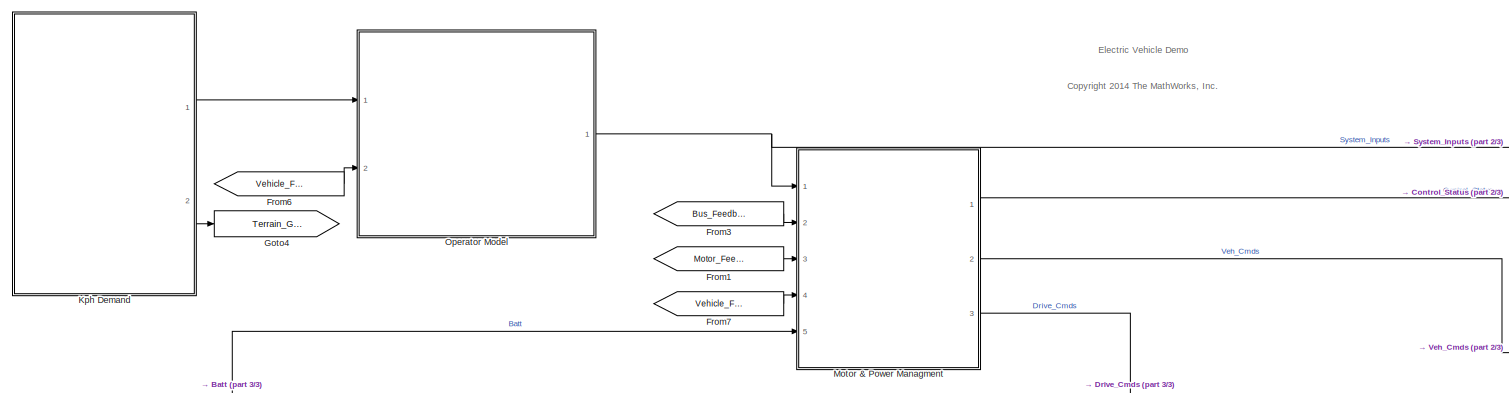
[diagram: root canvas - part 1/3, top center region]
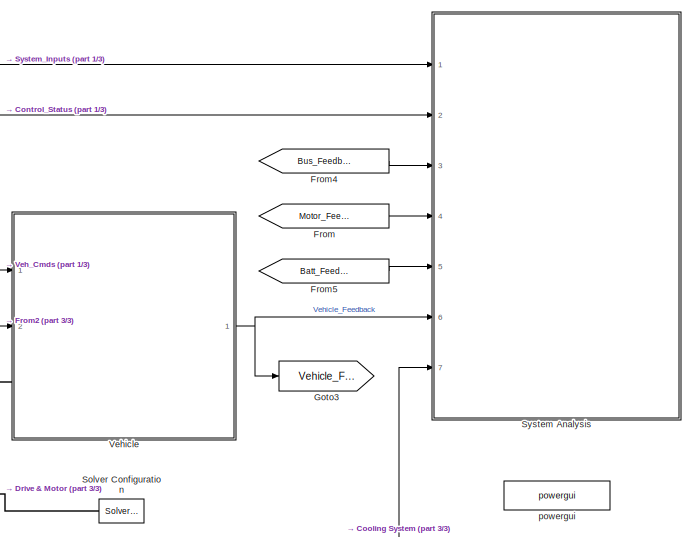
[diagram: root canvas - part 2/3, middle right region]
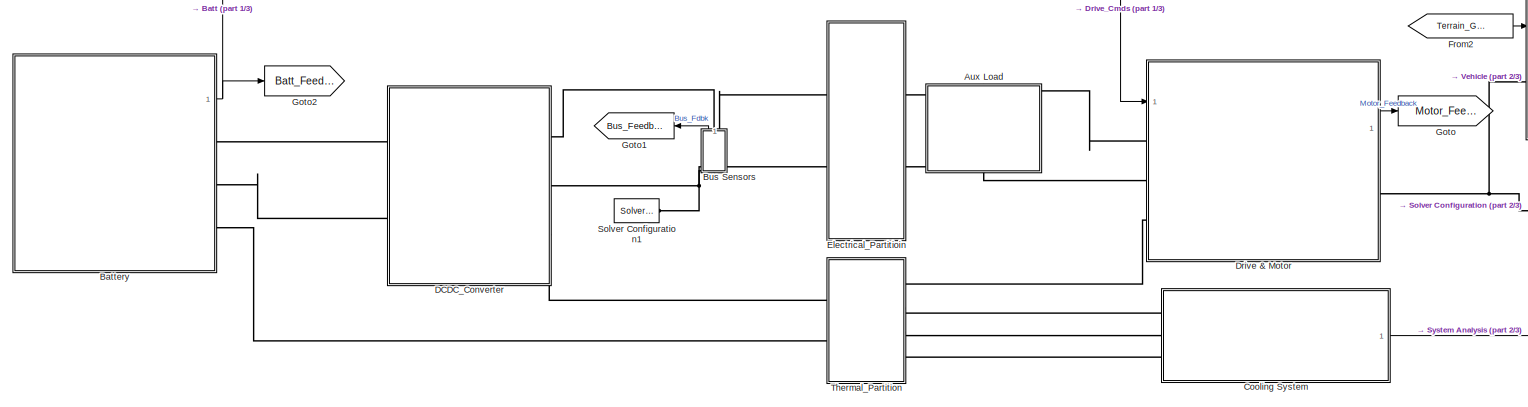
[diagram: root canvas - part 3/3, bottom center region]
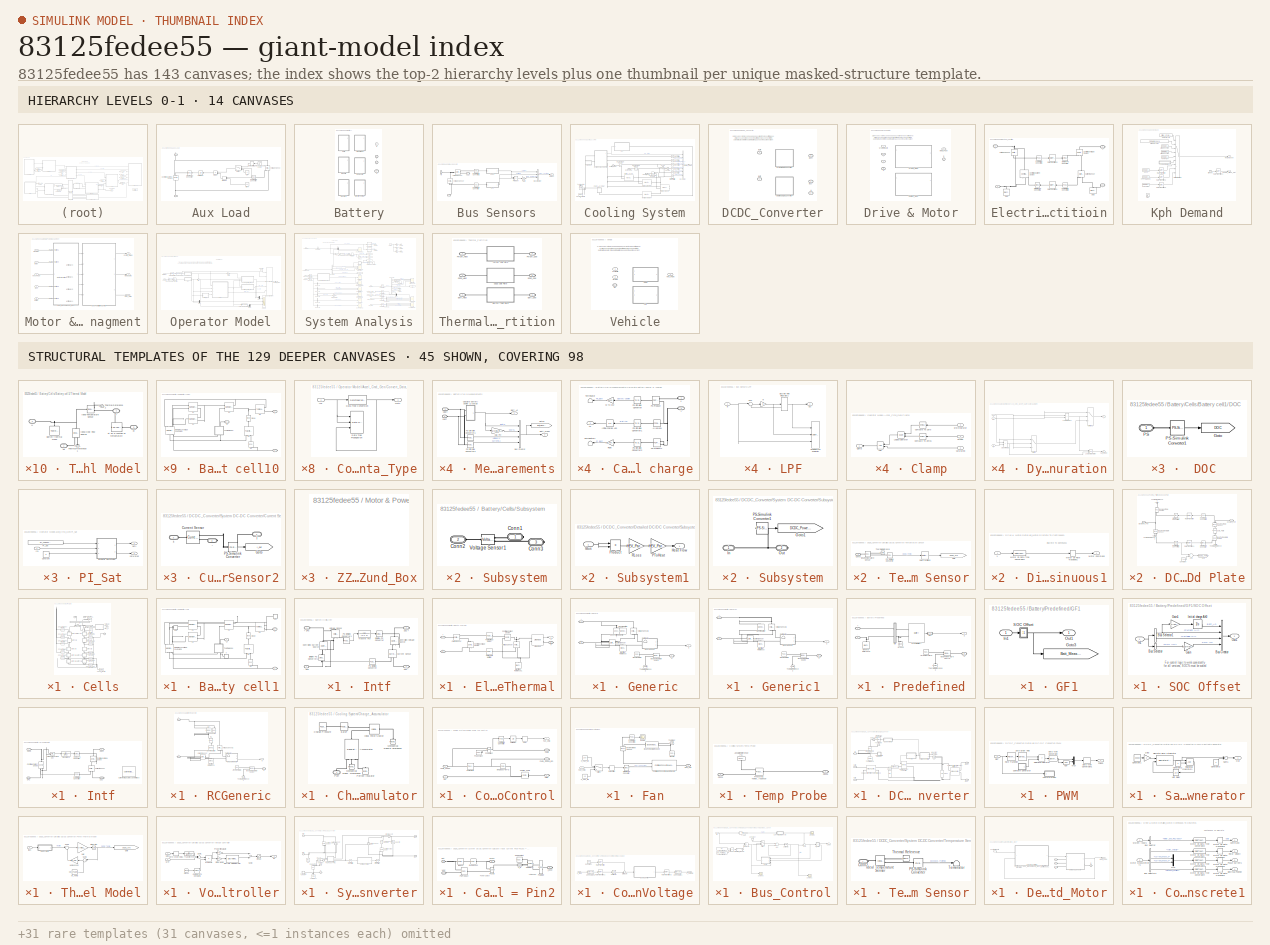
[diagram: thumbnail index - top-2 hierarchy levels (14 canvases) + 45 structural-template representatives of the remaining 129 canvases]
MODEL slx_83125fedee55
KIND model
CONFIG InitFcn = %EV_Param_Update \n% update the number of strings (discretized)\nnumStrings = round(Opti_numStrings);\n%disp(['Number of strings: ' num2str(numStrings)])\n% update the effective capacity based on the number of strings\nEV_Param.Battery_Det.Rated_Capacity = 28.5*numStrings; %A*hr\nEV_Param.Battery_Det.DP = 1.5*fliplr([1500 1500 1600 1450 1325 1125 925 675 425 175 ])./8*EV_Param.Battery_Det.Rated_Capacity...<+1147ch>
CONFIG StartFcn = %tic;
CONFIG StopFcn = %toc;\n%disp([Final SOC: ' num2str(SOC_final)])\n%disp([Final Vehicle Error: ' num2str(normed_SQE_final)])\n
WORKSPACE source: MAT-file member
WORKSPACE MCOS: class17 (value not decoded)
WORKSPACE MCOS: class17 (value not decoded)
BLOCK [SubSystem] Aux Load
  FunctionWithSeparateData = off
  MaskHideContents = off
  MinAlgLoopOccurrences = off
  Opaque = off
  Ports = [0, 0, 0, 0, 0, 1, 1]
  PropExecContextOutsideSubsystem = off
  RTWSystemCode = Auto
  RequestExecContextInheritance = off
BLOCK [PMIOPort] Aux Load/+
  Port = 1
  Side = Right
BLOCK [PMIOPort] Aux Load/-
  Port = 2
  Side = Left
BLOCK [Step] Aux Load/2kw Accessory Load
  After = 2e3
BLOCK [Reference] Aux Load/Controlled Current Source  REF=fl_lib/Electrical/Electrical Sources/Controlled Current
Source
  ClassName = controlled_current
  ComponentPath = foundation.electrical.sources.controlled_current
  ComponentVariantNames = controlled_current
  ComponentVariants = foundation.electrical.sources.controlled_current
  LocalVarDescs = |i|v
  LocalVarLogging = [0 0]
  LocalVarNames = |i|v
  Ports = [0, 0, 0, 0, 0, 1, 2]
  SchemaVersion = 1
  SourceBlock = fl_lib/Electrical/Electrical Sources/Controlled Current\nSource
  SourceFile = foundation.electrical.sources.controlled_current
  SourceType = Controlled Current\nSource
  i_Log = off
  v_Log = off
BLOCK [Product] Aux Load/Divide
  InputSameDT = off
  Inputs = */
  OutDataTypeStr = Inherit: Inherit via internal rule
  Ports = [2, 1]
  RndMeth = Floor
  SaturateOnIntegerOverflow = off
BLOCK [Constant] Aux Load/Min V
  SampleTime = -1
  Value = 20
BLOCK [MinMax] Aux Load/MinMax
  Function = max
  InputSameDT = off
  Inputs = 2
  Ports = [2, 1]
  SaturateOnIntegerOverflow = off
BLOCK [Constant] Aux Load/Off
  SampleTime = -1
  Value = 0
BLOCK [Reference] Aux Load/PS-Simulink Converter  REF=nesl_utility/PS-Simulink
Converter
  AffineConversion = off
  Frequencies = []
  LeftPortType = input
  PhysicalDomain = network_engine_domain
  Ports = [0, 1, 0, 0, 0, 1]
  PseudoPeriodic = off
  RightPortType = output
  SourceBlock = nesl_utility/PS-Simulink\nConverter
  SourceType = PS-Simulink\nConverter
  SubClassName = ps_output
  Unit = 1
BLOCK [RateLimiter] Aux Load/Rate Limiter
  FallingSlewLimit = -1e3
  RisingSlewLimit = 1e3
  SampleTimeMode = inherited
BLOCK [Reference] Aux Load/Simulink-PS Converter  REF=nesl_utility/Simulink-PS
Converter
  AffineConversion = off
  Frequencies = []
  InputFilterTimeConstant = 0.001
  InputFiltering = off
  LeftPortType = input
  NoiseDistribution = none
  NoiseParameters = []
  PhysicalDomain = network_engine_domain
  Ports = [1, 0, 0, 0, 0, 0, 1]
  PseudoPeriodic = off
  RightPortType = output
  SimscapeFilterOrder = 1
  SourceBlock = nesl_utility/Simulink-PS\nConverter
  SourceType = Simulink-PS\nConverter
  SubClassName = ps_input
  UdotUserProvided = 1
  Unit = 1
BLOCK [Switch] Aux Load/Switch
  Criteria = u2 > Threshold
  InputSameDT = off
  SaturateOnIntegerOverflow = off
  Threshold = 20
BLOCK [UnitDelay] Aux Load/Unit Delay
  InputProcessing = Elements as channels (sample based)
  SampleTime = -1
BLOCK [Reference] Aux Load/Voltage Sensor  REF=fl_lib/Electrical/Electrical Sensors/Voltage Sensor
  ClassName = voltage
  ComponentPath = foundation.electrical.sensors.voltage
  ComponentVariantNames = voltage
  ComponentVariants = foundation.electrical.sensors.voltage
  LocalVarDescs = |i1|v1
  LocalVarLogging = [0 0]
  LocalVarNames = |i1|v1
  Ports = [0, 0, 0, 0, 0, 1, 2]
  SchemaVersion = 1
  SourceBlock = fl_lib/Electrical/Electrical Sensors/Voltage Sensor
  SourceFile = foundation.electrical.sensors.voltage
  SourceType = Voltage Sensor
  i1_Log = off
  v1_Log = off
BLOCK [SubSystem] Battery
  AttributesFormatString = %<ActiveVariant>
  FunctionWithSeparateData = off
  MaskHideContents = off
  MinAlgLoopOccurrences = off
  Opaque = off
  OverrideUsingVariant = ETHERM_LUMPED
  Ports = [0, 1, 0, 0, 0, 0, 3]
  PropExecContextOutsideSubsystem = off
  RTWSystemCode = Auto
  RequestExecContextInheritance = off
  Variant = on
BLOCK [PMIOPort] Battery/+
  Port = 1
  Side = Right
BLOCK [PMIOPort] Battery/-
  Port = 2
  Side = Right
BLOCK [SubSystem] Battery/Cells
  FunctionWithSeparateData = off
  MaskHideContents = off
  MinAlgLoopOccurrences = off
  Opaque = off
  Ports = [0, 1, 0, 0, 0, 0, 3]
  PropExecContextOutsideSubsystem = off
  RTWSystemCode = Auto
  RequestExecContextInheritance = off
  VariantControl = CELLS_BATT
BLOCK [PMIOPort] Battery/Cells/+
  Port = 1
  Side = Right
BLOCK [PMIOPort] Battery/Cells/-
  Port = 2
  Side = Right
BLOCK [SubSystem] Battery/Cells/Battery cell1
  FunctionWithSeparateData = off
  MaskHideContents = off
  MinAlgLoopOccurrences = off
  Opaque = off
  Ports = [0, 0, 0, 0, 0, 2, 1]
  PropExecContextOutsideSubsystem = off
  RTWSystemCode = Auto
  RequestExecContextInheritance = off
BLOCK [SubSystem] Battery/Cells/Battery cell1/ DOC 
  FunctionWithSeparateData = off
  MaskHideContents = off
  MinAlgLoopOccurrences = off
  Opaque = off
  Ports = [0, 0, 0, 0, 0, 1]
  PropExecContextOutsideSubsystem = off
  RTWSystemCode = Auto
  RequestExecContextInheritance = off
BLOCK [Goto] Battery/Cells/Battery cell1/ DOC /Goto
  GotoTag = DOC
  TagVisibility = global
BLOCK [PMIOPort] Battery/Cells/Battery cell1/ DOC /PS
  Port = 1
  Side = Left
BLOCK [Reference] Battery/Cells/Battery cell1/ DOC /PS-Simulink Converter1  REF=nesl_utility/PS-Simulink
Converter
  AffineConversion = off
  Frequencies = []
  LeftPortType = input
  PhysicalDomain = network_engine_domain
  Ports = [0, 1, 0, 0, 0, 1]
  PseudoPeriodic = off
  RightPortType = output
  SourceBlock = nesl_utility/PS-Simulink\nConverter
  SourceType = PS-Simulink\nConverter
  SubClassName = ps_output
  Unit = 1
BLOCK [SubSystem] Battery/Cells/Battery cell1/ SOC 
  FunctionWithSeparateData = off
  MaskHideContents = off
  MinAlgLoopOccurrences = off
  Opaque = off
  Ports = [0, 0, 0, 0, 0, 1]
  PropExecContextOutsideSubsystem = off
  RTWSystemCode = Auto
  RequestExecContextInheritance = off
BLOCK [Goto] Battery/Cells/Battery cell1/ SOC /Goto
  GotoTag = SOC
  TagVisibility = global
BLOCK [PMIOPort] Battery/Cells/Battery cell1/ SOC /PS
  Port = 1
  Side = Left
BLOCK [Reference] Battery/Cells/Battery cell1/ SOC /PS-Simulink Converter1  REF=nesl_utility/PS-Simulink
Converter
  AffineConversion = off
  Frequencies = []
  LeftPortType = input
  PhysicalDomain = network_engine_domain
  Ports = [0, 1, 0, 0, 0, 1]
  PseudoPeriodic = off
  RightPortType = output
  SourceBlock = nesl_utility/PS-Simulink\nConverter
  SourceType = PS-Simulink\nConverter
  SubClassName = ps_output
  Unit = 1
BLOCK [PMIOPort] Battery/Cells/Battery cell1/+
  Port = 2
  Side = Left
  Tag = PMCPort
BLOCK [PMIOPort] Battery/Cells/Battery cell1/-
  Port = 3
  Side = Right
  Tag = PMCPort
BLOCK [Reference] Battery/Cells/Battery cell1/C1  REF=LeadAcidBattery_lib/Main Branch
Capacitance, C1
  ClassName = mbCapacitance
  Cmin = 1e-5
  Cmin_unit = F
  ComponentPath = LeadAcidBattery.C1
  ComponentVariantNames = C1
  ComponentVariants = LeadAcidBattery.C1
  LocalVarDescs = |Current through variable|Voltage across variable|Charge variable
  LocalVarLogging = [0 0 0]
  LocalVarNames = |i|v|Q
  Ports = [0, 0, 0, 0, 0, 2, 1]
  Q_Log = off
  SchemaVersion = 1
  SourceBlock = LeadAcidBattery_lib/Main Branch\nCapacitance, C1
  SourceFile = LeadAcidBattery.C1
  SourceType = Main Branch\nCapacitance, C1
  Tau1 = HEV_Param.Battery_Cell.Tau1
  Tau1_unit = s
  i_Log = off
BLOCK [Reference] Battery/Cells/Battery cell1/Diode  REF=fl_lib/Electrical/Electrical Elements/Diode
  ClassName = pwl_diode
  ComponentPath = foundation.electrical.elements.pwl_diode
  ComponentVariantNames = pwl_diode
  ComponentVariants = foundation.electrical.elements.pwl_diode
  Goff = 1e-08
  Goff_unit = 1/Ohm
  LocalVarDescs = |Diode current (A)|Voltage across diode (V)|Power (W)
  LocalVarLogging = [0 0 0]
  LocalVarNames = |current|voltage|power
  Ports = [0, 0, 0, 0, 0, 1, 1]
  Ron = 0.3
  Ron_unit = Ohm
  SchemaVersion = 1
  SourceBlock = fl_lib/Electrical/Electrical Elements/Diode
  SourceFile = foundation.electrical.elements.pwl_diode
  SourceType = Diode
  Vf = 0.6
  Vf_unit = V
  i_Log = off
  v_Log = off
BLOCK [Reference] Battery/Cells/Battery cell1/Ep  REF=fl_lib/Electrical/Electrical Sources/DC Voltage Source
  ClassName = dc_voltage_source
  ComponentPath = foundation.electrical.sources.dc_voltage
  ComponentVariantNames = dc_voltage
  ComponentVariants = foundation.electrical.sources.dc_voltage
  LocalVarDescs = |Current (A)|Voltage (V)|Power (W)
  LocalVarLogging = [0 0 0]
  LocalVarNames = |current|voltage|power
  Ports = [0, 0, 0, 0, 0, 1, 1]
  SchemaVersion = 1
  SourceBlock = fl_lib/Electrical/Electrical Sources/DC Voltage Source
  SourceFile = foundation.electrical.sources.dc_voltage
  SourceType = DC Voltage Source
  i_Log = off
  v0 = HEV_Param.Battery_Cell.Ep
  v0_unit = V
  v_Log = off
BLOCK [PMIOPort] Battery/Cells/Battery cell1/H
  Port = 1
  Side = Left
  Tag = PMCPort
BLOCK [Reference] Battery/Cells/Battery cell1/Main Branch Voltage Source (Em)  REF=LeadAcidBattery_lib/Main Branch Voltage
Source, Em
  C0 = HEV_Param.Battery_Cell.Costar
  C0_unit = s*A
  ClassName = mbVoltageSource
  ComponentPath = LeadAcidBattery.Em
  ComponentVariantNames = Em
  ComponentVariants = LeadAcidBattery.Em
  Em0 = HEV_Param.Battery_Cell.Emo
  Em0_unit = V
  Iavg_Log = off
  Istar = HEV_Param.Battery_Cell.Istar
  Istar_unit = A
  Kc = HEV_Param.Battery_Cell.Kc
  Kc_unit = 1
  Ke = HEV_Param.Battery_Cell.Ke
  Ke_unit = V/K
  LocalVarDescs = |Current through variable|Voltage across variable|usable battery capacity|total battery capacity|battery charge|average current given by (I/(Ts+1))
  LocalVarLogging = [0 0 0 0 0 0]
  LocalVarNames = |i|v|cap_u|cap_t|Q|Iavg
  Ports = [0, 0, 0, 0, 0, 3, 3]
  Qe_Log = off
  Qinit = HEV_Param.Battery_Cell.Qe_init
  Qinit_unit = s*A
  SchemaVersion = 1
  SourceBlock = LeadAcidBattery_lib/Main Branch Voltage\nSource, Em
  SourceFile = LeadAcidBattery.Em
  SourceType = Main Branch Voltage\nSource, Em
  Tau1 = HEV_Param.Battery_Cell.Tau1
  Tau1_unit = s
  delta = HEV_Param.Battery_Cell.delta
  delta_unit = 1
  i_Log = off
BLOCK [Reference] Battery/Cells/Battery cell1/R0  REF=LeadAcidBattery_lib/Terminal Resistance,
R0
  A0 = HEV_Param.Battery_Cell.Ao
  A0_unit = 1
  ClassName = terminalResistance
  ComponentPath = LeadAcidBattery.R0
  ComponentVariantNames = R0
  ComponentVariants = LeadAcidBattery.R0
  LocalVarDescs = |Current through variable|Voltage across variable
  LocalVarLogging = [0 0]
  LocalVarNames = |i|v
  Ports = [0, 0, 0, 0, 0, 2, 1]
  R00 = HEV_Param.Battery_Cell.Roo
  R00_unit = Ohm
  SchemaVersion = 1
  SourceBlock = LeadAcidBattery_lib/Terminal Resistance,\nR0
  SourceFile = LeadAcidBattery.R0
  SourceType = Terminal Resistance,\nR0
  i_Log = off
BLOCK [Reference] Battery/Cells/Battery cell1/R1  REF=LeadAcidBattery_lib/Main Branch
Resistance, R1
  ClassName = R1
  ComponentPath = LeadAcidBattery.R1
  ComponentVariantNames = R1
  ComponentVariants = LeadAcidBattery.R1
  DOC_min = 1e-006
  DOC_min_unit = 1
  LocalVarDescs = |Current through variable|Voltage across variable
  LocalVarLogging = [0 0]
  LocalVarNames = |i|v
  Ports = [0, 0, 0, 0, 0, 2, 2]
  R10 = HEV_Param.Battery_Cell.R10
  R10_unit = Ohm
  SchemaVersion = 1
  SourceBlock = LeadAcidBattery_lib/Main Branch\nResistance, R1
  SourceFile = LeadAcidBattery.R1
  SourceType = Main Branch\nResistance, R1
  i_Log = off
BLOCK [Reference] Battery/Cells/Battery cell1/R2  REF=LeadAcidBattery_lib/Main Branch
Resistance, R2
  A21 = HEV_Param.Battery_Cell.A21
  A21_unit = 1
  A22 = HEV_Param.Battery_Cell.A22
  A22_unit = 1
  ClassName = mbResistance2
  ComponentPath = LeadAcidBattery.R2
  ComponentVariantNames = R2
  ComponentVariants = LeadAcidBattery.R2
  Istar = HEV_Param.Battery_Cell.Istar
  Istar_unit = A
  LocalVarDescs = |Current through variable|Voltage across variable
  LocalVarLogging = [0 0]
  LocalVarNames = |i|v
  Ports = [0, 0, 0, 0, 0, 2, 2]
  R20 = HEV_Param.Battery_Cell.R20
  R20_unit = Ohm
  SchemaVersion = 1
  SourceBlock = LeadAcidBattery_lib/Main Branch\nResistance, R2
  SourceFile = LeadAcidBattery.R2
  SourceType = Main Branch\nResistance, R2
  i_Log = off
BLOCK [Reference] Battery/Cells/Battery cell1/Rp  REF=LeadAcidBattery_lib/Parasitic Branch
Resistance, Rp
  Ap = HEV_Param.Battery_Cell.Ap
  Ap_unit = 1
  ClassName = pbResistance
  ComponentPath = LeadAcidBattery.Rp
  ComponentVariantNames = Rp
  ComponentVariants = LeadAcidBattery.Rp
  Gp0 = HEV_Param.Battery_Cell.Gpo
  Gp0_unit = 1/Ohm
  LocalVarDescs = |Current through variable|Voltage across variable|average voltage given by (V/(Ts+1))
  LocalVarLogging = [0 0 0]
  LocalVarNames = |i|v|Vavg
  Ports = [0, 0, 0, 0, 0, 1, 2]
  SchemaVersion = 1
  SourceBlock = LeadAcidBattery_lib/Parasitic Branch\nResistance, Rp
  SourceFile = LeadAcidBattery.Rp
  SourceType = Parasitic Branch\nResistance, Rp
  Tf = HEV_Param.Battery_Cell.theta_f
  Tf_unit = C
  Vp0 = HEV_Param.Battery_Cell.Vpo
  Vp0_unit = V
  i_Log = off
BLOCK [SubSystem] Battery/Cells/Battery cell1/T
  FunctionWithSeparateData = off
  MaskHideContents = off
  MinAlgLoopOccurrences = off
  Opaque = off
  Ports = [0, 0, 0, 0, 0, 1]
  PropExecContextOutsideSubsystem = off
  RTWSystemCode = Auto
  RequestExecContextInheritance = off
BLOCK [Goto] Battery/Cells/Battery cell1/T/Goto
  GotoTag = Batt_Cell_Temp
  TagVisibility = global
BLOCK [PMIOPort] Battery/Cells/Battery cell1/T/PS
  Port = 1
  Side = Left
BLOCK [Reference] Battery/Cells/Battery cell1/T/PS-Simulink Converter1  REF=nesl_utility/PS-Simulink
Converter
  AffineConversion = on
  Frequencies = []
  LeftPortType = input
  PhysicalDomain = network_engine_domain
  Ports = [0, 1, 0, 0, 0, 1]
  PseudoPeriodic = off
  RightPortType = output
  SourceBlock = nesl_utility/PS-Simulink\nConverter
  SourceType = PS-Simulink\nConverter
  SubClassName = ps_output
  Unit = C
BLOCK [SubSystem] Battery/Cells/Battery cell1/Thermal Model
  FunctionWithSeparateData = off
  MaskHideContents = off
  MinAlgLoopOccurrences = off
  Opaque = off
  Ports = [0, 0, 0, 0, 0, 2, 2]
  PropExecContextOutsideSubsystem = off
  RTWSystemCode = Auto
  RequestExecContextInheritance = off
BLOCK [Reference] Battery/Cells/Battery cell1/Thermal Model/Battery thermal mass  REF=fl_lib/Thermal/Thermal Elements/Thermal Mass
  ClassName = thermal_mass
  ComponentPath = foundation.thermal.elements.mass
  ComponentVariantNames = mass
  ComponentVariants = foundation.thermal.elements.mass
  LocalVarDescs = |Heat flow (J/s)|Mass temperature (K)
  LocalVarLogging = [0 0]
  LocalVarNames = |heat_flow|temperature
  Ports = [0, 0, 0, 0, 0, 1]
  Q_Log = off
  SchemaVersion = 1
  SourceBlock = fl_lib/Thermal/Thermal Elements/Thermal Mass
  SourceFile = foundation.thermal.elements.mass
  SourceType = Thermal Mass
  init_temp = HEV_Param.Battery_Cell.theta_init+273
  init_temp_unit = K
  mass = 1
  mass_unit = kg
  sp_heat = HEV_Param.Battery_Cell.Ctheta
  sp_heat_unit = J/kg/K
BLOCK [PMIOPort] Battery/Cells/Battery cell1/Thermal Model/H
  Port = 2
  Side = Left
  Tag = PMCPort
BLOCK [Reference] Battery/Cells/Battery cell1/Thermal Model/Ideal Heat Flow Source  REF=fl_lib/Thermal/Thermal Sources/Ideal Heat Flow
Source
  ClassName = heat_flow_src
  ComponentPath = foundation.thermal.sources.heat_flow
  ComponentVariantNames = heat_flow
  ComponentVariants = foundation.thermal.sources.heat_flow
  LocalVarDescs = |Heat flow through the source (J/s)|Temperature differential across the source (K)
  LocalVarLogging = [0 0]
  LocalVarNames = |heat_flow|T_differential
  Ports = [0, 0, 0, 0, 0, 1, 2]
  Q_Log = off
  SchemaVersion = 1
  SourceBlock = fl_lib/Thermal/Thermal Sources/Ideal Heat Flow\nSource
  SourceFile = foundation.thermal.sources.heat_flow
  SourceType = Ideal Heat Flow\nSource
  T_Log = off
BLOCK [Reference] Battery/Cells/Battery cell1/Thermal Model/Ideal Temperature Sensor  REF=fl_lib/Thermal/Thermal Sensors/Ideal Temperature
Sensor
  ClassName = sensor_temperature
  ComponentPath = foundation.thermal.sensors.temperature
  ComponentVariantNames = temperature
  ComponentVariants = foundation.thermal.sensors.temperature
  LocalVarDescs = |Qs|Ts
  LocalVarLogging = []
  LocalVarNames = |Qs|Ts
  Ports = [0, 0, 0, 0, 0, 1, 2]
  Qs_Log = off
  SchemaVersion = 1
  SourceBlock = fl_lib/Thermal/Thermal Sensors/Ideal Temperature\nSensor
  SourceFile = foundation.thermal.sensors.temperature
  SourceType = Ideal Temperature\nSensor
  Ts_Log = off
BLOCK [PMIOPort] Battery/Cells/Battery cell1/Thermal Model/Kt
  Port = 3
  Side = Right
  Tag = PMCPort
BLOCK [Reference] Battery/Cells/Battery cell1/Thermal Model/Kt as a function of temperature  REF=fl_lib/Physical Signals/Lookup Tables/PS Lookup Table (1D)
  ClassName = ps_1d_tlu
  ComponentPath = foundation.physical_signal.lookup_tables.one_dimensional
  ComponentVariantNames = one_dimensional
  ComponentVariants = foundation.physical_signal.lookup_tables.one_dimensional
  LocalVarLogging = []
  Ports = [0, 0, 0, 0, 0, 1, 1]
  SchemaVersion = 1
  SourceBlock = fl_lib/Physical Signals/Lookup Tables/PS Lookup Table (1D)
  SourceFile = foundation.physical_signal.lookup_tables.one_dimensional
  SourceType = PS Lookup Table (1D)
  extrap_method = 1
  extrap_method_unit = 1
  interp_method = 1
  interp_method_unit = 1
  x_t = [HEV_Param.Battery_Cell.theta_f,HEV_Param.Battery_Cell. Kt_Temps]+273
  x_t_unit = 1
  y_t = [0 HEV_Param.Battery_Cell.Kt]
  y_t_unit = 1
BLOCK [PMIOPort] Battery/Cells/Battery cell1/Thermal Model/Ps
  Port = 1
  Side = Left
  Tag = PMCPort
BLOCK [PMIOPort] Battery/Cells/Battery cell1/Thermal Model/T
  Port = 4
  Side = Right
  Tag = PMCPort
BLOCK [Reference] Battery/Cells/Battery cell1/Thermal Model/Thermal Reference1  REF=fl_lib/Thermal/Thermal Elements/Thermal Reference
  ClassName = reference_thermal
  ComponentPath = foundation.thermal.elements.reference
  ComponentVariantNames = reference
  ComponentVariants = foundation.thermal.elements.reference
  LocalVarDescs = |Q
  LocalVarLogging = []
  LocalVarNames = |Q
  Ports = [0, 0, 0, 0, 0, 1]
  Q_Log = off
  SchemaVersion = 1
  SourceBlock = fl_lib/Thermal/Thermal Elements/Thermal Reference
  SourceFile = foundation.thermal.elements.reference
  SourceType = Thermal Reference
BLOCK [Reference] Battery/Cells/Battery cell1/Thermal Model/Thermal Reference2  REF=fl_lib/Thermal/Thermal Elements/Thermal Reference
  ClassName = reference_thermal
  ComponentPath = foundation.thermal.elements.reference
  ComponentVariantNames = reference
  ComponentVariants = foundation.thermal.elements.reference
  LocalVarDescs = |Q
  LocalVarLogging = []
  LocalVarNames = |Q
  Ports = [0, 0, 0, 0, 0, 1]
  Q_Log = off
  SchemaVersion = 1
  SourceBlock = fl_lib/Thermal/Thermal Elements/Thermal Reference
  SourceFile = foundation.thermal.elements.reference
  SourceType = Thermal Reference
BLOCK [SubSystem] Battery/Cells/Battery cell10
  FunctionWithSeparateData = off
  MaskHideContents = off
  MinAlgLoopOccurrences = off
  Opaque = off
  Ports = [0, 0, 0, 0, 0, 2, 1]
  PropExecContextOutsideSubsystem = off
  RTWSystemCode = Auto
  RequestExecContextInheritance = off
BLOCK [PMIOPort] Battery/Cells/Battery cell10/+
  Port = 2
  Side = Left
  Tag = PMCPort
BLOCK [PMIOPort] Battery/Cells/Battery cell10/-
  Port = 3
  Side = Right
  Tag = PMCPort
BLOCK [Reference] Battery/Cells/Battery cell10/C1  REF=LeadAcidBattery_lib/Main Branch
Capacitance, C1
  ClassName = mbCapacitance
  Cmin = 1e-5
  Cmin_unit = F
  ComponentPath = LeadAcidBattery.C1
  ComponentVariantNames = C1
  ComponentVariants = LeadAcidBattery.C1
  LocalVarDescs = |Current through variable|Voltage across variable|Charge variable
  LocalVarLogging = [0 0 0]
  LocalVarNames = |i|v|Q
  Ports = [0, 0, 0, 0, 0, 2, 1]
  Q_Log = off
  SchemaVersion = 1
  SourceBlock = LeadAcidBattery_lib/Main Branch\nCapacitance, C1
  SourceFile = LeadAcidBattery.C1
  SourceType = Main Branch\nCapacitance, C1
  Tau1 = HEV_Param.Battery_Cell.Tau1
  Tau1_unit = s
  i_Log = off
BLOCK [Reference] Battery/Cells/Battery cell10/Diode  REF=fl_lib/Electrical/Electrical Elements/Diode
  ClassName = pwl_diode
  ComponentPath = foundation.electrical.elements.pwl_diode
  ComponentVariantNames = pwl_diode
  ComponentVariants = foundation.electrical.elements.pwl_diode
  Goff = 1e-08
  Goff_unit = 1/Ohm
  LocalVarDescs = |Diode current (A)|Voltage across diode (V)|Power (W)
  LocalVarLogging = [0 0 0]
  LocalVarNames = |current|voltage|power
  Ports = [0, 0, 0, 0, 0, 1, 1]
  Ron = 0.3
  Ron_unit = Ohm
  SchemaVersion = 1
  SourceBlock = fl_lib/Electrical/Electrical Elements/Diode
  SourceFile = foundation.electrical.elements.pwl_diode
  SourceType = Diode
  Vf = 0.6
  Vf_unit = V
  i_Log = off
  v_Log = off
BLOCK [Reference] Battery/Cells/Battery cell10/Ep  REF=fl_lib/Electrical/Electrical Sources/DC Voltage Source
  ClassName = dc_voltage_source
  ComponentPath = foundation.electrical.sources.dc_voltage
  ComponentVariantNames = dc_voltage
  ComponentVariants = foundation.electrical.sources.dc_voltage
  LocalVarDescs = |Current (A)|Voltage (V)|Power (W)
  LocalVarLogging = [0 0 0]
  LocalVarNames = |current|voltage|power
  Ports = [0, 0, 0, 0, 0, 1, 1]
  SchemaVersion = 1
  SourceBlock = fl_lib/Electrical/Electrical Sources/DC Voltage Source
  SourceFile = foundation.electrical.sources.dc_voltage
  SourceType = DC Voltage Source
  i_Log = off
  v0 = HEV_Param.Battery_Cell.Ep
  v0_unit = V
  v_Log = off
BLOCK [PMIOPort] Battery/Cells/Battery cell10/H
  Port = 1
  Side = Left
  Tag = PMCPort
BLOCK [Reference] Battery/Cells/Battery cell10/Main Branch Voltage Source (Em)  REF=LeadAcidBattery_lib/Main Branch Voltage
Source, Em
  C0 = HEV_Param.Battery_Cell.Costar
  C0_unit = s*A
  ClassName = mbVoltageSource
  ComponentPath = LeadAcidBattery.Em
  ComponentVariantNames = Em
  ComponentVariants = LeadAcidBattery.Em
  Em0 = HEV_Param.Battery_Cell.Emo
  Em0_unit = V
  Iavg_Log = off
  Istar = HEV_Param.Battery_Cell.Istar
  Istar_unit = A
  Kc = HEV_Param.Battery_Cell.Kc
  Kc_unit = 1
  Ke = HEV_Param.Battery_Cell.Ke
  Ke_unit = V/K
  LocalVarDescs = |Current through variable|Voltage across variable|usable battery capacity|total battery capacity|battery charge|average current given by (I/(Ts+1))
  LocalVarLogging = [0 0 0 0 0 0]
  LocalVarNames = |i|v|cap_u|cap_t|Q|Iavg
  Ports = [0, 0, 0, 0, 0, 3, 3]
  Qe_Log = off
  Qinit = HEV_Param.Battery_Cell.Qe_init
  Qinit_unit = s*A
  SchemaVersion = 1
  SourceBlock = LeadAcidBattery_lib/Main Branch Voltage\nSource, Em
  SourceFile = LeadAcidBattery.Em
  SourceType = Main Branch Voltage\nSource, Em
  Tau1 = HEV_Param.Battery_Cell.Tau1
  Tau1_unit = s
  delta = HEV_Param.Battery_Cell.delta
  delta_unit = 1
  i_Log = off
BLOCK [Reference] Battery/Cells/Battery cell10/R0  REF=LeadAcidBattery_lib/Terminal Resistance,
R0
  A0 = HEV_Param.Battery_Cell.Ao
  A0_unit = 1
  ClassName = terminalResistance
  ComponentPath = LeadAcidBattery.R0
  ComponentVariantNames = R0
  ComponentVariants = LeadAcidBattery.R0
  LocalVarDescs = |Current through variable|Voltage across variable
  LocalVarLogging = [0 0]
  LocalVarNames = |i|v
  Ports = [0, 0, 0, 0, 0, 2, 1]
  R00 = HEV_Param.Battery_Cell.Roo
  R00_unit = Ohm
  SchemaVersion = 1
  SourceBlock = LeadAcidBattery_lib/Terminal Resistance,\nR0
  SourceFile = LeadAcidBattery.R0
  SourceType = Terminal Resistance,\nR0
  i_Log = off
BLOCK [Reference] Battery/Cells/Battery cell10/R1  REF=LeadAcidBattery_lib/Main Branch
Resistance, R1
  ClassName = R1
  ComponentPath = LeadAcidBattery.R1
  ComponentVariantNames = R1
  ComponentVariants = LeadAcidBattery.R1
  DOC_min = 1e-006
  DOC_min_unit = 1
  LocalVarDescs = |Current through variable|Voltage across variable
  LocalVarLogging = [0 0]
  LocalVarNames = |i|v
  Ports = [0, 0, 0, 0, 0, 2, 2]
  R10 = HEV_Param.Battery_Cell.R10
  R10_unit = Ohm
  SchemaVersion = 1
  SourceBlock = LeadAcidBattery_lib/Main Branch\nResistance, R1
  SourceFile = LeadAcidBattery.R1
  SourceType = Main Branch\nResistance, R1
  i_Log = off
BLOCK [Reference] Battery/Cells/Battery cell10/R2  REF=LeadAcidBattery_lib/Main Branch
Resistance, R2
  A21 = HEV_Param.Battery_Cell.A21
  A21_unit = 1
  A22 = HEV_Param.Battery_Cell.A22
  A22_unit = 1
  ClassName = mbResistance2
  ComponentPath = LeadAcidBattery.R2
  ComponentVariantNames = R2
  ComponentVariants = LeadAcidBattery.R2
  Istar = HEV_Param.Battery_Cell.Istar
  Istar_unit = A
  LocalVarDescs = |Current through variable|Voltage across variable
  LocalVarLogging = [0 0]
  LocalVarNames = |i|v
  Ports = [0, 0, 0, 0, 0, 2, 2]
  R20 = HEV_Param.Battery_Cell.R20
  R20_unit = Ohm
  SchemaVersion = 1
  SourceBlock = LeadAcidBattery_lib/Main Branch\nResistance, R2
  SourceFile = LeadAcidBattery.R2
  SourceType = Main Branch\nResistance, R2
  i_Log = off
BLOCK [Reference] Battery/Cells/Battery cell10/Rp  REF=LeadAcidBattery_lib/Parasitic Branch
Resistance, Rp
  Ap = HEV_Param.Battery_Cell.Ap
  Ap_unit = 1
  ClassName = pbResistance
  ComponentPath = LeadAcidBattery.Rp
  ComponentVariantNames = Rp
  ComponentVariants = LeadAcidBattery.Rp
  Gp0 = HEV_Param.Battery_Cell.Gpo
  Gp0_unit = 1/Ohm
  LocalVarDescs = |Current through variable|Voltage across variable|average voltage given by (V/(Ts+1))
  LocalVarLogging = [0 0 0]
  LocalVarNames = |i|v|Vavg
  Ports = [0, 0, 0, 0, 0, 1, 2]
  SchemaVersion = 1
  SourceBlock = LeadAcidBattery_lib/Parasitic Branch\nResistance, Rp
  SourceFile = LeadAcidBattery.Rp
  SourceType = Parasitic Branch\nResistance, Rp
  Tf = HEV_Param.Battery_Cell.theta_f
  Tf_unit = C
  Vp0 = HEV_Param.Battery_Cell.Vpo
  Vp0_unit = V
  i_Log = off
BLOCK [SubSystem] Battery/Cells/Battery cell10/Thermal Model
  FunctionWithSeparateData = off
  MaskHideContents = off
  MinAlgLoopOccurrences = off
  Opaque = off
  Ports = [0, 0, 0, 0, 0, 2, 2]
  PropExecContextOutsideSubsystem = off
  RTWSystemCode = Auto
  RequestExecContextInheritance = off
BLOCK [Reference] Battery/Cells/Battery cell10/Thermal Model/Battery thermal mass  REF=fl_lib/Thermal/Thermal Elements/Thermal Mass
  ClassName = thermal_mass
  ComponentPath = foundation.thermal.elements.mass
  ComponentVariantNames = mass
  ComponentVariants = foundation.thermal.elements.mass
  LocalVarDescs = |Heat flow (J/s)|Mass temperature (K)
  LocalVarLogging = [0 0]
  LocalVarNames = |heat_flow|temperature
  Ports = [0, 0, 0, 0, 0, 1]
  Q_Log = off
  SchemaVersion = 1
  SourceBlock = fl_lib/Thermal/Thermal Elements/Thermal Mass
  SourceFile = foundation.thermal.elements.mass
  SourceType = Thermal Mass
  init_temp = HEV_Param.Battery_Cell.theta_init+273
  init_temp_unit = K
  mass = 1
  mass_unit = kg
  sp_heat = HEV_Param.Battery_Cell.Ctheta
  sp_heat_unit = J/kg/K
BLOCK [PMIOPort] Battery/Cells/Battery cell10/Thermal Model/H
  Port = 2
  Side = Left
  Tag = PMCPort
BLOCK [Reference] Battery/Cells/Battery cell10/Thermal Model/Ideal Heat Flow Source  REF=fl_lib/Thermal/Thermal Sources/Ideal Heat Flow
Source
  ClassName = heat_flow_src
  ComponentPath = foundation.thermal.sources.heat_flow
  ComponentVariantNames = heat_flow
  ComponentVariants = foundation.thermal.sources.heat_flow
  LocalVarDescs = |Heat flow through the source (J/s)|Temperature differential across the source (K)
  LocalVarLogging = [0 0]
  LocalVarNames = |heat_flow|T_differential
  Ports = [0, 0, 0, 0, 0, 1, 2]
  Q_Log = off
  SchemaVersion = 1
  SourceBlock = fl_lib/Thermal/Thermal Sources/Ideal Heat Flow\nSource
  SourceFile = foundation.thermal.sources.heat_flow
  SourceType = Ideal Heat Flow\nSource
  T_Log = off
BLOCK [Reference] Battery/Cells/Battery cell10/Thermal Model/Ideal Temperature Sensor  REF=fl_lib/Thermal/Thermal Sensors/Ideal Temperature
Sensor
  ClassName = sensor_temperature
  ComponentPath = foundation.thermal.sensors.temperature
  ComponentVariantNames = temperature
  ComponentVariants = foundation.thermal.sensors.temperature
  LocalVarDescs = |Qs|Ts
  LocalVarLogging = []
  LocalVarNames = |Qs|Ts
  Ports = [0, 0, 0, 0, 0, 1, 2]
  Qs_Log = off
  SchemaVersion = 1
  SourceBlock = fl_lib/Thermal/Thermal Sensors/Ideal Temperature\nSensor
  SourceFile = foundation.thermal.sensors.temperature
  SourceType = Ideal Temperature\nSensor
  Ts_Log = off
BLOCK [PMIOPort] Battery/Cells/Battery cell10/Thermal Model/Kt
  Port = 3
  Side = Right
  Tag = PMCPort
BLOCK [Reference] Battery/Cells/Battery cell10/Thermal Model/Kt as a function of temperature  REF=fl_lib/Physical Signals/Lookup Tables/PS Lookup Table (1D)
  ClassName = ps_1d_tlu
  ComponentPath = foundation.physical_signal.lookup_tables.one_dimensional
  ComponentVariantNames = one_dimensional
  ComponentVariants = foundation.physical_signal.lookup_tables.one_dimensional
  LocalVarLogging = []
  Ports = [0, 0, 0, 0, 0, 1, 1]
  SchemaVersion = 1
  SourceBlock = fl_lib/Physical Signals/Lookup Tables/PS Lookup Table (1D)
  SourceFile = foundation.physical_signal.lookup_tables.one_dimensional
  SourceType = PS Lookup Table (1D)
  extrap_method = 1
  extrap_method_unit = 1
  interp_method = 1
  interp_method_unit = 1
  x_t = [HEV_Param.Battery_Cell.theta_f,HEV_Param.Battery_Cell. Kt_Temps]+273
  x_t_unit = 1
  y_t = [0 HEV_Param.Battery_Cell.Kt]
  y_t_unit = 1
BLOCK [PMIOPort] Battery/Cells/Battery cell10/Thermal Model/Ps
  Port = 1
  Side = Left
  Tag = PMCPort
BLOCK [PMIOPort] Battery/Cells/Battery cell10/Thermal Model/T
  Port = 4
  Side = Right
  Tag = PMCPort
BLOCK [Reference] Battery/Cells/Battery cell10/Thermal Model/Thermal Reference1  REF=fl_lib/Thermal/Thermal Elements/Thermal Reference
  ClassName = reference_thermal
  ComponentPath = foundation.thermal.elements.reference
  ComponentVariantNames = reference
  ComponentVariants = foundation.thermal.elements.reference
  LocalVarDescs = |Q
  LocalVarLogging = []
  LocalVarNames = |Q
  Ports = [0, 0, 0, 0, 0, 1]
  Q_Log = off
  SchemaVersion = 1
  SourceBlock = fl_lib/Thermal/Thermal Elements/Thermal Reference
  SourceFile = foundation.thermal.elements.reference
  SourceType = Thermal Reference
BLOCK [Reference] Battery/Cells/Battery cell10/Thermal Model/Thermal Reference2  REF=fl_lib/Thermal/Thermal Elements/Thermal Reference
  ClassName = reference_thermal
  ComponentPath = foundation.thermal.elements.reference
  ComponentVariantNames = reference
  ComponentVariants = foundation.thermal.elements.reference
  LocalVarDescs = |Q
  LocalVarLogging = []
  LocalVarNames = |Q
  Ports = [0, 0, 0, 0, 0, 1]
  Q_Log = off
  SchemaVersion = 1
  SourceBlock = fl_lib/Thermal/Thermal Elements/Thermal Reference
  SourceFile = foundation.thermal.elements.reference
  SourceType = Thermal Reference
BLOCK [SubSystem] Battery/Cells/Battery cell2
  FunctionWithSeparateData = off
  MaskHideContents = off
  MinAlgLoopOccurrences = off
  Opaque = off
  Ports = [0, 0, 0, 0, 0, 2, 1]
  PropExecContextOutsideSubsystem = off
  RTWSystemCode = Auto
  RequestExecContextInheritance = off
BLOCK [PMIOPort] Battery/Cells/Battery cell2/+
  Port = 2
  Side = Left
  Tag = PMCPort
BLOCK [PMIOPort] Battery/Cells/Battery cell2/-
  Port = 3
  Side = Right
  Tag = PMCPort
BLOCK [Reference] Battery/Cells/Battery cell2/C1  REF=LeadAcidBattery_lib/Main Branch
Capacitance, C1
  ClassName = mbCapacitance
  Cmin = 1e-5
  Cmin_unit = F
  ComponentPath = LeadAcidBattery.C1
  ComponentVariantNames = C1
  ComponentVariants = LeadAcidBattery.C1
  LocalVarDescs = |Current through variable|Voltage across variable|Charge variable
  LocalVarLogging = [0 0 0]
  LocalVarNames = |i|v|Q
  Ports = [0, 0, 0, 0, 0, 2, 1]
  Q_Log = off
  SchemaVersion = 1
  SourceBlock = LeadAcidBattery_lib/Main Branch\nCapacitance, C1
  SourceFile = LeadAcidBattery.C1
  SourceType = Main Branch\nCapacitance, C1
  Tau1 = HEV_Param.Battery_Cell.Tau1
  Tau1_unit = s
  i_Log = off
BLOCK [Reference] Battery/Cells/Battery cell2/Diode  REF=fl_lib/Electrical/Electrical Elements/Diode
  ClassName = pwl_diode
  ComponentPath = foundation.electrical.elements.pwl_diode
  ComponentVariantNames = pwl_diode
  ComponentVariants = foundation.electrical.elements.pwl_diode
  Goff = 1e-08
  Goff_unit = 1/Ohm
  LocalVarDescs = |Diode current (A)|Voltage across diode (V)|Power (W)
  LocalVarLogging = [0 0 0]
  LocalVarNames = |current|voltage|power
  Ports = [0, 0, 0, 0, 0, 1, 1]
  Ron = 0.3
  Ron_unit = Ohm
  SchemaVersion = 1
  SourceBlock = fl_lib/Electrical/Electrical Elements/Diode
  SourceFile = foundation.electrical.elements.pwl_diode
  SourceType = Diode
  Vf = 0.6
  Vf_unit = V
  i_Log = off
  v_Log = off
BLOCK [Reference] Battery/Cells/Battery cell2/Ep  REF=fl_lib/Electrical/Electrical Sources/DC Voltage Source
  ClassName = dc_voltage_source
  ComponentPath = foundation.electrical.sources.dc_voltage
  ComponentVariantNames = dc_voltage
  ComponentVariants = foundation.electrical.sources.dc_voltage
  LocalVarDescs = |Current (A)|Voltage (V)|Power (W)
  LocalVarLogging = [0 0 0]
  LocalVarNames = |current|voltage|power
  Ports = [0, 0, 0, 0, 0, 1, 1]
  SchemaVersion = 1
  SourceBlock = fl_lib/Electrical/Electrical Sources/DC Voltage Source
  SourceFile = foundation.electrical.sources.dc_voltage
  SourceType = DC Voltage Source
  i_Log = off
  v0 = HEV_Param.Battery_Cell.Ep
  v0_unit = V
  v_Log = off
BLOCK [PMIOPort] Battery/Cells/Battery cell2/H
  Port = 1
  Side = Left
  Tag = PMCPort
BLOCK [Reference] Battery/Cells/Battery cell2/Main Branch Voltage Source (Em)  REF=LeadAcidBattery_lib/Main Branch Voltage
Source, Em
  C0 = HEV_Param.Battery_Cell.Costar
  C0_unit = s*A
  ClassName = mbVoltageSource
  ComponentPath = LeadAcidBattery.Em
  ComponentVariantNames = Em
  ComponentVariants = LeadAcidBattery.Em
  Em0 = HEV_Param.Battery_Cell.Emo
  Em0_unit = V
  Iavg_Log = off
  Istar = HEV_Param.Battery_Cell.Istar
  Istar_unit = A
  Kc = HEV_Param.Battery_Cell.Kc
  Kc_unit = 1
  Ke = HEV_Param.Battery_Cell.Ke
  Ke_unit = V/K
  LocalVarDescs = |Current through variable|Voltage across variable|usable battery capacity|total battery capacity|battery charge|average current given by (I/(Ts+1))
  LocalVarLogging = [0 0 0 0 0 0]
  LocalVarNames = |i|v|cap_u|cap_t|Q|Iavg
  Ports = [0, 0, 0, 0, 0, 3, 3]
  Qe_Log = off
  Qinit = HEV_Param.Battery_Cell.Qe_init
  Qinit_unit = s*A
  SchemaVersion = 1
  SourceBlock = LeadAcidBattery_lib/Main Branch Voltage\nSource, Em
  SourceFile = LeadAcidBattery.Em
  SourceType = Main Branch Voltage\nSource, Em
  Tau1 = HEV_Param.Battery_Cell.Tau1
  Tau1_unit = s
  delta = HEV_Param.Battery_Cell.delta
  delta_unit = 1
  i_Log = off
BLOCK [Reference] Battery/Cells/Battery cell2/R0  REF=LeadAcidBattery_lib/Terminal Resistance,
R0
  A0 = HEV_Param.Battery_Cell.Ao
  A0_unit = 1
  ClassName = terminalResistance
  ComponentPath = LeadAcidBattery.R0
  ComponentVariantNames = R0
  ComponentVariants = LeadAcidBattery.R0
  LocalVarDescs = |Current through variable|Voltage across variable
  LocalVarLogging = [0 0]
  LocalVarNames = |i|v
  Ports = [0, 0, 0, 0, 0, 2, 1]
  R00 = HEV_Param.Battery_Cell.Roo
  R00_unit = Ohm
  SchemaVersion = 1
  SourceBlock = LeadAcidBattery_lib/Terminal Resistance,\nR0
  SourceFile = LeadAcidBattery.R0
  SourceType = Terminal Resistance,\nR0
  i_Log = off
BLOCK [Reference] Battery/Cells/Battery cell2/R1  REF=LeadAcidBattery_lib/Main Branch
Resistance, R1
  ClassName = R1
  ComponentPath = LeadAcidBattery.R1
  ComponentVariantNames = R1
  ComponentVariants = LeadAcidBattery.R1
  DOC_min = 1e-006
  DOC_min_unit = 1
  LocalVarDescs = |Current through variable|Voltage across variable
  LocalVarLogging = [0 0]
  LocalVarNames = |i|v
  Ports = [0, 0, 0, 0, 0, 2, 2]
  R10 = HEV_Param.Battery_Cell.R10
  R10_unit = Ohm
  SchemaVersion = 1
  SourceBlock = LeadAcidBattery_lib/Main Branch\nResistance, R1
  SourceFile = LeadAcidBattery.R1
  SourceType = Main Branch\nResistance, R1
  i_Log = off
BLOCK [Reference] Battery/Cells/Battery cell2/R2  REF=LeadAcidBattery_lib/Main Branch
Resistance, R2
  A21 = HEV_Param.Battery_Cell.A21
  A21_unit = 1
  A22 = HEV_Param.Battery_Cell.A22
  A22_unit = 1
  ClassName = mbResistance2
  ComponentPath = LeadAcidBattery.R2
  ComponentVariantNames = R2
  ComponentVariants = LeadAcidBattery.R2
  Istar = HEV_Param.Battery_Cell.Istar
  Istar_unit = A
  LocalVarDescs = |Current through variable|Voltage across variable
  LocalVarLogging = [0 0]
  LocalVarNames = |i|v
  Ports = [0, 0, 0, 0, 0, 2, 2]
  R20 = HEV_Param.Battery_Cell.R20
  R20_unit = Ohm
  SchemaVersion = 1
  SourceBlock = LeadAcidBattery_lib/Main Branch\nResistance, R2
  SourceFile = LeadAcidBattery.R2
  SourceType = Main Branch\nResistance, R2
  i_Log = off
BLOCK [Reference] Battery/Cells/Battery cell2/Rp  REF=LeadAcidBattery_lib/Parasitic Branch
Resistance, Rp
  Ap = HEV_Param.Battery_Cell.Ap
  Ap_unit = 1
  ClassName = pbResistance
  ComponentPath = LeadAcidBattery.Rp
  ComponentVariantNames = Rp
  ComponentVariants = LeadAcidBattery.Rp
  Gp0 = HEV_Param.Battery_Cell.Gpo
  Gp0_unit = 1/Ohm
  LocalVarDescs = |Current through variable|Voltage across variable|average voltage given by (V/(Ts+1))
  LocalVarLogging = [0 0 0]
  LocalVarNames = |i|v|Vavg
  Ports = [0, 0, 0, 0, 0, 1, 2]
  SchemaVersion = 1
  SourceBlock = LeadAcidBattery_lib/Parasitic Branch\nResistance, Rp
  SourceFile = LeadAcidBattery.Rp
  SourceType = Parasitic Branch\nResistance, Rp
  Tf = HEV_Param.Battery_Cell.theta_f
  Tf_unit = C
  Vp0 = HEV_Param.Battery_Cell.Vpo
  Vp0_unit = V
  i_Log = off
BLOCK [SubSystem] Battery/Cells/Battery cell2/Thermal Model
  FunctionWithSeparateData = off
  MaskHideContents = off
  MinAlgLoopOccurrences = off
  Opaque = off
  Ports = [0, 0, 0, 0, 0, 2, 2]
  PropExecContextOutsideSubsystem = off
  RTWSystemCode = Auto
  RequestExecContextInheritance = off
BLOCK [Reference] Battery/Cells/Battery cell2/Thermal Model/Battery thermal mass  REF=fl_lib/Thermal/Thermal Elements/Thermal Mass
  ClassName = thermal_mass
  ComponentPath = foundation.thermal.elements.mass
  ComponentVariantNames = mass
  ComponentVariants = foundation.thermal.elements.mass
  LocalVarDescs = |Heat flow (J/s)|Mass temperature (K)
  LocalVarLogging = [0 0]
  LocalVarNames = |heat_flow|temperature
  Ports = [0, 0, 0, 0, 0, 1]
  Q_Log = off
  SchemaVersion = 1
  SourceBlock = fl_lib/Thermal/Thermal Elements/Thermal Mass
  SourceFile = foundation.thermal.elements.mass
  SourceType = Thermal Mass
  init_temp = HEV_Param.Battery_Cell.theta_init+273
  init_temp_unit = K
  mass = 1
  mass_unit = kg
  sp_heat = HEV_Param.Battery_Cell.Ctheta
  sp_heat_unit = J/kg/K
BLOCK [PMIOPort] Battery/Cells/Battery cell2/Thermal Model/H
  Port = 2
  Side = Left
  Tag = PMCPort
BLOCK [Reference] Battery/Cells/Battery cell2/Thermal Model/Ideal Heat Flow Source  REF=fl_lib/Thermal/Thermal Sources/Ideal Heat Flow
Source
  ClassName = heat_flow_src
  ComponentPath = foundation.thermal.sources.heat_flow
  ComponentVariantNames = heat_flow
  ComponentVariants = foundation.thermal.sources.heat_flow
  LocalVarDescs = |Heat flow through the source (J/s)|Temperature differential across the source (K)
  LocalVarLogging = [0 0]
  LocalVarNames = |heat_flow|T_differential
  Ports = [0, 0, 0, 0, 0, 1, 2]
  Q_Log = off
  SchemaVersion = 1
  SourceBlock = fl_lib/Thermal/Thermal Sources/Ideal Heat Flow\nSource
  SourceFile = foundation.thermal.sources.heat_flow
  SourceType = Ideal Heat Flow\nSource
  T_Log = off
BLOCK [Reference] Battery/Cells/Battery cell2/Thermal Model/Ideal Temperature Sensor  REF=fl_lib/Thermal/Thermal Sensors/Ideal Temperature
Sensor
  ClassName = sensor_temperature
  ComponentPath = foundation.thermal.sensors.temperature
  ComponentVariantNames = temperature
  ComponentVariants = foundation.thermal.sensors.temperature
  LocalVarDescs = |Qs|Ts
  LocalVarLogging = []
  LocalVarNames = |Qs|Ts
  Ports = [0, 0, 0, 0, 0, 1, 2]
  Qs_Log = off
  SchemaVersion = 1
  SourceBlock = fl_lib/Thermal/Thermal Sensors/Ideal Temperature\nSensor
  SourceFile = foundation.thermal.sensors.temperature
  SourceType = Ideal Temperature\nSensor
  Ts_Log = off
BLOCK [PMIOPort] Battery/Cells/Battery cell2/Thermal Model/Kt
  Port = 3
  Side = Right
  Tag = PMCPort
BLOCK [Reference] Battery/Cells/Battery cell2/Thermal Model/Kt as a function of temperature  REF=fl_lib/Physical Signals/Lookup Tables/PS Lookup Table (1D)
  ClassName = ps_1d_tlu
  ComponentPath = foundation.physical_signal.lookup_tables.one_dimensional
  ComponentVariantNames = one_dimensional
  ComponentVariants = foundation.physical_signal.lookup_tables.one_dimensional
  LocalVarLogging = []
  Ports = [0, 0, 0, 0, 0, 1, 1]
  SchemaVersion = 1
  SourceBlock = fl_lib/Physical Signals/Lookup Tables/PS Lookup Table (1D)
  SourceFile = foundation.physical_signal.lookup_tables.one_dimensional
  SourceType = PS Lookup Table (1D)
  extrap_method = 1
  extrap_method_unit = 1
  interp_method = 1
  interp_method_unit = 1
  x_t = [HEV_Param.Battery_Cell.theta_f,HEV_Param.Battery_Cell. Kt_Temps]+273
  x_t_unit = 1
  y_t = [0 HEV_Param.Battery_Cell.Kt]
  y_t_unit = 1
BLOCK [PMIOPort] Battery/Cells/Battery cell2/Thermal Model/Ps
  Port = 1
  Side = Left
  Tag = PMCPort
BLOCK [PMIOPort] Battery/Cells/Battery cell2/Thermal Model/T
  Port = 4
  Side = Right
  Tag = PMCPort
BLOCK [Reference] Battery/Cells/Battery cell2/Thermal Model/Thermal Reference1  REF=fl_lib/Thermal/Thermal Elements/Thermal Reference
  ClassName = reference_thermal
  ComponentPath = foundation.thermal.elements.reference
  ComponentVariantNames = reference
  ComponentVariants = foundation.thermal.elements.reference
  LocalVarDescs = |Q
  LocalVarLogging = []
  LocalVarNames = |Q
  Ports = [0, 0, 0, 0, 0, 1]
  Q_Log = off
  SchemaVersion = 1
  SourceBlock = fl_lib/Thermal/Thermal Elements/Thermal Reference
  SourceFile = foundation.thermal.elements.reference
  SourceType = Thermal Reference
BLOCK [Reference] Battery/Cells/Battery cell2/Thermal Model/Thermal Reference2  REF=fl_lib/Thermal/Thermal Elements/Thermal Reference
  ClassName = reference_thermal
  ComponentPath = foundation.thermal.elements.reference
  ComponentVariantNames = reference
  ComponentVariants = foundation.thermal.elements.reference
  LocalVarDescs = |Q
  LocalVarLogging = []
  LocalVarNames = |Q
  Ports = [0, 0, 0, 0, 0, 1]
  Q_Log = off
  SchemaVersion = 1
  SourceBlock = fl_lib/Thermal/Thermal Elements/Thermal Reference
  SourceFile = foundation.thermal.elements.reference
  SourceType = Thermal Reference
BLOCK [SubSystem] Battery/Cells/Battery cell3
  FunctionWithSeparateData = off
  MaskHideContents = off
  MinAlgLoopOccurrences = off
  Opaque = off
  Ports = [0, 0, 0, 0, 0, 2, 1]
  PropExecContextOutsideSubsystem = off
  RTWSystemCode = Auto
  RequestExecContextInheritance = off
BLOCK [PMIOPort] Battery/Cells/Battery cell3/+
  Port = 2
  Side = Left
  Tag = PMCPort
BLOCK [PMIOPort] Battery/Cells/Battery cell3/-
  Port = 3
  Side = Right
  Tag = PMCPort
BLOCK [Reference] Battery/Cells/Battery cell3/C1  REF=LeadAcidBattery_lib/Main Branch
Capacitance, C1
  ClassName = mbCapacitance
  Cmin = 1e-5
  Cmin_unit = F
  ComponentPath = LeadAcidBattery.C1
  ComponentVariantNames = C1
  ComponentVariants = LeadAcidBattery.C1
  LocalVarDescs = |Current through variable|Voltage across variable|Charge variable
  LocalVarLogging = [0 0 0]
  LocalVarNames = |i|v|Q
  Ports = [0, 0, 0, 0, 0, 2, 1]
  Q_Log = off
  SchemaVersion = 1
  SourceBlock = LeadAcidBattery_lib/Main Branch\nCapacitance, C1
  SourceFile = LeadAcidBattery.C1
  SourceType = Main Branch\nCapacitance, C1
  Tau1 = HEV_Param.Battery_Cell.Tau1
  Tau1_unit = s
  i_Log = off
BLOCK [Reference] Battery/Cells/Battery cell3/Diode  REF=fl_lib/Electrical/Electrical Elements/Diode
  ClassName = pwl_diode
  ComponentPath = foundation.electrical.elements.pwl_diode
  ComponentVariantNames = pwl_diode
  ComponentVariants = foundation.electrical.elements.pwl_diode
  Goff = 1e-08
  Goff_unit = 1/Ohm
  LocalVarDescs = |Diode current (A)|Voltage across diode (V)|Power (W)
  LocalVarLogging = [0 0 0]
  LocalVarNames = |current|voltage|power
  Ports = [0, 0, 0, 0, 0, 1, 1]
  Ron = 0.3
  Ron_unit = Ohm
  SchemaVersion = 1
  SourceBlock = fl_lib/Electrical/Electrical Elements/Diode
  SourceFile = foundation.electrical.elements.pwl_diode
  SourceType = Diode
  Vf = 0.6
  Vf_unit = V
  i_Log = off
  v_Log = off
BLOCK [Reference] Battery/Cells/Battery cell3/Ep  REF=fl_lib/Electrical/Electrical Sources/DC Voltage Source
  ClassName = dc_voltage_source
  ComponentPath = foundation.electrical.sources.dc_voltage
  ComponentVariantNames = dc_voltage
  ComponentVariants = foundation.electrical.sources.dc_voltage
  LocalVarDescs = |Current (A)|Voltage (V)|Power (W)
  LocalVarLogging = [0 0 0]
  LocalVarNames = |current|voltage|power
  Ports = [0, 0, 0, 0, 0, 1, 1]
  SchemaVersion = 1
  SourceBlock = fl_lib/Electrical/Electrical Sources/DC Voltage Source
  SourceFile = foundation.electrical.sources.dc_voltage
  SourceType = DC Voltage Source
  i_Log = off
  v0 = HEV_Param.Battery_Cell.Ep
  v0_unit = V
  v_Log = off
BLOCK [PMIOPort] Battery/Cells/Battery cell3/H
  Port = 1
  Side = Left
  Tag = PMCPort
BLOCK [Reference] Battery/Cells/Battery cell3/Main Branch Voltage Source (Em)  REF=LeadAcidBattery_lib/Main Branch Voltage
Source, Em
  C0 = HEV_Param.Battery_Cell.Costar
  C0_unit = s*A
  ClassName = mbVoltageSource
  ComponentPath = LeadAcidBattery.Em
  ComponentVariantNames = Em
  ComponentVariants = LeadAcidBattery.Em
  Em0 = HEV_Param.Battery_Cell.Emo
  Em0_unit = V
  Iavg_Log = off
  Istar = HEV_Param.Battery_Cell.Istar
  Istar_unit = A
  Kc = HEV_Param.Battery_Cell.Kc
  Kc_unit = 1
  Ke = HEV_Param.Battery_Cell.Ke
  Ke_unit = V/K
  LocalVarDescs = |Current through variable|Voltage across variable|usable battery capacity|total battery capacity|battery charge|average current given by (I/(Ts+1))
  LocalVarLogging = [0 0 0 0 0 0]
  LocalVarNames = |i|v|cap_u|cap_t|Q|Iavg
  Ports = [0, 0, 0, 0, 0, 3, 3]
  Qe_Log = off
  Qinit = HEV_Param.Battery_Cell.Qe_init
  Qinit_unit = s*A
  SchemaVersion = 1
  SourceBlock = LeadAcidBattery_lib/Main Branch Voltage\nSource, Em
  SourceFile = LeadAcidBattery.Em
  SourceType = Main Branch Voltage\nSource, Em
  Tau1 = HEV_Param.Battery_Cell.Tau1
  Tau1_unit = s
  delta = HEV_Param.Battery_Cell.delta
  delta_unit = 1
  i_Log = off
BLOCK [Reference] Battery/Cells/Battery cell3/R0  REF=LeadAcidBattery_lib/Terminal Resistance,
R0
  A0 = HEV_Param.Battery_Cell.Ao
  A0_unit = 1
  ClassName = terminalResistance
  ComponentPath = LeadAcidBattery.R0
  ComponentVariantNames = R0
  ComponentVariants = LeadAcidBattery.R0
  LocalVarDescs = |Current through variable|Voltage across variable
  LocalVarLogging = [0 0]
  LocalVarNames = |i|v
  Ports = [0, 0, 0, 0, 0, 2, 1]
  R00 = HEV_Param.Battery_Cell.Roo
  R00_unit = Ohm
  SchemaVersion = 1
  SourceBlock = LeadAcidBattery_lib/Terminal Resistance,\nR0
  SourceFile = LeadAcidBattery.R0
  SourceType = Terminal Resistance,\nR0
  i_Log = off
BLOCK [Reference] Battery/Cells/Battery cell3/R1  REF=LeadAcidBattery_lib/Main Branch
Resistance, R1
  ClassName = R1
  ComponentPath = LeadAcidBattery.R1
  ComponentVariantNames = R1
  ComponentVariants = LeadAcidBattery.R1
  DOC_min = 1e-006
  DOC_min_unit = 1
  LocalVarDescs = |Current through variable|Voltage across variable
  LocalVarLogging = [0 0]
  LocalVarNames = |i|v
  Ports = [0, 0, 0, 0, 0, 2, 2]
  R10 = HEV_Param.Battery_Cell.R10
  R10_unit = Ohm
  SchemaVersion = 1
  SourceBlock = LeadAcidBattery_lib/Main Branch\nResistance, R1
  SourceFile = LeadAcidBattery.R1
  SourceType = Main Branch\nResistance, R1
  i_Log = off
BLOCK [Reference] Battery/Cells/Battery cell3/R2  REF=LeadAcidBattery_lib/Main Branch
Resistance, R2
  A21 = HEV_Param.Battery_Cell.A21
  A21_unit = 1
  A22 = HEV_Param.Battery_Cell.A22
  A22_unit = 1
  ClassName = mbResistance2
  ComponentPath = LeadAcidBattery.R2
  ComponentVariantNames = R2
  ComponentVariants = LeadAcidBattery.R2
  Istar = HEV_Param.Battery_Cell.Istar
  Istar_unit = A
  LocalVarDescs = |Current through variable|Voltage across variable
  LocalVarLogging = [0 0]
  LocalVarNames = |i|v
  Ports = [0, 0, 0, 0, 0, 2, 2]
  R20 = HEV_Param.Battery_Cell.R20
  R20_unit = Ohm
  SchemaVersion = 1
  SourceBlock = LeadAcidBattery_lib/Main Branch\nResistance, R2
  SourceFile = LeadAcidBattery.R2
  SourceType = Main Branch\nResistance, R2
  i_Log = off
BLOCK [Reference] Battery/Cells/Battery cell3/Rp  REF=LeadAcidBattery_lib/Parasitic Branch
Resistance, Rp
  Ap = HEV_Param.Battery_Cell.Ap
  Ap_unit = 1
  ClassName = pbResistance
  ComponentPath = LeadAcidBattery.Rp
  ComponentVariantNames = Rp
  ComponentVariants = LeadAcidBattery.Rp
  Gp0 = HEV_Param.Battery_Cell.Gpo
  Gp0_unit = 1/Ohm
  LocalVarDescs = |Current through variable|Voltage across variable|average voltage given by (V/(Ts+1))
  LocalVarLogging = [0 0 0]
  LocalVarNames = |i|v|Vavg
  Ports = [0, 0, 0, 0, 0, 1, 2]
  SchemaVersion = 1
  SourceBlock = LeadAcidBattery_lib/Parasitic Branch\nResistance, Rp
  SourceFile = LeadAcidBattery.Rp
  SourceType = Parasitic Branch\nResistance, Rp
  Tf = HEV_Param.Battery_Cell.theta_f
  Tf_unit = C
  Vp0 = HEV_Param.Battery_Cell.Vpo
  Vp0_unit = V
  i_Log = off
BLOCK [SubSystem] Battery/Cells/Battery cell3/Thermal Model
  FunctionWithSeparateData = off
  MaskHideContents = off
  MinAlgLoopOccurrences = off
  Opaque = off
  Ports = [0, 0, 0, 0, 0, 2, 2]
  PropExecContextOutsideSubsystem = off
  RTWSystemCode = Auto
  RequestExecContextInheritance = off
BLOCK [Reference] Battery/Cells/Battery cell3/Thermal Model/Battery thermal mass  REF=fl_lib/Thermal/Thermal Elements/Thermal Mass
  ClassName = thermal_mass
  ComponentPath = foundation.thermal.elements.mass
  ComponentVariantNames = mass
  ComponentVariants = foundation.thermal.elements.mass
  LocalVarDescs = |Heat flow (J/s)|Mass temperature (K)
  LocalVarLogging = [0 0]
  LocalVarNames = |heat_flow|temperature
  Ports = [0, 0, 0, 0, 0, 1]
  Q_Log = off
  SchemaVersion = 1
  SourceBlock = fl_lib/Thermal/Thermal Elements/Thermal Mass
  SourceFile = foundation.thermal.elements.mass
  SourceType = Thermal Mass
  init_temp = HEV_Param.Battery_Cell.theta_init+273
  init_temp_unit = K
  mass = 1
  mass_unit = kg
  sp_heat = HEV_Param.Battery_Cell.Ctheta
  sp_heat_unit = J/kg/K
BLOCK [PMIOPort] Battery/Cells/Battery cell3/Thermal Model/H
  Port = 2
  Side = Left
  Tag = PMCPort
BLOCK [Reference] Battery/Cells/Battery cell3/Thermal Model/Ideal Heat Flow Source  REF=fl_lib/Thermal/Thermal Sources/Ideal Heat Flow
Source
  ClassName = heat_flow_src
  ComponentPath = foundation.thermal.sources.heat_flow
  ComponentVariantNames = heat_flow
  ComponentVariants = foundation.thermal.sources.heat_flow
  LocalVarDescs = |Heat flow through the source (J/s)|Temperature differential across the source (K)
  LocalVarLogging = [0 0]
  LocalVarNames = |heat_flow|T_differential
  Ports = [0, 0, 0, 0, 0, 1, 2]
  Q_Log = off
  SchemaVersion = 1
  SourceBlock = fl_lib/Thermal/Thermal Sources/Ideal Heat Flow\nSource
  SourceFile = foundation.thermal.sources.heat_flow
  SourceType = Ideal Heat Flow\nSource
  T_Log = off
BLOCK [Reference] Battery/Cells/Battery cell3/Thermal Model/Ideal Temperature Sensor  REF=fl_lib/Thermal/Thermal Sensors/Ideal Temperature
Sensor
  ClassName = sensor_temperature
  ComponentPath = foundation.thermal.sensors.temperature
  ComponentVariantNames = temperature
  ComponentVariants = foundation.thermal.sensors.temperature
  LocalVarDescs = |Qs|Ts
  LocalVarLogging = []
  LocalVarNames = |Qs|Ts
  Ports = [0, 0, 0, 0, 0, 1, 2]
  Qs_Log = off
  SchemaVersion = 1
  SourceBlock = fl_lib/Thermal/Thermal Sensors/Ideal Temperature\nSensor
  SourceFile = foundation.thermal.sensors.temperature
  SourceType = Ideal Temperature\nSensor
  Ts_Log = off
BLOCK [PMIOPort] Battery/Cells/Battery cell3/Thermal Model/Kt
  Port = 3
  Side = Right
  Tag = PMCPort
BLOCK [Reference] Battery/Cells/Battery cell3/Thermal Model/Kt as a function of temperature  REF=fl_lib/Physical Signals/Lookup Tables/PS Lookup Table (1D)
  ClassName = ps_1d_tlu
  ComponentPath = foundation.physical_signal.lookup_tables.one_dimensional
  ComponentVariantNames = one_dimensional
  ComponentVariants = foundation.physical_signal.lookup_tables.one_dimensional
  LocalVarLogging = []
  Ports = [0, 0, 0, 0, 0, 1, 1]
  SchemaVersion = 1
  SourceBlock = fl_lib/Physical Signals/Lookup Tables/PS Lookup Table (1D)
  SourceFile = foundation.physical_signal.lookup_tables.one_dimensional
  SourceType = PS Lookup Table (1D)
  extrap_method = 1
  extrap_method_unit = 1
  interp_method = 1
  interp_method_unit = 1
  x_t = [HEV_Param.Battery_Cell.theta_f,HEV_Param.Battery_Cell. Kt_Temps]+273
  x_t_unit = 1
  y_t = [0 HEV_Param.Battery_Cell.Kt]
  y_t_unit = 1
BLOCK [PMIOPort] Battery/Cells/Battery cell3/Thermal Model/Ps
  Port = 1
  Side = Left
  Tag = PMCPort
BLOCK [PMIOPort] Battery/Cells/Battery cell3/Thermal Model/T
  Port = 4
  Side = Right
  Tag = PMCPort
BLOCK [Reference] Battery/Cells/Battery cell3/Thermal Model/Thermal Reference1  REF=fl_lib/Thermal/Thermal Elements/Thermal Reference
  ClassName = reference_thermal
  ComponentPath = foundation.thermal.elements.reference
  ComponentVariantNames = reference
  ComponentVariants = foundation.thermal.elements.reference
  LocalVarDescs = |Q
  LocalVarLogging = []
  LocalVarNames = |Q
  Ports = [0, 0, 0, 0, 0, 1]
  Q_Log = off
  SchemaVersion = 1
  SourceBlock = fl_lib/Thermal/Thermal Elements/Thermal Reference
  SourceFile = foundation.thermal.elements.reference
  SourceType = Thermal Reference
BLOCK [Reference] Battery/Cells/Battery cell3/Thermal Model/Thermal Reference2  REF=fl_lib/Thermal/Thermal Elements/Thermal Reference
  ClassName = reference_thermal
  ComponentPath = foundation.thermal.elements.reference
  ComponentVariantNames = reference
  ComponentVariants = foundation.thermal.elements.reference
  LocalVarDescs = |Q
  LocalVarLogging = []
  LocalVarNames = |Q
  Ports = [0, 0, 0, 0, 0, 1]
  Q_Log = off
  SchemaVersion = 1
  SourceBlock = fl_lib/Thermal/Thermal Elements/Thermal Reference
  SourceFile = foundation.thermal.elements.reference
  SourceType = Thermal Reference
BLOCK [SubSystem] Battery/Cells/Battery cell4
  FunctionWithSeparateData = off
  MaskHideContents = off
  MinAlgLoopOccurrences = off
  Opaque = off
  Ports = [0, 0, 0, 0, 0, 2, 1]
  PropExecContextOutsideSubsystem = off
  RTWSystemCode = Auto
  RequestExecContextInheritance = off
BLOCK [PMIOPort] Battery/Cells/Battery cell4/+
  Port = 2
  Side = Left
  Tag = PMCPort
BLOCK [PMIOPort] Battery/Cells/Battery cell4/-
  Port = 3
  Side = Right
  Tag = PMCPort
BLOCK [Reference] Battery/Cells/Battery cell4/C1  REF=LeadAcidBattery_lib/Main Branch
Capacitance, C1
  ClassName = mbCapacitance
  Cmin = 1e-5
  Cmin_unit = F
  ComponentPath = LeadAcidBattery.C1
  ComponentVariantNames = C1
  ComponentVariants = LeadAcidBattery.C1
  LocalVarDescs = |Current through variable|Voltage across variable|Charge variable
  LocalVarLogging = [0 0 0]
  LocalVarNames = |i|v|Q
  Ports = [0, 0, 0, 0, 0, 2, 1]
  Q_Log = off
  SchemaVersion = 1
  SourceBlock = LeadAcidBattery_lib/Main Branch\nCapacitance, C1
  SourceFile = LeadAcidBattery.C1
  SourceType = Main Branch\nCapacitance, C1
  Tau1 = HEV_Param.Battery_Cell.Tau1
  Tau1_unit = s
  i_Log = off
BLOCK [Reference] Battery/Cells/Battery cell4/Diode  REF=fl_lib/Electrical/Electrical Elements/Diode
  ClassName = pwl_diode
  ComponentPath = foundation.electrical.elements.pwl_diode
  ComponentVariantNames = pwl_diode
  ComponentVariants = foundation.electrical.elements.pwl_diode
  Goff = 1e-08
  Goff_unit = 1/Ohm
  LocalVarDescs = |Diode current (A)|Voltage across diode (V)|Power (W)
  LocalVarLogging = [0 0 0]
  LocalVarNames = |current|voltage|power
  Ports = [0, 0, 0, 0, 0, 1, 1]
  Ron = 0.3
  Ron_unit = Ohm
  SchemaVersion = 1
  SourceBlock = fl_lib/Electrical/Electrical Elements/Diode
  SourceFile = foundation.electrical.elements.pwl_diode
  SourceType = Diode
  Vf = 0.6
  Vf_unit = V
  i_Log = off
  v_Log = off
BLOCK [Reference] Battery/Cells/Battery cell4/Ep  REF=fl_lib/Electrical/Electrical Sources/DC Voltage Source
  ClassName = dc_voltage_source
  ComponentPath = foundation.electrical.sources.dc_voltage
  ComponentVariantNames = dc_voltage
  ComponentVariants = foundation.electrical.sources.dc_voltage
  LocalVarDescs = |Current (A)|Voltage (V)|Power (W)
  LocalVarLogging = [0 0 0]
  LocalVarNames = |current|voltage|power
  Ports = [0, 0, 0, 0, 0, 1, 1]
  SchemaVersion = 1
  SourceBlock = fl_lib/Electrical/Electrical Sources/DC Voltage Source
  SourceFile = foundation.electrical.sources.dc_voltage
  SourceType = DC Voltage Source
  i_Log = off
  v0 = HEV_Param.Battery_Cell.Ep
  v0_unit = V
  v_Log = off
BLOCK [PMIOPort] Battery/Cells/Battery cell4/H
  Port = 1
  Side = Left
  Tag = PMCPort
BLOCK [Reference] Battery/Cells/Battery cell4/Main Branch Voltage Source (Em)  REF=LeadAcidBattery_lib/Main Branch Voltage
Source, Em
  C0 = HEV_Param.Battery_Cell.Costar
  C0_unit = s*A
  ClassName = mbVoltageSource
  ComponentPath = LeadAcidBattery.Em
  ComponentVariantNames = Em
  ComponentVariants = LeadAcidBattery.Em
  Em0 = HEV_Param.Battery_Cell.Emo
  Em0_unit = V
  Iavg_Log = off
  Istar = HEV_Param.Battery_Cell.Istar
  Istar_unit = A
  Kc = HEV_Param.Battery_Cell.Kc
  Kc_unit = 1
  Ke = HEV_Param.Battery_Cell.Ke
  Ke_unit = V/K
  LocalVarDescs = |Current through variable|Voltage across variable|usable battery capacity|total battery capacity|battery charge|average current given by (I/(Ts+1))
  LocalVarLogging = [0 0 0 0 0 0]
  LocalVarNames = |i|v|cap_u|cap_t|Q|Iavg
  Ports = [0, 0, 0, 0, 0, 3, 3]
  Qe_Log = off
  Qinit = HEV_Param.Battery_Cell.Qe_init
  Qinit_unit = s*A
  SchemaVersion = 1
  SourceBlock = LeadAcidBattery_lib/Main Branch Voltage\nSource, Em
  SourceFile = LeadAcidBattery.Em
  SourceType = Main Branch Voltage\nSource, Em
  Tau1 = HEV_Param.Battery_Cell.Tau1
  Tau1_unit = s
  delta = HEV_Param.Battery_Cell.delta
  delta_unit = 1
  i_Log = off
BLOCK [Reference] Battery/Cells/Battery cell4/R0  REF=LeadAcidBattery_lib/Terminal Resistance,
R0
  A0 = HEV_Param.Battery_Cell.Ao
  A0_unit = 1
  ClassName = terminalResistance
  ComponentPath = LeadAcidBattery.R0
  ComponentVariantNames = R0
  ComponentVariants = LeadAcidBattery.R0
  LocalVarDescs = |Current through variable|Voltage across variable
  LocalVarLogging = [0 0]
  LocalVarNames = |i|v
  Ports = [0, 0, 0, 0, 0, 2, 1]
  R00 = HEV_Param.Battery_Cell.Roo
  R00_unit = Ohm
  SchemaVersion = 1
  SourceBlock = LeadAcidBattery_lib/Terminal Resistance,\nR0
  SourceFile = LeadAcidBattery.R0
  SourceType = Terminal Resistance,\nR0
  i_Log = off
BLOCK [Reference] Battery/Cells/Battery cell4/R1  REF=LeadAcidBattery_lib/Main Branch
Resistance, R1
  ClassName = R1
  ComponentPath = LeadAcidBattery.R1
  ComponentVariantNames = R1
  ComponentVariants = LeadAcidBattery.R1
  DOC_min = 1e-006
  DOC_min_unit = 1
  LocalVarDescs = |Current through variable|Voltage across variable
  LocalVarLogging = [0 0]
  LocalVarNames = |i|v
  Ports = [0, 0, 0, 0, 0, 2, 2]
  R10 = HEV_Param.Battery_Cell.R10
  R10_unit = Ohm
  SchemaVersion = 1
  SourceBlock = LeadAcidBattery_lib/Main Branch\nResistance, R1
  SourceFile = LeadAcidBattery.R1
  SourceType = Main Branch\nResistance, R1
  i_Log = off
BLOCK [Reference] Battery/Cells/Battery cell4/R2  REF=LeadAcidBattery_lib/Main Branch
Resistance, R2
  A21 = HEV_Param.Battery_Cell.A21
  A21_unit = 1
  A22 = HEV_Param.Battery_Cell.A22
  A22_unit = 1
  ClassName = mbResistance2
  ComponentPath = LeadAcidBattery.R2
  ComponentVariantNames = R2
  ComponentVariants = LeadAcidBattery.R2
  Istar = HEV_Param.Battery_Cell.Istar
  Istar_unit = A
  LocalVarDescs = |Current through variable|Voltage across variable
  LocalVarLogging = [0 0]
  LocalVarNames = |i|v
  Ports = [0, 0, 0, 0, 0, 2, 2]
  R20 = HEV_Param.Battery_Cell.R20
  R20_unit = Ohm
  SchemaVersion = 1
  SourceBlock = LeadAcidBattery_lib/Main Branch\nResistance, R2
  SourceFile = LeadAcidBattery.R2
  SourceType = Main Branch\nResistance, R2
  i_Log = off
BLOCK [Reference] Battery/Cells/Battery cell4/Rp  REF=LeadAcidBattery_lib/Parasitic Branch
Resistance, Rp
  Ap = HEV_Param.Battery_Cell.Ap
  Ap_unit = 1
  ClassName = pbResistance
  ComponentPath = LeadAcidBattery.Rp
  ComponentVariantNames = Rp
  ComponentVariants = LeadAcidBattery.Rp
  Gp0 = HEV_Param.Battery_Cell.Gpo
  Gp0_unit = 1/Ohm
  LocalVarDescs = |Current through variable|Voltage across variable|average voltage given by (V/(Ts+1))
  LocalVarLogging = [0 0 0]
  LocalVarNames = |i|v|Vavg
  Ports = [0, 0, 0, 0, 0, 1, 2]
  SchemaVersion = 1
  SourceBlock = LeadAcidBattery_lib/Parasitic Branch\nResistance, Rp
  SourceFile = LeadAcidBattery.Rp
  SourceType = Parasitic Branch\nResistance, Rp
  Tf = HEV_Param.Battery_Cell.theta_f
  Tf_unit = C
  Vp0 = HEV_Param.Battery_Cell.Vpo
  Vp0_unit = V
  i_Log = off
BLOCK [SubSystem] Battery/Cells/Battery cell4/Thermal Model
  FunctionWithSeparateData = off
  MaskHideContents = off
  MinAlgLoopOccurrences = off
  Opaque = off
  Ports = [0, 0, 0, 0, 0, 2, 2]
  PropExecContextOutsideSubsystem = off
  RTWSystemCode = Auto
  RequestExecContextInheritance = off
BLOCK [Reference] Battery/Cells/Battery cell4/Thermal Model/Battery thermal mass  REF=fl_lib/Thermal/Thermal Elements/Thermal Mass
  ClassName = thermal_mass
  ComponentPath = foundation.thermal.elements.mass
  ComponentVariantNames = mass
  ComponentVariants = foundation.thermal.elements.mass
  LocalVarDescs = |Heat flow (J/s)|Mass temperature (K)
  LocalVarLogging = [0 0]
  LocalVarNames = |heat_flow|temperature
  Ports = [0, 0, 0, 0, 0, 1]
  Q_Log = off
  SchemaVersion = 1
  SourceBlock = fl_lib/Thermal/Thermal Elements/Thermal Mass
  SourceFile = foundation.thermal.elements.mass
  SourceType = Thermal Mass
  init_temp = HEV_Param.Battery_Cell.theta_init+273
  init_temp_unit = K
  mass = 1
  mass_unit = kg
  sp_heat = HEV_Param.Battery_Cell.Ctheta
  sp_heat_unit = J/kg/K
BLOCK [PMIOPort] Battery/Cells/Battery cell4/Thermal Model/H
  Port = 2
  Side = Left
  Tag = PMCPort
BLOCK [Reference] Battery/Cells/Battery cell4/Thermal Model/Ideal Heat Flow Source  REF=fl_lib/Thermal/Thermal Sources/Ideal Heat Flow
Source
  ClassName = heat_flow_src
  ComponentPath = foundation.thermal.sources.heat_flow
  ComponentVariantNames = heat_flow
  ComponentVariants = foundation.thermal.sources.heat_flow
  LocalVarDescs = |Heat flow through the source (J/s)|Temperature differential across the source (K)
  LocalVarLogging = [0 0]
  LocalVarNames = |heat_flow|T_differential
  Ports = [0, 0, 0, 0, 0, 1, 2]
  Q_Log = off
  SchemaVersion = 1
  SourceBlock = fl_lib/Thermal/Thermal Sources/Ideal Heat Flow\nSource
  SourceFile = foundation.thermal.sources.heat_flow
  SourceType = Ideal Heat Flow\nSource
  T_Log = off
BLOCK [Reference] Battery/Cells/Battery cell4/Thermal Model/Ideal Temperature Sensor  REF=fl_lib/Thermal/Thermal Sensors/Ideal Temperature
Sensor
  ClassName = sensor_temperature
  ComponentPath = foundation.thermal.sensors.temperature
  ComponentVariantNames = temperature
  ComponentVariants = foundation.thermal.sensors.temperature
  LocalVarDescs = |Qs|Ts
  LocalVarLogging = []
  LocalVarNames = |Qs|Ts
  Ports = [0, 0, 0, 0, 0, 1, 2]
  Qs_Log = off
  SchemaVersion = 1
  SourceBlock = fl_lib/Thermal/Thermal Sensors/Ideal Temperature\nSensor
  SourceFile = foundation.thermal.sensors.temperature
  SourceType = Ideal Temperature\nSensor
  Ts_Log = off
BLOCK [PMIOPort] Battery/Cells/Battery cell4/Thermal Model/Kt
  Port = 3
  Side = Right
  Tag = PMCPort
BLOCK [Reference] Battery/Cells/Battery cell4/Thermal Model/Kt as a function of temperature  REF=fl_lib/Physical Signals/Lookup Tables/PS Lookup Table (1D)
  ClassName = ps_1d_tlu
  ComponentPath = foundation.physical_signal.lookup_tables.one_dimensional
  ComponentVariantNames = one_dimensional
  ComponentVariants = foundation.physical_signal.lookup_tables.one_dimensional
  LocalVarLogging = []
  Ports = [0, 0, 0, 0, 0, 1, 1]
  SchemaVersion = 1
  SourceBlock = fl_lib/Physical Signals/Lookup Tables/PS Lookup Table (1D)
  SourceFile = foundation.physical_signal.lookup_tables.one_dimensional
  SourceType = PS Lookup Table (1D)
  extrap_method = 1
  extrap_method_unit = 1
  interp_method = 1
  interp_method_unit = 1
  x_t = [HEV_Param.Battery_Cell.theta_f,HEV_Param.Battery_Cell. Kt_Temps]+273
  x_t_unit = 1
  y_t = [0 HEV_Param.Battery_Cell.Kt]
  y_t_unit = 1
BLOCK [PMIOPort] Battery/Cells/Battery cell4/Thermal Model/Ps
  Port = 1
  Side = Left
  Tag = PMCPort
BLOCK [PMIOPort] Battery/Cells/Battery cell4/Thermal Model/T
  Port = 4
  Side = Right
  Tag = PMCPort
BLOCK [Reference] Battery/Cells/Battery cell4/Thermal Model/Thermal Reference1  REF=fl_lib/Thermal/Thermal Elements/Thermal Reference
  ClassName = reference_thermal
  ComponentPath = foundation.thermal.elements.reference
  ComponentVariantNames = reference
  ComponentVariants = foundation.thermal.elements.reference
  LocalVarDescs = |Q
  LocalVarLogging = []
  LocalVarNames = |Q
  Ports = [0, 0, 0, 0, 0, 1]
  Q_Log = off
  SchemaVersion = 1
  SourceBlock = fl_lib/Thermal/Thermal Elements/Thermal Reference
  SourceFile = foundation.thermal.elements.reference
  SourceType = Thermal Reference
BLOCK [Reference] Battery/Cells/Battery cell4/Thermal Model/Thermal Reference2  REF=fl_lib/Thermal/Thermal Elements/Thermal Reference
  ClassName = reference_thermal
  ComponentPath = foundation.thermal.elements.reference
  ComponentVariantNames = reference
  ComponentVariants = foundation.thermal.elements.reference
  LocalVarDescs = |Q
  LocalVarLogging = []
  LocalVarNames = |Q
  Ports = [0, 0, 0, 0, 0, 1]
  Q_Log = off
  SchemaVersion = 1
  SourceBlock = fl_lib/Thermal/Thermal Elements/Thermal Reference
  SourceFile = foundation.thermal.elements.reference
  SourceType = Thermal Reference
BLOCK [SubSystem] Battery/Cells/Battery cell5
  FunctionWithSeparateData = off
  MaskHideContents = off
  MinAlgLoopOccurrences = off
  Opaque = off
  Ports = [0, 0, 0, 0, 0, 2, 1]
  PropExecContextOutsideSubsystem = off
  RTWSystemCode = Auto
  RequestExecContextInheritance = off
BLOCK [PMIOPort] Battery/Cells/Battery cell5/+
  Port = 2
  Side = Left
  Tag = PMCPort
BLOCK [PMIOPort] Battery/Cells/Battery cell5/-
  Port = 3
  Side = Right
  Tag = PMCPort
BLOCK [Reference] Battery/Cells/Battery cell5/C1  REF=LeadAcidBattery_lib/Main Branch
Capacitance, C1
  ClassName = mbCapacitance
  Cmin = 1e-5
  Cmin_unit = F
  ComponentPath = LeadAcidBattery.C1
  ComponentVariantNames = C1
  ComponentVariants = LeadAcidBattery.C1
  LocalVarDescs = |Current through variable|Voltage across variable|Charge variable
  LocalVarLogging = [0 0 0]
  LocalVarNames = |i|v|Q
  Ports = [0, 0, 0, 0, 0, 2, 1]
  Q_Log = off
  SchemaVersion = 1
  SourceBlock = LeadAcidBattery_lib/Main Branch\nCapacitance, C1
  SourceFile = LeadAcidBattery.C1
  SourceType = Main Branch\nCapacitance, C1
  Tau1 = HEV_Param.Battery_Cell.Tau1
  Tau1_unit = s
  i_Log = off
BLOCK [Reference] Battery/Cells/Battery cell5/Diode  REF=fl_lib/Electrical/Electrical Elements/Diode
  ClassName = pwl_diode
  ComponentPath = foundation.electrical.elements.pwl_diode
  ComponentVariantNames = pwl_diode
  ComponentVariants = foundation.electrical.elements.pwl_diode
  Goff = 1e-08
  Goff_unit = 1/Ohm
  LocalVarDescs = |Diode current (A)|Voltage across diode (V)|Power (W)
  LocalVarLogging = [0 0 0]
  LocalVarNames = |current|voltage|power
  Ports = [0, 0, 0, 0, 0, 1, 1]
  Ron = 0.3
  Ron_unit = Ohm
  SchemaVersion = 1
  SourceBlock = fl_lib/Electrical/Electrical Elements/Diode
  SourceFile = foundation.electrical.elements.pwl_diode
  SourceType = Diode
  Vf = 0.6
  Vf_unit = V
  i_Log = off
  v_Log = off
BLOCK [Reference] Battery/Cells/Battery cell5/Ep  REF=fl_lib/Electrical/Electrical Sources/DC Voltage Source
  ClassName = dc_voltage_source
  ComponentPath = foundation.electrical.sources.dc_voltage
  ComponentVariantNames = dc_voltage
  ComponentVariants = foundation.electrical.sources.dc_voltage
  LocalVarDescs = |Current (A)|Voltage (V)|Power (W)
  LocalVarLogging = [0 0 0]
  LocalVarNames = |current|voltage|power
  Ports = [0, 0, 0, 0, 0, 1, 1]
  SchemaVersion = 1
  SourceBlock = fl_lib/Electrical/Electrical Sources/DC Voltage Source
  SourceFile = foundation.electrical.sources.dc_voltage
  SourceType = DC Voltage Source
  i_Log = off
  v0 = HEV_Param.Battery_Cell.Ep
  v0_unit = V
  v_Log = off
BLOCK [PMIOPort] Battery/Cells/Battery cell5/H
  Port = 1
  Side = Left
  Tag = PMCPort
BLOCK [Reference] Battery/Cells/Battery cell5/Main Branch Voltage Source (Em)  REF=LeadAcidBattery_lib/Main Branch Voltage
Source, Em
  C0 = HEV_Param.Battery_Cell.Costar
  C0_unit = s*A
  ClassName = mbVoltageSource
  ComponentPath = LeadAcidBattery.Em
  ComponentVariantNames = Em
  ComponentVariants = LeadAcidBattery.Em
  Em0 = HEV_Param.Battery_Cell.Emo
  Em0_unit = V
  Iavg_Log = off
  Istar = HEV_Param.Battery_Cell.Istar
  Istar_unit = A
  Kc = HEV_Param.Battery_Cell.Kc
  Kc_unit = 1
  Ke = HEV_Param.Battery_Cell.Ke
  Ke_unit = V/K
  LocalVarDescs = |Current through variable|Voltage across variable|usable battery capacity|total battery capacity|battery charge|average current given by (I/(Ts+1))
  LocalVarLogging = [0 0 0 0 0 0]
  LocalVarNames = |i|v|cap_u|cap_t|Q|Iavg
  Ports = [0, 0, 0, 0, 0, 3, 3]
  Qe_Log = off
  Qinit = HEV_Param.Battery_Cell.Qe_init
  Qinit_unit = s*A
  SchemaVersion = 1
  SourceBlock = LeadAcidBattery_lib/Main Branch Voltage\nSource, Em
  SourceFile = LeadAcidBattery.Em
  SourceType = Main Branch Voltage\nSource, Em
  Tau1 = HEV_Param.Battery_Cell.Tau1
  Tau1_unit = s
  delta = HEV_Param.Battery_Cell.delta
  delta_unit = 1
  i_Log = off
BLOCK [Reference] Battery/Cells/Battery cell5/R0  REF=LeadAcidBattery_lib/Terminal Resistance,
R0
  A0 = HEV_Param.Battery_Cell.Ao
  A0_unit = 1
  ClassName = terminalResistance
  ComponentPath = LeadAcidBattery.R0
  ComponentVariantNames = R0
  ComponentVariants = LeadAcidBattery.R0
  LocalVarDescs = |Current through variable|Voltage across variable
  LocalVarLogging = [0 0]
  LocalVarNames = |i|v
  Ports = [0, 0, 0, 0, 0, 2, 1]
  R00 = HEV_Param.Battery_Cell.Roo
  R00_unit = Ohm
  SchemaVersion = 1
  SourceBlock = LeadAcidBattery_lib/Terminal Resistance,\nR0
  SourceFile = LeadAcidBattery.R0
  SourceType = Terminal Resistance,\nR0
  i_Log = off
BLOCK [Reference] Battery/Cells/Battery cell5/R1  REF=LeadAcidBattery_lib/Main Branch
Resistance, R1
  ClassName = R1
  ComponentPath = LeadAcidBattery.R1
  ComponentVariantNames = R1
  ComponentVariants = LeadAcidBattery.R1
  DOC_min = 1e-006
  DOC_min_unit = 1
  LocalVarDescs = |Current through variable|Voltage across variable
  LocalVarLogging = [0 0]
  LocalVarNames = |i|v
  Ports = [0, 0, 0, 0, 0, 2, 2]
  R10 = HEV_Param.Battery_Cell.R10
  R10_unit = Ohm
  SchemaVersion = 1
  SourceBlock = LeadAcidBattery_lib/Main Branch\nResistance, R1
  SourceFile = LeadAcidBattery.R1
  SourceType = Main Branch\nResistance, R1
  i_Log = off
BLOCK [Reference] Battery/Cells/Battery cell5/R2  REF=LeadAcidBattery_lib/Main Branch
Resistance, R2
  A21 = HEV_Param.Battery_Cell.A21
  A21_unit = 1
  A22 = HEV_Param.Battery_Cell.A22
  A22_unit = 1
  ClassName = mbResistance2
  ComponentPath = LeadAcidBattery.R2
  ComponentVariantNames = R2
  ComponentVariants = LeadAcidBattery.R2
  Istar = HEV_Param.Battery_Cell.Istar
  Istar_unit = A
  LocalVarDescs = |Current through variable|Voltage across variable
  LocalVarLogging = [0 0]
  LocalVarNames = |i|v
  Ports = [0, 0, 0, 0, 0, 2, 2]
  R20 = HEV_Param.Battery_Cell.R20
  R20_unit = Ohm
  SchemaVersion = 1
  SourceBlock = LeadAcidBattery_lib/Main Branch\nResistance, R2
  SourceFile = LeadAcidBattery.R2
  SourceType = Main Branch\nResistance, R2
  i_Log = off
BLOCK [Reference] Battery/Cells/Battery cell5/Rp  REF=LeadAcidBattery_lib/Parasitic Branch
Resistance, Rp
  Ap = HEV_Param.Battery_Cell.Ap
  Ap_unit = 1
  ClassName = pbResistance
  ComponentPath = LeadAcidBattery.Rp
  ComponentVariantNames = Rp
  ComponentVariants = LeadAcidBattery.Rp
  Gp0 = HEV_Param.Battery_Cell.Gpo
  Gp0_unit = 1/Ohm
  LocalVarDescs = |Current through variable|Voltage across variable|average voltage given by (V/(Ts+1))
  LocalVarLogging = [0 0 0]
  LocalVarNames = |i|v|Vavg
  Ports = [0, 0, 0, 0, 0, 1, 2]
  SchemaVersion = 1
  SourceBlock = LeadAcidBattery_lib/Parasitic Branch\nResistance, Rp
  SourceFile = LeadAcidBattery.Rp
  SourceType = Parasitic Branch\nResistance, Rp
  Tf = HEV_Param.Battery_Cell.theta_f
  Tf_unit = C
  Vp0 = HEV_Param.Battery_Cell.Vpo
  Vp0_unit = V
  i_Log = off
BLOCK [SubSystem] Battery/Cells/Battery cell5/Thermal Model
  FunctionWithSeparateData = off
  MaskHideContents = off
  MinAlgLoopOccurrences = off
  Opaque = off
  Ports = [0, 0, 0, 0, 0, 2, 2]
  PropExecContextOutsideSubsystem = off
  RTWSystemCode = Auto
  RequestExecContextInheritance = off
BLOCK [Reference] Battery/Cells/Battery cell5/Thermal Model/Battery thermal mass  REF=fl_lib/Thermal/Thermal Elements/Thermal Mass
  ClassName = thermal_mass
  ComponentPath = foundation.thermal.elements.mass
  ComponentVariantNames = mass
  ComponentVariants = foundation.thermal.elements.mass
  LocalVarDescs = |Heat flow (J/s)|Mass temperature (K)
  LocalVarLogging = [0 0]
  LocalVarNames = |heat_flow|temperature
  Ports = [0, 0, 0, 0, 0, 1]
  Q_Log = off
  SchemaVersion = 1
  SourceBlock = fl_lib/Thermal/Thermal Elements/Thermal Mass
  SourceFile = foundation.thermal.elements.mass
  SourceType = Thermal Mass
  init_temp = HEV_Param.Battery_Cell.theta_init+273
  init_temp_unit = K
  mass = 1
  mass_unit = kg
  sp_heat = HEV_Param.Battery_Cell.Ctheta
  sp_heat_unit = J/kg/K
BLOCK [PMIOPort] Battery/Cells/Battery cell5/Thermal Model/H
  Port = 2
  Side = Left
  Tag = PMCPort
BLOCK [Reference] Battery/Cells/Battery cell5/Thermal Model/Ideal Heat Flow Source  REF=fl_lib/Thermal/Thermal Sources/Ideal Heat Flow
Source
  ClassName = heat_flow_src
  ComponentPath = foundation.thermal.sources.heat_flow
  ComponentVariantNames = heat_flow
  ComponentVariants = foundation.thermal.sources.heat_flow
  LocalVarDescs = |Heat flow through the source (J/s)|Temperature differential across the source (K)
  LocalVarLogging = [0 0]
  LocalVarNames = |heat_flow|T_differential
  Ports = [0, 0, 0, 0, 0, 1, 2]
  Q_Log = off
  SchemaVersion = 1
  SourceBlock = fl_lib/Thermal/Thermal Sources/Ideal Heat Flow\nSource
  SourceFile = foundation.thermal.sources.heat_flow
  SourceType = Ideal Heat Flow\nSource
  T_Log = off
BLOCK [Reference] Battery/Cells/Battery cell5/Thermal Model/Ideal Temperature Sensor  REF=fl_lib/Thermal/Thermal Sensors/Ideal Temperature
Sensor
  ClassName = sensor_temperature
  ComponentPath = foundation.thermal.sensors.temperature
  ComponentVariantNames = temperature
  ComponentVariants = foundation.thermal.sensors.temperature
  LocalVarDescs = |Qs|Ts
  LocalVarLogging = []
  LocalVarNames = |Qs|Ts
  Ports = [0, 0, 0, 0, 0, 1, 2]
  Qs_Log = off
  SchemaVersion = 1
  SourceBlock = fl_lib/Thermal/Thermal Sensors/Ideal Temperature\nSensor
  SourceFile = foundation.thermal.sensors.temperature
  SourceType = Ideal Temperature\nSensor
  Ts_Log = off
BLOCK [PMIOPort] Battery/Cells/Battery cell5/Thermal Model/Kt
  Port = 3
  Side = Right
  Tag = PMCPort
BLOCK [Reference] Battery/Cells/Battery cell5/Thermal Model/Kt as a function of temperature  REF=fl_lib/Physical Signals/Lookup Tables/PS Lookup Table (1D)
  ClassName = ps_1d_tlu
  ComponentPath = foundation.physical_signal.lookup_tables.one_dimensional
  ComponentVariantNames = one_dimensional
  ComponentVariants = foundation.physical_signal.lookup_tables.one_dimensional
  LocalVarLogging = []
  Ports = [0, 0, 0, 0, 0, 1, 1]
  SchemaVersion = 1
  SourceBlock = fl_lib/Physical Signals/Lookup Tables/PS Lookup Table (1D)
  SourceFile = foundation.physical_signal.lookup_tables.one_dimensional
  SourceType = PS Lookup Table (1D)
  extrap_method = 1
  extrap_method_unit = 1
  interp_method = 1
  interp_method_unit = 1
  x_t = [HEV_Param.Battery_Cell.theta_f,HEV_Param.Battery_Cell. Kt_Temps]+273
  x_t_unit = 1
  y_t = [0 HEV_Param.Battery_Cell.Kt]
  y_t_unit = 1
BLOCK [PMIOPort] Battery/Cells/Battery cell5/Thermal Model/Ps
  Port = 1
  Side = Left
  Tag = PMCPort
BLOCK [PMIOPort] Battery/Cells/Battery cell5/Thermal Model/T
  Port = 4
  Side = Right
  Tag = PMCPort
BLOCK [Reference] Battery/Cells/Battery cell5/Thermal Model/Thermal Reference1  REF=fl_lib/Thermal/Thermal Elements/Thermal Reference
  ClassName = reference_thermal
  ComponentPath = foundation.thermal.elements.reference
  ComponentVariantNames = reference
  ComponentVariants = foundation.thermal.elements.reference
  LocalVarDescs = |Q
  LocalVarLogging = []
  LocalVarNames = |Q
  Ports = [0, 0, 0, 0, 0, 1]
  Q_Log = off
  SchemaVersion = 1
  SourceBlock = fl_lib/Thermal/Thermal Elements/Thermal Reference
  SourceFile = foundation.thermal.elements.reference
  SourceType = Thermal Reference
BLOCK [Reference] Battery/Cells/Battery cell5/Thermal Model/Thermal Reference2  REF=fl_lib/Thermal/Thermal Elements/Thermal Reference
  ClassName = reference_thermal
  ComponentPath = foundation.thermal.elements.reference
  ComponentVariantNames = reference
  ComponentVariants = foundation.thermal.elements.reference
  LocalVarDescs = |Q
  LocalVarLogging = []
  LocalVarNames = |Q
  Ports = [0, 0, 0, 0, 0, 1]
  Q_Log = off
  SchemaVersion = 1
  SourceBlock = fl_lib/Thermal/Thermal Elements/Thermal Reference
  SourceFile = foundation.thermal.elements.reference
  SourceType = Thermal Reference
BLOCK [SubSystem] Battery/Cells/Battery cell6
  FunctionWithSeparateData = off
  MaskHideContents = off
  MinAlgLoopOccurrences = off
  Opaque = off
  Ports = [0, 0, 0, 0, 0, 2, 1]
  PropExecContextOutsideSubsystem = off
  RTWSystemCode = Auto
  RequestExecContextInheritance = off
BLOCK [PMIOPort] Battery/Cells/Battery cell6/+
  Port = 2
  Side = Left
  Tag = PMCPort
BLOCK [PMIOPort] Battery/Cells/Battery cell6/-
  Port = 3
  Side = Right
  Tag = PMCPort
BLOCK [Reference] Battery/Cells/Battery cell6/C1  REF=LeadAcidBattery_lib/Main Branch
Capacitance, C1
  ClassName = mbCapacitance
  Cmin = 1e-5
  Cmin_unit = F
  ComponentPath = LeadAcidBattery.C1
  ComponentVariantNames = C1
  ComponentVariants = LeadAcidBattery.C1
  LocalVarDescs = |Current through variable|Voltage across variable|Charge variable
  LocalVarLogging = [0 0 0]
  LocalVarNames = |i|v|Q
  Ports = [0, 0, 0, 0, 0, 2, 1]
  Q_Log = off
  SchemaVersion = 1
  SourceBlock = LeadAcidBattery_lib/Main Branch\nCapacitance, C1
  SourceFile = LeadAcidBattery.C1
  SourceType = Main Branch\nCapacitance, C1
  Tau1 = HEV_Param.Battery_Cell.Tau1
  Tau1_unit = s
  i_Log = off
BLOCK [Reference] Battery/Cells/Battery cell6/Diode  REF=fl_lib/Electrical/Electrical Elements/Diode
  ClassName = pwl_diode
  ComponentPath = foundation.electrical.elements.pwl_diode
  ComponentVariantNames = pwl_diode
  ComponentVariants = foundation.electrical.elements.pwl_diode
  Goff = 1e-08
  Goff_unit = 1/Ohm
  LocalVarDescs = |Diode current (A)|Voltage across diode (V)|Power (W)
  LocalVarLogging = [0 0 0]
  LocalVarNames = |current|voltage|power
  Ports = [0, 0, 0, 0, 0, 1, 1]
  Ron = 0.3
  Ron_unit = Ohm
  SchemaVersion = 1
  SourceBlock = fl_lib/Electrical/Electrical Elements/Diode
  SourceFile = foundation.electrical.elements.pwl_diode
  SourceType = Diode
  Vf = 0.6
  Vf_unit = V
  i_Log = off
  v_Log = off
BLOCK [Reference] Battery/Cells/Battery cell6/Ep  REF=fl_lib/Electrical/Electrical Sources/DC Voltage Source
  ClassName = dc_voltage_source
  ComponentPath = foundation.electrical.sources.dc_voltage
  ComponentVariantNames = dc_voltage
  ComponentVariants = foundation.electrical.sources.dc_voltage
  LocalVarDescs = |Current (A)|Voltage (V)|Power (W)
  LocalVarLogging = [0 0 0]
  LocalVarNames = |current|voltage|power
  Ports = [0, 0, 0, 0, 0, 1, 1]
  SchemaVersion = 1
  SourceBlock = fl_lib/Electrical/Electrical Sources/DC Voltage Source
  SourceFile = foundation.electrical.sources.dc_voltage
  SourceType = DC Voltage Source
  i_Log = off
  v0 = HEV_Param.Battery_Cell.Ep
  v0_unit = V
  v_Log = off
BLOCK [PMIOPort] Battery/Cells/Battery cell6/H
  Port = 1
  Side = Left
  Tag = PMCPort
BLOCK [Reference] Battery/Cells/Battery cell6/Main Branch Voltage Source (Em)  REF=LeadAcidBattery_lib/Main Branch Voltage
Source, Em
  C0 = HEV_Param.Battery_Cell.Costar
  C0_unit = s*A
  ClassName = mbVoltageSource
  ComponentPath = LeadAcidBattery.Em
  ComponentVariantNames = Em
  ComponentVariants = LeadAcidBattery.Em
  Em0 = HEV_Param.Battery_Cell.Emo
  Em0_unit = V
  Iavg_Log = off
  Istar = HEV_Param.Battery_Cell.Istar
  Istar_unit = A
  Kc = HEV_Param.Battery_Cell.Kc
  Kc_unit = 1
  Ke = HEV_Param.Battery_Cell.Ke
  Ke_unit = V/K
  LocalVarDescs = |Current through variable|Voltage across variable|usable battery capacity|total battery capacity|battery charge|average current given by (I/(Ts+1))
  LocalVarLogging = [0 0 0 0 0 0]
  LocalVarNames = |i|v|cap_u|cap_t|Q|Iavg
  Ports = [0, 0, 0, 0, 0, 3, 3]
  Qe_Log = off
  Qinit = HEV_Param.Battery_Cell.Qe_init
  Qinit_unit = s*A
  SchemaVersion = 1
  SourceBlock = LeadAcidBattery_lib/Main Branch Voltage\nSource, Em
  SourceFile = LeadAcidBattery.Em
  SourceType = Main Branch Voltage\nSource, Em
  Tau1 = HEV_Param.Battery_Cell.Tau1
  Tau1_unit = s
  delta = HEV_Param.Battery_Cell.delta
  delta_unit = 1
  i_Log = off
BLOCK [Reference] Battery/Cells/Battery cell6/R0  REF=LeadAcidBattery_lib/Terminal Resistance,
R0
  A0 = HEV_Param.Battery_Cell.Ao
  A0_unit = 1
  ClassName = terminalResistance
  ComponentPath = LeadAcidBattery.R0
  ComponentVariantNames = R0
  ComponentVariants = LeadAcidBattery.R0
  LocalVarDescs = |Current through variable|Voltage across variable
  LocalVarLogging = [0 0]
  LocalVarNames = |i|v
  Ports = [0, 0, 0, 0, 0, 2, 1]
  R00 = HEV_Param.Battery_Cell.Roo
  R00_unit = Ohm
  SchemaVersion = 1
  SourceBlock = LeadAcidBattery_lib/Terminal Resistance,\nR0
  SourceFile = LeadAcidBattery.R0
  SourceType = Terminal Resistance,\nR0
  i_Log = off
BLOCK [Reference] Battery/Cells/Battery cell6/R1  REF=LeadAcidBattery_lib/Main Branch
Resistance, R1
  ClassName = R1
  ComponentPath = LeadAcidBattery.R1
  ComponentVariantNames = R1
  ComponentVariants = LeadAcidBattery.R1
  DOC_min = 1e-006
  DOC_min_unit = 1
  LocalVarDescs = |Current through variable|Voltage across variable
  LocalVarLogging = [0 0]
  LocalVarNames = |i|v
  Ports = [0, 0, 0, 0, 0, 2, 2]
  R10 = HEV_Param.Battery_Cell.R10
  R10_unit = Ohm
  SchemaVersion = 1
  SourceBlock = LeadAcidBattery_lib/Main Branch\nResistance, R1
  SourceFile = LeadAcidBattery.R1
  SourceType = Main Branch\nResistance, R1
  i_Log = off
BLOCK [Reference] Battery/Cells/Battery cell6/R2  REF=LeadAcidBattery_lib/Main Branch
Resistance, R2
  A21 = HEV_Param.Battery_Cell.A21
  A21_unit = 1
  A22 = HEV_Param.Battery_Cell.A22
  A22_unit = 1
  ClassName = mbResistance2
  ComponentPath = LeadAcidBattery.R2
  ComponentVariantNames = R2
  ComponentVariants = LeadAcidBattery.R2
  Istar = HEV_Param.Battery_Cell.Istar
  Istar_unit = A
  LocalVarDescs = |Current through variable|Voltage across variable
  LocalVarLogging = [0 0]
  LocalVarNames = |i|v
  Ports = [0, 0, 0, 0, 0, 2, 2]
  R20 = HEV_Param.Battery_Cell.R20
  R20_unit = Ohm
  SchemaVersion = 1
  SourceBlock = LeadAcidBattery_lib/Main Branch\nResistance, R2
  SourceFile = LeadAcidBattery.R2
  SourceType = Main Branch\nResistance, R2
  i_Log = off
BLOCK [Reference] Battery/Cells/Battery cell6/Rp  REF=LeadAcidBattery_lib/Parasitic Branch
Resistance, Rp
  Ap = HEV_Param.Battery_Cell.Ap
  Ap_unit = 1
  ClassName = pbResistance
  ComponentPath = LeadAcidBattery.Rp
  ComponentVariantNames = Rp
  ComponentVariants = LeadAcidBattery.Rp
  Gp0 = HEV_Param.Battery_Cell.Gpo
  Gp0_unit = 1/Ohm
  LocalVarDescs = |Current through variable|Voltage across variable|average voltage given by (V/(Ts+1))
  LocalVarLogging = [0 0 0]
  LocalVarNames = |i|v|Vavg
  Ports = [0, 0, 0, 0, 0, 1, 2]
  SchemaVersion = 1
  SourceBlock = LeadAcidBattery_lib/Parasitic Branch\nResistance, Rp
  SourceFile = LeadAcidBattery.Rp
  SourceType = Parasitic Branch\nResistance, Rp
  Tf = HEV_Param.Battery_Cell.theta_f
  Tf_unit = C
  Vp0 = HEV_Param.Battery_Cell.Vpo
  Vp0_unit = V
  i_Log = off
BLOCK [SubSystem] Battery/Cells/Battery cell6/Thermal Model
  FunctionWithSeparateData = off
  MaskHideContents = off
  MinAlgLoopOccurrences = off
  Opaque = off
  Ports = [0, 0, 0, 0, 0, 2, 2]
  PropExecContextOutsideSubsystem = off
  RTWSystemCode = Auto
  RequestExecContextInheritance = off
BLOCK [Reference] Battery/Cells/Battery cell6/Thermal Model/Battery thermal mass  REF=fl_lib/Thermal/Thermal Elements/Thermal Mass
  ClassName = thermal_mass
  ComponentPath = foundation.thermal.elements.mass
  ComponentVariantNames = mass
  ComponentVariants = foundation.thermal.elements.mass
  LocalVarDescs = |Heat flow (J/s)|Mass temperature (K)
  LocalVarLogging = [0 0]
  LocalVarNames = |heat_flow|temperature
  Ports = [0, 0, 0, 0, 0, 1]
  Q_Log = off
  SchemaVersion = 1
  SourceBlock = fl_lib/Thermal/Thermal Elements/Thermal Mass
  SourceFile = foundation.thermal.elements.mass
  SourceType = Thermal Mass
  init_temp = HEV_Param.Battery_Cell.theta_init+273
  init_temp_unit = K
  mass = 1
  mass_unit = kg
  sp_heat = HEV_Param.Battery_Cell.Ctheta
  sp_heat_unit = J/kg/K
BLOCK [PMIOPort] Battery/Cells/Battery cell6/Thermal Model/H
  Port = 2
  Side = Left
  Tag = PMCPort
BLOCK [Reference] Battery/Cells/Battery cell6/Thermal Model/Ideal Heat Flow Source  REF=fl_lib/Thermal/Thermal Sources/Ideal Heat Flow
Source
  ClassName = heat_flow_src
  ComponentPath = foundation.thermal.sources.heat_flow
  ComponentVariantNames = heat_flow
  ComponentVariants = foundation.thermal.sources.heat_flow
  LocalVarDescs = |Heat flow through the source (J/s)|Temperature differential across the source (K)
  LocalVarLogging = [0 0]
  LocalVarNames = |heat_flow|T_differential
  Ports = [0, 0, 0, 0, 0, 1, 2]
  Q_Log = off
  SchemaVersion = 1
  SourceBlock = fl_lib/Thermal/Thermal Sources/Ideal Heat Flow\nSource
  SourceFile = foundation.thermal.sources.heat_flow
  SourceType = Ideal Heat Flow\nSource
  T_Log = off
BLOCK [Reference] Battery/Cells/Battery cell6/Thermal Model/Ideal Temperature Sensor  REF=fl_lib/Thermal/Thermal Sensors/Ideal Temperature
Sensor
  ClassName = sensor_temperature
  ComponentPath = foundation.thermal.sensors.temperature
  ComponentVariantNames = temperature
  ComponentVariants = foundation.thermal.sensors.temperature
  LocalVarDescs = |Qs|Ts
  LocalVarLogging = []
  LocalVarNames = |Qs|Ts
  Ports = [0, 0, 0, 0, 0, 1, 2]
  Qs_Log = off
  SchemaVersion = 1
  SourceBlock = fl_lib/Thermal/Thermal Sensors/Ideal Temperature\nSensor
  SourceFile = foundation.thermal.sensors.temperature
  SourceType = Ideal Temperature\nSensor
  Ts_Log = off
BLOCK [PMIOPort] Battery/Cells/Battery cell6/Thermal Model/Kt
  Port = 3
  Side = Right
  Tag = PMCPort
BLOCK [Reference] Battery/Cells/Battery cell6/Thermal Model/Kt as a function of temperature  REF=fl_lib/Physical Signals/Lookup Tables/PS Lookup Table (1D)
  ClassName = ps_1d_tlu
  ComponentPath = foundation.physical_signal.lookup_tables.one_dimensional
  ComponentVariantNames = one_dimensional
  ComponentVariants = foundation.physical_signal.lookup_tables.one_dimensional
  LocalVarLogging = []
  Ports = [0, 0, 0, 0, 0, 1, 1]
  SchemaVersion = 1
  SourceBlock = fl_lib/Physical Signals/Lookup Tables/PS Lookup Table (1D)
  SourceFile = foundation.physical_signal.lookup_tables.one_dimensional
  SourceType = PS Lookup Table (1D)
  extrap_method = 1
  extrap_method_unit = 1
  interp_method = 1
  interp_method_unit = 1
  x_t = [HEV_Param.Battery_Cell.theta_f,HEV_Param.Battery_Cell. Kt_Temps]+273
  x_t_unit = 1
  y_t = [0 HEV_Param.Battery_Cell.Kt]
  y_t_unit = 1
BLOCK [PMIOPort] Battery/Cells/Battery cell6/Thermal Model/Ps
  Port = 1
  Side = Left
  Tag = PMCPort
BLOCK [PMIOPort] Battery/Cells/Battery cell6/Thermal Model/T
  Port = 4
  Side = Right
  Tag = PMCPort
BLOCK [Reference] Battery/Cells/Battery cell6/Thermal Model/Thermal Reference1  REF=fl_lib/Thermal/Thermal Elements/Thermal Reference
  ClassName = reference_thermal
  ComponentPath = foundation.thermal.elements.reference
  ComponentVariantNames = reference
  ComponentVariants = foundation.thermal.elements.reference
  LocalVarDescs = |Q
  LocalVarLogging = []
  LocalVarNames = |Q
  Ports = [0, 0, 0, 0, 0, 1]
  Q_Log = off
  SchemaVersion = 1
  SourceBlock = fl_lib/Thermal/Thermal Elements/Thermal Reference
  SourceFile = foundation.thermal.elements.reference
  SourceType = Thermal Reference
BLOCK [Reference] Battery/Cells/Battery cell6/Thermal Model/Thermal Reference2  REF=fl_lib/Thermal/Thermal Elements/Thermal Reference
  ClassName = reference_thermal
  ComponentPath = foundation.thermal.elements.reference
  ComponentVariantNames = reference
  ComponentVariants = foundation.thermal.elements.reference
  LocalVarDescs = |Q
  LocalVarLogging = []
  LocalVarNames = |Q
  Ports = [0, 0, 0, 0, 0, 1]
  Q_Log = off
  SchemaVersion = 1
  SourceBlock = fl_lib/Thermal/Thermal Elements/Thermal Reference
  SourceFile = foundation.thermal.elements.reference
  SourceType = Thermal Reference
BLOCK [SubSystem] Battery/Cells/Battery cell7
  FunctionWithSeparateData = off
  MaskHideContents = off
  MinAlgLoopOccurrences = off
  Opaque = off
  Ports = [0, 0, 0, 0, 0, 2, 1]
  PropExecContextOutsideSubsystem = off
  RTWSystemCode = Auto
  RequestExecContextInheritance = off
BLOCK [PMIOPort] Battery/Cells/Battery cell7/+
  Port = 2
  Side = Left
  Tag = PMCPort
BLOCK [PMIOPort] Battery/Cells/Battery cell7/-
  Port = 3
  Side = Right
  Tag = PMCPort
BLOCK [Reference] Battery/Cells/Battery cell7/C1  REF=LeadAcidBattery_lib/Main Branch
Capacitance, C1
  ClassName = mbCapacitance
  Cmin = 1e-5
  Cmin_unit = F
  ComponentPath = LeadAcidBattery.C1
  ComponentVariantNames = C1
  ComponentVariants = LeadAcidBattery.C1
  LocalVarDescs = |Current through variable|Voltage across variable|Charge variable
  LocalVarLogging = [0 0 0]
  LocalVarNames = |i|v|Q
  Ports = [0, 0, 0, 0, 0, 2, 1]
  Q_Log = off
  SchemaVersion = 1
  SourceBlock = LeadAcidBattery_lib/Main Branch\nCapacitance, C1
  SourceFile = LeadAcidBattery.C1
  SourceType = Main Branch\nCapacitance, C1
  Tau1 = HEV_Param.Battery_Cell.Tau1
  Tau1_unit = s
  i_Log = off
BLOCK [Reference] Battery/Cells/Battery cell7/Diode  REF=fl_lib/Electrical/Electrical Elements/Diode
  ClassName = pwl_diode
  ComponentPath = foundation.electrical.elements.pwl_diode
  ComponentVariantNames = pwl_diode
  ComponentVariants = foundation.electrical.elements.pwl_diode
  Goff = 1e-08
  Goff_unit = 1/Ohm
  LocalVarDescs = |Diode current (A)|Voltage across diode (V)|Power (W)
  LocalVarLogging = [0 0 0]
  LocalVarNames = |current|voltage|power
  Ports = [0, 0, 0, 0, 0, 1, 1]
  Ron = 0.3
  Ron_unit = Ohm
  SchemaVersion = 1
  SourceBlock = fl_lib/Electrical/Electrical Elements/Diode
  SourceFile = foundation.electrical.elements.pwl_diode
  SourceType = Diode
  Vf = 0.6
  Vf_unit = V
  i_Log = off
  v_Log = off
BLOCK [Reference] Battery/Cells/Battery cell7/Ep  REF=fl_lib/Electrical/Electrical Sources/DC Voltage Source
  ClassName = dc_voltage_source
  ComponentPath = foundation.electrical.sources.dc_voltage
  ComponentVariantNames = dc_voltage
  ComponentVariants = foundation.electrical.sources.dc_voltage
  LocalVarDescs = |Current (A)|Voltage (V)|Power (W)
  LocalVarLogging = [0 0 0]
  LocalVarNames = |current|voltage|power
  Ports = [0, 0, 0, 0, 0, 1, 1]
  SchemaVersion = 1
  SourceBlock = fl_lib/Electrical/Electrical Sources/DC Voltage Source
  SourceFile = foundation.electrical.sources.dc_voltage
  SourceType = DC Voltage Source
  i_Log = off
  v0 = HEV_Param.Battery_Cell.Ep
  v0_unit = V
  v_Log = off
BLOCK [PMIOPort] Battery/Cells/Battery cell7/H
  Port = 1
  Side = Left
  Tag = PMCPort
BLOCK [Reference] Battery/Cells/Battery cell7/Main Branch Voltage Source (Em)  REF=LeadAcidBattery_lib/Main Branch Voltage
Source, Em
  C0 = HEV_Param.Battery_Cell.Costar
  C0_unit = s*A
  ClassName = mbVoltageSource
  ComponentPath = LeadAcidBattery.Em
  ComponentVariantNames = Em
  ComponentVariants = LeadAcidBattery.Em
  Em0 = HEV_Param.Battery_Cell.Emo
  Em0_unit = V
  Iavg_Log = off
  Istar = HEV_Param.Battery_Cell.Istar
  Istar_unit = A
  Kc = HEV_Param.Battery_Cell.Kc
  Kc_unit = 1
  Ke = HEV_Param.Battery_Cell.Ke
  Ke_unit = V/K
  LocalVarDescs = |Current through variable|Voltage across variable|usable battery capacity|total battery capacity|battery charge|average current given by (I/(Ts+1))
  LocalVarLogging = [0 0 0 0 0 0]
  LocalVarNames = |i|v|cap_u|cap_t|Q|Iavg
  Ports = [0, 0, 0, 0, 0, 3, 3]
  Qe_Log = off
  Qinit = HEV_Param.Battery_Cell.Qe_init
  Qinit_unit = s*A
  SchemaVersion = 1
  SourceBlock = LeadAcidBattery_lib/Main Branch Voltage\nSource, Em
  SourceFile = LeadAcidBattery.Em
  SourceType = Main Branch Voltage\nSource, Em
  Tau1 = HEV_Param.Battery_Cell.Tau1
  Tau1_unit = s
  delta = HEV_Param.Battery_Cell.delta
  delta_unit = 1
  i_Log = off
BLOCK [Reference] Battery/Cells/Battery cell7/R0  REF=LeadAcidBattery_lib/Terminal Resistance,
R0
  A0 = HEV_Param.Battery_Cell.Ao
  A0_unit = 1
  ClassName = terminalResistance
  ComponentPath = LeadAcidBattery.R0
  ComponentVariantNames = R0
  ComponentVariants = LeadAcidBattery.R0
  LocalVarDescs = |Current through variable|Voltage across variable
  LocalVarLogging = [0 0]
  LocalVarNames = |i|v
  Ports = [0, 0, 0, 0, 0, 2, 1]
  R00 = HEV_Param.Battery_Cell.Roo
  R00_unit = Ohm
  SchemaVersion = 1
  SourceBlock = LeadAcidBattery_lib/Terminal Resistance,\nR0
  SourceFile = LeadAcidBattery.R0
  SourceType = Terminal Resistance,\nR0
  i_Log = off
BLOCK [Reference] Battery/Cells/Battery cell7/R1  REF=LeadAcidBattery_lib/Main Branch
Resistance, R1
  ClassName = R1
  ComponentPath = LeadAcidBattery.R1
  ComponentVariantNames = R1
  ComponentVariants = LeadAcidBattery.R1
  DOC_min = 1e-006
  DOC_min_unit = 1
  LocalVarDescs = |Current through variable|Voltage across variable
  LocalVarLogging = [0 0]
  LocalVarNames = |i|v
  Ports = [0, 0, 0, 0, 0, 2, 2]
  R10 = HEV_Param.Battery_Cell.R10
  R10_unit = Ohm
  SchemaVersion = 1
  SourceBlock = LeadAcidBattery_lib/Main Branch\nResistance, R1
  SourceFile = LeadAcidBattery.R1
  SourceType = Main Branch\nResistance, R1
  i_Log = off
BLOCK [Reference] Battery/Cells/Battery cell7/R2  REF=LeadAcidBattery_lib/Main Branch
Resistance, R2
  A21 = HEV_Param.Battery_Cell.A21
  A21_unit = 1
  A22 = HEV_Param.Battery_Cell.A22
  A22_unit = 1
  ClassName = mbResistance2
  ComponentPath = LeadAcidBattery.R2
  ComponentVariantNames = R2
  ComponentVariants = LeadAcidBattery.R2
  Istar = HEV_Param.Battery_Cell.Istar
  Istar_unit = A
  LocalVarDescs = |Current through variable|Voltage across variable
  LocalVarLogging = [0 0]
  LocalVarNames = |i|v
  Ports = [0, 0, 0, 0, 0, 2, 2]
  R20 = HEV_Param.Battery_Cell.R20
  R20_unit = Ohm
  SchemaVersion = 1
  SourceBlock = LeadAcidBattery_lib/Main Branch\nResistance, R2
  SourceFile = LeadAcidBattery.R2
  SourceType = Main Branch\nResistance, R2
  i_Log = off
BLOCK [Reference] Battery/Cells/Battery cell7/Rp  REF=LeadAcidBattery_lib/Parasitic Branch
Resistance, Rp
  Ap = HEV_Param.Battery_Cell.Ap
  Ap_unit = 1
  ClassName = pbResistance
  ComponentPath = LeadAcidBattery.Rp
  ComponentVariantNames = Rp
  ComponentVariants = LeadAcidBattery.Rp
  Gp0 = HEV_Param.Battery_Cell.Gpo
  Gp0_unit = 1/Ohm
  LocalVarDescs = |Current through variable|Voltage across variable|average voltage given by (V/(Ts+1))
  LocalVarLogging = [0 0 0]
  LocalVarNames = |i|v|Vavg
  Ports = [0, 0, 0, 0, 0, 1, 2]
  SchemaVersion = 1
  SourceBlock = LeadAcidBattery_lib/Parasitic Branch\nResistance, Rp
  SourceFile = LeadAcidBattery.Rp
  SourceType = Parasitic Branch\nResistance, Rp
  Tf = HEV_Param.Battery_Cell.theta_f
  Tf_unit = C
  Vp0 = HEV_Param.Battery_Cell.Vpo
  Vp0_unit = V
  i_Log = off
BLOCK [SubSystem] Battery/Cells/Battery cell7/Thermal Model
  FunctionWithSeparateData = off
  MaskHideContents = off
  MinAlgLoopOccurrences = off
  Opaque = off
  Ports = [0, 0, 0, 0, 0, 2, 2]
  PropExecContextOutsideSubsystem = off
  RTWSystemCode = Auto
  RequestExecContextInheritance = off
BLOCK [Reference] Battery/Cells/Battery cell7/Thermal Model/Battery thermal mass  REF=fl_lib/Thermal/Thermal Elements/Thermal Mass
  ClassName = thermal_mass
  ComponentPath = foundation.thermal.elements.mass
  ComponentVariantNames = mass
  ComponentVariants = foundation.thermal.elements.mass
  LocalVarDescs = |Heat flow (J/s)|Mass temperature (K)
  LocalVarLogging = [0 0]
  LocalVarNames = |heat_flow|temperature
  Ports = [0, 0, 0, 0, 0, 1]
  Q_Log = off
  SchemaVersion = 1
  SourceBlock = fl_lib/Thermal/Thermal Elements/Thermal Mass
  SourceFile = foundation.thermal.elements.mass
  SourceType = Thermal Mass
  init_temp = HEV_Param.Battery_Cell.theta_init+273
  init_temp_unit = K
  mass = 1
  mass_unit = kg
  sp_heat = HEV_Param.Battery_Cell.Ctheta
  sp_heat_unit = J/kg/K
BLOCK [PMIOPort] Battery/Cells/Battery cell7/Thermal Model/H
  Port = 2
  Side = Left
  Tag = PMCPort
BLOCK [Reference] Battery/Cells/Battery cell7/Thermal Model/Ideal Heat Flow Source  REF=fl_lib/Thermal/Thermal Sources/Ideal Heat Flow
Source
  ClassName = heat_flow_src
  ComponentPath = foundation.thermal.sources.heat_flow
  ComponentVariantNames = heat_flow
  ComponentVariants = foundation.thermal.sources.heat_flow
  LocalVarDescs = |Heat flow through the source (J/s)|Temperature differential across the source (K)
  LocalVarLogging = [0 0]
  LocalVarNames = |heat_flow|T_differential
  Ports = [0, 0, 0, 0, 0, 1, 2]
  Q_Log = off
  SchemaVersion = 1
  SourceBlock = fl_lib/Thermal/Thermal Sources/Ideal Heat Flow\nSource
  SourceFile = foundation.thermal.sources.heat_flow
  SourceType = Ideal Heat Flow\nSource
  T_Log = off
BLOCK [Reference] Battery/Cells/Battery cell7/Thermal Model/Ideal Temperature Sensor  REF=fl_lib/Thermal/Thermal Sensors/Ideal Temperature
Sensor
  ClassName = sensor_temperature
  ComponentPath = foundation.thermal.sensors.temperature
  ComponentVariantNames = temperature
  ComponentVariants = foundation.thermal.sensors.temperature
  LocalVarDescs = |Qs|Ts
  LocalVarLogging = []
  LocalVarNames = |Qs|Ts
  Ports = [0, 0, 0, 0, 0, 1, 2]
  Qs_Log = off
  SchemaVersion = 1
  SourceBlock = fl_lib/Thermal/Thermal Sensors/Ideal Temperature\nSensor
  SourceFile = foundation.thermal.sensors.temperature
  SourceType = Ideal Temperature\nSensor
  Ts_Log = off
BLOCK [PMIOPort] Battery/Cells/Battery cell7/Thermal Model/Kt
  Port = 3
  Side = Right
  Tag = PMCPort
BLOCK [Reference] Battery/Cells/Battery cell7/Thermal Model/Kt as a function of temperature  REF=fl_lib/Physical Signals/Lookup Tables/PS Lookup Table (1D)
  ClassName = ps_1d_tlu
  ComponentPath = foundation.physical_signal.lookup_tables.one_dimensional
  ComponentVariantNames = one_dimensional
  ComponentVariants = foundation.physical_signal.lookup_tables.one_dimensional
  LocalVarLogging = []
  Ports = [0, 0, 0, 0, 0, 1, 1]
  SchemaVersion = 1
  SourceBlock = fl_lib/Physical Signals/Lookup Tables/PS Lookup Table (1D)
  SourceFile = foundation.physical_signal.lookup_tables.one_dimensional
  SourceType = PS Lookup Table (1D)
  extrap_method = 1
  extrap_method_unit = 1
  interp_method = 1
  interp_method_unit = 1
  x_t = [HEV_Param.Battery_Cell.theta_f,HEV_Param.Battery_Cell. Kt_Temps]+273
  x_t_unit = 1
  y_t = [0 HEV_Param.Battery_Cell.Kt]
  y_t_unit = 1
BLOCK [PMIOPort] Battery/Cells/Battery cell7/Thermal Model/Ps
  Port = 1
  Side = Left
  Tag = PMCPort
BLOCK [PMIOPort] Battery/Cells/Battery cell7/Thermal Model/T
  Port = 4
  Side = Right
  Tag = PMCPort
BLOCK [Reference] Battery/Cells/Battery cell7/Thermal Model/Thermal Reference1  REF=fl_lib/Thermal/Thermal Elements/Thermal Reference
  ClassName = reference_thermal
  ComponentPath = foundation.thermal.elements.reference
  ComponentVariantNames = reference
  ComponentVariants = foundation.thermal.elements.reference
  LocalVarDescs = |Q
  LocalVarLogging = []
  LocalVarNames = |Q
  Ports = [0, 0, 0, 0, 0, 1]
  Q_Log = off
  SchemaVersion = 1
  SourceBlock = fl_lib/Thermal/Thermal Elements/Thermal Reference
  SourceFile = foundation.thermal.elements.reference
  SourceType = Thermal Reference
BLOCK [Reference] Battery/Cells/Battery cell7/Thermal Model/Thermal Reference2  REF=fl_lib/Thermal/Thermal Elements/Thermal Reference
  ClassName = reference_thermal
  ComponentPath = foundation.thermal.elements.reference
  ComponentVariantNames = reference
  ComponentVariants = foundation.thermal.elements.reference
  LocalVarDescs = |Q
  LocalVarLogging = []
  LocalVarNames = |Q
  Ports = [0, 0, 0, 0, 0, 1]
  Q_Log = off
  SchemaVersion = 1
  SourceBlock = fl_lib/Thermal/Thermal Elements/Thermal Reference
  SourceFile = foundation.thermal.elements.reference
  SourceType = Thermal Reference
BLOCK [SubSystem] Battery/Cells/Battery cell8
  FunctionWithSeparateData = off
  MaskHideContents = off
  MinAlgLoopOccurrences = off
  Opaque = off
  Ports = [0, 0, 0, 0, 0, 2, 1]
  PropExecContextOutsideSubsystem = off
  RTWSystemCode = Auto
  RequestExecContextInheritance = off
BLOCK [PMIOPort] Battery/Cells/Battery cell8/+
  Port = 2
  Side = Left
  Tag = PMCPort
BLOCK [PMIOPort] Battery/Cells/Battery cell8/-
  Port = 3
  Side = Right
  Tag = PMCPort
BLOCK [Reference] Battery/Cells/Battery cell8/C1  REF=LeadAcidBattery_lib/Main Branch
Capacitance, C1
  ClassName = mbCapacitance
  Cmin = 1e-5
  Cmin_unit = F
  ComponentPath = LeadAcidBattery.C1
  ComponentVariantNames = C1
  ComponentVariants = LeadAcidBattery.C1
  LocalVarDescs = |Current through variable|Voltage across variable|Charge variable
  LocalVarLogging = [0 0 0]
  LocalVarNames = |i|v|Q
  Ports = [0, 0, 0, 0, 0, 2, 1]
  Q_Log = off
  SchemaVersion = 1
  SourceBlock = LeadAcidBattery_lib/Main Branch\nCapacitance, C1
  SourceFile = LeadAcidBattery.C1
  SourceType = Main Branch\nCapacitance, C1
  Tau1 = HEV_Param.Battery_Cell.Tau1
  Tau1_unit = s
  i_Log = off
BLOCK [Reference] Battery/Cells/Battery cell8/Diode  REF=fl_lib/Electrical/Electrical Elements/Diode
  ClassName = pwl_diode
  ComponentPath = foundation.electrical.elements.pwl_diode
  ComponentVariantNames = pwl_diode
  ComponentVariants = foundation.electrical.elements.pwl_diode
  Goff = 1e-08
  Goff_unit = 1/Ohm
  LocalVarDescs = |Diode current (A)|Voltage across diode (V)|Power (W)
  LocalVarLogging = [0 0 0]
  LocalVarNames = |current|voltage|power
  Ports = [0, 0, 0, 0, 0, 1, 1]
  Ron = 0.3
  Ron_unit = Ohm
  SchemaVersion = 1
  SourceBlock = fl_lib/Electrical/Electrical Elements/Diode
  SourceFile = foundation.electrical.elements.pwl_diode
  SourceType = Diode
  Vf = 0.6
  Vf_unit = V
  i_Log = off
  v_Log = off
BLOCK [Reference] Battery/Cells/Battery cell8/Ep  REF=fl_lib/Electrical/Electrical Sources/DC Voltage Source
  ClassName = dc_voltage_source
  ComponentPath = foundation.electrical.sources.dc_voltage
  ComponentVariantNames = dc_voltage
  ComponentVariants = foundation.electrical.sources.dc_voltage
  LocalVarDescs = |Current (A)|Voltage (V)|Power (W)
  LocalVarLogging = [0 0 0]
  LocalVarNames = |current|voltage|power
  Ports = [0, 0, 0, 0, 0, 1, 1]
  SchemaVersion = 1
  SourceBlock = fl_lib/Electrical/Electrical Sources/DC Voltage Source
  SourceFile = foundation.electrical.sources.dc_voltage
  SourceType = DC Voltage Source
  i_Log = off
  v0 = HEV_Param.Battery_Cell.Ep
  v0_unit = V
  v_Log = off
BLOCK [PMIOPort] Battery/Cells/Battery cell8/H
  Port = 1
  Side = Left
  Tag = PMCPort
BLOCK [Reference] Battery/Cells/Battery cell8/Main Branch Voltage Source (Em)  REF=LeadAcidBattery_lib/Main Branch Voltage
Source, Em
  C0 = HEV_Param.Battery_Cell.Costar
  C0_unit = s*A
  ClassName = mbVoltageSource
  ComponentPath = LeadAcidBattery.Em
  ComponentVariantNames = Em
  ComponentVariants = LeadAcidBattery.Em
  Em0 = HEV_Param.Battery_Cell.Emo
  Em0_unit = V
  Iavg_Log = off
  Istar = HEV_Param.Battery_Cell.Istar
  Istar_unit = A
  Kc = HEV_Param.Battery_Cell.Kc
  Kc_unit = 1
  Ke = HEV_Param.Battery_Cell.Ke
  Ke_unit = V/K
  LocalVarDescs = |Current through variable|Voltage across variable|usable battery capacity|total battery capacity|battery charge|average current given by (I/(Ts+1))
  LocalVarLogging = [0 0 0 0 0 0]
  LocalVarNames = |i|v|cap_u|cap_t|Q|Iavg
  Ports = [0, 0, 0, 0, 0, 3, 3]
  Qe_Log = off
  Qinit = HEV_Param.Battery_Cell.Qe_init
  Qinit_unit = s*A
  SchemaVersion = 1
  SourceBlock = LeadAcidBattery_lib/Main Branch Voltage\nSource, Em
  SourceFile = LeadAcidBattery.Em
  SourceType = Main Branch Voltage\nSource, Em
  Tau1 = HEV_Param.Battery_Cell.Tau1
  Tau1_unit = s
  delta = HEV_Param.Battery_Cell.delta
  delta_unit = 1
  i_Log = off
BLOCK [Reference] Battery/Cells/Battery cell8/R0  REF=LeadAcidBattery_lib/Terminal Resistance,
R0
  A0 = HEV_Param.Battery_Cell.Ao
  A0_unit = 1
  ClassName = terminalResistance
  ComponentPath = LeadAcidBattery.R0
  ComponentVariantNames = R0
  ComponentVariants = LeadAcidBattery.R0
  LocalVarDescs = |Current through variable|Voltage across variable
  LocalVarLogging = [0 0]
  LocalVarNames = |i|v
  Ports = [0, 0, 0, 0, 0, 2, 1]
  R00 = HEV_Param.Battery_Cell.Roo
  R00_unit = Ohm
  SchemaVersion = 1
  SourceBlock = LeadAcidBattery_lib/Terminal Resistance,\nR0
  SourceFile = LeadAcidBattery.R0
  SourceType = Terminal Resistance,\nR0
  i_Log = off
BLOCK [Reference] Battery/Cells/Battery cell8/R1  REF=LeadAcidBattery_lib/Main Branch
Resistance, R1
  ClassName = R1
  ComponentPath = LeadAcidBattery.R1
  ComponentVariantNames = R1
  ComponentVariants = LeadAcidBattery.R1
  DOC_min = 1e-006
  DOC_min_unit = 1
  LocalVarDescs = |Current through variable|Voltage across variable
  LocalVarLogging = [0 0]
  LocalVarNames = |i|v
  Ports = [0, 0, 0, 0, 0, 2, 2]
  R10 = HEV_Param.Battery_Cell.R10
  R10_unit = Ohm
  SchemaVersion = 1
  SourceBlock = LeadAcidBattery_lib/Main Branch\nResistance, R1
  SourceFile = LeadAcidBattery.R1
  SourceType = Main Branch\nResistance, R1
  i_Log = off
BLOCK [Reference] Battery/Cells/Battery cell8/R2  REF=LeadAcidBattery_lib/Main Branch
Resistance, R2
  A21 = HEV_Param.Battery_Cell.A21
  A21_unit = 1
  A22 = HEV_Param.Battery_Cell.A22
  A22_unit = 1
  ClassName = mbResistance2
  ComponentPath = LeadAcidBattery.R2
  ComponentVariantNames = R2
  ComponentVariants = LeadAcidBattery.R2
  Istar = HEV_Param.Battery_Cell.Istar
  Istar_unit = A
  LocalVarDescs = |Current through variable|Voltage across variable
  LocalVarLogging = [0 0]
  LocalVarNames = |i|v
  Ports = [0, 0, 0, 0, 0, 2, 2]
  R20 = HEV_Param.Battery_Cell.R20
  R20_unit = Ohm
  SchemaVersion = 1
  SourceBlock = LeadAcidBattery_lib/Main Branch\nResistance, R2
  SourceFile = LeadAcidBattery.R2
  SourceType = Main Branch\nResistance, R2
  i_Log = off
BLOCK [Reference] Battery/Cells/Battery cell8/Rp  REF=LeadAcidBattery_lib/Parasitic Branch
Resistance, Rp
  Ap = HEV_Param.Battery_Cell.Ap
  Ap_unit = 1
  ClassName = pbResistance
  ComponentPath = LeadAcidBattery.Rp
  ComponentVariantNames = Rp
  ComponentVariants = LeadAcidBattery.Rp
  Gp0 = HEV_Param.Battery_Cell.Gpo
  Gp0_unit = 1/Ohm
  LocalVarDescs = |Current through variable|Voltage across variable|average voltage given by (V/(Ts+1))
  LocalVarLogging = [0 0 0]
  LocalVarNames = |i|v|Vavg
  Ports = [0, 0, 0, 0, 0, 1, 2]
  SchemaVersion = 1
  SourceBlock = LeadAcidBattery_lib/Parasitic Branch\nResistance, Rp
  SourceFile = LeadAcidBattery.Rp
  SourceType = Parasitic Branch\nResistance, Rp
  Tf = HEV_Param.Battery_Cell.theta_f
  Tf_unit = C
  Vp0 = HEV_Param.Battery_Cell.Vpo
  Vp0_unit = V
  i_Log = off
BLOCK [SubSystem] Battery/Cells/Battery cell8/Thermal Model
  FunctionWithSeparateData = off
  MaskHideContents = off
  MinAlgLoopOccurrences = off
  Opaque = off
  Ports = [0, 0, 0, 0, 0, 2, 2]
  PropExecContextOutsideSubsystem = off
  RTWSystemCode = Auto
  RequestExecContextInheritance = off
BLOCK [Reference] Battery/Cells/Battery cell8/Thermal Model/Battery thermal mass  REF=fl_lib/Thermal/Thermal Elements/Thermal Mass
  ClassName = thermal_mass
  ComponentPath = foundation.thermal.elements.mass
  ComponentVariantNames = mass
  ComponentVariants = foundation.thermal.elements.mass
  LocalVarDescs = |Heat flow (J/s)|Mass temperature (K)
  LocalVarLogging = [0 0]
  LocalVarNames = |heat_flow|temperature
  Ports = [0, 0, 0, 0, 0, 1]
  Q_Log = off
  SchemaVersion = 1
  SourceBlock = fl_lib/Thermal/Thermal Elements/Thermal Mass
  SourceFile = foundation.thermal.elements.mass
  SourceType = Thermal Mass
  init_temp = HEV_Param.Battery_Cell.theta_init+273
  init_temp_unit = K
  mass = 1
  mass_unit = kg
  sp_heat = HEV_Param.Battery_Cell.Ctheta
  sp_heat_unit = J/kg/K
BLOCK [PMIOPort] Battery/Cells/Battery cell8/Thermal Model/H
  Port = 2
  Side = Left
  Tag = PMCPort
BLOCK [Reference] Battery/Cells/Battery cell8/Thermal Model/Ideal Heat Flow Source  REF=fl_lib/Thermal/Thermal Sources/Ideal Heat Flow
Source
  ClassName = heat_flow_src
  ComponentPath = foundation.thermal.sources.heat_flow
  ComponentVariantNames = heat_flow
  ComponentVariants = foundation.thermal.sources.heat_flow
  LocalVarDescs = |Heat flow through the source (J/s)|Temperature differential across the source (K)
  LocalVarLogging = [0 0]
  LocalVarNames = |heat_flow|T_differential
  Ports = [0, 0, 0, 0, 0, 1, 2]
  Q_Log = off
  SchemaVersion = 1
  SourceBlock = fl_lib/Thermal/Thermal Sources/Ideal Heat Flow\nSource
  SourceFile = foundation.thermal.sources.heat_flow
  SourceType = Ideal Heat Flow\nSource
  T_Log = off
BLOCK [Reference] Battery/Cells/Battery cell8/Thermal Model/Ideal Temperature Sensor  REF=fl_lib/Thermal/Thermal Sensors/Ideal Temperature
Sensor
  ClassName = sensor_temperature
  ComponentPath = foundation.thermal.sensors.temperature
  ComponentVariantNames = temperature
  ComponentVariants = foundation.thermal.sensors.temperature
  LocalVarDescs = |Qs|Ts
  LocalVarLogging = []
  LocalVarNames = |Qs|Ts
  Ports = [0, 0, 0, 0, 0, 1, 2]
  Qs_Log = off
  SchemaVersion = 1
  SourceBlock = fl_lib/Thermal/Thermal Sensors/Ideal Temperature\nSensor
  SourceFile = foundation.thermal.sensors.temperature
  SourceType = Ideal Temperature\nSensor
  Ts_Log = off
BLOCK [PMIOPort] Battery/Cells/Battery cell8/Thermal Model/Kt
  Port = 3
  Side = Right
  Tag = PMCPort
BLOCK [Reference] Battery/Cells/Battery cell8/Thermal Model/Kt as a function of temperature  REF=fl_lib/Physical Signals/Lookup Tables/PS Lookup Table (1D)
  ClassName = ps_1d_tlu
  ComponentPath = foundation.physical_signal.lookup_tables.one_dimensional
  ComponentVariantNames = one_dimensional
  ComponentVariants = foundation.physical_signal.lookup_tables.one_dimensional
  LocalVarLogging = []
  Ports = [0, 0, 0, 0, 0, 1, 1]
  SchemaVersion = 1
  SourceBlock = fl_lib/Physical Signals/Lookup Tables/PS Lookup Table (1D)
  SourceFile = foundation.physical_signal.lookup_tables.one_dimensional
  SourceType = PS Lookup Table (1D)
  extrap_method = 1
  extrap_method_unit = 1
  interp_method = 1
  interp_method_unit = 1
  x_t = [HEV_Param.Battery_Cell.theta_f,HEV_Param.Battery_Cell. Kt_Temps]+273
  x_t_unit = 1
  y_t = [0 HEV_Param.Battery_Cell.Kt]
  y_t_unit = 1
BLOCK [PMIOPort] Battery/Cells/Battery cell8/Thermal Model/Ps
  Port = 1
  Side = Left
  Tag = PMCPort
BLOCK [PMIOPort] Battery/Cells/Battery cell8/Thermal Model/T
  Port = 4
  Side = Right
  Tag = PMCPort
BLOCK [Reference] Battery/Cells/Battery cell8/Thermal Model/Thermal Reference1  REF=fl_lib/Thermal/Thermal Elements/Thermal Reference
  ClassName = reference_thermal
  ComponentPath = foundation.thermal.elements.reference
  ComponentVariantNames = reference
  ComponentVariants = foundation.thermal.elements.reference
  LocalVarDescs = |Q
  LocalVarLogging = []
  LocalVarNames = |Q
  Ports = [0, 0, 0, 0, 0, 1]
  Q_Log = off
  SchemaVersion = 1
  SourceBlock = fl_lib/Thermal/Thermal Elements/Thermal Reference
  SourceFile = foundation.thermal.elements.reference
  SourceType = Thermal Reference
BLOCK [Reference] Battery/Cells/Battery cell8/Thermal Model/Thermal Reference2  REF=fl_lib/Thermal/Thermal Elements/Thermal Reference
  ClassName = reference_thermal
  ComponentPath = foundation.thermal.elements.reference
  ComponentVariantNames = reference
  ComponentVariants = foundation.thermal.elements.reference
  LocalVarDescs = |Q
  LocalVarLogging = []
  LocalVarNames = |Q
  Ports = [0, 0, 0, 0, 0, 1]
  Q_Log = off
  SchemaVersion = 1
  SourceBlock = fl_lib/Thermal/Thermal Elements/Thermal Reference
  SourceFile = foundation.thermal.elements.reference
  SourceType = Thermal Reference
BLOCK [SubSystem] Battery/Cells/Battery cell9
  FunctionWithSeparateData = off
  MaskHideContents = off
  MinAlgLoopOccurrences = off
  Opaque = off
  Ports = [0, 0, 0, 0, 0, 2, 1]
  PropExecContextOutsideSubsystem = off
  RTWSystemCode = Auto
  RequestExecContextInheritance = off
BLOCK [PMIOPort] Battery/Cells/Battery cell9/+
  Port = 2
  Side = Left
  Tag = PMCPort
BLOCK [PMIOPort] Battery/Cells/Battery cell9/-
  Port = 3
  Side = Right
  Tag = PMCPort
BLOCK [Reference] Battery/Cells/Battery cell9/C1  REF=LeadAcidBattery_lib/Main Branch
Capacitance, C1
  ClassName = mbCapacitance
  Cmin = 1e-5
  Cmin_unit = F
  ComponentPath = LeadAcidBattery.C1
  ComponentVariantNames = C1
  ComponentVariants = LeadAcidBattery.C1
  LocalVarDescs = |Current through variable|Voltage across variable|Charge variable
  LocalVarLogging = [0 0 0]
  LocalVarNames = |i|v|Q
  Ports = [0, 0, 0, 0, 0, 2, 1]
  Q_Log = off
  SchemaVersion = 1
  SourceBlock = LeadAcidBattery_lib/Main Branch\nCapacitance, C1
  SourceFile = LeadAcidBattery.C1
  SourceType = Main Branch\nCapacitance, C1
  Tau1 = HEV_Param.Battery_Cell.Tau1
  Tau1_unit = s
  i_Log = off
BLOCK [Reference] Battery/Cells/Battery cell9/Diode  REF=fl_lib/Electrical/Electrical Elements/Diode
  ClassName = pwl_diode
  ComponentPath = foundation.electrical.elements.pwl_diode
  ComponentVariantNames = pwl_diode
  ComponentVariants = foundation.electrical.elements.pwl_diode
  Goff = 1e-08
  Goff_unit = 1/Ohm
  LocalVarDescs = |Diode current (A)|Voltage across diode (V)|Power (W)
  LocalVarLogging = [0 0 0]
  LocalVarNames = |current|voltage|power
  Ports = [0, 0, 0, 0, 0, 1, 1]
  Ron = 0.3
  Ron_unit = Ohm
  SchemaVersion = 1
  SourceBlock = fl_lib/Electrical/Electrical Elements/Diode
  SourceFile = foundation.electrical.elements.pwl_diode
  SourceType = Diode
  Vf = 0.6
  Vf_unit = V
  i_Log = off
  v_Log = off
BLOCK [Reference] Battery/Cells/Battery cell9/Ep  REF=fl_lib/Electrical/Electrical Sources/DC Voltage Source
  ClassName = dc_voltage_source
  ComponentPath = foundation.electrical.sources.dc_voltage
  ComponentVariantNames = dc_voltage
  ComponentVariants = foundation.electrical.sources.dc_voltage
  LocalVarDescs = |Current (A)|Voltage (V)|Power (W)
  LocalVarLogging = [0 0 0]
  LocalVarNames = |current|voltage|power
  Ports = [0, 0, 0, 0, 0, 1, 1]
  SchemaVersion = 1
  SourceBlock = fl_lib/Electrical/Electrical Sources/DC Voltage Source
  SourceFile = foundation.electrical.sources.dc_voltage
  SourceType = DC Voltage Source
  i_Log = off
  v0 = HEV_Param.Battery_Cell.Ep
  v0_unit = V
  v_Log = off
BLOCK [PMIOPort] Battery/Cells/Battery cell9/H
  Port = 1
  Side = Left
  Tag = PMCPort
BLOCK [Reference] Battery/Cells/Battery cell9/Main Branch Voltage Source (Em)  REF=LeadAcidBattery_lib/Main Branch Voltage
Source, Em
  C0 = HEV_Param.Battery_Cell.Costar
  C0_unit = s*A
  ClassName = mbVoltageSource
  ComponentPath = LeadAcidBattery.Em
  ComponentVariantNames = Em
  ComponentVariants = LeadAcidBattery.Em
  Em0 = HEV_Param.Battery_Cell.Emo
  Em0_unit = V
  Iavg_Log = off
  Istar = HEV_Param.Battery_Cell.Istar
  Istar_unit = A
  Kc = HEV_Param.Battery_Cell.Kc
  Kc_unit = 1
  Ke = HEV_Param.Battery_Cell.Ke
  Ke_unit = V/K
  LocalVarDescs = |Current through variable|Voltage across variable|usable battery capacity|total battery capacity|battery charge|average current given by (I/(Ts+1))
  LocalVarLogging = [0 0 0 0 0 0]
  LocalVarNames = |i|v|cap_u|cap_t|Q|Iavg
  Ports = [0, 0, 0, 0, 0, 3, 3]
  Qe_Log = off
  Qinit = HEV_Param.Battery_Cell.Qe_init
  Qinit_unit = s*A
  SchemaVersion = 1
  SourceBlock = LeadAcidBattery_lib/Main Branch Voltage\nSource, Em
  SourceFile = LeadAcidBattery.Em
  SourceType = Main Branch Voltage\nSource, Em
  Tau1 = HEV_Param.Battery_Cell.Tau1
  Tau1_unit = s
  delta = HEV_Param.Battery_Cell.delta
  delta_unit = 1
  i_Log = off
BLOCK [Reference] Battery/Cells/Battery cell9/R0  REF=LeadAcidBattery_lib/Terminal Resistance,
R0
  A0 = HEV_Param.Battery_Cell.Ao
  A0_unit = 1
  ClassName = terminalResistance
  ComponentPath = LeadAcidBattery.R0
  ComponentVariantNames = R0
  ComponentVariants = LeadAcidBattery.R0
  LocalVarDescs = |Current through variable|Voltage across variable
  LocalVarLogging = [0 0]
  LocalVarNames = |i|v
  Ports = [0, 0, 0, 0, 0, 2, 1]
  R00 = HEV_Param.Battery_Cell.Roo
  R00_unit = Ohm
  SchemaVersion = 1
  SourceBlock = LeadAcidBattery_lib/Terminal Resistance,\nR0
  SourceFile = LeadAcidBattery.R0
  SourceType = Terminal Resistance,\nR0
  i_Log = off
BLOCK [Reference] Battery/Cells/Battery cell9/R1  REF=LeadAcidBattery_lib/Main Branch
Resistance, R1
  ClassName = R1
  ComponentPath = LeadAcidBattery.R1
  ComponentVariantNames = R1
  ComponentVariants = LeadAcidBattery.R1
  DOC_min = 1e-006
  DOC_min_unit = 1
  LocalVarDescs = |Current through variable|Voltage across variable
  LocalVarLogging = [0 0]
  LocalVarNames = |i|v
  Ports = [0, 0, 0, 0, 0, 2, 2]
  R10 = HEV_Param.Battery_Cell.R10
  R10_unit = Ohm
  SchemaVersion = 1
  SourceBlock = LeadAcidBattery_lib/Main Branch\nResistance, R1
  SourceFile = LeadAcidBattery.R1
  SourceType = Main Branch\nResistance, R1
  i_Log = off
BLOCK [Reference] Battery/Cells/Battery cell9/R2  REF=LeadAcidBattery_lib/Main Branch
Resistance, R2
  A21 = HEV_Param.Battery_Cell.A21
  A21_unit = 1
  A22 = HEV_Param.Battery_Cell.A22
  A22_unit = 1
  ClassName = mbResistance2
  ComponentPath = LeadAcidBattery.R2
  ComponentVariantNames = R2
  ComponentVariants = LeadAcidBattery.R2
  Istar = HEV_Param.Battery_Cell.Istar
  Istar_unit = A
  LocalVarDescs = |Current through variable|Voltage across variable
  LocalVarLogging = [0 0]
  LocalVarNames = |i|v
  Ports = [0, 0, 0, 0, 0, 2, 2]
  R20 = HEV_Param.Battery_Cell.R20
  R20_unit = Ohm
  SchemaVersion = 1
  SourceBlock = LeadAcidBattery_lib/Main Branch\nResistance, R2
  SourceFile = LeadAcidBattery.R2
  SourceType = Main Branch\nResistance, R2
  i_Log = off
BLOCK [Reference] Battery/Cells/Battery cell9/Rp  REF=LeadAcidBattery_lib/Parasitic Branch
Resistance, Rp
  Ap = HEV_Param.Battery_Cell.Ap
  Ap_unit = 1
  ClassName = pbResistance
  ComponentPath = LeadAcidBattery.Rp
  ComponentVariantNames = Rp
  ComponentVariants = LeadAcidBattery.Rp
  Gp0 = HEV_Param.Battery_Cell.Gpo
  Gp0_unit = 1/Ohm
  LocalVarDescs = |Current through variable|Voltage across variable|average voltage given by (V/(Ts+1))
  LocalVarLogging = [0 0 0]
  LocalVarNames = |i|v|Vavg
  Ports = [0, 0, 0, 0, 0, 1, 2]
  SchemaVersion = 1
  SourceBlock = LeadAcidBattery_lib/Parasitic Branch\nResistance, Rp
  SourceFile = LeadAcidBattery.Rp
  SourceType = Parasitic Branch\nResistance, Rp
  Tf = HEV_Param.Battery_Cell.theta_f
  Tf_unit = C
  Vp0 = HEV_Param.Battery_Cell.Vpo
  Vp0_unit = V
  i_Log = off
BLOCK [SubSystem] Battery/Cells/Battery cell9/Thermal Model
  FunctionWithSeparateData = off
  MaskHideContents = off
  MinAlgLoopOccurrences = off
  Opaque = off
  Ports = [0, 0, 0, 0, 0, 2, 2]
  PropExecContextOutsideSubsystem = off
  RTWSystemCode = Auto
  RequestExecContextInheritance = off
BLOCK [Reference] Battery/Cells/Battery cell9/Thermal Model/Battery thermal mass  REF=fl_lib/Thermal/Thermal Elements/Thermal Mass
  ClassName = thermal_mass
  ComponentPath = foundation.thermal.elements.mass
  ComponentVariantNames = mass
  ComponentVariants = foundation.thermal.elements.mass
  LocalVarDescs = |Heat flow (J/s)|Mass temperature (K)
  LocalVarLogging = [0 0]
  LocalVarNames = |heat_flow|temperature
  Ports = [0, 0, 0, 0, 0, 1]
  Q_Log = off
  SchemaVersion = 1
  SourceBlock = fl_lib/Thermal/Thermal Elements/Thermal Mass
  SourceFile = foundation.thermal.elements.mass
  SourceType = Thermal Mass
  init_temp = HEV_Param.Battery_Cell.theta_init+273
  init_temp_unit = K
  mass = 1
  mass_unit = kg
  sp_heat = HEV_Param.Battery_Cell.Ctheta
  sp_heat_unit = J/kg/K
BLOCK [PMIOPort] Battery/Cells/Battery cell9/Thermal Model/H
  Port = 2
  Side = Left
  Tag = PMCPort
BLOCK [Reference] Battery/Cells/Battery cell9/Thermal Model/Ideal Heat Flow Source  REF=fl_lib/Thermal/Thermal Sources/Ideal Heat Flow
Source
  ClassName = heat_flow_src
  ComponentPath = foundation.thermal.sources.heat_flow
  ComponentVariantNames = heat_flow
  ComponentVariants = foundation.thermal.sources.heat_flow
  LocalVarDescs = |Heat flow through the source (J/s)|Temperature differential across the source (K)
  LocalVarLogging = [0 0]
  LocalVarNames = |heat_flow|T_differential
  Ports = [0, 0, 0, 0, 0, 1, 2]
  Q_Log = off
  SchemaVersion = 1
  SourceBlock = fl_lib/Thermal/Thermal Sources/Ideal Heat Flow\nSource
  SourceFile = foundation.thermal.sources.heat_flow
  SourceType = Ideal Heat Flow\nSource
  T_Log = off
BLOCK [Reference] Battery/Cells/Battery cell9/Thermal Model/Ideal Temperature Sensor  REF=fl_lib/Thermal/Thermal Sensors/Ideal Temperature
Sensor
  ClassName = sensor_temperature
  ComponentPath = foundation.thermal.sensors.temperature
  ComponentVariantNames = temperature
  ComponentVariants = foundation.thermal.sensors.temperature
  LocalVarDescs = |Qs|Ts
  LocalVarLogging = []
  LocalVarNames = |Qs|Ts
  Ports = [0, 0, 0, 0, 0, 1, 2]
  Qs_Log = off
  SchemaVersion = 1
  SourceBlock = fl_lib/Thermal/Thermal Sensors/Ideal Temperature\nSensor
  SourceFile = foundation.thermal.sensors.temperature
  SourceType = Ideal Temperature\nSensor
  Ts_Log = off
BLOCK [PMIOPort] Battery/Cells/Battery cell9/Thermal Model/Kt
  Port = 3
  Side = Right
  Tag = PMCPort
BLOCK [Reference] Battery/Cells/Battery cell9/Thermal Model/Kt as a function of temperature  REF=fl_lib/Physical Signals/Lookup Tables/PS Lookup Table (1D)
  ClassName = ps_1d_tlu
  ComponentPath = foundation.physical_signal.lookup_tables.one_dimensional
  ComponentVariantNames = one_dimensional
  ComponentVariants = foundation.physical_signal.lookup_tables.one_dimensional
  LocalVarLogging = []
  Ports = [0, 0, 0, 0, 0, 1, 1]
  SchemaVersion = 1
  SourceBlock = fl_lib/Physical Signals/Lookup Tables/PS Lookup Table (1D)
  SourceFile = foundation.physical_signal.lookup_tables.one_dimensional
  SourceType = PS Lookup Table (1D)
  extrap_method = 1
  extrap_method_unit = 1
  interp_method = 1
  interp_method_unit = 1
  x_t = [HEV_Param.Battery_Cell.theta_f,HEV_Param.Battery_Cell. Kt_Temps]+273
  x_t_unit = 1
  y_t = [0 HEV_Param.Battery_Cell.Kt]
  y_t_unit = 1
BLOCK [PMIOPort] Battery/Cells/Battery cell9/Thermal Model/Ps
  Port = 1
  Side = Left
  Tag = PMCPort
BLOCK [PMIOPort] Battery/Cells/Battery cell9/Thermal Model/T
  Port = 4
  Side = Right
  Tag = PMCPort
BLOCK [Reference] Battery/Cells/Battery cell9/Thermal Model/Thermal Reference1  REF=fl_lib/Thermal/Thermal Elements/Thermal Reference
  ClassName = reference_thermal
  ComponentPath = foundation.thermal.elements.reference
  ComponentVariantNames = reference
  ComponentVariants = foundation.thermal.elements.reference
  LocalVarDescs = |Q
  LocalVarLogging = []
  LocalVarNames = |Q
  Ports = [0, 0, 0, 0, 0, 1]
  Q_Log = off
  SchemaVersion = 1
  SourceBlock = fl_lib/Thermal/Thermal Elements/Thermal Reference
  SourceFile = foundation.thermal.elements.reference
  SourceType = Thermal Reference
BLOCK [Reference] Battery/Cells/Battery cell9/Thermal Model/Thermal Reference2  REF=fl_lib/Thermal/Thermal Elements/Thermal Reference
  ClassName = reference_thermal
  ComponentPath = foundation.thermal.elements.reference
  ComponentVariantNames = reference
  ComponentVariants = foundation.thermal.elements.reference
  LocalVarDescs = |Q
  LocalVarLogging = []
  LocalVarNames = |Q
  Ports = [0, 0, 0, 0, 0, 1]
  Q_Log = off
  SchemaVersion = 1
  SourceBlock = fl_lib/Thermal/Thermal Elements/Thermal Reference
  SourceFile = foundation.thermal.elements.reference
  SourceType = Thermal Reference
BLOCK [Reference] Battery/Cells/Convective Heat Transfer  REF=fl_lib/Thermal/Thermal Elements/Convective Heat
Transfer
  ClassName = conv_heat_transfer
  ComponentPath = foundation.thermal.elements.convection
  ComponentVariantNames = convection
  ComponentVariants = foundation.thermal.elements.convection
  LocalVarDescs = |Heat flow (J/s)|Temperature difference (K)
  LocalVarLogging = [0 0]
  LocalVarNames = |heat_flow|temperature_diff
  Ports = [0, 0, 0, 0, 0, 1, 1]
  Q_Log = off
  SchemaVersion = 1
  SourceBlock = fl_lib/Thermal/Thermal Elements/Convective Heat\nTransfer
  SourceFile = foundation.thermal.elements.convection
  SourceType = Convective Heat\nTransfer
  T_Log = off
  area = HEV_Param.Battery_Cell.Area
  area_unit = m^2
  heat_tr_coeff = HEV_Param.Battery_Cell.Rtheta
  heat_tr_coeff_unit = W/(m^2 * K)
BLOCK [Reference] Battery/Cells/Convective Heat Transfer   REF=fl_lib/Thermal/Thermal Elements/Convective Heat
Transfer
  ClassName = conv_heat_transfer
  ComponentPath = foundation.thermal.elements.convection
  ComponentVariantNames = convection
  ComponentVariants = foundation.thermal.elements.convection
  LocalVarDescs = |Heat flow (J/s)|Temperature difference (K)
  LocalVarLogging = [0 0]
  LocalVarNames = |heat_flow|temperature_diff
  Ports = [0, 0, 0, 0, 0, 1, 1]
  Q_Log = off
  SchemaVersion = 1
  SourceBlock = fl_lib/Thermal/Thermal Elements/Convective Heat\nTransfer
  SourceFile = foundation.thermal.elements.convection
  SourceType = Convective Heat\nTransfer
  T_Log = off
  area = HEV_Param.Battery_Cell.Area
  area_unit = m^2
  heat_tr_coeff = HEV_Param.Battery_Cell.Rtheta
  heat_tr_coeff_unit = W/(m^2 * K)
BLOCK [Reference] Battery/Cells/Convective Heat Transfer2  REF=fl_lib/Thermal/Thermal Elements/Convective Heat
Transfer
  ClassName = conv_heat_transfer
  ComponentPath = foundation.thermal.elements.convection
  ComponentVariantNames = convection
  ComponentVariants = foundation.thermal.elements.convection
  LocalVarDescs = |Heat flow (J/s)|Temperature difference (K)
  LocalVarLogging = [0 0]
  LocalVarNames = |heat_flow|temperature_diff
  Ports = [0, 0, 0, 0, 0, 1, 1]
  Q_Log = off
  SchemaVersion = 1
  SourceBlock = fl_lib/Thermal/Thermal Elements/Convective Heat\nTransfer
  SourceFile = foundation.thermal.elements.convection
  SourceType = Convective Heat\nTransfer
  T_Log = off
  area = HEV_Param.Battery_Cell.Area
  area_unit = m^2
  heat_tr_coeff = HEV_Param.Battery_Cell.Rtheta
  heat_tr_coeff_unit = W/(m^2 * K)
BLOCK [Reference] Battery/Cells/Convective Heat Transfer3  REF=fl_lib/Thermal/Thermal Elements/Convective Heat
Transfer
  ClassName = conv_heat_transfer
  ComponentPath = foundation.thermal.elements.convection
  ComponentVariantNames = convection
  ComponentVariants = foundation.thermal.elements.convection
  LocalVarDescs = |Heat flow (J/s)|Temperature difference (K)
  LocalVarLogging = [0 0]
  LocalVarNames = |heat_flow|temperature_diff
  Ports = [0, 0, 0, 0, 0, 1, 1]
  Q_Log = off
  SchemaVersion = 1
  SourceBlock = fl_lib/Thermal/Thermal Elements/Convective Heat\nTransfer
  SourceFile = foundation.thermal.elements.convection
  SourceType = Convective Heat\nTransfer
  T_Log = off
  area = HEV_Param.Battery_Cell.Area
  area_unit = m^2
  heat_tr_coeff = HEV_Param.Battery_Cell.Rtheta
  heat_tr_coeff_unit = W/(m^2 * K)
BLOCK [Reference] Battery/Cells/Convective Heat Transfer4  REF=fl_lib/Thermal/Thermal Elements/Convective Heat
Transfer
  ClassName = conv_heat_transfer
  ComponentPath = foundation.thermal.elements.convection
  ComponentVariantNames = convection
  ComponentVariants = foundation.thermal.elements.convection
  LocalVarDescs = |Heat flow (J/s)|Temperature difference (K)
  LocalVarLogging = [0 0]
  LocalVarNames = |heat_flow|temperature_diff
  Ports = [0, 0, 0, 0, 0, 1, 1]
  Q_Log = off
  SchemaVersion = 1
  SourceBlock = fl_lib/Thermal/Thermal Elements/Convective Heat\nTransfer
  SourceFile = foundation.thermal.elements.convection
  SourceType = Convective Heat\nTransfer
  T_Log = off
  area = HEV_Param.Battery_Cell.Area
  area_unit = m^2
  heat_tr_coeff = HEV_Param.Battery_Cell.Rtheta
  heat_tr_coeff_unit = W/(m^2 * K)
BLOCK [Reference] Battery/Cells/Convective Heat Transfer5  REF=fl_lib/Thermal/Thermal Elements/Convective Heat
Transfer
  ClassName = conv_heat_transfer
  ComponentPath = foundation.thermal.elements.convection
  ComponentVariantNames = convection
  ComponentVariants = foundation.thermal.elements.convection
  LocalVarDescs = |Heat flow (J/s)|Temperature difference (K)
  LocalVarLogging = [0 0]
  LocalVarNames = |heat_flow|temperature_diff
  Ports = [0, 0, 0, 0, 0, 1, 1]
  Q_Log = off
  SchemaVersion = 1
  SourceBlock = fl_lib/Thermal/Thermal Elements/Convective Heat\nTransfer
  SourceFile = foundation.thermal.elements.convection
  SourceType = Convective Heat\nTransfer
  T_Log = off
  area = HEV_Param.Battery_Cell.Area
  area_unit = m^2
  heat_tr_coeff = HEV_Param.Battery_Cell.Rtheta
  heat_tr_coeff_unit = W/(m^2 * K)
BLOCK [Reference] Battery/Cells/Convective Heat Transfer6  REF=fl_lib/Thermal/Thermal Elements/Convective Heat
Transfer
  ClassName = conv_heat_transfer
  ComponentPath = foundation.thermal.elements.convection
  ComponentVariantNames = convection
  ComponentVariants = foundation.thermal.elements.convection
  LocalVarDescs = |Heat flow (J/s)|Temperature difference (K)
  LocalVarLogging = [0 0]
  LocalVarNames = |heat_flow|temperature_diff
  Ports = [0, 0, 0, 0, 0, 1, 1]
  Q_Log = off
  SchemaVersion = 1
  SourceBlock = fl_lib/Thermal/Thermal Elements/Convective Heat\nTransfer
  SourceFile = foundation.thermal.elements.convection
  SourceType = Convective Heat\nTransfer
  T_Log = off
  area = HEV_Param.Battery_Cell.Area
  area_unit = m^2
  heat_tr_coeff = HEV_Param.Battery_Cell.Rtheta
  heat_tr_coeff_unit = W/(m^2 * K)
BLOCK [Reference] Battery/Cells/Convective Heat Transfer7  REF=fl_lib/Thermal/Thermal Elements/Convective Heat
Transfer
  ClassName = conv_heat_transfer
  ComponentPath = foundation.thermal.elements.convection
  ComponentVariantNames = convection
  ComponentVariants = foundation.thermal.elements.convection
  LocalVarDescs = |Heat flow (J/s)|Temperature difference (K)
  LocalVarLogging = [0 0]
  LocalVarNames = |heat_flow|temperature_diff
  Ports = [0, 0, 0, 0, 0, 1, 1]
  Q_Log = off
  SchemaVersion = 1
  SourceBlock = fl_lib/Thermal/Thermal Elements/Convective Heat\nTransfer
  SourceFile = foundation.thermal.elements.convection
  SourceType = Convective Heat\nTransfer
  T_Log = off
  area = HEV_Param.Battery_Cell.Area
  area_unit = m^2
  heat_tr_coeff = HEV_Param.Battery_Cell.Rtheta
  heat_tr_coeff_unit = W/(m^2 * K)
BLOCK [Reference] Battery/Cells/Convective Heat Transfer8  REF=fl_lib/Thermal/Thermal Elements/Convective Heat
Transfer
  ClassName = conv_heat_transfer
  ComponentPath = foundation.thermal.elements.convection
  ComponentVariantNames = convection
  ComponentVariants = foundation.thermal.elements.convection
  LocalVarDescs = |Heat flow (J/s)|Temperature difference (K)
  LocalVarLogging = [0 0]
  LocalVarNames = |heat_flow|temperature_diff
  Ports = [0, 0, 0, 0, 0, 1, 1]
  Q_Log = off
  SchemaVersion = 1
  SourceBlock = fl_lib/Thermal/Thermal Elements/Convective Heat\nTransfer
  SourceFile = foundation.thermal.elements.convection
  SourceType = Convective Heat\nTransfer
  T_Log = off
  area = HEV_Param.Battery_Cell.Area
  area_unit = m^2
  heat_tr_coeff = HEV_Param.Battery_Cell.Rtheta
  heat_tr_coeff_unit = W/(m^2 * K)
BLOCK [Reference] Battery/Cells/Convective Heat Transfer9  REF=fl_lib/Thermal/Thermal Elements/Convective Heat
Transfer
  ClassName = conv_heat_transfer
  ComponentPath = foundation.thermal.elements.convection
  ComponentVariantNames = convection
  ComponentVariants = foundation.thermal.elements.convection
  LocalVarDescs = |Heat flow (J/s)|Temperature difference (K)
  LocalVarLogging = [0 0]
  LocalVarNames = |heat_flow|temperature_diff
  Ports = [0, 0, 0, 0, 0, 1, 1]
  Q_Log = off
  SchemaVersion = 1
  SourceBlock = fl_lib/Thermal/Thermal Elements/Convective Heat\nTransfer
  SourceFile = foundation.thermal.elements.convection
  SourceType = Convective Heat\nTransfer
  T_Log = off
  area = HEV_Param.Battery_Cell.Area
  area_unit = m^2
  heat_tr_coeff = HEV_Param.Battery_Cell.Rtheta
  heat_tr_coeff_unit = W/(m^2 * K)
BLOCK [Reference] Battery/Cells/Electrical Reference  REF=fl_lib/Electrical/Electrical Elements/Electrical Reference
  ClassName = reference_electrical
  ComponentPath = foundation.electrical.elements.reference
  ComponentVariantNames = reference
  ComponentVariants = foundation.electrical.elements.reference
  LocalVarDescs = |i
  LocalVarLogging = []
  LocalVarNames = |i
  Ports = [0, 0, 0, 0, 0, 1]
  SchemaVersion = 1
  SourceBlock = fl_lib/Electrical/Electrical Elements/Electrical Reference
  SourceFile = foundation.electrical.elements.reference
  SourceType = Electrical Reference
  i_Log = off
BLOCK [Reference] Battery/Cells/Electrical Reference1  REF=fl_lib/Electrical/Electrical Elements/Electrical Reference
  ClassName = reference_electrical
  ComponentPath = foundation.electrical.elements.reference
  ComponentVariantNames = reference
  ComponentVariants = foundation.electrical.elements.reference
  LocalVarDescs = |i
  LocalVarLogging = []
  LocalVarNames = |i
  Ports = [0, 0, 0, 0, 0, 1]
  SchemaVersion = 1
  SourceBlock = fl_lib/Electrical/Electrical Elements/Electrical Reference
  SourceFile = foundation.electrical.elements.reference
  SourceType = Electrical Reference
  i_Log = off
BLOCK [PMIOPort] Battery/Cells/H
  Port = 3
  Side = Right
  Tag = PMCPort
BLOCK [SubSystem] Battery/Cells/Intf
  FunctionWithSeparateData = off
  MaskHideContents = off
  MinAlgLoopOccurrences = off
  Opaque = off
  Ports = [0, 0, 0, 0, 0, 2, 2]
  PropExecContextOutsideSubsystem = off
  RTWSystemCode = Auto
  RequestExecContextInheritance = off
BLOCK [PMIOPort] Battery/Cells/Intf/+ SPS
  Port = 1
  Side = Left
BLOCK [PMIOPort] Battery/Cells/Intf/- SPS
  Port = 2
  Side = Left
BLOCK [Reference] Battery/Cells/Intf/Controlled Current Source  REF=fl_lib/Electrical/Electrical Sources/Controlled Current
Source
  ClassName = controlled_current
  ComponentPath = foundation.electrical.sources.controlled_current
  ComponentVariantNames = controlled_current
  ComponentVariants = foundation.electrical.sources.controlled_current
  LocalVarDescs = |i|v
  LocalVarLogging = [0 0]
  LocalVarNames = |i|v
  Ports = [0, 0, 0, 0, 0, 1, 2]
  SchemaVersion = 1
  SourceBlock = fl_lib/Electrical/Electrical Sources/Controlled Current\nSource
  SourceFile = foundation.electrical.sources.controlled_current
  SourceType = Controlled Current\nSource
  i_Log = off
  v_Log = off
BLOCK [Reference] Battery/Cells/Intf/Controlled Voltage Source  REF=fl_lib/Electrical/Electrical Sources/Controlled Voltage
Source
  ClassName = controlled_voltage
  ComponentPath = foundation.electrical.sources.controlled_voltage
  ComponentVariantNames = controlled_voltage
  ComponentVariants = foundation.electrical.sources.controlled_voltage
  LocalVarDescs = |i|v
  LocalVarLogging = [0 0]
  LocalVarNames = |i|v
  Ports = [0, 0, 0, 0, 0, 1, 2]
  SchemaVersion = 1
  SourceBlock = fl_lib/Electrical/Electrical Sources/Controlled Voltage\nSource
  SourceFile = foundation.electrical.sources.controlled_voltage
  SourceType = Controlled Voltage\nSource
  i_Log = off
  v_Log = off
BLOCK [Reference] Battery/Cells/Intf/Current Sensor  REF=fl_lib/Electrical/Electrical Sensors/Current Sensor
  ClassName = current
  ComponentPath = foundation.electrical.sensors.current
  ComponentVariantNames = current
  ComponentVariants = foundation.electrical.sensors.current
  LocalVarDescs = |i1|v1
  LocalVarLogging = [0 0]
  LocalVarNames = |i1|v1
  Ports = [0, 0, 0, 0, 0, 1, 2]
  SchemaVersion = 1
  SourceBlock = fl_lib/Electrical/Electrical Sensors/Current Sensor
  SourceFile = foundation.electrical.sensors.current
  SourceType = Current Sensor
  i1_Log = off
  v1_Log = off
BLOCK [Reference] Battery/Cells/Intf/PS-Simulink Converter  REF=nesl_utility/PS-Simulink
Converter
  AffineConversion = off
  Frequencies = []
  LeftPortType = input
  PhysicalDomain = network_engine_domain
  Ports = [0, 1, 0, 0, 0, 1]
  PseudoPeriodic = off
  RightPortType = output
  SourceBlock = nesl_utility/PS-Simulink\nConverter
  SourceType = PS-Simulink\nConverter
  SubClassName = ps_output
  Unit = A
BLOCK [Reference] Battery/Cells/Intf/PS-Simulink Converter1  REF=nesl_utility/PS-Simulink
Converter
  AffineConversion = off
  Frequencies = []
  LeftPortType = input
  PhysicalDomain = network_engine_domain
  Ports = [0, 1, 0, 0, 0, 1]
  PseudoPeriodic = off
  RightPortType = output
  SourceBlock = nesl_utility/PS-Simulink\nConverter
  SourceType = PS-Simulink\nConverter
  SubClassName = ps_output
  Unit = V
BLOCK [PMIOPort] Battery/Cells/Intf/SSC +
  Port = 3
  Side = Right
BLOCK [PMIOPort] Battery/Cells/Intf/SSC -
  Port = 4
  Side = Right
BLOCK [Reference] Battery/Cells/Intf/Simulink-PS Converter  REF=nesl_utility/Simulink-PS
Converter
  AffineConversion = off
  Frequencies = []
  InputFilterTimeConstant = .001
  InputFiltering = off
  LeftPortType = input
  NoiseDistribution = none
  NoiseParameters = []
  PhysicalDomain = network_engine_domain
  Ports = [1, 0, 0, 0, 0, 0, 1]
  PseudoPeriodic = off
  RightPortType = output
  SimscapeFilterOrder = 1
  SourceBlock = nesl_utility/Simulink-PS\nConverter
  SourceType = Simulink-PS\nConverter
  SubClassName = ps_input
  UdotUserProvided = 0
  Unit = V
BLOCK [Reference] Battery/Cells/Intf/Simulink-PS Converter1  REF=nesl_utility/Simulink-PS
Converter
  AffineConversion = off
  Frequencies = []
  InputFilterTimeConstant = .001
  InputFiltering = off
  LeftPortType = input
  NoiseDistribution = none
  NoiseParameters = []
  PhysicalDomain = network_engine_domain
  Ports = [1, 0, 0, 0, 0, 0, 1]
  PseudoPeriodic = off
  RightPortType = output
  SimscapeFilterOrder = 1
  SourceBlock = nesl_utility/Simulink-PS\nConverter
  SourceType = Simulink-PS\nConverter
  SubClassName = ps_input
  UdotUserProvided = 0
  Unit = A
BLOCK [TransferFcn] Battery/Cells/Intf/Transfer Fcn
  Denominator = [1/T 1]
BLOCK [Reference] Battery/Cells/Intf/Voltage Sensor  REF=fl_lib/Electrical/Electrical Sensors/Voltage Sensor
  ClassName = voltage
  ComponentPath = foundation.electrical.sensors.voltage
  ComponentVariantNames = voltage
  ComponentVariants = foundation.electrical.sensors.voltage
  LocalVarDescs = |i1|v1
  LocalVarLogging = [0 0]
  LocalVarNames = |i1|v1
  Ports = [0, 0, 0, 0, 0, 1, 2]
  SchemaVersion = 1
  SourceBlock = fl_lib/Electrical/Electrical Sensors/Voltage Sensor
  SourceFile = foundation.electrical.sensors.voltage
  SourceType = Voltage Sensor
  i1_Log = off
  v1_Log = off
BLOCK [SubSystem] Battery/Cells/Measurements
  FunctionWithSeparateData = off
  MaskHideContents = off
  MinAlgLoopOccurrences = off
  Opaque = off
  Ports = [0, 2, 0, 0, 0, 2]
  PropExecContextOutsideSubsystem = off
  RTWSystemCode = Auto
  RequestExecContextInheritance = off
BLOCK [Outport] Battery/Cells/Measurements/Batt_Ah
  IconDisplay = Port number
BLOCK [Outport] Battery/Cells/Measurements/Batt_Meas
  IconDisplay = Port number
  Port = 2
BLOCK [BusCreator] Battery/Cells/Measurements/Bus Creator
  DisplayOption = bar
  Ports = [4, 1]
BLOCK [Gain] Battery/Cells/Measurements/Calc Pct
  Gain = 1/HEV_Param.Battery_Sys.Maximum_Capacity*100
  OutDataTypeStr = Inherit: Inherit via internal rule
  ParamDataTypeStr = Inherit: Inherit via internal rule
  SaturateOnIntegerOverflow = off
BLOCK [SubSystem] Battery/Cells/Measurements/Calculate battery power & charge
  FunctionWithSeparateData = off
  MaskHideContents = off
  MinAlgLoopOccurrences = off
  Opaque = off
  Ports = [0, 1, 0, 0, 0, 2]
  PropExecContextOutsideSubsystem = off
  RTWSystemCode = Auto
  RequestExecContextInheritance = off
BLOCK [Reference] Battery/Cells/Measurements/Calculate battery power & charge/-1//(60*60)  REF=fl_lib/Physical Signals/Functions/PS Gain
  ClassName = ps_gain
  ComponentPath = foundation.physical_signal.functions.gain
  ComponentVariantNames = gain
  ComponentVariants = foundation.physical_signal.functions.gain
  LocalVarLogging = []
  Ports = [0, 0, 0, 0, 0, 1, 1]
  SchemaVersion = 1
  SourceBlock = fl_lib/Physical Signals/Functions/PS Gain
  SourceFile = foundation.physical_signal.functions.gain
  SourceType = PS Gain
  gain = -1/(60*60)
  gain_unit = 1
BLOCK [Outport] Battery/Cells/Measurements/Calculate battery power & charge/Ah
  IconDisplay = Port number
BLOCK [PMIOPort] Battery/Cells/Measurements/Calculate battery power & charge/I
  Port = 2
  Side = Left
BLOCK [Integrator] Battery/Cells/Measurements/Calculate battery power & charge/Initial charge Ah0
  InitialCondition = HEV_Param.Battery_Sys.Maximum_Capacity
  Ports = [1, 1]
BLOCK [Reference] Battery/Cells/Measurements/Calculate battery power & charge/PS Product  REF=fl_lib/Physical Signals/Functions/PS Product
  ClassName = ps_product
  ComponentPath = foundation.physical_signal.functions.product
  ComponentVariantNames = product
  ComponentVariants = foundation.physical_signal.functions.product
  LocalVarLogging = []
  Ports = [0, 0, 0, 0, 0, 2, 1]
  SchemaVersion = 1
  SourceBlock = fl_lib/Physical Signals/Functions/PS Product
  SourceFile = foundation.physical_signal.functions.product
  SourceType = PS Product
BLOCK [Reference] Battery/Cells/Measurements/Calculate battery power & charge/PS Product1  REF=fl_lib/Physical Signals/Functions/PS Product
  ClassName = ps_product
  ComponentPath = foundation.physical_signal.functions.product
  ComponentVariantNames = product
  ComponentVariants = foundation.physical_signal.functions.product
  LocalVarLogging = []
  Ports = [0, 0, 0, 0, 0, 2, 1]
  SchemaVersion = 1
  SourceBlock = fl_lib/Physical Signals/Functions/PS Product
  SourceFile = foundation.physical_signal.functions.product
  SourceType = PS Product
BLOCK [Reference] Battery/Cells/Measurements/Calculate battery power & charge/PS-Simulink Converter  REF=nesl_utility/PS-Simulink
Converter
  AffineConversion = off
  Frequencies = []
  LeftPortType = input
  PhysicalDomain = network_engine_domain
  Ports = [0, 1, 0, 0, 0, 1]
  PseudoPeriodic = off
  RightPortType = output
  SourceBlock = nesl_utility/PS-Simulink\nConverter
  SourceType = PS-Simulink\nConverter
  SubClassName = ps_output
  Unit = W
BLOCK [Reference] Battery/Cells/Measurements/Calculate battery power & charge/PS-Simulink Converter1  REF=nesl_utility/PS-Simulink
Converter
  AffineConversion = off
  Frequencies = []
  LeftPortType = input
  PhysicalDomain = network_engine_domain
  Ports = [0, 1, 0, 0, 0, 1]
  PseudoPeriodic = off
  RightPortType = output
  SourceBlock = nesl_utility/PS-Simulink\nConverter
  SourceType = PS-Simulink\nConverter
  SubClassName = ps_output
  Unit = 1
BLOCK [Reference] Battery/Cells/Measurements/Calculate battery power & charge/PS-Simulink Converter2  REF=nesl_utility/PS-Simulink
Converter
  AffineConversion = off
  Frequencies = []
  LeftPortType = input
  PhysicalDomain = network_engine_domain
  Ports = [0, 1, 0, 0, 0, 1]
  PseudoPeriodic = off
  RightPortType = output
  SourceBlock = nesl_utility/PS-Simulink\nConverter
  SourceType = PS-Simulink\nConverter
  SubClassName = ps_output
  Unit = 1
BLOCK [Gain] Battery/Cells/Measurements/Calculate battery power & charge/Rbat
  Gain = HEV_Param.Battery_Sys.Internal_Resistance
  OutDataTypeStr = Inherit: Inherit via internal rule
  ParamDataTypeStr = Inherit: Inherit via internal rule
  SaturateOnIntegerOverflow = off
BLOCK [Terminator] Battery/Cells/Measurements/Calculate battery power & charge/Terminator
BLOCK [Terminator] Battery/Cells/Measurements/Calculate battery power & charge/Terminator1
BLOCK [PMIOPort] Battery/Cells/Measurements/Calculate battery power & charge/V
  Port = 1
  Side = Left
BLOCK [Gain] Battery/Cells/Measurements/Calculate battery power & charge/W to kW
  Gain = 1/1000
  OutDataTypeStr = Inherit: Inherit via internal rule
  ParamDataTypeStr = Inherit: Inherit via internal rule
  SaturateOnIntegerOverflow = off
BLOCK [Goto] Battery/Cells/Measurements/Goto3
  GotoTag = Batt_Measures
  TagVisibility = global
BLOCK [PMIOPort] Battery/Cells/Measurements/IBatt
  Port = 2
  Side = Left
BLOCK [Reference] Battery/Cells/Measurements/PS-Simulink Converter1  REF=nesl_utility/PS-Simulink
Converter
  AffineConversion = off
  Frequencies = []
  LeftPortType = input
  PhysicalDomain = network_engine_domain
  Ports = [0, 1, 0, 0, 0, 1]
  PseudoPeriodic = off
  RightPortType = output
  SourceBlock = nesl_utility/PS-Simulink\nConverter
  SourceType = PS-Simulink\nConverter
  SubClassName = ps_output
  Unit = V
BLOCK [Reference] Battery/Cells/Measurements/PS-Simulink Converter2  REF=nesl_utility/PS-Simulink
Converter
  AffineConversion = off
  Frequencies = []
  LeftPortType = input
  PhysicalDomain = network_engine_domain
  Ports = [0, 1, 0, 0, 0, 1]
  PseudoPeriodic = off
  RightPortType = output
  SourceBlock = nesl_utility/PS-Simulink\nConverter
  SourceType = PS-Simulink\nConverter
  SubClassName = ps_output
  Unit = A
BLOCK [PMIOPort] Battery/Cells/Measurements/VBatt
  Port = 1
  Side = Left
BLOCK [Outport] Battery/Cells/S
  IconDisplay = Port number
BLOCK [Reference] Battery/Cells/Solver Configuration  REF=nesl_utility/Solver
Configuration
  AbsTol = 1e-06
  Accelerate = off
  DelaysMemoryBudget = 1024
  DoDC = off
  DoFixedCost = off
  EnableSwitchedLinearOptims = on
  FrequencyDomain = off
  Harmonics = []
  LeftPortType = input
  LinearAlgebra = Sparse
  LocalSolverChoice = NE_BACKWARD_EULER_ADVANCER
  LocalSolverSampleTime = .001
  MaxModeIter = 2
  MaxNonlinIter = 3
  MinStep = 1e-09
  PhysicalDomain = network_engine_domain
  Ports = [0, 0, 0, 0, 0, 0, 1]
  Profile = off
  RelTol = 0.001
  ResidualTolerance = 1e-9
  RightPortType = generic
  SimulateNoise = off
  SourceBlock = nesl_utility/Solver\nConfiguration
  SourceType = Solver\nConfiguration
  SubClassName = solver
  ToWorkspace = off
  Tones = []
  UseCCode = off
  UseLocalSampling = off
  UseLocalSolver = off
BLOCK [SubSystem] Battery/Cells/Subsystem
  FunctionWithSeparateData = off
  MaskHideContents = off
  MinAlgLoopOccurrences = off
  Opaque = off
  Ports = [0, 0, 0, 0, 0, 1, 2]
  PropExecContextOutsideSubsystem = off
  RTWSystemCode = Auto
  RequestExecContextInheritance = off
BLOCK [PMIOPort] Battery/Cells/Subsystem/Conn1
  Port = 1
  Side = Right
BLOCK [PMIOPort] Battery/Cells/Subsystem/Conn2
  Port = 2
  Side = Left
BLOCK [PMIOPort] Battery/Cells/Subsystem/Conn3
  Port = 3
  Side = Right
BLOCK [Reference] Battery/Cells/Subsystem/Voltage Sensor1  REF=fl_lib/Electrical/Electrical Sensors/Voltage Sensor
  ClassName = sensor_voltage
  ComponentPath = foundation.electrical.sensors.voltage
  ComponentVariantNames = voltage
  ComponentVariants = foundation.electrical.sensors.voltage
  LocalVarDescs = |i1|v1
  LocalVarLogging = []
  LocalVarNames = |i1|v1
  Ports = [0, 0, 0, 0, 0, 1, 2]
  SchemaVersion = 1
  SourceBlock = fl_lib/Electrical/Electrical Sensors/Voltage Sensor
  SourceFile = foundation.electrical.sensors.voltage
  SourceType = Voltage Sensor
  i1_Log = off
  v1_Log = off
BLOCK [SubSystem] Battery/Cells/Subsystem1
  FunctionWithSeparateData = off
  MaskHideContents = off
  MinAlgLoopOccurrences = off
  Opaque = off
  Ports = [0, 0, 0, 0, 0, 1, 2]
  PropExecContextOutsideSubsystem = off
  RTWSystemCode = Auto
  RequestExecContextInheritance = off
BLOCK [PMIOPort] Battery/Cells/Subsystem1/Conn1
  Port = 1
  Side = Left
BLOCK [PMIOPort] Battery/Cells/Subsystem1/Conn2
  Port = 3
  Side = Right
BLOCK [PMIOPort] Battery/Cells/Subsystem1/Conn3
  Port = 2
  Side = Right
BLOCK [Reference] Battery/Cells/Subsystem1/Current Sensor  REF=fl_lib/Electrical/Electrical Sensors/Current Sensor
  ClassName = sensor_current
  ComponentPath = foundation.electrical.sensors.current
  ComponentVariantNames = current
  ComponentVariants = foundation.electrical.sensors.current
  LocalVarDescs = |i1|v1
  LocalVarLogging = []
  LocalVarNames = |i1|v1
  Ports = [0, 0, 0, 0, 0, 1, 2]
  SchemaVersion = 1
  SourceBlock = fl_lib/Electrical/Electrical Sensors/Current Sensor
  SourceFile = foundation.electrical.sensors.current
  SourceType = Current Sensor
  i1_Log = off
  v1_Log = off
BLOCK [Terminator] Battery/Cells/Terminator
BLOCK [SubSystem] Battery/Electro-Thermal
  FunctionWithSeparateData = off
  MaskHideContents = off
  MinAlgLoopOccurrences = off
  Opaque = off
  Ports = [0, 1, 0, 0, 0, 0, 3]
  PropExecContextOutsideSubsystem = off
  RTWSystemCode = Auto
  RequestExecContextInheritance = off
  VariantControl = ETHERM_LUMPED
BLOCK [PMIOPort] Battery/Electro-Thermal/+
  Port = 1
  Side = Right
BLOCK [PMIOPort] Battery/Electro-Thermal/-
  Port = 2
  Side = Right
BLOCK [Reference] Battery/Electro-Thermal/Controlled Current Source  REF=fl_lib/Electrical/Electrical Sources/Controlled Current
Source
  ClassName = controlled_current
  ComponentPath = foundation.electrical.sources.controlled_current
  ComponentVariantNames = controlled_current
  ComponentVariants = foundation.electrical.sources.controlled_current
  LocalVarDescs = |i|v
  LocalVarLogging = [0 0]
  LocalVarNames = |i|v
  Ports = [0, 0, 0, 0, 0, 1, 2]
  SchemaVersion = 1
  SourceBlock = fl_lib/Electrical/Electrical Sources/Controlled Current\nSource
  SourceFile = foundation.electrical.sources.controlled_current
  SourceType = Controlled Current\nSource
  i_Log = off
  v_Log = off
BLOCK [Reference] Battery/Electro-Thermal/Controlled Voltage Source  REF=fl_lib/Electrical/Electrical Sources/Controlled Voltage
Source
  ClassName = controlled_voltage
  ComponentPath = foundation.electrical.sources.controlled_voltage
  ComponentVariantNames = controlled_voltage
  ComponentVariants = foundation.electrical.sources.controlled_voltage
  LocalVarDescs = |i|v
  LocalVarLogging = [0 0]
  LocalVarNames = |i|v
  Ports = [0, 0, 0, 0, 0, 1, 2]
  SchemaVersion = 1
  SourceBlock = fl_lib/Electrical/Electrical Sources/Controlled Voltage\nSource
  SourceFile = foundation.electrical.sources.controlled_voltage
  SourceType = Controlled Voltage\nSource
  i_Log = off
  v_Log = off
BLOCK [Reference] Battery/Electro-Thermal/Current Sensor  REF=fl_lib/Electrical/Electrical Sensors/Current Sensor
  ClassName = current
  ComponentPath = foundation.electrical.sensors.current
  ComponentVariantNames = current
  ComponentVariants = foundation.electrical.sensors.current
  LocalVarDescs = |i1|v1
  LocalVarLogging = [0 0]
  LocalVarNames = |i1|v1
  Ports = [0, 0, 0, 0, 0, 1, 2]
  SchemaVersion = 1
  SourceBlock = fl_lib/Electrical/Electrical Sensors/Current Sensor
  SourceFile = foundation.electrical.sensors.current
  SourceType = Current Sensor
  i1_Log = off
  v1_Log = off
BLOCK [Reference] Battery/Electro-Thermal/Electrical Reference1  REF=fl_lib/Electrical/Electrical Elements/Electrical Reference
  ClassName = reference_electrical
  ComponentPath = foundation.electrical.elements.reference
  ComponentVariantNames = reference
  ComponentVariants = foundation.electrical.elements.reference
  LocalVarDescs = |i
  LocalVarLogging = []
  LocalVarNames = |i
  Ports = [0, 0, 0, 0, 0, 1]
  SchemaVersion = 1
  SourceBlock = fl_lib/Electrical/Electrical Elements/Electrical Reference
  SourceFile = foundation.electrical.elements.reference
  SourceType = Electrical Reference
  i_Log = off
BLOCK [PMIOPort] Battery/Electro-Thermal/H
  Port = 3
  Side = Right
  Tag = PMCPort
BLOCK [Reference] Battery/Electro-Thermal/Lithium Cell  REF=LiBatteryBlocks/Lithium Cell
  AttributesFormatString = %<Battery>
  Battery = BatteryParams(1)
  Ports = [0, 1, 0, 0, 0, 2, 1]
  SourceBlock = LiBatteryBlocks/Lithium Cell
  SourceType = Battery Cell
BLOCK [Reference] Battery/Electro-Thermal/Parallel Strings Divider  REF=fl_lib/Physical Signals/Functions/PS Gain
  ClassName = gain
  ComponentPath = foundation.physical_signal.functions.gain
  ComponentVariantNames = gain
  ComponentVariants = foundation.physical_signal.functions.gain
  LocalVarLogging = []
  Ports = [0, 0, 0, 0, 0, 1, 1]
  SchemaVersion = 1
  SourceBlock = fl_lib/Physical Signals/Functions/PS Gain
  SourceFile = foundation.physical_signal.functions.gain
  SourceType = PS Gain
  gain = 1/Opti_numStrings
  gain_unit = 1
BLOCK [Outport] Battery/Electro-Thermal/S
  IconDisplay = Port number
BLOCK [Reference] Battery/Electro-Thermal/Series Cells Multiplier  REF=fl_lib/Physical Signals/Functions/PS Gain
  ClassName = gain
  ComponentPath = foundation.physical_signal.functions.gain
  ComponentVariantNames = gain
  ComponentVariants = foundation.physical_signal.functions.gain
  LocalVarLogging = []
  Ports = [0, 0, 0, 0, 0, 1, 1]
  SchemaVersion = 1
  SourceBlock = fl_lib/Physical Signals/Functions/PS Gain
  SourceFile = foundation.physical_signal.functions.gain
  SourceType = PS Gain
  gain = Opti_numSeriesCells
  gain_unit = 1
BLOCK [Reference] Battery/Electro-Thermal/Voltage Sensor  REF=fl_lib/Electrical/Electrical Sensors/Voltage Sensor
  ClassName = voltage
  ComponentPath = foundation.electrical.sensors.voltage
  ComponentVariantNames = voltage
  ComponentVariants = foundation.electrical.sensors.voltage
  LocalVarDescs = |i1|v1
  LocalVarLogging = [0 0]
  LocalVarNames = |i1|v1
  Ports = [0, 0, 0, 0, 0, 1, 2]
  SchemaVersion = 1
  SourceBlock = fl_lib/Electrical/Electrical Sensors/Voltage Sensor
  SourceFile = foundation.electrical.sensors.voltage
  SourceType = Voltage Sensor
  i1_Log = off
  v1_Log = off
BLOCK [SubSystem] Battery/Generic
  FunctionWithSeparateData = off
  MaskHideContents = off
  MinAlgLoopOccurrences = off
  Opaque = off
  Ports = [0, 1, 0, 0, 0, 0, 3]
  PropExecContextOutsideSubsystem = off
  RTWSystemCode = Auto
  RequestExecContextInheritance = off
  VariantControl = GENERIC_1_BATT
BLOCK [PMIOPort] Battery/Generic/+
  Port = 1
  Side = Right
BLOCK [PMIOPort] Battery/Generic/-
  Port = 2
  Side = Right
BLOCK [Reference] Battery/Generic/Air Temperature  REF=fl_lib/Physical Signals/Sources/PS Constant
  ClassName = ps_constant
  ComponentPath = foundation.physical_signal.sources.constant
  ComponentVariantNames = constant
  ComponentVariants = foundation.physical_signal.sources.constant
  LocalVarLogging = []
  Ports = [0, 0, 0, 0, 0, 0, 1]
  SchemaVersion = 1
  SourceBlock = fl_lib/Physical Signals/Sources/PS Constant
  SourceFile = foundation.physical_signal.sources.constant
  SourceType = PS Constant
  constant = EV_Param.Evniro.Air_Temperature
  constant_unit = 1
BLOCK [Reference] Battery/Generic/Current Sensor  REF=fl_lib/Electrical/Electrical Sensors/Current Sensor
  ClassName = sensor_current
  ComponentPath = foundation.electrical.sensors.current
  ComponentVariantNames = current
  ComponentVariants = foundation.electrical.sensors.current
  LocalVarDescs = |i1|v1
  LocalVarLogging = []
  LocalVarNames = |i1|v1
  Ports = [0, 0, 0, 0, 0, 1, 2]
  SchemaVersion = 1
  SourceBlock = fl_lib/Electrical/Electrical Sensors/Current Sensor
  SourceFile = foundation.electrical.sensors.current
  SourceType = Current Sensor
  i1_Log = off
  v1_Log = off
BLOCK [Reference] Battery/Generic/Electrical Reference  REF=fl_lib/Electrical/Electrical Elements/Electrical Reference
  ClassName = reference_electrical
  ComponentPath = foundation.electrical.elements.reference
  ComponentVariantNames = reference
  ComponentVariants = foundation.electrical.elements.reference
  LocalVarDescs = |i
  LocalVarLogging = []
  LocalVarNames = |i
  Ports = [0, 0, 0, 0, 0, 1]
  SchemaVersion = 1
  SourceBlock = fl_lib/Electrical/Electrical Elements/Electrical Reference
  SourceFile = foundation.electrical.elements.reference
  SourceType = Electrical Reference
  i_Log = off
BLOCK [Reference] Battery/Generic/Generic Battery  REF=elec_lib/Sources/Generic Battery
  AH = HEV_Param.Battery_Sys.Rated_Capacity
  AH0 = HEV_Param.Battery_Sys.Initial_Charge
  AH0_unit = hr*A
  AH1 = HEV_Param.Battery_Sys.Expn_Charge
  AH1_unit = hr*A
  AH_unit = hr*A
  ClassName = generic_battery
  ComponentPath = elec.sources.generic_battery
  ComponentVariantNames = generic_battery
  ComponentVariants = elec.sources.generic_battery
  LocalVarLogging = []
  Ports = [0, 0, 0, 0, 0, 1, 1]
  R1 = HEV_Param.Battery_Sys.Internal_Resistance
  R1_unit = Ohm
  R2 = 2e+3
  R2_unit = Ohm
  SchemaVersion = 1
  SourceBlock = elec_lib/Sources/Generic Battery
  SourceFile = elec.sources.generic_battery
  SourceType = Generic Battery
  V1 = HEV_Param.Battery_Sys.Expn_Voltage
  V1_unit = V
  Vnom = HEV_Param.Battery_Sys.Nominal_Voltage
  Vnom_unit = V
  prm_AH = 2
  prm_AH_unit = 1
  prm_R2 = 1
  prm_R2_unit = 1
BLOCK [PMIOPort] Battery/Generic/H
  Port = 3
  Side = Right
  Tag = PMCPort
BLOCK [Reference] Battery/Generic/Ideal Temperature Source  REF=fl_lib/Thermal/Thermal Sources/Ideal Temperature
Source
  ClassName = temperature
  ComponentPath = foundation.thermal.sources.temperature
  ComponentVariantNames = temperature
  ComponentVariants = foundation.thermal.sources.temperature
  LocalVarDescs = |Q|T
  LocalVarLogging = [0 0]
  LocalVarNames = |Q|T
  Ports = [0, 0, 0, 0, 0, 1, 2]
  Q_Log = off
  SchemaVersion = 1
  SourceBlock = fl_lib/Thermal/Thermal Sources/Ideal Temperature\nSource
  SourceFile = foundation.thermal.sources.temperature
  SourceType = Ideal Temperature\nSource
  T_Log = off
BLOCK [Reference] Battery/Generic/Lossy Ultracapacitor  REF=Capacitors_lib/Lossy Ultracapacitor
  C0 = HEV_Param.UltraCapacitor.Nominal_Capacitance
  C0_unit = F
  ClassName = lossy_ultracapacitor
  ComponentPath = Capacitors.LossyUltraCapacitor
  ComponentVariantNames = LossyUltraCapacitor
  ComponentVariants = Capacitors.LossyUltraCapacitor
  Cv = HEV_Param.UltraCapacitor.Rate_C_V
  Cv_unit = F/V
  LocalVarDescs = |Current through variable|Voltage across variable|Internal variable for capacitor voltage
  LocalVarLogging = [0 0 0]
  LocalVarNames = |i|v|vc
  Ports = [0, 0, 0, 0, 0, 1, 1]
  R = HEV_Param.UltraCapacitor.Series_R
  R_unit = Ohm
  Rd = HEV_Param.UltraCapacitor.Self_Discharge_R
  Rd_unit = Ohm
  SchemaVersion = 1
  SourceBlock = Capacitors_lib/Lossy Ultracapacitor
  SourceFile = Capacitors.LossyUltraCapacitor
  SourceType = Lossy Ultracapacitor
  V0 = HEV_Param.UltraCapacitor.Initial_Voltage
  V0_unit = V
  i_Log = off
  vc_Log = off
BLOCK [SubSystem] Battery/Generic/Measurements
  FunctionWithSeparateData = off
  MaskHideContents = off
  MinAlgLoopOccurrences = off
  Opaque = off
  Ports = [0, 2, 0, 0, 0, 2]
  PropExecContextOutsideSubsystem = off
  RTWSystemCode = Auto
  RequestExecContextInheritance = off
BLOCK [Outport] Battery/Generic/Measurements/Batt_Ah
  IconDisplay = Port number
BLOCK [Outport] Battery/Generic/Measurements/Batt_Meas
  IconDisplay = Port number
  Port = 2
BLOCK [BusCreator] Battery/Generic/Measurements/Bus Creator
  DisplayOption = bar
  Ports = [4, 1]
BLOCK [Gain] Battery/Generic/Measurements/Calc Pct
  Gain = 1/HEV_Param.Battery_Sys.Maximum_Capacity*100
  OutDataTypeStr = Inherit: Inherit via internal rule
  ParamDataTypeStr = Inherit: Inherit via internal rule
  SaturateOnIntegerOverflow = off
BLOCK [SubSystem] Battery/Generic/Measurements/Calculate battery power & charge
  FunctionWithSeparateData = off
  MaskHideContents = off
  MinAlgLoopOccurrences = off
  Opaque = off
  Ports = [0, 1, 0, 0, 0, 2]
  PropExecContextOutsideSubsystem = off
  RTWSystemCode = Auto
  RequestExecContextInheritance = off
BLOCK [Reference] Battery/Generic/Measurements/Calculate battery power & charge/-1//(60*60)  REF=fl_lib/Physical Signals/Functions/PS Gain
  ClassName = ps_gain
  ComponentPath = foundation.physical_signal.functions.gain
  ComponentVariantNames = gain
  ComponentVariants = foundation.physical_signal.functions.gain
  LocalVarLogging = []
  Ports = [0, 0, 0, 0, 0, 1, 1]
  SchemaVersion = 1
  SourceBlock = fl_lib/Physical Signals/Functions/PS Gain
  SourceFile = foundation.physical_signal.functions.gain
  SourceType = PS Gain
  gain = -1/(60*60)
  gain_unit = 1
BLOCK [Outport] Battery/Generic/Measurements/Calculate battery power & charge/Ah
  IconDisplay = Port number
BLOCK [PMIOPort] Battery/Generic/Measurements/Calculate battery power & charge/I
  Port = 2
  Side = Left
BLOCK [Integrator] Battery/Generic/Measurements/Calculate battery power & charge/Initial charge Ah0
  InitialCondition = HEV_Param.Battery_Sys.Maximum_Capacity
  Ports = [1, 1]
BLOCK [Reference] Battery/Generic/Measurements/Calculate battery power & charge/PS Product  REF=fl_lib/Physical Signals/Functions/PS Product
  ClassName = ps_product
  ComponentPath = foundation.physical_signal.functions.product
  ComponentVariantNames = product
  ComponentVariants = foundation.physical_signal.functions.product
  LocalVarLogging = []
  Ports = [0, 0, 0, 0, 0, 2, 1]
  SchemaVersion = 1
  SourceBlock = fl_lib/Physical Signals/Functions/PS Product
  SourceFile = foundation.physical_signal.functions.product
  SourceType = PS Product
BLOCK [Reference] Battery/Generic/Measurements/Calculate battery power & charge/PS Product1  REF=fl_lib/Physical Signals/Functions/PS Product
  ClassName = ps_product
  ComponentPath = foundation.physical_signal.functions.product
  ComponentVariantNames = product
  ComponentVariants = foundation.physical_signal.functions.product
  LocalVarLogging = []
  Ports = [0, 0, 0, 0, 0, 2, 1]
  SchemaVersion = 1
  SourceBlock = fl_lib/Physical Signals/Functions/PS Product
  SourceFile = foundation.physical_signal.functions.product
  SourceType = PS Product
BLOCK [Reference] Battery/Generic/Measurements/Calculate battery power & charge/PS-Simulink Converter  REF=nesl_utility/PS-Simulink
Converter
  AffineConversion = off
  Frequencies = []
  LeftPortType = input
  PhysicalDomain = network_engine_domain
  Ports = [0, 1, 0, 0, 0, 1]
  PseudoPeriodic = off
  RightPortType = output
  SourceBlock = nesl_utility/PS-Simulink\nConverter
  SourceType = PS-Simulink\nConverter
  SubClassName = ps_output
  Unit = W
BLOCK [Reference] Battery/Generic/Measurements/Calculate battery power & charge/PS-Simulink Converter1  REF=nesl_utility/PS-Simulink
Converter
  AffineConversion = off
  Frequencies = []
  LeftPortType = input
  PhysicalDomain = network_engine_domain
  Ports = [0, 1, 0, 0, 0, 1]
  PseudoPeriodic = off
  RightPortType = output
  SourceBlock = nesl_utility/PS-Simulink\nConverter
  SourceType = PS-Simulink\nConverter
  SubClassName = ps_output
  Unit = 1
BLOCK [Reference] Battery/Generic/Measurements/Calculate battery power & charge/PS-Simulink Converter2  REF=nesl_utility/PS-Simulink
Converter
  AffineConversion = off
  Frequencies = []
  LeftPortType = input
  PhysicalDomain = network_engine_domain
  Ports = [0, 1, 0, 0, 0, 1]
  PseudoPeriodic = off
  RightPortType = output
  SourceBlock = nesl_utility/PS-Simulink\nConverter
  SourceType = PS-Simulink\nConverter
  SubClassName = ps_output
  Unit = 1
BLOCK [Gain] Battery/Generic/Measurements/Calculate battery power & charge/Rbat
  Gain = HEV_Param.Battery_Sys.Internal_Resistance
  OutDataTypeStr = Inherit: Inherit via internal rule
  ParamDataTypeStr = Inherit: Inherit via internal rule
  SaturateOnIntegerOverflow = off
BLOCK [Terminator] Battery/Generic/Measurements/Calculate battery power & charge/Terminator
BLOCK [Terminator] Battery/Generic/Measurements/Calculate battery power & charge/Terminator1
BLOCK [PMIOPort] Battery/Generic/Measurements/Calculate battery power & charge/V
  Port = 1
  Side = Left
BLOCK [Gain] Battery/Generic/Measurements/Calculate battery power & charge/W to kW
  Gain = 1/1000
  OutDataTypeStr = Inherit: Inherit via internal rule
  ParamDataTypeStr = Inherit: Inherit via internal rule
  SaturateOnIntegerOverflow = off
BLOCK [Goto] Battery/Generic/Measurements/Goto3
  GotoTag = Batt_Measures
  TagVisibility = global
BLOCK [PMIOPort] Battery/Generic/Measurements/IBatt
  Port = 2
  Side = Left
BLOCK [Reference] Battery/Generic/Measurements/PS-Simulink Converter1  REF=nesl_utility/PS-Simulink
Converter
  AffineConversion = off
  Frequencies = []
  LeftPortType = input
  PhysicalDomain = network_engine_domain
  Ports = [0, 1, 0, 0, 0, 1]
  PseudoPeriodic = off
  RightPortType = output
  SourceBlock = nesl_utility/PS-Simulink\nConverter
  SourceType = PS-Simulink\nConverter
  SubClassName = ps_output
  Unit = V
BLOCK [Reference] Battery/Generic/Measurements/PS-Simulink Converter2  REF=nesl_utility/PS-Simulink
Converter
  AffineConversion = off
  Frequencies = []
  LeftPortType = input
  PhysicalDomain = network_engine_domain
  Ports = [0, 1, 0, 0, 0, 1]
  PseudoPeriodic = off
  RightPortType = output
  SourceBlock = nesl_utility/PS-Simulink\nConverter
  SourceType = PS-Simulink\nConverter
  SubClassName = ps_output
  Unit = A
BLOCK [PMIOPort] Battery/Generic/Measurements/VBatt
  Port = 1
  Side = Left
BLOCK [Outport] Battery/Generic/S
  IconDisplay = Port number
BLOCK [Terminator] Battery/Generic/Terminator
BLOCK [Reference] Battery/Generic/Thermal Reference2  REF=fl_lib/Thermal/Thermal Elements/Thermal Reference
  ClassName = reference_thermal
  ComponentPath = foundation.thermal.elements.reference
  ComponentVariantNames = reference
  ComponentVariants = foundation.thermal.elements.reference
  LocalVarDescs = |Q
  LocalVarLogging = []
  LocalVarNames = |Q
  Ports = [0, 0, 0, 0, 0, 1]
  Q_Log = off
  SchemaVersion = 1
  SourceBlock = fl_lib/Thermal/Thermal Elements/Thermal Reference
  SourceFile = foundation.thermal.elements.reference
  SourceType = Thermal Reference
BLOCK [Reference] Battery/Generic/Voltage Sensor1  REF=fl_lib/Electrical/Electrical Sensors/Voltage Sensor
  ClassName = sensor_voltage
  ComponentPath = foundation.electrical.sensors.voltage
  ComponentVariantNames = voltage
  ComponentVariants = foundation.electrical.sensors.voltage
  LocalVarDescs = |i1|v1
  LocalVarLogging = []
  LocalVarNames = |i1|v1
  Ports = [0, 0, 0, 0, 0, 1, 2]
  SchemaVersion = 1
  SourceBlock = fl_lib/Electrical/Electrical Sensors/Voltage Sensor
  SourceFile = foundation.electrical.sensors.voltage
  SourceType = Voltage Sensor
  i1_Log = off
  v1_Log = off
BLOCK [SubSystem] Battery/Generic1
  FunctionWithSeparateData = off
  MaskHideContents = off
  MinAlgLoopOccurrences = off
  Opaque = off
  Ports = [0, 1, 0, 0, 0, 0, 3]
  PropExecContextOutsideSubsystem = off
  RTWSystemCode = Auto
  RequestExecContextInheritance = off
  VariantControl = GENERIC_2_BATT
BLOCK [PMIOPort] Battery/Generic1/+
  Port = 1
  Side = Right
BLOCK [PMIOPort] Battery/Generic1/-
  Port = 2
  Side = Right
BLOCK [Reference] Battery/Generic1/Air Temperature  REF=fl_lib/Physical Signals/Sources/PS Constant
  ClassName = ps_constant
  ComponentPath = foundation.physical_signal.sources.constant
  ComponentVariantNames = constant
  ComponentVariants = foundation.physical_signal.sources.constant
  LocalVarLogging = []
  Ports = [0, 0, 0, 0, 0, 0, 1]
  SchemaVersion = 1
  SourceBlock = fl_lib/Physical Signals/Sources/PS Constant
  SourceFile = foundation.physical_signal.sources.constant
  SourceType = PS Constant
  constant = EV_Param.Evniro.Air_Temperature
  constant_unit = 1
BLOCK [Reference] Battery/Generic1/Current Sensor  REF=fl_lib/Electrical/Electrical Sensors/Current Sensor
  ClassName = sensor_current
  ComponentPath = foundation.electrical.sensors.current
  ComponentVariantNames = current
  ComponentVariants = foundation.electrical.sensors.current
  LocalVarDescs = |i1|v1
  LocalVarLogging = []
  LocalVarNames = |i1|v1
  Ports = [0, 0, 0, 0, 0, 1, 2]
  SchemaVersion = 1
  SourceBlock = fl_lib/Electrical/Electrical Sensors/Current Sensor
  SourceFile = foundation.electrical.sensors.current
  SourceType = Current Sensor
  i1_Log = off
  v1_Log = off
BLOCK [Reference] Battery/Generic1/Electrical Reference  REF=fl_lib/Electrical/Electrical Elements/Electrical Reference
  ClassName = reference_electrical
  ComponentPath = foundation.electrical.elements.reference
  ComponentVariantNames = reference
  ComponentVariants = foundation.electrical.elements.reference
  LocalVarDescs = |i
  LocalVarLogging = []
  LocalVarNames = |i
  Ports = [0, 0, 0, 0, 0, 1]
  SchemaVersion = 1
  SourceBlock = fl_lib/Electrical/Electrical Elements/Electrical Reference
  SourceFile = foundation.electrical.elements.reference
  SourceType = Electrical Reference
  i_Log = off
BLOCK [Reference] Battery/Generic1/Generic Battery  REF=elec_lib/Sources/Generic Battery
  AH = HEV_Param.Battery_Sys.Rated_Capacity
  AH0 = HEV_Param.Battery_Sys.Initial_Charge
  AH0_unit = hr*A
  AH1 = HEV_Param.Battery_Sys.Expn_Charge
  AH1_unit = hr*A
  AH_unit = hr*A
  ClassName = generic_battery
  ComponentPath = elec.sources.generic_battery
  ComponentVariantNames = generic_battery
  ComponentVariants = elec.sources.generic_battery
  LocalVarLogging = []
  Ports = [0, 0, 0, 0, 0, 1, 1]
  R1 = HEV_Param.Battery_Sys.Internal_Resistance
  R1_unit = Ohm
  R2 = 2e+3
  R2_unit = Ohm
  SchemaVersion = 1
  SourceBlock = elec_lib/Sources/Generic Battery
  SourceFile = elec.sources.generic_battery
  SourceType = Generic Battery
  V1 = HEV_Param.Battery_Sys.Expn_Voltage
  V1_unit = V
  Vnom = HEV_Param.Battery_Sys.Nominal_Voltage
  Vnom_unit = V
  prm_AH = 2
  prm_AH_unit = 1
  prm_R2 = 1
  prm_R2_unit = 1
BLOCK [PMIOPort] Battery/Generic1/H
  Port = 3
  Side = Right
  Tag = PMCPort
BLOCK [Reference] Battery/Generic1/Ideal Temperature Source  REF=fl_lib/Thermal/Thermal Sources/Ideal Temperature
Source
  ClassName = temperature
  ComponentPath = foundation.thermal.sources.temperature
  ComponentVariantNames = temperature
  ComponentVariants = foundation.thermal.sources.temperature
  LocalVarDescs = |Q|T
  LocalVarLogging = [0 0]
  LocalVarNames = |Q|T
  Ports = [0, 0, 0, 0, 0, 1, 2]
  Q_Log = off
  SchemaVersion = 1
  SourceBlock = fl_lib/Thermal/Thermal Sources/Ideal Temperature\nSource
  SourceFile = foundation.thermal.sources.temperature
  SourceType = Ideal Temperature\nSource
  T_Log = off
BLOCK [SubSystem] Battery/Generic1/Measurements
  FunctionWithSeparateData = off
  MaskHideContents = off
  MinAlgLoopOccurrences = off
  Opaque = off
  Ports = [0, 2, 0, 0, 0, 2]
  PropExecContextOutsideSubsystem = off
  RTWSystemCode = Auto
  RequestExecContextInheritance = off
BLOCK [Outport] Battery/Generic1/Measurements/Batt_Ah
  IconDisplay = Port number
BLOCK [Outport] Battery/Generic1/Measurements/Batt_Meas
  IconDisplay = Port number
  Port = 2
BLOCK [BusCreator] Battery/Generic1/Measurements/Bus Creator
  DisplayOption = bar
  Ports = [4, 1]
BLOCK [Gain] Battery/Generic1/Measurements/Calc Pct
  Gain = 1/HEV_Param.Battery_Sys.Maximum_Capacity*100
  OutDataTypeStr = Inherit: Inherit via internal rule
  ParamDataTypeStr = Inherit: Inherit via internal rule
  SaturateOnIntegerOverflow = off
BLOCK [SubSystem] Battery/Generic1/Measurements/Calculate battery power & charge
  FunctionWithSeparateData = off
  MaskHideContents = off
  MinAlgLoopOccurrences = off
  Opaque = off
  Ports = [0, 1, 0, 0, 0, 2]
  PropExecContextOutsideSubsystem = off
  RTWSystemCode = Auto
  RequestExecContextInheritance = off
BLOCK [Reference] Battery/Generic1/Measurements/Calculate battery power & charge/-1//(60*60)  REF=fl_lib/Physical Signals/Functions/PS Gain
  ClassName = ps_gain
  ComponentPath = foundation.physical_signal.functions.gain
  ComponentVariantNames = gain
  ComponentVariants = foundation.physical_signal.functions.gain
  LocalVarLogging = []
  Ports = [0, 0, 0, 0, 0, 1, 1]
  SchemaVersion = 1
  SourceBlock = fl_lib/Physical Signals/Functions/PS Gain
  SourceFile = foundation.physical_signal.functions.gain
  SourceType = PS Gain
  gain = -1/(60*60)
  gain_unit = 1
BLOCK [Outport] Battery/Generic1/Measurements/Calculate battery power & charge/Ah
  IconDisplay = Port number
BLOCK [PMIOPort] Battery/Generic1/Measurements/Calculate battery power & charge/I
  Port = 2
  Side = Left
BLOCK [Integrator] Battery/Generic1/Measurements/Calculate battery power & charge/Initial charge Ah0
  InitialCondition = HEV_Param.Battery_Sys.Maximum_Capacity
  Ports = [1, 1]
BLOCK [Reference] Battery/Generic1/Measurements/Calculate battery power & charge/PS Product  REF=fl_lib/Physical Signals/Functions/PS Product
  ClassName = ps_product
  ComponentPath = foundation.physical_signal.functions.product
  ComponentVariantNames = product
  ComponentVariants = foundation.physical_signal.functions.product
  LocalVarLogging = []
  Ports = [0, 0, 0, 0, 0, 2, 1]
  SchemaVersion = 1
  SourceBlock = fl_lib/Physical Signals/Functions/PS Product
  SourceFile = foundation.physical_signal.functions.product
  SourceType = PS Product
BLOCK [Reference] Battery/Generic1/Measurements/Calculate battery power & charge/PS Product1  REF=fl_lib/Physical Signals/Functions/PS Product
  ClassName = ps_product
  ComponentPath = foundation.physical_signal.functions.product
  ComponentVariantNames = product
  ComponentVariants = foundation.physical_signal.functions.product
  LocalVarLogging = []
  Ports = [0, 0, 0, 0, 0, 2, 1]
  SchemaVersion = 1
  SourceBlock = fl_lib/Physical Signals/Functions/PS Product
  SourceFile = foundation.physical_signal.functions.product
  SourceType = PS Product
BLOCK [Reference] Battery/Generic1/Measurements/Calculate battery power & charge/PS-Simulink Converter  REF=nesl_utility/PS-Simulink
Converter
  AffineConversion = off
  Frequencies = []
  LeftPortType = input
  PhysicalDomain = network_engine_domain
  Ports = [0, 1, 0, 0, 0, 1]
  PseudoPeriodic = off
  RightPortType = output
  SourceBlock = nesl_utility/PS-Simulink\nConverter
  SourceType = PS-Simulink\nConverter
  SubClassName = ps_output
  Unit = W
BLOCK [Reference] Battery/Generic1/Measurements/Calculate battery power & charge/PS-Simulink Converter1  REF=nesl_utility/PS-Simulink
Converter
  AffineConversion = off
  Frequencies = []
  LeftPortType = input
  PhysicalDomain = network_engine_domain
  Ports = [0, 1, 0, 0, 0, 1]
  PseudoPeriodic = off
  RightPortType = output
  SourceBlock = nesl_utility/PS-Simulink\nConverter
  SourceType = PS-Simulink\nConverter
  SubClassName = ps_output
  Unit = 1
BLOCK [Reference] Battery/Generic1/Measurements/Calculate battery power & charge/PS-Simulink Converter2  REF=nesl_utility/PS-Simulink
Converter
  AffineConversion = off
  Frequencies = []
  LeftPortType = input
  PhysicalDomain = network_engine_domain
  Ports = [0, 1, 0, 0, 0, 1]
  PseudoPeriodic = off
  RightPortType = output
  SourceBlock = nesl_utility/PS-Simulink\nConverter
  SourceType = PS-Simulink\nConverter
  SubClassName = ps_output
  Unit = 1
BLOCK [Gain] Battery/Generic1/Measurements/Calculate battery power & charge/Rbat
  Gain = HEV_Param.Battery_Sys.Internal_Resistance
  OutDataTypeStr = Inherit: Inherit via internal rule
  ParamDataTypeStr = Inherit: Inherit via internal rule
  SaturateOnIntegerOverflow = off
BLOCK [Terminator] Battery/Generic1/Measurements/Calculate battery power & charge/Terminator
BLOCK [Terminator] Battery/Generic1/Measurements/Calculate battery power & charge/Terminator1
BLOCK [PMIOPort] Battery/Generic1/Measurements/Calculate battery power & charge/V
  Port = 1
  Side = Left
BLOCK [Gain] Battery/Generic1/Measurements/Calculate battery power & charge/W to kW
  Gain = 1/1000
  OutDataTypeStr = Inherit: Inherit via internal rule
  ParamDataTypeStr = Inherit: Inherit via internal rule
  SaturateOnIntegerOverflow = off
BLOCK [Goto] Battery/Generic1/Measurements/Goto3
  GotoTag = Batt_Measures
  TagVisibility = global
BLOCK [PMIOPort] Battery/Generic1/Measurements/IBatt
  Port = 2
  Side = Left
BLOCK [Reference] Battery/Generic1/Measurements/PS-Simulink Converter1  REF=nesl_utility/PS-Simulink
Converter
  AffineConversion = off
  Frequencies = []
  LeftPortType = input
  PhysicalDomain = network_engine_domain
  Ports = [0, 1, 0, 0, 0, 1]
  PseudoPeriodic = off
  RightPortType = output
  SourceBlock = nesl_utility/PS-Simulink\nConverter
  SourceType = PS-Simulink\nConverter
  SubClassName = ps_output
  Unit = V
BLOCK [Reference] Battery/Generic1/Measurements/PS-Simulink Converter2  REF=nesl_utility/PS-Simulink
Converter
  AffineConversion = off
  Frequencies = []
  LeftPortType = input
  PhysicalDomain = network_engine_domain
  Ports = [0, 1, 0, 0, 0, 1]
  PseudoPeriodic = off
  RightPortType = output
  SourceBlock = nesl_utility/PS-Simulink\nConverter
  SourceType = PS-Simulink\nConverter
  SubClassName = ps_output
  Unit = A
BLOCK [PMIOPort] Battery/Generic1/Measurements/VBatt
  Port = 1
  Side = Left
BLOCK [Outport] Battery/Generic1/S
  IconDisplay = Port number
BLOCK [Terminator] Battery/Generic1/Terminator
BLOCK [Reference] Battery/Generic1/Thermal Reference2  REF=fl_lib/Thermal/Thermal Elements/Thermal Reference
  ClassName = reference_thermal
  ComponentPath = foundation.thermal.elements.reference
  ComponentVariantNames = reference
  ComponentVariants = foundation.thermal.elements.reference
  LocalVarDescs = |Q
  LocalVarLogging = []
  LocalVarNames = |Q
  Ports = [0, 0, 0, 0, 0, 1]
  Q_Log = off
  SchemaVersion = 1
  SourceBlock = fl_lib/Thermal/Thermal Elements/Thermal Reference
  SourceFile = foundation.thermal.elements.reference
  SourceType = Thermal Reference
BLOCK [Reference] Battery/Generic1/Voltage Sensor1  REF=fl_lib/Electrical/Electrical Sensors/Voltage Sensor
  ClassName = sensor_voltage
  ComponentPath = foundation.electrical.sensors.voltage
  ComponentVariantNames = voltage
  ComponentVariants = foundation.electrical.sensors.voltage
  LocalVarDescs = |i1|v1
  LocalVarLogging = []
  LocalVarNames = |i1|v1
  Ports = [0, 0, 0, 0, 0, 1, 2]
  SchemaVersion = 1
  SourceBlock = fl_lib/Electrical/Electrical Sensors/Voltage Sensor
  SourceFile = foundation.electrical.sensors.voltage
  SourceType = Voltage Sensor
  i1_Log = off
  v1_Log = off
BLOCK [PMIOPort] Battery/H
  Port = 3
  Side = Right
  Tag = PMCPort
BLOCK [SubSystem] Battery/Predefined
  FunctionWithSeparateData = off
  MaskHideContents = off
  MinAlgLoopOccurrences = off
  Opaque = off
  Ports = [0, 1, 0, 0, 0, 0, 3]
  PropExecContextOutsideSubsystem = off
  RTWSystemCode = Auto
  RequestExecContextInheritance = off
  VariantControl = PREDEF_BATT
BLOCK [PMIOPort] Battery/Predefined/+
  Port = 1
  Side = Right
BLOCK [PMIOPort] Battery/Predefined/-
  Port = 2
  Side = Right
BLOCK [Reference] Battery/Predefined/Air Temperature  REF=fl_lib/Physical Signals/Sources/PS Constant
  ClassName = ps_constant
  ComponentPath = foundation.physical_signal.sources.constant
  ComponentVariantNames = constant
  ComponentVariants = foundation.physical_signal.sources.constant
  LocalVarLogging = []
  Ports = [0, 0, 0, 0, 0, 0, 1]
  SchemaVersion = 1
  SourceBlock = fl_lib/Physical Signals/Sources/PS Constant
  SourceFile = foundation.physical_signal.sources.constant
  SourceType = PS Constant
  constant = EV_Param.Evniro.Air_Temperature
  constant_unit = 1
BLOCK [Reference] Battery/Predefined/Electrical Reference  REF=fl_lib/Electrical/Electrical Elements/Electrical Reference
  ClassName = reference
  Commented = on
  ComponentPath = foundation.electrical.elements.reference
  ComponentVariantNames = reference
  ComponentVariants = foundation.electrical.elements.reference
  LocalVarDescs = |i
  LocalVarLogging = 0
  LocalVarNames = |i
  Ports = [0, 0, 0, 0, 0, 1]
  SchemaVersion = 1
  SourceBlock = fl_lib/Electrical/Electrical Elements/Electrical Reference
  SourceFile = foundation.electrical.elements.reference
  SourceType = Electrical Reference
  i_Log = off
BLOCK [SubSystem] Battery/Predefined/GF1
  FunctionWithSeparateData = off
  MaskHideContents = off
  MinAlgLoopOccurrences = off
  Opaque = off
  Ports = [1, 1]
  PropExecContextOutsideSubsystem = off
  RTWSystemCode = Auto
  RequestExecContextInheritance = off
BLOCK [Goto] Battery/Predefined/GF1/Goto3
  GotoTag = Batt_Measures
  TagVisibility = global
BLOCK [Inport] Battery/Predefined/GF1/In1
  IconDisplay = Port number
BLOCK [Outport] Battery/Predefined/GF1/Out1
  IconDisplay = Port number
BLOCK [SubSystem] Battery/Predefined/GF1/SOC Offset
  FunctionWithSeparateData = off
  MaskHideContents = off
  MinAlgLoopOccurrences = off
  Opaque = off
  Ports = [1, 1]
  PropExecContextOutsideSubsystem = off
  RTWSystemCode = Auto
  RequestExecContextInheritance = off
BLOCK [BusCreator] Battery/Predefined/GF1/SOC Offset/Bus Creator
  DisplayOption = bar
  Ports = [4, 1]
BLOCK [BusSelector] Battery/Predefined/GF1/SOC Offset/Bus Selector
  OutputSignals = SOC (%)
  Ports = [1, 1]
BLOCK [BusSelector] Battery/Predefined/GF1/SOC Offset/Bus Selector1
  OutputSignals = Current (A),Voltage (V)
  Ports = [1, 2]
BLOCK [Gain] Battery/Predefined/GF1/SOC Offset/Gain
  Gain = 100/HEV_Param.Battery_Det.Initial_SOC
  OutDataTypeStr = Inherit: Inherit via internal rule
  ParamDataTypeStr = Inherit: Inherit via internal rule
  SaturateOnIntegerOverflow = off
BLOCK [Gain] Battery/Predefined/GF1/SOC Offset/Gain1
  Gain = -1/(60*60)
  OutDataTypeStr = Inherit: Inherit via internal rule
  ParamDataTypeStr = Inherit: Inherit via internal rule
  SaturateOnIntegerOverflow = off
BLOCK [Inport] Battery/Predefined/GF1/SOC Offset/In1
  IconDisplay = Port number
BLOCK [Integrator] Battery/Predefined/GF1/SOC Offset/Initial charge Ah0
  InitialCondition = HEV_Param.Battery_Det.Rated_Capacity*HEV_Param.Battery_Det.Initial_SOC/100
  Ports = [1, 1]
BLOCK [Outport] Battery/Predefined/GF1/SOC Offset/Out1
  IconDisplay = Port number
BLOCK [Reference] Battery/Predefined/Ground  REF=powerlib/Elements/Ground
  Commented = on
  LConnTagsString = a
  Ports = [0, 0, 0, 0, 0, 1]
  SourceBlock = powerlib/Elements/Ground
  SourceType = Ground
BLOCK [PMIOPort] Battery/Predefined/H
  Port = 3
  Side = Right
  Tag = PMCPort
BLOCK [Reference] Battery/Predefined/Ideal Temperature Source  REF=fl_lib/Thermal/Thermal Sources/Ideal Temperature
Source
  ClassName = temperature
  ComponentPath = foundation.thermal.sources.temperature
  ComponentVariantNames = temperature
  ComponentVariants = foundation.thermal.sources.temperature
  LocalVarDescs = |Q|T
  LocalVarLogging = [0 0]
  LocalVarNames = |Q|T
  Ports = [0, 0, 0, 0, 0, 1, 2]
  Q_Log = off
  SchemaVersion = 1
  SourceBlock = fl_lib/Thermal/Thermal Sources/Ideal Temperature\nSource
  SourceFile = foundation.thermal.sources.temperature
  SourceType = Ideal Temperature\nSource
  T_Log = off
BLOCK [SubSystem] Battery/Predefined/Intf
  Commented = on
  FunctionWithSeparateData = off
  MaskHideContents = off
  MinAlgLoopOccurrences = off
  Opaque = off
  Ports = [0, 0, 0, 0, 0, 2, 2]
  PropExecContextOutsideSubsystem = off
  RTWSystemCode = Auto
  RequestExecContextInheritance = off
BLOCK [PMIOPort] Battery/Predefined/Intf/+ SPS
  Port = 1
  Side = Left
BLOCK [PMIOPort] Battery/Predefined/Intf/- SPS
  Port = 2
  Side = Left
BLOCK [Reference] Battery/Predefined/Intf/Controlled Current Source  REF=powerlib/Electrical
Sources/Controlled Current Source
  Amplitude = 0
  Frequency = 0
  Initialize = on
  Measurements = None
  Phase = 0
  Ports = [1, 0, 0, 0, 0, 1, 1]
  SourceBlock = powerlib/Electrical\nSources/Controlled Current Source
  SourceType = Controlled Current Source
  Source_Type = AC
BLOCK [Reference] Battery/Predefined/Intf/Controlled Voltage Source  REF=fl_lib/Electrical/Electrical Sources/Controlled Voltage
Source
  ClassName = controlled_voltage
  ComponentPath = foundation.electrical.sources.controlled_voltage
  ComponentVariantNames = controlled_voltage
  ComponentVariants = foundation.electrical.sources.controlled_voltage
  LocalVarDescs = |i|v
  LocalVarLogging = [0 0]
  LocalVarNames = |i|v
  Ports = [0, 0, 0, 0, 0, 1, 2]
  SchemaVersion = 1
  SourceBlock = fl_lib/Electrical/Electrical Sources/Controlled Voltage\nSource
  SourceFile = foundation.electrical.sources.controlled_voltage
  SourceType = Controlled Voltage\nSource
  i_Log = off
  v_Log = off
BLOCK [Reference] Battery/Predefined/Intf/Current Sensor  REF=fl_lib/Electrical/Electrical Sensors/Current Sensor
  ClassName = current
  ComponentPath = foundation.electrical.sensors.current
  ComponentVariantNames = current
  ComponentVariants = foundation.electrical.sensors.current
  LocalVarDescs = |i1|v1
  LocalVarLogging = [0 0]
  LocalVarNames = |i1|v1
  Ports = [0, 0, 0, 0, 0, 1, 2]
  SchemaVersion = 1
  SourceBlock = fl_lib/Electrical/Electrical Sensors/Current Sensor
  SourceFile = foundation.electrical.sensors.current
  SourceType = Current Sensor
  i1_Log = off
  v1_Log = off
BLOCK [Reference] Battery/Predefined/Intf/Current-Voltage Simscape Interface  REF=powerlib/Interface
Elements/Current-Voltage
Simscape Interface
  DFT = off
  FMode = Low pass filter (continuous)
  Measurements = off
  Ports = [0, 0, 0, 0, 0, 2, 2]
  Sd = SimPowerSystems side
  SourceBlock = powerlib/Interface\nElements/Current-Voltage\nSimscape Interface
  SourceType = SimPowerSystems Simscape Interface Element
  T = 1e-6
  Ts = 50e-6
  i0 = 0
  v0 = 0
BLOCK [Reference] Battery/Predefined/Intf/PS-Simulink Converter  REF=nesl_utility/PS-Simulink
Converter
  AffineConversion = off
  Frequencies = []
  LeftPortType = input
  PhysicalDomain = network_engine_domain
  Ports = [0, 1, 0, 0, 0, 1]
  PseudoPeriodic = off
  RightPortType = output
  SourceBlock = nesl_utility/PS-Simulink\nConverter
  SourceType = PS-Simulink\nConverter
  SubClassName = ps_output
  Unit = A
BLOCK [PMIOPort] Battery/Predefined/Intf/SSC +
  Port = 3
  Side = Right
BLOCK [PMIOPort] Battery/Predefined/Intf/SSC -
  Port = 4
  Side = Right
BLOCK [Reference] Battery/Predefined/Intf/Simulink-PS Converter  REF=nesl_utility/Simulink-PS
Converter
  AffineConversion = off
  Frequencies = []
  InputFilterTimeConstant = .001
  InputFiltering = off
  LeftPortType = input
  NoiseDistribution = none
  NoiseParameters = []
  PhysicalDomain = network_engine_domain
  Ports = [1, 0, 0, 0, 0, 0, 1]
  PseudoPeriodic = off
  RightPortType = output
  SimscapeFilterOrder = 1
  SourceBlock = nesl_utility/Simulink-PS\nConverter
  SourceType = Simulink-PS\nConverter
  SubClassName = ps_input
  UdotUserProvided = 0
  Unit = V
BLOCK [TransferFcn] Battery/Predefined/Intf/Transfer Fcn
  Denominator = [1/T 1]
BLOCK [Reference] Battery/Predefined/Intf/Voltage Measurement  REF=powerlib/Measurements/Voltage Measurement
  OutputType = Complex
  PSBequivalent = 0
  PhasorSimulation = off
  Ports = [0, 1, 0, 0, 0, 2]
  SourceBlock = powerlib/Measurements/Voltage Measurement
  SourceType = Voltage Measurement
BLOCK [Reference] Battery/Predefined/Preset Battery  REF=electricdrivelib/Extra Sources/Battery
  BatType = Lithium-Ion
  Batt_Tr = 30
  Dis_Char = off
  Dis_rate = 37.1739
  FullV = 424.6225
  MaxQ = 85.5
  NomQ = EV_Param.Battery_Det.Rated_Capacity
  NomV = EV_Param.Battery_Det.Nominal_Voltage
  Normal_OP = 77.3217
  Ports = [0, 1, 0, 0, 0, 2]
  PresetModel = on
  R = 0.042667
  SOC = EV_Param.Battery_Det.Initial_SOC
  ShowDetailedParameters = off
  SourceBlock = electricdrivelib/Extra Sources/Battery
  SourceType = Battery
  Units = Time
  current = [50 100]
  expZone = [394.1248      4.200652]
BLOCK [Outport] Battery/Predefined/S
  IconDisplay = Port number
BLOCK [Reference] Battery/Predefined/Thermal Reference2  REF=fl_lib/Thermal/Thermal Elements/Thermal Reference
  ClassName = reference_thermal
  ComponentPath = foundation.thermal.elements.reference
  ComponentVariantNames = reference
  ComponentVariants = foundation.thermal.elements.reference
  LocalVarDescs = |Q
  LocalVarLogging = []
  LocalVarNames = |Q
  Ports = [0, 0, 0, 0, 0, 1]
  Q_Log = off
  SchemaVersion = 1
  SourceBlock = fl_lib/Thermal/Thermal Elements/Thermal Reference
  SourceFile = foundation.thermal.elements.reference
  SourceType = Thermal Reference
BLOCK [SubSystem] Battery/RCGeneric
  FunctionWithSeparateData = off
  MaskHideContents = off
  MinAlgLoopOccurrences = off
  Opaque = off
  Ports = [0, 1, 0, 0, 0, 0, 3]
  PropExecContextOutsideSubsystem = off
  RTWSystemCode = Auto
  RequestExecContextInheritance = off
  VariantControl = GENERIC_RC_BATT
BLOCK [PMIOPort] Battery/RCGeneric/+
  Port = 1
  Side = Right
BLOCK [PMIOPort] Battery/RCGeneric/-
  Port = 2
  Side = Right
BLOCK [Reference] Battery/RCGeneric/Air Temperature  REF=fl_lib/Physical Signals/Sources/PS Constant
  ClassName = ps_constant
  ComponentPath = foundation.physical_signal.sources.constant
  ComponentVariantNames = constant
  ComponentVariants = foundation.physical_signal.sources.constant
  LocalVarLogging = []
  Ports = [0, 0, 0, 0, 0, 0, 1]
  SchemaVersion = 1
  SourceBlock = fl_lib/Physical Signals/Sources/PS Constant
  SourceFile = foundation.physical_signal.sources.constant
  SourceType = PS Constant
  constant = EV_Param.Evniro.Air_Temperature
  constant_unit = 1
BLOCK [Reference] Battery/RCGeneric/C1  REF=fl_lib/Electrical/Electrical Elements/Capacitor
  ClassName = capacitor
  ComponentPath = foundation.electrical.elements.capacitor
  ComponentVariantNames = capacitor
  ComponentVariants = foundation.electrical.elements.capacitor
  LocalVarDescs = |i|v|Internal variable for voltage across capacitor term
  LocalVarLogging = [0 0 0]
  LocalVarNames = |i|v|vc
  Ports = [0, 0, 0, 0, 0, 1, 1]
  SchemaVersion = 1
  SourceBlock = fl_lib/Electrical/Electrical Elements/Capacitor
  SourceFile = foundation.electrical.elements.capacitor
  SourceType = Capacitor
  c = HEV_Param.Battery_Sys.C1.Capacitance
  c_unit = F
  g = 0
  g_unit = 1/Ohm
  i_Log = off
  r = HEV_Param.Battery_Sys.C1.Series_Resistance
  r_unit = Ohm
  v0 = HEV_Param.Battery_Sys.C1.Initial_Voltage
  v0_unit = V
  v_Log = off
  vc_Log = off
BLOCK [Reference] Battery/RCGeneric/Current Sensor  REF=fl_lib/Electrical/Electrical Sensors/Current Sensor
  ClassName = sensor_current
  ComponentPath = foundation.electrical.sensors.current
  ComponentVariantNames = current
  ComponentVariants = foundation.electrical.sensors.current
  LocalVarDescs = |i1|v1
  LocalVarLogging = []
  LocalVarNames = |i1|v1
  Ports = [0, 0, 0, 0, 0, 1, 2]
  SchemaVersion = 1
  SourceBlock = fl_lib/Electrical/Electrical Sensors/Current Sensor
  SourceFile = foundation.electrical.sensors.current
  SourceType = Current Sensor
  i1_Log = off
  v1_Log = off
BLOCK [Reference] Battery/RCGeneric/Electrical Reference  REF=fl_lib/Electrical/Electrical Elements/Electrical Reference
  ClassName = reference_electrical
  ComponentPath = foundation.electrical.elements.reference
  ComponentVariantNames = reference
  ComponentVariants = foundation.electrical.elements.reference
  LocalVarDescs = |i
  LocalVarLogging = []
  LocalVarNames = |i
  Ports = [0, 0, 0, 0, 0, 1]
  SchemaVersion = 1
  SourceBlock = fl_lib/Electrical/Electrical Elements/Electrical Reference
  SourceFile = foundation.electrical.elements.reference
  SourceType = Electrical Reference
  i_Log = off
BLOCK [Reference] Battery/RCGeneric/Generic Battery  REF=elec_lib/Sources/Generic Battery
  AH = HEV_Param.Battery_Sys.Rated_Capacity
  AH0 = HEV_Param.Battery_Sys.Initial_Charge
  AH0_unit = hr*A
  AH1 = HEV_Param.Battery_Sys.Expn_Charge
  AH1_unit = hr*A
  AH_unit = hr*A
  ClassName = generic_battery
  ComponentPath = elec.sources.generic_battery
  ComponentVariantNames = generic_battery
  ComponentVariants = elec.sources.generic_battery
  LocalVarLogging = []
  Ports = [0, 0, 0, 0, 0, 1, 1]
  R1 = HEV_Param.Battery_Sys.Internal_Resistance
  R1_unit = Ohm
  R2 = 2e+3
  R2_unit = Ohm
  SchemaVersion = 1
  SourceBlock = elec_lib/Sources/Generic Battery
  SourceFile = elec.sources.generic_battery
  SourceType = Generic Battery
  V1 = HEV_Param.Battery_Sys.Expn_Voltage
  V1_unit = V
  Vnom = HEV_Param.Battery_Sys.Nominal_Voltage
  Vnom_unit = V
  prm_AH = 2
  prm_AH_unit = 1
  prm_R2 = 1
  prm_R2_unit = 1
BLOCK [PMIOPort] Battery/RCGeneric/H
  Port = 3
  Side = Right
  Tag = PMCPort
BLOCK [Reference] Battery/RCGeneric/Ideal Temperature Source  REF=fl_lib/Thermal/Thermal Sources/Ideal Temperature
Source
  ClassName = temperature
  ComponentPath = foundation.thermal.sources.temperature
  ComponentVariantNames = temperature
  ComponentVariants = foundation.thermal.sources.temperature
  LocalVarDescs = |Q|T
  LocalVarLogging = [0 0]
  LocalVarNames = |Q|T
  Ports = [0, 0, 0, 0, 0, 1, 2]
  Q_Log = off
  SchemaVersion = 1
  SourceBlock = fl_lib/Thermal/Thermal Sources/Ideal Temperature\nSource
  SourceFile = foundation.thermal.sources.temperature
  SourceType = Ideal Temperature\nSource
  T_Log = off
BLOCK [SubSystem] Battery/RCGeneric/Measurements
  FunctionWithSeparateData = off
  MaskHideContents = off
  MinAlgLoopOccurrences = off
  Opaque = off
  Ports = [0, 2, 0, 0, 0, 2]
  PropExecContextOutsideSubsystem = off
  RTWSystemCode = Auto
  RequestExecContextInheritance = off
BLOCK [Outport] Battery/RCGeneric/Measurements/Batt_Ah
  IconDisplay = Port number
BLOCK [Outport] Battery/RCGeneric/Measurements/Batt_Meas
  IconDisplay = Port number
  Port = 2
BLOCK [BusCreator] Battery/RCGeneric/Measurements/Bus Creator
  DisplayOption = bar
  Ports = [4, 1]
BLOCK [Gain] Battery/RCGeneric/Measurements/Calc Pct
  Gain = 1/HEV_Param.Battery_Sys.Maximum_Capacity*100
  OutDataTypeStr = Inherit: Inherit via internal rule
  ParamDataTypeStr = Inherit: Inherit via internal rule
  SaturateOnIntegerOverflow = off
BLOCK [SubSystem] Battery/RCGeneric/Measurements/Calculate battery power & charge
  FunctionWithSeparateData = off
  MaskHideContents = off
  MinAlgLoopOccurrences = off
  Opaque = off
  Ports = [0, 1, 0, 0, 0, 2]
  PropExecContextOutsideSubsystem = off
  RTWSystemCode = Auto
  RequestExecContextInheritance = off
BLOCK [Reference] Battery/RCGeneric/Measurements/Calculate battery power & charge/-1//(60*60)  REF=fl_lib/Physical Signals/Functions/PS Gain
  ClassName = ps_gain
  ComponentPath = foundation.physical_signal.functions.gain
  ComponentVariantNames = gain
  ComponentVariants = foundation.physical_signal.functions.gain
  LocalVarLogging = []
  Ports = [0, 0, 0, 0, 0, 1, 1]
  SchemaVersion = 1
  SourceBlock = fl_lib/Physical Signals/Functions/PS Gain
  SourceFile = foundation.physical_signal.functions.gain
  SourceType = PS Gain
  gain = -1/(60*60)
  gain_unit = 1
BLOCK [Outport] Battery/RCGeneric/Measurements/Calculate battery power & charge/Ah
  IconDisplay = Port number
BLOCK [PMIOPort] Battery/RCGeneric/Measurements/Calculate battery power & charge/I
  Port = 2
  Side = Left
BLOCK [Integrator] Battery/RCGeneric/Measurements/Calculate battery power & charge/Initial charge Ah0
  InitialCondition = HEV_Param.Battery_Sys.Maximum_Capacity
  Ports = [1, 1]
BLOCK [Reference] Battery/RCGeneric/Measurements/Calculate battery power & charge/PS Product  REF=fl_lib/Physical Signals/Functions/PS Product
  ClassName = ps_product
  ComponentPath = foundation.physical_signal.functions.product
  ComponentVariantNames = product
  ComponentVariants = foundation.physical_signal.functions.product
  LocalVarLogging = []
  Ports = [0, 0, 0, 0, 0, 2, 1]
  SchemaVersion = 1
  SourceBlock = fl_lib/Physical Signals/Functions/PS Product
  SourceFile = foundation.physical_signal.functions.product
  SourceType = PS Product
BLOCK [Reference] Battery/RCGeneric/Measurements/Calculate battery power & charge/PS Product1  REF=fl_lib/Physical Signals/Functions/PS Product
  ClassName = ps_product
  ComponentPath = foundation.physical_signal.functions.product
  ComponentVariantNames = product
  ComponentVariants = foundation.physical_signal.functions.product
  LocalVarLogging = []
  Ports = [0, 0, 0, 0, 0, 2, 1]
  SchemaVersion = 1
  SourceBlock = fl_lib/Physical Signals/Functions/PS Product
  SourceFile = foundation.physical_signal.functions.product
  SourceType = PS Product
BLOCK [Reference] Battery/RCGeneric/Measurements/Calculate battery power & charge/PS-Simulink Converter  REF=nesl_utility/PS-Simulink
Converter
  AffineConversion = off
  Frequencies = []
  LeftPortType = input
  PhysicalDomain = network_engine_domain
  Ports = [0, 1, 0, 0, 0, 1]
  PseudoPeriodic = off
  RightPortType = output
  SourceBlock = nesl_utility/PS-Simulink\nConverter
  SourceType = PS-Simulink\nConverter
  SubClassName = ps_output
  Unit = W
BLOCK [Reference] Battery/RCGeneric/Measurements/Calculate battery power & charge/PS-Simulink Converter1  REF=nesl_utility/PS-Simulink
Converter
  AffineConversion = off
  Frequencies = []
  LeftPortType = input
  PhysicalDomain = network_engine_domain
  Ports = [0, 1, 0, 0, 0, 1]
  PseudoPeriodic = off
  RightPortType = output
  SourceBlock = nesl_utility/PS-Simulink\nConverter
  SourceType = PS-Simulink\nConverter
  SubClassName = ps_output
  Unit = 1
BLOCK [Reference] Battery/RCGeneric/Measurements/Calculate battery power & charge/PS-Simulink Converter2  REF=nesl_utility/PS-Simulink
Converter
  AffineConversion = off
  Frequencies = []
  LeftPortType = input
  PhysicalDomain = network_engine_domain
  Ports = [0, 1, 0, 0, 0, 1]
  PseudoPeriodic = off
  RightPortType = output
  SourceBlock = nesl_utility/PS-Simulink\nConverter
  SourceType = PS-Simulink\nConverter
  SubClassName = ps_output
  Unit = 1
BLOCK [Gain] Battery/RCGeneric/Measurements/Calculate battery power & charge/Rbat
  Gain = HEV_Param.Battery_Sys.Internal_Resistance
  OutDataTypeStr = Inherit: Inherit via internal rule
  ParamDataTypeStr = Inherit: Inherit via internal rule
  SaturateOnIntegerOverflow = off
BLOCK [Terminator] Battery/RCGeneric/Measurements/Calculate battery power & charge/Terminator
BLOCK [Terminator] Battery/RCGeneric/Measurements/Calculate battery power & charge/Terminator1
BLOCK [PMIOPort] Battery/RCGeneric/Measurements/Calculate battery power & charge/V
  Port = 1
  Side = Left
BLOCK [Gain] Battery/RCGeneric/Measurements/Calculate battery power & charge/W to kW
  Gain = 1/1000
  OutDataTypeStr = Inherit: Inherit via internal rule
  ParamDataTypeStr = Inherit: Inherit via internal rule
  SaturateOnIntegerOverflow = off
BLOCK [Goto] Battery/RCGeneric/Measurements/Goto3
  GotoTag = Batt_Measures
  TagVisibility = global
BLOCK [PMIOPort] Battery/RCGeneric/Measurements/IBatt
  Port = 2
  Side = Left
BLOCK [Reference] Battery/RCGeneric/Measurements/PS-Simulink Converter1  REF=nesl_utility/PS-Simulink
Converter
  AffineConversion = off
  Frequencies = []
  LeftPortType = input
  PhysicalDomain = network_engine_domain
  Ports = [0, 1, 0, 0, 0, 1]
  PseudoPeriodic = off
  RightPortType = output
  SourceBlock = nesl_utility/PS-Simulink\nConverter
  SourceType = PS-Simulink\nConverter
  SubClassName = ps_output
  Unit = V
BLOCK [Reference] Battery/RCGeneric/Measurements/PS-Simulink Converter2  REF=nesl_utility/PS-Simulink
Converter
  AffineConversion = off
  Frequencies = []
  LeftPortType = input
  PhysicalDomain = network_engine_domain
  Ports = [0, 1, 0, 0, 0, 1]
  PseudoPeriodic = off
  RightPortType = output
  SourceBlock = nesl_utility/PS-Simulink\nConverter
  SourceType = PS-Simulink\nConverter
  SubClassName = ps_output
  Unit = A
BLOCK [PMIOPort] Battery/RCGeneric/Measurements/VBatt
  Port = 1
  Side = Left
BLOCK [Reference] Battery/RCGeneric/R1  REF=fl_lib/Electrical/Electrical Elements/Resistor
  ClassName = resistor
  ComponentPath = foundation.electrical.elements.resistor
  ComponentVariantNames = resistor
  ComponentVariants = foundation.electrical.elements.resistor
  LocalVarDescs = |i|v
  LocalVarLogging = [0 0]
  LocalVarNames = |i|v
  Ports = [0, 0, 0, 0, 0, 1, 1]
  R = HEV_Param.Battery_Sys.R1
  R_unit = Ohm
  SchemaVersion = 1
  SourceBlock = fl_lib/Electrical/Electrical Elements/Resistor
  SourceFile = foundation.electrical.elements.resistor
  SourceType = Resistor
  i_Log = off
  v_Log = off
BLOCK [Reference] Battery/RCGeneric/R2  REF=fl_lib/Electrical/Electrical Elements/Resistor
  ClassName = resistor
  ComponentPath = foundation.electrical.elements.resistor
  ComponentVariantNames = resistor
  ComponentVariants = foundation.electrical.elements.resistor
  LocalVarDescs = |i|v
  LocalVarLogging = [0 0]
  LocalVarNames = |i|v
  Ports = [0, 0, 0, 0, 0, 1, 1]
  R = HEV_Param.Battery_Sys.R2
  R_unit = Ohm
  SchemaVersion = 1
  SourceBlock = fl_lib/Electrical/Electrical Elements/Resistor
  SourceFile = foundation.electrical.elements.resistor
  SourceType = Resistor
  i_Log = off
  v_Log = off
BLOCK [Outport] Battery/RCGeneric/S
  IconDisplay = Port number
BLOCK [Terminator] Battery/RCGeneric/Terminator
BLOCK [Reference] Battery/RCGeneric/Thermal Reference2  REF=fl_lib/Thermal/Thermal Elements/Thermal Reference
  ClassName = reference_thermal
  ComponentPath = foundation.thermal.elements.reference
  ComponentVariantNames = reference
  ComponentVariants = foundation.thermal.elements.reference
  LocalVarDescs = |Q
  LocalVarLogging = []
  LocalVarNames = |Q
  Ports = [0, 0, 0, 0, 0, 1]
  Q_Log = off
  SchemaVersion = 1
  SourceBlock = fl_lib/Thermal/Thermal Elements/Thermal Reference
  SourceFile = foundation.thermal.elements.reference
  SourceType = Thermal Reference
BLOCK [Reference] Battery/RCGeneric/Voltage Sensor1  REF=fl_lib/Electrical/Electrical Sensors/Voltage Sensor
  ClassName = sensor_voltage
  ComponentPath = foundation.electrical.sensors.voltage
  ComponentVariantNames = voltage
  ComponentVariants = foundation.electrical.sensors.voltage
  LocalVarDescs = |i1|v1
  LocalVarLogging = []
  LocalVarNames = |i1|v1
  Ports = [0, 0, 0, 0, 0, 1, 2]
  SchemaVersion = 1
  SourceBlock = fl_lib/Electrical/Electrical Sensors/Voltage Sensor
  SourceFile = foundation.electrical.sensors.voltage
  SourceType = Voltage Sensor
  i1_Log = off
  v1_Log = off
BLOCK [Outport] Battery/S
  IconDisplay = Port number
BLOCK [SubSystem] Bus Sensors
  FunctionWithSeparateData = off
  MaskHideContents = off
  MinAlgLoopOccurrences = off
  Opaque = off
  Ports = [0, 1, 0, 0, 0, 1, 2]
  PropExecContextOutsideSubsystem = off
  RTWSystemCode = Auto
  RequestExecContextInheritance = off
BLOCK [PMIOPort] Bus Sensors/+in
  Port = 1
  Side = Right
BLOCK [PMIOPort] Bus Sensors/+out
  Port = 3
  Side = Right
BLOCK [PMIOPort] Bus Sensors/-
  Port = 2
  Side = Left
BLOCK [BusCreator] Bus Sensors/Bus Creator
  DisplayOption = bar
  Inputs = 3
  Ports = [3, 1]
BLOCK [Reference] Bus Sensors/Current Sensor  REF=fl_lib/Electrical/Electrical Sensors/Current Sensor
  ClassName = current
  ComponentPath = foundation.electrical.sensors.current
  ComponentVariantNames = current
  ComponentVariants = foundation.electrical.sensors.current
  LocalVarDescs = |i1|v1
  LocalVarLogging = [0 0]
  LocalVarNames = |i1|v1
  Ports = [0, 0, 0, 0, 0, 1, 2]
  SchemaVersion = 1
  SourceBlock = fl_lib/Electrical/Electrical Sensors/Current Sensor
  SourceFile = foundation.electrical.sensors.current
  SourceType = Current Sensor
  i1_Log = off
  v1_Log = off
BLOCK [Gain] Bus Sensors/Gain
  Gain = 1e-3
  OutDataTypeStr = Inherit: Inherit via internal rule
  ParamDataTypeStr = Inherit: Inherit via internal rule
  SaturateOnIntegerOverflow = off
BLOCK [SubSystem] Bus Sensors/LPF
  FunctionWithSeparateData = off
  MaskHideContents = off
  MinAlgLoopOccurrences = off
  Opaque = off
  Ports = [1, 1]
  PropExecContextOutsideSubsystem = off
  RTWSystemCode = Auto
  RequestExecContextInheritance = off
BLOCK [DiscreteIntegrator] Bus Sensors/LPF/Discrete-Time Integrator2
  ICPrevOutput = DiscIntNeverNeededParam
  ICPrevScaledInput = DiscIntNeverNeededParam
  IntegratorMethod = Integration: Trapezoidal
  Ports = [1, 1, 0, 0, 1]
  SampleTime = -1
  ShowStatePort = on
BLOCK [DataTypeDuplicate] Bus Sensors/LPF/FixPt Data Type Duplicate1
  DisableCoverage = on
  NumInputPorts = 3
  Ports = [3]
BLOCK [Inport] Bus Sensors/LPF/In
  IconDisplay = Port number
BLOCK [Outport] Bus Sensors/LPF/Out
  IconDisplay = Port number
BLOCK [Sum] Bus Sensors/LPF/Sum
  IconShape = round
  InputSameDT = off
  Inputs = |+-
  OutDataTypeStr = Inherit: Inherit via internal rule
  Ports = [2, 1]
  SaturateOnIntegerOverflow = off
BLOCK [Gain] Bus Sensors/LPF/w
  Gain = w
  OutDataTypeStr = Inherit: Inherit via internal rule
  ParamDataTypeStr = Inherit: Inherit via internal rule
  SaturateOnIntegerOverflow = off
BLOCK [SubSystem] Bus Sensors/LPF1
  FunctionWithSeparateData = off
  MaskHideContents = off
  MinAlgLoopOccurrences = off
  Opaque = off
  Ports = [1, 1]
  PropExecContextOutsideSubsystem = off
  RTWSystemCode = Auto
  RequestExecContextInheritance = off
BLOCK [DiscreteIntegrator] Bus Sensors/LPF1/Discrete-Time Integrator2
  ICPrevOutput = DiscIntNeverNeededParam
  ICPrevScaledInput = DiscIntNeverNeededParam
  IntegratorMethod = Integration: Trapezoidal
  Ports = [1, 1, 0, 0, 1]
  SampleTime = -1
  ShowStatePort = on
BLOCK [DataTypeDuplicate] Bus Sensors/LPF1/FixPt Data Type Duplicate1
  DisableCoverage = on
  NumInputPorts = 3
  Ports = [3]
BLOCK [Inport] Bus Sensors/LPF1/In
  IconDisplay = Port number
BLOCK [Outport] Bus Sensors/LPF1/Out
  IconDisplay = Port number
BLOCK [Sum] Bus Sensors/LPF1/Sum
  IconShape = round
  InputSameDT = off
  Inputs = |+-
  OutDataTypeStr = Inherit: Inherit via internal rule
  Ports = [2, 1]
  SaturateOnIntegerOverflow = off
BLOCK [Gain] Bus Sensors/LPF1/w
  Gain = w
  OutDataTypeStr = Inherit: Inherit via internal rule
  ParamDataTypeStr = Inherit: Inherit via internal rule
  SaturateOnIntegerOverflow = off
BLOCK [Outport] Bus Sensors/Output
  IconDisplay = Port number
BLOCK [Reference] Bus Sensors/PS-Simulink Converter  REF=nesl_utility/PS-Simulink
Converter
  AffineConversion = off
  Frequencies = []
  LeftPortType = input
  PhysicalDomain = network_engine_domain
  Ports = [0, 1, 0, 0, 0, 1]
  PseudoPeriodic = off
  RightPortType = output
  SourceBlock = nesl_utility/PS-Simulink\nConverter
  SourceType = PS-Simulink\nConverter
  SubClassName = ps_output
  Unit = 1
BLOCK [Reference] Bus Sensors/PS-Simulink Converter1  REF=nesl_utility/PS-Simulink
Converter
  AffineConversion = off
  Frequencies = []
  LeftPortType = input
  PhysicalDomain = network_engine_domain
  Ports = [0, 1, 0, 0, 0, 1]
  PseudoPeriodic = off
  RightPortType = output
  SourceBlock = nesl_utility/PS-Simulink\nConverter
  SourceType = PS-Simulink\nConverter
  SubClassName = ps_output
  Unit = 1
BLOCK [Product] Bus Sensors/Product
  InputSameDT = off
  OutDataTypeStr = Inherit: Inherit via internal rule
  Ports = [2, 1]
  RndMeth = Floor
  SaturateOnIntegerOverflow = off
BLOCK [Reference] Bus Sensors/Voltage Sensor  REF=fl_lib/Electrical/Electrical Sensors/Voltage Sensor
  ClassName = voltage
  ComponentPath = foundation.electrical.sensors.voltage
  ComponentVariantNames = voltage
  ComponentVariants = foundation.electrical.sensors.voltage
  LocalVarDescs = |i1|v1
  LocalVarLogging = [0 0]
  LocalVarNames = |i1|v1
  Ports = [0, 0, 0, 0, 0, 1, 2]
  SchemaVersion = 1
  SourceBlock = fl_lib/Electrical/Electrical Sensors/Voltage Sensor
  SourceFile = foundation.electrical.sensors.voltage
  SourceType = Voltage Sensor
  i1_Log = off
  v1_Log = off
BLOCK [SubSystem] Cooling System
  FunctionWithSeparateData = off
  MaskHideContents = off
  MinAlgLoopOccurrences = off
  Opaque = off
  Ports = [0, 1, 0, 0, 0, 3]
  PropExecContextOutsideSubsystem = off
  RTWSystemCode = Auto
  RequestExecContextInheritance = off
BLOCK [PMIOPort] Cooling System/Battery_Heat
  Port = 3
  Side = Left
BLOCK [Reference] Cooling System/Battery_Jacket  REF=fl_lib/Thermal Liquid/Elements/Pipe (TL)
  ClassName = pipe
  ComponentPath = foundation.thermal_liquid.elements.pipe
  ComponentVariantNames = pipe
  ComponentVariants = foundation.thermal_liquid.elements.pipe
  Dh = 4*(.01*.015)/(.015+2*.01)
  Dh_unit = m
  LocalVarLogging = []
  Nu_coeff_l = [ 1.86 0.33 0.33 0.33 0.14 ]
  Nu_coeff_l_unit = 1
  Nu_coeff_t = [ 0.023 0.8 0.33 0 0 ]
  Nu_coeff_t_unit = 1
  Ports = [0, 0, 0, 0, 0, 2, 1]
  Re_l = 2e+3
  Re_l_unit = 1
  Re_t = 4e+3
  Re_t_unit = 1
  SchemaVersion = 1
  SourceBlock = fl_lib/Thermal Liquid/Elements/Pipe (TL)
  SourceFile = foundation.thermal_liquid.elements.pipe
  SourceType = Pipe (TL)
  T0 = BatteryParams(1).T_init
  T0_unit = K
  area = .01*.015
  area_unit = m^2
  dynamic_compressibility = 0
  dynamic_compressibility_unit = 1
  inertia = 0
  inertia_unit = 1
  length = .75
  length_add = 1
  length_add_unit = m
  length_unit = m
  mdot0 = 0.1
  mdot0_unit = kg/s
  p0 = 1
  p0_unit = atm
  roughness = 1.5e-5
  roughness_unit = m
  shape_factor = .01/.04*64
  shape_factor_unit = 1
BLOCK [BusCreator] Cooling System/Bus Creator
  DisplayOption = bar
  Inputs = 7
  Ports = [7, 1]
BLOCK [SubSystem] Cooling System/Charge_Accumulator
  FunctionWithSeparateData = off
  MaskHideContents = off
  MinAlgLoopOccurrences = off
  Opaque = off
  Ports = [0, 0, 0, 0, 0, 1]
  PropExecContextOutsideSubsystem = off
  RTWSystemCode = Auto
  RequestExecContextInheritance = off
BLOCK [Reference] Cooling System/Charge_Accumulator/Accumulator  REF=fl_lib/Thermal Liquid/Elements/Translational
Mechanical Converter
(TL)
  ClassName = translational_hydromechanical_converter
  ComponentPath = foundation.thermal_liquid.elements.translational_mechanical_converter
  ComponentVariantNames = translational_hydromechanical_converter
  ComponentVariants = foundation.thermal_liquid.elements.translational_mechanical_converter
  LocalVarLogging = []
  Ports = [0, 0, 0, 0, 0, 3, 1]
  SchemaVersion = 1
  SourceBlock = fl_lib/Thermal Liquid/Elements/Translational\nMechanical Converter\n(TL)
  SourceFile = foundation.thermal_liquid.elements.translational_mechanical_converter
  SourceType = Translational\nMechanical Converter\n(TL)
  T0 = BatteryParams(1).T_init
  T0_unit = K
  dead_volume = 1e-3
  dead_volume_unit = m^3
  dynamic_compressibility = 0
  dynamic_compressibility_unit = 1
  interface_area = pi/4*.01^2
  interface_area_unit = m^2
  or = 1
  or_unit = 1
  p0 = 1
  p0_unit = atm
  x0 = 0.1
  x0_unit = m
BLOCK [Reference] Cooling System/Charge_Accumulator/Bar2F  REF=fl_lib/Physical Signals/Functions/PS Gain
  ClassName = gain
  ComponentPath = foundation.physical_signal.functions.gain
  ComponentVariantNames = gain
  ComponentVariants = foundation.physical_signal.functions.gain
  LocalVarLogging = []
  Ports = [0, 0, 0, 0, 0, 1, 1]
  SchemaVersion = 1
  SourceBlock = fl_lib/Physical Signals/Functions/PS Gain
  SourceFile = foundation.physical_signal.functions.gain
  SourceType = PS Gain
  gain = pi/4*.01^2*1e5
  gain_unit = 1
BLOCK [Reference] Cooling System/Charge_Accumulator/Charge Pressure  REF=fl_lib/Physical Signals/Sources/PS Constant
  ClassName = ps_constant
  ComponentPath = foundation.physical_signal.sources.constant
  ComponentVariantNames = constant
  ComponentVariants = foundation.physical_signal.sources.constant
  LocalVarLogging = []
  Ports = [0, 0, 0, 0, 0, 0, 1]
  SchemaVersion = 1
  SourceBlock = fl_lib/Physical Signals/Sources/PS Constant
  SourceFile = foundation.physical_signal.sources.constant
  SourceType = PS Constant
  constant = 3
  constant_unit = 1
BLOCK [Reference] Cooling System/Charge_Accumulator/Ideal Force Source  REF=fl_lib/Mechanical/Mechanical Sources/Ideal Force Source
  ClassName = force
  ComponentPath = foundation.mechanical.sources.force
  ComponentVariantNames = force
  ComponentVariants = foundation.mechanical.sources.force
  LocalVarDescs = |v|f
  LocalVarLogging = [0 0]
  LocalVarNames = |v|f
  Ports = [0, 0, 0, 0, 0, 1, 2]
  SchemaVersion = 1
  SourceBlock = fl_lib/Mechanical/Mechanical Sources/Ideal Force Source
  SourceFile = foundation.mechanical.sources.force
  SourceType = Ideal Force Source
  f_Log = off
  v_Log = off
BLOCK [Reference] Cooling System/Charge_Accumulator/Mechanical Translational Reference  REF=fl_lib/Mechanical/Translational
Elements/Mechanical
Translational
Reference
  ClassName = reference
  ComponentPath = foundation.mechanical.translational.reference
  ComponentVariantNames = reference
  ComponentVariants = foundation.mechanical.translational.reference
  LocalVarDescs = |f
  LocalVarLogging = 0
  LocalVarNames = |f
  Ports = [0, 0, 0, 0, 0, 1]
  SchemaVersion = 1
  SourceBlock = fl_lib/Mechanical/Translational\nElements/Mechanical\nTranslational\nReference
  SourceFile = foundation.mechanical.translational.reference
  SourceType = Mechanical\nTranslational\nReference
  f_Log = off
BLOCK [Reference] Cooling System/Charge_Accumulator/Mechanical Translational Reference1  REF=fl_lib/Mechanical/Translational
Elements/Mechanical
Translational
Reference
  ClassName = reference
  ComponentPath = foundation.mechanical.translational.reference
  ComponentVariantNames = reference
  ComponentVariants = foundation.mechanical.translational.reference
  LocalVarDescs = |f
  LocalVarLogging = 0
  LocalVarNames = |f
  Ports = [0, 0, 0, 0, 0, 1]
  SchemaVersion = 1
  SourceBlock = fl_lib/Mechanical/Translational\nElements/Mechanical\nTranslational\nReference
  SourceFile = foundation.mechanical.translational.reference
  SourceType = Mechanical\nTranslational\nReference
  f_Log = off
BLOCK [Reference] Cooling System/Charge_Accumulator/Perfect Insulator  REF=fl_lib/Thermal/Thermal Elements/Perfect Insulator
  ClassName = perfect_insulator
  ComponentPath = foundation.thermal.elements.perfect_insulator
  ComponentVariantNames = perfect_insulator
  ComponentVariants = foundation.thermal.elements.perfect_insulator
  LocalVarLogging = []
  Ports = [0, 0, 0, 0, 0, 1]
  SchemaVersion = 1
  SourceBlock = fl_lib/Thermal/Thermal Elements/Perfect Insulator
  SourceFile = foundation.thermal.elements.perfect_insulator
  SourceType = Perfect Insulator
BLOCK [PMIOPort] Cooling System/Charge_Accumulator/Port
  Port = 1
  Side = Left
BLOCK [SubSystem] Cooling System/Cooling Pump And Control
  FunctionWithSeparateData = off
  MaskHideContents = off
  MinAlgLoopOccurrences = off
  Opaque = off
  Ports = [0, 1, 0, 0, 0, 2, 3]
  PropExecContextOutsideSubsystem = off
  RTWSystemCode = Auto
  RequestExecContextInheritance = off
BLOCK [Reference] Cooling System/Cooling Pump And Control/Cooling_Pump  REF=fl_lib/Thermal Liquid/Sources/Controlled Mass Flow
Rate Source (TL)
  ClassName = controlled_mass_flow_source
  ComponentPath = foundation.thermal_liquid.sources.controlled_mass_flow_source
  ComponentVariantNames = controlled_mass_flow_source
  ComponentVariants = foundation.thermal_liquid.sources.controlled_mass_flow_source
  LocalVarDescs = |Incoming Mass Flow Rate into port A|Incoming Mass Flow Rate into port B|Incoming Thermal Flux through port A|Convective part of incoming Thermal Flux through port A|Incoming Thermal Flux through port B|Convective part of incoming Thermal Flux through port B|Temperature inside the component|Pressure inside the component|u|u_A|u_B|rho|rho_A|rho_B|cp|alpha|k|beta|nu
  LocalVarLogging = [0 0 0 0 0 0 0 0 0 0 0 0 0 0 0 0 0 0 0]
  LocalVarNames = |mdot_A|mdot_B|Phi_A|Phi_convection_A|Phi_B|Phi_convection_B|T|p|u|u_A|u_B|rho|rho_A|rho_B|cp|alpha|k|beta|nu
  Phi_A_Log = off
  Phi_B_Log = off
  Phi_convection_A_Log = off
  Phi_convection_B_Log = off
  Ports = [0, 0, 0, 0, 0, 2, 1]
  SchemaVersion = 1
  SourceBlock = fl_lib/Thermal Liquid/Sources/Controlled Mass Flow\nRate Source (TL)
  SourceFile = foundation.thermal_liquid.sources.controlled_mass_flow_source
  SourceType = Controlled Mass Flow\nRate Source (TL)
  T_Log = off
  alpha_Log = off
  area = .01*.04
  area_unit = m^2
  beta_Log = off
  cp_Log = off
  k_Log = off
  length = 5e-2
  length_unit = m
  mdot_A_Log = off
  mdot_B_Log = off
  nu_Log = off
  p_Log = off
  rho_A_Log = off
  rho_B_Log = off
  rho_Log = off
  u_A_Log = off
  u_B_Log = off
  u_Log = off
BLOCK [Outport] Cooling System/Cooling Pump And Control/Fan_Cmd
  IconDisplay = Port number
BLOCK [PMIOPort] Cooling System/Cooling Pump And Control/Inlet
  Port = 1
  Side = Left
BLOCK [PMIOPort] Cooling System/Cooling Pump And Control/Outlet
  Port = 5
  Side = Right
BLOCK [Reference] Cooling System/Cooling Pump And Control/PS Constant  REF=fl_lib/Physical Signals/Sources/PS Constant
  ClassName = constant
  ComponentPath = foundation.physical_signal.sources.constant
  ComponentVariantNames = constant
  ComponentVariants = foundation.physical_signal.sources.constant
  LocalVarLogging = []
  Ports = [0, 0, 0, 0, 0, 0, 1]
  SchemaVersion = 1
  SourceBlock = fl_lib/Physical Signals/Sources/PS Constant
  SourceFile = foundation.physical_signal.sources.constant
  SourceType = PS Constant
  constant = 272.15
  constant_unit = 1
BLOCK [Reference] Cooling System/Cooling Pump And Control/PS Subtract  REF=fl_lib/Physical Signals/Functions/PS Subtract
  ClassName = subtract
  ComponentPath = foundation.physical_signal.functions.subtract
  ComponentVariantNames = subtract
  ComponentVariants = foundation.physical_signal.functions.subtract
  LocalVarLogging = []
  Ports = [0, 0, 0, 0, 0, 2, 1]
  SchemaVersion = 1
  SourceBlock = fl_lib/Physical Signals/Functions/PS Subtract
  SourceFile = foundation.physical_signal.functions.subtract
  SourceType = PS Subtract
BLOCK [Reference] Cooling System/Cooling Pump And Control/PS-Simulink Converter  REF=nesl_utility/PS-Simulink
Converter
  AffineConversion = off
  Frequencies = []
  LeftPortType = input
  PhysicalDomain = network_engine_domain
  Ports = [0, 1, 0, 0, 0, 1]
  PseudoPeriodic = off
  RightPortType = output
  SourceBlock = nesl_utility/PS-Simulink\nConverter
  SourceType = PS-Simulink\nConverter
  SubClassName = ps_output
  Unit = 1
BLOCK [PMIOPort] Cooling System/Cooling Pump And Control/Pump_Speed_rpm
  Port = 2
  Side = Right
BLOCK [Relay] Cooling System/Cooling Pump And Control/Relay
  InputProcessing = Elements as channels (sample based)
  OffSwitchValue = 30
  OnSwitchValue = 40
BLOCK [PMIOPort] Cooling System/Cooling Pump And Control/Temp
  Port = 3
  Side = Right
BLOCK [Reference] Cooling System/Cooling Pump And Control/Temp2rpm  REF=fl_lib/Physical Signals/Lookup Tables/PS Lookup Table (1D)
  ClassName = one_dimensional
  ComponentPath = foundation.physical_signal.lookup_tables.one_dimensional
  ComponentVariantNames = one_dimensional
  ComponentVariants = foundation.physical_signal.lookup_tables.one_dimensional
  LocalVarLogging = []
  Ports = [0, 0, 0, 0, 0, 1, 1]
  SchemaVersion = 1
  SourceBlock = fl_lib/Physical Signals/Lookup Tables/PS Lookup Table (1D)
  SourceFile = foundation.physical_signal.lookup_tables.one_dimensional
  SourceType = PS Lookup Table (1D)
  extrap_method = 1
  extrap_method_unit = 1
  interp_method = 1
  interp_method_unit = 1
  x_t = [280 300 320 340]
  x_t_unit = 1
  y_t = [0 2500 3500 3800]
  y_t_unit = 1
BLOCK [PMIOPort] Cooling System/Cooling Pump And Control/Temp_Fedbk
  Port = 4
  Side = Left
BLOCK [UnitDelay] Cooling System/Cooling Pump And Control/Unit Delay
  InputProcessing = Elements as channels (sample based)
  SampleTime = -1
BLOCK [Reference] Cooling System/Cooling Pump And Control/rpm2radps*roh*D  REF=fl_lib/Physical Signals/Functions/PS Gain
  ClassName = gain
  ComponentPath = foundation.physical_signal.functions.gain
  ComponentVariantNames = gain
  ComponentVariants = foundation.physical_signal.functions.gain
  LocalVarLogging = []
  Ports = [0, 0, 0, 0, 0, 1, 1]
  SchemaVersion = 1
  SourceBlock = fl_lib/Physical Signals/Functions/PS Gain
  SourceFile = foundation.physical_signal.functions.gain
  SourceType = PS Gain
  gain = pi/30*1000*5e-6
  gain_unit = 1
BLOCK [Outport] Cooling System/Cooling_Fdbk
  IconDisplay = Port number
BLOCK [PMIOPort] Cooling System/DCDC_Heat
  Port = 2
  Side = Left
BLOCK [Reference] Cooling System/DCDC_Jacket  REF=fl_lib/Thermal Liquid/Elements/Pipe (TL)
  ClassName = pipe
  ComponentPath = foundation.thermal_liquid.elements.pipe
  ComponentVariantNames = pipe
  ComponentVariants = foundation.thermal_liquid.elements.pipe
  Dh = 4*(.01*.04)/(.04+2*.01)
  Dh_unit = m
  LocalVarLogging = []
  Nu_coeff_l = [ 1.86 0.33 0.33 0.33 0.14 ]
  Nu_coeff_l_unit = 1
  Nu_coeff_t = [ 0.023 0.8 0.33 0 0 ]
  Nu_coeff_t_unit = 1
  Ports = [0, 0, 0, 0, 0, 2, 1]
  Re_l = 2e+3
  Re_l_unit = 1
  Re_t = 4e+3
  Re_t_unit = 1
  SchemaVersion = 1
  SourceBlock = fl_lib/Thermal Liquid/Elements/Pipe (TL)
  SourceFile = foundation.thermal_liquid.elements.pipe
  SourceType = Pipe (TL)
  T0 = BatteryParams(1).T_init
  T0_unit = K
  area = .01*.04
  area_unit = m^2
  dynamic_compressibility = 0
  dynamic_compressibility_unit = 1
  inertia = 0
  inertia_unit = 1
  length = .3
  length_add = 1
  length_add_unit = m
  length_unit = m
  mdot0 = 0.1
  mdot0_unit = kg/s
  p0 = 1
  p0_unit = atm
  roughness = 1.5e-5
  roughness_unit = m
  shape_factor = .01/.04*64
  shape_factor_unit = 1
BLOCK [SubSystem] Cooling System/Fan
  FunctionWithSeparateData = off
  MaskHideContents = off
  MinAlgLoopOccurrences = off
  Opaque = off
  Ports = [1, 0, 0, 0, 0, 0, 1]
  PropExecContextOutsideSubsystem = off
  RTWSystemCode = Auto
  RequestExecContextInheritance = off
BLOCK [Reference] Cooling System/Fan/Air Temp  REF=fl_lib/Physical Signals/Sources/PS Constant
  ClassName = ps_constant
  ComponentPath = foundation.physical_signal.sources.constant
  ComponentVariantNames = constant
  ComponentVariants = foundation.physical_signal.sources.constant
  LocalVarLogging = []
  Ports = [0, 0, 0, 0, 0, 0, 1]
  SchemaVersion = 1
  SourceBlock = fl_lib/Physical Signals/Sources/PS Constant
  SourceFile = foundation.physical_signal.sources.constant
  SourceType = PS Constant
  constant = BatteryParams(1).T_init
  constant_unit = 1
BLOCK [Reference] Cooling System/Fan/Controlled Convective Heat Transfer  REF=CustomThermal_lib/Controlled
Convective Heat
Transfer
  ClassName = controlled_convection
  ComponentPath = CustomThermal.controlled_convection
  ComponentVariantNames = controlled_convection
  ComponentVariants = CustomThermal.controlled_convection
  LocalVarDescs = |Q|T
  LocalVarLogging = [0 0]
  LocalVarNames = |Q|T
  Ports = [0, 0, 0, 0, 0, 2, 1]
  Q_Log = off
  SchemaVersion = 1
  SourceBlock = CustomThermal_lib/Controlled\nConvective Heat\nTransfer
  SourceFile = CustomThermal.controlled_convection
  SourceType = Controlled\nConvective Heat\nTransfer
  T_Log = off
  area = .5*.5
  area_unit = m^2
  heat_tr_coeff_min = 0
  heat_tr_coeff_min_unit = W/(m^2 * K)
BLOCK [Inport] Cooling System/Fan/Fan_Cmd
  IconDisplay = Port number
BLOCK [Reference] Cooling System/Fan/Ideal Heat Flow Sensor  REF=fl_lib/Thermal/Thermal Sensors/Ideal Heat Flow
Sensor
  ClassName = heat_flow
  ComponentPath = foundation.thermal.sensors.heat_flow
  ComponentVariantNames = heat_flow
  ComponentVariants = foundation.thermal.sensors.heat_flow
  LocalVarDescs = |Q|T
  LocalVarLogging = [0 0]
  LocalVarNames = |Q|T
  Ports = [0, 0, 0, 0, 0, 1, 2]
  Q_Log = off
  SchemaVersion = 1
  SourceBlock = fl_lib/Thermal/Thermal Sensors/Ideal Heat Flow\nSensor
  SourceFile = foundation.thermal.sensors.heat_flow
  SourceType = Ideal Heat Flow\nSensor
  T_Log = off
BLOCK [Reference] Cooling System/Fan/Ideal Temperature Source  REF=fl_lib/Thermal/Thermal Sources/Ideal Temperature
Source
  ClassName = temperature_src
  ComponentPath = foundation.thermal.sources.temperature
  ComponentVariantNames = temperature
  ComponentVariants = foundation.thermal.sources.temperature
  LocalVarDescs = |Heat flow rate through the source (J/s)|Temperature differential across the source (K)
  LocalVarLogging = [0 0]
  LocalVarNames = |heat_flow|T_differential
  Ports = [0, 0, 0, 0, 0, 1, 2]
  Q_Log = off
  SchemaVersion = 1
  SourceBlock = fl_lib/Thermal/Thermal Sources/Ideal Temperature\nSource
  SourceFile = foundation.thermal.sources.temperature
  SourceType = Ideal Temperature\nSource
  T_Log = off
BLOCK [Reference] Cooling System/Fan/PS-Simulink Converter1  REF=nesl_utility/PS-Simulink
Converter
  AffineConversion = on
  Frequencies = []
  LeftPortType = input
  PhysicalDomain = network_engine_domain
  Ports = [0, 1, 0, 0, 0, 1]
  PseudoPeriodic = off
  RightPortType = output
  SourceBlock = nesl_utility/PS-Simulink\nConverter
  SourceType = PS-Simulink\nConverter
  SubClassName = ps_output
  Unit = W
BLOCK [PMIOPort] Cooling System/Fan/Rad_Port
  Port = 1
  Side = Right
BLOCK [RateLimiter] Cooling System/Fan/Rate Limiter
  FallingSlewLimit = -50
  InitialCondition = 15
  RisingSlewLimit = 50
  SampleTimeMode = inherited
BLOCK [Scope] Cooling System/Fan/Scope
  DataFormat = StructureWithTime
  Floating = off
  NumInputPorts = 1
  Ports = [1]
  SampleTime = 0
  SaveName = ScopeData10
  ShowLegends = off
  YMax = 4.2
  YMin = 4.07
BLOCK [Reference] Cooling System/Fan/Simulink-PS Converter  REF=nesl_utility/Simulink-PS
Converter
  AffineConversion = off
  Frequencies = []
  InputFilterTimeConstant = 0.001
  InputFiltering = off
  LeftPortType = input
  NoiseDistribution = none
  NoiseParameters = []
  PhysicalDomain = network_engine_domain
  Ports = [1, 0, 0, 0, 0, 0, 1]
  PseudoPeriodic = off
  RightPortType = output
  SimscapeFilterOrder = 1
  SourceBlock = nesl_utility/Simulink-PS\nConverter
  SourceType = Simulink-PS\nConverter
  SubClassName = ps_input
  UdotUserProvided = 1
  Unit = 1
BLOCK [Switch] Cooling System/Fan/Switch
  Criteria = u2 > Threshold
  InputSameDT = off
  SaturateOnIntegerOverflow = off
BLOCK [Reference] Cooling System/Fan/Therm Ref  REF=fl_lib/Thermal/Thermal Elements/Thermal Reference
  ClassName = reference_thermal
  ComponentPath = foundation.thermal.elements.reference
  ComponentVariantNames = reference
  ComponentVariants = foundation.thermal.elements.reference
  LocalVarDescs = |Q
  LocalVarLogging = []
  LocalVarNames = |Q
  Ports = [0, 0, 0, 0, 0, 1]
  Q_Log = off
  SchemaVersion = 1
  SourceBlock = fl_lib/Thermal/Thermal Elements/Thermal Reference
  SourceFile = foundation.thermal.elements.reference
  SourceType = Thermal Reference
BLOCK [Constant] Cooling System/Fan/h_Fan_Off
  SampleTime = -1
  Value = 15
BLOCK [Constant] Cooling System/Fan/h_Fan_On
  SampleTime = -1
  Value = 200
BLOCK [Reference] Cooling System/Heat Exchanger  REF=fl_lib/Thermal Liquid/Elements/Pipe (TL)
  ClassName = pipe
  ComponentPath = foundation.thermal_liquid.elements.pipe
  ComponentVariantNames = pipe
  ComponentVariants = foundation.thermal_liquid.elements.pipe
  Dh = .03
  Dh_unit = m
  LocalVarLogging = []
  Nu_coeff_l = [ 1.86 0.33 0.33 0.33 0.14 ]
  Nu_coeff_l_unit = 1
  Nu_coeff_t = [ 0.023 0.8 0.33 0 0 ]
  Nu_coeff_t_unit = 1
  Ports = [0, 0, 0, 0, 0, 2, 1]
  Re_l = 2e+3
  Re_l_unit = 1
  Re_t = 4e+3
  Re_t_unit = 1
  SchemaVersion = 1
  SourceBlock = fl_lib/Thermal Liquid/Elements/Pipe (TL)
  SourceFile = foundation.thermal_liquid.elements.pipe
  SourceType = Pipe (TL)
  T0 = BatteryParams(1).T_init
  T0_unit = K
  area = pi/4*.03^2
  area_unit = m^2
  dynamic_compressibility = 0
  dynamic_compressibility_unit = 1
  inertia = 0
  inertia_unit = 1
  length = 1.5
  length_add = 1
  length_add_unit = m
  length_unit = m
  mdot0 = 0.1
  mdot0_unit = kg/s
  p0 = 1
  p0_unit = atm
  roughness = 1.5e-5
  roughness_unit = m
  shape_factor = 64
  shape_factor_unit = 1
BLOCK [Reference] Cooling System/Ideal Heat Flow Sensor  REF=fl_lib/Thermal/Thermal Sensors/Ideal Heat Flow
Sensor
  ClassName = heat_flow
  ComponentPath = foundation.thermal.sensors.heat_flow
  ComponentVariantNames = heat_flow
  ComponentVariants = foundation.thermal.sensors.heat_flow
  LocalVarDescs = |Q|T
  LocalVarLogging = [0 0]
  LocalVarNames = |Q|T
  Ports = [0, 0, 0, 0, 0, 1, 2]
  Q_Log = off
  SchemaVersion = 1
  SourceBlock = fl_lib/Thermal/Thermal Sensors/Ideal Heat Flow\nSensor
  SourceFile = foundation.thermal.sensors.heat_flow
  SourceType = Ideal Heat Flow\nSensor
  T_Log = off
BLOCK [Reference] Cooling System/Ideal Heat Flow Sensor1  REF=fl_lib/Thermal/Thermal Sensors/Ideal Heat Flow
Sensor
  ClassName = heat_flow
  ComponentPath = foundation.thermal.sensors.heat_flow
  ComponentVariantNames = heat_flow
  ComponentVariants = foundation.thermal.sensors.heat_flow
  LocalVarDescs = |Q|T
  LocalVarLogging = [0 0]
  LocalVarNames = |Q|T
  Ports = [0, 0, 0, 0, 0, 1, 2]
  Q_Log = off
  SchemaVersion = 1
  SourceBlock = fl_lib/Thermal/Thermal Sensors/Ideal Heat Flow\nSensor
  SourceFile = foundation.thermal.sensors.heat_flow
  SourceType = Ideal Heat Flow\nSensor
  T_Log = off
BLOCK [Reference] Cooling System/Ideal Heat Flow Sensor2  REF=fl_lib/Thermal/Thermal Sensors/Ideal Heat Flow
Sensor
  ClassName = heat_flow
  ComponentPath = foundation.thermal.sensors.heat_flow
  ComponentVariantNames = heat_flow
  ComponentVariants = foundation.thermal.sensors.heat_flow
  LocalVarDescs = |Q|T
  LocalVarLogging = [0 0]
  LocalVarNames = |Q|T
  Ports = [0, 0, 0, 0, 0, 1, 2]
  Q_Log = off
  SchemaVersion = 1
  SourceBlock = fl_lib/Thermal/Thermal Sensors/Ideal Heat Flow\nSensor
  SourceFile = foundation.thermal.sensors.heat_flow
  SourceType = Ideal Heat Flow\nSensor
  T_Log = off
BLOCK [PMIOPort] Cooling System/PMSM_Heat
  Port = 1
  Side = Left
BLOCK [Reference] Cooling System/PMSM_Jacket  REF=fl_lib/Thermal Liquid/Elements/Pipe (TL)
  ClassName = pipe
  ComponentPath = foundation.thermal_liquid.elements.pipe
  ComponentVariantNames = pipe
  ComponentVariants = foundation.thermal_liquid.elements.pipe
  Dh = 4*(.01*.04)/(.04+2*.01)
  Dh_unit = m
  LocalVarLogging = []
  Nu_coeff_l = [ 1.86 0.33 0.33 0.33 0.14 ]
  Nu_coeff_l_unit = 1
  Nu_coeff_t = [ 0.023 0.8 0.33 0 0 ]
  Nu_coeff_t_unit = 1
  Ports = [0, 0, 0, 0, 0, 2, 1]
  Re_l = 2e+3
  Re_l_unit = 1
  Re_t = 4e+3
  Re_t_unit = 1
  SchemaVersion = 1
  SourceBlock = fl_lib/Thermal Liquid/Elements/Pipe (TL)
  SourceFile = foundation.thermal_liquid.elements.pipe
  SourceType = Pipe (TL)
  T0 = BatteryParams(1).T_init
  T0_unit = K
  area = .01*.04
  area_unit = m^2
  dynamic_compressibility = 0
  dynamic_compressibility_unit = 1
  inertia = 0
  inertia_unit = 1
  length = .3
  length_add = 1
  length_add_unit = m
  length_unit = m
  mdot0 = 0.1
  mdot0_unit = kg/s
  p0 = 1
  p0_unit = atm
  roughness = 1.5e-5
  roughness_unit = m
  shape_factor = .01/.04*64
  shape_factor_unit = 1
BLOCK [Reference] Cooling System/PS Add  REF=fl_lib/Physical Signals/Functions/PS Add
  ClassName = add
  ComponentPath = foundation.physical_signal.functions.add
  ComponentVariantNames = add
  ComponentVariants = foundation.physical_signal.functions.add
  LocalVarLogging = []
  Ports = [0, 0, 0, 0, 0, 2, 1]
  SchemaVersion = 1
  SourceBlock = fl_lib/Physical Signals/Functions/PS Add
  SourceFile = foundation.physical_signal.functions.add
  SourceType = PS Add
BLOCK [Reference] Cooling System/PS Add1  REF=fl_lib/Physical Signals/Functions/PS Add
  ClassName = add
  ComponentPath = foundation.physical_signal.functions.add
  ComponentVariantNames = add
  ComponentVariants = foundation.physical_signal.functions.add
  LocalVarLogging = []
  Ports = [0, 0, 0, 0, 0, 2, 1]
  SchemaVersion = 1
  SourceBlock = fl_lib/Physical Signals/Functions/PS Add
  SourceFile = foundation.physical_signal.functions.add
  SourceType = PS Add
BLOCK [Reference] Cooling System/PS-Simulink Converter  REF=nesl_utility/PS-Simulink
Converter
  AffineConversion = off
  Frequencies = []
  LeftPortType = input
  PhysicalDomain = network_engine_domain
  Ports = [0, 1, 0, 0, 0, 1]
  PseudoPeriodic = off
  RightPortType = output
  SourceBlock = nesl_utility/PS-Simulink\nConverter
  SourceType = PS-Simulink\nConverter
  SubClassName = ps_output
  Unit = 1
BLOCK [Reference] Cooling System/PS-Simulink Converter1  REF=nesl_utility/PS-Simulink
Converter
  AffineConversion = off
  Frequencies = []
  LeftPortType = input
  PhysicalDomain = network_engine_domain
  Ports = [0, 1, 0, 0, 0, 1]
  PseudoPeriodic = off
  RightPortType = output
  SourceBlock = nesl_utility/PS-Simulink\nConverter
  SourceType = PS-Simulink\nConverter
  SubClassName = ps_output
  Unit = 1
BLOCK [Reference] Cooling System/PS-Simulink Converter2  REF=nesl_utility/PS-Simulink
Converter
  AffineConversion = off
  Frequencies = []
  LeftPortType = input
  PhysicalDomain = network_engine_domain
  Ports = [0, 1, 0, 0, 0, 1]
  PseudoPeriodic = off
  RightPortType = output
  SourceBlock = nesl_utility/PS-Simulink\nConverter
  SourceType = PS-Simulink\nConverter
  SubClassName = ps_output
  Unit = 1
BLOCK [Reference] Cooling System/PS-Simulink Converter3  REF=nesl_utility/PS-Simulink
Converter
  AffineConversion = off
  Frequencies = []
  LeftPortType = input
  PhysicalDomain = network_engine_domain
  Ports = [0, 1, 0, 0, 0, 1]
  PseudoPeriodic = off
  RightPortType = output
  SourceBlock = nesl_utility/PS-Simulink\nConverter
  SourceType = PS-Simulink\nConverter
  SubClassName = ps_output
  Unit = C
BLOCK [Reference] Cooling System/PS-Simulink Converter4  REF=nesl_utility/PS-Simulink
Converter
  AffineConversion = off
  Frequencies = []
  LeftPortType = input
  PhysicalDomain = network_engine_domain
  Ports = [0, 1, 0, 0, 0, 1]
  PseudoPeriodic = off
  RightPortType = output
  SourceBlock = nesl_utility/PS-Simulink\nConverter
  SourceType = PS-Simulink\nConverter
  SubClassName = ps_output
  Unit = 1
BLOCK [Reference] Cooling System/PS-Simulink Converter5  REF=nesl_utility/PS-Simulink
Converter
  AffineConversion = off
  Frequencies = []
  LeftPortType = input
  PhysicalDomain = network_engine_domain
  Ports = [0, 1, 0, 0, 0, 1]
  PseudoPeriodic = off
  RightPortType = output
  SourceBlock = nesl_utility/PS-Simulink\nConverter
  SourceType = PS-Simulink\nConverter
  SubClassName = ps_output
  Unit = 1
BLOCK [Reference] Cooling System/Solver Configuration  REF=nesl_utility/Solver
Configuration
  AbsTol = 1e-06
  Accelerate = off
  DelaysMemoryBudget = 1024
  DoDC = off
  DoFixedCost = on
  EnableSwitchedLinearOptims = on
  FrequencyDomain = off
  Harmonics = []
  LeftPortType = input
  LinearAlgebra = Sparse
  LocalSolverChoice = NE_BACKWARD_EULER_ADVANCER
  LocalSolverSampleTime = 0.1
  MaxModeIter = 2
  MaxNonlinIter = 2
  MinStep = 1e-09
  PhysicalDomain = network_engine_domain
  Ports = [0, 0, 0, 0, 0, 0, 1]
  Profile = off
  RelTol = 0.001
  ResidualTolerance = 1e-09
  RightPortType = generic
  SimulateNoise = off
  SourceBlock = nesl_utility/Solver\nConfiguration
  SourceType = Solver\nConfiguration
  SubClassName = solver
  ToWorkspace = off
  Tones = []
  UseCCode = off
  UseLocalSampling = off
  UseLocalSolver = on
BLOCK [SubSystem] Cooling System/Temp Probe
  FunctionWithSeparateData = off
  MaskHideContents = off
  MinAlgLoopOccurrences = off
  Opaque = off
  Ports = [0, 0, 0, 0, 0, 1, 1]
  PropExecContextOutsideSubsystem = off
  RTWSystemCode = Auto
  RequestExecContextInheritance = off
BLOCK [Reference] Cooling System/Temp Probe/Absolute Reference (TL)  REF=fl_lib/Thermal Liquid/Elements/Absolute Reference
(TL)
  ClassName = absolute_reference
  ComponentPath = foundation.thermal_liquid.elements.absolute_reference
  ComponentVariantNames = absolute_reference
  ComponentVariants = foundation.thermal_liquid.elements.absolute_reference
  LocalVarDescs = |mdot|Phi
  LocalVarLogging = [0 0]
  LocalVarNames = |mdot|Phi
  Phi_Log = off
  Ports = [0, 0, 0, 0, 0, 1]
  SchemaVersion = 1
  SourceBlock = fl_lib/Thermal Liquid/Elements/Absolute Reference\n(TL)
  SourceFile = foundation.thermal_liquid.elements.absolute_reference
  SourceType = Absolute Reference\n(TL)
  mdot_Log = off
BLOCK [PMIOPort] Cooling System/Temp Probe/Conn1
  Port = 1
  Side = Left
BLOCK [PMIOPort] Cooling System/Temp Probe/Conn3
  Port = 2
  Side = Right
BLOCK [Reference] Cooling System/Temp Probe/Pressure & Temperature Sensor   REF=fl_lib/Thermal Liquid/Sensors/Pressure &
Temperature Sensor
(TL)
  ClassName = pressure_temperature_sensor
  ComponentPath = foundation.thermal_liquid.sensors.pressure_temperature_sensor
  ComponentVariantNames = pressure_temperature_sensor
  ComponentVariants = foundation.thermal_liquid.sensors.pressure_temperature_sensor
  LocalVarDescs = |mdot|Phi
  LocalVarLogging = [0 0]
  LocalVarNames = |mdot|Phi
  Phi_Log = off
  Ports = [0, 0, 0, 0, 0, 1, 3]
  SchemaVersion = 1
  SourceBlock = fl_lib/Thermal Liquid/Sensors/Pressure &\nTemperature Sensor\n(TL)
  SourceFile = foundation.thermal_liquid.sensors.pressure_temperature_sensor
  SourceType = Pressure &\nTemperature Sensor\n(TL)
  mdot_Log = off
BLOCK [Reference] Cooling System/Thermal Liquid Settings  REF=fl_lib/Thermal Liquid/Utilities/Thermal Liquid
Settings (TL)
  ClassName = thermal_liquid_settings
  ComponentPath = foundation.thermal_liquid.utilities.thermal_liquid_settings
  ComponentVariantNames = thermal_liquid_settings
  ComponentVariants = foundation.thermal_liquid.utilities.thermal_liquid_settings
  G_min = 1e-3
  G_min_unit = W/K
  LocalVarLogging = []
  Ports = [0, 0, 0, 0, 0, 0, 1]
  SchemaVersion = 1
  SourceBlock = fl_lib/Thermal Liquid/Utilities/Thermal Liquid\nSettings (TL)
  SourceFile = foundation.thermal_liquid.utilities.thermal_liquid_settings
  SourceType = Thermal Liquid\nSettings (TL)
  T_TLU = [273.1600 : 10 : 373.16]'
  T_TLU_unit = K
  T_max = 373.16
  T_max_unit = K
  T_min = 273.16
  T_min_unit = K
  alpha_TLU = 1e-4 * [0.6790, 0.6760, 0.4900, 0.3070, 0.1300, - 0.0410, - 0.2060, - 0.3650, - 0.5190, - 0.6680, - 0.8110, - 0.9490; - 0.8780, - 0.8810, - 0.9980, - 1.1140, - 1.2270, - 1.3370, - 1.4450, - 1.5490, - 1.6510, - 1.7500, - 1.8460, - 1.9390; - 2.0680, - 2.0690, - 2.1410, - 2.2130, - 2.2830, - 2.3520, - 2.4200, - 2.4860, - 2.5510, - 2.6140, - 2.6760, - 2.7360; - 3.0340, - 3.0350, - 3.0740, - 3.1130, - ...<+917ch>
  alpha_TLU_unit = 1/K
  beta_TLU = [1.9649, 1.9654, 1.9929, 2.0213, 2.0499, 2.0787, 2.1078, 2.1372, 2.1668, 2.1966, 2.2268, 2.2572; 2.0913, 2.0918, 2.1191, 2.1471, 2.1752, 2.2036, 2.2322, 2.2610, 2.2899, 2.3191, 2.3485, 2.3781; 2.1786, 2.1791, 2.2067, 2.2350, 2.2634, 2.2919, 2.3206, 2.3494, 2.3784, 2.4075, 2.4367, 2.4661; 2.2332, 2.2337, 2.2619, 2.2908, 2.3197, 2.3487, 2.3778, 2.4070, 2.4363, 2.4657, 2.4951, 2.5246; 2.2600, 2.2605,...<+656ch>
  beta_TLU_unit = GPa
  cp_TLU = [4.2199, 4.2194, 4.1957, 4.1726, 4.1508, 4.1300, 4.1103, 4.0916, 4.0738, 4.0569, 4.0408, 4.0254; 4.1955, 4.1951, 4.1769, 4.1592, 4.1422, 4.1259, 4.1103, 4.0954, 4.0812, 4.0676, 4.0545, 4.0421; 4.1843, 4.1840, 4.1690, 4.1543, 4.1401, 4.1264, 4.1133, 4.1007, 4.0885, 4.0768, 4.0656, 4.0548; 4.1801, 4.1798, 4.1667, 4.1538, 4.1413, 4.1293, 4.1177, 4.1064, 4.0956, 4.0851, 4.0750, 4.0653; 4.1796, 4.1794,...<+656ch>
  cp_TLU_unit = J/K/g
  k_TLU = [561.0400, 561.0900, 563.8000, 566.5600, 569.3200, 572.0800, 574.8200, 577.5400, 580.2400, 582.9200, 585.5700, 588.1800; 580.0200, 580.0700, 582.4500, 584.8800, 587.3200, 589.7500, 592.1800, 594.6100, 597.0200, 599.4200, 601.8000, 604.1600; 598.4400, 598.4800, 600.7300, 603.0300, 605.3300, 607.6400, 609.9400, 612.2400, 614.5400, 616.8200, 619.1000, 621.3600; 615.4800, 615.5200, 617.7300, 620.0000,...<+920ch>
  k_TLU_unit = mW/m/K
  nu_TLU = [1.7917, 1.7914, 1.7763, 1.7615, 1.7473, 1.7338, 1.7208, 1.7085, 1.6967, 1.6854, 1.6747, 1.6645; 1.3061, 1.3059, 1.2986, 1.2914, 1.2845, 1.2779, 1.2716, 1.2656, 1.2598, 1.2543, 1.2491, 1.2441; 1.0032, 1.0032, 0.9995, 0.9959, 0.9924, 0.9891, 0.9859, 0.9829, 0.9801, 0.9774, 0.9748, 0.9724; 0.8006, 0.8005, 0.7987, 0.7970, 0.7953, 0.7937, 0.7922, 0.7908, 0.7894, 0.7881, 0.7870, 0.7859; 0.6577, 0.6577,...<+656ch>
  nu_TLU_unit = mm^2/s
  pT_region_flag = 0
  pT_region_flag_unit = 1
  pT_validity_TLU = ones(11, 12)
  pT_validity_TLU_unit = 1
  p_TLU = [0.1, 1, 50 : 50 : 500]
  p_TLU_unit = bar
  p_atm = 1
  p_atm_unit = atm
  p_max = 500
  p_max_unit = bar
  p_min = 0.1
  p_min_unit = bar
  rho_TLU = [999.8, 999.8, 1002.3, 1004.8, 1007.3, 1009.7, 1012.2, 1014.5, 1016.9, 1019.2, 1021.5, 1023.8; 999.7, 999.7, 1002.0, 1004.4, 1006.7, 1009.0, 1011.3, 1013.5, 1015.8, 1018.0, 1020.2, 1022.3; 998.2, 998.2, 1000.4, 1002.7, 1004.9, 1007.1, 1009.3, 1011.5, 1013.6, 1015.7, 1017.8, 1019.9; 995.6, 995.6, 997.8, 1000.0, 1002.2, 1004.3, 1006.5, 1008.6, 1010.7, 1012.7, 1014.8, 1016.8; 992.2, 992.2, 994.4, 996...<+577ch>
  rho_TLU_unit = kg/m^3
  u_TLU = [0.0002, 0.0018, 0.0860, 0.1588, 0.2190, 0.2670, 0.3034, 0.3288, 0.3436, 0.3483, 0.3435, 0.3294; 42.0620, 42.0600, 41.9350, 41.8040, 41.6680, 41.5270, 41.3820, 41.2330, 41.0810, 40.9240, 40.7630, 40.5990; 83.9530, 83.9480, 83.6510, 83.3490, 83.0490, 82.7490, 82.4510, 82.1530, 81.8560, 81.5600, 81.2650, 80.9710; 125.7700, 125.7600, 125.3100, 124.8600, 124.4100, 123.9700, 123.5300, 123.1000, 122.680...<+872ch>
  u_TLU_unit = J/g
BLOCK [SubSystem] DCDC_Converter
  AttributesFormatString = %<ActiveVariant>
  FunctionWithSeparateData = off
  MaskHideContents = off
  MinAlgLoopOccurrences = off
  Opaque = off
  Ports = [0, 0, 0, 0, 0, 2, 3]
  PropExecContextOutsideSubsystem = off
  RTWSystemCode = Auto
  RequestExecContextInheritance = off
  Variant = on
BLOCK [PMIOPort] DCDC_Converter/ Batt+
  Port = 1
  Side = Left
  Tag = PMCPort
BLOCK [PMIOPort] DCDC_Converter/ Batt-
  Port = 2
  Side = Left
  Tag = PMCPort
BLOCK [PMIOPort] DCDC_Converter/ Bus+
  Port = 3
  Side = Right
  Tag = PMCPort
BLOCK [PMIOPort] DCDC_Converter/ Bus-
  Port = 4
  Side = Right
  Tag = PMCPort
BLOCK [SubSystem] DCDC_Converter/Detailed DC//DC Converter
  FunctionWithSeparateData = off
  MaskHideContents = off
  MinAlgLoopOccurrences = off
  Opaque = off
  Ports = [0, 0, 0, 0, 0, 2, 3]
  PropExecContextOutsideSubsystem = off
  RTWSystemCode = Auto
  RequestExecContextInheritance = off
  ShowPortLabels = FromPortBlockName
  VariantControl = DETALIED_VEHICLE
BLOCK [PMIOPort] DCDC_Converter/Detailed DC//DC Converter/ Batt+
  Port = 1
  Side = Left
  Tag = PMCPort
BLOCK [PMIOPort] DCDC_Converter/Detailed DC//DC Converter/ Batt-
  Port = 2
  Side = Left
  Tag = PMCPort
BLOCK [PMIOPort] DCDC_Converter/Detailed DC//DC Converter/ Bus+
  Port = 3
  Side = Right
  Tag = PMCPort
BLOCK [PMIOPort] DCDC_Converter/Detailed DC//DC Converter/ Bus-
  Port = 4
  Side = Right
  Tag = PMCPort
BLOCK [Reference] DCDC_Converter/Detailed DC//DC Converter/CBus  REF=powerlib/Elements/Series RLC Branch
  BranchType = RC
  Capacitance = 1130e-6
  Inductance = 1e-3
  InitialCurrent = 0
  InitialVoltage = 500
  LConnTagsString = __new0
  Measurements = None
  Ports = [0, 0, 0, 0, 0, 1, 1]
  RConnTagsString = __new0
  Resistance = 0.1
  SetiL0 = off
  Setx0 = on
  SourceBlock = powerlib/Elements/Series RLC Branch
  SourceType = Series RLC Branch
BLOCK [Reference] DCDC_Converter/Detailed DC//DC Converter/CBus1  REF=powerlib/Elements/Series RLC Branch
  BranchType = C
  Capacitance = 282e-6
  Inductance = 1e-3
  InitialCurrent = 0
  InitialVoltage = 150
  LConnTagsString = __new0
  Measurements = None
  Ports = [0, 0, 0, 0, 0, 1, 1]
  RConnTagsString = __new0
  Resistance = 0.2
  SetiL0 = off
  Setx0 = on
  SourceBlock = powerlib/Elements/Series RLC Branch
  SourceType = Series RLC Branch
BLOCK [Reference] DCDC_Converter/Detailed DC//DC Converter/Detailed Boost converter  REF=powerlib/Power
Electronics/Universal Bridge
  Arms = 1
  Device = IGBT / Diodes
  ForwardVoltage = 0
  ForwardVoltages = [0,0]
  GTOparameters = [ 10e-6 , 20e-6 ]
  IGBTparameters = [0,0]
  Lon = 0
  Measurements = None
  Measurements_2 = None
  Ports = [1, 0, 0, 0, 0, 1, 2]
  Ron = 1e-3
  SnubberCapacitance = inf
  SnubberResistance = 5000
  SourceBlock = powerlib/Power\nElectronics/Universal Bridge
  SourceType = Universal Bridge
  converterType = Rectifier
BLOCK [PMIOPort] DCDC_Converter/Detailed DC//DC Converter/H
  Port = 5
  Side = Right
  Tag = PMCPort
BLOCK [Reference] DCDC_Converter/Detailed DC//DC Converter/Ideal Heat Flow Source  REF=fl_lib/Thermal/Thermal Sources/Ideal Heat Flow
Source
  ClassName = heat_flow_src
  ComponentPath = foundation.thermal.sources.heat_flow
  ComponentVariantNames = heat_flow
  ComponentVariants = foundation.thermal.sources.heat_flow
  LocalVarDescs = |Heat flow through the source (J/s)|Temperature differential across the source (K)
  LocalVarLogging = [0 0]
  LocalVarNames = |heat_flow|T_differential
  Ports = [0, 0, 0, 0, 0, 1, 2]
  Q_Log = off
  SchemaVersion = 1
  SourceBlock = fl_lib/Thermal/Thermal Sources/Ideal Heat Flow\nSource
  SourceFile = foundation.thermal.sources.heat_flow
  SourceType = Ideal Heat Flow\nSource
  T_Log = off
BLOCK [Reference] DCDC_Converter/Detailed DC//DC Converter/L  REF=powerlib/Elements/Series RLC Branch
  BranchType = L
  Capacitance = 100e-6
  Inductance = 373e-6
  InitialCurrent = 100
  InitialVoltage = 0
  LConnTagsString = __new0
  Measurements = None
  Ports = [0, 0, 0, 0, 0, 1, 1]
  RConnTagsString = __new0
  Resistance = 0.3
  SetiL0 = off
  Setx0 = off
  SourceBlock = powerlib/Elements/Series RLC Branch
  SourceType = Series RLC Branch
BLOCK [SubSystem] DCDC_Converter/Detailed DC//DC Converter/PWM
  FunctionWithSeparateData = off
  MaskHideContents = off
  MinAlgLoopOccurrences = off
  Opaque = off
  Ports = [1, 1]
  PropExecContextOutsideSubsystem = off
  RTWSystemCode = Auto
  RequestExecContextInheritance = off
BLOCK [DataTypeConversion] DCDC_Converter/Detailed DC//DC Converter/PWM/Data Type Conversion
BLOCK [DataTypeConversion] DCDC_Converter/Detailed DC//DC Converter/PWM/Data Type Conversion1
BLOCK [Mux] DCDC_Converter/Detailed DC//DC Converter/PWM/Mux
  DisplayOption = bar
  Inputs = 2
  Ports = [2, 1]
BLOCK [Logic] DCDC_Converter/Detailed DC//DC Converter/PWM/NOT
  AllPortsSameDT = off
  Inputs = 1
  Operator = NOT
  OutDataTypeStr = uint(8)
  Ports = [1, 1]
BLOCK [Outport] DCDC_Converter/Detailed DC//DC Converter/PWM/Pulses
  IconDisplay = Port number
BLOCK [RateTransition] DCDC_Converter/Detailed DC//DC Converter/PWM/Rate Transition
BLOCK [Inport] DCDC_Converter/Detailed DC//DC Converter/PWM/Ref.
  IconDisplay = Port number
BLOCK [RelationalOperator] DCDC_Converter/Detailed DC//DC Converter/PWM/Relational Operator
  InputSameDT = off
  Operator = >
  Ports = [2, 1]
BLOCK [SubSystem] DCDC_Converter/Detailed DC//DC Converter/PWM/Sawtooth generator
  FunctionWithSeparateData = off
  MaskHideContents = off
  MinAlgLoopOccurrences = off
  Opaque = off
  Ports = [0, 1]
  PropExecContextOutsideSubsystem = off
  RTWSystemCode = Auto
  RequestExecContextInheritance = off
BLOCK [Gain] DCDC_Converter/Detailed DC//DC Converter/PWM/Sawtooth generator/1\ib3
  Gain = 2
BLOCK [Constant] DCDC_Converter/Detailed DC//DC Converter/PWM/Sawtooth generator/Constant1
  Value = 20000
BLOCK [Constant] DCDC_Converter/Detailed DC//DC Converter/PWM/Sawtooth generator/Constant2
  Value = 2
BLOCK [Constant] DCDC_Converter/Detailed DC//DC Converter/PWM/Sawtooth generator/Constant3
BLOCK [DiscreteIntegrator] DCDC_Converter/Detailed DC//DC Converter/PWM/Sawtooth generator/Discrete-Time Integrator
  ExternalReset = rising
  ICPrevOutput = DiscIntNeverNeededParam
  ICPrevScaledInput = DiscIntNeverNeededParam
  IntegratorMethod = Integration: Trapezoidal
  LowerSaturationLimit = -1.5
  Ports = [2, 1]
  SampleTime = HEV_Param.DCDCConv.PWM_Carrier_TS
  UpperSaturationLimit = 1.5
BLOCK [Outport] DCDC_Converter/Detailed DC//DC Converter/PWM/Sawtooth generator/Out
  IconDisplay = Port number
BLOCK [RelationalOperator] DCDC_Converter/Detailed DC//DC Converter/PWM/Sawtooth generator/Relational Operator1
  InputSameDT = off
  Ports = [2, 1]
BLOCK [Sum] DCDC_Converter/Detailed DC//DC Converter/PWM/Sawtooth generator/Sum1
  Inputs = +-
  Ports = [2, 1]
BLOCK [UnitDelay] DCDC_Converter/Detailed DC//DC Converter/PWM/Sawtooth generator/Unit Delay
  SampleTime = Ts
BLOCK [SubSystem] DCDC_Converter/Detailed DC//DC Converter/PWM/Thermal Model
  Commented = on
  FunctionWithSeparateData = off
  MaskHideContents = off
  MinAlgLoopOccurrences = off
  Opaque = off
  Ports = [1]
  PropExecContextOutsideSubsystem = off
  RTWSystemCode = Auto
  RequestExecContextInheritance = off
BLOCK [Gain] DCDC_Converter/Detailed DC//DC Converter/PWM/Thermal Model/1//Mc
  Gain = 1/(HEV_Param.DCDCConv.Thermal_Mass*HEV_Param.DCDCConv.Specific_Heat)
BLOCK [Constant] DCDC_Converter/Detailed DC//DC Converter/PWM/Thermal Model/Air_Temp
  Value = HEV_Param.DCDCConv.Air_Temperature-273
BLOCK [Goto] DCDC_Converter/Detailed DC//DC Converter/PWM/Thermal Model/Goto
  GotoTag = DCDC_SYS
  TagVisibility = global
BLOCK [Gain] DCDC_Converter/Detailed DC//DC Converter/PWM/Thermal Model/Heat Losses
  Gain = HEV_Param.DCDCConv.Convection.Area/HEV_Param.DCDCConv.Convection.HT_Coefficient
BLOCK [Inport] DCDC_Converter/Detailed DC//DC Converter/PWM/Thermal Model/IBus
  IconDisplay = Port number
BLOCK [Integrator] DCDC_Converter/Detailed DC//DC Converter/PWM/Thermal Model/Integrator
  InitialCondition = HEV_Param.DCDCConv.Initial_Temperature
  Ports = [1, 1]
BLOCK [SubSystem] DCDC_Converter/Detailed DC//DC Converter/PWM/Thermal Model/Subsystem
  FunctionWithSeparateData = off
  MaskHideContents = off
  MinAlgLoopOccurrences = off
  Opaque = off
  Ports = [1, 1]
  PropExecContextOutsideSubsystem = off
  RTWSystemCode = Auto
  RequestExecContextInheritance = off
BLOCK [Outport] DCDC_Converter/Detailed DC//DC Converter/PWM/Thermal Model/Subsystem/Heat Flow
  IconDisplay = Port number
BLOCK [Inport] DCDC_Converter/Detailed DC//DC Converter/PWM/Thermal Model/Subsystem/IBus
  IconDisplay = Port number
BLOCK [Gain] DCDC_Converter/Detailed DC//DC Converter/PWM/Thermal Model/Subsystem/PToHeat
  Gain = HEV_Param.DCDCConv.EPower2Heat
BLOCK [Product] DCDC_Converter/Detailed DC//DC Converter/PWM/Thermal Model/Subsystem/Product
  InputSameDT = off
  OutDataTypeStr = Inherit: Inherit via internal rule
  Ports = [2, 1]
  SaturateOnIntegerOverflow = off
BLOCK [Gain] DCDC_Converter/Detailed DC//DC Converter/PWM/Thermal Model/Subsystem/RLoss
  Gain = HEV_Param.DCDCConv.Resistance_Losses
BLOCK [Sum] DCDC_Converter/Detailed DC//DC Converter/PWM/Thermal Model/Sum1
  IconShape = round
  Inputs = |+-
  Ports = [2, 1]
BLOCK [Sum] DCDC_Converter/Detailed DC//DC Converter/PWM/Thermal Model/Sum2
  IconShape = round
  Inputs = |+-
  Ports = [2, 1]
BLOCK [ZeroOrderHold] DCDC_Converter/Detailed DC//DC Converter/PWM/Zero-Order Hold
  SampleTime = Ts
BLOCK [Reference] DCDC_Converter/Detailed DC//DC Converter/Simulink-PS Converter  REF=nesl_utility/Simulink-PS
Converter
  AffineConversion = off
  Frequencies = []
  InputFilterTimeConstant = 0.001
  InputFiltering = off
  LeftPortType = input
  NoiseDistribution = none
  NoiseParameters = []
  PhysicalDomain = network_engine_domain
  Ports = [1, 0, 0, 0, 0, 0, 1]
  PseudoPeriodic = off
  RightPortType = output
  SimscapeFilterOrder = 1
  SourceBlock = nesl_utility/Simulink-PS\nConverter
  SourceType = Simulink-PS\nConverter
  SubClassName = ps_input
  UdotUserProvided = 1
  Unit = 1
BLOCK [SubSystem] DCDC_Converter/Detailed DC//DC Converter/Subsystem
  FunctionWithSeparateData = off
  MaskHideContents = off
  MinAlgLoopOccurrences = off
  Opaque = off
  Ports = [0, 0, 0, 0, 0, 1, 1]
  PropExecContextOutsideSubsystem = off
  RTWSystemCode = Auto
  RequestExecContextInheritance = off
BLOCK [Goto] DCDC_Converter/Detailed DC//DC Converter/Subsystem/Goto1
  GotoTag = DCDC_Power_Loss
  TagVisibility = global
BLOCK [PMIOPort] DCDC_Converter/Detailed DC//DC Converter/Subsystem/In
  Port = 1
  Side = Left
BLOCK [PMIOPort] DCDC_Converter/Detailed DC//DC Converter/Subsystem/Out
  Port = 2
  Side = Right
BLOCK [Reference] DCDC_Converter/Detailed DC//DC Converter/Subsystem/PS-Simulink Converter1  REF=nesl_utility/PS-Simulink
Converter
  AffineConversion = on
  Frequencies = []
  LeftPortType = input
  PhysicalDomain = network_engine_domain
  Ports = [0, 1, 0, 0, 0, 1]
  PseudoPeriodic = off
  RightPortType = output
  SourceBlock = nesl_utility/PS-Simulink\nConverter
  SourceType = PS-Simulink\nConverter
  SubClassName = ps_output
  Unit = C
BLOCK [SubSystem] DCDC_Converter/Detailed DC//DC Converter/Subsystem1
  FunctionWithSeparateData = off
  MaskHideContents = off
  MinAlgLoopOccurrences = off
  Opaque = off
  Ports = [1, 1]
  PropExecContextOutsideSubsystem = off
  RTWSystemCode = Auto
  RequestExecContextInheritance = off
BLOCK [Outport] DCDC_Converter/Detailed DC//DC Converter/Subsystem1/Heat Flow
  IconDisplay = Port number
BLOCK [Inport] DCDC_Converter/Detailed DC//DC Converter/Subsystem1/IBus
  IconDisplay = Port number
BLOCK [Gain] DCDC_Converter/Detailed DC//DC Converter/Subsystem1/PToHeat
  Gain = HEV_Param.DCDCConv.EPower2Heat
BLOCK [Product] DCDC_Converter/Detailed DC//DC Converter/Subsystem1/Product
  InputSameDT = off
  OutDataTypeStr = Inherit: Inherit via internal rule
  Ports = [2, 1]
  SaturateOnIntegerOverflow = off
BLOCK [Gain] DCDC_Converter/Detailed DC//DC Converter/Subsystem1/RLoss
  Gain = HEV_Param.DCDCConv.Resistance_Losses
BLOCK [SubSystem] DCDC_Converter/Detailed DC//DC Converter/Temperature Sensor
  FunctionWithSeparateData = off
  MaskHideContents = off
  MinAlgLoopOccurrences = off
  Opaque = off
  Ports = [0, 0, 0, 0, 0, 1]
  PropExecContextOutsideSubsystem = off
  RTWSystemCode = Auto
  RequestExecContextInheritance = off
BLOCK [PMIOPort] DCDC_Converter/Detailed DC//DC Converter/Temperature Sensor/Conn2
  Port = 1
  Side = Left
BLOCK [Goto] DCDC_Converter/Detailed DC//DC Converter/Temperature Sensor/Goto
  GotoTag = DCDC_SYS
  TagVisibility = global
BLOCK [Reference] DCDC_Converter/Detailed DC//DC Converter/Temperature Sensor/Ideal Temperature Sensor  REF=fl_lib/Thermal/Thermal Sensors/Ideal Temperature
Sensor
  ClassName = sensor_temperature
  ComponentPath = foundation.thermal.sensors.temperature
  ComponentVariantNames = temperature
  ComponentVariants = foundation.thermal.sensors.temperature
  LocalVarDescs = |Qs|Ts
  LocalVarLogging = []
  LocalVarNames = |Qs|Ts
  Ports = [0, 0, 0, 0, 0, 1, 2]
  Qs_Log = off
  SchemaVersion = 1
  SourceBlock = fl_lib/Thermal/Thermal Sensors/Ideal Temperature\nSensor
  SourceFile = foundation.thermal.sensors.temperature
  SourceType = Ideal Temperature\nSensor
  Ts_Log = off
BLOCK [Reference] DCDC_Converter/Detailed DC//DC Converter/Temperature Sensor/PS-Simulink Converter  REF=nesl_utility/PS-Simulink
Converter
  AffineConversion = on
  Frequencies = []
  LeftPortType = input
  PhysicalDomain = network_engine_domain
  Ports = [0, 1, 0, 0, 0, 1]
  PseudoPeriodic = off
  RightPortType = output
  SourceBlock = nesl_utility/PS-Simulink\nConverter
  SourceType = PS-Simulink\nConverter
  SubClassName = ps_output
  Unit = C
BLOCK [RateTransition] DCDC_Converter/Detailed DC//DC Converter/Temperature Sensor/Rate Transition5
  OutPortSampleTime = .01
BLOCK [Reference] DCDC_Converter/Detailed DC//DC Converter/Temperature Sensor/Thermal Reference  REF=fl_lib/Thermal/Thermal Elements/Thermal Reference
  ClassName = reference_thermal
  ComponentPath = foundation.thermal.elements.reference
  ComponentVariantNames = reference
  ComponentVariants = foundation.thermal.elements.reference
  LocalVarDescs = |Q
  LocalVarLogging = []
  LocalVarNames = |Q
  Ports = [0, 0, 0, 0, 0, 1]
  Q_Log = off
  SchemaVersion = 1
  SourceBlock = fl_lib/Thermal/Thermal Elements/Thermal Reference
  SourceFile = foundation.thermal.elements.reference
  SourceType = Thermal Reference
BLOCK [Reference] DCDC_Converter/Detailed DC//DC Converter/Thermal Mass  REF=fl_lib/Thermal/Thermal Elements/Thermal Mass
  ClassName = thermal_mass
  ComponentPath = foundation.thermal.elements.mass
  ComponentVariantNames = mass
  ComponentVariants = foundation.thermal.elements.mass
  LocalVarDescs = |Heat flow (J/s)|Mass temperature (K)
  LocalVarLogging = [0 0]
  LocalVarNames = |heat_flow|temperature
  Ports = [0, 0, 0, 0, 0, 1]
  Q_Log = off
  SchemaVersion = 1
  SourceBlock = fl_lib/Thermal/Thermal Elements/Thermal Mass
  SourceFile = foundation.thermal.elements.mass
  SourceType = Thermal Mass
  init_temp = EV_Param.DCDCConv.Initial_Temperature
  init_temp_unit = C
  mass = EV_Param.DCDCConv.Thermal_Mass
  mass_unit = kg
  sp_heat = EV_Param.DCDCConv.Specific_Heat
  sp_heat_unit = J/kg/K
BLOCK [Reference] DCDC_Converter/Detailed DC//DC Converter/Thermal Ref  REF=fl_lib/Thermal/Thermal Elements/Thermal Reference
  ClassName = reference_thermal
  ComponentPath = foundation.thermal.elements.reference
  ComponentVariantNames = reference
  ComponentVariants = foundation.thermal.elements.reference
  LocalVarDescs = |Q
  LocalVarLogging = []
  LocalVarNames = |Q
  Ports = [0, 0, 0, 0, 0, 1]
  Q_Log = off
  SchemaVersion = 1
  SourceBlock = fl_lib/Thermal/Thermal Elements/Thermal Reference
  SourceFile = foundation.thermal.elements.reference
  SourceType = Thermal Reference
BLOCK [Constant] DCDC_Converter/Detailed DC//DC Converter/Ubus Ref
  Value = HEV_Param.DCDCConv.Output_Voltage
BLOCK [Reference] DCDC_Converter/Detailed DC//DC Converter/V1  REF=powerlib/Measurements/Voltage Measurement
  OutputType = Complex
  PSBequivalent = 0
  PhasorSimulation = off
  Ports = [0, 1, 0, 0, 0, 2]
  SourceBlock = powerlib/Measurements/Voltage Measurement
  SourceType = Voltage Measurement
BLOCK [SubSystem] DCDC_Converter/Detailed DC//DC Converter/Voltage Controller
  FunctionWithSeparateData = off
  MaskHideContents = off
  MinAlgLoopOccurrences = off
  Opaque = off
  Ports = [2, 1]
  PropExecContextOutsideSubsystem = off
  RTWSystemCode = Auto
  RequestExecContextInheritance = off
BLOCK [Clock] DCDC_Converter/Detailed DC//DC Converter/Voltage Controller/Clock1
BLOCK [Reference] DCDC_Converter/Detailed DC//DC Converter/Voltage Controller/Compare To Constant1  REF=simulink/Logic and Bit
Operations/Compare
To Constant
  OutDataTypeStr = uint8
  Ports = [1, 1]
  SourceBlock = simulink/Logic and Bit\nOperations/Compare\nTo Constant
  SourceType = Compare To Constant
  ZeroCross = off
  const = 0.01
  relop = >
BLOCK [Saturate] DCDC_Converter/Detailed DC//DC Converter/Voltage Controller/Ctrl sat.
  InputPortMap = u0
  LowerLimit = -0.95
  Ports = [1, 1]
  UpperLimit = 0.95
BLOCK [DiscreteIntegrator] DCDC_Converter/Detailed DC//DC Converter/Voltage Controller/Discrete-Time Integrator
  ICPrevOutput = DiscIntNeverNeededParam
  ICPrevScaledInput = DiscIntNeverNeededParam
  IntegratorMethod = Integration: Trapezoidal
  LimitOutput = on
  LowerSaturationLimit = -1
  Ports = [1, 1]
  SampleTime = Ts
  UpperSaturationLimit = 1
BLOCK [Outport] DCDC_Converter/Detailed DC//DC Converter/Voltage Controller/Ec
  IconDisplay = Port number
  InitialOutput = 0
BLOCK [Gain] DCDC_Converter/Detailed DC//DC Converter/Voltage Controller/Integral gain
  Gain = Ki
BLOCK [Product] DCDC_Converter/Detailed DC//DC Converter/Voltage Controller/Product1
  InputSameDT = off
  OutDataTypeStr = Inherit: Inherit via internal rule
  Ports = [2, 1]
  SaturateOnIntegerOverflow = off
BLOCK [Gain] DCDC_Converter/Detailed DC//DC Converter/Voltage Controller/Proportional gain
  Gain = Kp
BLOCK [Sum] DCDC_Converter/Detailed DC//DC Converter/Voltage Controller/Sum1
  Inputs = +-
  Ports = [2, 1]
BLOCK [Sum] DCDC_Converter/Detailed DC//DC Converter/Voltage Controller/Sum2
  Ports = [2, 1]
BLOCK [TransferFcn] DCDC_Converter/Detailed DC//DC Converter/Voltage Controller/Transfer Fcn
  Denominator = [.0001 1]
BLOCK [Inport] DCDC_Converter/Detailed DC//DC Converter/Voltage Controller/UBus
  IconDisplay = Port number
  Port = 2
BLOCK [Inport] DCDC_Converter/Detailed DC//DC Converter/Voltage Controller/Uref
  IconDisplay = Port number
BLOCK [ZeroOrderHold] DCDC_Converter/Detailed DC//DC Converter/Voltage Controller/Zero-Order Hold1
  SampleTime = Ts
BLOCK [Reference] DCDC_Converter/Detailed DC//DC Converter/Voltage-Current Simscape Interface  REF=powerlib/Interface
Elements/Voltage-Current
Simscape Interface
  DFT = off
  Fmode = Low pass filter (continuous)
  Measurements = off
  Ports = [0, 0, 0, 0, 0, 2, 2]
  Sd = SimPowerSystems side
  SourceBlock = powerlib/Interface\nElements/Voltage-Current\nSimscape Interface
  SourceType = SimPowerSystems Simscape Interface Element
  T = 1e-6
  Ts = 50e-6
  i0 = 0
  v0 = 0
BLOCK [Reference] DCDC_Converter/Detailed DC//DC Converter/Voltage-Current Simscape Interface1  REF=powerlib/Interface
Elements/Voltage-Current
Simscape Interface
  DFT = off
  Fmode = Low pass filter (continuous)
  Measurements = off
  Ports = [0, 0, 0, 0, 0, 2, 2]
  Sd = SimPowerSystems side
  SourceBlock = powerlib/Interface\nElements/Voltage-Current\nSimscape Interface
  SourceType = SimPowerSystems Simscape Interface Element
  T = 1e-6
  Ts = 50e-6
  i0 = 0
  v0 = 0
BLOCK [PMIOPort] DCDC_Converter/H
  Port = 5
  Side = Right
  Tag = PMCPort
BLOCK [SubSystem] DCDC_Converter/System DC-DC Converter
  FunctionWithSeparateData = off
  MaskHideContents = off
  MinAlgLoopOccurrences = off
  Opaque = off
  Ports = [0, 0, 0, 0, 0, 2, 3]
  PropExecContextOutsideSubsystem = off
  RTWSystemCode = Auto
  RequestExecContextInheritance = off
  VariantControl = SYSTEM_DCDC
BLOCK [PMIOPort] DCDC_Converter/System DC-DC Converter/ Batt+
  Port = 1
  Side = Left
  Tag = PMCPort
BLOCK [PMIOPort] DCDC_Converter/System DC-DC Converter/ Batt-
  Port = 2
  Side = Left
  Tag = PMCPort
BLOCK [PMIOPort] DCDC_Converter/System DC-DC Converter/ Bus+
  Port = 3
  Side = Right
  Tag = PMCPort
BLOCK [PMIOPort] DCDC_Converter/System DC-DC Converter/ Bus-
  Port = 4
  Side = Right
  Tag = PMCPort
BLOCK [SubSystem] DCDC_Converter/System DC-DC Converter/Calcuate Input Current Pout+PLoss = Pin2
  FunctionWithSeparateData = off
  MaskHideContents = off
  MinAlgLoopOccurrences = off
  Opaque = off
  Ports = [0, 0, 0, 0, 0, 3, 2]
  PropExecContextOutsideSubsystem = off
  RTWSystemCode = Auto
  RequestExecContextInheritance = off
BLOCK [PMIOPort] DCDC_Converter/System DC-DC Converter/Calcuate Input Current Pout+PLoss = Pin2/I_Input
  Port = 4
  Side = Right
BLOCK [Reference] DCDC_Converter/System DC-DC Converter/Calcuate Input Current Pout+PLoss = Pin2/Input^2  REF=fl_lib/Physical Signals/Functions/PS Math Function
  ClassName = ps_math_fcn
  ComponentPath = foundation.physical_signal.functions.math_function
  ComponentVariantNames = math_function
  ComponentVariants = foundation.physical_signal.functions.math_function
  LocalVarLogging = []
  Ports = [0, 0, 0, 0, 0, 1, 1]
  SchemaVersion = 1
  SourceBlock = fl_lib/Physical Signals/Functions/PS Math Function
  SourceFile = foundation.physical_signal.functions.math_function
  SourceType = PS Math Function
  fcn_choice = 7
  fcn_choice_unit = 1
BLOCK [PMIOPort] DCDC_Converter/System DC-DC Converter/Calcuate Input Current Pout+PLoss = Pin2/Iout
  Port = 2
  Side = Left
BLOCK [Reference] DCDC_Converter/System DC-DC Converter/Calcuate Input Current Pout+PLoss = Pin2/No Div By 0  REF=fl_lib/Physical Signals/Nonlinear Operators/PS Max
  ClassName = max
  ComponentPath = foundation.physical_signal.nonlinear.max
  ComponentVariantNames = max
  ComponentVariants = foundation.physical_signal.nonlinear.max
  LocalVarLogging = []
  Ports = [0, 0, 0, 0, 0, 2, 1]
  SchemaVersion = 1
  SourceBlock = fl_lib/Physical Signals/Nonlinear Operators/PS Max
  SourceFile = foundation.physical_signal.nonlinear.max
  SourceType = PS Max
BLOCK [PMIOPort] DCDC_Converter/System DC-DC Converter/Calcuate Input Current Pout+PLoss = Pin2/P Loss
  Port = 5
  Side = Right
BLOCK [Reference] DCDC_Converter/System DC-DC Converter/Calcuate Input Current Pout+PLoss = Pin2/PS Add  REF=fl_lib/Physical Signals/Functions/PS Add
  ClassName = add
  ComponentPath = foundation.physical_signal.functions.add
  ComponentVariantNames = add
  ComponentVariants = foundation.physical_signal.functions.add
  LocalVarLogging = []
  Ports = [0, 0, 0, 0, 0, 2, 1]
  SchemaVersion = 1
  SourceBlock = fl_lib/Physical Signals/Functions/PS Add
  SourceFile = foundation.physical_signal.functions.add
  SourceType = PS Add
BLOCK [Reference] DCDC_Converter/System DC-DC Converter/Calcuate Input Current Pout+PLoss = Pin2/PS Constant  REF=fl_lib/Physical Signals/Sources/PS Constant
  ClassName = constant
  ComponentPath = foundation.physical_signal.sources.constant
  ComponentVariantNames = constant
  ComponentVariants = foundation.physical_signal.sources.constant
  LocalVarLogging = []
  Ports = [0, 0, 0, 0, 0, 0, 1]
  SchemaVersion = 1
  SourceBlock = fl_lib/Physical Signals/Sources/PS Constant
  SourceFile = foundation.physical_signal.sources.constant
  SourceType = PS Constant
  constant = EV_Param.DCDCConv.MinVin
  constant_unit = 1
BLOCK [Reference] DCDC_Converter/System DC-DC Converter/Calcuate Input Current Pout+PLoss = Pin2/PS Divide  REF=fl_lib/Physical Signals/Functions/PS Divide
  ClassName = divide
  ComponentPath = foundation.physical_signal.functions.divide
  ComponentVariantNames = divide
  ComponentVariants = foundation.physical_signal.functions.divide
  LocalVarLogging = []
  Ports = [0, 0, 0, 0, 0, 2, 1]
  SchemaVersion = 1
  SourceBlock = fl_lib/Physical Signals/Functions/PS Divide
  SourceFile = foundation.physical_signal.functions.divide
  SourceType = PS Divide
BLOCK [Reference] DCDC_Converter/System DC-DC Converter/Calcuate Input Current Pout+PLoss = Pin2/PS Product  REF=fl_lib/Physical Signals/Functions/PS Product
  ClassName = product
  ComponentPath = foundation.physical_signal.functions.product
  ComponentVariantNames = product
  ComponentVariants = foundation.physical_signal.functions.product
  LocalVarLogging = []
  Ports = [0, 0, 0, 0, 0, 2, 1]
  SchemaVersion = 1
  SourceBlock = fl_lib/Physical Signals/Functions/PS Product
  SourceFile = foundation.physical_signal.functions.product
  SourceType = PS Product
BLOCK [Reference] DCDC_Converter/System DC-DC Converter/Calcuate Input Current Pout+PLoss = Pin2/RLoadLoss  REF=fl_lib/Physical Signals/Functions/PS Gain
  ClassName = gain
  ComponentPath = foundation.physical_signal.functions.gain
  ComponentVariantNames = gain
  ComponentVariants = foundation.physical_signal.functions.gain
  LocalVarLogging = []
  Ports = [0, 0, 0, 0, 0, 1, 1]
  SchemaVersion = 1
  SourceBlock = fl_lib/Physical Signals/Functions/PS Gain
  SourceFile = foundation.physical_signal.functions.gain
  SourceType = PS Gain
  gain = RLoadLoss
  gain_unit = 1
BLOCK [PMIOPort] DCDC_Converter/System DC-DC Converter/Calcuate Input Current Pout+PLoss = Pin2/V_In
  Port = 1
  Side = Left
BLOCK [PMIOPort] DCDC_Converter/System DC-DC Converter/Calcuate Input Current Pout+PLoss = Pin2/Vout
  Port = 3
  Side = Left
BLOCK [Reference] DCDC_Converter/System DC-DC Converter/Capacitor  REF=fl_lib/Electrical/Electrical Elements/Capacitor
  ClassName = capacitor
  ComponentPath = foundation.electrical.elements.capacitor
  ComponentVariantNames = capacitor
  ComponentVariants = foundation.electrical.elements.capacitor
  LocalVarDescs = |i|v|Internal variable for voltage across capacitor term
  LocalVarLogging = [0 0 0]
  LocalVarNames = |i|v|vc
  Ports = [0, 0, 0, 0, 0, 1, 1]
  SchemaVersion = 1
  SourceBlock = fl_lib/Electrical/Electrical Elements/Capacitor
  SourceFile = foundation.electrical.elements.capacitor
  SourceType = Capacitor
  c = 250e-6
  c_unit = F
  g = 0
  g_unit = 1/Ohm
  i_Log = off
  r = 1e-6
  r_unit = Ohm
  v0 = 0
  v0_unit = V
  v_Log = off
  vc_Log = off
BLOCK [SubSystem] DCDC_Converter/System DC-DC Converter/Control Bus Voltage
  FunctionWithSeparateData = off
  MaskHideContents = off
  MinAlgLoopOccurrences = off
  Opaque = off
  Ports = [1, 1]
  PropExecContextOutsideSubsystem = off
  RTWSystemCode = Auto
  RequestExecContextInheritance = off
BLOCK [SubSystem] DCDC_Converter/System DC-DC Converter/Control Bus Voltage/Bus_Control
  FunctionWithSeparateData = off
  MaskHideContents = off
  MinAlgLoopOccurrences = off
  Opaque = off
  Ports = [1, 1]
  PropExecContextOutsideSubsystem = off
  RTWSystemCode = Auto
  RequestExecContextInheritance = off
BLOCK [Sum] DCDC_Converter/System DC-DC Converter/Control Bus Voltage/Bus_Control/Add
  AttributesFormatString = -----------------------------\nMin = %<OutMin>\nMax = %<OutMax>\nSat = %<SaturateOnIntegerOverflow>
  InputSameDT = off
  OutDataTypeStr = DT_PRECISION_HI
  OutMax = ctrlConst.CurrentMax*2
  OutMin = -ctrlConst.CurrentMax*2
  Ports = [2, 1]
BLOCK [SubSystem] DCDC_Converter/System DC-DC Converter/Control Bus Voltage/Bus_Control/Clamp
  FunctionWithSeparateData = off
  MaskHideContents = off
  MinAlgLoopOccurrences = off
  Opaque = off
  Ports = [3, 1]
  PropExecContextOutsideSubsystem = off
  RTWSystemCode = Auto
  RequestExecContextInheritance = off
BLOCK [Logic] DCDC_Converter/System DC-DC Converter/Control Bus Voltage/Bus_Control/Clamp/AND
  OutDataTypeStr = boolean
  Ports = [2, 1]
BLOCK [Outport] DCDC_Converter/System DC-DC Converter/Control Bus Voltage/Bus_Control/Clamp/Clamp
  IconDisplay = Port number
BLOCK [Reference] DCDC_Converter/System DC-DC Converter/Control Bus Voltage/Bus_Control/Clamp/Compare To Zero  REF=simulink/Logic and Bit
Operations/Compare
To Zero
  OutDataTypeStr = boolean
  Ports = [1, 1]
  SourceBlock = simulink/Logic and Bit\nOperations/Compare\nTo Zero
  SourceType = Compare To Zero
  ZeroCross = on
  relop = <=
BLOCK [Reference] DCDC_Converter/System DC-DC Converter/Control Bus Voltage/Bus_Control/Clamp/Compare To Zero1  REF=simulink/Logic and Bit
Operations/Compare
To Zero
  OutDataTypeStr = boolean
  Ports = [1, 1]
  SourceBlock = simulink/Logic and Bit\nOperations/Compare\nTo Zero
  SourceType = Compare To Zero
  ZeroCross = on
  relop = <=
BLOCK [Logic] DCDC_Converter/System DC-DC Converter/Control Bus Voltage/Bus_Control/Clamp/Logical Operator
  AllPortsSameDT = off
  Operator = NXOR
  OutDataTypeStr = boolean
  Ports = [2, 1]
BLOCK [Inport] DCDC_Converter/System DC-DC Converter/Control Bus Voltage/Bus_Control/Clamp/preIntegrator
  IconDisplay = Port number
  Port = 3
BLOCK [Inport] DCDC_Converter/System DC-DC Converter/Control Bus Voltage/Bus_Control/Clamp/preSat
  IconDisplay = Port number
BLOCK [Inport] DCDC_Converter/System DC-DC Converter/Control Bus Voltage/Bus_Control/Clamp/saturated
  IconDisplay = Port number
  Port = 2
BLOCK [Constant] DCDC_Converter/System DC-DC Converter/Control Bus Voltage/Bus_Control/Constant
  OutDataTypeStr = Inherit: Inherit via back propagation
  PreserveConstantTs = on
  Value = 0
BLOCK [Constant] DCDC_Converter/System DC-DC Converter/Control Bus Voltage/Bus_Control/Constant1
  SampleTime = -1
  Value = Ki
BLOCK [Constant] DCDC_Converter/System DC-DC Converter/Control Bus Voltage/Bus_Control/Constant2
  OutDataTypeStr = DT_PRECISION_LO
  SampleTime = -1
  Value = EV_Param.DCDCConv.PWM_Carrier_TS
BLOCK [SubSystem] DCDC_Converter/System DC-DC Converter/Control Bus Voltage/Bus_Control/Convert_Data_Type
  FunctionWithSeparateData = off
  MaskHideContents = off
  MinAlgLoopOccurrences = off
  Opaque = off
  Ports = [1, 1]
  PropExecContextOutsideSubsystem = off
  RTWSystemCode = Auto
  RequestExecContextInheritance = off
BLOCK [DataTypeConversion] DCDC_Converter/System DC-DC Converter/Control Bus Voltage/Bus_Control/Convert_Data_Type/Data Type Conversion
  Priority = 27
  RndMeth = Floor
  SaturateOnIntegerOverflow = off
BLOCK [Reference] DCDC_Converter/System DC-DC Converter/Control Bus Voltage/Bus_Control/Convert_Data_Type/Data Type Propagation  REF=simulink/Signal
Attributes/Data Type
Propagation
  AttributesFormatString = -------------------------------\nDT = %<PropDataType>
  BiasAdd = 0
  BiasBase = Bias1
  BiasMult = 1
  IfRefDouble = double
  IfRefSingle = single
  IsSigned = IsSigned1
  NumBitsAdd = 0
  NumBitsAllowFinal = 1:128
  NumBitsBase = NumBits1
  NumBitsMult = 1
  Ports = [3]
  Priority = 24
  PropDataType = fixdt(1, 16)
  PropDataTypeMode = Inherit via propagation rule
  PropScaling = 2^-10
  PropScalingMode = Inherit via propagation rule
  SlopeAdd = 0
  SlopeBase = Slope1
  SlopeMult = 2
  SourceBlock = simulink/Signal\nAttributes/Data Type\nPropagation
  SourceType = Data Type Propagation
  ValuesUsedBestPrec = [5 -7]
BLOCK [Inport] DCDC_Converter/System DC-DC Converter/Control Bus Voltage/Bus_Control/Convert_Data_Type/In1
  IconDisplay = Port number
BLOCK [Outport] DCDC_Converter/System DC-DC Converter/Control Bus Voltage/Bus_Control/Convert_Data_Type/Out1
  IconDisplay = Port number
BLOCK [Inport] DCDC_Converter/System DC-DC Converter/Control Bus Voltage/Bus_Control/Err
  IconDisplay = Port number
BLOCK [SubSystem] DCDC_Converter/System DC-DC Converter/Control Bus Voltage/Bus_Control/Maintain_Range
  FunctionWithSeparateData = off
  MaskHideContents = off
  MinAlgLoopOccurrences = off
  Opaque = off
  Ports = [1, 1]
  PropExecContextOutsideSubsystem = off
  RTWSystemCode = Auto
  RequestExecContextInheritance = off
BLOCK [DataTypeConversion] DCDC_Converter/System DC-DC Converter/Control Bus Voltage/Bus_Control/Maintain_Range/Data Type Conversion
  RndMeth = Floor
  SaturateOnIntegerOverflow = off
BLOCK [Reference] DCDC_Converter/System DC-DC Converter/Control Bus Voltage/Bus_Control/Maintain_Range/Data Type Propagation  REF=simulink/Signal
Attributes/Data Type
Propagation
  AttributesFormatString = -------------------------------\nDT = %<PropDataType>
  BiasAdd = 0
  BiasBase = Bias1
  BiasMult = 1
  IfRefDouble = double
  IfRefSingle = single
  IsSigned = IsSigned1
  NumBitsAdd = 0
  NumBitsAllowFinal = 1:128
  NumBitsBase = NumBits1
  NumBitsMult = 0
  Ports = [3]
  PropDataType = DT_PRECISION_LO
  PropDataTypeMode = Specify via dialog
  PropScaling = 2^-10
  PropScalingMode = Inherit via propagation rule
  SlopeAdd = 0
  SlopeBase = PosRange1
  SlopeMult = 1
  SourceBlock = simulink/Signal\nAttributes/Data Type\nPropagation
  SourceType = Data Type Propagation
  ValuesUsedBestPrec = [5 -7]
BLOCK [Inport] DCDC_Converter/System DC-DC Converter/Control Bus Voltage/Bus_Control/Maintain_Range/In1
  IconDisplay = Port number
BLOCK [Outport] DCDC_Converter/System DC-DC Converter/Control Bus Voltage/Bus_Control/Maintain_Range/Out1
  IconDisplay = Port number
BLOCK [SubSystem] DCDC_Converter/System DC-DC Converter/Control Bus Voltage/Bus_Control/PI_Sat
  FunctionWithSeparateData = off
  MaskHideContents = off
  MinAlgLoopOccurrences = off
  Opaque = off
  Ports = [1, 2]
  PropExecContextOutsideSubsystem = off
  RTWSystemCode = Auto
  RequestExecContextInheritance = off
BLOCK [SubSystem] DCDC_Converter/System DC-DC Converter/Control Bus Voltage/Bus_Control/PI_Sat/Dynamic Saturation
  FunctionWithSeparateData = off
  MaskHideContents = off
  MinAlgLoopOccurrences = off
  Opaque = off
  Ports = [3, 2]
  PropExecContextOutsideSubsystem = off
  RTWSystemCode = Auto
  RequestExecContextInheritance = off
BLOCK [Logic] DCDC_Converter/System DC-DC Converter/Control Bus Voltage/Bus_Control/PI_Sat/Dynamic Saturation/Logical Operator
  AllPortsSameDT = off
  Operator = OR
  OutDataTypeStr = boolean
  Ports = [2, 1]
BLOCK [RelationalOperator] DCDC_Converter/System DC-DC Converter/Control Bus Voltage/Bus_Control/PI_Sat/Dynamic Saturation/LowerRelop1
  DisableCoverage = on
  InputSameDT = off
  Operator = >
  OutDataTypeStr = boolean
  Ports = [2, 1]
BLOCK [Switch] DCDC_Converter/System DC-DC Converter/Control Bus Voltage/Bus_Control/PI_Sat/Dynamic Saturation/Switch
  Criteria = u2 ~= 0
  InputSameDT = off
  SaturateOnIntegerOverflow = off
  ZeroCross = off
BLOCK [Switch] DCDC_Converter/System DC-DC Converter/Control Bus Voltage/Bus_Control/PI_Sat/Dynamic Saturation/Switch2
  Criteria = u2 ~= 0
  InputSameDT = off
  SaturateOnIntegerOverflow = off
  ZeroCross = off
BLOCK [RelationalOperator] DCDC_Converter/System DC-DC Converter/Control Bus Voltage/Bus_Control/PI_Sat/Dynamic Saturation/UpperRelop
  DisableCoverage = on
  InputSameDT = off
  Operator = <
  OutDataTypeStr = boolean
  Ports = [2, 1]
BLOCK [Inport] DCDC_Converter/System DC-DC Converter/Control Bus Voltage/Bus_Control/PI_Sat/Dynamic Saturation/lo
  IconDisplay = Port number
  Port = 3
BLOCK [Outport] DCDC_Converter/System DC-DC Converter/Control Bus Voltage/Bus_Control/PI_Sat/Dynamic Saturation/sat_mode
  IconDisplay = Port number
  Port = 2
BLOCK [Inport] DCDC_Converter/System DC-DC Converter/Control Bus Voltage/Bus_Control/PI_Sat/Dynamic Saturation/u
  IconDisplay = Port number
  Port = 2
BLOCK [Inport] DCDC_Converter/System DC-DC Converter/Control Bus Voltage/Bus_Control/PI_Sat/Dynamic Saturation/up
  IconDisplay = Port number
BLOCK [Outport] DCDC_Converter/System DC-DC Converter/Control Bus Voltage/Bus_Control/PI_Sat/Dynamic Saturation/y
  IconDisplay = Port number
BLOCK [Inport] DCDC_Converter/System DC-DC Converter/Control Bus Voltage/Bus_Control/PI_Sat/In1
  IconDisplay = Port number
BLOCK [Outport] DCDC_Converter/System DC-DC Converter/Control Bus Voltage/Bus_Control/PI_Sat/Out1
  IconDisplay = Port number
BLOCK [Constant] DCDC_Converter/System DC-DC Converter/Control Bus Voltage/Bus_Control/PI_Sat/PI_Sat
  PreserveConstantTs = on
  Value = 800
BLOCK [Constant] DCDC_Converter/System DC-DC Converter/Control Bus Voltage/Bus_Control/PI_Sat/PI_Sat1
  PreserveConstantTs = on
  Value = 12
BLOCK [Outport] DCDC_Converter/System DC-DC Converter/Control Bus Voltage/Bus_Control/PI_Sat/saturated
  IconDisplay = Port number
  Port = 2
BLOCK [Gain] DCDC_Converter/System DC-DC Converter/Control Bus Voltage/Bus_Control/P_Gain
  AttributesFormatString = -----------------------------\n%<Gain>
  Gain = Kp
  OutDataTypeStr = Inherit: Inherit via internal rule
  ParamDataTypeStr = Inherit: Inherit from 'Gain'
  SaturateOnIntegerOverflow = off
BLOCK [Product] DCDC_Converter/System DC-DC Converter/Control Bus Voltage/Bus_Control/Product
  InputSameDT = off
  OutDataTypeStr = Inherit: Inherit via internal rule
  Ports = [2, 1]
  RndMeth = Floor
  SaturateOnIntegerOverflow = off
BLOCK [Product] DCDC_Converter/System DC-DC Converter/Control Bus Voltage/Bus_Control/Product1
  InputSameDT = off
  OutDataTypeStr = Inherit: Inherit via internal rule
  Ports = [2, 1]
  RndMeth = Floor
  SaturateOnIntegerOverflow = off
BLOCK [Scope] DCDC_Converter/System DC-DC Converter/Control Bus Voltage/Bus_Control/Scope1
  DataFormat = StructureWithTime
  Floating = off
  NumInputPorts = 1
  Ports = [1]
  SampleTime = 0
  SaveName = ScopeData13
  ShowLegends = off
BLOCK [Scope] DCDC_Converter/System DC-DC Converter/Control Bus Voltage/Bus_Control/Scope2
  DataFormat = StructureWithTime
  Floating = off
  NumInputPorts = 1
  Ports = [1]
  SampleTime = 0
  SaveName = ScopeData14
  ShowLegends = off
BLOCK [Scope] DCDC_Converter/System DC-DC Converter/Control Bus Voltage/Bus_Control/Scope3
  DataFormat = StructureWithTime
  Floating = off
  NumInputPorts = 1
  Ports = [1]
  SampleTime = 0
  SaveName = ScopeData15
  ShowLegends = off
BLOCK [Sum] DCDC_Converter/System DC-DC Converter/Control Bus Voltage/Bus_Control/Sum
  IconShape = round
  InputSameDT = off
  Inputs = ++|
  OutDataTypeStr = Inherit: Inherit via internal rule
  Ports = [2, 1]
  SaturateOnIntegerOverflow = off
BLOCK [Switch] DCDC_Converter/System DC-DC Converter/Control Bus Voltage/Bus_Control/Switch
  Criteria = u2 > Threshold
  SaturateOnIntegerOverflow = off
BLOCK [UnitDelay] DCDC_Converter/System DC-DC Converter/Control Bus Voltage/Bus_Control/Unit Delay
  InputProcessing = Elements as channels (sample based)
  SampleTime = -1
BLOCK [Outport] DCDC_Converter/System DC-DC Converter/Control Bus Voltage/Bus_Control/V_Out
  IconDisplay = Port number
BLOCK [Constant] DCDC_Converter/System DC-DC Converter/Control Bus Voltage/Constant
  Value = Vout
BLOCK [DataTypeConversion] DCDC_Converter/System DC-DC Converter/Control Bus Voltage/Data Type Conversion1
  OutDataTypeStr = double
  RndMeth = Floor
  SaturateOnIntegerOverflow = off
BLOCK [DataTypeConversion] DCDC_Converter/System DC-DC Converter/Control Bus Voltage/Data Type Conversion3
  OutDataTypeStr = DT_PRECISION_LO
  RndMeth = Floor
  SaturateOnIntegerOverflow = off
BLOCK [Sum] DCDC_Converter/System DC-DC Converter/Control Bus Voltage/Error Sum
  AttributesFormatString = -----------------------------\nMin = %<OutMin>\nMax = %<OutMax>
  IconShape = round
  InputSameDT = off
  Inputs = +-|
  OutDataTypeStr = DT_PRECISION_LO
  Ports = [2, 1]
  SaturateOnIntegerOverflow = off
BLOCK [RateTransition] DCDC_Converter/System DC-DC Converter/Control Bus Voltage/Rate Transition
  X0 = 650
BLOCK [RateTransition] DCDC_Converter/System DC-DC Converter/Control Bus Voltage/Rate Transition1
  X0 = 650
BLOCK [RateTransition] DCDC_Converter/System DC-DC Converter/Control Bus Voltage/Rate Transition3
  X0 = 650
BLOCK [UnitDelay] DCDC_Converter/System DC-DC Converter/Control Bus Voltage/Unit Delay
  InitialCondition = 650
  InputProcessing = Elements as channels (sample based)
  SampleTime = -1
BLOCK [Inport] DCDC_Converter/System DC-DC Converter/Control Bus Voltage/V_fdbk
  IconDisplay = Port number
BLOCK [Outport] DCDC_Converter/System DC-DC Converter/Control Bus Voltage/V_satcmd
  IconDisplay = Port number
BLOCK [Reference] DCDC_Converter/System DC-DC Converter/Controlled Current Source2  REF=fl_lib/Electrical/Electrical Sources/Controlled Current
Source
  ClassName = controlled_current
  ComponentPath = foundation.electrical.sources.controlled_current
  ComponentVariantNames = controlled_current
  ComponentVariants = foundation.electrical.sources.controlled_current
  LocalVarDescs = |i|v
  LocalVarLogging = [0 0]
  LocalVarNames = |i|v
  Ports = [0, 0, 0, 0, 0, 1, 2]
  SchemaVersion = 1
  SourceBlock = fl_lib/Electrical/Electrical Sources/Controlled Current\nSource
  SourceFile = foundation.electrical.sources.controlled_current
  SourceType = Controlled Current\nSource
  i_Log = off
  v_Log = off
BLOCK [Reference] DCDC_Converter/System DC-DC Converter/Controlled Voltage Source  REF=fl_lib/Electrical/Electrical Sources/Controlled Voltage
Source
  ClassName = controlled_voltage
  ComponentPath = foundation.electrical.sources.controlled_voltage
  ComponentVariantNames = controlled_voltage
  ComponentVariants = foundation.electrical.sources.controlled_voltage
  LocalVarDescs = |i|v
  LocalVarLogging = [0 0]
  LocalVarNames = |i|v
  Ports = [0, 0, 0, 0, 0, 1, 2]
  SchemaVersion = 1
  SourceBlock = fl_lib/Electrical/Electrical Sources/Controlled Voltage\nSource
  SourceFile = foundation.electrical.sources.controlled_voltage
  SourceType = Controlled Voltage\nSource
  i_Log = off
  v_Log = off
BLOCK [SubSystem] DCDC_Converter/System DC-DC Converter/Current Sensor2
  FunctionWithSeparateData = off
  MaskHideContents = off
  MinAlgLoopOccurrences = off
  Opaque = off
  Ports = [0, 0, 0, 0, 0, 1, 2]
  PropExecContextOutsideSubsystem = off
  RTWSystemCode = Auto
  RequestExecContextInheritance = off
BLOCK [PMIOPort] DCDC_Converter/System DC-DC Converter/Current Sensor2/+
  Port = 2
  Side = Left
BLOCK [PMIOPort] DCDC_Converter/System DC-DC Converter/Current Sensor2/-
  Port = 3
  Side = Right
BLOCK [Reference] DCDC_Converter/System DC-DC Converter/Current Sensor2/Current Sensor  REF=fl_lib/Electrical/Electrical Sensors/Current Sensor
  ClassName = current
  ComponentPath = foundation.electrical.sensors.current
  ComponentVariantNames = current
  ComponentVariants = foundation.electrical.sensors.current
  LocalVarDescs = |i1|v1
  LocalVarLogging = [0 0]
  LocalVarNames = |i1|v1
  Ports = [0, 0, 0, 0, 0, 1, 2]
  SchemaVersion = 1
  SourceBlock = fl_lib/Electrical/Electrical Sensors/Current Sensor
  SourceFile = foundation.electrical.sensors.current
  SourceType = Current Sensor
  i1_Log = off
  v1_Log = off
BLOCK [Goto] DCDC_Converter/System DC-DC Converter/Current Sensor2/Goto
  GotoTag = I_out
  TagVisibility = global
BLOCK [PMIOPort] DCDC_Converter/System DC-DC Converter/Current Sensor2/I
  Port = 1
  Side = Right
BLOCK [Reference] DCDC_Converter/System DC-DC Converter/Current Sensor2/PS-Simulink Converter  REF=nesl_utility/PS-Simulink
Converter
  AffineConversion = off
  Frequencies = []
  LeftPortType = input
  PhysicalDomain = network_engine_domain
  Ports = [0, 1, 0, 0, 0, 1]
  PseudoPeriodic = off
  RightPortType = output
  SourceBlock = nesl_utility/PS-Simulink\nConverter
  SourceType = PS-Simulink\nConverter
  SubClassName = ps_output
  Unit = 1
BLOCK [Reference] DCDC_Converter/System DC-DC Converter/GND  REF=fl_lib/Electrical/Electrical Elements/Electrical Reference
  ClassName = reference
  ComponentPath = foundation.electrical.elements.reference
  ComponentVariantNames = reference
  ComponentVariants = foundation.electrical.elements.reference
  LocalVarDescs = |i
  LocalVarLogging = 0
  LocalVarNames = |i
  Ports = [0, 0, 0, 0, 0, 1]
  SchemaVersion = 1
  SourceBlock = fl_lib/Electrical/Electrical Elements/Electrical Reference
  SourceFile = foundation.electrical.elements.reference
  SourceType = Electrical Reference
  i_Log = off
BLOCK [PMIOPort] DCDC_Converter/System DC-DC Converter/H
  Port = 5
  Side = Right
  Tag = PMCPort
BLOCK [Reference] DCDC_Converter/System DC-DC Converter/Ideal Heat Flow Source  REF=fl_lib/Thermal/Thermal Sources/Ideal Heat Flow
Source
  ClassName = heat_flow_src
  ComponentPath = foundation.thermal.sources.heat_flow
  ComponentVariantNames = heat_flow
  ComponentVariants = foundation.thermal.sources.heat_flow
  LocalVarDescs = |Heat flow through the source (J/s)|Temperature differential across the source (K)
  LocalVarLogging = [0 0]
  LocalVarNames = |heat_flow|T_differential
  Ports = [0, 0, 0, 0, 0, 1, 2]
  Q_Log = off
  SchemaVersion = 1
  SourceBlock = fl_lib/Thermal/Thermal Sources/Ideal Heat Flow\nSource
  SourceFile = foundation.thermal.sources.heat_flow
  SourceType = Ideal Heat Flow\nSource
  T_Log = off
BLOCK [Reference] DCDC_Converter/System DC-DC Converter/Load Dependant Losses2  REF=fl_lib/Electrical/Electrical Elements/Resistor
  ClassName = resistor
  ComponentPath = foundation.electrical.elements.resistor
  ComponentVariantNames = resistor
  ComponentVariants = foundation.electrical.elements.resistor
  LocalVarDescs = |i|v
  LocalVarLogging = [0 0]
  LocalVarNames = |i|v
  Ports = [0, 0, 0, 0, 0, 1, 1]
  R = RLoadLoss
  R_unit = Ohm
  SchemaVersion = 1
  SourceBlock = fl_lib/Electrical/Electrical Elements/Resistor
  SourceFile = foundation.electrical.elements.resistor
  SourceType = Resistor
  i_Log = off
  v_Log = off
BLOCK [Reference] DCDC_Converter/System DC-DC Converter/PS-Simulink Converter1  REF=nesl_utility/PS-Simulink
Converter
  AffineConversion = off
  Frequencies = []
  LeftPortType = input
  PhysicalDomain = network_engine_domain
  Ports = [0, 1, 0, 0, 0, 1]
  PseudoPeriodic = off
  RightPortType = output
  SourceBlock = nesl_utility/PS-Simulink\nConverter
  SourceType = PS-Simulink\nConverter
  SubClassName = ps_output
  Unit = 1
BLOCK [Reference] DCDC_Converter/System DC-DC Converter/PtoHeat1  REF=fl_lib/Physical Signals/Functions/PS Gain
  ClassName = gain
  ComponentPath = foundation.physical_signal.functions.gain
  ComponentVariantNames = gain
  ComponentVariants = foundation.physical_signal.functions.gain
  LocalVarLogging = []
  Ports = [0, 0, 0, 0, 0, 1, 1]
  SchemaVersion = 1
  SourceBlock = fl_lib/Physical Signals/Functions/PS Gain
  SourceFile = foundation.physical_signal.functions.gain
  SourceType = PS Gain
  gain = EV_Param.DCDCConv.EPower2Heat
  gain_unit = 1
BLOCK [Reference] DCDC_Converter/System DC-DC Converter/Simulink-PS Converter  REF=nesl_utility/Simulink-PS
Converter
  AffineConversion = off
  Frequencies = []
  InputFilterTimeConstant = 0.001
  InputFiltering = off
  LeftPortType = input
  NoiseDistribution = none
  NoiseParameters = []
  PhysicalDomain = network_engine_domain
  Ports = [1, 0, 0, 0, 0, 0, 1]
  PseudoPeriodic = off
  RightPortType = output
  SimscapeFilterOrder = 1
  SourceBlock = nesl_utility/Simulink-PS\nConverter
  SourceType = Simulink-PS\nConverter
  SubClassName = ps_input
  UdotUserProvided = 1
  Unit = 1
BLOCK [SubSystem] DCDC_Converter/System DC-DC Converter/Subsystem
  FunctionWithSeparateData = off
  MaskHideContents = off
  MinAlgLoopOccurrences = off
  Opaque = off
  Ports = [0, 0, 0, 0, 0, 1, 1]
  PropExecContextOutsideSubsystem = off
  RTWSystemCode = Auto
  RequestExecContextInheritance = off
BLOCK [Goto] DCDC_Converter/System DC-DC Converter/Subsystem/Goto1
  GotoTag = DCDC_Power_Loss
  TagVisibility = global
BLOCK [PMIOPort] DCDC_Converter/System DC-DC Converter/Subsystem/In
  Port = 1
  Side = Left
BLOCK [PMIOPort] DCDC_Converter/System DC-DC Converter/Subsystem/Out
  Port = 2
  Side = Right
BLOCK [Reference] DCDC_Converter/System DC-DC Converter/Subsystem/PS-Simulink Converter1  REF=nesl_utility/PS-Simulink
Converter
  AffineConversion = on
  Frequencies = []
  LeftPortType = input
  PhysicalDomain = network_engine_domain
  Ports = [0, 1, 0, 0, 0, 1]
  PseudoPeriodic = off
  RightPortType = output
  SourceBlock = nesl_utility/PS-Simulink\nConverter
  SourceType = PS-Simulink\nConverter
  SubClassName = ps_output
  Unit = C
BLOCK [SubSystem] DCDC_Converter/System DC-DC Converter/Temperature Sensor
  FunctionWithSeparateData = off
  MaskHideContents = off
  MinAlgLoopOccurrences = off
  Opaque = off
  Ports = [0, 0, 0, 0, 0, 1]
  PropExecContextOutsideSubsystem = off
  RTWSystemCode = Auto
  RequestExecContextInheritance = off
BLOCK [PMIOPort] DCDC_Converter/System DC-DC Converter/Temperature Sensor/Conn2
  Port = 1
  Side = Left
BLOCK [Reference] DCDC_Converter/System DC-DC Converter/Temperature Sensor/Ideal Temperature Sensor  REF=fl_lib/Thermal/Thermal Sensors/Ideal Temperature
Sensor
  ClassName = sensor_temperature
  ComponentPath = foundation.thermal.sensors.temperature
  ComponentVariantNames = temperature
  ComponentVariants = foundation.thermal.sensors.temperature
  LocalVarDescs = |Qs|Ts
  LocalVarLogging = []
  LocalVarNames = |Qs|Ts
  Ports = [0, 0, 0, 0, 0, 1, 2]
  Qs_Log = off
  SchemaVersion = 1
  SourceBlock = fl_lib/Thermal/Thermal Sensors/Ideal Temperature\nSensor
  SourceFile = foundation.thermal.sensors.temperature
  SourceType = Ideal Temperature\nSensor
  Ts_Log = off
BLOCK [Reference] DCDC_Converter/System DC-DC Converter/Temperature Sensor/PS-Simulink Converter  REF=nesl_utility/PS-Simulink
Converter
  AffineConversion = on
  Frequencies = []
  LeftPortType = input
  PhysicalDomain = network_engine_domain
  Ports = [0, 1, 0, 0, 0, 1]
  PseudoPeriodic = off
  RightPortType = output
  SourceBlock = nesl_utility/PS-Simulink\nConverter
  SourceType = PS-Simulink\nConverter
  SubClassName = ps_output
  Unit = C
BLOCK [Terminator] DCDC_Converter/System DC-DC Converter/Temperature Sensor/Terminator
BLOCK [Reference] DCDC_Converter/System DC-DC Converter/Temperature Sensor/Thermal Reference  REF=fl_lib/Thermal/Thermal Elements/Thermal Reference
  ClassName = reference_thermal
  ComponentPath = foundation.thermal.elements.reference
  ComponentVariantNames = reference
  ComponentVariants = foundation.thermal.elements.reference
  LocalVarDescs = |Q
  LocalVarLogging = []
  LocalVarNames = |Q
  Ports = [0, 0, 0, 0, 0, 1]
  Q_Log = off
  SchemaVersion = 1
  SourceBlock = fl_lib/Thermal/Thermal Elements/Thermal Reference
  SourceFile = foundation.thermal.elements.reference
  SourceType = Thermal Reference
BLOCK [Reference] DCDC_Converter/System DC-DC Converter/Thermal Mass  REF=fl_lib/Thermal/Thermal Elements/Thermal Mass
  ClassName = thermal_mass
  ComponentPath = foundation.thermal.elements.mass
  ComponentVariantNames = mass
  ComponentVariants = foundation.thermal.elements.mass
  LocalVarDescs = |Heat flow (J/s)|Mass temperature (K)
  LocalVarLogging = [0 0]
  LocalVarNames = |heat_flow|temperature
  Ports = [0, 0, 0, 0, 0, 1]
  Q_Log = off
  SchemaVersion = 1
  SourceBlock = fl_lib/Thermal/Thermal Elements/Thermal Mass
  SourceFile = foundation.thermal.elements.mass
  SourceType = Thermal Mass
  init_temp = EV_Param.DCDCConv.Initial_Temperature
  init_temp_unit = C
  mass = EV_Param.DCDCConv.Thermal_Mass
  mass_unit = kg
  sp_heat = EV_Param.DCDCConv.Specific_Heat
  sp_heat_unit = J/kg/K
BLOCK [Reference] DCDC_Converter/System DC-DC Converter/Thermal Ref  REF=fl_lib/Thermal/Thermal Elements/Thermal Reference
  ClassName = reference_thermal
  ComponentPath = foundation.thermal.elements.reference
  ComponentVariantNames = reference
  ComponentVariants = foundation.thermal.elements.reference
  LocalVarDescs = |Q
  LocalVarLogging = []
  LocalVarNames = |Q
  Ports = [0, 0, 0, 0, 0, 1]
  Q_Log = off
  SchemaVersion = 1
  SourceBlock = fl_lib/Thermal/Thermal Elements/Thermal Reference
  SourceFile = foundation.thermal.elements.reference
  SourceType = Thermal Reference
BLOCK [SubSystem] DCDC_Converter/System DC-DC Converter/Voltage Sensor Bus2
  FunctionWithSeparateData = off
  MaskHideContents = off
  MinAlgLoopOccurrences = off
  Opaque = off
  Ports = [0, 0, 0, 0, 0, 1, 2]
  PropExecContextOutsideSubsystem = off
  RTWSystemCode = Auto
  RequestExecContextInheritance = off
BLOCK [PMIOPort] DCDC_Converter/System DC-DC Converter/Voltage Sensor Bus2/+
  Port = 1
  Side = Left
BLOCK [PMIOPort] DCDC_Converter/System DC-DC Converter/Voltage Sensor Bus2/-
  Port = 2
  Side = Right
BLOCK [Goto] DCDC_Converter/System DC-DC Converter/Voltage Sensor Bus2/Goto
  GotoTag = V_out
  TagVisibility = global
BLOCK [Reference] DCDC_Converter/System DC-DC Converter/Voltage Sensor Bus2/PS-Simulink Converter  REF=nesl_utility/PS-Simulink
Converter
  AffineConversion = off
  Frequencies = []
  LeftPortType = input
  PhysicalDomain = network_engine_domain
  Ports = [0, 1, 0, 0, 0, 1]
  PseudoPeriodic = off
  RightPortType = output
  SourceBlock = nesl_utility/PS-Simulink\nConverter
  SourceType = PS-Simulink\nConverter
  SubClassName = ps_output
  Unit = 1
BLOCK [PMIOPort] DCDC_Converter/System DC-DC Converter/Voltage Sensor Bus2/V
  Port = 3
  Side = Right
BLOCK [Reference] DCDC_Converter/System DC-DC Converter/Voltage Sensor Bus2/Voltage Sensor Out  REF=fl_lib/Electrical/Electrical Sensors/Voltage Sensor
  ClassName = voltage
  ComponentPath = foundation.electrical.sensors.voltage
  ComponentVariantNames = voltage
  ComponentVariants = foundation.electrical.sensors.voltage
  LocalVarDescs = |i1|v1
  LocalVarLogging = [0 0]
  LocalVarNames = |i1|v1
  Ports = [0, 0, 0, 0, 0, 1, 2]
  SchemaVersion = 1
  SourceBlock = fl_lib/Electrical/Electrical Sensors/Voltage Sensor
  SourceFile = foundation.electrical.sensors.voltage
  SourceType = Voltage Sensor
  i1_Log = off
  v1_Log = off
BLOCK [SubSystem] DCDC_Converter/System DC-DC Converter/Voltage Sensor2
  FunctionWithSeparateData = off
  MaskHideContents = off
  MinAlgLoopOccurrences = off
  Opaque = off
  Ports = [0, 0, 0, 0, 0, 1, 2]
  PropExecContextOutsideSubsystem = off
  RTWSystemCode = Auto
  RequestExecContextInheritance = off
BLOCK [PMIOPort] DCDC_Converter/System DC-DC Converter/Voltage Sensor2/+
  Port = 1
  Side = Left
BLOCK [PMIOPort] DCDC_Converter/System DC-DC Converter/Voltage Sensor2/-
  Port = 3
  Side = Right
BLOCK [Goto] DCDC_Converter/System DC-DC Converter/Voltage Sensor2/Goto
  GotoTag = V_in
  TagVisibility = global
BLOCK [Reference] DCDC_Converter/System DC-DC Converter/Voltage Sensor2/PS-Simulink Converter  REF=nesl_utility/PS-Simulink
Converter
  AffineConversion = off
  Frequencies = []
  LeftPortType = input
  PhysicalDomain = network_engine_domain
  Ports = [0, 1, 0, 0, 0, 1]
  PseudoPeriodic = off
  RightPortType = output
  SourceBlock = nesl_utility/PS-Simulink\nConverter
  SourceType = PS-Simulink\nConverter
  SubClassName = ps_output
  Unit = 1
BLOCK [PMIOPort] DCDC_Converter/System DC-DC Converter/Voltage Sensor2/V
  Port = 2
  Side = Right
BLOCK [Reference] DCDC_Converter/System DC-DC Converter/Voltage Sensor2/Voltage Sensor In  REF=fl_lib/Electrical/Electrical Sensors/Voltage Sensor
  ClassName = voltage
  ComponentPath = foundation.electrical.sensors.voltage
  ComponentVariantNames = voltage
  ComponentVariants = foundation.electrical.sensors.voltage
  LocalVarDescs = |i1|v1
  LocalVarLogging = [0 0]
  LocalVarNames = |i1|v1
  Ports = [0, 0, 0, 0, 0, 1, 2]
  SchemaVersion = 1
  SourceBlock = fl_lib/Electrical/Electrical Sensors/Voltage Sensor
  SourceFile = foundation.electrical.sensors.voltage
  SourceType = Voltage Sensor
  i1_Log = off
  v1_Log = off
BLOCK [SubSystem] Drive & Motor
  FunctionWithSeparateData = off
  MaskHideContents = off
  MinAlgLoopOccurrences = off
  Opaque = off
  OverrideUsingVariant = SYSYEM_PMSM_CNTRL
  Ports = [1, 1, 0, 0, 0, 3, 1]
  PropExecContextOutsideSubsystem = off
  RTWSystemCode = Auto
  RequestExecContextInheritance = off
  Variant = on
BLOCK [PMIOPort] Drive & Motor/+
  Port = 1
  Side = Left
BLOCK [PMIOPort] Drive & Motor/-
  Port = 3
  Side = Left
BLOCK [SubSystem] Drive & Motor/Detailed_Motor
  FunctionWithSeparateData = off
  MaskHideContents = off
  MinAlgLoopOccurrences = off
  Opaque = off
  Ports = [1, 1, 0, 0, 0, 3, 1]
  PropExecContextOutsideSubsystem = off
  RTWSystemCode = Auto
  RequestExecContextInheritance = off
  VariantControl = DETAILED_PMSM_CNTRL
BLOCK [PMIOPort] Drive & Motor/Detailed_Motor/+
  Port = 1
  Side = Left
BLOCK [PMIOPort] Drive & Motor/Detailed_Motor/-
  Port = 3
  Side = Left
BLOCK [SubSystem] Drive & Motor/Detailed_Motor/Continuous To Discrete1
  FunctionWithSeparateData = off
  MaskHideContents = off
  MinAlgLoopOccurrences = off
  Opaque = off
  Ports = [2, 4]
  PropExecContextOutsideSubsystem = off
  RTWSystemCode = Auto
  RequestExecContextInheritance = off
BLOCK [BusSelector] Drive & Motor/Detailed_Motor/Continuous To Discrete1/Bus Selector
  OutputSignals = Motor_Spd_Ref_radps
  Ports = [1, 1]
BLOCK [BusSelector] Drive & Motor/Detailed_Motor/Continuous To Discrete1/Bus Selector3
  OutputSignals = motor.rotor_velocity,motor.current_phase_a,motor.current_phase_b,motor.electrical_position
  Ports = [1, 4]
BLOCK [Outport] Drive & Motor/Detailed_Motor/Continuous To Discrete1/Command
  IconDisplay = Port number
BLOCK [Outport] Drive & Motor/Detailed_Motor/Continuous To Discrete1/Electrical Position
  IconDisplay = Port number
  Port = 4
BLOCK [Inport] Drive & Motor/Detailed_Motor/Continuous To Discrete1/Motor Measurements
  IconDisplay = Port number
  Port = 2
BLOCK [DataTypeConversion] Drive & Motor/Detailed_Motor/Continuous To Discrete1/Motor On Data Type Conversion1
  RndMeth = Floor
  SaturateOnIntegerOverflow = off
BLOCK [DataTypeConversion] Drive & Motor/Detailed_Motor/Continuous To Discrete1/Motor On Data Type Conversion2
  RndMeth = Floor
  SaturateOnIntegerOverflow = off
BLOCK [DataTypeConversion] Drive & Motor/Detailed_Motor/Continuous To Discrete1/Motor On Data Type Conversion3
  RndMeth = Floor
  SaturateOnIntegerOverflow = off
BLOCK [DataTypeConversion] Drive & Motor/Detailed_Motor/Continuous To Discrete1/Motor On Data Type Conversion4
  RndMeth = Floor
  SaturateOnIntegerOverflow = off
BLOCK [RateTransition] Drive & Motor/Detailed_Motor/Continuous To Discrete1/Motor On Rate Transition1
  Deterministic = off
BLOCK [RateTransition] Drive & Motor/Detailed_Motor/Continuous To Discrete1/Motor On Rate Transition2
  Deterministic = off
BLOCK [RateTransition] Drive & Motor/Detailed_Motor/Continuous To Discrete1/Motor On Rate Transition3
  Deterministic = off
BLOCK [RateTransition] Drive & Motor/Detailed_Motor/Continuous To Discrete1/Motor On Rate Transition4
  Deterministic = off
BLOCK [Mux] Drive & Motor/Detailed_Motor/Continuous To Discrete1/Mux
  DisplayOption = bar
  Inputs = 2
  Ports = [2, 1]
BLOCK [Outport] Drive & Motor/Detailed_Motor/Continuous To Discrete1/Phase Currents
  IconDisplay = Port number
  Port = 3
BLOCK [Outport] Drive & Motor/Detailed_Motor/Continuous To Discrete1/Rotor Velocity
  IconDisplay = Port number
  Port = 2
BLOCK [Inport] Drive & Motor/Detailed_Motor/Continuous To Discrete1/System Inputs
  IconDisplay = Port number
BLOCK [SubSystem] Drive & Motor/Detailed_Motor/Discrete To Continuous1
  FunctionWithSeparateData = off
  MaskHideContents = off
  MinAlgLoopOccurrences = off
  Opaque = off
  Ports = [1, 1]
  PropExecContextOutsideSubsystem = off
  RTWSystemCode = Auto
  RequestExecContextInheritance = off
BLOCK [Outport] Drive & Motor/Detailed_Motor/Discrete To Continuous1/Motor Command
  IconDisplay = Port number
BLOCK [DataTypeConversion] Drive & Motor/Detailed_Motor/Discrete To Continuous1/Motor On Data Type Conversion1
  RndMeth = Floor
  SaturateOnIntegerOverflow = off
BLOCK [RateTransition] Drive & Motor/Detailed_Motor/Discrete To Continuous1/Motor On Rate Transition1
  Deterministic = off
  Integrity = off
BLOCK [Inport] Drive & Motor/Detailed_Motor/Discrete To Continuous1/V
  IconDisplay = Port number
BLOCK [PMIOPort] Drive & Motor/Detailed_Motor/H
  Port = 4
  Side = Left
BLOCK [SubSystem] Drive & Motor/Detailed_Motor/Motor And Sensors
  FunctionWithSeparateData = off
  MaskHideContents = off
  MinAlgLoopOccurrences = off
  Opaque = off
  Ports = [1, 1, 0, 0, 0, 3, 1]
  PropExecContextOutsideSubsystem = off
  RTWSystemCode = Auto
  RequestExecContextInheritance = off
BLOCK [PMIOPort] Drive & Motor/Detailed_Motor/Motor And Sensors/+
  Port = 1
  Side = Left
BLOCK [PMIOPort] Drive & Motor/Detailed_Motor/Motor And Sensors/-
  Port = 2
  Side = Left
BLOCK [BusCreator] Drive & Motor/Detailed_Motor/Motor And Sensors/Bus Creator2
  DisplayOption = bar
  Inputs = 2
  Ports = [2, 1]
BLOCK [Inport] Drive & Motor/Detailed_Motor/Motor And Sensors/Controller
  IconDisplay = Port number
BLOCK [Saturate] Drive & Motor/Detailed_Motor/Motor And Sensors/Ctrl sat.
  InputPortMap = u0
  LowerLimit = -1
  Ports = [1, 1]
  UpperLimit = 1
BLOCK [Reference] Drive & Motor/Detailed_Motor/Motor And Sensors/Detailed 3-Phase Inverter  REF=powerlib/Power
Electronics/Universal Bridge
  Arms = 3
  Device = IGBT / Diodes
  ForwardVoltage = 0
  ForwardVoltages = [0.7,0.7]*0
  GTOparameters = [ 10e-6 , 20e-6 ]
  IGBTparameters = [0,0]
  Lon = 0
  Measurements = None
  Measurements_2 = None
  Ports = [1, 0, 0, 0, 0, 3, 2]
  Ron = 1e-3
  SnubberCapacitance = inf
  SnubberResistance = 5000
  SourceBlock = powerlib/Power\nElectronics/Universal Bridge
  SourceType = Universal Bridge
  converterType = Rectifier
BLOCK [Gain] Drive & Motor/Detailed_Motor/Motor And Sensors/Gain
  Gain = 1/ctrlConst.VoltageMax
  OutDataTypeStr = Inherit: Inherit via internal rule
  ParamDataTypeStr = Inherit: Inherit via internal rule
  SaturateOnIntegerOverflow = off
BLOCK [PMIOPort] Drive & Motor/Detailed_Motor/Motor And Sensors/H
  Port = 4
  Side = Left
BLOCK [Reference] Drive & Motor/Detailed_Motor/Motor And Sensors/Ideal Heat Flow Source  REF=fl_lib/Thermal/Thermal Sources/Ideal Heat Flow
Source
  ClassName = heat_flow_src
  ComponentPath = foundation.thermal.sources.heat_flow
  ComponentVariantNames = heat_flow
  ComponentVariants = foundation.thermal.sources.heat_flow
  LocalVarDescs = |Heat flow through the source (J/s)|Temperature differential across the source (K)
  LocalVarLogging = [0 0]
  LocalVarNames = |heat_flow|T_differential
  Ports = [0, 0, 0, 0, 0, 1, 2]
  Q_Log = off
  SchemaVersion = 1
  SourceBlock = fl_lib/Thermal/Thermal Sources/Ideal Heat Flow\nSource
  SourceFile = foundation.thermal.sources.heat_flow
  SourceType = Ideal Heat Flow\nSource
  T_Log = off
BLOCK [Reference] Drive & Motor/Detailed_Motor/Motor And Sensors/Input^2  REF=fl_lib/Physical Signals/Functions/PS Math Function
  ClassName = ps_math_fcn
  ComponentPath = foundation.physical_signal.functions.math_function
  ComponentVariantNames = math_function
  ComponentVariants = foundation.physical_signal.functions.math_function
  LocalVarLogging = []
  Ports = [0, 0, 0, 0, 0, 1, 1]
  SchemaVersion = 1
  SourceBlock = fl_lib/Physical Signals/Functions/PS Math Function
  SourceFile = foundation.physical_signal.functions.math_function
  SourceType = PS Math Function
  fcn_choice = 7
  fcn_choice_unit = 1
BLOCK [Outport] Drive & Motor/Detailed_Motor/Motor And Sensors/Motor_Fdbk
  IconDisplay = Port number
BLOCK [SubSystem] Drive & Motor/Detailed_Motor/Motor And Sensors/PMSM_50kW
  FunctionWithSeparateData = off
  MaskHideContents = off
  MinAlgLoopOccurrences = off
  Opaque = off
  Ports = [0, 1, 0, 0, 0, 3, 1]
  PropExecContextOutsideSubsystem = off
  RTWSystemCode = Auto
  RequestExecContextInheritance = off
BLOCK [PMIOPort] Drive & Motor/Detailed_Motor/Motor And Sensors/PMSM_50kW/A
  Port = 2
  Side = Left
BLOCK [PMIOPort] Drive & Motor/Detailed_Motor/Motor And Sensors/PMSM_50kW/B
  Port = 3
  Side = Left
BLOCK [PMIOPort] Drive & Motor/Detailed_Motor/Motor And Sensors/PMSM_50kW/C
  Port = 4
  Side = Left
BLOCK [SubSystem] Drive & Motor/Detailed_Motor/Motor And Sensors/PMSM_50kW/Group Signals
  FunctionWithSeparateData = off
  MaskHideContents = off
  MinAlgLoopOccurrences = off
  Opaque = off
  Ports = [1, 1]
  PropExecContextOutsideSubsystem = off
  RTWSystemCode = Auto
  RequestExecContextInheritance = off
BLOCK [BusCreator] Drive & Motor/Detailed_Motor/Motor And Sensors/PMSM_50kW/Group Signals/Bus Creator2
  DisplayOption = bar
  Inputs = 10
  Ports = [10, 1]
BLOCK [BusSelector] Drive & Motor/Detailed_Motor/Motor And Sensors/PMSM_50kW/Group Signals/Bus Selector2
  OutputSignals = Stator current is_a (A),Stator current is_b (A),Stator current is_c (A),Electromagnetic torque Te (N*m),Rotor speed wm (rad/s),Stator current is_d (A),Stator current is_q (A),Rotor angle thetam (rad)
  Ports = [1, 8]
BLOCK [Inport] Drive & Motor/Detailed_Motor/Motor And Sensors/PMSM_50kW/Group Signals/M
  IconDisplay = Port number
BLOCK [SubSystem] Drive & Motor/Detailed_Motor/Motor And Sensors/PMSM_50kW/Group Signals/Mechanical To Electrical
  FunctionWithSeparateData = off
  MaskHideContents = off
  MinAlgLoopOccurrences = off
  Opaque = off
  Ports = [1, 2]
  PropExecContextOutsideSubsystem = off
  RTWSystemCode = Auto
  RequestExecContextInheritance = off
BLOCK [BusSelector] Drive & Motor/Detailed_Motor/Motor And Sensors/PMSM_50kW/Group Signals/Mechanical To Electrical/Bus Selector1
  OutputSignals = Rotor angle thetam (rad)
  Ports = [1, 1]
BLOCK [BusSelector] Drive & Motor/Detailed_Motor/Motor And Sensors/PMSM_50kW/Group Signals/Mechanical To Electrical/Bus Selector2
  OutputSignals = Rotor speed wm (rad/s)
  Ports = [1, 1]
BLOCK [Gain] Drive & Motor/Detailed_Motor/Motor And Sensors/PMSM_50kW/Group Signals/Mechanical To Electrical/Gain1
  AttributesFormatString = -----------------------------\n%<Gain>
  Gain = pmsm.PolePairs
  OutDataTypeStr = Inherit: Inherit via internal rule
  ParamDataTypeStr = Inherit: Inherit via internal rule
  SaturateOnIntegerOverflow = off
BLOCK [Gain] Drive & Motor/Detailed_Motor/Motor And Sensors/PMSM_50kW/Group Signals/Mechanical To Electrical/Gain2
  AttributesFormatString = -----------------------------\n%<Gain>
  Gain = pmsm.PolePairs
  OutDataTypeStr = Inherit: Inherit via internal rule
  ParamDataTypeStr = Inherit: Inherit via internal rule
  SaturateOnIntegerOverflow = off
BLOCK [Inport] Drive & Motor/Detailed_Motor/Motor And Sensors/PMSM_50kW/Group Signals/Mechanical To Electrical/M
  IconDisplay = Port number
BLOCK [Math] Drive & Motor/Detailed_Motor/Motor And Sensors/PMSM_50kW/Group Signals/Mechanical To Electrical/Modulus
  Operator = mod
  Ports = [2, 1]
BLOCK [Outport] Drive & Motor/Detailed_Motor/Motor And Sensors/PMSM_50kW/Group Signals/Mechanical To Electrical/Position
  IconDisplay = Port number
BLOCK [Constant] Drive & Motor/Detailed_Motor/Motor And Sensors/PMSM_50kW/Group Signals/Mechanical To Electrical/Two Pi
  OutDataTypeStr = Inherit: Inherit via back propagation
  Value = 2*pi
BLOCK [Outport] Drive & Motor/Detailed_Motor/Motor And Sensors/PMSM_50kW/Group Signals/Mechanical To Electrical/Velocity
  IconDisplay = Port number
  Port = 2
BLOCK [Outport] Drive & Motor/Detailed_Motor/Motor And Sensors/PMSM_50kW/Group Signals/O
  IconDisplay = Port number
BLOCK [SignalConversion] Drive & Motor/Detailed_Motor/Motor And Sensors/PMSM_50kW/Group Signals/Signal Conversion 1
  ConversionOutput = Contiguous copy
BLOCK [SignalConversion] Drive & Motor/Detailed_Motor/Motor And Sensors/PMSM_50kW/Group Signals/Signal Conversion 2
  ConversionOutput = Contiguous copy
BLOCK [SignalConversion] Drive & Motor/Detailed_Motor/Motor And Sensors/PMSM_50kW/Group Signals/Signal Conversion 3
  ConversionOutput = Contiguous copy
BLOCK [SignalConversion] Drive & Motor/Detailed_Motor/Motor And Sensors/PMSM_50kW/Group Signals/Signal Conversion 4
  ConversionOutput = Contiguous copy
BLOCK [SignalConversion] Drive & Motor/Detailed_Motor/Motor And Sensors/PMSM_50kW/Group Signals/Signal Conversion 5
  ConversionOutput = Contiguous copy
BLOCK [SignalConversion] Drive & Motor/Detailed_Motor/Motor And Sensors/PMSM_50kW/Group Signals/Signal Conversion 7
  ConversionOutput = Contiguous copy
BLOCK [SignalConversion] Drive & Motor/Detailed_Motor/Motor And Sensors/PMSM_50kW/Group Signals/Signal Conversion 8
  ConversionOutput = Contiguous copy
BLOCK [SubSystem] Drive & Motor/Detailed_Motor/Motor And Sensors/PMSM_50kW/Group Signals/Wrap 2pi
  FunctionWithSeparateData = off
  MaskHideContents = off
  MinAlgLoopOccurrences = off
  Opaque = off
  Ports = [1, 1]
  PropExecContextOutsideSubsystem = off
  RTWSystemCode = Auto
  RequestExecContextInheritance = off
BLOCK [Inport] Drive & Motor/Detailed_Motor/Motor And Sensors/PMSM_50kW/Group Signals/Wrap 2pi/M
  IconDisplay = Port number
BLOCK [Math] Drive & Motor/Detailed_Motor/Motor And Sensors/PMSM_50kW/Group Signals/Wrap 2pi/Modulus
  Operator = mod
  Ports = [2, 1]
BLOCK [Outport] Drive & Motor/Detailed_Motor/Motor And Sensors/PMSM_50kW/Group Signals/Wrap 2pi/Position
  IconDisplay = Port number
BLOCK [Constant] Drive & Motor/Detailed_Motor/Motor And Sensors/PMSM_50kW/Group Signals/Wrap 2pi/Two Pi
  OutDataTypeStr = Inherit: Inherit via back propagation
  Value = 2*pi
BLOCK [Outport] Drive & Motor/Detailed_Motor/Motor And Sensors/PMSM_50kW/M
  IconDisplay = Port number
BLOCK [Reference] Drive & Motor/Detailed_Motor/Motor And Sensors/PMSM_50kW/Measures  REF=electricdrivelib/AC drives/PM Synchronous Motor Drive/Measures
  Ports = [0, 1, 0, 0, 0, 3, 3]
  SourceBlock = electricdrivelib/AC drives/PM Synchronous Motor Drive/Measures
  SourceType = SubSystem
BLOCK [Reference] Drive & Motor/Detailed_Motor/Motor And Sensors/PMSM_50kW/Mechanical Rotational Reference  REF=fl_lib/Mechanical/Rotational Elements/Mechanical
Rotational Reference
  ClassName = reference
  ComponentPath = foundation.mechanical.rotational.reference
  ComponentVariantNames = reference
  ComponentVariants = foundation.mechanical.rotational.reference
  LocalVarDescs = |t
  LocalVarLogging = 0
  LocalVarNames = |t
  Ports = [0, 0, 0, 0, 0, 1]
  SchemaVersion = 1
  SourceBlock = fl_lib/Mechanical/Rotational Elements/Mechanical\nRotational Reference
  SourceFile = foundation.mechanical.rotational.reference
  SourceType = Mechanical\nRotational Reference
  t_Log = off
BLOCK [Reference] Drive & Motor/Detailed_Motor/Motor And Sensors/PMSM_50kW/Permanent Magnet Synchronous Machine  REF=powerlib/Machines/Permanent Magnet
Synchronous Machine
  Flat = 120
  Flux = 0.175666143629361
  FluxDistribution = Sinusoidal
  Inductance = 8.5e-3
  InitialConditions = [0,0, 0,0]
  InitialConditions5ph = [0 0 0 0 0 0]
  La = 0.000835
  MachineConstant = Flux linkage established by magnets (V.s)
  Mechanical = [0.00062 0.0003035 4 0]
  MechanicalLoad = Speed w
  NbPhases = 3
  PolePairs = 4
  Ports = [1, 1, 0, 0, 0, 3]
  PresetModel = No
  RefAngle = Aligned with phase A axis (original Park)
  Resistance = HEV_Param.Motor.Stator_Resistance
  RotorType = Salient-pole
  ShowDetailedParameters = on
  SourceBlock = powerlib/Machines/Permanent Magnet\nSynchronous Machine
  SourceType = Permanent Magnet Synchronous Machine
  TorqueCst = 1.054
  TsBlock = -1
  TsPowergui = 0
  VoltageCst = 127.4493
  dqInductances = HEV_Param.Motor.Inductances
BLOCK [PMIOPort] Drive & Motor/Detailed_Motor/Motor And Sensors/PMSM_50kW/R
  Port = 1
  Side = Right
BLOCK [Reference] Drive & Motor/Detailed_Motor/Motor And Sensors/PMSM_50kW/Rotational Damper  REF=fl_lib/Mechanical/Rotational Elements/Rotational Damper
  ClassName = damper
  ComponentPath = foundation.mechanical.rotational.damper
  ComponentVariantNames = damper
  ComponentVariants = foundation.mechanical.rotational.damper
  D = HEV_Param.Motor.Damping
  D_unit = N*m/(rad/s)
  LocalVarDescs = |t|w
  LocalVarLogging = [0 0]
  LocalVarNames = |t|w
  Ports = [0, 0, 0, 0, 0, 1, 1]
  SchemaVersion = 1
  SourceBlock = fl_lib/Mechanical/Rotational Elements/Rotational Damper
  SourceFile = foundation.mechanical.rotational.damper
  SourceType = Rotational Damper
  t_Log = off
  w_Log = off
BLOCK [Reference] Drive & Motor/Detailed_Motor/Motor And Sensors/PMSM_50kW/Shaft Inertia  REF=fl_lib/Mechanical/Rotational Elements/Inertia
  ClassName = inertia
  ComponentPath = foundation.mechanical.rotational.inertia
  ComponentVariantNames = inertia
  ComponentVariants = foundation.mechanical.rotational.inertia
  LocalVarDescs = |t
  LocalVarLogging = 0
  LocalVarNames = |t
  Ports = [0, 0, 0, 0, 0, 1]
  SchemaVersion = 1
  SourceBlock = fl_lib/Mechanical/Rotational Elements/Inertia
  SourceFile = foundation.mechanical.rotational.inertia
  SourceType = Inertia
  inertia = HEV_Param.Motor.Shaft_Inertia
  inertia_unit = kg*m^2
  initial_velocity = 0
  initial_velocity_unit = rad/s
  t_Log = off
BLOCK [SubSystem] Drive & Motor/Detailed_Motor/Motor And Sensors/PMSM_50kW/Subsystem
  FunctionWithSeparateData = off
  MaskHideContents = off
  MinAlgLoopOccurrences = off
  Opaque = off
  Ports = [1, 1]
  PropExecContextOutsideSubsystem = off
  RTWSystemCode = Auto
  RequestExecContextInheritance = off
BLOCK [Gain] Drive & Motor/Detailed_Motor/Motor And Sensors/PMSM_50kW/Subsystem/+ -> -1
  Gain = 30/pi
  OutDataTypeStr = Inherit: Inherit via internal rule
  ParamDataTypeStr = Inherit: Inherit via internal rule
  SaturateOnIntegerOverflow = off
BLOCK [BusSelector] Drive & Motor/Detailed_Motor/Motor And Sensors/PMSM_50kW/Subsystem/Bus Selector
  OutputSignals = Stator current is_a (A),Rotor speed wm (rad/s),Electromagnetic torque Te (N*m)
  Ports = [1, 3]
BLOCK [From] Drive & Motor/Detailed_Motor/Motor And Sensors/PMSM_50kW/Subsystem/From
  GotoTag = Mot_TReq_SYS
BLOCK [Goto] Drive & Motor/Detailed_Motor/Motor And Sensors/PMSM_50kW/Subsystem/Goto
  GotoTag = MotorDrive
  TagVisibility = global
BLOCK [Inport] Drive & Motor/Detailed_Motor/Motor And Sensors/PMSM_50kW/Subsystem/In
  IconDisplay = Port number
BLOCK [Mux] Drive & Motor/Detailed_Motor/Motor And Sensors/PMSM_50kW/Subsystem/Mux1
  DisplayOption = bar
  Inputs = 2
  Ports = [2, 1]
BLOCK [Mux] Drive & Motor/Detailed_Motor/Motor And Sensors/PMSM_50kW/Subsystem/Mux2
  DisplayOption = bar
  Inputs = 3
  Ports = [3, 1]
BLOCK [Outport] Drive & Motor/Detailed_Motor/Motor And Sensors/PMSM_50kW/Subsystem/Out
  IconDisplay = Port number
BLOCK [SubSystem] Drive & Motor/Detailed_Motor/Motor And Sensors/PMSM_50kW/Subsystem1
  FunctionWithSeparateData = off
  MaskHideContents = off
  MinAlgLoopOccurrences = off
  Opaque = off
  Ports = [1, 1, 0, 0, 0, 0, 1]
  PropExecContextOutsideSubsystem = off
  RTWSystemCode = Auto
  RequestExecContextInheritance = off
BLOCK [BusSelector] Drive & Motor/Detailed_Motor/Motor And Sensors/PMSM_50kW/Subsystem1/Bus Selector
  OutputSignals = Electromagnetic torque Te (N*m)
  Ports = [1, 1]
BLOCK [Goto] Drive & Motor/Detailed_Motor/Motor And Sensors/PMSM_50kW/Subsystem1/Goto1
  GotoTag = MotorTorque_Nm
  TagVisibility = global
BLOCK [Reference] Drive & Motor/Detailed_Motor/Motor And Sensors/PMSM_50kW/Subsystem1/Ideal Rotational Motion Sensor  REF=fl_lib/Mechanical/Mechanical Sensors/Ideal Rotational
Motion Sensor
  ClassName = angular_velocity
  ComponentPath = foundation.mechanical.sensors.angular_velocity
  ComponentVariantNames = angular_velocity
  ComponentVariants = foundation.mechanical.sensors.angular_velocity
  LocalVarDescs = |w|t|phi
  LocalVarLogging = [0 0 0]
  LocalVarNames = |w|t|phi
  Ports = [0, 0, 0, 0, 0, 1, 3]
  SchemaVersion = 1
  SourceBlock = fl_lib/Mechanical/Mechanical Sensors/Ideal Rotational\nMotion Sensor
  SourceFile = foundation.mechanical.sensors.angular_velocity
  SourceType = Ideal Rotational\nMotion Sensor
  offset = 0
  offset_unit = rad
  phi_Log = off
  t_Log = off
  w_Log = off
BLOCK [Reference] Drive & Motor/Detailed_Motor/Motor And Sensors/PMSM_50kW/Subsystem1/Ideal Torque Source  REF=fl_lib/Mechanical/Mechanical Sources/Ideal Torque Source
  ClassName = torque
  ComponentPath = foundation.mechanical.sources.torque
  ComponentVariantNames = torque
  ComponentVariants = foundation.mechanical.sources.torque
  LocalVarDescs = |w|t
  LocalVarLogging = [0 0]
  LocalVarNames = |w|t
  Ports = [0, 0, 0, 0, 0, 1, 2]
  SchemaVersion = 1
  SourceBlock = fl_lib/Mechanical/Mechanical Sources/Ideal Torque Source
  SourceFile = foundation.mechanical.sources.torque
  SourceType = Ideal Torque Source
  t_Log = off
  w_Log = off
BLOCK [Reference] Drive & Motor/Detailed_Motor/Motor And Sensors/PMSM_50kW/Subsystem1/Mechanical Rotational Reference  REF=fl_lib/Mechanical/Rotational Elements/Mechanical
Rotational Reference
  ClassName = reference
  ComponentPath = foundation.mechanical.rotational.reference
  ComponentVariantNames = reference
  ComponentVariants = foundation.mechanical.rotational.reference
  LocalVarDescs = |t
  LocalVarLogging = 0
  LocalVarNames = |t
  Ports = [0, 0, 0, 0, 0, 1]
  SchemaVersion = 1
  SourceBlock = fl_lib/Mechanical/Rotational Elements/Mechanical\nRotational Reference
  SourceFile = foundation.mechanical.rotational.reference
  SourceType = Mechanical\nRotational Reference
  t_Log = off
BLOCK [Reference] Drive & Motor/Detailed_Motor/Motor And Sensors/PMSM_50kW/Subsystem1/Mechanical Rotational Reference1  REF=fl_lib/Mechanical/Rotational Elements/Mechanical
Rotational Reference
  ClassName = reference
  ComponentPath = foundation.mechanical.rotational.reference
  ComponentVariantNames = reference
  ComponentVariants = foundation.mechanical.rotational.reference
  LocalVarDescs = |t
  LocalVarLogging = 0
  LocalVarNames = |t
  Ports = [0, 0, 0, 0, 0, 1]
  SchemaVersion = 1
  SourceBlock = fl_lib/Mechanical/Rotational Elements/Mechanical\nRotational Reference
  SourceFile = foundation.mechanical.rotational.reference
  SourceType = Mechanical\nRotational Reference
  t_Log = off
BLOCK [Reference] Drive & Motor/Detailed_Motor/Motor And Sensors/PMSM_50kW/Subsystem1/PS-Simulink Converter  REF=nesl_utility/PS-Simulink
Converter
  AffineConversion = off
  Frequencies = []
  LeftPortType = input
  PhysicalDomain = network_engine_domain
  Ports = [0, 1, 0, 0, 0, 1]
  PseudoPeriodic = off
  RightPortType = output
  SourceBlock = nesl_utility/PS-Simulink\nConverter
  SourceType = PS-Simulink\nConverter
  SubClassName = ps_output
  Unit = rad/s
BLOCK [RateTransition] Drive & Motor/Detailed_Motor/Motor And Sensors/PMSM_50kW/Subsystem1/Rate Transition
BLOCK [RateTransition] Drive & Motor/Detailed_Motor/Motor And Sensors/PMSM_50kW/Subsystem1/Rate Transition1
BLOCK [PMIOPort] Drive & Motor/Detailed_Motor/Motor And Sensors/PMSM_50kW/Subsystem1/Sh
  Port = 1
  Side = Right
BLOCK [Inport] Drive & Motor/Detailed_Motor/Motor And Sensors/PMSM_50kW/Subsystem1/Sig
  IconDisplay = Port number
BLOCK [Reference] Drive & Motor/Detailed_Motor/Motor And Sensors/PMSM_50kW/Subsystem1/Simulink-PS Converter  REF=nesl_utility/Simulink-PS
Converter
  AffineConversion = off
  Frequencies = []
  InputFilterTimeConstant = .001
  InputFiltering = off
  LeftPortType = input
  NoiseDistribution = none
  NoiseParameters = []
  PhysicalDomain = network_engine_domain
  Ports = [1, 0, 0, 0, 0, 0, 1]
  PseudoPeriodic = off
  RightPortType = output
  SimscapeFilterOrder = 1
  SourceBlock = nesl_utility/Simulink-PS\nConverter
  SourceType = Simulink-PS\nConverter
  SubClassName = ps_input
  UdotUserProvided = 0
  Unit = 1
BLOCK [Outport] Drive & Motor/Detailed_Motor/Motor And Sensors/PMSM_50kW/Subsystem1/Spd
  IconDisplay = Port number
BLOCK [Terminator] Drive & Motor/Detailed_Motor/Motor And Sensors/PMSM_50kW/Terminator
BLOCK [Reference] Drive & Motor/Detailed_Motor/Motor And Sensors/PWM Generator  REF=powerlib_extras/Control 
Blocks/PWM Generator
  Fc = 1/HEV_Param.DCDCConv.PWM_Carrier_TS
  Freq = 60
  GeneratorMode = 3-arm  bridge (6 pulses)
  Internal = off
  Phase = 0
  Ports = [1, 1]
  SourceBlock = powerlib_extras/Control \nBlocks/PWM Generator
  SourceType = PWM Generator
  mIndex = 0.4
BLOCK [PMIOPort] Drive & Motor/Detailed_Motor/Motor And Sensors/R
  Port = 3
  Side = Right
BLOCK [Reference] Drive & Motor/Detailed_Motor/Motor And Sensors/RLoadLoss  REF=fl_lib/Physical Signals/Functions/PS Gain
  ClassName = gain
  ComponentPath = foundation.physical_signal.functions.gain
  ComponentVariantNames = gain
  ComponentVariants = foundation.physical_signal.functions.gain
  LocalVarLogging = []
  Ports = [0, 0, 0, 0, 0, 1, 1]
  SchemaVersion = 1
  SourceBlock = fl_lib/Physical Signals/Functions/PS Gain
  SourceFile = foundation.physical_signal.functions.gain
  SourceType = PS Gain
  gain = RLoadLoss
  gain_unit = 1
BLOCK [Reference] Drive & Motor/Detailed_Motor/Motor And Sensors/Simulink-PS Converter  REF=nesl_utility/Simulink-PS
Converter
  AffineConversion = off
  Frequencies = []
  InputFilterTimeConstant = 0.001
  InputFiltering = off
  LeftPortType = input
  NoiseDistribution = none
  NoiseParameters = []
  PhysicalDomain = network_engine_domain
  Ports = [1, 0, 0, 0, 0, 0, 1]
  PseudoPeriodic = off
  RightPortType = output
  SimscapeFilterOrder = 1
  SourceBlock = nesl_utility/Simulink-PS\nConverter
  SourceType = Simulink-PS\nConverter
  SubClassName = ps_input
  UdotUserProvided = 1
  Unit = 1
BLOCK [SubSystem] Drive & Motor/Detailed_Motor/Motor And Sensors/Temperature Sensor
  FunctionWithSeparateData = off
  MaskHideContents = off
  MinAlgLoopOccurrences = off
  Opaque = off
  Ports = [0, 0, 0, 0, 0, 1]
  PropExecContextOutsideSubsystem = off
  RTWSystemCode = Auto
  RequestExecContextInheritance = off
BLOCK [PMIOPort] Drive & Motor/Detailed_Motor/Motor And Sensors/Temperature Sensor/Conn2
  Port = 1
  Side = Left
BLOCK [Goto] Drive & Motor/Detailed_Motor/Motor And Sensors/Temperature Sensor/Goto
  GotoTag = DCDC_SYS
  TagVisibility = global
BLOCK [Reference] Drive & Motor/Detailed_Motor/Motor And Sensors/Temperature Sensor/Ideal Temperature Sensor  REF=fl_lib/Thermal/Thermal Sensors/Ideal Temperature
Sensor
  ClassName = sensor_temperature
  ComponentPath = foundation.thermal.sensors.temperature
  ComponentVariantNames = temperature
  ComponentVariants = foundation.thermal.sensors.temperature
  LocalVarDescs = |Qs|Ts
  LocalVarLogging = []
  LocalVarNames = |Qs|Ts
  Ports = [0, 0, 0, 0, 0, 1, 2]
  Qs_Log = off
  SchemaVersion = 1
  SourceBlock = fl_lib/Thermal/Thermal Sensors/Ideal Temperature\nSensor
  SourceFile = foundation.thermal.sensors.temperature
  SourceType = Ideal Temperature\nSensor
  Ts_Log = off
BLOCK [Reference] Drive & Motor/Detailed_Motor/Motor And Sensors/Temperature Sensor/PS-Simulink Converter  REF=nesl_utility/PS-Simulink
Converter
  AffineConversion = on
  Frequencies = []
  LeftPortType = input
  PhysicalDomain = network_engine_domain
  Ports = [0, 1, 0, 0, 0, 1]
  PseudoPeriodic = off
  RightPortType = output
  SourceBlock = nesl_utility/PS-Simulink\nConverter
  SourceType = PS-Simulink\nConverter
  SubClassName = ps_output
  Unit = C
BLOCK [RateTransition] Drive & Motor/Detailed_Motor/Motor And Sensors/Temperature Sensor/Rate Transition5
  OutPortSampleTime = .01
BLOCK [Reference] Drive & Motor/Detailed_Motor/Motor And Sensors/Temperature Sensor/Thermal Reference  REF=fl_lib/Thermal/Thermal Elements/Thermal Reference
  ClassName = reference_thermal
  ComponentPath = foundation.thermal.elements.reference
  ComponentVariantNames = reference
  ComponentVariants = foundation.thermal.elements.reference
  LocalVarDescs = |Q
  LocalVarLogging = []
  LocalVarNames = |Q
  Ports = [0, 0, 0, 0, 0, 1]
  Q_Log = off
  SchemaVersion = 1
  SourceBlock = fl_lib/Thermal/Thermal Elements/Thermal Reference
  SourceFile = foundation.thermal.elements.reference
  SourceType = Thermal Reference
BLOCK [Reference] Drive & Motor/Detailed_Motor/Motor And Sensors/Thermal Mass  REF=fl_lib/Thermal/Thermal Elements/Thermal Mass
  ClassName = thermal_mass
  ComponentPath = foundation.thermal.elements.mass
  ComponentVariantNames = mass
  ComponentVariants = foundation.thermal.elements.mass
  LocalVarDescs = |Heat flow (J/s)|Mass temperature (K)
  LocalVarLogging = [0 0]
  LocalVarNames = |heat_flow|temperature
  Ports = [0, 0, 0, 0, 0, 1]
  Q_Log = off
  SchemaVersion = 1
  SourceBlock = fl_lib/Thermal/Thermal Elements/Thermal Mass
  SourceFile = foundation.thermal.elements.mass
  SourceType = Thermal Mass
  init_temp = EV_Param.DCDCConv.Initial_Temperature
  init_temp_unit = C
  mass = EV_Param.DCDCConv.Thermal_Mass
  mass_unit = kg
  sp_heat = EV_Param.DCDCConv.Specific_Heat
  sp_heat_unit = J/kg/K
BLOCK [Reference] Drive & Motor/Detailed_Motor/Motor And Sensors/Thermal Ref  REF=fl_lib/Thermal/Thermal Elements/Thermal Reference
  ClassName = reference_thermal
  ComponentPath = foundation.thermal.elements.reference
  ComponentVariantNames = reference
  ComponentVariants = foundation.thermal.elements.reference
  LocalVarDescs = |Q
  LocalVarLogging = []
  LocalVarNames = |Q
  Ports = [0, 0, 0, 0, 0, 1]
  Q_Log = off
  SchemaVersion = 1
  SourceBlock = fl_lib/Thermal/Thermal Elements/Thermal Reference
  SourceFile = foundation.thermal.elements.reference
  SourceType = Thermal Reference
BLOCK [Reference] Drive & Motor/Detailed_Motor/Motor And Sensors/Three-Phase V-I Measurement  REF=powerlib/Measurements/Three-Phase
V-I Measurement
  CurrentMeasurement = yes
  Ipu = off
  LabelI = Iabc
  LabelV = Vabc
  OutputType = Complex
  PSBequivalent = 0
  Pbase = 100e6
  PhasorSimulation = off
  Ports = [0, 2, 0, 0, 0, 3, 3]
  SetLabelI = off
  SetLabelV = off
  SourceBlock = powerlib/Measurements/Three-Phase\nV-I Measurement
  SourceType = Three-Phase VI Measurement
  Vbase = 500e3
  VoltageMeasurement = phase-to-phase
  Vpu = off
  VpuLL = off
BLOCK [Reference] Drive & Motor/Detailed_Motor/Motor And Sensors/Voltage-Current Simscape Interface  REF=powerlib/Interface
Elements/Voltage-Current
Simscape Interface
  DFT = off
  Fmode = Unit delay (discrete)
  Measurements = off
  Ports = [0, 0, 0, 0, 0, 2, 2]
  Sd = SimPowerSystems side
  SourceBlock = powerlib/Interface\nElements/Voltage-Current\nSimscape Interface
  SourceType = SimPowerSystems Simscape Interface Element
  T = 1e-6
  Ts = -1
  i0 = 0
  v0 = 0
BLOCK [Outport] Drive & Motor/Detailed_Motor/Motor_Fdbk
  IconDisplay = Port number
BLOCK [PMIOPort] Drive & Motor/Detailed_Motor/R
  Port = 2
  Side = Right
BLOCK [Inport] Drive & Motor/Detailed_Motor/System Inputs
  IconDisplay = Port number
BLOCK [ModelReference] Drive & Motor/Detailed_Motor/Velocity Controller
  CopyOfModelName = PMSMvelocityController
  DefaultDataLogging = on
  ModelNameDialog = PMSMvelocityController
  ModelReferenceVersion = 1.84
  Ports = [4, 1]
BLOCK [SubSystem] Drive & Motor/Detailed_Motor/ZZZ_Background_Box
  FunctionWithSeparateData = off
  MaskHideContents = off
  MinAlgLoopOccurrences = off
  Opaque = off
  Ports = []
  PropExecContextOutsideSubsystem = off
  RTWSystemCode = Auto
  RequestExecContextInheritance = off
BLOCK [PMIOPort] Drive & Motor/H
  Port = 4
  Side = Left
BLOCK [Outport] Drive & Motor/Motor_Fdbk
  IconDisplay = Port number
BLOCK [PMIOPort] Drive & Motor/R
  Port = 2
  Side = Right
BLOCK [Inport] Drive & Motor/System Inputs
  IconDisplay = Port number
BLOCK [SubSystem] Drive & Motor/System_Motor
  FunctionWithSeparateData = off
  MaskHideContents = off
  MinAlgLoopOccurrences = off
  Opaque = off
  Ports = [1, 1, 0, 0, 0, 3, 1]
  PropExecContextOutsideSubsystem = off
  RTWSystemCode = Auto
  RequestExecContextInheritance = off
  VariantControl = SYSYEM_PMSM_CNTRL
BLOCK [PMIOPort] Drive & Motor/System_Motor/+
  Port = 1
  Side = Left
BLOCK [PMIOPort] Drive & Motor/System_Motor/-
  Port = 3
  Side = Left
BLOCK [SubSystem] Drive & Motor/System_Motor/Continuous To Discrete1
  FunctionWithSeparateData = off
  MaskHideContents = off
  MinAlgLoopOccurrences = off
  Opaque = off
  Ports = [2, 4]
  PropExecContextOutsideSubsystem = off
  RTWSystemCode = Auto
  RequestExecContextInheritance = off
BLOCK [BusSelector] Drive & Motor/System_Motor/Continuous To Discrete1/Bus Selector
  OutputSignals = Motor_Spd_Ref_radps,Motor_Limits.Motor_T_Lim,Motor_Limits.Regen_T_Lim
  Ports = [1, 3]
BLOCK [BusSelector] Drive & Motor/System_Motor/Continuous To Discrete1/Bus Selector3
  OutputSignals = Motor_Fdbk.rotor_velocity
  Ports = [1, 1]
BLOCK [Outport] Drive & Motor/System_Motor/Continuous To Discrete1/Command
  IconDisplay = Port number
BLOCK [Outport] Drive & Motor/System_Motor/Continuous To Discrete1/Command1
  IconDisplay = Port number
  Port = 2
BLOCK [Outport] Drive & Motor/System_Motor/Continuous To Discrete1/Command2
  IconDisplay = Port number
  Port = 3
BLOCK [Inport] Drive & Motor/System_Motor/Continuous To Discrete1/Motor Measurements
  IconDisplay = Port number
  Port = 2
BLOCK [DataTypeConversion] Drive & Motor/System_Motor/Continuous To Discrete1/Motor On Data Type Conversion1
  RndMeth = Floor
  SaturateOnIntegerOverflow = off
BLOCK [RateTransition] Drive & Motor/System_Motor/Continuous To Discrete1/Motor On Rate Transition1
  Deterministic = off
  OutPortSampleTime = ctrlConst.Ts
BLOCK [RateTransition] Drive & Motor/System_Motor/Continuous To Discrete1/Motor On Rate Transition2
  Deterministic = off
  OutPortSampleTime = ctrlConst.Ts
BLOCK [RateTransition] Drive & Motor/System_Motor/Continuous To Discrete1/Motor On Rate Transition3
  Deterministic = off
  OutPortSampleTime = ctrlConst.Ts
BLOCK [RateTransition] Drive & Motor/System_Motor/Continuous To Discrete1/Motor On Rate Transition4
  Deterministic = off
  OutPortSampleTime = ctrlConst.Ts
BLOCK [Outport] Drive & Motor/System_Motor/Continuous To Discrete1/Rotor Velocity
  IconDisplay = Port number
  Port = 4
BLOCK [Inport] Drive & Motor/System_Motor/Continuous To Discrete1/System Inputs
  IconDisplay = Port number
BLOCK [SubSystem] Drive & Motor/System_Motor/Control_Velocity (Explicit_Ts)
  FunctionWithSeparateData = off
  MaskHideContents = off
  MinAlgLoopOccurrences = off
  Opaque = off
  Ports = [4, 1]
  PropExecContextOutsideSubsystem = off
  RTWSystemCode = Auto
  RequestExecContextInheritance = off
BLOCK [Sum] Drive & Motor/System_Motor/Control_Velocity (Explicit_Ts)/Error Sum
  AttributesFormatString = -----------------------------\nMin = %<OutMin>\nMax = %<OutMax>
  IconShape = round
  InputSameDT = off
  Inputs = +-|
  OutDataTypeStr = DT_PRECISION_LO
  OutMax = 2*ctrlConst.VelocityMax
  OutMin = -2*ctrlConst.VelocityMax
  Ports = [2, 1]
  SaturateOnIntegerOverflow = off
BLOCK [SubSystem] Drive & Motor/System_Motor/Control_Velocity (Explicit_Ts)/Rotor_Velocity_Control
  FunctionWithSeparateData = off
  MaskHideContents = off
  MinAlgLoopOccurrences = off
  Opaque = off
  Ports = [3, 1]
  PropExecContextOutsideSubsystem = off
  RTWSystemCode = Auto
  RequestExecContextInheritance = off
BLOCK [Sum] Drive & Motor/System_Motor/Control_Velocity (Explicit_Ts)/Rotor_Velocity_Control/Add
  AttributesFormatString = -----------------------------\nMin = %<OutMin>\nMax = %<OutMax>\nSat = %<SaturateOnIntegerOverflow>
  InputSameDT = off
  OutDataTypeStr = DT_PRECISION_HI
  OutMax = ctrlConst.CurrentMax*2
  OutMin = -ctrlConst.CurrentMax*2
  Ports = [2, 1]
BLOCK [SubSystem] Drive & Motor/System_Motor/Control_Velocity (Explicit_Ts)/Rotor_Velocity_Control/Clamp
  FunctionWithSeparateData = off
  MaskHideContents = off
  MinAlgLoopOccurrences = off
  Opaque = off
  Ports = [3, 1]
  PropExecContextOutsideSubsystem = off
  RTWSystemCode = Auto
  RequestExecContextInheritance = off
BLOCK [Logic] Drive & Motor/System_Motor/Control_Velocity (Explicit_Ts)/Rotor_Velocity_Control/Clamp/AND
  OutDataTypeStr = boolean
  Ports = [2, 1]
BLOCK [Outport] Drive & Motor/System_Motor/Control_Velocity (Explicit_Ts)/Rotor_Velocity_Control/Clamp/Clamp
  IconDisplay = Port number
BLOCK [Reference] Drive & Motor/System_Motor/Control_Velocity (Explicit_Ts)/Rotor_Velocity_Control/Clamp/Compare To Zero  REF=simulink/Logic and Bit
Operations/Compare
To Zero
  OutDataTypeStr = boolean
  Ports = [1, 1]
  SourceBlock = simulink/Logic and Bit\nOperations/Compare\nTo Zero
  SourceType = Compare To Zero
  ZeroCross = on
  relop = <=
BLOCK [Reference] Drive & Motor/System_Motor/Control_Velocity (Explicit_Ts)/Rotor_Velocity_Control/Clamp/Compare To Zero1  REF=simulink/Logic and Bit
Operations/Compare
To Zero
  OutDataTypeStr = boolean
  Ports = [1, 1]
  SourceBlock = simulink/Logic and Bit\nOperations/Compare\nTo Zero
  SourceType = Compare To Zero
  ZeroCross = on
  relop = <=
BLOCK [Logic] Drive & Motor/System_Motor/Control_Velocity (Explicit_Ts)/Rotor_Velocity_Control/Clamp/Logical Operator
  AllPortsSameDT = off
  Operator = NXOR
  OutDataTypeStr = boolean
  Ports = [2, 1]
BLOCK [Inport] Drive & Motor/System_Motor/Control_Velocity (Explicit_Ts)/Rotor_Velocity_Control/Clamp/preIntegrator
  IconDisplay = Port number
  Port = 3
BLOCK [Inport] Drive & Motor/System_Motor/Control_Velocity (Explicit_Ts)/Rotor_Velocity_Control/Clamp/preSat
  IconDisplay = Port number
BLOCK [Inport] Drive & Motor/System_Motor/Control_Velocity (Explicit_Ts)/Rotor_Velocity_Control/Clamp/saturated
  IconDisplay = Port number
  Port = 2
BLOCK [Constant] Drive & Motor/System_Motor/Control_Velocity (Explicit_Ts)/Rotor_Velocity_Control/Constant
  OutDataTypeStr = Inherit: Inherit via back propagation
  PreserveConstantTs = on
  Value = 0
BLOCK [Constant] Drive & Motor/System_Motor/Control_Velocity (Explicit_Ts)/Rotor_Velocity_Control/Constant1
  SampleTime = -1
  Value = paramVelocityI
BLOCK [Constant] Drive & Motor/System_Motor/Control_Velocity (Explicit_Ts)/Rotor_Velocity_Control/Constant2
  OutDataTypeStr = DT_PRECISION_LO
  SampleTime = -1
  Value = ctrlConst.Ts
BLOCK [SubSystem] Drive & Motor/System_Motor/Control_Velocity (Explicit_Ts)/Rotor_Velocity_Control/Convert_Data_Type
  FunctionWithSeparateData = off
  MaskHideContents = off
  MinAlgLoopOccurrences = off
  Opaque = off
  Ports = [1, 1]
  PropExecContextOutsideSubsystem = off
  RTWSystemCode = Auto
  RequestExecContextInheritance = off
BLOCK [DataTypeConversion] Drive & Motor/System_Motor/Control_Velocity (Explicit_Ts)/Rotor_Velocity_Control/Convert_Data_Type/Data Type Conversion
  Priority = 27
  RndMeth = Floor
  SaturateOnIntegerOverflow = off
BLOCK [Reference] Drive & Motor/System_Motor/Control_Velocity (Explicit_Ts)/Rotor_Velocity_Control/Convert_Data_Type/Data Type Propagation  REF=simulink/Signal
Attributes/Data Type
Propagation
  AttributesFormatString = -------------------------------\nDT = %<PropDataType>
  BiasAdd = 0
  BiasBase = Bias1
  BiasMult = 1
  IfRefDouble = double
  IfRefSingle = single
  IsSigned = IsSigned1
  NumBitsAdd = 0
  NumBitsAllowFinal = 1:128
  NumBitsBase = NumBits1
  NumBitsMult = 1
  Ports = [3]
  Priority = 24
  PropDataType = fixdt(1, 16)
  PropDataTypeMode = Inherit via propagation rule
  PropScaling = 2^-10
  PropScalingMode = Inherit via propagation rule
  SlopeAdd = 0
  SlopeBase = Slope1
  SlopeMult = 2
  SourceBlock = simulink/Signal\nAttributes/Data Type\nPropagation
  SourceType = Data Type Propagation
  ValuesUsedBestPrec = [5 -7]
BLOCK [Inport] Drive & Motor/System_Motor/Control_Velocity (Explicit_Ts)/Rotor_Velocity_Control/Convert_Data_Type/In1
  IconDisplay = Port number
BLOCK [Outport] Drive & Motor/System_Motor/Control_Velocity (Explicit_Ts)/Rotor_Velocity_Control/Convert_Data_Type/Out1
  IconDisplay = Port number
BLOCK [DataTypeConversion] Drive & Motor/System_Motor/Control_Velocity (Explicit_Ts)/Rotor_Velocity_Control/Data Type Conversion1
  AttributesFormatString = -----------------------------\nMin = %<OutMin>\nMax = %<OutMax>
  OutDataTypeStr = DT_PRECISION_LO
  OutMax = ctrlConst.CurrentMax
  OutMin = -ctrlConst.CurrentMax
  RndMeth = Floor
  SaturateOnIntegerOverflow = off
BLOCK [SubSystem] Drive & Motor/System_Motor/Control_Velocity (Explicit_Ts)/Rotor_Velocity_Control/Dynamic Saturation
  FunctionWithSeparateData = off
  MaskHideContents = off
  MinAlgLoopOccurrences = off
  Opaque = off
  Ports = [3, 2]
  PropExecContextOutsideSubsystem = off
  RTWSystemCode = Auto
  RequestExecContextInheritance = off
BLOCK [Logic] Drive & Motor/System_Motor/Control_Velocity (Explicit_Ts)/Rotor_Velocity_Control/Dynamic Saturation/Logical Operator
  AllPortsSameDT = off
  Operator = OR
  OutDataTypeStr = boolean
  Ports = [2, 1]
BLOCK [RelationalOperator] Drive & Motor/System_Motor/Control_Velocity (Explicit_Ts)/Rotor_Velocity_Control/Dynamic Saturation/LowerRelop1
  DisableCoverage = on
  InputSameDT = off
  Operator = >
  OutDataTypeStr = boolean
  Ports = [2, 1]
BLOCK [Switch] Drive & Motor/System_Motor/Control_Velocity (Explicit_Ts)/Rotor_Velocity_Control/Dynamic Saturation/Switch
  Criteria = u2 ~= 0
  InputSameDT = off
  SaturateOnIntegerOverflow = off
  ZeroCross = off
BLOCK [Switch] Drive & Motor/System_Motor/Control_Velocity (Explicit_Ts)/Rotor_Velocity_Control/Dynamic Saturation/Switch2
  Criteria = u2 ~= 0
  InputSameDT = off
  SaturateOnIntegerOverflow = off
  ZeroCross = off
BLOCK [RelationalOperator] Drive & Motor/System_Motor/Control_Velocity (Explicit_Ts)/Rotor_Velocity_Control/Dynamic Saturation/UpperRelop
  DisableCoverage = on
  InputSameDT = off
  Operator = <
  OutDataTypeStr = boolean
  Ports = [2, 1]
BLOCK [Inport] Drive & Motor/System_Motor/Control_Velocity (Explicit_Ts)/Rotor_Velocity_Control/Dynamic Saturation/lo
  IconDisplay = Port number
  Port = 3
BLOCK [Outport] Drive & Motor/System_Motor/Control_Velocity (Explicit_Ts)/Rotor_Velocity_Control/Dynamic Saturation/sat_mode
  IconDisplay = Port number
  Port = 2
BLOCK [Inport] Drive & Motor/System_Motor/Control_Velocity (Explicit_Ts)/Rotor_Velocity_Control/Dynamic Saturation/u
  IconDisplay = Port number
  Port = 2
BLOCK [Inport] Drive & Motor/System_Motor/Control_Velocity (Explicit_Ts)/Rotor_Velocity_Control/Dynamic Saturation/up
  IconDisplay = Port number
BLOCK [Outport] Drive & Motor/System_Motor/Control_Velocity (Explicit_Ts)/Rotor_Velocity_Control/Dynamic Saturation/y
  IconDisplay = Port number
BLOCK [Inport] Drive & Motor/System_Motor/Control_Velocity (Explicit_Ts)/Rotor_Velocity_Control/Err
  IconDisplay = Port number
BLOCK [SubSystem] Drive & Motor/System_Motor/Control_Velocity (Explicit_Ts)/Rotor_Velocity_Control/Maintain_Range
  FunctionWithSeparateData = off
  MaskHideContents = off
  MinAlgLoopOccurrences = off
  Opaque = off
  Ports = [1, 1]
  PropExecContextOutsideSubsystem = off
  RTWSystemCode = Auto
  RequestExecContextInheritance = off
BLOCK [DataTypeConversion] Drive & Motor/System_Motor/Control_Velocity (Explicit_Ts)/Rotor_Velocity_Control/Maintain_Range/Data Type Conversion
  RndMeth = Floor
  SaturateOnIntegerOverflow = off
BLOCK [Reference] Drive & Motor/System_Motor/Control_Velocity (Explicit_Ts)/Rotor_Velocity_Control/Maintain_Range/Data Type Propagation  REF=simulink/Signal
Attributes/Data Type
Propagation
  AttributesFormatString = -------------------------------\nDT = %<PropDataType>
  BiasAdd = 0
  BiasBase = Bias1
  BiasMult = 1
  IfRefDouble = double
  IfRefSingle = single
  IsSigned = IsSigned1
  NumBitsAdd = 0
  NumBitsAllowFinal = 1:128
  NumBitsBase = NumBits1
  NumBitsMult = 0
  Ports = [3]
  PropDataType = DT_PRECISION_LO
  PropDataTypeMode = Specify via dialog
  PropScaling = 2^-10
  PropScalingMode = Inherit via propagation rule
  SlopeAdd = 0
  SlopeBase = PosRange1
  SlopeMult = 1
  SourceBlock = simulink/Signal\nAttributes/Data Type\nPropagation
  SourceType = Data Type Propagation
  ValuesUsedBestPrec = [5 -7]
BLOCK [Inport] Drive & Motor/System_Motor/Control_Velocity (Explicit_Ts)/Rotor_Velocity_Control/Maintain_Range/In1
  IconDisplay = Port number
BLOCK [Outport] Drive & Motor/System_Motor/Control_Velocity (Explicit_Ts)/Rotor_Velocity_Control/Maintain_Range/Out1
  IconDisplay = Port number
BLOCK [Outport] Drive & Motor/System_Motor/Control_Velocity (Explicit_Ts)/Rotor_Velocity_Control/Out
  IconDisplay = Port number
BLOCK [Constant] Drive & Motor/System_Motor/Control_Velocity (Explicit_Ts)/Rotor_Velocity_Control/PI_Sat1
  Commented = on
  PreserveConstantTs = on
  Value = paramVelocityPICurrentSat
BLOCK [Gain] Drive & Motor/System_Motor/Control_Velocity (Explicit_Ts)/Rotor_Velocity_Control/P_Gain
  AttributesFormatString = -----------------------------\n%<Gain>
  Gain = paramVelocityP
  OutDataTypeStr = Inherit: Inherit via internal rule
  ParamDataTypeStr = Inherit: Inherit from 'Gain'
  SaturateOnIntegerOverflow = off
BLOCK [Product] Drive & Motor/System_Motor/Control_Velocity (Explicit_Ts)/Rotor_Velocity_Control/Product
  InputSameDT = off
  OutDataTypeStr = Inherit: Inherit via internal rule
  Ports = [2, 1]
  RndMeth = Floor
  SaturateOnIntegerOverflow = off
BLOCK [Product] Drive & Motor/System_Motor/Control_Velocity (Explicit_Ts)/Rotor_Velocity_Control/Product1
  InputSameDT = off
  OutDataTypeStr = Inherit: Inherit via internal rule
  Ports = [2, 1]
  RndMeth = Floor
  SaturateOnIntegerOverflow = off
BLOCK [Sum] Drive & Motor/System_Motor/Control_Velocity (Explicit_Ts)/Rotor_Velocity_Control/Sum
  IconShape = round
  InputSameDT = off
  Inputs = ++|
  OutDataTypeStr = Inherit: Inherit via internal rule
  Ports = [2, 1]
  SaturateOnIntegerOverflow = off
BLOCK [Switch] Drive & Motor/System_Motor/Control_Velocity (Explicit_Ts)/Rotor_Velocity_Control/Switch
  Criteria = u2 > Threshold
  SaturateOnIntegerOverflow = off
BLOCK [UnitDelay] Drive & Motor/System_Motor/Control_Velocity (Explicit_Ts)/Rotor_Velocity_Control/Unit Delay
  InputProcessing = Elements as channels (sample based)
  SampleTime = -1
BLOCK [Inport] Drive & Motor/System_Motor/Control_Velocity (Explicit_Ts)/Rotor_Velocity_Control/mtr_torque_lim
  IconDisplay = Port number
  OutMax = ctrlConst.VelocityMax
  OutMin = -ctrlConst.VelocityMax
  Port = 2
BLOCK [Inport] Drive & Motor/System_Motor/Control_Velocity (Explicit_Ts)/Rotor_Velocity_Control/regen_torque_lim
  IconDisplay = Port number
  OutMax = ctrlConst.VelocityMax
  OutMin = -ctrlConst.VelocityMax
  Port = 3
BLOCK [Inport] Drive & Motor/System_Motor/Control_Velocity (Explicit_Ts)/mtr_torque_lim
  IconDisplay = Port number
  OutMax = ctrlConst.VelocityMax
  OutMin = -ctrlConst.VelocityMax
  Port = 2
BLOCK [Inport] Drive & Motor/System_Motor/Control_Velocity (Explicit_Ts)/regen_torque_lim
  IconDisplay = Port number
  OutMax = ctrlConst.VelocityMax
  OutMin = -ctrlConst.VelocityMax
  Port = 3
BLOCK [Outport] Drive & Motor/System_Motor/Control_Velocity (Explicit_Ts)/torque_cmd
  IconDisplay = Port number
  InitialOutput = 0
BLOCK [Inport] Drive & Motor/System_Motor/Control_Velocity (Explicit_Ts)/velocity_command
  AttributesFormatString = -----------------------------\nMin = %<OutMin>\nMax = %<OutMax>
  IconDisplay = Port number
BLOCK [Inport] Drive & Motor/System_Motor/Control_Velocity (Explicit_Ts)/velocity_measured
  AttributesFormatString = -----------------------------\nMin = %<OutMin>\nMax = %<OutMax>
  IconDisplay = Port number
  Port = 4
BLOCK [SubSystem] Drive & Motor/System_Motor/Discrete To Continuous1
  FunctionWithSeparateData = off
  MaskHideContents = off
  MinAlgLoopOccurrences = off
  Opaque = off
  Ports = [1, 1]
  PropExecContextOutsideSubsystem = off
  RTWSystemCode = Auto
  RequestExecContextInheritance = off
BLOCK [Outport] Drive & Motor/System_Motor/Discrete To Continuous1/Motor Command
  IconDisplay = Port number
BLOCK [DataTypeConversion] Drive & Motor/System_Motor/Discrete To Continuous1/Motor On Data Type Conversion1
  RndMeth = Floor
  SaturateOnIntegerOverflow = off
BLOCK [RateTransition] Drive & Motor/System_Motor/Discrete To Continuous1/Motor On Rate Transition1
  Deterministic = off
  Integrity = off
BLOCK [Inport] Drive & Motor/System_Motor/Discrete To Continuous1/T
  IconDisplay = Port number
BLOCK [PMIOPort] Drive & Motor/System_Motor/H
  Port = 4
  Side = Left
BLOCK [Outport] Drive & Motor/System_Motor/Motor_Fdbk
  IconDisplay = Port number
BLOCK [PMIOPort] Drive & Motor/System_Motor/R
  Port = 2
  Side = Right
BLOCK [SubSystem] Drive & Motor/System_Motor/Synchronous Motor & Drive
  FunctionWithSeparateData = off
  MaskHideContents = off
  MinAlgLoopOccurrences = off
  Opaque = off
  Ports = [1, 1, 0, 0, 0, 3, 1]
  PropExecContextOutsideSubsystem = off
  RTWSystemCode = Auto
  RequestExecContextInheritance = off
BLOCK [PMIOPort] Drive & Motor/System_Motor/Synchronous Motor & Drive/+
  Port = 1
  Side = Left
BLOCK [PMIOPort] Drive & Motor/System_Motor/Synchronous Motor & Drive/-
  Port = 2
  Side = Left
BLOCK [BusAssignment] Drive & Motor/System_Motor/Synchronous Motor & Drive/Bus Assignment
  AssignedSignals = electromagnetic_torque,Mech_Power_kW,rotor_velocity,quadrature_current,direct_current,current_phase_a
  Ports = [7, 1]
BLOCK [BusCreator] Drive & Motor/System_Motor/Synchronous Motor & Drive/Bus Creator2
  DisplayOption = bar
  Inputs = 2
  Ports = [2, 1]
BLOCK [SubSystem] Drive & Motor/System_Motor/Synchronous Motor & Drive/Calculate electrical power
  FunctionWithSeparateData = off
  MaskHideContents = off
  MinAlgLoopOccurrences = off
  Opaque = off
  Ports = [0, 0, 0, 0, 0, 2, 1]
  PropExecContextOutsideSubsystem = off
  RTWSystemCode = Auto
  RequestExecContextInheritance = off
BLOCK [PMIOPort] Drive & Motor/System_Motor/Synchronous Motor & Drive/Calculate electrical power/+
  Port = 1
  Side = Left
BLOCK [PMIOPort] Drive & Motor/System_Motor/Synchronous Motor & Drive/Calculate electrical power/-
  Port = 3
  Side = Right
BLOCK [Reference] Drive & Motor/System_Motor/Synchronous Motor & Drive/Calculate electrical power/Current Sensor  REF=fl_lib/Electrical/Electrical Sensors/Current Sensor
  ClassName = sensor_current
  ComponentPath = foundation.electrical.sensors.current
  ComponentVariantNames = current
  ComponentVariants = foundation.electrical.sensors.current
  LocalVarDescs = |i1|v1
  LocalVarLogging = []
  LocalVarNames = |i1|v1
  Ports = [0, 0, 0, 0, 0, 1, 2]
  SchemaVersion = 1
  SourceBlock = fl_lib/Electrical/Electrical Sensors/Current Sensor
  SourceFile = foundation.electrical.sensors.current
  SourceType = Current Sensor
  i1_Log = off
  v1_Log = off
BLOCK [Goto] Drive & Motor/System_Motor/Synchronous Motor & Drive/Calculate electrical power/Goto
  GotoTag = Drive_Bus_Voltage
  TagVisibility = global
BLOCK [Goto] Drive & Motor/System_Motor/Synchronous Motor & Drive/Calculate electrical power/Goto1
  GotoTag = Drive_DC_Power_kW
  TagVisibility = global
BLOCK [Goto] Drive & Motor/System_Motor/Synchronous Motor & Drive/Calculate electrical power/Goto2
  GotoTag = Drive_Bus_Current
  TagVisibility = global
BLOCK [Reference] Drive & Motor/System_Motor/Synchronous Motor & Drive/Calculate electrical power/PS Product1  REF=fl_lib/Physical Signals/Functions/PS Product
  ClassName = ps_product
  ComponentPath = foundation.physical_signal.functions.product
  ComponentVariantNames = product
  ComponentVariants = foundation.physical_signal.functions.product
  LocalVarLogging = []
  Ports = [0, 0, 0, 0, 0, 2, 1]
  SchemaVersion = 1
  SourceBlock = fl_lib/Physical Signals/Functions/PS Product
  SourceFile = foundation.physical_signal.functions.product
  SourceType = PS Product
BLOCK [Reference] Drive & Motor/System_Motor/Synchronous Motor & Drive/Calculate electrical power/PS-Simulink Converter  REF=nesl_utility/PS-Simulink
Converter
  AffineConversion = off
  Frequencies = []
  LeftPortType = input
  PhysicalDomain = network_engine_domain
  Ports = [0, 1, 0, 0, 0, 1]
  PseudoPeriodic = off
  RightPortType = output
  SourceBlock = nesl_utility/PS-Simulink\nConverter
  SourceType = PS-Simulink\nConverter
  SubClassName = ps_output
  Unit = 1
BLOCK [Reference] Drive & Motor/System_Motor/Synchronous Motor & Drive/Calculate electrical power/PS-Simulink Converter1  REF=nesl_utility/PS-Simulink
Converter
  AffineConversion = off
  Frequencies = []
  LeftPortType = input
  PhysicalDomain = network_engine_domain
  Ports = [0, 1, 0, 0, 0, 1]
  PseudoPeriodic = off
  RightPortType = output
  SourceBlock = nesl_utility/PS-Simulink\nConverter
  SourceType = PS-Simulink\nConverter
  SubClassName = ps_output
  Unit = 1
BLOCK [Reference] Drive & Motor/System_Motor/Synchronous Motor & Drive/Calculate electrical power/PS-Simulink Converter4  REF=nesl_utility/PS-Simulink
Converter
  AffineConversion = off
  Frequencies = []
  LeftPortType = input
  PhysicalDomain = network_engine_domain
  Ports = [0, 1, 0, 0, 0, 1]
  PseudoPeriodic = off
  RightPortType = output
  SourceBlock = nesl_utility/PS-Simulink\nConverter
  SourceType = PS-Simulink\nConverter
  SubClassName = ps_output
  Unit = 1
BLOCK [Reference] Drive & Motor/System_Motor/Synchronous Motor & Drive/Calculate electrical power/Voltage Sensor  REF=fl_lib/Electrical/Electrical Sensors/Voltage Sensor
  ClassName = sensor_voltage
  ComponentPath = foundation.electrical.sensors.voltage
  ComponentVariantNames = voltage
  ComponentVariants = foundation.electrical.sensors.voltage
  LocalVarDescs = |i1|v1
  LocalVarLogging = []
  LocalVarNames = |i1|v1
  Ports = [0, 0, 0, 0, 0, 1, 2]
  SchemaVersion = 1
  SourceBlock = fl_lib/Electrical/Electrical Sensors/Voltage Sensor
  SourceFile = foundation.electrical.sensors.voltage
  SourceType = Voltage Sensor
  i1_Log = off
  v1_Log = off
BLOCK [Gain] Drive & Motor/System_Motor/Synchronous Motor & Drive/Calculate electrical power/W to kW
  Gain = 1/1000
  OutDataTypeStr = Inherit: Inherit via internal rule
  ParamDataTypeStr = Inherit: Inherit via internal rule
  SaturateOnIntegerOverflow = off
BLOCK [PMIOPort] Drive & Motor/System_Motor/Synchronous Motor & Drive/Calculate electrical power/ref
  Port = 2
  Side = Left
BLOCK [SubSystem] Drive & Motor/System_Motor/Synchronous Motor & Drive/Calculate mechanical power
  FunctionWithSeparateData = off
  MaskHideContents = off
  MinAlgLoopOccurrences = off
  Opaque = off
  Ports = [0, 0, 0, 0, 0, 1, 1]
  PropExecContextOutsideSubsystem = off
  RTWSystemCode = Auto
  RequestExecContextInheritance = off
BLOCK [PMIOPort] Drive & Motor/System_Motor/Synchronous Motor & Drive/Calculate mechanical power/C
  Port = 1
  Side = Right
BLOCK [Goto] Drive & Motor/System_Motor/Synchronous Motor & Drive/Calculate mechanical power/Goto1
  GotoTag = Motor_Torque_Nm
  TagVisibility = global
BLOCK [Goto] Drive & Motor/System_Motor/Synchronous Motor & Drive/Calculate mechanical power/Goto2
  GotoTag = Motor_Mech_Power_kW
  TagVisibility = global
BLOCK [Goto] Drive & Motor/System_Motor/Synchronous Motor & Drive/Calculate mechanical power/Goto3
  GotoTag = Motor_Speed_radps
  TagVisibility = global
BLOCK [Reference] Drive & Motor/System_Motor/Synchronous Motor & Drive/Calculate mechanical power/Ideal Rotational Motion Sensor  REF=fl_lib/Mechanical/Mechanical Sensors/Ideal Rotational
Motion Sensor
  ClassName = sensor_rot_motion
  ComponentPath = foundation.mechanical.sensors.angular_velocity
  ComponentVariantNames = angular_velocity
  ComponentVariants = foundation.mechanical.sensors.angular_velocity
  LocalVarDescs = |w|t|phi
  LocalVarLogging = []
  LocalVarNames = |w|t|phi
  Ports = [0, 0, 0, 0, 0, 1, 3]
  SchemaVersion = 1
  SourceBlock = fl_lib/Mechanical/Mechanical Sensors/Ideal Rotational\nMotion Sensor
  SourceFile = foundation.mechanical.sensors.angular_velocity
  SourceType = Ideal Rotational\nMotion Sensor
  offset = 0
  offset_unit = rad
  phi_Log = off
  t_Log = off
  w_Log = off
BLOCK [Reference] Drive & Motor/System_Motor/Synchronous Motor & Drive/Calculate mechanical power/Mechanical Rotational Reference1  REF=fl_lib/Mechanical/Rotational Elements/Mechanical
Rotational Reference
  ClassName = reference_rot
  ComponentPath = foundation.mechanical.rotational.reference
  ComponentVariantNames = reference
  ComponentVariants = foundation.mechanical.rotational.reference
  LocalVarDescs = |t
  LocalVarLogging = []
  LocalVarNames = |t
  Ports = [0, 0, 0, 0, 0, 1]
  SchemaVersion = 1
  SourceBlock = fl_lib/Mechanical/Rotational Elements/Mechanical\nRotational Reference
  SourceFile = foundation.mechanical.rotational.reference
  SourceType = Mechanical\nRotational Reference
  t_Log = off
BLOCK [Reference] Drive & Motor/System_Motor/Synchronous Motor & Drive/Calculate mechanical power/PS Product  REF=fl_lib/Physical Signals/Functions/PS Product
  ClassName = ps_product
  ComponentPath = foundation.physical_signal.functions.product
  ComponentVariantNames = product
  ComponentVariants = foundation.physical_signal.functions.product
  LocalVarLogging = []
  Ports = [0, 0, 0, 0, 0, 2, 1]
  SchemaVersion = 1
  SourceBlock = fl_lib/Physical Signals/Functions/PS Product
  SourceFile = foundation.physical_signal.functions.product
  SourceType = PS Product
BLOCK [Reference] Drive & Motor/System_Motor/Synchronous Motor & Drive/Calculate mechanical power/PS-Simulink Converter1  REF=nesl_utility/PS-Simulink
Converter
  AffineConversion = off
  Frequencies = []
  LeftPortType = input
  PhysicalDomain = network_engine_domain
  Ports = [0, 1, 0, 0, 0, 1]
  PseudoPeriodic = off
  RightPortType = output
  SourceBlock = nesl_utility/PS-Simulink\nConverter
  SourceType = PS-Simulink\nConverter
  SubClassName = ps_output
  Unit = N*m
BLOCK [Reference] Drive & Motor/System_Motor/Synchronous Motor & Drive/Calculate mechanical power/PS-Simulink Converter2  REF=nesl_utility/PS-Simulink
Converter
  AffineConversion = off
  Frequencies = []
  LeftPortType = input
  PhysicalDomain = network_engine_domain
  Ports = [0, 1, 0, 0, 0, 1]
  PseudoPeriodic = off
  RightPortType = output
  SourceBlock = nesl_utility/PS-Simulink\nConverter
  SourceType = PS-Simulink\nConverter
  SubClassName = ps_output
  Unit = rad/s
BLOCK [Reference] Drive & Motor/System_Motor/Synchronous Motor & Drive/Calculate mechanical power/PS-Simulink Converter3  REF=nesl_utility/PS-Simulink
Converter
  AffineConversion = off
  Frequencies = []
  LeftPortType = input
  PhysicalDomain = network_engine_domain
  Ports = [0, 1, 0, 0, 0, 1]
  PseudoPeriodic = off
  RightPortType = output
  SourceBlock = nesl_utility/PS-Simulink\nConverter
  SourceType = PS-Simulink\nConverter
  SubClassName = ps_output
  Unit = 1
BLOCK [PMIOPort] Drive & Motor/System_Motor/Synchronous Motor & Drive/Calculate mechanical power/R
  Port = 2
  Side = Left
BLOCK [Reference] Drive & Motor/System_Motor/Synchronous Motor & Drive/Calculate mechanical power/Torque Sensor  REF=fl_lib/Mechanical/Mechanical Sensors/Ideal Torque Sensor
  ClassName = sensor_torque
  ComponentPath = foundation.mechanical.sensors.torque
  ComponentVariantNames = torque
  ComponentVariants = foundation.mechanical.sensors.torque
  LocalVarDescs = |w|t
  LocalVarLogging = []
  LocalVarNames = |w|t
  Ports = [0, 0, 0, 0, 0, 1, 2]
  SchemaVersion = 1
  SourceBlock = fl_lib/Mechanical/Mechanical Sensors/Ideal Torque Sensor
  SourceFile = foundation.mechanical.sensors.torque
  SourceType = Ideal Torque Sensor
  t_Log = off
  w_Log = off
BLOCK [Gain] Drive & Motor/System_Motor/Synchronous Motor & Drive/Calculate mechanical power/W to kW
  Gain = 1/1000
  OutDataTypeStr = Inherit: Inherit via internal rule
  ParamDataTypeStr = Inherit: Inherit via internal rule
  SaturateOnIntegerOverflow = off
BLOCK [Inport] Drive & Motor/System_Motor/Synchronous Motor & Drive/Cmd
  IconDisplay = Port number
BLOCK [Constant] Drive & Motor/System_Motor/Synchronous Motor & Drive/Constant
  SampleTime = -1
  Value = 0
BLOCK [Constant] Drive & Motor/System_Motor/Synchronous Motor & Drive/Constant1
  SampleTime = -1
  Value = 0
BLOCK [Constant] Drive & Motor/System_Motor/Synchronous Motor & Drive/Constant2
  OutDataTypeStr = Bus: Motor_Fdbk
  SampleTime = -1
  Value = 0
BLOCK [Outport] Drive & Motor/System_Motor/Synchronous Motor & Drive/Fdbk
  IconDisplay = Port number
BLOCK [From] Drive & Motor/System_Motor/Synchronous Motor & Drive/From
  GotoTag = Motor_Torque_Nm
  TagVisibility = global
BLOCK [From] Drive & Motor/System_Motor/Synchronous Motor & Drive/From1
  GotoTag = Drive_Bus_Current
  TagVisibility = global
BLOCK [From] Drive & Motor/System_Motor/Synchronous Motor & Drive/From2
  GotoTag = Drive_Bus_Voltage
  TagVisibility = global
BLOCK [From] Drive & Motor/System_Motor/Synchronous Motor & Drive/From3
  GotoTag = Motor_Speed_radps
  TagVisibility = global
BLOCK [SubSystem] Drive & Motor/System_Motor/Synchronous Motor & Drive/GF
  FunctionWithSeparateData = off
  MaskHideContents = off
  MinAlgLoopOccurrences = off
  Opaque = off
  Ports = [1, 0, 0, 0, 0, 0, 1]
  PropExecContextOutsideSubsystem = off
  RTWSystemCode = Auto
  RequestExecContextInheritance = off
BLOCK [PMIOPort] Drive & Motor/System_Motor/Synchronous Motor & Drive/GF/Conn1
  Port = 1
  Side = Right
BLOCK [Goto] Drive & Motor/System_Motor/Synchronous Motor & Drive/GF/Goto
  GotoTag = Motor_Torque_Ref
  TagVisibility = global
BLOCK [Inport] Drive & Motor/System_Motor/Synchronous Motor & Drive/GF/In1
  IconDisplay = Port number
BLOCK [Reference] Drive & Motor/System_Motor/Synchronous Motor & Drive/GF/Simulink-PS Converter  REF=nesl_utility/Simulink-PS
Converter
  AffineConversion = off
  Frequencies = []
  InputFilterTimeConstant = .001
  InputFiltering = off
  LeftPortType = input
  NoiseDistribution = none
  NoiseParameters = []
  PhysicalDomain = network_engine_domain
  Ports = [1, 0, 0, 0, 0, 0, 1]
  PseudoPeriodic = off
  RightPortType = output
  SimscapeFilterOrder = 1
  SourceBlock = nesl_utility/Simulink-PS\nConverter
  SourceType = Simulink-PS\nConverter
  SubClassName = ps_input
  UdotUserProvided = 0
  Unit = 1
BLOCK [Gain] Drive & Motor/System_Motor/Synchronous Motor & Drive/Gain
  Gain = 1e-3
  OutDataTypeStr = Inherit: Inherit via internal rule
  ParamDataTypeStr = Inherit: Inherit via internal rule
  SaturateOnIntegerOverflow = off
BLOCK [PMIOPort] Drive & Motor/System_Motor/Synchronous Motor & Drive/H
  Port = 4
  Side = Left
BLOCK [Reference] Drive & Motor/System_Motor/Synchronous Motor & Drive/Mechanical Rotational Reference  REF=fl_lib/Mechanical/Rotational Elements/Mechanical
Rotational Reference
  ClassName = reference_rot
  ComponentPath = foundation.mechanical.rotational.reference
  ComponentVariantNames = reference
  ComponentVariants = foundation.mechanical.rotational.reference
  LocalVarDescs = |t
  LocalVarLogging = []
  LocalVarNames = |t
  Ports = [0, 0, 0, 0, 0, 1]
  SchemaVersion = 1
  SourceBlock = fl_lib/Mechanical/Rotational Elements/Mechanical\nRotational Reference
  SourceFile = foundation.mechanical.rotational.reference
  SourceType = Mechanical\nRotational Reference
  t_Log = off
BLOCK [Reference] Drive & Motor/System_Motor/Synchronous Motor & Drive/Mechanical Rotational Reference1  REF=fl_lib/Mechanical/Rotational Elements/Mechanical
Rotational Reference
  ClassName = reference
  ComponentPath = foundation.mechanical.rotational.reference
  ComponentVariantNames = reference
  ComponentVariants = foundation.mechanical.rotational.reference
  LocalVarDescs = |t
  LocalVarLogging = 0
  LocalVarNames = |t
  Ports = [0, 0, 0, 0, 0, 1]
  SchemaVersion = 1
  SourceBlock = fl_lib/Mechanical/Rotational Elements/Mechanical\nRotational Reference
  SourceFile = foundation.mechanical.rotational.reference
  SourceType = Mechanical\nRotational Reference
  t_Log = off
BLOCK [PMIOPort] Drive & Motor/System_Motor/Synchronous Motor & Drive/Mot_Sh
  Port = 3
  Side = Right
BLOCK [SubSystem] Drive & Motor/System_Motor/Synchronous Motor & Drive/PS Terminator1
  FunctionWithSeparateData = off
  MaskHideContents = off
  MinAlgLoopOccurrences = off
  Opaque = off
  Ports = [0, 0, 0, 0, 0, 1]
  PropExecContextOutsideSubsystem = off
  RTWSystemCode = Auto
  RequestExecContextInheritance = off
BLOCK [Reference] Drive & Motor/System_Motor/Synchronous Motor & Drive/PS Terminator1/PS-Simulink Converter 2  REF=nesl_utility/PS-Simulink
Converter
  AffineConversion = off
  Frequencies = []
  LeftPortType = input
  PhysicalDomain = network_engine_domain
  Ports = [0, 1, 0, 0, 0, 1]
  PseudoPeriodic = off
  RightPortType = output
  SourceBlock = nesl_utility/PS-Simulink\nConverter
  SourceType = PS-Simulink\nConverter
  SubClassName = ps_output
  Unit = rpm
BLOCK [PMIOPort] Drive & Motor/System_Motor/Synchronous Motor & Drive/PS Terminator1/R
  Port = 1
  Side = Left
BLOCK [Terminator] Drive & Motor/System_Motor/Synchronous Motor & Drive/PS Terminator1/Terminator
BLOCK [Product] Drive & Motor/System_Motor/Synchronous Motor & Drive/Product
  InputSameDT = off
  OutDataTypeStr = Inherit: Inherit via internal rule
  Ports = [2, 1]
  RndMeth = Floor
  SaturateOnIntegerOverflow = off
BLOCK [Reference] Drive & Motor/System_Motor/Synchronous Motor & Drive/Rotational Damper  REF=fl_lib/Mechanical/Rotational Elements/Rotational Damper
  ClassName = damper
  ComponentPath = foundation.mechanical.rotational.damper
  ComponentVariantNames = damper
  ComponentVariants = foundation.mechanical.rotational.damper
  D = EV_Param.Motor.Damping
  D_unit = N*m/(rad/s)
  LocalVarDescs = |t|w
  LocalVarLogging = [0 0]
  LocalVarNames = |t|w
  Ports = [0, 0, 0, 0, 0, 1, 1]
  SchemaVersion = 1
  SourceBlock = fl_lib/Mechanical/Rotational Elements/Rotational Damper
  SourceFile = foundation.mechanical.rotational.damper
  SourceType = Rotational Damper
  t_Log = off
  w_Log = off
BLOCK [Reference] Drive & Motor/System_Motor/Synchronous Motor & Drive/Servomotor  REF=elec_lib/Actuators & Drivers/Rotational Actuators/Servomotor
  ClassName = controlled_servomotor
  ComponentPath = elec.actuators.rotational.controlled_servomotor_thermal
  ComponentVariantNames = No thermal port, Show thermal port
  ComponentVariants = elec.actuators.rotational.controlled_servomotor, elec.actuators.rotational.controlled_servomotor_thermal
  J = 0
  J_unit = kg*m^2
  LocalVarLogging = []
  Pbase = 0
  Pbase_unit = W
  Piron = 0
  Piron_unit = W
  Ports = [0, 0, 0, 0, 0, 3, 4]
  Res = EV_Param.Motor.Series_Resistance
  Res_unit = Ohm
  SchemaVersion = 1
  SourceBlock = elec_lib/Actuators & Drivers/Rotational Actuators/Servomotor
  SourceFile = elec.actuators.rotational.controlled_servomotor_thermal
  SourceType = Servomotor
  T_eff = 280
  T_eff_unit = N*m
  T_t = EV_Param.Motor.TorqSpdLUT.TorqueNm
  T_t_unit = N*m
  Tc = EV_Param.Motor.TorqueControl_TimeConst
  Tc_unit = s
  Tmeas = 21
  Tmeas_unit = C
  alpha = 0.00393
  alpha_unit = 1/K
  eff = EV_Param.Motor.Efficiency
  eff_unit = 1
  initial_temperature = 21
  initial_temperature_unit = C
  lam = 0
  lam_unit = N*m/(rad/s)
  power_max = 30
  power_max_unit = W
  speed0 = 0
  speed0_unit = rpm
  thermal_mass = 10000
  thermal_mass_unit = J/K
  torque_max = 0.1
  torque_max_unit = N*m
  torque_speed_param = 1
  torque_speed_param_unit = 1
  w_eff = 4000
  w_eff_unit = rpm
  w_t = EV_Param.Motor.TorqSpdLUT.SpeedRPM
  w_t_unit = rpm
BLOCK [Reference] Drive & Motor/System_Motor/Synchronous Motor & Drive/Shaft Inertia  REF=fl_lib/Mechanical/Rotational Elements/Inertia
  ClassName = inertia
  ComponentPath = foundation.mechanical.rotational.inertia
  ComponentVariantNames = inertia
  ComponentVariants = foundation.mechanical.rotational.inertia
  LocalVarDescs = |t
  LocalVarLogging = 0
  LocalVarNames = |t
  Ports = [0, 0, 0, 0, 0, 1]
  SchemaVersion = 1
  SourceBlock = fl_lib/Mechanical/Rotational Elements/Inertia
  SourceFile = foundation.mechanical.rotational.inertia
  SourceType = Inertia
  inertia = EV_Param.Motor.Shaft_Inertia
  inertia_unit = kg*m^2
  initial_velocity = 0
  initial_velocity_unit = rad/s
  t_Log = off
BLOCK [UnitDelay] Drive & Motor/System_Motor/Synchronous Motor & Drive/Unit Delay
  InputProcessing = Elements as channels (sample based)
  SampleTime = -1
BLOCK [Inport] Drive & Motor/System_Motor/System Inputs
  IconDisplay = Port number
BLOCK [SubSystem] Drive & Motor/System_Motor/ZZZ_Background_Box
  FunctionWithSeparateData = off
  MaskHideContents = off
  MinAlgLoopOccurrences = off
  Opaque = off
  Ports = []
  PropExecContextOutsideSubsystem = off
  RTWSystemCode = Auto
  RequestExecContextInheritance = off
BLOCK [SubSystem] Electrical_Partitioin
  FunctionWithSeparateData = off
  MaskHideContents = off
  MinAlgLoopOccurrences = off
  Opaque = off
  Ports = [0, 0, 0, 0, 0, 2, 2]
  PropExecContextOutsideSubsystem = off
  RTWSystemCode = Auto
  RequestExecContextInheritance = off
BLOCK [PMIOPort] Electrical_Partitioin/+
  Port = 1
  Side = Left
BLOCK [PMIOPort] Electrical_Partitioin/+ 
  Port = 2
  Side = Right
BLOCK [PMIOPort] Electrical_Partitioin/-
  Port = 4
  Side = Left
BLOCK [PMIOPort] Electrical_Partitioin/- 
  Port = 3
  Side = Right
BLOCK [Reference] Electrical_Partitioin/Controlled Current Source  REF=fl_lib/Electrical/Electrical Sources/Controlled Current
Source
  ClassName = controlled_current
  ComponentPath = foundation.electrical.sources.controlled_current
  ComponentVariantNames = controlled_current
  ComponentVariants = foundation.electrical.sources.controlled_current
  LocalVarDescs = |i|v
  LocalVarLogging = [0 0]
  LocalVarNames = |i|v
  Ports = [0, 0, 0, 0, 0, 1, 2]
  SchemaVersion = 1
  SourceBlock = fl_lib/Electrical/Electrical Sources/Controlled Current\nSource
  SourceFile = foundation.electrical.sources.controlled_current
  SourceType = Controlled Current\nSource
  i_Log = off
  v_Log = off
BLOCK [Reference] Electrical_Partitioin/Controlled Voltage Source  REF=fl_lib/Electrical/Electrical Sources/Controlled Voltage
Source
  ClassName = controlled_voltage
  ComponentPath = foundation.electrical.sources.controlled_voltage
  ComponentVariantNames = controlled_voltage
  ComponentVariants = foundation.electrical.sources.controlled_voltage
  LocalVarDescs = |i|v
  LocalVarLogging = [0 0]
  LocalVarNames = |i|v
  Ports = [0, 0, 0, 0, 0, 1, 2]
  SchemaVersion = 1
  SourceBlock = fl_lib/Electrical/Electrical Sources/Controlled Voltage\nSource
  SourceFile = foundation.electrical.sources.controlled_voltage
  SourceType = Controlled Voltage\nSource
  i_Log = off
  v_Log = off
BLOCK [Reference] Electrical_Partitioin/Current Sensor  REF=fl_lib/Electrical/Electrical Sensors/Current Sensor
  ClassName = current
  ComponentPath = foundation.electrical.sensors.current
  ComponentVariantNames = current
  ComponentVariants = foundation.electrical.sensors.current
  LocalVarDescs = |i1|v1
  LocalVarLogging = [0 0]
  LocalVarNames = |i1|v1
  Ports = [0, 0, 0, 0, 0, 1, 2]
  SchemaVersion = 1
  SourceBlock = fl_lib/Electrical/Electrical Sensors/Current Sensor
  SourceFile = foundation.electrical.sensors.current
  SourceType = Current Sensor
  i1_Log = off
  v1_Log = off
BLOCK [Reference] Electrical_Partitioin/GND  REF=fl_lib/Electrical/Electrical Elements/Electrical Reference
  ClassName = reference
  ComponentPath = foundation.electrical.elements.reference
  ComponentVariantNames = reference
  ComponentVariants = foundation.electrical.elements.reference
  LocalVarDescs = |i
  LocalVarLogging = 0
  LocalVarNames = |i
  Ports = [0, 0, 0, 0, 0, 1]
  SchemaVersion = 1
  SourceBlock = fl_lib/Electrical/Electrical Elements/Electrical Reference
  SourceFile = foundation.electrical.elements.reference
  SourceType = Electrical Reference
  i_Log = off
BLOCK [Reference] Electrical_Partitioin/GND   REF=fl_lib/Electrical/Electrical Elements/Electrical Reference
  ClassName = reference
  ComponentPath = foundation.electrical.elements.reference
  ComponentVariantNames = reference
  ComponentVariants = foundation.electrical.elements.reference
  LocalVarDescs = |i
  LocalVarLogging = 0
  LocalVarNames = |i
  Ports = [0, 0, 0, 0, 0, 1]
  SchemaVersion = 1
  SourceBlock = fl_lib/Electrical/Electrical Elements/Electrical Reference
  SourceFile = foundation.electrical.elements.reference
  SourceType = Electrical Reference
  i_Log = off
BLOCK [Reference] Electrical_Partitioin/PS-Simulink Converter1  REF=nesl_utility/PS-Simulink
Converter
  AffineConversion = off
  Frequencies = []
  LeftPortType = input
  PhysicalDomain = network_engine_domain
  Ports = [0, 1, 0, 0, 0, 1]
  PseudoPeriodic = off
  RightPortType = output
  SourceBlock = nesl_utility/PS-Simulink\nConverter
  SourceType = PS-Simulink\nConverter
  SubClassName = ps_output
  Unit = 1
BLOCK [Reference] Electrical_Partitioin/PS-Simulink Converter2  REF=nesl_utility/PS-Simulink
Converter
  AffineConversion = off
  Frequencies = []
  LeftPortType = input
  PhysicalDomain = network_engine_domain
  Ports = [0, 1, 0, 0, 0, 1]
  PseudoPeriodic = off
  RightPortType = output
  SourceBlock = nesl_utility/PS-Simulink\nConverter
  SourceType = PS-Simulink\nConverter
  SubClassName = ps_output
  Unit = 1
BLOCK [RateTransition] Electrical_Partitioin/Rate Transition1
BLOCK [RateTransition] Electrical_Partitioin/Rate Transition3
BLOCK [Reference] Electrical_Partitioin/Simulink-PS Converter  REF=nesl_utility/Simulink-PS
Converter
  AffineConversion = off
  Frequencies = []
  InputFilterTimeConstant = 0.001
  InputFiltering = off
  LeftPortType = input
  NoiseDistribution = none
  NoiseParameters = []
  PhysicalDomain = network_engine_domain
  Ports = [1, 0, 0, 0, 0, 0, 1]
  PseudoPeriodic = off
  RightPortType = output
  SimscapeFilterOrder = 1
  SourceBlock = nesl_utility/Simulink-PS\nConverter
  SourceType = Simulink-PS\nConverter
  SubClassName = ps_input
  UdotUserProvided = 1
  Unit = 1
BLOCK [Reference] Electrical_Partitioin/Simulink-PS Converter1  REF=nesl_utility/Simulink-PS
Converter
  AffineConversion = off
  Frequencies = []
  InputFilterTimeConstant = 1e-3
  InputFiltering = off
  LeftPortType = input
  NoiseDistribution = none
  NoiseParameters = []
  PhysicalDomain = network_engine_domain
  Ports = [1, 0, 0, 0, 0, 0, 1]
  PseudoPeriodic = off
  RightPortType = output
  SimscapeFilterOrder = 2
  SourceBlock = nesl_utility/Simulink-PS\nConverter
  SourceType = Simulink-PS\nConverter
  SubClassName = ps_input
  UdotUserProvided = 1
  Unit = 1
BLOCK [Reference] Electrical_Partitioin/Voltage Sensor  REF=fl_lib/Electrical/Electrical Sensors/Voltage Sensor
  ClassName = voltage
  ComponentPath = foundation.electrical.sensors.voltage
  ComponentVariantNames = voltage
  ComponentVariants = foundation.electrical.sensors.voltage
  LocalVarDescs = |i1|v1
  LocalVarLogging = [0 0]
  LocalVarNames = |i1|v1
  Ports = [0, 0, 0, 0, 0, 1, 2]
  SchemaVersion = 1
  SourceBlock = fl_lib/Electrical/Electrical Sensors/Voltage Sensor
  SourceFile = foundation.electrical.sensors.voltage
  SourceType = Voltage Sensor
  i1_Log = off
  v1_Log = off
BLOCK [From] From
  GotoTag = Motor_Feedback
  TagVisibility = global
BLOCK [From] From1
  GotoTag = Motor_Feedback
  TagVisibility = global
BLOCK [From] From2
  GotoTag = Terrain_Grade
  TagVisibility = global
BLOCK [From] From3
  GotoTag = Bus_Feedback
  TagVisibility = global
BLOCK [From] From4
  GotoTag = Bus_Feedback
  TagVisibility = global
BLOCK [From] From5
  GotoTag = Batt_Feedback
  TagVisibility = global
BLOCK [From] From6
  GotoTag = Vehicle_Feedback
  TagVisibility = global
BLOCK [From] From7
  GotoTag = Vehicle_Feedback
  TagVisibility = global
BLOCK [Goto] Goto
  GotoTag = Motor_Feedback
  TagVisibility = global
BLOCK [Goto] Goto1
  GotoTag = Bus_Feedback
  TagVisibility = global
BLOCK [Goto] Goto2
  GotoTag = Batt_Feedback
  TagVisibility = global
BLOCK [Goto] Goto3
  GotoTag = Vehicle_Feedback
  TagVisibility = global
BLOCK [Goto] Goto4
  GotoTag = Terrain_Grade
  TagVisibility = global
BLOCK [SubSystem] Kph Demand
  FunctionWithSeparateData = off
  MaskHideContents = off
  MinAlgLoopOccurrences = off
  Opaque = off
  Ports = [0, 2]
  PropExecContextOutsideSubsystem = off
  RTWSystemCode = Auto
  RequestExecContextInheritance = off
BLOCK [SubSystem] Kph Demand/10-15 mode 
  ClipboardFcn = sigbuilder_block('clipboard');
  CloseFcn = sigbuilder_block('close');
  ContinueFcn = sigbuilder_block('continue')
  CopyFcn = sigbuilder_block('copy');
  DeleteFcn = sigbuilder_block('delete');
  FunctionWithSeparateData = off
  LoadFcn = sigbuilder_block('load');
  MaskHideContents = on
  MinAlgLoopOccurrences = off
  ModelCloseFcn = sigbuilder_block('modelClose');
  NameChangeFcn = sigbuilder_block('namechange');
  Opaque = off
  OpenFcn = sigbuilder_block('open',[561.103 179.379 549.931 398.483 ]);
  PauseFcn = sigbuilder_block('pause')
  Ports = [0, 1]
  PreSaveFcn = sigbuilder_block('preSave');
  PropExecContextOutsideSubsystem = off
  RTWSystemCode = Auto
  RequestExecContextInheritance = off
  StartFcn = sigbuilder_block('start');
  StopFcn = sigbuilder_block('stop');
  Tag = STV Subsys
BLOCK [Demux] Kph Demand/10-15 mode /Demux
  Outputs = 1
  Ports = [1, 1]
  Tag = STV Demux
BLOCK [FromWorkspace] Kph Demand/10-15 mode /FromWs
  SampleTime = 0
  Tag = STV FromWs
  VariableName = tuvar
  ZeroCross = on
BLOCK [Outport] Kph Demand/10-15 mode /Target speed
  IconDisplay = Port number
  Tag = STV Outport
BLOCK [FromWorkspace] Kph Demand/FTP75
  SampleTime = 0
  VariableName = [UrbanCycle4.time(ftp75startind:end)-UrbanCycle4.time(ftp75startind) UrbanCycle4.SpdKph(ftp75startind:end)]
  ZeroCross = on
BLOCK [FromWorkspace] Kph Demand/FTP75&0260
  SampleTime = 0
  VariableName = FTP_0260
  ZeroCross = on
BLOCK [FromWorkspace] Kph Demand/FTP75&1
  SampleTime = 0
  VariableName = US06_0260
  ZeroCross = on
BLOCK [Ground] Kph Demand/Ground
BLOCK [MultiPortSwitch] Kph Demand/Multiport Switch
  InputSameDT = off
  Inputs = 8
  Ports = [9, 1]
  SaturateOnIntegerOverflow = off
BLOCK [RateTransition] Kph Demand/Rate Transition
BLOCK [RateTransition] Kph Demand/Rate Transition1
  OutPortSampleTime = .01
BLOCK [RateTransition] Kph Demand/Rate Transition2
BLOCK [RateTransition] Kph Demand/Rate Transition3
BLOCK [Outport] Kph Demand/RefSpd_kph
  IconDisplay = Port number
BLOCK [Constant] Kph Demand/Select Cycle
  Value = Drive_Cycle_Num
BLOCK [Step] Kph Demand/Step
  After = 100
  Commented = on
BLOCK [FromWorkspace] Kph Demand/US06
  Interpolate = off
  OutputAfterFinalValue = Cyclic repetition
  SampleTime = .01
  VariableName = UrbanCycle6Rep
  ZeroCross = on
BLOCK [FromWorkspace] Kph Demand/Urban Cycle 1
  SampleTime = 0
  VariableName = [UrbanCycle1.time UrbanCycle1.SpdKph]
  ZeroCross = on
BLOCK [FromWorkspace] Kph Demand/Urban Cycle 2
  SampleTime = 0
  VariableName = [UrbanCycle2.time UrbanCycle2.SpdKph]
  ZeroCross = on
BLOCK [FromWorkspace] Kph Demand/Urban Cycle 3
  SampleTime = 0
  VariableName = [UrbanCycle3.time UrbanCycle3.SpdKph]
  ZeroCross = on
BLOCK [Outport] Kph Demand/Vehicle_Grade_prct
  IconDisplay = Port number
  Port = 2
BLOCK [SubSystem] Motor & Power Managment
  FunctionWithSeparateData = off
  MaskHideContents = off
  MinAlgLoopOccurrences = off
  Opaque = off
  Ports = [5, 3]
  PropExecContextOutsideSubsystem = off
  RTWSystemCode = Auto
  RequestExecContextInheritance = off
BLOCK [Inport] Motor & Power Managment/Battery
  IconDisplay = Port number
  OutDataTypeStr = Bus: Batt_Fdbk
  Port = 5
BLOCK [Inport] Motor & Power Managment/Bus
  IconDisplay = Port number
  OutDataTypeStr = Bus: Bus_Fdbk
  Port = 2
BLOCK [Outport] Motor & Power Managment/Control_Status
  IconDisplay = Port number
  OutDataTypeStr = Bus: Cntrl_Status
BLOCK [ModelReference] Motor & Power Managment/EV_Powertrain_Control
  CopyOfModelName = EV_Pwr_Manager
  DefaultDataLogging = on
  ModelNameDialog = EV_Pwr_Manager
  ModelReferenceVersion = 1.285
  Ports = [5, 3]
BLOCK [Inport] Motor & Power Managment/Motor
  IconDisplay = Port number
  OutDataTypeStr = Bus: Motor_Sys_Fdbk
  Port = 3
BLOCK [Outport] Motor & Power Managment/Motor_Cmd
  IconDisplay = Port number
  OutDataTypeStr = Bus: Motor_Cmds
  Port = 3
BLOCK [Inport] Motor & Power Managment/Operator
  IconDisplay = Port number
  OutDataTypeStr = Bus: Op_Cmds
BLOCK [RateTransition] Motor & Power Managment/Rate Transition1
BLOCK [RateTransition] Motor & Power Managment/Rate Transition4
BLOCK [RateTransition] Motor & Power Managment/Rate Transition5
BLOCK [RateTransition] Motor & Power Managment/Rate Transition6
BLOCK [RateTransition] Motor & Power Managment/Rate Transition8
BLOCK [UnitDelay] Motor & Power Managment/Unit Delay1
  InputProcessing = Elements as channels (sample based)
  SampleTime = -1
BLOCK [UnitDelay] Motor & Power Managment/Unit Delay3
  InputProcessing = Elements as channels (sample based)
  SampleTime = -1
BLOCK [UnitDelay] Motor & Power Managment/Unit Delay4
  InputProcessing = Elements as channels (sample based)
  SampleTime = -1
BLOCK [UnitDelay] Motor & Power Managment/Unit Delay5
  InputProcessing = Elements as channels (sample based)
  SampleTime = -1
BLOCK [Outport] Motor & Power Managment/Veh_Cmd
  IconDisplay = Port number
  OutDataTypeStr = Bus: Veh_Cmds
  Port = 2
BLOCK [Inport] Motor & Power Managment/Veh_Fdbk
  IconDisplay = Port number
  OutDataTypeStr = Bus: Veh_Fdbk
  Port = 4
BLOCK [SubSystem] Motor & Power Managment/ZZZ_Background_Box
  FunctionWithSeparateData = off
  MaskHideContents = off
  MinAlgLoopOccurrences = off
  Opaque = off
  Ports = []
  PropExecContextOutsideSubsystem = off
  RTWSystemCode = Auto
  RequestExecContextInheritance = off
BLOCK [SubSystem] Operator Model
  FunctionWithSeparateData = off
  MaskHideContents = off
  MinAlgLoopOccurrences = off
  Opaque = off
  Ports = [2, 1]
  PropExecContextOutsideSubsystem = off
  RTWSystemCode = Auto
  RequestExecContextInheritance = off
BLOCK [SubSystem] Operator Model/Accel_Cmd_Gen
  FunctionWithSeparateData = off
  MaskHideContents = off
  MinAlgLoopOccurrences = off
  Opaque = off
  Ports = [3, 1]
  PropExecContextOutsideSubsystem = off
  RTWSystemCode = Auto
  RequestExecContextInheritance = off
  TreatAsAtomicUnit = on
BLOCK [SubSystem] Operator Model/Accel_Cmd_Gen/Clamp
  FunctionWithSeparateData = off
  MaskHideContents = off
  MinAlgLoopOccurrences = off
  Opaque = off
  Ports = [3, 1]
  PropExecContextOutsideSubsystem = off
  RTWSystemCode = Auto
  RequestExecContextInheritance = off
BLOCK [Logic] Operator Model/Accel_Cmd_Gen/Clamp/AND
  OutDataTypeStr = boolean
  Ports = [2, 1]
BLOCK [Outport] Operator Model/Accel_Cmd_Gen/Clamp/Clamp
  IconDisplay = Port number
BLOCK [Reference] Operator Model/Accel_Cmd_Gen/Clamp/Compare To Zero  REF=simulink/Logic and Bit
Operations/Compare
To Zero
  OutDataTypeStr = boolean
  Ports = [1, 1]
  SourceBlock = simulink/Logic and Bit\nOperations/Compare\nTo Zero
  SourceType = Compare To Zero
  ZeroCross = on
  relop = <=
BLOCK [Reference] Operator Model/Accel_Cmd_Gen/Clamp/Compare To Zero1  REF=simulink/Logic and Bit
Operations/Compare
To Zero
  OutDataTypeStr = boolean
  Ports = [1, 1]
  SourceBlock = simulink/Logic and Bit\nOperations/Compare\nTo Zero
  SourceType = Compare To Zero
  ZeroCross = on
  relop = <=
BLOCK [Logic] Operator Model/Accel_Cmd_Gen/Clamp/Logical Operator
  AllPortsSameDT = off
  Operator = NXOR
  OutDataTypeStr = boolean
  Ports = [2, 1]
BLOCK [Inport] Operator Model/Accel_Cmd_Gen/Clamp/preIntegrator
  IconDisplay = Port number
  Port = 3
BLOCK [Inport] Operator Model/Accel_Cmd_Gen/Clamp/preSat
  IconDisplay = Port number
BLOCK [Inport] Operator Model/Accel_Cmd_Gen/Clamp/saturated
  IconDisplay = Port number
  Port = 2
BLOCK [Outport] Operator Model/Accel_Cmd_Gen/Cmd
  IconDisplay = Port number
BLOCK [Reference] Operator Model/Accel_Cmd_Gen/Compare To Constant  REF=simulink/Logic and Bit
Operations/Compare
To Constant
  OutDataTypeStr = boolean
  Ports = [1, 1]
  SourceBlock = simulink/Logic and Bit\nOperations/Compare\nTo Constant
  SourceType = Compare To Constant
  ZeroCross = on
  const = 1
  relop = ~=
BLOCK [Constant] Operator Model/Accel_Cmd_Gen/Constant
  OutDataTypeStr = Inherit: Inherit via back propagation
  PreserveConstantTs = on
  SampleTime = -1
  Value = 0
BLOCK [Constant] Operator Model/Accel_Cmd_Gen/Constant1
  SampleTime = -1
  Value = EV_Param.Control.Veh_Spd.Ki*1.25*100
BLOCK [Constant] Operator Model/Accel_Cmd_Gen/Constant2
  OutDataTypeStr = DT_PRECISION_LO
  SampleTime = -1
  Value = EV_Param.Control.Veh_Spd.Ts
BLOCK [Constant] Operator Model/Accel_Cmd_Gen/Constant3
  OutDataTypeStr = Inherit: Inherit via back propagation
  PreserveConstantTs = on
  SampleTime = -1
  Value = 0
BLOCK [SubSystem] Operator Model/Accel_Cmd_Gen/Convert_Data_Type
  FunctionWithSeparateData = off
  MaskHideContents = off
  MinAlgLoopOccurrences = off
  Opaque = off
  Ports = [1, 1]
  PropExecContextOutsideSubsystem = off
  RTWSystemCode = Auto
  RequestExecContextInheritance = off
BLOCK [DataTypeConversion] Operator Model/Accel_Cmd_Gen/Convert_Data_Type/Data Type Conversion
  Priority = 27
  RndMeth = Floor
  SaturateOnIntegerOverflow = off
BLOCK [Reference] Operator Model/Accel_Cmd_Gen/Convert_Data_Type/Data Type Propagation  REF=simulink/Signal
Attributes/Data Type
Propagation
  AttributesFormatString = -------------------------------\nDT = %<PropDataType>
  BiasAdd = 0
  BiasBase = Bias1
  BiasMult = 1
  IfRefDouble = double
  IfRefSingle = single
  IsSigned = IsSigned1
  NumBitsAdd = 0
  NumBitsAllowFinal = 1:128
  NumBitsBase = NumBits1
  NumBitsMult = 1
  Ports = [3]
  Priority = 24
  PropDataType = fixdt(1, 16)
  PropDataTypeMode = Inherit via propagation rule
  PropScaling = 2^-10
  PropScalingMode = Inherit via propagation rule
  SlopeAdd = 0
  SlopeBase = Slope1
  SlopeMult = 2
  SourceBlock = simulink/Signal\nAttributes/Data Type\nPropagation
  SourceType = Data Type Propagation
  ValuesUsedBestPrec = [5 -7]
BLOCK [Inport] Operator Model/Accel_Cmd_Gen/Convert_Data_Type/In1
  IconDisplay = Port number
BLOCK [Outport] Operator Model/Accel_Cmd_Gen/Convert_Data_Type/Out1
  IconDisplay = Port number
BLOCK [DataTypeConversion] Operator Model/Accel_Cmd_Gen/Data Type Conversion1
  AttributesFormatString = -----------------------------\nMin = %<OutMin>\nMax = %<OutMax>
  OutDataTypeStr = DT_PRECISION_LO
  OutMax = ctrlConst.CurrentMax
  OutMin = -ctrlConst.CurrentMax
  RndMeth = Floor
  SaturateOnIntegerOverflow = off
BLOCK [DataTypeConversion] Operator Model/Accel_Cmd_Gen/Data Type Conversion2
  AttributesFormatString = -----------------------------\nMin = %<OutMin>\nMax = %<OutMax>
  OutDataTypeStr = DT_PRECISION_LO
  OutMax = ctrlConst.CurrentMax
  OutMin = -ctrlConst.CurrentMax
  RndMeth = Floor
  SaturateOnIntegerOverflow = off
BLOCK [DataTypeConversion] Operator Model/Accel_Cmd_Gen/Data Type Conversion3
  AttributesFormatString = -----------------------------\nMin = %<OutMin>\nMax = %<OutMax>
  OutDataTypeStr = DT_PRECISION_LO
  OutMax = ctrlConst.CurrentMax
  OutMin = -ctrlConst.CurrentMax
  RndMeth = Floor
  SaturateOnIntegerOverflow = off
BLOCK [DataTypeConversion] Operator Model/Accel_Cmd_Gen/Data Type Conversion4
  AttributesFormatString = -----------------------------\nMin = %<OutMin>\nMax = %<OutMax>
  OutDataTypeStr = DT_PRECISION_LO
  OutMax = ctrlConst.CurrentMax
  OutMin = -ctrlConst.CurrentMax
  RndMeth = Floor
  SaturateOnIntegerOverflow = off
BLOCK [DataTypeConversion] Operator Model/Accel_Cmd_Gen/Data Type Conversion5
  AttributesFormatString = -----------------------------\nMin = %<OutMin>\nMax = %<OutMax>
  OutDataTypeStr = DT_PRECISION_LO
  OutMax = ctrlConst.CurrentMax
  OutMin = -ctrlConst.CurrentMax
  RndMeth = Floor
  SaturateOnIntegerOverflow = off
BLOCK [DiscreteIntegrator] Operator Model/Accel_Cmd_Gen/Discrete-Time Integrator
  ExternalReset = rising
  ICPrevOutput = DiscIntNeverNeededParam
  ICPrevScaledInput = DiscIntNeverNeededParam
  InitialConditionSource = external
  Ports = [3, 1]
  SampleTime = -1
BLOCK [Inport] Operator Model/Accel_Cmd_Gen/Err
  IconDisplay = Port number
  Port = 2
BLOCK [Inport] Operator Model/Accel_Cmd_Gen/FF
  IconDisplay = Port number
BLOCK [From] Operator Model/Accel_Cmd_Gen/From
  GotoTag = Acc_Disable
BLOCK [Gain] Operator Model/Accel_Cmd_Gen/Gain1
  Gain = .5
  OutDataTypeStr = Inherit: Inherit via internal rule
  ParamDataTypeStr = Inherit: Inherit via internal rule
  SaturateOnIntegerOverflow = off
BLOCK [Goto] Operator Model/Accel_Cmd_Gen/Goto
  GotoTag = Acc_Disable
BLOCK [Logic] Operator Model/Accel_Cmd_Gen/Logical Operator
  AllPortsSameDT = off
  Operator = OR
  OutDataTypeStr = boolean
  Ports = [2, 1]
BLOCK [Logic] Operator Model/Accel_Cmd_Gen/Logical Operator1
  AllPortsSameDT = off
  Operator = NOT
  OutDataTypeStr = boolean
  Ports = [1, 1]
BLOCK [SubSystem] Operator Model/Accel_Cmd_Gen/Maintain_Range
  FunctionWithSeparateData = off
  MaskHideContents = off
  MinAlgLoopOccurrences = off
  Opaque = off
  Ports = [1, 1]
  PropExecContextOutsideSubsystem = off
  RTWSystemCode = Auto
  RequestExecContextInheritance = off
BLOCK [DataTypeConversion] Operator Model/Accel_Cmd_Gen/Maintain_Range/Data Type Conversion
  RndMeth = Floor
  SaturateOnIntegerOverflow = off
BLOCK [Reference] Operator Model/Accel_Cmd_Gen/Maintain_Range/Data Type Propagation  REF=simulink/Signal
Attributes/Data Type
Propagation
  AttributesFormatString = -------------------------------\nDT = %<PropDataType>
  BiasAdd = 0
  BiasBase = Bias1
  BiasMult = 1
  IfRefDouble = double
  IfRefSingle = single
  IsSigned = IsSigned1
  NumBitsAdd = 0
  NumBitsAllowFinal = 1:128
  NumBitsBase = NumBits1
  NumBitsMult = 0
  Ports = [3]
  PropDataType = DT_PRECISION_LO
  PropDataTypeMode = Specify via dialog
  PropScaling = 2^-10
  PropScalingMode = Inherit via propagation rule
  SlopeAdd = 0
  SlopeBase = PosRange1
  SlopeMult = 1
  SourceBlock = simulink/Signal\nAttributes/Data Type\nPropagation
  SourceType = Data Type Propagation
  ValuesUsedBestPrec = [5 -7]
BLOCK [Inport] Operator Model/Accel_Cmd_Gen/Maintain_Range/In1
  IconDisplay = Port number
BLOCK [Outport] Operator Model/Accel_Cmd_Gen/Maintain_Range/Out1
  IconDisplay = Port number
BLOCK [Inport] Operator Model/Accel_Cmd_Gen/Mode
  IconDisplay = Port number
  Port = 3
BLOCK [Mux] Operator Model/Accel_Cmd_Gen/Mux
  DisplayOption = bar
  Inputs = 3
  Ports = [3, 1]
BLOCK [SubSystem] Operator Model/Accel_Cmd_Gen/PI_Sat
  FunctionWithSeparateData = off
  MaskHideContents = off
  MinAlgLoopOccurrences = off
  Opaque = off
  Ports = [1, 2]
  PropExecContextOutsideSubsystem = off
  RTWSystemCode = Auto
  RequestExecContextInheritance = off
BLOCK [Constant] Operator Model/Accel_Cmd_Gen/PI_Sat/Constant
  Value = 0
BLOCK [SubSystem] Operator Model/Accel_Cmd_Gen/PI_Sat/Dynamic Saturation
  FunctionWithSeparateData = off
  MaskHideContents = off
  MinAlgLoopOccurrences = off
  Opaque = off
  Ports = [3, 2]
  PropExecContextOutsideSubsystem = off
  RTWSystemCode = Auto
  RequestExecContextInheritance = off
BLOCK [Logic] Operator Model/Accel_Cmd_Gen/PI_Sat/Dynamic Saturation/Logical Operator
  AllPortsSameDT = off
  Operator = OR
  OutDataTypeStr = boolean
  Ports = [2, 1]
BLOCK [RelationalOperator] Operator Model/Accel_Cmd_Gen/PI_Sat/Dynamic Saturation/LowerRelop1
  DisableCoverage = on
  InputSameDT = off
  Operator = >
  OutDataTypeStr = boolean
  Ports = [2, 1]
BLOCK [Switch] Operator Model/Accel_Cmd_Gen/PI_Sat/Dynamic Saturation/Switch
  Criteria = u2 ~= 0
  InputSameDT = off
  SaturateOnIntegerOverflow = off
  ZeroCross = off
BLOCK [Switch] Operator Model/Accel_Cmd_Gen/PI_Sat/Dynamic Saturation/Switch2
  Criteria = u2 ~= 0
  InputSameDT = off
  SaturateOnIntegerOverflow = off
  ZeroCross = off
BLOCK [RelationalOperator] Operator Model/Accel_Cmd_Gen/PI_Sat/Dynamic Saturation/UpperRelop
  DisableCoverage = on
  InputSameDT = off
  Operator = <
  OutDataTypeStr = boolean
  Ports = [2, 1]
BLOCK [Inport] Operator Model/Accel_Cmd_Gen/PI_Sat/Dynamic Saturation/lo
  IconDisplay = Port number
  Port = 3
BLOCK [Outport] Operator Model/Accel_Cmd_Gen/PI_Sat/Dynamic Saturation/sat_mode
  IconDisplay = Port number
  Port = 2
BLOCK [Inport] Operator Model/Accel_Cmd_Gen/PI_Sat/Dynamic Saturation/u
  IconDisplay = Port number
  Port = 2
BLOCK [Inport] Operator Model/Accel_Cmd_Gen/PI_Sat/Dynamic Saturation/up
  IconDisplay = Port number
BLOCK [Outport] Operator Model/Accel_Cmd_Gen/PI_Sat/Dynamic Saturation/y
  IconDisplay = Port number
BLOCK [Inport] Operator Model/Accel_Cmd_Gen/PI_Sat/In1
  IconDisplay = Port number
BLOCK [Outport] Operator Model/Accel_Cmd_Gen/PI_Sat/Out1
  IconDisplay = Port number
BLOCK [Constant] Operator Model/Accel_Cmd_Gen/PI_Sat/PI_Sat
  PreserveConstantTs = on
  Value = EV_Param.Control.Veh_Spd.Sat
BLOCK [Outport] Operator Model/Accel_Cmd_Gen/PI_Sat/saturated
  IconDisplay = Port number
  Port = 2
BLOCK [Gain] Operator Model/Accel_Cmd_Gen/P_Gain
  AttributesFormatString = -----------------------------\n%<Gain>
  Gain = EV_Param.Control.Veh_Spd.Kp*2
  OutDataTypeStr = Inherit: Inherit via internal rule
  ParamDataTypeStr = Inherit: Inherit from 'Gain'
  SaturateOnIntegerOverflow = off
BLOCK [Product] Operator Model/Accel_Cmd_Gen/Product
  InputSameDT = off
  OutDataTypeStr = Inherit: Inherit via internal rule
  Ports = [2, 1]
  RndMeth = Floor
  SaturateOnIntegerOverflow = off
BLOCK [Product] Operator Model/Accel_Cmd_Gen/Product1
  InputSameDT = off
  OutDataTypeStr = Inherit: Inherit via internal rule
  Ports = [2, 1]
  RndMeth = Floor
  SaturateOnIntegerOverflow = off
BLOCK [Scope] Operator Model/Accel_Cmd_Gen/Scope
  DataFormat = StructureWithTime
  Floating = off
  LimitDataPoints = off
  NumInputPorts = 1
  Ports = [1]
  SampleTime = 0
  SaveName = ScopeData18
  ShowLegends = off
  YMax = 0.18
  YMin = -0.02
BLOCK [Sum] Operator Model/Accel_Cmd_Gen/Sum
  IconShape = round
  InputSameDT = off
  Inputs = +++|
  OutDataTypeStr = Inherit: Inherit via internal rule
  Ports = [3, 1]
  SaturateOnIntegerOverflow = off
BLOCK [Switch] Operator Model/Accel_Cmd_Gen/Switch
  Criteria = u2 > Threshold
  SaturateOnIntegerOverflow = off
BLOCK [Switch] Operator Model/Accel_Cmd_Gen/Switch1
  Criteria = u2 > Threshold
  SaturateOnIntegerOverflow = off
BLOCK [SubSystem] Operator Model/Brake_Cmd_Gen
  FunctionWithSeparateData = off
  MaskHideContents = off
  MinAlgLoopOccurrences = off
  Opaque = off
  Ports = [2, 1]
  PropExecContextOutsideSubsystem = off
  RTWSystemCode = Auto
  RequestExecContextInheritance = off
  TreatAsAtomicUnit = on
BLOCK [Sum] Operator Model/Brake_Cmd_Gen/Add
  AttributesFormatString = -----------------------------\nMin = %<OutMin>\nMax = %<OutMax>\nSat = %<SaturateOnIntegerOverflow>
  InputSameDT = off
  Inputs = -++
  OutDataTypeStr = DT_PRECISION_HI
  OutMax = ctrlConst.CurrentMax*2
  OutMin = -ctrlConst.CurrentMax*2
  Ports = [3, 1]
BLOCK [SubSystem] Operator Model/Brake_Cmd_Gen/Clamp
  FunctionWithSeparateData = off
  MaskHideContents = off
  MinAlgLoopOccurrences = off
  Opaque = off
  Ports = [3, 1]
  PropExecContextOutsideSubsystem = off
  RTWSystemCode = Auto
  RequestExecContextInheritance = off
BLOCK [Logic] Operator Model/Brake_Cmd_Gen/Clamp/AND
  OutDataTypeStr = boolean
  Ports = [2, 1]
BLOCK [Outport] Operator Model/Brake_Cmd_Gen/Clamp/Clamp
  IconDisplay = Port number
BLOCK [Reference] Operator Model/Brake_Cmd_Gen/Clamp/Compare To Zero  REF=simulink/Logic and Bit
Operations/Compare
To Zero
  OutDataTypeStr = boolean
  Ports = [1, 1]
  SourceBlock = simulink/Logic and Bit\nOperations/Compare\nTo Zero
  SourceType = Compare To Zero
  ZeroCross = on
  relop = <=
BLOCK [Reference] Operator Model/Brake_Cmd_Gen/Clamp/Compare To Zero1  REF=simulink/Logic and Bit
Operations/Compare
To Zero
  OutDataTypeStr = boolean
  Ports = [1, 1]
  SourceBlock = simulink/Logic and Bit\nOperations/Compare\nTo Zero
  SourceType = Compare To Zero
  ZeroCross = on
  relop = <=
BLOCK [Logic] Operator Model/Brake_Cmd_Gen/Clamp/Logical Operator
  AllPortsSameDT = off
  Operator = NXOR
  OutDataTypeStr = boolean
  Ports = [2, 1]
BLOCK [Inport] Operator Model/Brake_Cmd_Gen/Clamp/preIntegrator
  IconDisplay = Port number
  Port = 3
BLOCK [Inport] Operator Model/Brake_Cmd_Gen/Clamp/preSat
  IconDisplay = Port number
BLOCK [Inport] Operator Model/Brake_Cmd_Gen/Clamp/saturated
  IconDisplay = Port number
  Port = 2
BLOCK [Reference] Operator Model/Brake_Cmd_Gen/Compare To Constant  REF=simulink/Logic and Bit
Operations/Compare
To Constant
  OutDataTypeStr = boolean
  Ports = [1, 1]
  SourceBlock = simulink/Logic and Bit\nOperations/Compare\nTo Constant
  SourceType = Compare To Constant
  ZeroCross = on
  const = 2
  relop = ~=
BLOCK [Constant] Operator Model/Brake_Cmd_Gen/Constant
  OutDataTypeStr = Inherit: Inherit via back propagation
  PreserveConstantTs = on
  SampleTime = -1
  Value = 0
BLOCK [Constant] Operator Model/Brake_Cmd_Gen/Constant1
  SampleTime = -1
  Value = EV_Param.Control.Veh_Brake.Ki*4
BLOCK [Constant] Operator Model/Brake_Cmd_Gen/Constant2
  OutDataTypeStr = DT_PRECISION_LO
  SampleTime = -1
  Value = EV_Param.Control.Veh_Spd.Ts
BLOCK [Constant] Operator Model/Brake_Cmd_Gen/Constant3
  OutDataTypeStr = Inherit: Inherit via back propagation
  PreserveConstantTs = on
  SampleTime = -1
  Value = 0
BLOCK [Constant] Operator Model/Brake_Cmd_Gen/Constant4
  OutDataTypeStr = Inherit: Inherit via back propagation
  PreserveConstantTs = on
  SampleTime = -1
  Value = 0
BLOCK [SubSystem] Operator Model/Brake_Cmd_Gen/Convert_Data_Type
  FunctionWithSeparateData = off
  MaskHideContents = off
  MinAlgLoopOccurrences = off
  Opaque = off
  Ports = [1, 1]
  PropExecContextOutsideSubsystem = off
  RTWSystemCode = Auto
  RequestExecContextInheritance = off
BLOCK [DataTypeConversion] Operator Model/Brake_Cmd_Gen/Convert_Data_Type/Data Type Conversion
  Priority = 27
  RndMeth = Floor
  SaturateOnIntegerOverflow = off
BLOCK [Reference] Operator Model/Brake_Cmd_Gen/Convert_Data_Type/Data Type Propagation  REF=simulink/Signal
Attributes/Data Type
Propagation
  AttributesFormatString = -------------------------------\nDT = %<PropDataType>
  BiasAdd = 0
  BiasBase = Bias1
  BiasMult = 1
  IfRefDouble = double
  IfRefSingle = single
  IsSigned = IsSigned1
  NumBitsAdd = 0
  NumBitsAllowFinal = 1:128
  NumBitsBase = NumBits1
  NumBitsMult = 1
  Ports = [3]
  Priority = 24
  PropDataType = fixdt(1, 16)
  PropDataTypeMode = Inherit via propagation rule
  PropScaling = 2^-10
  PropScalingMode = Inherit via propagation rule
  SlopeAdd = 0
  SlopeBase = Slope1
  SlopeMult = 2
  SourceBlock = simulink/Signal\nAttributes/Data Type\nPropagation
  SourceType = Data Type Propagation
  ValuesUsedBestPrec = [5 -7]
BLOCK [Inport] Operator Model/Brake_Cmd_Gen/Convert_Data_Type/In1
  IconDisplay = Port number
BLOCK [Outport] Operator Model/Brake_Cmd_Gen/Convert_Data_Type/Out1
  IconDisplay = Port number
BLOCK [DataTypeConversion] Operator Model/Brake_Cmd_Gen/Data Type Conversion1
  AttributesFormatString = -----------------------------\nMin = %<OutMin>\nMax = %<OutMax>
  OutDataTypeStr = DT_PRECISION_LO
  OutMax = ctrlConst.CurrentMax
  OutMin = -ctrlConst.CurrentMax
  RndMeth = Floor
  SaturateOnIntegerOverflow = off
BLOCK [DataTypeConversion] Operator Model/Brake_Cmd_Gen/Data Type Conversion2
  OutDataTypeStr = DT_PRECISION_LO
  OutMax = ctrlConst.CurrentMax
  OutMin = -ctrlConst.CurrentMax
  RndMeth = Floor
  SaturateOnIntegerOverflow = off
BLOCK [DataTypeConversion] Operator Model/Brake_Cmd_Gen/Data Type Conversion3
  OutDataTypeStr = DT_PRECISION_LO
  OutMax = ctrlConst.CurrentMax
  OutMin = -ctrlConst.CurrentMax
  RndMeth = Floor
  SaturateOnIntegerOverflow = off
BLOCK [DataTypeConversion] Operator Model/Brake_Cmd_Gen/Data Type Conversion4
  OutDataTypeStr = DT_PRECISION_LO
  OutMax = ctrlConst.CurrentMax
  OutMin = -ctrlConst.CurrentMax
  RndMeth = Floor
  SaturateOnIntegerOverflow = off
BLOCK [From] Operator Model/Brake_Cmd_Gen/From
  GotoTag = Dec_Disable
BLOCK [Goto] Operator Model/Brake_Cmd_Gen/Goto
  GotoTag = Dec_Disable
BLOCK [Inport] Operator Model/Brake_Cmd_Gen/In1
  IconDisplay = Port number
BLOCK [Logic] Operator Model/Brake_Cmd_Gen/Logical Operator
  AllPortsSameDT = off
  Operator = OR
  OutDataTypeStr = boolean
  Ports = [2, 1]
BLOCK [SubSystem] Operator Model/Brake_Cmd_Gen/Maintain_Range
  FunctionWithSeparateData = off
  MaskHideContents = off
  MinAlgLoopOccurrences = off
  Opaque = off
  Ports = [1, 1]
  PropExecContextOutsideSubsystem = off
  RTWSystemCode = Auto
  RequestExecContextInheritance = off
BLOCK [DataTypeConversion] Operator Model/Brake_Cmd_Gen/Maintain_Range/Data Type Conversion
  RndMeth = Floor
  SaturateOnIntegerOverflow = off
BLOCK [Reference] Operator Model/Brake_Cmd_Gen/Maintain_Range/Data Type Propagation  REF=simulink/Signal
Attributes/Data Type
Propagation
  AttributesFormatString = -------------------------------\nDT = %<PropDataType>
  BiasAdd = 0
  BiasBase = Bias1
  BiasMult = 1
  IfRefDouble = double
  IfRefSingle = single
  IsSigned = IsSigned1
  NumBitsAdd = 0
  NumBitsAllowFinal = 1:128
  NumBitsBase = NumBits1
  NumBitsMult = 0
  Ports = [3]
  PropDataType = DT_PRECISION_LO
  PropDataTypeMode = Specify via dialog
  PropScaling = 2^-10
  PropScalingMode = Inherit via propagation rule
  SlopeAdd = 0
  SlopeBase = PosRange1
  SlopeMult = 1
  SourceBlock = simulink/Signal\nAttributes/Data Type\nPropagation
  SourceType = Data Type Propagation
  ValuesUsedBestPrec = [5 -7]
BLOCK [Inport] Operator Model/Brake_Cmd_Gen/Maintain_Range/In1
  IconDisplay = Port number
BLOCK [Outport] Operator Model/Brake_Cmd_Gen/Maintain_Range/Out1
  IconDisplay = Port number
BLOCK [Inport] Operator Model/Brake_Cmd_Gen/Mode
  IconDisplay = Port number
  Port = 2
BLOCK [Mux] Operator Model/Brake_Cmd_Gen/Mux
  DisplayOption = bar
  Inputs = 3
  Ports = [3, 1]
BLOCK [Outport] Operator Model/Brake_Cmd_Gen/Out1
  IconDisplay = Port number
BLOCK [SubSystem] Operator Model/Brake_Cmd_Gen/PI_Sat
  FunctionWithSeparateData = off
  MaskHideContents = off
  MinAlgLoopOccurrences = off
  Opaque = off
  Ports = [1, 2]
  PropExecContextOutsideSubsystem = off
  RTWSystemCode = Auto
  RequestExecContextInheritance = off
BLOCK [Constant] Operator Model/Brake_Cmd_Gen/PI_Sat/Constant
  Value = 0
BLOCK [SubSystem] Operator Model/Brake_Cmd_Gen/PI_Sat/Dynamic Saturation
  FunctionWithSeparateData = off
  MaskHideContents = off
  MinAlgLoopOccurrences = off
  Opaque = off
  Ports = [3, 2]
  PropExecContextOutsideSubsystem = off
  RTWSystemCode = Auto
  RequestExecContextInheritance = off
BLOCK [Logic] Operator Model/Brake_Cmd_Gen/PI_Sat/Dynamic Saturation/Logical Operator
  AllPortsSameDT = off
  Operator = OR
  OutDataTypeStr = boolean
  Ports = [2, 1]
BLOCK [RelationalOperator] Operator Model/Brake_Cmd_Gen/PI_Sat/Dynamic Saturation/LowerRelop1
  DisableCoverage = on
  InputSameDT = off
  Operator = >
  OutDataTypeStr = boolean
  Ports = [2, 1]
BLOCK [Switch] Operator Model/Brake_Cmd_Gen/PI_Sat/Dynamic Saturation/Switch
  Criteria = u2 ~= 0
  InputSameDT = off
  SaturateOnIntegerOverflow = off
  ZeroCross = off
BLOCK [Switch] Operator Model/Brake_Cmd_Gen/PI_Sat/Dynamic Saturation/Switch2
  Criteria = u2 ~= 0
  InputSameDT = off
  SaturateOnIntegerOverflow = off
  ZeroCross = off
BLOCK [RelationalOperator] Operator Model/Brake_Cmd_Gen/PI_Sat/Dynamic Saturation/UpperRelop
  DisableCoverage = on
  InputSameDT = off
  Operator = <
  OutDataTypeStr = boolean
  Ports = [2, 1]
BLOCK [Inport] Operator Model/Brake_Cmd_Gen/PI_Sat/Dynamic Saturation/lo
  IconDisplay = Port number
  Port = 3
BLOCK [Outport] Operator Model/Brake_Cmd_Gen/PI_Sat/Dynamic Saturation/sat_mode
  IconDisplay = Port number
  Port = 2
BLOCK [Inport] Operator Model/Brake_Cmd_Gen/PI_Sat/Dynamic Saturation/u
  IconDisplay = Port number
  Port = 2
BLOCK [Inport] Operator Model/Brake_Cmd_Gen/PI_Sat/Dynamic Saturation/up
  IconDisplay = Port number
BLOCK [Outport] Operator Model/Brake_Cmd_Gen/PI_Sat/Dynamic Saturation/y
  IconDisplay = Port number
BLOCK [Inport] Operator Model/Brake_Cmd_Gen/PI_Sat/In1
  IconDisplay = Port number
BLOCK [Outport] Operator Model/Brake_Cmd_Gen/PI_Sat/Out1
  IconDisplay = Port number
BLOCK [Constant] Operator Model/Brake_Cmd_Gen/PI_Sat/PI_Sat
  PreserveConstantTs = on
  Value = -EV_Param.Control.Veh_Brake.Sat
BLOCK [Outport] Operator Model/Brake_Cmd_Gen/PI_Sat/saturated
  IconDisplay = Port number
  Port = 2
BLOCK [Gain] Operator Model/Brake_Cmd_Gen/P_Gain
  AttributesFormatString = -----------------------------\n%<Gain>
  Gain = EV_Param.Control.Veh_Brake.Kp*4
  OutDataTypeStr = Inherit: Inherit via internal rule
  ParamDataTypeStr = Inherit: Inherit from 'Gain'
  SaturateOnIntegerOverflow = off
BLOCK [Product] Operator Model/Brake_Cmd_Gen/Product
  InputSameDT = off
  OutDataTypeStr = Inherit: Inherit via internal rule
  Ports = [2, 1]
  RndMeth = Floor
  SaturateOnIntegerOverflow = off
BLOCK [Product] Operator Model/Brake_Cmd_Gen/Product1
  InputSameDT = off
  OutDataTypeStr = Inherit: Inherit via internal rule
  Ports = [2, 1]
  RndMeth = Floor
  SaturateOnIntegerOverflow = off
BLOCK [Saturate] Operator Model/Brake_Cmd_Gen/Saturation
  InputPortMap = u0
  LowerLimit = -20
  Ports = [1, 1]
  UpperLimit = 0
BLOCK [Scope] Operator Model/Brake_Cmd_Gen/Scope
  DataFormat = StructureWithTime
  Floating = off
  LimitDataPoints = off
  NumInputPorts = 1
  Ports = [1]
  SampleTime = 0
  SaveName = ScopeData7
  ShowLegends = off
  YMax = 0.18
  YMin = -0.02
BLOCK [Sum] Operator Model/Brake_Cmd_Gen/Sum
  IconShape = round
  InputSameDT = off
  Inputs = ++|
  OutDataTypeStr = Inherit: Inherit via internal rule
  Ports = [2, 1]
  SaturateOnIntegerOverflow = off
BLOCK [Switch] Operator Model/Brake_Cmd_Gen/Switch
  Criteria = u2 > Threshold
  SaturateOnIntegerOverflow = off
BLOCK [Switch] Operator Model/Brake_Cmd_Gen/Switch1
  Criteria = u2 > Threshold
  SaturateOnIntegerOverflow = off
BLOCK [Switch] Operator Model/Brake_Cmd_Gen/Switch2
  Criteria = u2 > Threshold
  SaturateOnIntegerOverflow = off
BLOCK [UnitDelay] Operator Model/Brake_Cmd_Gen/Unit Delay
  InputProcessing = Elements as channels (sample based)
  SampleTime = -1
BLOCK [BusAssignment] Operator Model/Bus Assignment
  AssignedSignals = Veh_Spd_Ref,Acc_Cmd,Dec_Cmd,Brake_Set
  Ports = [5, 1]
BLOCK [BusSelector] Operator Model/Bus Selector
  OutputSignals = Veh_Spd
  Ports = [1, 1]
BLOCK [SubSystem] Operator Model/Chart
  ErrorFcn = Stateflow.Translate.translate
  FunctionWithSeparateData = off
  MaskHideContents = off
  MinAlgLoopOccurrences = off
  Opaque = off
  PermitHierarchicalResolution = ExplicitOnly
  Ports = [4, 2]
  PropExecContextOutsideSubsystem = off
  RTWSystemCode = Auto
  RequestExecContextInheritance = off
  SFBlockType = Chart
  TreatAsAtomicUnit = on
BLOCK [Demux] Operator Model/Chart/ Demux 
  Outputs = 1
  Ports = [1, 1]
BLOCK [S-Function] Operator Model/Chart/ SFunction 
  EnableBusSupport = on
  FunctionName = sf_sfun
  PortCounts = [4 3]
  Ports = [4, 3]
  Tag = Stateflow S-Function EVdemo_6 1
BLOCK [Terminator] Operator Model/Chart/ Terminator 
BLOCK [Outport] Operator Model/Chart/BrakeSet
  IconDisplay = Port number
  Port = 2
BLOCK [Outport] Operator Model/Chart/Mode
  IconDisplay = Port number
BLOCK [Inport] Operator Model/Chart/Spd_Ref
  IconDisplay = Port number
BLOCK [Inport] Operator Model/Chart/spd_err
  IconDisplay = Port number
  Port = 2
BLOCK [Inport] Operator Model/Chart/spd_ref_rate
  IconDisplay = Port number
  Port = 4
BLOCK [Inport] Operator Model/Chart/veh_spd
  IconDisplay = Port number
  Port = 3
BLOCK [Constant] Operator Model/Constant
  OutDataTypeStr = Bus: Op_Cmds
  SampleTime = -1
  Value = 0
BLOCK [DataTypeConversion] Operator Model/Data Type Conversion1
  OutDataTypeStr = single
  RndMeth = Floor
  SaturateOnIntegerOverflow = off
BLOCK [DataTypeConversion] Operator Model/Data Type Conversion2
  OutDataTypeStr = single
  RndMeth = Floor
  SaturateOnIntegerOverflow = off
BLOCK [Inport] Operator Model/Driver Input
  IconDisplay = Port number
BLOCK [Sum] Operator Model/Error
  IconShape = round
  InputSameDT = off
  Inputs = +-|
  OutDataTypeStr = single
  Ports = [2, 1]
  SaturateOnIntegerOverflow = off
BLOCK [Gain] Operator Model/Gain
  Gain = EV_Param.Control.Veh_Spd.Kff*.75
  OutDataTypeStr = Inherit: Inherit via internal rule
  ParamDataTypeStr = Inherit: Inherit from 'Gain'
  SaturateOnIntegerOverflow = off
BLOCK [SubSystem] Operator Model/LPF
  FunctionWithSeparateData = off
  MaskHideContents = off
  MinAlgLoopOccurrences = off
  Opaque = off
  Ports = [1, 1]
  PropExecContextOutsideSubsystem = off
  RTWSystemCode = Auto
  RequestExecContextInheritance = off
BLOCK [DiscreteIntegrator] Operator Model/LPF/Discrete-Time Integrator2
  ICPrevOutput = DiscIntNeverNeededParam
  ICPrevScaledInput = DiscIntNeverNeededParam
  IntegratorMethod = Integration: Trapezoidal
  Ports = [1, 1, 0, 0, 1]
  SampleTime = -1
  ShowStatePort = on
BLOCK [DataTypeDuplicate] Operator Model/LPF/FixPt Data Type Duplicate1
  DisableCoverage = on
  NumInputPorts = 3
  Ports = [3]
BLOCK [Inport] Operator Model/LPF/In
  IconDisplay = Port number
BLOCK [Outport] Operator Model/LPF/Out
  IconDisplay = Port number
BLOCK [Sum] Operator Model/LPF/Sum
  IconShape = round
  InputSameDT = off
  Inputs = |+-
  OutDataTypeStr = Inherit: Inherit via internal rule
  Ports = [2, 1]
  SaturateOnIntegerOverflow = off
BLOCK [Gain] Operator Model/LPF/w
  Gain = w
  OutDataTypeStr = Inherit: Inherit via internal rule
  ParamDataTypeStr = Inherit: Inherit via internal rule
  SaturateOnIntegerOverflow = off
BLOCK [SubSystem] Operator Model/LPF1
  FunctionWithSeparateData = off
  MaskHideContents = off
  MinAlgLoopOccurrences = off
  Opaque = off
  Ports = [1, 1]
  PropExecContextOutsideSubsystem = off
  RTWSystemCode = Auto
  RequestExecContextInheritance = off
BLOCK [DiscreteIntegrator] Operator Model/LPF1/Discrete-Time Integrator2
  ICPrevOutput = DiscIntNeverNeededParam
  ICPrevScaledInput = DiscIntNeverNeededParam
  IntegratorMethod = Integration: Trapezoidal
  Ports = [1, 1, 0, 0, 1]
  SampleTime = -1
  ShowStatePort = on
BLOCK [DataTypeDuplicate] Operator Model/LPF1/FixPt Data Type Duplicate1
  DisableCoverage = on
  NumInputPorts = 3
  Ports = [3]
BLOCK [Inport] Operator Model/LPF1/In
  IconDisplay = Port number
BLOCK [Outport] Operator Model/LPF1/Out
  IconDisplay = Port number
BLOCK [Sum] Operator Model/LPF1/Sum
  IconShape = round
  InputSameDT = off
  Inputs = |+-
  OutDataTypeStr = Inherit: Inherit via internal rule
  Ports = [2, 1]
  SaturateOnIntegerOverflow = off
BLOCK [Gain] Operator Model/LPF1/w
  Gain = w
  OutDataTypeStr = Inherit: Inherit via internal rule
  ParamDataTypeStr = Inherit: Inherit via internal rule
  SaturateOnIntegerOverflow = off
BLOCK [Mux] Operator Model/Mux
  DisplayOption = bar
  Inputs = 2
  Ports = [2, 1]
BLOCK [Mux] Operator Model/Mux1
  DisplayOption = bar
  Inputs = 2
  Ports = [2, 1]
BLOCK [Mux] Operator Model/Mux2
  DisplayOption = bar
  Inputs = 2
  Ports = [2, 1]
BLOCK [Outport] Operator Model/Operator_Cmds
  IconDisplay = Port number
BLOCK [RateTransition] Operator Model/Rate Transition1
  OutPortSampleTime = .01
BLOCK [RateTransition] Operator Model/Rate Transition2
  OutPortSampleTime = .01
BLOCK [Scope] Operator Model/Scope1
  DataFormat = StructureWithTime
  Floating = off
  LimitDataPoints = off
  NumInputPorts = 3
  Ports = [3]
  SampleTime = 0
  SaveName = ScopeData19
  ShowLegends = off
  YMax = 2.5~130~130
  YMin = -1~-10~-20
BLOCK [Inport] Operator Model/Veh Spd
  IconDisplay = Port number
  Port = 2
BLOCK [SubSystem] Operator Model/delta_ref
  FunctionWithSeparateData = off
  MaskHideContents = off
  MinAlgLoopOccurrences = off
  Opaque = off
  Ports = [1, 1]
  PropExecContextOutsideSubsystem = off
  RTWSystemCode = Auto
  RequestExecContextInheritance = off
BLOCK [Sum] Operator Model/delta_ref/Add
  InputSameDT = off
  Inputs = +-
  OutDataTypeStr = Inherit: Inherit via internal rule
  Ports = [2, 1]
  SaturateOnIntegerOverflow = off
BLOCK [DeadZone] Operator Model/delta_ref/Dead Zone
  LowerValue = -0.1
  UpperValue = 0.1
BLOCK [Inport] Operator Model/delta_ref/In1
  IconDisplay = Port number
BLOCK [Outport] Operator Model/delta_ref/Out1
  IconDisplay = Port number
BLOCK [UnitDelay] Operator Model/delta_ref/Unit Delay
  InputProcessing = Elements as channels (sample based)
  SampleTime = -1
BLOCK [Reference] Solver Configuration  REF=nesl_utility/Solver
Configuration
  AbsTol = 1e-06
  Accelerate = off
  DelaysMemoryBudget = 1024
  DoDC = off
  DoFixedCost = on
  EnableSwitchedLinearOptims = on
  FrequencyDomain = off
  Harmonics = []
  LeftPortType = input
  LinearAlgebra = Sparse
  LocalSolverChoice = NE_BACKWARD_EULER_ADVANCER
  LocalSolverSampleTime = 0.001
  MaxModeIter = 2
  MaxNonlinIter = 2
  MinStep = 1e-09
  PhysicalDomain = network_engine_domain
  Ports = [0, 0, 0, 0, 0, 0, 1]
  Profile = off
  RelTol = 0.001
  ResidualTolerance = 1e-8
  RightPortType = generic
  SimulateNoise = off
  SourceBlock = nesl_utility/Solver\nConfiguration
  SourceType = Solver\nConfiguration
  SubClassName = solver
  ToWorkspace = off
  Tones = []
  UseCCode = off
  UseLocalSampling = off
  UseLocalSolver = on
BLOCK [Reference] Solver Configuration1  REF=nesl_utility/Solver
Configuration
  AbsTol = 1e-06
  Accelerate = off
  DelaysMemoryBudget = 1024
  DoDC = off
  DoFixedCost = on
  EnableSwitchedLinearOptims = on
  FrequencyDomain = off
  Harmonics = []
  LeftPortType = input
  LinearAlgebra = Sparse
  LocalSolverChoice = NE_BACKWARD_EULER_ADVANCER
  LocalSolverSampleTime = 0.0002
  MaxModeIter = 2
  MaxNonlinIter = 2
  MinStep = 1e-09
  PhysicalDomain = network_engine_domain
  Ports = [0, 0, 0, 0, 0, 0, 1]
  Profile = off
  RelTol = 0.001
  ResidualTolerance = 1e-8
  RightPortType = generic
  SimulateNoise = off
  SourceBlock = nesl_utility/Solver\nConfiguration
  SourceType = Solver\nConfiguration
  SubClassName = solver
  ToWorkspace = off
  Tones = []
  UseCCode = off
  UseLocalSampling = off
  UseLocalSolver = on
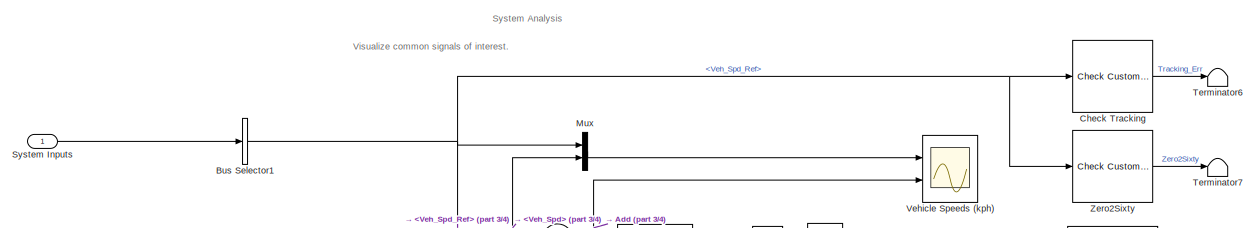
[diagram: System Analysis - part 1/4, top center region]
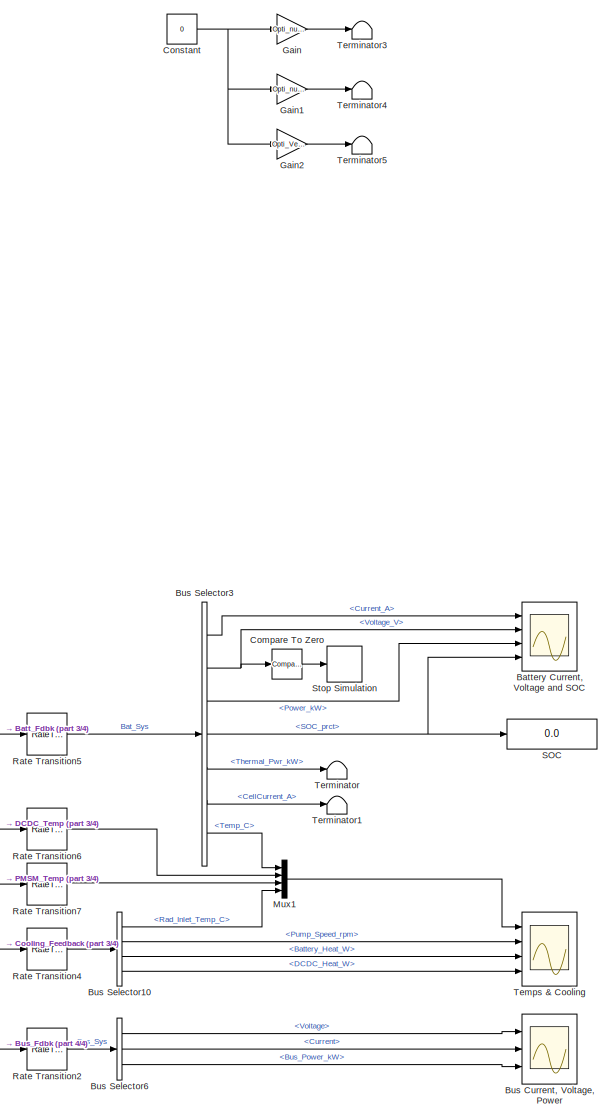
[diagram: System Analysis - part 2/4, right side, full height]
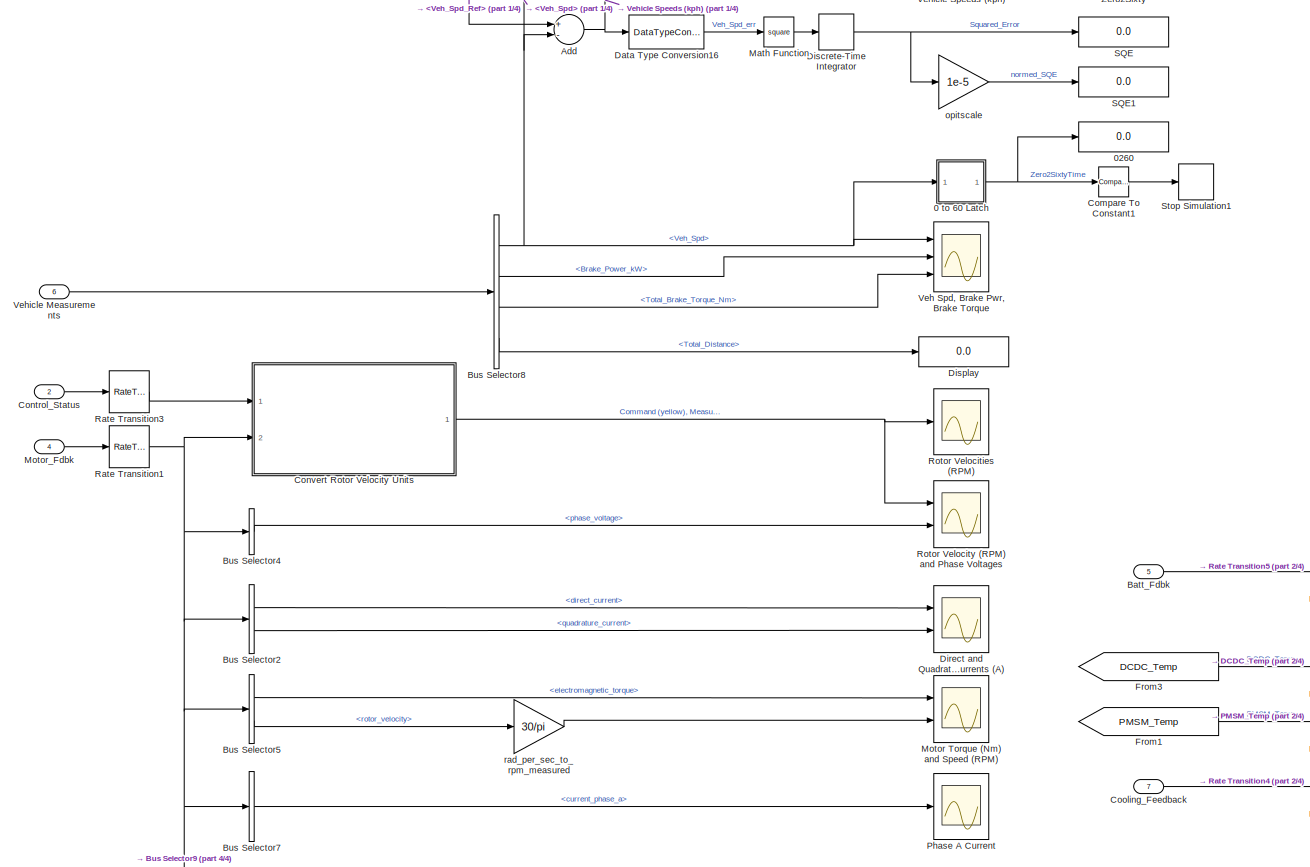
[diagram: System Analysis - part 3/4, central region]
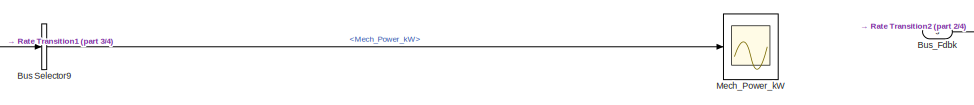
[diagram: System Analysis - part 4/4, bottom center region]
BLOCK [SubSystem] System Analysis
  Description = System Analysis for Speed Control Design\n\nAnalyize and plot signals used to analyize performance of\nspeed  control designs
  FunctionWithSeparateData = off
  MaskHideContents = off
  MinAlgLoopOccurrences = off
  Opaque = off
  Ports = [7]
  PropExecContextOutsideSubsystem = off
  RTWSystemCode = Auto
  RequestExecContextInheritance = off
BLOCK [SubSystem] System Analysis/0 to 60 Latch
  FunctionWithSeparateData = off
  MaskHideContents = off
  MinAlgLoopOccurrences = off
  Opaque = off
  Ports = [1, 1]
  PropExecContextOutsideSubsystem = off
  RTWSystemCode = Auto
  RequestExecContextInheritance = off
BLOCK [Sum] System Analysis/0 to 60 Latch/Add1
  InputSameDT = off
  OutDataTypeStr = Inherit: Inherit via internal rule
  Ports = [2, 1]
  SaturateOnIntegerOverflow = off
BLOCK [Clock] System Analysis/0 to 60 Latch/Clock
BLOCK [Reference] System Analysis/0 to 60 Latch/Compare To Constant  REF=simulink/Logic and Bit
Operations/Compare
To Constant
  OutDataTypeStr = boolean
  Ports = [1, 1]
  SourceBlock = simulink/Logic and Bit\nOperations/Compare\nTo Constant
  SourceType = Compare To Constant
  ZeroCross = on
  const = 97
  relop = >=
BLOCK [Constant] System Analysis/0 to 60 Latch/Constant1
  SampleTime = -1
  Value = 0
BLOCK [Inport] System Analysis/0 to 60 Latch/In1
  IconDisplay = Port number
BLOCK [Outport] System Analysis/0 to 60 Latch/Out1
  IconDisplay = Port number
BLOCK [RateTransition] System Analysis/0 to 60 Latch/Rate Transition
BLOCK [Switch] System Analysis/0 to 60 Latch/Switch
  Criteria = u2 > Threshold
  InputSameDT = off
  SaturateOnIntegerOverflow = off
BLOCK [Switch] System Analysis/0 to 60 Latch/Switch1
  Criteria = u2 > Threshold
  InputSameDT = off
  SaturateOnIntegerOverflow = off
BLOCK [UnitDelay] System Analysis/0 to 60 Latch/Unit Delay
  InputProcessing = Elements as channels (sample based)
  SampleTime = -1
BLOCK [UnitDelay] System Analysis/0 to 60 Latch/Unit Delay1
  InputProcessing = Elements as channels (sample based)
  SampleTime = -1
BLOCK [Display] System Analysis/0260
  Decimation = 1
  Ports = [1]
BLOCK [Sum] System Analysis/Add
  InputSameDT = off
  Inputs = +-
  OutDataTypeStr = Inherit: Inherit via internal rule
  Ports = [2, 1]
  SaturateOnIntegerOverflow = off
BLOCK [Inport] System Analysis/Batt_Fdbk
  IconDisplay = Port number
  Port = 5
BLOCK [Scope] System Analysis/Battery Current, Voltage and SOC
  DataFormat = StructureWithTime
  Floating = off
  LimitDataPoints = off
  NumInputPorts = 4
  Ports = [4]
  SampleTime = 0
  SaveName = ScopeData9
  ShowLegends = off
  TimeRange = 120
  YMax = 300~500~100~93.49
  YMin = -200~250~-100~93.32
  ZoomMode = yonly
BLOCK [Scope] System Analysis/Bus Current, Voltage, Power
  DataFormat = StructureWithTime
  Floating = off
  LimitDataPoints = off
  NumInputPorts = 3
  Ports = [3]
  SampleTime = 0
  SaveName = ScopeData8
  ShowLegends = off
  TimeRange = 1
  YMax = 655~-12.5~-2
  YMin = 649.5~-40~-14
  ZoomMode = xonly
BLOCK [BusSelector] System Analysis/Bus Selector1
  OutputSignals = Veh_Spd_Ref
  Ports = [1, 1]
BLOCK [BusSelector] System Analysis/Bus Selector10
  OutputSignals = Rad_Inlet_Temp_C,Pump_Speed_rpm,Battery_Heat_W,DCDC_Heat_W
  Ports = [1, 4]
BLOCK [BusSelector] System Analysis/Bus Selector2
  OutputSignals = Motor_Fdbk.direct_current,Motor_Fdbk.quadrature_current
  Ports = [1, 2]
BLOCK [BusSelector] System Analysis/Bus Selector3
  OutputSignals = Current_A,Voltage_V,Power_kW,SOC_prct,Thermal_Pwr_kW,CellCurrent_A,Temp_C
  Ports = [1, 7]
BLOCK [BusSelector] System Analysis/Bus Selector4
  OutputSignals = phase_voltage
  Ports = [1, 1]
BLOCK [BusSelector] System Analysis/Bus Selector5
  OutputSignals = Motor_Fdbk.electromagnetic_torque,Motor_Fdbk.rotor_velocity
  Ports = [1, 2]
BLOCK [BusSelector] System Analysis/Bus Selector6
  OutputSignals = Voltage,Current,Bus_Power_kW
  Ports = [1, 3]
BLOCK [BusSelector] System Analysis/Bus Selector7
  OutputSignals = Motor_Fdbk.current_phase_a
  Ports = [1, 1]
BLOCK [BusSelector] System Analysis/Bus Selector8
  OutputSignals = Veh_Spd,Brake_Power_kW,Total_Brake_Torque_Nm,Total_Distance
  Ports = [1, 4]
BLOCK [BusSelector] System Analysis/Bus Selector9
  OutputSignals = Motor_Fdbk.Mech_Power_kW
  Ports = [1, 1]
BLOCK [Inport] System Analysis/Bus_Fdbk
  IconDisplay = Port number
  Port = 3
BLOCK [Reference] System Analysis/Check Tracking  REF=checkpacklib/Check Custom Bounds
  Commented = on
  EnableLowerBound = off
  EnableUpperBound = off
  InstantiateOnLoad = on
  LaunchViewOnOpen = on
  LowerBoundAmplitudes = US06_tracking_mat_lb
  LowerBoundTimes = US06_tracking_mat_t
  OpenViewOnLoad = off
  Ports = [1, 1]
  SourceBlock = checkpacklib/Check Custom Bounds
  SourceType = Checks_CustomBounds
  TimeUnits = seconds
  UpperBoundAmplitudes = []
  UpperBoundTimes = []
  ViewDlgPos = [207 433 510 390]
  ZeroCross = on
  enabled = on
  export = on
  stopWhenAssertionFail = off
BLOCK [Reference] System Analysis/Compare To Constant1  REF=simulink/Logic and Bit
Operations/Compare
To Constant
  OutDataTypeStr = boolean
  Ports = [1, 1]
  SourceBlock = simulink/Logic and Bit\nOperations/Compare\nTo Constant
  SourceType = Compare To Constant
  ZeroCross = on
  const = 21
  relop = >=
BLOCK [Reference] System Analysis/Compare To Zero  REF=simulink/Logic and Bit
Operations/Compare
To Zero
  OutDataTypeStr = boolean
  Ports = [1, 1]
  SourceBlock = simulink/Logic and Bit\nOperations/Compare\nTo Zero
  SourceType = Compare To Zero
  ZeroCross = on
  relop = <
BLOCK [Constant] System Analysis/Constant
  Value = 0
BLOCK [Inport] System Analysis/Control_Status
  IconDisplay = Port number
  Port = 2
BLOCK [SubSystem] System Analysis/Convert Rotor Velocity Units
  FunctionWithSeparateData = off
  MaskHideContents = off
  MinAlgLoopOccurrences = off
  Opaque = off
  Ports = [2, 1]
  PropExecContextOutsideSubsystem = off
  RTWSystemCode = Auto
  RequestExecContextInheritance = off
BLOCK [BusCreator] System Analysis/Convert Rotor Velocity Units/Bus Creator1
  DisplayOption = bar
  Inputs = 2
  Ports = [2, 1]
BLOCK [BusSelector] System Analysis/Convert Rotor Velocity Units/Bus Selector1
  OutputSignals = Motor_Fdbk.rotor_velocity
  Ports = [1, 1]
BLOCK [BusSelector] System Analysis/Convert Rotor Velocity Units/Bus Selector2
  OutputSignals = Motor_Cmds.Motor_Spd_Ref_radps
  Ports = [1, 1]
BLOCK [Gain] System Analysis/Convert Rotor Velocity Units/rad_per_sec_to_rpm_command
  Gain = 30/pi
  OutDataTypeStr = double
  ParamDataTypeStr = Inherit: Inherit via internal rule
  SaturateOnIntegerOverflow = off
BLOCK [Gain] System Analysis/Convert Rotor Velocity Units/rad_per_sec_to_rpm_measured
  Gain = 30/pi
  OutDataTypeStr = Inherit: Inherit via internal rule
  ParamDataTypeStr = Inherit: Inherit via internal rule
  SaturateOnIntegerOverflow = off
BLOCK [Outport] System Analysis/Convert Rotor Velocity Units/rotor_velocities
  IconDisplay = Port number
BLOCK [Inport] System Analysis/Convert Rotor Velocity Units/system_inputs
  IconDisplay = Port number
BLOCK [Inport] System Analysis/Convert Rotor Velocity Units/system_measurements
  IconDisplay = Port number
  Port = 2
BLOCK [Inport] System Analysis/Cooling_Feedback
  IconDisplay = Port number
  Port = 7
BLOCK [DataTypeConversion] System Analysis/Data Type Conversion16
  OutDataTypeStr = double
  RndMeth = Floor
  SaturateOnIntegerOverflow = off
BLOCK [Scope] System Analysis/Direct and Quadrature Currents (A)
  DataFormat = StructureWithTime
  Floating = off
  LimitDataPoints = off
  NumInputPorts = 2
  Ports = [2]
  SampleTime = 0
  SaveName = ScopeData3
  ShowLegends = off
  TimeRange = 0.12
  YMax = 10~10
  YMin = -10~-10
BLOCK [DiscreteIntegrator] System Analysis/Discrete-Time Integrator
  ICPrevOutput = DiscIntNeverNeededParam
  ICPrevScaledInput = DiscIntNeverNeededParam
  Ports = [1, 1]
  SampleTime = -1
BLOCK [Display] System Analysis/Display
  Decimation = 1
  Ports = [1]
BLOCK [From] System Analysis/From1
  GotoTag = PMSM_Temp
  TagVisibility = global
BLOCK [From] System Analysis/From3
  GotoTag = DCDC_Temp
  TagVisibility = global
BLOCK [Gain] System Analysis/Gain
  Gain = Opti_numStrings
  OutDataTypeStr = Inherit: Inherit via internal rule
  ParamDataTypeStr = Inherit: Inherit via internal rule
  SaturateOnIntegerOverflow = off
BLOCK [Gain] System Analysis/Gain1
  Gain = Opti_numSeriesCells
  OutDataTypeStr = Inherit: Inherit via internal rule
  ParamDataTypeStr = Inherit: Inherit via internal rule
  SaturateOnIntegerOverflow = off
BLOCK [Gain] System Analysis/Gain2
  Gain = Opti_Vehicle_Gear_Ratio
  OutDataTypeStr = Inherit: Inherit via internal rule
  ParamDataTypeStr = Inherit: Inherit via internal rule
  SaturateOnIntegerOverflow = off
BLOCK [Math] System Analysis/Math Function
  Operator = square
  Ports = [1, 1]
BLOCK [Scope] System Analysis/Mech_Power_kW
  DataFormat = StructureWithTime
  Floating = off
  NumInputPorts = 1
  Ports = [1]
  SampleTime = 0
  SaveName = ScopeData12
  ShowLegends = off
  TimeRange = 2
  YMax = 27.5
  YMin = -2.5
  ZoomMode = yonly
BLOCK [Scope] System Analysis/Motor Torque (Nm) and Speed (RPM)
  DataFormat = StructureWithTime
  Floating = off
  LimitDataPoints = off
  NumInputPorts = 2
  Ports = [2]
  SampleTime = 0
  SaveName = ScopeData2
  ShowLegends = off
  TimeRange = 0.12
  YMax = 92.5~10
  YMin = 60~-10
BLOCK [Inport] System Analysis/Motor_Fdbk
  IconDisplay = Port number
  Port = 4
BLOCK [Mux] System Analysis/Mux
  DisplayOption = bar
  Inputs = 2
  Ports = [2, 1]
BLOCK [Mux] System Analysis/Mux1
  DisplayOption = bar
  Ports = [4, 1]
BLOCK [Scope] System Analysis/Phase A Current
  DataFormat = StructureWithTime
  Floating = off
  NumInputPorts = 1
  Ports = [1]
  SampleTime = 0
  SaveName = ScopeData11
  ShowLegends = off
  TimeRange = 2
  YMax = 400
  YMin = -400
  ZoomMode = yonly
BLOCK [RateTransition] System Analysis/Rate Transition1
  OutPortSampleTime = .01
BLOCK [RateTransition] System Analysis/Rate Transition2
  OutPortSampleTime = .01
BLOCK [RateTransition] System Analysis/Rate Transition3
  OutPortSampleTime = .01
BLOCK [RateTransition] System Analysis/Rate Transition4
  OutPortSampleTime = .01
BLOCK [RateTransition] System Analysis/Rate Transition5
  OutPortSampleTime = .01
BLOCK [RateTransition] System Analysis/Rate Transition6
  OutPortSampleTime = .01
BLOCK [RateTransition] System Analysis/Rate Transition7
  OutPortSampleTime = .01
BLOCK [Scope] System Analysis/Rotor Velocities (RPM)
  DataFormat = StructureWithTime
  Floating = off
  NumInputPorts = 1
  Ports = [1]
  SampleTime = 0
  SaveName = ScopeData1
  ShowLegends = off
  TimeRange = 2
  YMax = 4050
  YMin = 3450
  ZoomMode = yonly
BLOCK [Scope] System Analysis/Rotor Velocity (RPM) and Phase Voltages
  DataFormat = StructureWithTime
  Floating = off
  LimitDataPoints = off
  NumInputPorts = 2
  Ports = [2]
  SampleTime = 0
  SaveName = ScopeData4
  ShowLegends = off
  TimeRange = 1
  YMax = 1300~450
  YMin = -700~-450
  ZoomMode = yonly
BLOCK [Display] System Analysis/SOC
  Decimation = 1
  Ports = [1]
BLOCK [Display] System Analysis/SQE
  Decimation = 1
  Ports = [1]
BLOCK [Display] System Analysis/SQE1
  Decimation = 1
  Format = long
  Ports = [1]
BLOCK [Stop] System Analysis/Stop Simulation
BLOCK [Stop] System Analysis/Stop Simulation1
BLOCK [Inport] System Analysis/System Inputs
  IconDisplay = Port number
BLOCK [Scope] System Analysis/Temps & Cooling
  DataFormat = StructureWithTime
  Floating = off
  LimitDataPoints = off
  NumInputPorts = 4
  Ports = [4]
  SampleTime = 0
  SaveName = ScopeData5
  ShowLegends = off
  TimeRange = 1
  YMax = 29~2295.5~50.25~-1
  YMin = 25.75~2289.5~47~-3.75
  ZoomMode = yonly
BLOCK [Terminator] System Analysis/Terminator
BLOCK [Terminator] System Analysis/Terminator1
BLOCK [Terminator] System Analysis/Terminator3
BLOCK [Terminator] System Analysis/Terminator4
BLOCK [Terminator] System Analysis/Terminator5
BLOCK [Terminator] System Analysis/Terminator6
  Commented = on
BLOCK [Terminator] System Analysis/Terminator7
  Commented = on
BLOCK [Scope] System Analysis/Veh Spd, Brake Pwr, Brake Torque
  DataFormat = StructureWithTime
  Floating = off
  LimitDataPoints = off
  NumInputPorts = 3
  Ports = [3]
  SampleTime = 0
  SaveName = ScopeData21
  ShowLegends = off
  TimeRange = 1
  YMax = 682.43~90~18.9
  YMin = 617.436~-15~18.25
  ZoomMode = yonly
BLOCK [Inport] System Analysis/Vehicle Measurements
  IconDisplay = Port number
  Port = 6
BLOCK [Scope] System Analysis/Vehicle Speeds (kph)
  DataFormat = StructureWithTime
  Floating = off
  LimitDataPoints = off
  NumInputPorts = 2
  Ports = [2]
  SampleTime = 0
  SaveName = ScopeData6
  ShowLegends = off
  TimeRange = 650
  YMax = 130~130
  YMin = 0~-10
BLOCK [Reference] System Analysis/Zero2Sixty  REF=checkpacklib/Check Custom Bounds
  Commented = on
  EnableLowerBound = off
  EnableUpperBound = off
  InstantiateOnLoad = on
  LaunchViewOnOpen = on
  LowerBoundAmplitudes = [0 0; 97 97; -5 -5]
  LowerBoundTimes = [0 21; 21 22; 22 650]
  OpenViewOnLoad = off
  Ports = [1, 1]
  SourceBlock = checkpacklib/Check Custom Bounds
  SourceType = Checks_CustomBounds
  TimeUnits = seconds
  UpperBoundAmplitudes = []
  UpperBoundTimes = []
  ViewDlgPos = [107 568 510 390]
  ZeroCross = on
  enabled = on
  export = on
  stopWhenAssertionFail = off
BLOCK [Gain] System Analysis/opitscale
  Gain = 1e-5
  OutDataTypeStr = Inherit: Inherit via internal rule
  ParamDataTypeStr = Inherit: Inherit via internal rule
  SaturateOnIntegerOverflow = off
BLOCK [Gain] System Analysis/rad_per_sec_to_rpm_measured
  Gain = 30/pi
  OutDataTypeStr = Inherit: Inherit via internal rule
  ParamDataTypeStr = Inherit: Inherit via internal rule
  SaturateOnIntegerOverflow = off
BLOCK [SubSystem] Thermal_Partition
  FunctionWithSeparateData = off
  MaskHideContents = off
  MinAlgLoopOccurrences = off
  Opaque = off
  Ports = [0, 0, 0, 0, 0, 2, 4]
  PropExecContextOutsideSubsystem = off
  RTWSystemCode = Auto
  RequestExecContextInheritance = off
BLOCK [PMIOPort] Thermal_Partition/Batt_Cool
  Port = 6
  Side = Right
BLOCK [PMIOPort] Thermal_Partition/Batt_Heat
  Port = 2
  Side = Left
BLOCK [SubSystem] Thermal_Partition/Battery Cold Plate
  FunctionWithSeparateData = off
  MaskHideContents = off
  MinAlgLoopOccurrences = off
  Opaque = off
  Ports = [0, 0, 0, 0, 0, 1, 1]
  PropExecContextOutsideSubsystem = off
  RTWSystemCode = Auto
  RequestExecContextInheritance = off
BLOCK [Reference] Thermal_Partition/Battery Cold Plate/Cold_Plate  REF=fl_lib/Thermal/Thermal Elements/Conductive Heat
Transfer
  ClassName = conduction
  ComponentPath = foundation.thermal.elements.conduction
  ComponentVariantNames = conduction
  ComponentVariants = foundation.thermal.elements.conduction
  LocalVarDescs = |Q|T
  LocalVarLogging = [0 0]
  LocalVarNames = |Q|T
  Ports = [0, 0, 0, 0, 0, 1, 1]
  Q_Log = off
  SchemaVersion = 1
  SourceBlock = fl_lib/Thermal/Thermal Elements/Conductive Heat\nTransfer
  SourceFile = foundation.thermal.elements.conduction
  SourceType = Conductive Heat\nTransfer
  T_Log = off
  area = cell_area*2
  area_unit = m^2
  th_cond = 401
  th_cond_unit = W/(m*K)
  thickness = 0.005
  thickness_unit = m
BLOCK [PMIOPort] Thermal_Partition/Battery Cold Plate/Coolant_Port
  Port = 1
  Side = Right
BLOCK [PMIOPort] Thermal_Partition/Battery Cold Plate/Electronic_Port
  Port = 2
  Side = Left
BLOCK [Reference] Thermal_Partition/Battery Cold Plate/Ideal Heat Flow Sensor  REF=fl_lib/Thermal/Thermal Sensors/Ideal Heat Flow
Sensor
  ClassName = heat_flow
  ComponentPath = foundation.thermal.sensors.heat_flow
  ComponentVariantNames = heat_flow
  ComponentVariants = foundation.thermal.sensors.heat_flow
  LocalVarDescs = |Q|T
  LocalVarLogging = [0 0]
  LocalVarNames = |Q|T
  Ports = [0, 0, 0, 0, 0, 1, 2]
  Q_Log = off
  SchemaVersion = 1
  SourceBlock = fl_lib/Thermal/Thermal Sensors/Ideal Heat Flow\nSensor
  SourceFile = foundation.thermal.sensors.heat_flow
  SourceType = Ideal Heat Flow\nSensor
  T_Log = off
BLOCK [Reference] Thermal_Partition/Battery Cold Plate/Ideal Heat Flow Source  REF=fl_lib/Thermal/Thermal Sources/Ideal Heat Flow
Source
  ClassName = heat_flow
  ComponentPath = foundation.thermal.sources.heat_flow
  ComponentVariantNames = heat_flow
  ComponentVariants = foundation.thermal.sources.heat_flow
  LocalVarDescs = |Q|T
  LocalVarLogging = [0 0]
  LocalVarNames = |Q|T
  Ports = [0, 0, 0, 0, 0, 1, 2]
  Q_Log = off
  SchemaVersion = 1
  SourceBlock = fl_lib/Thermal/Thermal Sources/Ideal Heat Flow\nSource
  SourceFile = foundation.thermal.sources.heat_flow
  SourceType = Ideal Heat Flow\nSource
  T_Log = off
BLOCK [Reference] Thermal_Partition/Battery Cold Plate/Ideal Temperature Sensor  REF=fl_lib/Thermal/Thermal Sensors/Ideal Temperature
Sensor
  ClassName = temperature
  ComponentPath = foundation.thermal.sensors.temperature
  ComponentVariantNames = temperature
  ComponentVariants = foundation.thermal.sensors.temperature
  LocalVarDescs = |Qs|Ts
  LocalVarLogging = [0 0]
  LocalVarNames = |Qs|Ts
  Ports = [0, 0, 0, 0, 0, 1, 2]
  Qs_Log = off
  SchemaVersion = 1
  SourceBlock = fl_lib/Thermal/Thermal Sensors/Ideal Temperature\nSensor
  SourceFile = foundation.thermal.sensors.temperature
  SourceType = Ideal Temperature\nSensor
  Ts_Log = off
BLOCK [Reference] Thermal_Partition/Battery Cold Plate/Ideal Temperature Source  REF=fl_lib/Thermal/Thermal Sources/Ideal Temperature
Source
  ClassName = temperature
  ComponentPath = foundation.thermal.sources.temperature
  ComponentVariantNames = temperature
  ComponentVariants = foundation.thermal.sources.temperature
  LocalVarDescs = |Q|T
  LocalVarLogging = [0 0]
  LocalVarNames = |Q|T
  Ports = [0, 0, 0, 0, 0, 1, 2]
  Q_Log = off
  SchemaVersion = 1
  SourceBlock = fl_lib/Thermal/Thermal Sources/Ideal Temperature\nSource
  SourceFile = foundation.thermal.sources.temperature
  SourceType = Ideal Temperature\nSource
  T_Log = off
BLOCK [Reference] Thermal_Partition/Battery Cold Plate/PS-Simulink Converter1  REF=nesl_utility/PS-Simulink
Converter
  AffineConversion = on
  Frequencies = []
  LeftPortType = input
  PhysicalDomain = network_engine_domain
  Ports = [0, 1, 0, 0, 0, 1]
  PseudoPeriodic = off
  RightPortType = output
  SourceBlock = nesl_utility/PS-Simulink\nConverter
  SourceType = PS-Simulink\nConverter
  SubClassName = ps_output
  Unit = W
BLOCK [Reference] Thermal_Partition/Battery Cold Plate/PS-Simulink Converter2  REF=nesl_utility/PS-Simulink
Converter
  AffineConversion = on
  Frequencies = []
  LeftPortType = input
  PhysicalDomain = network_engine_domain
  Ports = [0, 1, 0, 0, 0, 1]
  PseudoPeriodic = off
  RightPortType = output
  SourceBlock = nesl_utility/PS-Simulink\nConverter
  SourceType = PS-Simulink\nConverter
  SubClassName = ps_output
  Unit = K
BLOCK [RateTransition] Thermal_Partition/Battery Cold Plate/Rate Transition
BLOCK [RateTransition] Thermal_Partition/Battery Cold Plate/Rate Transition1
  X0 = BatteryParams(1).T_init
BLOCK [Reference] Thermal_Partition/Battery Cold Plate/Simulink-PS Converter  REF=nesl_utility/Simulink-PS
Converter
  AffineConversion = on
  Frequencies = []
  InputFilterTimeConstant = 0.001
  InputFiltering = off
  LeftPortType = input
  NoiseDistribution = none
  NoiseParameters = []
  PhysicalDomain = network_engine_domain
  Ports = [1, 0, 0, 0, 0, 0, 1]
  PseudoPeriodic = off
  RightPortType = output
  SimscapeFilterOrder = 1
  SourceBlock = nesl_utility/Simulink-PS\nConverter
  SourceType = Simulink-PS\nConverter
  SubClassName = ps_input
  UdotUserProvided = 1
  Unit = K
BLOCK [Reference] Thermal_Partition/Battery Cold Plate/Simulink-PS Converter1  REF=nesl_utility/Simulink-PS
Converter
  AffineConversion = on
  Frequencies = []
  InputFilterTimeConstant = 0.001
  InputFiltering = off
  LeftPortType = input
  NoiseDistribution = none
  NoiseParameters = []
  PhysicalDomain = network_engine_domain
  Ports = [1, 0, 0, 0, 0, 0, 1]
  PseudoPeriodic = off
  RightPortType = output
  SimscapeFilterOrder = 1
  SourceBlock = nesl_utility/Simulink-PS\nConverter
  SourceType = Simulink-PS\nConverter
  SubClassName = ps_input
  UdotUserProvided = 1
  Unit = W
BLOCK [Reference] Thermal_Partition/Battery Cold Plate/Thermal Reference2  REF=fl_lib/Thermal/Thermal Elements/Thermal Reference
  ClassName = reference_thermal
  ComponentPath = foundation.thermal.elements.reference
  ComponentVariantNames = reference
  ComponentVariants = foundation.thermal.elements.reference
  LocalVarDescs = |Q
  LocalVarLogging = []
  LocalVarNames = |Q
  Ports = [0, 0, 0, 0, 0, 1]
  Q_Log = off
  SchemaVersion = 1
  SourceBlock = fl_lib/Thermal/Thermal Elements/Thermal Reference
  SourceFile = foundation.thermal.elements.reference
  SourceType = Thermal Reference
BLOCK [Reference] Thermal_Partition/Battery Cold Plate/Thermal Reference3  REF=fl_lib/Thermal/Thermal Elements/Thermal Reference
  ClassName = reference_thermal
  ComponentPath = foundation.thermal.elements.reference
  ComponentVariantNames = reference
  ComponentVariants = foundation.thermal.elements.reference
  LocalVarDescs = |Q
  LocalVarLogging = []
  LocalVarNames = |Q
  Ports = [0, 0, 0, 0, 0, 1]
  Q_Log = off
  SchemaVersion = 1
  SourceBlock = fl_lib/Thermal/Thermal Elements/Thermal Reference
  SourceFile = foundation.thermal.elements.reference
  SourceType = Thermal Reference
BLOCK [Reference] Thermal_Partition/Battery Cold Plate/Thermal Reference4  REF=fl_lib/Thermal/Thermal Elements/Thermal Reference
  ClassName = reference_thermal
  ComponentPath = foundation.thermal.elements.reference
  ComponentVariantNames = reference
  ComponentVariants = foundation.thermal.elements.reference
  LocalVarDescs = |Q
  LocalVarLogging = []
  LocalVarNames = |Q
  Ports = [0, 0, 0, 0, 0, 1]
  Q_Log = off
  SchemaVersion = 1
  SourceBlock = fl_lib/Thermal/Thermal Elements/Thermal Reference
  SourceFile = foundation.thermal.elements.reference
  SourceType = Thermal Reference
BLOCK [Gain] Thermal_Partition/Battery Cold Plate/Thermal_Divider
  Gain = 1/total_cells
  OutDataTypeStr = Inherit: Inherit via internal rule
  ParamDataTypeStr = Inherit: Inherit via internal rule
  SaturateOnIntegerOverflow = off
BLOCK [SubSystem] Thermal_Partition/DCDC Cold Plate
  FunctionWithSeparateData = off
  MaskHideContents = off
  MinAlgLoopOccurrences = off
  Opaque = off
  Ports = [0, 0, 0, 0, 0, 1, 1]
  PropExecContextOutsideSubsystem = off
  RTWSystemCode = Auto
  RequestExecContextInheritance = off
BLOCK [Sum] Thermal_Partition/DCDC Cold Plate/Add
  InputSameDT = off
  Inputs = +-
  OutDataTypeStr = Inherit: Inherit via internal rule
  Ports = [2, 1]
  SaturateOnIntegerOverflow = off
BLOCK [Reference] Thermal_Partition/DCDC Cold Plate/Cold_Plate  REF=fl_lib/Thermal/Thermal Elements/Conductive Heat
Transfer
  ClassName = conduction
  ComponentPath = foundation.thermal.elements.conduction
  ComponentVariantNames = conduction
  ComponentVariants = foundation.thermal.elements.conduction
  LocalVarDescs = |Q|T
  LocalVarLogging = [0 0]
  LocalVarNames = |Q|T
  Ports = [0, 0, 0, 0, 0, 1, 1]
  Q_Log = off
  SchemaVersion = 1
  SourceBlock = fl_lib/Thermal/Thermal Elements/Conductive Heat\nTransfer
  SourceFile = foundation.thermal.elements.conduction
  SourceType = Conductive Heat\nTransfer
  T_Log = off
  area = .1*.3
  area_unit = m^2
  th_cond = 401
  th_cond_unit = W/(m*K)
  thickness = 0.005
  thickness_unit = m
BLOCK [Constant] Thermal_Partition/DCDC Cold Plate/Constant
  SampleTime = -1
  Value = 272.15
BLOCK [PMIOPort] Thermal_Partition/DCDC Cold Plate/Coolant_Port
  Port = 1
  Side = Right
BLOCK [PMIOPort] Thermal_Partition/DCDC Cold Plate/Electronic_Port
  Port = 2
  Side = Left
BLOCK [Goto] Thermal_Partition/DCDC Cold Plate/Goto
  GotoTag = DCDC_Temp
  TagVisibility = global
BLOCK [Reference] Thermal_Partition/DCDC Cold Plate/Ideal Heat Flow Sensor  REF=fl_lib/Thermal/Thermal Sensors/Ideal Heat Flow
Sensor
  ClassName = heat_flow
  ComponentPath = foundation.thermal.sensors.heat_flow
  ComponentVariantNames = heat_flow
  ComponentVariants = foundation.thermal.sensors.heat_flow
  LocalVarDescs = |Q|T
  LocalVarLogging = [0 0]
  LocalVarNames = |Q|T
  Ports = [0, 0, 0, 0, 0, 1, 2]
  Q_Log = off
  SchemaVersion = 1
  SourceBlock = fl_lib/Thermal/Thermal Sensors/Ideal Heat Flow\nSensor
  SourceFile = foundation.thermal.sensors.heat_flow
  SourceType = Ideal Heat Flow\nSensor
  T_Log = off
BLOCK [Reference] Thermal_Partition/DCDC Cold Plate/Ideal Heat Flow Source  REF=fl_lib/Thermal/Thermal Sources/Ideal Heat Flow
Source
  ClassName = heat_flow
  ComponentPath = foundation.thermal.sources.heat_flow
  ComponentVariantNames = heat_flow
  ComponentVariants = foundation.thermal.sources.heat_flow
  LocalVarDescs = |Q|T
  LocalVarLogging = [0 0]
  LocalVarNames = |Q|T
  Ports = [0, 0, 0, 0, 0, 1, 2]
  Q_Log = off
  SchemaVersion = 1
  SourceBlock = fl_lib/Thermal/Thermal Sources/Ideal Heat Flow\nSource
  SourceFile = foundation.thermal.sources.heat_flow
  SourceType = Ideal Heat Flow\nSource
  T_Log = off
BLOCK [Reference] Thermal_Partition/DCDC Cold Plate/Ideal Temperature Sensor  REF=fl_lib/Thermal/Thermal Sensors/Ideal Temperature
Sensor
  ClassName = temperature
  ComponentPath = foundation.thermal.sensors.temperature
  ComponentVariantNames = temperature
  ComponentVariants = foundation.thermal.sensors.temperature
  LocalVarDescs = |Qs|Ts
  LocalVarLogging = [0 0]
  LocalVarNames = |Qs|Ts
  Ports = [0, 0, 0, 0, 0, 1, 2]
  Qs_Log = off
  SchemaVersion = 1
  SourceBlock = fl_lib/Thermal/Thermal Sensors/Ideal Temperature\nSensor
  SourceFile = foundation.thermal.sensors.temperature
  SourceType = Ideal Temperature\nSensor
  Ts_Log = off
BLOCK [Reference] Thermal_Partition/DCDC Cold Plate/Ideal Temperature Source  REF=fl_lib/Thermal/Thermal Sources/Ideal Temperature
Source
  ClassName = temperature
  ComponentPath = foundation.thermal.sources.temperature
  ComponentVariantNames = temperature
  ComponentVariants = foundation.thermal.sources.temperature
  LocalVarDescs = |Q|T
  LocalVarLogging = [0 0]
  LocalVarNames = |Q|T
  Ports = [0, 0, 0, 0, 0, 1, 2]
  Q_Log = off
  SchemaVersion = 1
  SourceBlock = fl_lib/Thermal/Thermal Sources/Ideal Temperature\nSource
  SourceFile = foundation.thermal.sources.temperature
  SourceType = Ideal Temperature\nSource
  T_Log = off
BLOCK [Reference] Thermal_Partition/DCDC Cold Plate/PS-Simulink Converter1  REF=nesl_utility/PS-Simulink
Converter
  AffineConversion = on
  Frequencies = []
  LeftPortType = input
  PhysicalDomain = network_engine_domain
  Ports = [0, 1, 0, 0, 0, 1]
  PseudoPeriodic = off
  RightPortType = output
  SourceBlock = nesl_utility/PS-Simulink\nConverter
  SourceType = PS-Simulink\nConverter
  SubClassName = ps_output
  Unit = W
BLOCK [Reference] Thermal_Partition/DCDC Cold Plate/PS-Simulink Converter2  REF=nesl_utility/PS-Simulink
Converter
  AffineConversion = on
  Frequencies = []
  LeftPortType = input
  PhysicalDomain = network_engine_domain
  Ports = [0, 1, 0, 0, 0, 1]
  PseudoPeriodic = off
  RightPortType = output
  SourceBlock = nesl_utility/PS-Simulink\nConverter
  SourceType = PS-Simulink\nConverter
  SubClassName = ps_output
  Unit = K
BLOCK [RateTransition] Thermal_Partition/DCDC Cold Plate/Rate Transition
BLOCK [RateTransition] Thermal_Partition/DCDC Cold Plate/Rate Transition1
  X0 = BatteryParams(1).T_init
BLOCK [Reference] Thermal_Partition/DCDC Cold Plate/Simulink-PS Converter  REF=nesl_utility/Simulink-PS
Converter
  AffineConversion = on
  Frequencies = []
  InputFilterTimeConstant = 0.001
  InputFiltering = off
  LeftPortType = input
  NoiseDistribution = none
  NoiseParameters = []
  PhysicalDomain = network_engine_domain
  Ports = [1, 0, 0, 0, 0, 0, 1]
  PseudoPeriodic = off
  RightPortType = output
  SimscapeFilterOrder = 1
  SourceBlock = nesl_utility/Simulink-PS\nConverter
  SourceType = Simulink-PS\nConverter
  SubClassName = ps_input
  UdotUserProvided = 1
  Unit = K
BLOCK [Reference] Thermal_Partition/DCDC Cold Plate/Simulink-PS Converter1  REF=nesl_utility/Simulink-PS
Converter
  AffineConversion = on
  Frequencies = []
  InputFilterTimeConstant = 0.001
  InputFiltering = off
  LeftPortType = input
  NoiseDistribution = none
  NoiseParameters = []
  PhysicalDomain = network_engine_domain
  Ports = [1, 0, 0, 0, 0, 0, 1]
  PseudoPeriodic = off
  RightPortType = output
  SimscapeFilterOrder = 1
  SourceBlock = nesl_utility/Simulink-PS\nConverter
  SourceType = Simulink-PS\nConverter
  SubClassName = ps_input
  UdotUserProvided = 1
  Unit = W
BLOCK [Reference] Thermal_Partition/DCDC Cold Plate/Thermal Reference2  REF=fl_lib/Thermal/Thermal Elements/Thermal Reference
  ClassName = reference_thermal
  ComponentPath = foundation.thermal.elements.reference
  ComponentVariantNames = reference
  ComponentVariants = foundation.thermal.elements.reference
  LocalVarDescs = |Q
  LocalVarLogging = []
  LocalVarNames = |Q
  Ports = [0, 0, 0, 0, 0, 1]
  Q_Log = off
  SchemaVersion = 1
  SourceBlock = fl_lib/Thermal/Thermal Elements/Thermal Reference
  SourceFile = foundation.thermal.elements.reference
  SourceType = Thermal Reference
BLOCK [Reference] Thermal_Partition/DCDC Cold Plate/Thermal Reference3  REF=fl_lib/Thermal/Thermal Elements/Thermal Reference
  ClassName = reference_thermal
  ComponentPath = foundation.thermal.elements.reference
  ComponentVariantNames = reference
  ComponentVariants = foundation.thermal.elements.reference
  LocalVarDescs = |Q
  LocalVarLogging = []
  LocalVarNames = |Q
  Ports = [0, 0, 0, 0, 0, 1]
  Q_Log = off
  SchemaVersion = 1
  SourceBlock = fl_lib/Thermal/Thermal Elements/Thermal Reference
  SourceFile = foundation.thermal.elements.reference
  SourceType = Thermal Reference
BLOCK [Reference] Thermal_Partition/DCDC Cold Plate/Thermal Reference4  REF=fl_lib/Thermal/Thermal Elements/Thermal Reference
  ClassName = reference_thermal
  ComponentPath = foundation.thermal.elements.reference
  ComponentVariantNames = reference
  ComponentVariants = foundation.thermal.elements.reference
  LocalVarDescs = |Q
  LocalVarLogging = []
  LocalVarNames = |Q
  Ports = [0, 0, 0, 0, 0, 1]
  Q_Log = off
  SchemaVersion = 1
  SourceBlock = fl_lib/Thermal/Thermal Elements/Thermal Reference
  SourceFile = foundation.thermal.elements.reference
  SourceType = Thermal Reference
BLOCK [PMIOPort] Thermal_Partition/DCDC_Cool
  Port = 5
  Side = Right
BLOCK [PMIOPort] Thermal_Partition/DCDC_Heat
  Port = 1
  Side = Left
BLOCK [SubSystem] Thermal_Partition/PMSM Cold Plate
  FunctionWithSeparateData = off
  MaskHideContents = off
  MinAlgLoopOccurrences = off
  Opaque = off
  Ports = [0, 0, 0, 0, 0, 1, 1]
  PropExecContextOutsideSubsystem = off
  RTWSystemCode = Auto
  RequestExecContextInheritance = off
BLOCK [Sum] Thermal_Partition/PMSM Cold Plate/Add
  InputSameDT = off
  Inputs = +-
  OutDataTypeStr = Inherit: Inherit via internal rule
  Ports = [2, 1]
  SaturateOnIntegerOverflow = off
BLOCK [Reference] Thermal_Partition/PMSM Cold Plate/Cold_Plate  REF=fl_lib/Thermal/Thermal Elements/Conductive Heat
Transfer
  ClassName = conduction
  ComponentPath = foundation.thermal.elements.conduction
  ComponentVariantNames = conduction
  ComponentVariants = foundation.thermal.elements.conduction
  LocalVarDescs = |Q|T
  LocalVarLogging = [0 0]
  LocalVarNames = |Q|T
  Ports = [0, 0, 0, 0, 0, 1, 1]
  Q_Log = off
  SchemaVersion = 1
  SourceBlock = fl_lib/Thermal/Thermal Elements/Conductive Heat\nTransfer
  SourceFile = foundation.thermal.elements.conduction
  SourceType = Conductive Heat\nTransfer
  T_Log = off
  area = .1*.3
  area_unit = m^2
  th_cond = 401
  th_cond_unit = W/(m*K)
  thickness = 0.005
  thickness_unit = m
BLOCK [Constant] Thermal_Partition/PMSM Cold Plate/Constant
  SampleTime = -1
  Value = 272.15
BLOCK [PMIOPort] Thermal_Partition/PMSM Cold Plate/Coolant_Port
  Port = 1
  Side = Right
BLOCK [PMIOPort] Thermal_Partition/PMSM Cold Plate/Electronic_Port
  Port = 2
  Side = Left
BLOCK [Goto] Thermal_Partition/PMSM Cold Plate/Goto
  GotoTag = PMSM_Temp
  TagVisibility = global
BLOCK [Reference] Thermal_Partition/PMSM Cold Plate/Ideal Heat Flow Sensor  REF=fl_lib/Thermal/Thermal Sensors/Ideal Heat Flow
Sensor
  ClassName = heat_flow
  ComponentPath = foundation.thermal.sensors.heat_flow
  ComponentVariantNames = heat_flow
  ComponentVariants = foundation.thermal.sensors.heat_flow
  LocalVarDescs = |Q|T
  LocalVarLogging = [0 0]
  LocalVarNames = |Q|T
  Ports = [0, 0, 0, 0, 0, 1, 2]
  Q_Log = off
  SchemaVersion = 1
  SourceBlock = fl_lib/Thermal/Thermal Sensors/Ideal Heat Flow\nSensor
  SourceFile = foundation.thermal.sensors.heat_flow
  SourceType = Ideal Heat Flow\nSensor
  T_Log = off
BLOCK [Reference] Thermal_Partition/PMSM Cold Plate/Ideal Heat Flow Source  REF=fl_lib/Thermal/Thermal Sources/Ideal Heat Flow
Source
  ClassName = heat_flow
  ComponentPath = foundation.thermal.sources.heat_flow
  ComponentVariantNames = heat_flow
  ComponentVariants = foundation.thermal.sources.heat_flow
  LocalVarDescs = |Q|T
  LocalVarLogging = [0 0]
  LocalVarNames = |Q|T
  Ports = [0, 0, 0, 0, 0, 1, 2]
  Q_Log = off
  SchemaVersion = 1
  SourceBlock = fl_lib/Thermal/Thermal Sources/Ideal Heat Flow\nSource
  SourceFile = foundation.thermal.sources.heat_flow
  SourceType = Ideal Heat Flow\nSource
  T_Log = off
BLOCK [Reference] Thermal_Partition/PMSM Cold Plate/Ideal Temperature Sensor  REF=fl_lib/Thermal/Thermal Sensors/Ideal Temperature
Sensor
  ClassName = temperature
  ComponentPath = foundation.thermal.sensors.temperature
  ComponentVariantNames = temperature
  ComponentVariants = foundation.thermal.sensors.temperature
  LocalVarDescs = |Qs|Ts
  LocalVarLogging = [0 0]
  LocalVarNames = |Qs|Ts
  Ports = [0, 0, 0, 0, 0, 1, 2]
  Qs_Log = off
  SchemaVersion = 1
  SourceBlock = fl_lib/Thermal/Thermal Sensors/Ideal Temperature\nSensor
  SourceFile = foundation.thermal.sensors.temperature
  SourceType = Ideal Temperature\nSensor
  Ts_Log = off
BLOCK [Reference] Thermal_Partition/PMSM Cold Plate/Ideal Temperature Source  REF=fl_lib/Thermal/Thermal Sources/Ideal Temperature
Source
  ClassName = temperature
  ComponentPath = foundation.thermal.sources.temperature
  ComponentVariantNames = temperature
  ComponentVariants = foundation.thermal.sources.temperature
  LocalVarDescs = |Q|T
  LocalVarLogging = [0 0]
  LocalVarNames = |Q|T
  Ports = [0, 0, 0, 0, 0, 1, 2]
  Q_Log = off
  SchemaVersion = 1
  SourceBlock = fl_lib/Thermal/Thermal Sources/Ideal Temperature\nSource
  SourceFile = foundation.thermal.sources.temperature
  SourceType = Ideal Temperature\nSource
  T_Log = off
BLOCK [Reference] Thermal_Partition/PMSM Cold Plate/PS-Simulink Converter1  REF=nesl_utility/PS-Simulink
Converter
  AffineConversion = on
  Frequencies = []
  LeftPortType = input
  PhysicalDomain = network_engine_domain
  Ports = [0, 1, 0, 0, 0, 1]
  PseudoPeriodic = off
  RightPortType = output
  SourceBlock = nesl_utility/PS-Simulink\nConverter
  SourceType = PS-Simulink\nConverter
  SubClassName = ps_output
  Unit = W
BLOCK [Reference] Thermal_Partition/PMSM Cold Plate/PS-Simulink Converter2  REF=nesl_utility/PS-Simulink
Converter
  AffineConversion = on
  Frequencies = []
  LeftPortType = input
  PhysicalDomain = network_engine_domain
  Ports = [0, 1, 0, 0, 0, 1]
  PseudoPeriodic = off
  RightPortType = output
  SourceBlock = nesl_utility/PS-Simulink\nConverter
  SourceType = PS-Simulink\nConverter
  SubClassName = ps_output
  Unit = K
BLOCK [RateTransition] Thermal_Partition/PMSM Cold Plate/Rate Transition
BLOCK [RateTransition] Thermal_Partition/PMSM Cold Plate/Rate Transition1
  X0 = BatteryParams(1).T_init
BLOCK [Reference] Thermal_Partition/PMSM Cold Plate/Simulink-PS Converter  REF=nesl_utility/Simulink-PS
Converter
  AffineConversion = on
  Frequencies = []
  InputFilterTimeConstant = 0.001
  InputFiltering = off
  LeftPortType = input
  NoiseDistribution = none
  NoiseParameters = []
  PhysicalDomain = network_engine_domain
  Ports = [1, 0, 0, 0, 0, 0, 1]
  PseudoPeriodic = off
  RightPortType = output
  SimscapeFilterOrder = 1
  SourceBlock = nesl_utility/Simulink-PS\nConverter
  SourceType = Simulink-PS\nConverter
  SubClassName = ps_input
  UdotUserProvided = 1
  Unit = K
BLOCK [Reference] Thermal_Partition/PMSM Cold Plate/Simulink-PS Converter1  REF=nesl_utility/Simulink-PS
Converter
  AffineConversion = on
  Frequencies = []
  InputFilterTimeConstant = 0.001
  InputFiltering = off
  LeftPortType = input
  NoiseDistribution = none
  NoiseParameters = []
  PhysicalDomain = network_engine_domain
  Ports = [1, 0, 0, 0, 0, 0, 1]
  PseudoPeriodic = off
  RightPortType = output
  SimscapeFilterOrder = 1
  SourceBlock = nesl_utility/Simulink-PS\nConverter
  SourceType = Simulink-PS\nConverter
  SubClassName = ps_input
  UdotUserProvided = 1
  Unit = W
BLOCK [Reference] Thermal_Partition/PMSM Cold Plate/Thermal Reference2  REF=fl_lib/Thermal/Thermal Elements/Thermal Reference
  ClassName = reference_thermal
  ComponentPath = foundation.thermal.elements.reference
  ComponentVariantNames = reference
  ComponentVariants = foundation.thermal.elements.reference
  LocalVarDescs = |Q
  LocalVarLogging = []
  LocalVarNames = |Q
  Ports = [0, 0, 0, 0, 0, 1]
  Q_Log = off
  SchemaVersion = 1
  SourceBlock = fl_lib/Thermal/Thermal Elements/Thermal Reference
  SourceFile = foundation.thermal.elements.reference
  SourceType = Thermal Reference
BLOCK [Reference] Thermal_Partition/PMSM Cold Plate/Thermal Reference3  REF=fl_lib/Thermal/Thermal Elements/Thermal Reference
  ClassName = reference_thermal
  ComponentPath = foundation.thermal.elements.reference
  ComponentVariantNames = reference
  ComponentVariants = foundation.thermal.elements.reference
  LocalVarDescs = |Q
  LocalVarLogging = []
  LocalVarNames = |Q
  Ports = [0, 0, 0, 0, 0, 1]
  Q_Log = off
  SchemaVersion = 1
  SourceBlock = fl_lib/Thermal/Thermal Elements/Thermal Reference
  SourceFile = foundation.thermal.elements.reference
  SourceType = Thermal Reference
BLOCK [Reference] Thermal_Partition/PMSM Cold Plate/Thermal Reference4  REF=fl_lib/Thermal/Thermal Elements/Thermal Reference
  ClassName = reference_thermal
  ComponentPath = foundation.thermal.elements.reference
  ComponentVariantNames = reference
  ComponentVariants = foundation.thermal.elements.reference
  LocalVarDescs = |Q
  LocalVarLogging = []
  LocalVarNames = |Q
  Ports = [0, 0, 0, 0, 0, 1]
  Q_Log = off
  SchemaVersion = 1
  SourceBlock = fl_lib/Thermal/Thermal Elements/Thermal Reference
  SourceFile = foundation.thermal.elements.reference
  SourceType = Thermal Reference
BLOCK [PMIOPort] Thermal_Partition/PMSM_Cool
  Port = 4
  Side = Right
BLOCK [PMIOPort] Thermal_Partition/PMSM_Heat
  Port = 3
  Side = Right
BLOCK [SubSystem] Vehicle
  AttributesFormatString = %<ActiveVariant>
  FunctionWithSeparateData = off
  MaskHideContents = off
  MinAlgLoopOccurrences = off
  Opaque = off
  OverrideUsingVariant = DETAILED_VEHICLE
  Ports = [2, 1, 0, 0, 0, 1]
  PropExecContextOutsideSubsystem = off
  RTWSystemCode = Auto
  RequestExecContextInheritance = off
  Variant = on
BLOCK [SubSystem] Vehicle/Full
  FunctionWithSeparateData = off
  MaskHideContents = off
  MinAlgLoopOccurrences = off
  Opaque = off
  Ports = [2, 1, 0, 0, 0, 1]
  PropExecContextOutsideSubsystem = off
  RTWSystemCode = Auto
  RequestExecContextInheritance = off
  VariantControl = DETAILED_VEHICLE
BLOCK [SubSystem] Vehicle/Full/2nd Order LP Filter (Butterworth)
  FunctionWithSeparateData = off
  MaskHideContents = off
  MinAlgLoopOccurrences = off
  Opaque = off
  Ports = [2, 1]
  PropExecContextOutsideSubsystem = off
  RTWSystemCode = Auto
  RequestExecContextInheritance = off
BLOCK [Gain] Vehicle/Full/2nd Order LP Filter (Butterworth)/-1
  Gain = -1
  OutDataTypeStr = Inherit: Inherit via internal rule
  ParamDataTypeStr = Inherit: Inherit via internal rule
  SaturateOnIntegerOverflow = off
BLOCK [Gain] Vehicle/Full/2nd Order LP Filter (Butterworth)/-1.4142//(Spd_Err_Filt_BW)
  Gain = -1.4142
  OutDataTypeStr = Inherit: Inherit via internal rule
  ParamDataTypeStr = Inherit: Inherit via internal rule
  SaturateOnIntegerOverflow = off
BLOCK [Sum] Vehicle/Full/2nd Order LP Filter (Butterworth)/Add4
  InputSameDT = off
  Inputs = +++
  OutDataTypeStr = Inherit: Inherit via internal rule
  Ports = [3, 1]
  SaturateOnIntegerOverflow = off
BLOCK [Reference] Vehicle/Full/2nd Order LP Filter (Butterworth)/Compare To Zero  REF=simulink/Logic and Bit
Operations/Compare
To Zero
  OutDataTypeStr = uint8
  Ports = [1, 1]
  SourceBlock = simulink/Logic and Bit\nOperations/Compare\nTo Zero
  SourceType = Compare To Zero
  ZeroCross = on
  relop = <=
BLOCK [DiscreteIntegrator] Vehicle/Full/2nd Order LP Filter (Butterworth)/Discrete-Time Integrator
  ExternalReset = rising
  ICPrevOutput = DiscIntNeverNeededParam
  ICPrevScaledInput = DiscIntNeverNeededParam
  Ports = [2, 1]
  SampleTime = DT
BLOCK [DiscreteIntegrator] Vehicle/Full/2nd Order LP Filter (Butterworth)/Discrete-Time Integrator1
  ExternalReset = rising
  ICPrevOutput = DiscIntNeverNeededParam
  ICPrevScaledInput = DiscIntNeverNeededParam
  Ports = [2, 1]
  SampleTime = DT
BLOCK [Math] Vehicle/Full/2nd Order LP Filter (Butterworth)/Math Function
  Operator = square
  Ports = [1, 1]
BLOCK [Product] Vehicle/Full/2nd Order LP Filter (Butterworth)/Product
  InputSameDT = off
  OutDataTypeStr = Inherit: Inherit via internal rule
  Ports = [2, 1]
  SaturateOnIntegerOverflow = off
BLOCK [Product] Vehicle/Full/2nd Order LP Filter (Butterworth)/Product1
  InputSameDT = off
  Inputs = */
  OutDataTypeStr = Inherit: Inherit via internal rule
  Ports = [2, 1]
  SaturateOnIntegerOverflow = off
BLOCK [Saturate] Vehicle/Full/2nd Order LP Filter (Butterworth)/Saturation1
  InputPortMap = u0
  LowerLimit = .001
  Ports = [1, 1]
  UpperLimit = 2*pi*5000
BLOCK [Inport] Vehicle/Full/2nd Order LP Filter (Butterworth)/Spd_Err_Filt_BW [rad//s]
  IconDisplay = Port number
  Port = 2
BLOCK [Inport] Vehicle/Full/2nd Order LP Filter (Butterworth)/u
  IconDisplay = Port number
BLOCK [Outport] Vehicle/Full/2nd Order LP Filter (Butterworth)/y
  IconDisplay = Port number
BLOCK [BusSelector] Vehicle/Full/Bus Selector
  OutputSignals = Brake_Force_N
  Ports = [1, 1]
BLOCK [Constant] Vehicle/Full/Cut-off [radps]
  OutDataTypeStr = single
  SampleTime = -1
  Value = 25*2*pi
BLOCK [Reference] Vehicle/Full/Gear Box1  REF=CustomDriveline_lib/Gear Box
  ClassName = gear_box_varinput
  ComponentPath = CustomDriveline.gear_box_varinput
  ComponentVariantNames = gear_box_varinput
  ComponentVariants = CustomDriveline.gear_box_varinput
  LocalVarDescs = |t_in|t_out
  LocalVarLogging = [0 0]
  LocalVarNames = |t_in|t_out
  Ports = [0, 0, 0, 0, 0, 2, 1]
  SchemaVersion = 1
  SourceBlock = CustomDriveline_lib/Gear Box
  SourceFile = CustomDriveline.gear_box_varinput
  SourceType = Gear Box
  ratio_min = 1
  ratio_min_unit = 1
  t_in_Log = off
  t_out_Log = off
BLOCK [Inport] Vehicle/Full/Grade
  IconDisplay = Port number
  Port = 2
BLOCK [Reference] Vehicle/Full/Ideal Rotational Motion Sensor  REF=fl_lib/Mechanical/Mechanical Sensors/Ideal Rotational
Motion Sensor
  ClassName = angular_velocity
  ComponentPath = foundation.mechanical.sensors.angular_velocity
  ComponentVariantNames = angular_velocity
  ComponentVariants = foundation.mechanical.sensors.angular_velocity
  LocalVarDescs = |w|t|phi
  LocalVarLogging = [0 0 0]
  LocalVarNames = |w|t|phi
  Ports = [0, 0, 0, 0, 0, 1, 3]
  SchemaVersion = 1
  SourceBlock = fl_lib/Mechanical/Mechanical Sensors/Ideal Rotational\nMotion Sensor
  SourceFile = foundation.mechanical.sensors.angular_velocity
  SourceType = Ideal Rotational\nMotion Sensor
  offset = 0
  offset_unit = rad
  phi_Log = off
  t_Log = off
  w_Log = off
BLOCK [Reference] Vehicle/Full/Ideal Torque Sensor  REF=fl_lib/Mechanical/Mechanical Sensors/Ideal Torque Sensor
  ClassName = torque
  ComponentPath = foundation.mechanical.sensors.torque
  ComponentVariantNames = torque
  ComponentVariants = foundation.mechanical.sensors.torque
  LocalVarDescs = |w|t
  LocalVarLogging = [0 0]
  LocalVarNames = |w|t
  Ports = [0, 0, 0, 0, 0, 1, 2]
  SchemaVersion = 1
  SourceBlock = fl_lib/Mechanical/Mechanical Sensors/Ideal Torque Sensor
  SourceFile = foundation.mechanical.sensors.torque
  SourceType = Ideal Torque Sensor
  t_Log = off
  w_Log = off
BLOCK [Reference] Vehicle/Full/Ideal Torque Sensor1  REF=fl_lib/Mechanical/Mechanical Sensors/Ideal Torque Sensor
  ClassName = torque
  ComponentPath = foundation.mechanical.sensors.torque
  ComponentVariantNames = torque
  ComponentVariants = foundation.mechanical.sensors.torque
  LocalVarDescs = |w|t
  LocalVarLogging = [0 0]
  LocalVarNames = |w|t
  Ports = [0, 0, 0, 0, 0, 1, 2]
  SchemaVersion = 1
  SourceBlock = fl_lib/Mechanical/Mechanical Sensors/Ideal Torque Sensor
  SourceFile = foundation.mechanical.sensors.torque
  SourceType = Ideal Torque Sensor
  t_Log = off
  w_Log = off
BLOCK [Reference] Vehicle/Full/Left Brakes  REF=sdl_lib/Brakes & Detents/Rotational/Double-Shoe Brake
  ClassName = double_shoe_brake
  ComponentPath = sdl.brakes.rotational.double_shoe_brake
  ComponentVariantNames = double_shoe_brake
  ComponentVariants = sdl.brakes.rotational.double_shoe_brake
  LocalVarDescs = |Rotational velocity of the shaft|Braking torque on the shaft
  LocalVarLogging = [0 0]
  LocalVarNames = |w_shaft|t_shaft
  Ports = [0, 0, 0, 0, 0, 2]
  SchemaVersion = 1
  SourceBlock = sdl_lib/Brakes & Detents/Rotational/Double-Shoe Brake
  SourceFile = sdl.brakes.rotational.double_shoe_brake
  SourceType = Double-Shoe Brake
  mu = 0.3
  mu_unit = 1
  mu_visc = .01
  mu_visc_unit = N*m/(rad/s)
  r_act = 125
  r_act_unit = mm
  r_drum = 150
  r_drum_unit = mm
  r_pin = 125
  r_pin_unit = mm
  t_shaft_Log = off
  theta_0 = 5
  theta_0_unit = deg
  theta_pin = 15
  theta_pin_unit = deg
  theta_shoe = 120
  theta_shoe_unit = deg
  w_shaft_Log = off
  w_thr = 0.1
  w_thr_unit = rad/s
BLOCK [Reference] Vehicle/Full/Left tires  REF=sdl_lib/Tires & Vehicles/Tire (Magic Formula)
  B_m = 10
  B_m_unit = 1
  C_m = 1.9
  C_m_unit = 1
  ClassName = tire_magic
  ComponentPath = sdl.tires.tire_magic
  ComponentVariantNames = tire_magic
  ComponentVariants = sdl.tires.tire_magic
  D_m = 1
  D_m_unit = 1
  E_m = 0.97
  E_m_unit = 1
  F_x1 = EV_Param.Vehicle.Tire.Rated_Peak_Long_Force
  F_x1_unit = N
  F_z1 = EV_Param.Vehicle.Tire.Rated_Vertical_Load
  F_z1_unit = N
  LocalVarLogging = []
  Ports = [0, 0, 0, 0, 0, 2, 2]
  SchemaVersion = 1
  SourceBlock = sdl_lib/Tires & Vehicles/Tire (Magic Formula)
  SourceFile = sdl.tires.tire_magic
  SourceType = Tire (Magic Formula)
  alpha = -0.003
  alpha_unit = 1
  beta = 0.97
  beta_unit = 1
  coeff = 0.015
  coeff_a = 84e-4
  coeff_a_unit = 1
  coeff_b = 6.2e-4
  coeff_b_unit = s/m
  coeff_c = 1.6e-4
  coeff_c_unit = s^2/m^2
  coeff_unit = 1
  damping = 1000
  damping_unit = N/(m/s)
  fz0 = 4e+3
  fz0_unit = N
  inertia = 1e-2
  inertia_unit = kg*m^2
  initial_velocity = 0
  initial_velocity_unit = rpm
  kappa1 = EV_Param.Vehicle.Tire.Slip_At_Peak_Force
  kappa1_unit = 1
  model_compliance = 0
  model_compliance_unit = 1
  model_inertia = 1
  model_inertia_unit = 1
  model_resistance = 1
  model_resistance_unit = 1
  p_Cx = 1.685
  p_Cx_unit = 1
  p_Dx = [ 1.21 -0.037 ]
  p_Dx_unit = 1
  p_Ex = [ 0.344 0.095 -0.02 0 ]
  p_Ex_unit = 1
  p_Hx = [ -0.002 0.002 ]
  p_Hx_unit = 1
  p_Kx = [ 21.51 -0.163 0.245 ]
  p_Kx_unit = 1
  p_Vx = [ 0 0 ]
  p_Vx_unit = 1
  p_tire = 250e3
  p_tire_unit = Pa
  parameterization = 1
  parameterization_unit = 1
  r_e = EV_Param.Vehicle.Tire_Radius
  r_e_unit = m
  resistance_model = 2
  resistance_model_unit = 1
  stiffness = 1e+6
  stiffness_unit = N/m
  v_thr = 1e-2
  v_thr_unit = m/s
  v_tr_thr = 0.1
  v_tr_thr_unit = m/s
BLOCK [Reference] Vehicle/Full/Mechanical Rotational Reference  REF=fl_lib/Mechanical/Rotational Elements/Mechanical
Rotational Reference
  ClassName = reference
  ComponentPath = foundation.mechanical.rotational.reference
  ComponentVariantNames = reference
  ComponentVariants = foundation.mechanical.rotational.reference
  LocalVarDescs = |t
  LocalVarLogging = 0
  LocalVarNames = |t
  Ports = [0, 0, 0, 0, 0, 1]
  SchemaVersion = 1
  SourceBlock = fl_lib/Mechanical/Rotational Elements/Mechanical\nRotational Reference
  SourceFile = foundation.mechanical.rotational.reference
  SourceType = Mechanical\nRotational Reference
  t_Log = off
BLOCK [DataTypeConversion] Vehicle/Full/Motor On Data Type Conversion2
  RndMeth = Floor
  SaturateOnIntegerOverflow = off
BLOCK [RateTransition] Vehicle/Full/Motor On Rate Transition1
  Deterministic = off
BLOCK [RateTransition] Vehicle/Full/Motor On Rate Transition3
  Deterministic = off
BLOCK [Constant] Vehicle/Full/Opti_Vehicle_Gear_Ratio
  OutDataTypeStr = double
  SampleTime = -1
  Value = Opti_Vehicle_Gear_Ratio
BLOCK [Reference] Vehicle/Full/PS Gain  REF=fl_lib/Physical Signals/Functions/PS Gain
  ClassName = gain
  ComponentPath = foundation.physical_signal.functions.gain
  ComponentVariantNames = gain
  ComponentVariants = foundation.physical_signal.functions.gain
  LocalVarLogging = []
  Ports = [0, 0, 0, 0, 0, 1, 1]
  SchemaVersion = 1
  SourceBlock = fl_lib/Physical Signals/Functions/PS Gain
  SourceFile = foundation.physical_signal.functions.gain
  SourceType = PS Gain
  gain = 1
  gain_unit = 1
BLOCK [Reference] Vehicle/Full/PS Gain1  REF=fl_lib/Physical Signals/Functions/PS Gain
  ClassName = gain
  ComponentPath = foundation.physical_signal.functions.gain
  ComponentVariantNames = gain
  ComponentVariants = foundation.physical_signal.functions.gain
  LocalVarLogging = []
  Ports = [0, 0, 0, 0, 0, 1, 1]
  SchemaVersion = 1
  SourceBlock = fl_lib/Physical Signals/Functions/PS Gain
  SourceFile = foundation.physical_signal.functions.gain
  SourceType = PS Gain
  gain = 1
  gain_unit = 1
BLOCK [Reference] Vehicle/Full/Rear Differential  REF=sdl_lib/Gears/Differential
  ClassName = differential
  ComponentPath = sdl.gears.differential
  ComponentVariantNames = differential
  ComponentVariants = sdl.gears.differential
  LocalVarLogging = []
  Ports = [0, 0, 0, 0, 0, 1, 2]
  SchemaVersion = 1
  SourceBlock = sdl_lib/Gears/Differential
  SourceFile = sdl.gears.differential
  SourceType = Differential
  cd_ratio = 1
  cd_ratio_unit = 1
  driveshaft_location = 2
  driveshaft_location_unit = 1
  efficiency = [ 0.85 0.92 ]
  efficiency_unit = 1
  friction_model = 1
  friction_model_unit = 1
  mu_visc = [ 0 0 ]
  mu_visc_unit = N*m/(rad/s)
  w_thr = [ 0.01 0.01 ]
  w_thr_unit = rad/s
BLOCK [Reference] Vehicle/Full/Right Brakes  REF=sdl_lib/Brakes & Detents/Rotational/Double-Shoe Brake
  ClassName = double_shoe_brake
  ComponentPath = sdl.brakes.rotational.double_shoe_brake
  ComponentVariantNames = double_shoe_brake
  ComponentVariants = sdl.brakes.rotational.double_shoe_brake
  LocalVarDescs = |Rotational velocity of the shaft|Braking torque on the shaft
  LocalVarLogging = [0 0]
  LocalVarNames = |w_shaft|t_shaft
  Ports = [0, 0, 0, 0, 0, 2]
  SchemaVersion = 1
  SourceBlock = sdl_lib/Brakes & Detents/Rotational/Double-Shoe Brake
  SourceFile = sdl.brakes.rotational.double_shoe_brake
  SourceType = Double-Shoe Brake
  mu = 0.3
  mu_unit = 1
  mu_visc = .01
  mu_visc_unit = N*m/(rad/s)
  r_act = 125
  r_act_unit = mm
  r_drum = 150
  r_drum_unit = mm
  r_pin = 125
  r_pin_unit = mm
  t_shaft_Log = off
  theta_0 = 5
  theta_0_unit = deg
  theta_pin = 15
  theta_pin_unit = deg
  theta_shoe = 120
  theta_shoe_unit = deg
  w_shaft_Log = off
  w_thr = 0.1
  w_thr_unit = rad/s
BLOCK [Reference] Vehicle/Full/Right tires  REF=sdl_lib/Tires & Vehicles/Tire (Magic Formula)
  B_m = 10
  B_m_unit = 1
  C_m = 1.9
  C_m_unit = 1
  ClassName = tire_magic
  ComponentPath = sdl.tires.tire_magic
  ComponentVariantNames = tire_magic
  ComponentVariants = sdl.tires.tire_magic
  D_m = 1
  D_m_unit = 1
  E_m = 0.97
  E_m_unit = 1
  F_x1 = EV_Param.Vehicle.Tire.Rated_Peak_Long_Force
  F_x1_unit = N
  F_z1 = EV_Param.Vehicle.Tire.Rated_Vertical_Load
  F_z1_unit = N
  LocalVarLogging = []
  Ports = [0, 0, 0, 0, 0, 2, 2]
  SchemaVersion = 1
  SourceBlock = sdl_lib/Tires & Vehicles/Tire (Magic Formula)
  SourceFile = sdl.tires.tire_magic
  SourceType = Tire (Magic Formula)
  alpha = -0.003
  alpha_unit = 1
  beta = 0.97
  beta_unit = 1
  coeff = 0.015
  coeff_a = 84e-4
  coeff_a_unit = 1
  coeff_b = 6.2e-4
  coeff_b_unit = s/m
  coeff_c = 1.6e-4
  coeff_c_unit = s^2/m^2
  coeff_unit = 1
  damping = 1000
  damping_unit = N/(m/s)
  fz0 = 4e+3
  fz0_unit = N
  inertia = 1e-2
  inertia_unit = kg*m^2
  initial_velocity = 0
  initial_velocity_unit = rpm
  kappa1 = EV_Param.Vehicle.Tire.Slip_At_Peak_Force
  kappa1_unit = 1
  model_compliance = 0
  model_compliance_unit = 1
  model_inertia = 1
  model_inertia_unit = 1
  model_resistance = 1
  model_resistance_unit = 1
  p_Cx = 1.685
  p_Cx_unit = 1
  p_Dx = [ 1.21 -0.037 ]
  p_Dx_unit = 1
  p_Ex = [ 0.344 0.095 -0.02 0 ]
  p_Ex_unit = 1
  p_Hx = [ -0.002 0.002 ]
  p_Hx_unit = 1
  p_Kx = [ 21.51 -0.163 0.245 ]
  p_Kx_unit = 1
  p_Vx = [ 0 0 ]
  p_Vx_unit = 1
  p_tire = 250e3
  p_tire_unit = Pa
  parameterization = 1
  parameterization_unit = 1
  r_e = EV_Param.Vehicle.Tire_Radius
  r_e_unit = m
  resistance_model = 2
  resistance_model_unit = 1
  stiffness = 1e+6
  stiffness_unit = N/m
  v_thr = 1e-2
  v_thr_unit = m/s
  v_tr_thr = 0.1
  v_tr_thr_unit = m/s
BLOCK [Reference] Vehicle/Full/Rotational Damper  REF=fl_lib/Mechanical/Rotational Elements/Rotational Damper
  ClassName = damper
  ComponentPath = foundation.mechanical.rotational.damper
  ComponentVariantNames = damper
  ComponentVariants = foundation.mechanical.rotational.damper
  D = EV_Param.Vehicle.Trans.Friction
  D_unit = N*m/(rad/s)
  LocalVarDescs = |t|w
  LocalVarLogging = [0 0]
  LocalVarNames = |t|w
  Ports = [0, 0, 0, 0, 0, 1, 1]
  SchemaVersion = 1
  SourceBlock = fl_lib/Mechanical/Rotational Elements/Rotational Damper
  SourceFile = foundation.mechanical.rotational.damper
  SourceType = Rotational Damper
  t_Log = off
  w_Log = off
BLOCK [PMIOPort] Vehicle/Full/Sh
  Port = 1
  Side = Left
BLOCK [SubSystem] Vehicle/Full/Signal_Collection
  FunctionWithSeparateData = off
  MaskHideContents = off
  MinAlgLoopOccurrences = off
  Opaque = off
  Ports = [0, 1, 0, 0, 0, 4]
  PropExecContextOutsideSubsystem = off
  RTWSystemCode = Auto
  RequestExecContextInheritance = off
BLOCK [BusCreator] Vehicle/Full/Signal_Collection/Bus Creator
  DisplayOption = bar
  Ports = [4, 1]
BLOCK [PMIOPort] Vehicle/Full/Signal_Collection/Conn1
  Port = 1
  Side = Left
BLOCK [PMIOPort] Vehicle/Full/Signal_Collection/Conn2
  Port = 2
  Side = Left
BLOCK [PMIOPort] Vehicle/Full/Signal_Collection/Conn3
  Port = 3
  Side = Left
BLOCK [PMIOPort] Vehicle/Full/Signal_Collection/Conn4
  Port = 4
  Side = Left
BLOCK [DiscreteIntegrator] Vehicle/Full/Signal_Collection/Discrete-Time Integrator
  ICPrevOutput = DiscIntNeverNeededParam
  ICPrevScaledInput = DiscIntNeverNeededParam
  Ports = [1, 1]
  SampleTime = -1
BLOCK [DataTypeConversion] Vehicle/Full/Signal_Collection/Motor On Data Type Conversion1
  OutDataTypeStr = single
  RndMeth = Floor
  SaturateOnIntegerOverflow = off
BLOCK [DataTypeConversion] Vehicle/Full/Signal_Collection/Motor On Data Type Conversion3
  OutDataTypeStr = single
  RndMeth = Floor
  SaturateOnIntegerOverflow = off
BLOCK [DataTypeConversion] Vehicle/Full/Signal_Collection/Motor On Data Type Conversion4
  OutDataTypeStr = single
  RndMeth = Floor
  SaturateOnIntegerOverflow = off
BLOCK [DataTypeConversion] Vehicle/Full/Signal_Collection/Motor On Data Type Conversion5
  OutDataTypeStr = single
  RndMeth = Floor
  SaturateOnIntegerOverflow = off
BLOCK [Outport] Vehicle/Full/Signal_Collection/Out1
  IconDisplay = Port number
BLOCK [Reference] Vehicle/Full/Signal_Collection/PS Abs  REF=fl_lib/Physical Signals/Nonlinear Operators/PS Abs
  ClassName = abs
  ComponentPath = foundation.physical_signal.nonlinear.abs
  ComponentVariantNames = abs
  ComponentVariants = foundation.physical_signal.nonlinear.abs
  LocalVarLogging = []
  Ports = [0, 0, 0, 0, 0, 1, 1]
  SchemaVersion = 1
  SourceBlock = fl_lib/Physical Signals/Nonlinear Operators/PS Abs
  SourceFile = foundation.physical_signal.nonlinear.abs
  SourceType = PS Abs
BLOCK [Reference] Vehicle/Full/Signal_Collection/PS Abs1  REF=fl_lib/Physical Signals/Nonlinear Operators/PS Abs
  ClassName = abs
  ComponentPath = foundation.physical_signal.nonlinear.abs
  ComponentVariantNames = abs
  ComponentVariants = foundation.physical_signal.nonlinear.abs
  LocalVarLogging = []
  Ports = [0, 0, 0, 0, 0, 1, 1]
  SchemaVersion = 1
  SourceBlock = fl_lib/Physical Signals/Nonlinear Operators/PS Abs
  SourceFile = foundation.physical_signal.nonlinear.abs
  SourceType = PS Abs
BLOCK [Reference] Vehicle/Full/Signal_Collection/PS Abs2  REF=fl_lib/Physical Signals/Nonlinear Operators/PS Abs
  ClassName = abs
  ComponentPath = foundation.physical_signal.nonlinear.abs
  ComponentVariantNames = abs
  ComponentVariants = foundation.physical_signal.nonlinear.abs
  LocalVarLogging = []
  Ports = [0, 0, 0, 0, 0, 1, 1]
  SchemaVersion = 1
  SourceBlock = fl_lib/Physical Signals/Nonlinear Operators/PS Abs
  SourceFile = foundation.physical_signal.nonlinear.abs
  SourceType = PS Abs
BLOCK [Reference] Vehicle/Full/Signal_Collection/PS Add  REF=fl_lib/Physical Signals/Functions/PS Add
  ClassName = add
  ComponentPath = foundation.physical_signal.functions.add
  ComponentVariantNames = add
  ComponentVariants = foundation.physical_signal.functions.add
  LocalVarLogging = []
  Ports = [0, 0, 0, 0, 0, 2, 1]
  SchemaVersion = 1
  SourceBlock = fl_lib/Physical Signals/Functions/PS Add
  SourceFile = foundation.physical_signal.functions.add
  SourceType = PS Add
BLOCK [Reference] Vehicle/Full/Signal_Collection/PS Gain2  REF=fl_lib/Physical Signals/Functions/PS Gain
  ClassName = gain
  ComponentPath = foundation.physical_signal.functions.gain
  ComponentVariantNames = gain
  ComponentVariants = foundation.physical_signal.functions.gain
  LocalVarLogging = []
  Ports = [0, 0, 0, 0, 0, 1, 1]
  SchemaVersion = 1
  SourceBlock = fl_lib/Physical Signals/Functions/PS Gain
  SourceFile = foundation.physical_signal.functions.gain
  SourceType = PS Gain
  gain = 1e-3
  gain_unit = 1
BLOCK [Reference] Vehicle/Full/Signal_Collection/PS Product  REF=fl_lib/Physical Signals/Functions/PS Product
  ClassName = product
  ComponentPath = foundation.physical_signal.functions.product
  ComponentVariantNames = product
  ComponentVariants = foundation.physical_signal.functions.product
  LocalVarLogging = []
  Ports = [0, 0, 0, 0, 0, 2, 1]
  SchemaVersion = 1
  SourceBlock = fl_lib/Physical Signals/Functions/PS Product
  SourceFile = foundation.physical_signal.functions.product
  SourceType = PS Product
BLOCK [Reference] Vehicle/Full/Signal_Collection/PS-Simulink Converter3  REF=nesl_utility/PS-Simulink
Converter
  AffineConversion = off
  Frequencies = []
  LeftPortType = input
  PhysicalDomain = network_engine_domain
  Ports = [0, 1, 0, 0, 0, 1]
  PseudoPeriodic = off
  RightPortType = output
  SourceBlock = nesl_utility/PS-Simulink\nConverter
  SourceType = PS-Simulink\nConverter
  SubClassName = ps_output
  Unit = m/s
BLOCK [Reference] Vehicle/Full/Signal_Collection/PS-Simulink Converter4  REF=nesl_utility/PS-Simulink
Converter
  AffineConversion = off
  Frequencies = []
  LeftPortType = input
  PhysicalDomain = network_engine_domain
  Ports = [0, 1, 0, 0, 0, 1]
  PseudoPeriodic = off
  RightPortType = output
  SourceBlock = nesl_utility/PS-Simulink\nConverter
  SourceType = PS-Simulink\nConverter
  SubClassName = ps_output
  Unit = m/s
BLOCK [Reference] Vehicle/Full/Signal_Collection/PS-Simulink Converter5  REF=nesl_utility/PS-Simulink
Converter
  AffineConversion = off
  Frequencies = []
  LeftPortType = input
  PhysicalDomain = network_engine_domain
  Ports = [0, 1, 0, 0, 0, 1]
  PseudoPeriodic = off
  RightPortType = output
  SourceBlock = nesl_utility/PS-Simulink\nConverter
  SourceType = PS-Simulink\nConverter
  SubClassName = ps_output
  Unit = m/s
BLOCK [RateTransition] Vehicle/Full/Signal_Collection/Rate Transition1
  OutPortSampleTime = .01
BLOCK [RateTransition] Vehicle/Full/Signal_Collection/Rate Transition3
  OutPortSampleTime = .01
BLOCK [RateTransition] Vehicle/Full/Signal_Collection/Rate Transition4
  OutPortSampleTime = .01
BLOCK [RateTransition] Vehicle/Full/Signal_Collection/Rate Transition9
  OutPortSampleTime = .01
BLOCK [Gain] Vehicle/Full/Signal_Collection/kph2kmps
  Gain = 1/1000
  OutDataTypeStr = Inherit: Inherit via internal rule
  ParamDataTypeStr = Inherit: Inherit via internal rule
  SaturateOnIntegerOverflow = off
BLOCK [Gain] Vehicle/Full/Signal_Collection/m//s to km//h
  Gain = (60*60)/1000
  OutDataTypeStr = Inherit: Inherit via internal rule
  ParamDataTypeStr = Inherit: Inherit via internal rule
  SaturateOnIntegerOverflow = off
BLOCK [Reference] Vehicle/Full/Simulink-PS Converter  REF=nesl_utility/Simulink-PS
Converter
  AffineConversion = off
  Frequencies = []
  InputFilterTimeConstant = 0.001
  InputFiltering = off
  LeftPortType = input
  NoiseDistribution = none
  NoiseParameters = []
  PhysicalDomain = network_engine_domain
  Ports = [1, 0, 0, 0, 0, 0, 1]
  PseudoPeriodic = off
  RightPortType = output
  SimscapeFilterOrder = 1
  SourceBlock = nesl_utility/Simulink-PS\nConverter
  SourceType = Simulink-PS\nConverter
  SubClassName = ps_input
  UdotUserProvided = 1
  Unit = N
BLOCK [Reference] Vehicle/Full/Simulink-PS Converter1  REF=nesl_utility/Simulink-PS
Converter
  AffineConversion = off
  Frequencies = []
  InputFilterTimeConstant = 0.001
  InputFiltering = off
  LeftPortType = input
  NoiseDistribution = none
  NoiseParameters = []
  PhysicalDomain = network_engine_domain
  Ports = [1, 0, 0, 0, 0, 0, 1]
  PseudoPeriodic = off
  RightPortType = output
  SimscapeFilterOrder = 1
  SourceBlock = nesl_utility/Simulink-PS\nConverter
  SourceType = Simulink-PS\nConverter
  SubClassName = ps_input
  UdotUserProvided = 1
  Unit = rad
BLOCK [Reference] Vehicle/Full/Simulink-PS Converter2  REF=nesl_utility/Simulink-PS
Converter
  AffineConversion = off
  Frequencies = []
  InputFilterTimeConstant = 0.001
  InputFiltering = off
  LeftPortType = input
  NoiseDistribution = none
  NoiseParameters = []
  PhysicalDomain = network_engine_domain
  Ports = [1, 0, 0, 0, 0, 0, 1]
  PseudoPeriodic = off
  RightPortType = output
  SimscapeFilterOrder = 1
  SourceBlock = nesl_utility/Simulink-PS\nConverter
  SourceType = Simulink-PS\nConverter
  SubClassName = ps_input
  UdotUserProvided = 1
  Unit = kg
BLOCK [Reference] Vehicle/Full/Simulink-PS Converter3  REF=nesl_utility/Simulink-PS
Converter
  AffineConversion = off
  Frequencies = []
  InputFilterTimeConstant = 0.001
  InputFiltering = off
  LeftPortType = input
  NoiseDistribution = none
  NoiseParameters = []
  PhysicalDomain = network_engine_domain
  Ports = [1, 0, 0, 0, 0, 0, 1]
  PseudoPeriodic = off
  RightPortType = output
  SimscapeFilterOrder = 1
  SourceBlock = nesl_utility/Simulink-PS\nConverter
  SourceType = Simulink-PS\nConverter
  SubClassName = ps_input
  UdotUserProvided = 1
  Unit = 1
BLOCK [Inport] Vehicle/Full/System In
  IconDisplay = Port number
BLOCK [Outport] Vehicle/Full/Veh_Fdbk
  IconDisplay = Port number
BLOCK [Reference] Vehicle/Full/Vehicle Body1  REF=CustomDriveline_lib/Vehicle Body
  Cd = EV_Param.Vehicle.Aero_Drag_Coeff
  Cd_unit = 1
  ClassName = vehbod_minput
  ComponentPath = CustomDriveline.vehbod_minput
  ComponentVariantNames = vehbod_minput
  ComponentVariants = CustomDriveline.vehbod_minput
  LocalVarLogging = []
  Ports = [0, 0, 0, 0, 0, 3, 4]
  SchemaVersion = 1
  SourceBlock = CustomDriveline_lib/Vehicle Body
  SourceFile = CustomDriveline.vehbod_minput
  SourceType = Vehicle Body
  area = EV_Param.Vehicle.Frontal_Area
  area_unit = m^2
  g = 9.81
  g_unit = m/s^2
  mass_min = 1e-3
  mass_min_unit = kg
  n_w = 2
  n_w_unit = 1
  rho = 1.18
  rho_unit = kg/m^3
  v0 = 0
  v0_unit = m/s
  x_f = EV_Param.Vehicle.Distance_CG_FrontAxle
  x_f_unit = m
  x_r = EV_Param.Vehicle.Distance_CG_RearAxle
  x_r_unit = m
  y_c = EV_Param.Vehicle.Distance_CG_Ground
  y_c_unit = m
BLOCK [SubSystem] Vehicle/Full/Vehicle Speed, Power
  FunctionWithSeparateData = off
  MaskHideContents = off
  MinAlgLoopOccurrences = off
  Opaque = off
  Ports = [0, 0, 0, 0, 0, 1, 1]
  PropExecContextOutsideSubsystem = off
  RTWSystemCode = Auto
  RequestExecContextInheritance = off
BLOCK [PMIOPort] Vehicle/Full/Vehicle Speed, Power/B
  Port = 1
  Side = Left
BLOCK [PMIOPort] Vehicle/Full/Vehicle Speed, Power/F
  Port = 2
  Side = Right
BLOCK [Goto] Vehicle/Full/Vehicle Speed, Power/Goto1
  GotoTag = Pm_vehicle
  TagVisibility = global
BLOCK [Reference] Vehicle/Full/Vehicle Speed, Power/Ideal Rotational Motion Sensor  REF=fl_lib/Mechanical/Mechanical Sensors/Ideal Rotational
Motion Sensor
  ClassName = angular_velocity
  ComponentPath = foundation.mechanical.sensors.angular_velocity
  ComponentVariantNames = angular_velocity
  ComponentVariants = foundation.mechanical.sensors.angular_velocity
  LocalVarDescs = |w|t|phi
  LocalVarLogging = [0 0 0]
  LocalVarNames = |w|t|phi
  Ports = [0, 0, 0, 0, 0, 1, 3]
  SchemaVersion = 1
  SourceBlock = fl_lib/Mechanical/Mechanical Sensors/Ideal Rotational\nMotion Sensor
  SourceFile = foundation.mechanical.sensors.angular_velocity
  SourceType = Ideal Rotational\nMotion Sensor
  offset = 0
  offset_unit = rad
  phi_Log = off
  t_Log = off
  w_Log = off
BLOCK [Reference] Vehicle/Full/Vehicle Speed, Power/Ideal Torque Sensor  REF=fl_lib/Mechanical/Mechanical Sensors/Ideal Torque Sensor
  ClassName = torque
  ComponentPath = foundation.mechanical.sensors.torque
  ComponentVariantNames = torque
  ComponentVariants = foundation.mechanical.sensors.torque
  LocalVarDescs = |w|t
  LocalVarLogging = [0 0]
  LocalVarNames = |w|t
  Ports = [0, 0, 0, 0, 0, 1, 2]
  SchemaVersion = 1
  SourceBlock = fl_lib/Mechanical/Mechanical Sensors/Ideal Torque Sensor
  SourceFile = foundation.mechanical.sensors.torque
  SourceType = Ideal Torque Sensor
  t_Log = off
  w_Log = off
BLOCK [Reference] Vehicle/Full/Vehicle Speed, Power/Mechanical Rotational Reference  REF=fl_lib/Mechanical/Rotational Elements/Mechanical
Rotational Reference
  ClassName = reference
  ComponentPath = foundation.mechanical.rotational.reference
  ComponentVariantNames = reference
  ComponentVariants = foundation.mechanical.rotational.reference
  LocalVarDescs = |t
  LocalVarLogging = 0
  LocalVarNames = |t
  Ports = [0, 0, 0, 0, 0, 1]
  SchemaVersion = 1
  SourceBlock = fl_lib/Mechanical/Rotational Elements/Mechanical\nRotational Reference
  SourceFile = foundation.mechanical.rotational.reference
  SourceType = Mechanical\nRotational Reference
  t_Log = off
BLOCK [Reference] Vehicle/Full/Vehicle Speed, Power/PS-Simulink Converter  REF=nesl_utility/PS-Simulink
Converter
  AffineConversion = off
  Frequencies = []
  LeftPortType = input
  PhysicalDomain = network_engine_domain
  Ports = [0, 1, 0, 0, 0, 1]
  PseudoPeriodic = off
  RightPortType = output
  SourceBlock = nesl_utility/PS-Simulink\nConverter
  SourceType = PS-Simulink\nConverter
  SubClassName = ps_output
  Unit = N*m
BLOCK [Reference] Vehicle/Full/Vehicle Speed, Power/PS-Simulink Converter1  REF=nesl_utility/PS-Simulink
Converter
  AffineConversion = off
  Frequencies = []
  LeftPortType = input
  PhysicalDomain = network_engine_domain
  Ports = [0, 1, 0, 0, 0, 1]
  PseudoPeriodic = off
  RightPortType = output
  SourceBlock = nesl_utility/PS-Simulink\nConverter
  SourceType = PS-Simulink\nConverter
  SubClassName = ps_output
  Unit = rad/s
BLOCK [Product] Vehicle/Full/Vehicle Speed, Power/Product
  InputSameDT = off
  OutDataTypeStr = Inherit: Inherit via internal rule
  Ports = [2, 1]
  SaturateOnIntegerOverflow = off
BLOCK [Gain] Vehicle/Full/Vehicle Speed, Power/W2kW
  Gain = 0.001
  OutDataTypeStr = Inherit: Inherit via internal rule
  ParamDataTypeStr = Inherit: Inherit via internal rule
  SaturateOnIntegerOverflow = off
BLOCK [Constant] Vehicle/Full/Vehicle_Mass
  OutDataTypeStr = double
  SampleTime = -1
  Value = EV_Param.Vehicle.Mass
BLOCK [Reference] Vehicle/Full/Wind velocity  REF=fl_lib/Physical Signals/Sources/PS Constant
  ClassName = constant
  ComponentPath = foundation.physical_signal.sources.constant
  ComponentVariantNames = constant
  ComponentVariants = foundation.physical_signal.sources.constant
  LocalVarLogging = []
  Ports = [0, 0, 0, 0, 0, 0, 1]
  SchemaVersion = 1
  SourceBlock = fl_lib/Physical Signals/Sources/PS Constant
  SourceFile = foundation.physical_signal.sources.constant
  SourceType = PS Constant
  constant = 0
  constant_unit = 1
BLOCK [Reference] Vehicle/Full/driveshaft  REF=fl_lib/Mechanical/Rotational Elements/Inertia
  ClassName = inertia
  ComponentPath = foundation.mechanical.rotational.inertia
  ComponentVariantNames = inertia
  ComponentVariants = foundation.mechanical.rotational.inertia
  LocalVarDescs = |t
  LocalVarLogging = 0
  LocalVarNames = |t
  Ports = [0, 0, 0, 0, 0, 1]
  SchemaVersion = 1
  SourceBlock = fl_lib/Mechanical/Rotational Elements/Inertia
  SourceFile = foundation.mechanical.rotational.inertia
  SourceType = Inertia
  inertia = EV_Param.Vehicle.Trans.Inertia
  inertia_unit = kg*m^2
  initial_velocity = 0
  initial_velocity_unit = rad/s
  t_Log = off
BLOCK [Reference] Vehicle/Full/left_axle  REF=fl_lib/Mechanical/Rotational Elements/Inertia
  ClassName = inertia
  ComponentPath = foundation.mechanical.rotational.inertia
  ComponentVariantNames = inertia
  ComponentVariants = foundation.mechanical.rotational.inertia
  LocalVarDescs = |t
  LocalVarLogging = 0
  LocalVarNames = |t
  Ports = [0, 0, 0, 0, 0, 1]
  SchemaVersion = 1
  SourceBlock = fl_lib/Mechanical/Rotational Elements/Inertia
  SourceFile = foundation.mechanical.rotational.inertia
  SourceType = Inertia
  inertia = EV_Param.Vehicle.Wheel_Inertia*2
  inertia_unit = kg*m^2
  initial_velocity = 0
  initial_velocity_unit = rad/s
  t_Log = off
BLOCK [Reference] Vehicle/Full/right_axle  REF=fl_lib/Mechanical/Rotational Elements/Inertia
  ClassName = inertia
  ComponentPath = foundation.mechanical.rotational.inertia
  ComponentVariantNames = inertia
  ComponentVariants = foundation.mechanical.rotational.inertia
  LocalVarDescs = |t
  LocalVarLogging = 0
  LocalVarNames = |t
  Ports = [0, 0, 0, 0, 0, 1]
  SchemaVersion = 1
  SourceBlock = fl_lib/Mechanical/Rotational Elements/Inertia
  SourceFile = foundation.mechanical.rotational.inertia
  SourceType = Inertia
  inertia = EV_Param.Vehicle.Wheel_Inertia*2
  inertia_unit = kg*m^2
  initial_velocity = 0
  initial_velocity_unit = rad/s
  t_Log = off
BLOCK [Inport] Vehicle/Grade
  IconDisplay = Port number
  Port = 2
BLOCK [PMIOPort] Vehicle/Sh
  Port = 1
  Side = Left
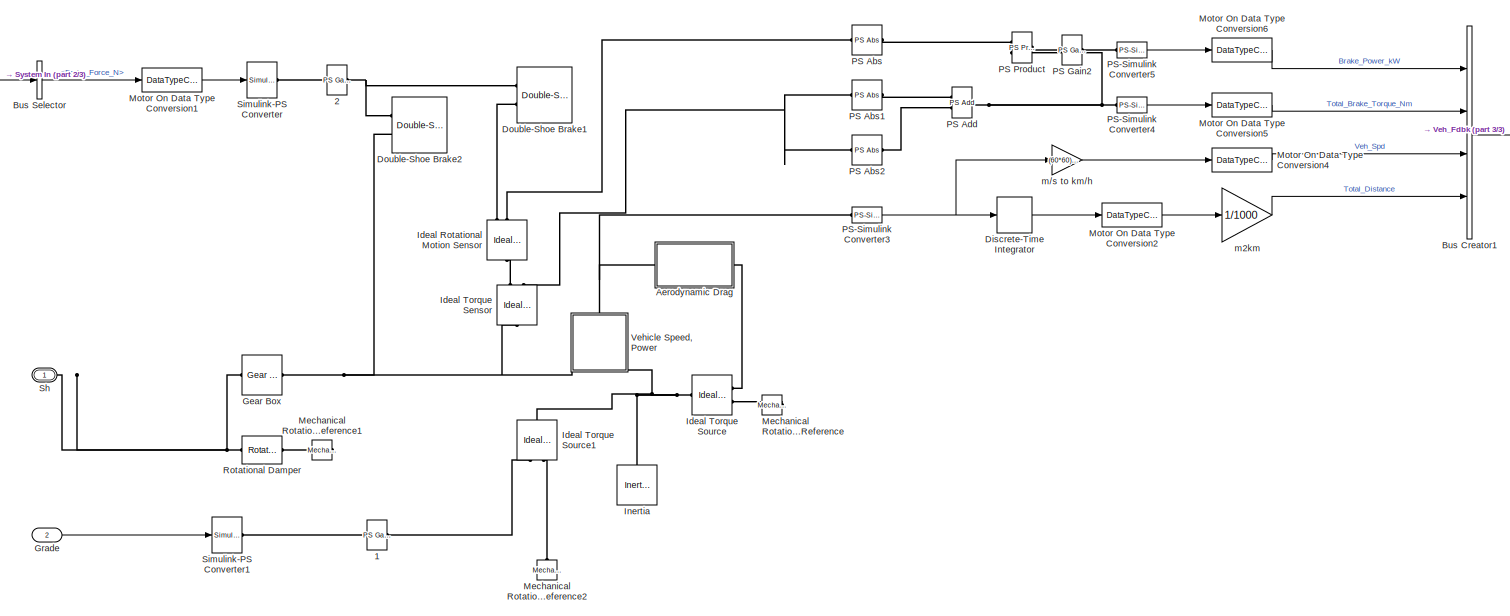
[diagram: Vehicle/Simple - part 1/3, most of the canvas]
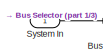
[diagram: Vehicle/Simple - part 2/3, top left region]
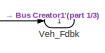
[diagram: Vehicle/Simple - part 3/3, top right region]
BLOCK [SubSystem] Vehicle/Simple
  FunctionWithSeparateData = off
  MaskHideContents = off
  MinAlgLoopOccurrences = off
  Opaque = off
  Ports = [2, 1, 0, 0, 0, 1]
  PropExecContextOutsideSubsystem = off
  RTWSystemCode = Auto
  RequestExecContextInheritance = off
  VariantControl = SYSTEM_VEHICLE
BLOCK [Reference] Vehicle/Simple/1  REF=fl_lib/Physical Signals/Functions/PS Gain
  ClassName = gain
  ComponentPath = foundation.physical_signal.functions.gain
  ComponentVariantNames = gain
  ComponentVariants = foundation.physical_signal.functions.gain
  LocalVarLogging = []
  Ports = [0, 0, 0, 0, 0, 1, 1]
  SchemaVersion = 1
  SourceBlock = fl_lib/Physical Signals/Functions/PS Gain
  SourceFile = foundation.physical_signal.functions.gain
  SourceType = PS Gain
  gain = 0
  gain_unit = 1
BLOCK [Reference] Vehicle/Simple/2  REF=fl_lib/Physical Signals/Functions/PS Gain
  ClassName = gain
  ComponentPath = foundation.physical_signal.functions.gain
  ComponentVariantNames = gain
  ComponentVariants = foundation.physical_signal.functions.gain
  LocalVarLogging = []
  Ports = [0, 0, 0, 0, 0, 1, 1]
  SchemaVersion = 1
  SourceBlock = fl_lib/Physical Signals/Functions/PS Gain
  SourceFile = foundation.physical_signal.functions.gain
  SourceType = PS Gain
  gain = 1
  gain_unit = 1
BLOCK [SubSystem] Vehicle/Simple/Aerodynamic Drag
  FunctionWithSeparateData = off
  MaskHideContents = off
  MinAlgLoopOccurrences = off
  Opaque = off
  Ports = [0, 0, 0, 0, 0, 1, 1]
  PropExecContextOutsideSubsystem = off
  RTWSystemCode = Auto
  RequestExecContextInheritance = off
BLOCK [Reference] Vehicle/Simple/Aerodynamic Drag/Cd1  REF=fl_lib/Physical Signals/Functions/PS Gain
  ClassName = gain
  ComponentPath = foundation.physical_signal.functions.gain
  ComponentVariantNames = gain
  ComponentVariants = foundation.physical_signal.functions.gain
  LocalVarLogging = []
  Ports = [0, 0, 0, 0, 0, 1, 1]
  SchemaVersion = 1
  SourceBlock = fl_lib/Physical Signals/Functions/PS Gain
  SourceFile = foundation.physical_signal.functions.gain
  SourceType = PS Gain
  gain = Cd
  gain_unit = 1
BLOCK [PMIOPort] Vehicle/Simple/Aerodynamic Drag/Conn1
  Port = 1
  Side = Left
BLOCK [PMIOPort] Vehicle/Simple/Aerodynamic Drag/Conn2
  Port = 2
  Side = Right
BLOCK [Reference] Vehicle/Simple/Aerodynamic Drag/PS Math Function  REF=fl_lib/Physical Signals/Functions/PS Math Function
  ClassName = ps_math_fcn
  ComponentPath = foundation.physical_signal.functions.math_function
  ComponentVariantNames = math_function
  ComponentVariants = foundation.physical_signal.functions.math_function
  LocalVarLogging = []
  Ports = [0, 0, 0, 0, 0, 1, 1]
  SchemaVersion = 1
  SourceBlock = fl_lib/Physical Signals/Functions/PS Math Function
  SourceFile = foundation.physical_signal.functions.math_function
  SourceType = PS Math Function
  fcn_choice = 7
  fcn_choice_unit = 1
BLOCK [Reference] Vehicle/Simple/Aerodynamic Drag/PS Product  REF=fl_lib/Physical Signals/Functions/PS Product
  ClassName = product
  ComponentPath = foundation.physical_signal.functions.product
  ComponentVariantNames = product
  ComponentVariants = foundation.physical_signal.functions.product
  LocalVarLogging = []
  Ports = [0, 0, 0, 0, 0, 2, 1]
  SchemaVersion = 1
  SourceBlock = fl_lib/Physical Signals/Functions/PS Product
  SourceFile = foundation.physical_signal.functions.product
  SourceType = PS Product
BLOCK [Reference] Vehicle/Simple/Aerodynamic Drag/PS Sign  REF=fl_lib/Physical Signals/Nonlinear Operators/PS Sign
  ClassName = sign
  ComponentPath = foundation.physical_signal.nonlinear.sign
  ComponentVariantNames = sign
  ComponentVariants = foundation.physical_signal.nonlinear.sign
  LocalVarLogging = []
  Ports = [0, 0, 0, 0, 0, 1, 1]
  SchemaVersion = 1
  SourceBlock = fl_lib/Physical Signals/Nonlinear Operators/PS Sign
  SourceFile = foundation.physical_signal.nonlinear.sign
  SourceType = PS Sign
BLOCK [Reference] Vehicle/Simple/Aerodynamic Drag/half1  REF=fl_lib/Physical Signals/Functions/PS Gain
  ClassName = gain
  ComponentPath = foundation.physical_signal.functions.gain
  ComponentVariantNames = gain
  ComponentVariants = foundation.physical_signal.functions.gain
  LocalVarLogging = []
  Ports = [0, 0, 0, 0, 0, 1, 1]
  SchemaVersion = 1
  SourceBlock = fl_lib/Physical Signals/Functions/PS Gain
  SourceFile = foundation.physical_signal.functions.gain
  SourceType = PS Gain
  gain = 1/2
  gain_unit = 1
BLOCK [Reference] Vehicle/Simple/Aerodynamic Drag/kph to mps1  REF=fl_lib/Physical Signals/Functions/PS Gain
  ClassName = gain
  ComponentPath = foundation.physical_signal.functions.gain
  ComponentVariantNames = gain
  ComponentVariants = foundation.physical_signal.functions.gain
  LocalVarLogging = []
  Ports = [0, 0, 0, 0, 0, 1, 1]
  SchemaVersion = 1
  SourceBlock = fl_lib/Physical Signals/Functions/PS Gain
  SourceFile = foundation.physical_signal.functions.gain
  SourceType = PS Gain
  gain = 1/3.6
  gain_unit = 1
BLOCK [Reference] Vehicle/Simple/Aerodynamic Drag/radius1  REF=fl_lib/Physical Signals/Functions/PS Gain
  ClassName = gain
  ComponentPath = foundation.physical_signal.functions.gain
  ComponentVariantNames = gain
  ComponentVariants = foundation.physical_signal.functions.gain
  LocalVarLogging = []
  Ports = [0, 0, 0, 0, 0, 1, 1]
  SchemaVersion = 1
  SourceBlock = fl_lib/Physical Signals/Functions/PS Gain
  SourceFile = foundation.physical_signal.functions.gain
  SourceType = PS Gain
  gain = -radius
  gain_unit = 1
BLOCK [BusCreator] Vehicle/Simple/Bus Creator1
  DisplayOption = bar
  Ports = [4, 1]
BLOCK [BusSelector] Vehicle/Simple/Bus Selector
  OutputSignals = Brake_Force_N
  Ports = [1, 1]
BLOCK [DiscreteIntegrator] Vehicle/Simple/Discrete-Time Integrator
  ICPrevOutput = DiscIntNeverNeededParam
  ICPrevScaledInput = DiscIntNeverNeededParam
  Ports = [1, 1]
  SampleTime = -1
BLOCK [Reference] Vehicle/Simple/Double-Shoe Brake1  REF=sdl_lib/Brakes & Detents/Rotational/Double-Shoe Brake
  ClassName = double_shoe_brake
  ComponentPath = sdl.brakes.rotational.double_shoe_brake
  ComponentVariantNames = double_shoe_brake
  ComponentVariants = sdl.brakes.rotational.double_shoe_brake
  LocalVarDescs = |Rotational velocity of the shaft|Braking torque on the shaft
  LocalVarLogging = [0 0]
  LocalVarNames = |w_shaft|t_shaft
  Ports = [0, 0, 0, 0, 0, 2]
  SchemaVersion = 1
  SourceBlock = sdl_lib/Brakes & Detents/Rotational/Double-Shoe Brake
  SourceFile = sdl.brakes.rotational.double_shoe_brake
  SourceType = Double-Shoe Brake
  mu = 0.3
  mu_unit = 1
  mu_visc = .01
  mu_visc_unit = N*m/(rad/s)
  r_act = 125
  r_act_unit = mm
  r_drum = 150
  r_drum_unit = mm
  r_pin = 125
  r_pin_unit = mm
  t_shaft_Log = off
  theta_0 = 5
  theta_0_unit = deg
  theta_pin = 15
  theta_pin_unit = deg
  theta_shoe = 120
  theta_shoe_unit = deg
  w_shaft_Log = off
  w_thr = 0.1
  w_thr_unit = rad/s
BLOCK [Reference] Vehicle/Simple/Double-Shoe Brake2  REF=sdl_lib/Brakes & Detents/Rotational/Double-Shoe Brake
  ClassName = double_shoe_brake
  ComponentPath = sdl.brakes.rotational.double_shoe_brake
  ComponentVariantNames = double_shoe_brake
  ComponentVariants = sdl.brakes.rotational.double_shoe_brake
  LocalVarDescs = |Rotational velocity of the shaft|Braking torque on the shaft
  LocalVarLogging = [0 0]
  LocalVarNames = |w_shaft|t_shaft
  Ports = [0, 0, 0, 0, 0, 2]
  SchemaVersion = 1
  SourceBlock = sdl_lib/Brakes & Detents/Rotational/Double-Shoe Brake
  SourceFile = sdl.brakes.rotational.double_shoe_brake
  SourceType = Double-Shoe Brake
  mu = 0.3
  mu_unit = 1
  mu_visc = .01
  mu_visc_unit = N*m/(rad/s)
  r_act = 125
  r_act_unit = mm
  r_drum = 150
  r_drum_unit = mm
  r_pin = 125
  r_pin_unit = mm
  t_shaft_Log = off
  theta_0 = 5
  theta_0_unit = deg
  theta_pin = 15
  theta_pin_unit = deg
  theta_shoe = 120
  theta_shoe_unit = deg
  w_shaft_Log = off
  w_thr = 0.1
  w_thr_unit = rad/s
BLOCK [Reference] Vehicle/Simple/Gear Box  REF=fl_lib/Mechanical/Mechanisms/Gear Box
  ClassName = gear_box
  ComponentPath = foundation.mechanical.mechanisms.gear_box
  ComponentVariantNames = gear_box
  ComponentVariants = foundation.mechanical.mechanisms.gear_box
  LocalVarDescs = |t_in|t_out
  LocalVarLogging = [0 0]
  LocalVarNames = |t_in|t_out
  Ports = [0, 0, 0, 0, 0, 1, 1]
  SchemaVersion = 1
  SourceBlock = fl_lib/Mechanical/Mechanisms/Gear Box
  SourceFile = foundation.mechanical.mechanisms.gear_box
  SourceType = Gear Box
  ratio = gear_ratio
  ratio_unit = 1
  t_in_Log = off
  t_out_Log = off
BLOCK [Inport] Vehicle/Simple/Grade
  IconDisplay = Port number
  Port = 2
BLOCK [Reference] Vehicle/Simple/Ideal Rotational Motion Sensor  REF=fl_lib/Mechanical/Mechanical Sensors/Ideal Rotational
Motion Sensor
  ClassName = angular_velocity
  ComponentPath = foundation.mechanical.sensors.angular_velocity
  ComponentVariantNames = angular_velocity
  ComponentVariants = foundation.mechanical.sensors.angular_velocity
  LocalVarDescs = |w|t|phi
  LocalVarLogging = [0 0 0]
  LocalVarNames = |w|t|phi
  Ports = [0, 0, 0, 0, 0, 1, 3]
  SchemaVersion = 1
  SourceBlock = fl_lib/Mechanical/Mechanical Sensors/Ideal Rotational\nMotion Sensor
  SourceFile = foundation.mechanical.sensors.angular_velocity
  SourceType = Ideal Rotational\nMotion Sensor
  offset = 0
  offset_unit = rad
  phi_Log = off
  t_Log = off
  w_Log = off
BLOCK [Reference] Vehicle/Simple/Ideal Torque Sensor  REF=fl_lib/Mechanical/Mechanical Sensors/Ideal Torque Sensor
  ClassName = torque
  ComponentPath = foundation.mechanical.sensors.torque
  ComponentVariantNames = torque
  ComponentVariants = foundation.mechanical.sensors.torque
  LocalVarDescs = |w|t
  LocalVarLogging = [0 0]
  LocalVarNames = |w|t
  Ports = [0, 0, 0, 0, 0, 1, 2]
  SchemaVersion = 1
  SourceBlock = fl_lib/Mechanical/Mechanical Sensors/Ideal Torque Sensor
  SourceFile = foundation.mechanical.sensors.torque
  SourceType = Ideal Torque Sensor
  t_Log = off
  w_Log = off
BLOCK [Reference] Vehicle/Simple/Ideal Torque Source  REF=fl_lib/Mechanical/Mechanical Sources/Ideal Torque Source
  ClassName = torque
  ComponentPath = foundation.mechanical.sources.torque
  ComponentVariantNames = torque
  ComponentVariants = foundation.mechanical.sources.torque
  LocalVarDescs = |w|t
  LocalVarLogging = [0 0]
  LocalVarNames = |w|t
  Ports = [0, 0, 0, 0, 0, 1, 2]
  SchemaVersion = 1
  SourceBlock = fl_lib/Mechanical/Mechanical Sources/Ideal Torque Source
  SourceFile = foundation.mechanical.sources.torque
  SourceType = Ideal Torque Source
  t_Log = off
  w_Log = off
BLOCK [Reference] Vehicle/Simple/Ideal Torque Source1  REF=fl_lib/Mechanical/Mechanical Sources/Ideal Torque Source
  ClassName = torque
  ComponentPath = foundation.mechanical.sources.torque
  ComponentVariantNames = torque
  ComponentVariants = foundation.mechanical.sources.torque
  LocalVarDescs = |w|t
  LocalVarLogging = [0 0]
  LocalVarNames = |w|t
  Ports = [0, 0, 0, 0, 0, 1, 2]
  SchemaVersion = 1
  SourceBlock = fl_lib/Mechanical/Mechanical Sources/Ideal Torque Source
  SourceFile = foundation.mechanical.sources.torque
  SourceType = Ideal Torque Source
  t_Log = off
  w_Log = off
BLOCK [Reference] Vehicle/Simple/Inertia  REF=fl_lib/Mechanical/Rotational Elements/Inertia
  ClassName = inertia
  ComponentPath = foundation.mechanical.rotational.inertia
  ComponentVariantNames = inertia
  ComponentVariants = foundation.mechanical.rotational.inertia
  LocalVarDescs = |t
  LocalVarLogging = 0
  LocalVarNames = |t
  Ports = [0, 0, 0, 0, 0, 1]
  SchemaVersion = 1
  SourceBlock = fl_lib/Mechanical/Rotational Elements/Inertia
  SourceFile = foundation.mechanical.rotational.inertia
  SourceType = Inertia
  inertia = 4*wheel_inertia+mass*radius*radius
  inertia_unit = kg*m^2
  initial_velocity = 0
  initial_velocity_unit = rad/s
  t_Log = off
BLOCK [Reference] Vehicle/Simple/Mechanical Rotational Reference  REF=fl_lib/Mechanical/Rotational Elements/Mechanical
Rotational Reference
  ClassName = reference
  ComponentPath = foundation.mechanical.rotational.reference
  ComponentVariantNames = reference
  ComponentVariants = foundation.mechanical.rotational.reference
  LocalVarDescs = |t
  LocalVarLogging = 0
  LocalVarNames = |t
  Ports = [0, 0, 0, 0, 0, 1]
  SchemaVersion = 1
  SourceBlock = fl_lib/Mechanical/Rotational Elements/Mechanical\nRotational Reference
  SourceFile = foundation.mechanical.rotational.reference
  SourceType = Mechanical\nRotational Reference
  t_Log = off
BLOCK [Reference] Vehicle/Simple/Mechanical Rotational Reference1  REF=fl_lib/Mechanical/Rotational Elements/Mechanical
Rotational Reference
  ClassName = reference
  ComponentPath = foundation.mechanical.rotational.reference
  ComponentVariantNames = reference
  ComponentVariants = foundation.mechanical.rotational.reference
  LocalVarDescs = |t
  LocalVarLogging = 0
  LocalVarNames = |t
  Ports = [0, 0, 0, 0, 0, 1]
  SchemaVersion = 1
  SourceBlock = fl_lib/Mechanical/Rotational Elements/Mechanical\nRotational Reference
  SourceFile = foundation.mechanical.rotational.reference
  SourceType = Mechanical\nRotational Reference
  t_Log = off
BLOCK [Reference] Vehicle/Simple/Mechanical Rotational Reference2  REF=fl_lib/Mechanical/Rotational Elements/Mechanical
Rotational Reference
  ClassName = reference
  ComponentPath = foundation.mechanical.rotational.reference
  ComponentVariantNames = reference
  ComponentVariants = foundation.mechanical.rotational.reference
  LocalVarDescs = |t
  LocalVarLogging = 0
  LocalVarNames = |t
  Ports = [0, 0, 0, 0, 0, 1]
  SchemaVersion = 1
  SourceBlock = fl_lib/Mechanical/Rotational Elements/Mechanical\nRotational Reference
  SourceFile = foundation.mechanical.rotational.reference
  SourceType = Mechanical\nRotational Reference
  t_Log = off
BLOCK [DataTypeConversion] Vehicle/Simple/Motor On Data Type Conversion1
  RndMeth = Floor
  SaturateOnIntegerOverflow = off
BLOCK [DataTypeConversion] Vehicle/Simple/Motor On Data Type Conversion2
  OutDataTypeStr = single
  RndMeth = Floor
  SaturateOnIntegerOverflow = off
BLOCK [DataTypeConversion] Vehicle/Simple/Motor On Data Type Conversion4
  OutDataTypeStr = single
  RndMeth = Floor
  SaturateOnIntegerOverflow = off
BLOCK [DataTypeConversion] Vehicle/Simple/Motor On Data Type Conversion5
  OutDataTypeStr = single
  RndMeth = Floor
  SaturateOnIntegerOverflow = off
BLOCK [DataTypeConversion] Vehicle/Simple/Motor On Data Type Conversion6
  OutDataTypeStr = single
  RndMeth = Floor
  SaturateOnIntegerOverflow = off
BLOCK [Reference] Vehicle/Simple/PS Abs  REF=fl_lib/Physical Signals/Nonlinear Operators/PS Abs
  ClassName = abs
  ComponentPath = foundation.physical_signal.nonlinear.abs
  ComponentVariantNames = abs
  ComponentVariants = foundation.physical_signal.nonlinear.abs
  LocalVarLogging = []
  Ports = [0, 0, 0, 0, 0, 1, 1]
  SchemaVersion = 1
  SourceBlock = fl_lib/Physical Signals/Nonlinear Operators/PS Abs
  SourceFile = foundation.physical_signal.nonlinear.abs
  SourceType = PS Abs
BLOCK [Reference] Vehicle/Simple/PS Abs1  REF=fl_lib/Physical Signals/Nonlinear Operators/PS Abs
  ClassName = abs
  ComponentPath = foundation.physical_signal.nonlinear.abs
  ComponentVariantNames = abs
  ComponentVariants = foundation.physical_signal.nonlinear.abs
  LocalVarLogging = []
  Ports = [0, 0, 0, 0, 0, 1, 1]
  SchemaVersion = 1
  SourceBlock = fl_lib/Physical Signals/Nonlinear Operators/PS Abs
  SourceFile = foundation.physical_signal.nonlinear.abs
  SourceType = PS Abs
BLOCK [Reference] Vehicle/Simple/PS Abs2  REF=fl_lib/Physical Signals/Nonlinear Operators/PS Abs
  ClassName = abs
  ComponentPath = foundation.physical_signal.nonlinear.abs
  ComponentVariantNames = abs
  ComponentVariants = foundation.physical_signal.nonlinear.abs
  LocalVarLogging = []
  Ports = [0, 0, 0, 0, 0, 1, 1]
  SchemaVersion = 1
  SourceBlock = fl_lib/Physical Signals/Nonlinear Operators/PS Abs
  SourceFile = foundation.physical_signal.nonlinear.abs
  SourceType = PS Abs
BLOCK [Reference] Vehicle/Simple/PS Add  REF=fl_lib/Physical Signals/Functions/PS Add
  ClassName = add
  ComponentPath = foundation.physical_signal.functions.add
  ComponentVariantNames = add
  ComponentVariants = foundation.physical_signal.functions.add
  LocalVarLogging = []
  Ports = [0, 0, 0, 0, 0, 2, 1]
  SchemaVersion = 1
  SourceBlock = fl_lib/Physical Signals/Functions/PS Add
  SourceFile = foundation.physical_signal.functions.add
  SourceType = PS Add
BLOCK [Reference] Vehicle/Simple/PS Gain2  REF=fl_lib/Physical Signals/Functions/PS Gain
  ClassName = gain
  ComponentPath = foundation.physical_signal.functions.gain
  ComponentVariantNames = gain
  ComponentVariants = foundation.physical_signal.functions.gain
  LocalVarLogging = []
  Ports = [0, 0, 0, 0, 0, 1, 1]
  SchemaVersion = 1
  SourceBlock = fl_lib/Physical Signals/Functions/PS Gain
  SourceFile = foundation.physical_signal.functions.gain
  SourceType = PS Gain
  gain = 1e-3
  gain_unit = 1
BLOCK [Reference] Vehicle/Simple/PS Product  REF=fl_lib/Physical Signals/Functions/PS Product
  ClassName = product
  ComponentPath = foundation.physical_signal.functions.product
  ComponentVariantNames = product
  ComponentVariants = foundation.physical_signal.functions.product
  LocalVarLogging = []
  Ports = [0, 0, 0, 0, 0, 2, 1]
  SchemaVersion = 1
  SourceBlock = fl_lib/Physical Signals/Functions/PS Product
  SourceFile = foundation.physical_signal.functions.product
  SourceType = PS Product
BLOCK [Reference] Vehicle/Simple/PS-Simulink Converter3  REF=nesl_utility/PS-Simulink
Converter
  AffineConversion = off
  Frequencies = []
  LeftPortType = input
  PhysicalDomain = network_engine_domain
  Ports = [0, 1, 0, 0, 0, 1]
  PseudoPeriodic = off
  RightPortType = output
  SourceBlock = nesl_utility/PS-Simulink\nConverter
  SourceType = PS-Simulink\nConverter
  SubClassName = ps_output
  Unit = m/s
BLOCK [Reference] Vehicle/Simple/PS-Simulink Converter4  REF=nesl_utility/PS-Simulink
Converter
  AffineConversion = off
  Frequencies = []
  LeftPortType = input
  PhysicalDomain = network_engine_domain
  Ports = [0, 1, 0, 0, 0, 1]
  PseudoPeriodic = off
  RightPortType = output
  SourceBlock = nesl_utility/PS-Simulink\nConverter
  SourceType = PS-Simulink\nConverter
  SubClassName = ps_output
  Unit = m/s
BLOCK [Reference] Vehicle/Simple/PS-Simulink Converter5  REF=nesl_utility/PS-Simulink
Converter
  AffineConversion = off
  Frequencies = []
  LeftPortType = input
  PhysicalDomain = network_engine_domain
  Ports = [0, 1, 0, 0, 0, 1]
  PseudoPeriodic = off
  RightPortType = output
  SourceBlock = nesl_utility/PS-Simulink\nConverter
  SourceType = PS-Simulink\nConverter
  SubClassName = ps_output
  Unit = m/s
BLOCK [Reference] Vehicle/Simple/Rotational Damper  REF=fl_lib/Mechanical/Rotational Elements/Rotational Damper
  ClassName = damper
  ComponentPath = foundation.mechanical.rotational.damper
  ComponentVariantNames = damper
  ComponentVariants = foundation.mechanical.rotational.damper
  D = EV_Param.Vehicle.Trans.Friction
  D_unit = N*m/(rad/s)
  LocalVarDescs = |t|w
  LocalVarLogging = [0 0]
  LocalVarNames = |t|w
  Ports = [0, 0, 0, 0, 0, 1, 1]
  SchemaVersion = 1
  SourceBlock = fl_lib/Mechanical/Rotational Elements/Rotational Damper
  SourceFile = foundation.mechanical.rotational.damper
  SourceType = Rotational Damper
  t_Log = off
  w_Log = off
BLOCK [PMIOPort] Vehicle/Simple/Sh
  Port = 1
  Side = Left
BLOCK [Reference] Vehicle/Simple/Simulink-PS Converter  REF=nesl_utility/Simulink-PS
Converter
  AffineConversion = off
  Frequencies = []
  InputFilterTimeConstant = 0.001
  InputFiltering = off
  LeftPortType = input
  NoiseDistribution = none
  NoiseParameters = []
  PhysicalDomain = network_engine_domain
  Ports = [1, 0, 0, 0, 0, 0, 1]
  PseudoPeriodic = off
  RightPortType = output
  SimscapeFilterOrder = 1
  SourceBlock = nesl_utility/Simulink-PS\nConverter
  SourceType = Simulink-PS\nConverter
  SubClassName = ps_input
  UdotUserProvided = 1
  Unit = N
BLOCK [Reference] Vehicle/Simple/Simulink-PS Converter1  REF=nesl_utility/Simulink-PS
Converter
  AffineConversion = off
  Frequencies = []
  InputFilterTimeConstant = 0.001
  InputFiltering = off
  LeftPortType = input
  NoiseDistribution = none
  NoiseParameters = []
  PhysicalDomain = network_engine_domain
  Ports = [1, 0, 0, 0, 0, 0, 1]
  PseudoPeriodic = off
  RightPortType = output
  SimscapeFilterOrder = 1
  SourceBlock = nesl_utility/Simulink-PS\nConverter
  SourceType = Simulink-PS\nConverter
  SubClassName = ps_input
  UdotUserProvided = 1
  Unit = N
BLOCK [Inport] Vehicle/Simple/System In
  IconDisplay = Port number
BLOCK [Outport] Vehicle/Simple/Veh_Fdbk
  IconDisplay = Port number
BLOCK [SubSystem] Vehicle/Simple/Vehicle Speed, Power
  FunctionWithSeparateData = off
  MaskHideContents = off
  MinAlgLoopOccurrences = off
  Opaque = off
  Ports = [0, 0, 0, 0, 0, 2, 1]
  PropExecContextOutsideSubsystem = off
  RTWSystemCode = Auto
  RequestExecContextInheritance = off
BLOCK [PMIOPort] Vehicle/Simple/Vehicle Speed, Power/B
  Port = 1
  Side = Left
BLOCK [PMIOPort] Vehicle/Simple/Vehicle Speed, Power/F
  Port = 2
  Side = Left
BLOCK [Goto] Vehicle/Simple/Vehicle Speed, Power/Goto1
  GotoTag = Pm_vehicle
  TagVisibility = global
BLOCK [Reference] Vehicle/Simple/Vehicle Speed, Power/Ideal Rotational Motion Sensor  REF=fl_lib/Mechanical/Mechanical Sensors/Ideal Rotational
Motion Sensor
  ClassName = angular_velocity
  ComponentPath = foundation.mechanical.sensors.angular_velocity
  ComponentVariantNames = angular_velocity
  ComponentVariants = foundation.mechanical.sensors.angular_velocity
  LocalVarDescs = |w|t|phi
  LocalVarLogging = [0 0 0]
  LocalVarNames = |w|t|phi
  Ports = [0, 0, 0, 0, 0, 1, 3]
  SchemaVersion = 1
  SourceBlock = fl_lib/Mechanical/Mechanical Sensors/Ideal Rotational\nMotion Sensor
  SourceFile = foundation.mechanical.sensors.angular_velocity
  SourceType = Ideal Rotational\nMotion Sensor
  offset = 0
  offset_unit = rad
  phi_Log = off
  t_Log = off
  w_Log = off
BLOCK [Reference] Vehicle/Simple/Vehicle Speed, Power/Ideal Torque Sensor  REF=fl_lib/Mechanical/Mechanical Sensors/Ideal Torque Sensor
  ClassName = torque
  ComponentPath = foundation.mechanical.sensors.torque
  ComponentVariantNames = torque
  ComponentVariants = foundation.mechanical.sensors.torque
  LocalVarDescs = |w|t
  LocalVarLogging = [0 0]
  LocalVarNames = |w|t
  Ports = [0, 0, 0, 0, 0, 1, 2]
  SchemaVersion = 1
  SourceBlock = fl_lib/Mechanical/Mechanical Sensors/Ideal Torque Sensor
  SourceFile = foundation.mechanical.sensors.torque
  SourceType = Ideal Torque Sensor
  t_Log = off
  w_Log = off
BLOCK [Reference] Vehicle/Simple/Vehicle Speed, Power/Mechanical Rotational Reference  REF=fl_lib/Mechanical/Rotational Elements/Mechanical
Rotational Reference
  ClassName = reference
  ComponentPath = foundation.mechanical.rotational.reference
  ComponentVariantNames = reference
  ComponentVariants = foundation.mechanical.rotational.reference
  LocalVarDescs = |t
  LocalVarLogging = 0
  LocalVarNames = |t
  Ports = [0, 0, 0, 0, 0, 1]
  SchemaVersion = 1
  SourceBlock = fl_lib/Mechanical/Rotational Elements/Mechanical\nRotational Reference
  SourceFile = foundation.mechanical.rotational.reference
  SourceType = Mechanical\nRotational Reference
  t_Log = off
BLOCK [Reference] Vehicle/Simple/Vehicle Speed, Power/PS-Simulink Converter  REF=nesl_utility/PS-Simulink
Converter
  AffineConversion = off
  Frequencies = []
  LeftPortType = input
  PhysicalDomain = network_engine_domain
  Ports = [0, 1, 0, 0, 0, 1]
  PseudoPeriodic = off
  RightPortType = output
  SourceBlock = nesl_utility/PS-Simulink\nConverter
  SourceType = PS-Simulink\nConverter
  SubClassName = ps_output
  Unit = N*m
BLOCK [Reference] Vehicle/Simple/Vehicle Speed, Power/PS-Simulink Converter1  REF=nesl_utility/PS-Simulink
Converter
  AffineConversion = off
  Frequencies = []
  LeftPortType = input
  PhysicalDomain = network_engine_domain
  Ports = [0, 1, 0, 0, 0, 1]
  PseudoPeriodic = off
  RightPortType = output
  SourceBlock = nesl_utility/PS-Simulink\nConverter
  SourceType = PS-Simulink\nConverter
  SubClassName = ps_output
  Unit = rad/s
BLOCK [Product] Vehicle/Simple/Vehicle Speed, Power/Product
  InputSameDT = off
  OutDataTypeStr = Inherit: Inherit via internal rule
  Ports = [2, 1]
  SaturateOnIntegerOverflow = off
BLOCK [PMIOPort] Vehicle/Simple/Vehicle Speed, Power/Speed
  Port = 3
  Side = Right
BLOCK [Gain] Vehicle/Simple/Vehicle Speed, Power/W2kW
  Gain = 0.001
  OutDataTypeStr = Inherit: Inherit via internal rule
  ParamDataTypeStr = Inherit: Inherit via internal rule
  SaturateOnIntegerOverflow = off
BLOCK [Reference] Vehicle/Simple/Vehicle Speed, Power/rad//s to km//h  REF=fl_lib/Physical Signals/Functions/PS Gain
  ClassName = gain
  ComponentPath = foundation.physical_signal.functions.gain
  ComponentVariantNames = gain
  ComponentVariants = foundation.physical_signal.functions.gain
  LocalVarLogging = []
  Ports = [0, 0, 0, 0, 0, 1, 1]
  SchemaVersion = 1
  SourceBlock = fl_lib/Physical Signals/Functions/PS Gain
  SourceFile = foundation.physical_signal.functions.gain
  SourceType = PS Gain
  gain = radius*3.6
  gain_unit = 1
BLOCK [Gain] Vehicle/Simple/m//s to km//h
  Gain = (60*60)/1000
  OutDataTypeStr = Inherit: Inherit via internal rule
  ParamDataTypeStr = Inherit: Inherit via internal rule
  SaturateOnIntegerOverflow = off
BLOCK [Gain] Vehicle/Simple/m2km
  Gain = 1/1000
  OutDataTypeStr = Inherit: Inherit via internal rule
  ParamDataTypeStr = Inherit: Inherit via internal rule
  SaturateOnIntegerOverflow = off
BLOCK [Inport] Vehicle/System In
  IconDisplay = Port number
BLOCK [Outport] Vehicle/Veh_Fdbk
  IconDisplay = Port number
BLOCK [Reference] powergui  REF=powerlib/powergui
  DisableRonSwitches = off
  DisableSnubberDevices = off
  DisableVfSwitches = off
  DisplayEquations = off
  DisplayStyle = 1
  EnableUseOfTLC = off
  ErrMax = 1e-4
  Frange = [0:2:500]
  FreqAxis = off
  FunctionMessages = off
  HookPort = off
  Interpol = off
  Iterations = 50
  MaxFrequency = 1000
  Pbase = 100e6
  Ports = []
  Priority = 1
  ResistiveCurrentMeasurement = off
  RestoreLinks = warning
  RmsSteady = 1
  SPID = on
  SampleTime = 50e-6
  ShowGrid = off
  SolverType = Tustin
  SourceBlock = powerlib/powergui
  SourceType = PSB option menu block
  StartTime = 0.0
  SwTol = 0
  Ts = 0
  UnitsV = kV
  UnitsW = MW
  UserDataPersistent = on
  Xlog = on
  Ylog = off
  ZoomFFT = off
  cycles = 1
  display = off
  echomessages = off
  frequency = 60
  frequencyindice = 0
  frequencyindicesteady = 1
  fundamental = 60
  methode = off
  save = off
  variable = ZData
  x0status = blocks
ANNOTATION (root): <copyright redacted>
ANNOTATION (root): Electric Vehicle Demo
ANNOTATION Battery/Predefined/GF1/SOC Offset: For control logic to work consistently for all versions, SOC% must be scaled
ANNOTATION DCDC_Converter: 1) Only subsystems can be added as variant choices at this level 2) Blocks cannot be connected at this level as connectivity is automatically determined at simulation, based on the active variant
ANNOTATION DCDC_Converter/System DC-DC Converter/Calcuate Input Current Pout+PLoss = Pin2: Power Output
ANNOTATION DCDC_Converter/System DC-DC Converter/Calcuate Input Current Pout+PLoss = Pin2: Total Power
ANNOTATION Drive & Motor: 1) Only subsystems can be added as variant choices at this level 2) Blocks cannot be connected at this level as connectivity is automatically determined at simulation, based on the active variant
ANNOTATION Drive & Motor/Detailed_Motor/Continuous To Discrete1: Continuous To Discrete
ANNOTATION Drive & Motor/Detailed_Motor/Discrete To Continuous1: Discrete To Continuous
ANNOTATION Drive & Motor/Detailed_Motor/Motor And Sensors: Bridge & Motor
ANNOTATION Drive & Motor/Detailed_Motor/Motor And Sensors/PMSM_50kW: Permanent Magnet Synchronous Machine
ANNOTATION Drive & Motor/Detailed_Motor/Motor And Sensors/PMSM_50kW/Group Signals: Group Signals
ANNOTATION Drive & Motor/Detailed_Motor/Motor And Sensors/PMSM_50kW/Group Signals: Rename signals provided to output bus.
ANNOTATION Drive & Motor/System_Motor/Continuous To Discrete1: Continuous To Discrete
ANNOTATION Drive & Motor/System_Motor/Control_Velocity (Explicit_Ts): This simplified controller regulates motor velocity using rotor velocity feedback compared to a commanded velocity. The output of the controller is a power limited torque reference to an idealized drive and motor model.
ANNOTATION Drive & Motor/System_Motor/Control_Velocity (Explicit_Ts): Velocity Controller
ANNOTATION Drive & Motor/System_Motor/Discrete To Continuous1: Discrete To Continuous
ANNOTATION Operator Model: Operator Model
ANNOTATION Operator Model: This subsystem provides a basic representation of a human operator attempting to follow a drive cycle. For now, only brake set, accelerator and brake commands are generated. The model can be tuned for a particular driving style.
ANNOTATION System Analysis: System Analysis
ANNOTATION System Analysis: Visualize common signals of interest.
ANNOTATION System Analysis/Convert Rotor Velocity Units: Convert Rotor Velocity Units
ANNOTATION System Analysis/Convert Rotor Velocity Units: Convert velocity units from radians per second to revolutions per minute.
ANNOTATION Vehicle: 1) Only subsystems can be added as variant choices at this level 2) Blocks cannot be connected at this level as connectivity is automatically determined at simulation, based on the active variant
LINE Aux Load/2kw Accessory Load:1 -> Aux Load/Rate Limiter:1
LINE Aux Load/Divide:1 -> Aux Load/Unit Delay:1
LINE Aux Load/Min V:1 -> Aux Load/MinMax:2
LINE Aux Load/MinMax:1 -> Aux Load/Divide:2
LINE Aux Load/Off:1 -> Aux Load/Switch:3
NET Aux Load/PS-Simulink Converter:1 -> Aux Load/MinMax:1, Aux Load/Switch:2
LINE Aux Load/Rate Limiter:1 -> Aux Load/Switch:1
LINE Aux Load/Switch:1 -> Aux Load/Divide:1
LINE Aux Load/Unit Delay:1 -> Aux Load/Simulink-PS Converter:1
NET Battery:1 -> Goto2:1, Motor & Power Managment:5
LINE Bus Sensors/Bus Creator:1 -> Bus Sensors/Output:1
LINE Bus Sensors/Gain:1 -> Bus Sensors/Bus Creator:3
NET Bus Sensors/LPF/Discrete-Time Integrator2:1 -> Bus Sensors/LPF/FixPt Data Type Duplicate1:1, Bus Sensors/LPF/Out:1
LINE Bus Sensors/LPF/Discrete-Time Integrator2:state -> Bus Sensors/LPF/Sum:2
NET Bus Sensors/LPF/In:1 -> Bus Sensors/LPF/FixPt Data Type Duplicate1:3, Bus Sensors/LPF/Sum:1
LINE Bus Sensors/LPF/Sum:1 -> Bus Sensors/LPF/w:1
NET Bus Sensors/LPF/w:1 -> Bus Sensors/LPF/Discrete-Time Integrator2:1, Bus Sensors/LPF/FixPt Data Type Duplicate1:2
NET Bus Sensors/LPF1/Discrete-Time Integrator2:1 -> Bus Sensors/LPF1/FixPt Data Type Duplicate1:1, Bus Sensors/LPF1/Out:1
LINE Bus Sensors/LPF1/Discrete-Time Integrator2:state -> Bus Sensors/LPF1/Sum:2
NET Bus Sensors/LPF1/In:1 -> Bus Sensors/LPF1/FixPt Data Type Duplicate1:3, Bus Sensors/LPF1/Sum:1
LINE Bus Sensors/LPF1/Sum:1 -> Bus Sensors/LPF1/w:1
NET Bus Sensors/LPF1/w:1 -> Bus Sensors/LPF1/Discrete-Time Integrator2:1, Bus Sensors/LPF1/FixPt Data Type Duplicate1:2
NET Bus Sensors/LPF1:1 -> Bus Sensors/Bus Creator:1, Bus Sensors/Product:1
NET Bus Sensors/LPF:1 -> Bus Sensors/Bus Creator:2, Bus Sensors/Product:2
LINE Bus Sensors/PS-Simulink Converter1:1 -> Bus Sensors/LPF1:1
LINE Bus Sensors/PS-Simulink Converter:1 -> Bus Sensors/LPF:1
LINE Bus Sensors/Product:1 -> Bus Sensors/Gain:1
LINE Bus Sensors:1 -> Goto1:1
LINE Cooling System/Bus Creator:1 -> Cooling System/Cooling_Fdbk:1
LINE Cooling System/Cooling Pump And Control/PS-Simulink Converter:1 -> Cooling System/Cooling Pump And Control/Unit Delay:1
LINE Cooling System/Cooling Pump And Control/Relay:1 -> Cooling System/Cooling Pump And Control/Fan_Cmd:1
LINE Cooling System/Cooling Pump And Control/Unit Delay:1 -> Cooling System/Cooling Pump And Control/Relay:1
NET Cooling System/Cooling Pump And Control:1 -> Cooling System/Bus Creator:1, Cooling System/Fan:1
LINE Cooling System/Fan/Fan_Cmd:1 -> Cooling System/Fan/Switch:2
LINE Cooling System/Fan/PS-Simulink Converter1:1 -> Cooling System/Fan/Scope:1
LINE Cooling System/Fan/Rate Limiter:1 -> Cooling System/Fan/Simulink-PS Converter:1
LINE Cooling System/Fan/Switch:1 -> Cooling System/Fan/Rate Limiter:1
LINE Cooling System/Fan/h_Fan_Off:1 -> Cooling System/Fan/Switch:3
LINE Cooling System/Fan/h_Fan_On:1 -> Cooling System/Fan/Switch:1
LINE Cooling System/PS-Simulink Converter1:1 -> Cooling System/Bus Creator:4
LINE Cooling System/PS-Simulink Converter2:1 -> Cooling System/Bus Creator:5
LINE Cooling System/PS-Simulink Converter3:1 -> Cooling System/Bus Creator:3
LINE Cooling System/PS-Simulink Converter4:1 -> Cooling System/Bus Creator:2
LINE Cooling System/PS-Simulink Converter5:1 -> Cooling System/Bus Creator:7
LINE Cooling System/PS-Simulink Converter:1 -> Cooling System/Bus Creator:6
LINE Cooling System:1 -> System Analysis:7
LINE DCDC_Converter/Detailed DC//DC Converter/PWM/Data Type Conversion1:1 -> DCDC_Converter/Detailed DC//DC Converter/PWM/Pulses:1
NET DCDC_Converter/Detailed DC//DC Converter/PWM/Data Type Conversion:1 -> DCDC_Converter/Detailed DC//DC Converter/PWM/Mux:1, DCDC_Converter/Detailed DC//DC Converter/PWM/NOT:1
LINE DCDC_Converter/Detailed DC//DC Converter/PWM/Mux:1 -> DCDC_Converter/Detailed DC//DC Converter/PWM/Data Type Conversion1:1
LINE DCDC_Converter/Detailed DC//DC Converter/PWM/NOT:1 -> DCDC_Converter/Detailed DC//DC Converter/PWM/Mux:2
LINE DCDC_Converter/Detailed DC//DC Converter/PWM/Rate Transition:1 -> DCDC_Converter/Detailed DC//DC Converter/PWM/Zero-Order Hold:1
NET DCDC_Converter/Detailed DC//DC Converter/PWM/Ref.:1 -> DCDC_Converter/Detailed DC//DC Converter/PWM/Rate Transition:1, DCDC_Converter/Detailed DC//DC Converter/PWM/Thermal Model:1
LINE DCDC_Converter/Detailed DC//DC Converter/PWM/Relational Operator:1 -> DCDC_Converter/Detailed DC//DC Converter/PWM/Data Type Conversion:1
LINE DCDC_Converter/Detailed DC//DC Converter/PWM/Sawtooth generator/1\ib3:1 -> DCDC_Converter/Detailed DC//DC Converter/PWM/Sawtooth generator/Discrete-Time Integrator:1
LINE DCDC_Converter/Detailed DC//DC Converter/PWM/Sawtooth generator/Constant1:1 -> DCDC_Converter/Detailed DC//DC Converter/PWM/Sawtooth generator/1\ib3:1
LINE DCDC_Converter/Detailed DC//DC Converter/PWM/Sawtooth generator/Constant2:1 -> DCDC_Converter/Detailed DC//DC Converter/PWM/Sawtooth generator/Relational Operator1:2
LINE DCDC_Converter/Detailed DC//DC Converter/PWM/Sawtooth generator/Constant3:1 -> DCDC_Converter/Detailed DC//DC Converter/PWM/Sawtooth generator/Sum1:2
NET DCDC_Converter/Detailed DC//DC Converter/PWM/Sawtooth generator/Discrete-Time Integrator:1 -> DCDC_Converter/Detailed DC//DC Converter/PWM/Sawtooth generator/Relational Operator1:1, DCDC_Converter/Detailed DC//DC Converter/PWM/Sawtooth generator/Sum1:1
LINE DCDC_Converter/Detailed DC//DC Converter/PWM/Sawtooth generator/Relational Operator1:1 -> DCDC_Converter/Detailed DC//DC Converter/PWM/Sawtooth generator/Unit Delay:1
LINE DCDC_Converter/Detailed DC//DC Converter/PWM/Sawtooth generator/Sum1:1 -> DCDC_Converter/Detailed DC//DC Converter/PWM/Sawtooth generator/Out:1
LINE DCDC_Converter/Detailed DC//DC Converter/PWM/Sawtooth generator/Unit Delay:1 -> DCDC_Converter/Detailed DC//DC Converter/PWM/Sawtooth generator/Discrete-Time Integrator:2
LINE DCDC_Converter/Detailed DC//DC Converter/PWM/Sawtooth generator:1 -> DCDC_Converter/Detailed DC//DC Converter/PWM/Relational Operator:2
LINE DCDC_Converter/Detailed DC//DC Converter/PWM/Thermal Model/1//Mc:1 -> DCDC_Converter/Detailed DC//DC Converter/PWM/Thermal Model/Integrator:1
LINE DCDC_Converter/Detailed DC//DC Converter/PWM/Thermal Model/Air_Temp:1 -> DCDC_Converter/Detailed DC//DC Converter/PWM/Thermal Model/Sum2:2
LINE DCDC_Converter/Detailed DC//DC Converter/PWM/Thermal Model/Heat Losses:1 -> DCDC_Converter/Detailed DC//DC Converter/PWM/Thermal Model/Sum1:2
LINE DCDC_Converter/Detailed DC//DC Converter/PWM/Thermal Model/IBus:1 -> DCDC_Converter/Detailed DC//DC Converter/PWM/Thermal Model/Subsystem:1
NET DCDC_Converter/Detailed DC//DC Converter/PWM/Thermal Model/Integrator:1 -> DCDC_Converter/Detailed DC//DC Converter/PWM/Thermal Model/Goto:1, DCDC_Converter/Detailed DC//DC Converter/PWM/Thermal Model/Sum2:1
NET DCDC_Converter/Detailed DC//DC Converter/PWM/Thermal Model/Subsystem/IBus:1 -> DCDC_Converter/Detailed DC//DC Converter/PWM/Thermal Model/Subsystem/Product:1, DCDC_Converter/Detailed DC//DC Converter/PWM/Thermal Model/Subsystem/Product:2
LINE DCDC_Converter/Detailed DC//DC Converter/PWM/Thermal Model/Subsystem/PToHeat:1 -> DCDC_Converter/Detailed DC//DC Converter/PWM/Thermal Model/Subsystem/Heat Flow:1
LINE DCDC_Converter/Detailed DC//DC Converter/PWM/Thermal Model/Subsystem/Product:1 -> DCDC_Converter/Detailed DC//DC Converter/PWM/Thermal Model/Subsystem/RLoss:1
LINE DCDC_Converter/Detailed DC//DC Converter/PWM/Thermal Model/Subsystem/RLoss:1 -> DCDC_Converter/Detailed DC//DC Converter/PWM/Thermal Model/Subsystem/PToHeat:1
LINE DCDC_Converter/Detailed DC//DC Converter/PWM/Thermal Model/Subsystem:1 -> DCDC_Converter/Detailed DC//DC Converter/PWM/Thermal Model/Sum1:1
LINE DCDC_Converter/Detailed DC//DC Converter/PWM/Thermal Model/Sum1:1 -> DCDC_Converter/Detailed DC//DC Converter/PWM/Thermal Model/1//Mc:1
LINE DCDC_Converter/Detailed DC//DC Converter/PWM/Thermal Model/Sum2:1 -> DCDC_Converter/Detailed DC//DC Converter/PWM/Thermal Model/Heat Losses:1
LINE DCDC_Converter/Detailed DC//DC Converter/PWM/Zero-Order Hold:1 -> DCDC_Converter/Detailed DC//DC Converter/PWM/Relational Operator:1
LINE DCDC_Converter/Detailed DC//DC Converter/PWM:1 -> DCDC_Converter/Detailed DC//DC Converter/Detailed Boost converter:1
LINE DCDC_Converter/Detailed DC//DC Converter/Subsystem/PS-Simulink Converter1:1 -> DCDC_Converter/Detailed DC//DC Converter/Subsystem/Goto1:1
NET DCDC_Converter/Detailed DC//DC Converter/Subsystem1/IBus:1 -> DCDC_Converter/Detailed DC//DC Converter/Subsystem1/Product:1, DCDC_Converter/Detailed DC//DC Converter/Subsystem1/Product:2
LINE DCDC_Converter/Detailed DC//DC Converter/Subsystem1/PToHeat:1 -> DCDC_Converter/Detailed DC//DC Converter/Subsystem1/Heat Flow:1
LINE DCDC_Converter/Detailed DC//DC Converter/Subsystem1/Product:1 -> DCDC_Converter/Detailed DC//DC Converter/Subsystem1/RLoss:1
LINE DCDC_Converter/Detailed DC//DC Converter/Subsystem1/RLoss:1 -> DCDC_Converter/Detailed DC//DC Converter/Subsystem1/PToHeat:1
LINE DCDC_Converter/Detailed DC//DC Converter/Subsystem1:1 -> DCDC_Converter/Detailed DC//DC Converter/Simulink-PS Converter:1
LINE DCDC_Converter/Detailed DC//DC Converter/Temperature Sensor/PS-Simulink Converter:1 -> DCDC_Converter/Detailed DC//DC Converter/Temperature Sensor/Rate Transition5:1
LINE DCDC_Converter/Detailed DC//DC Converter/Temperature Sensor/Rate Transition5:1 -> DCDC_Converter/Detailed DC//DC Converter/Temperature Sensor/Goto:1
LINE DCDC_Converter/Detailed DC//DC Converter/Ubus Ref:1 -> DCDC_Converter/Detailed DC//DC Converter/Voltage Controller:1
LINE DCDC_Converter/Detailed DC//DC Converter/V1:1 -> DCDC_Converter/Detailed DC//DC Converter/Voltage Controller:2
LINE DCDC_Converter/Detailed DC//DC Converter/Voltage Controller/Clock1:1 -> DCDC_Converter/Detailed DC//DC Converter/Voltage Controller/Compare To Constant1:1
LINE DCDC_Converter/Detailed DC//DC Converter/Voltage Controller/Compare To Constant1:1 -> DCDC_Converter/Detailed DC//DC Converter/Voltage Controller/Product1:2
LINE DCDC_Converter/Detailed DC//DC Converter/Voltage Controller/Ctrl sat.:1 -> DCDC_Converter/Detailed DC//DC Converter/Voltage Controller/Ec:1
LINE DCDC_Converter/Detailed DC//DC Converter/Voltage Controller/Discrete-Time Integrator:1 -> DCDC_Converter/Detailed DC//DC Converter/Voltage Controller/Sum2:2
LINE DCDC_Converter/Detailed DC//DC Converter/Voltage Controller/Integral gain:1 -> DCDC_Converter/Detailed DC//DC Converter/Voltage Controller/Discrete-Time Integrator:1
NET DCDC_Converter/Detailed DC//DC Converter/Voltage Controller/Product1:1 -> DCDC_Converter/Detailed DC//DC Converter/Voltage Controller/Integral gain:1, DCDC_Converter/Detailed DC//DC Converter/Voltage Controller/Proportional gain:1
LINE DCDC_Converter/Detailed DC//DC Converter/Voltage Controller/Proportional gain:1 -> DCDC_Converter/Detailed DC//DC Converter/Voltage Controller/Sum2:1
LINE DCDC_Converter/Detailed DC//DC Converter/Voltage Controller/Sum1:1 -> DCDC_Converter/Detailed DC//DC Converter/Voltage Controller/Product1:1
LINE DCDC_Converter/Detailed DC//DC Converter/Voltage Controller/Sum2:1 -> DCDC_Converter/Detailed DC//DC Converter/Voltage Controller/Ctrl sat.:1
LINE DCDC_Converter/Detailed DC//DC Converter/Voltage Controller/Transfer Fcn:1 -> DCDC_Converter/Detailed DC//DC Converter/Voltage Controller/Sum1:1
LINE DCDC_Converter/Detailed DC//DC Converter/Voltage Controller/UBus:1 -> DCDC_Converter/Detailed DC//DC Converter/Voltage Controller/Zero-Order Hold1:1
LINE DCDC_Converter/Detailed DC//DC Converter/Voltage Controller/Uref:1 -> DCDC_Converter/Detailed DC//DC Converter/Voltage Controller/Sum1:2
LINE DCDC_Converter/Detailed DC//DC Converter/Voltage Controller/Zero-Order Hold1:1 -> DCDC_Converter/Detailed DC//DC Converter/Voltage Controller/Transfer Fcn:1
NET DCDC_Converter/Detailed DC//DC Converter/Voltage Controller:1 -> DCDC_Converter/Detailed DC//DC Converter/PWM:1, DCDC_Converter/Detailed DC//DC Converter/Subsystem1:1
LINE DCDC_Converter/System DC-DC Converter/Control Bus Voltage/Bus_Control/Add:1 -> DCDC_Converter/System DC-DC Converter/Control Bus Voltage/Bus_Control/Unit Delay:1
LINE DCDC_Converter/System DC-DC Converter/Control Bus Voltage/Bus_Control/Clamp/AND:1 -> DCDC_Converter/System DC-DC Converter/Control Bus Voltage/Bus_Control/Clamp/Clamp:1
LINE DCDC_Converter/System DC-DC Converter/Control Bus Voltage/Bus_Control/Clamp/Compare To Zero1:1 -> DCDC_Converter/System DC-DC Converter/Control Bus Voltage/Bus_Control/Clamp/Logical Operator:2
LINE DCDC_Converter/System DC-DC Converter/Control Bus Voltage/Bus_Control/Clamp/Compare To Zero:1 -> DCDC_Converter/System DC-DC Converter/Control Bus Voltage/Bus_Control/Clamp/Logical Operator:1
LINE DCDC_Converter/System DC-DC Converter/Control Bus Voltage/Bus_Control/Clamp/Logical Operator:1 -> DCDC_Converter/System DC-DC Converter/Control Bus Voltage/Bus_Control/Clamp/AND:1
LINE DCDC_Converter/System DC-DC Converter/Control Bus Voltage/Bus_Control/Clamp/preIntegrator:1 -> DCDC_Converter/System DC-DC Converter/Control Bus Voltage/Bus_Control/Clamp/Compare To Zero:1
LINE DCDC_Converter/System DC-DC Converter/Control Bus Voltage/Bus_Control/Clamp/preSat:1 -> DCDC_Converter/System DC-DC Converter/Control Bus Voltage/Bus_Control/Clamp/Compare To Zero1:1
LINE DCDC_Converter/System DC-DC Converter/Control Bus Voltage/Bus_Control/Clamp/saturated:1 -> DCDC_Converter/System DC-DC Converter/Control Bus Voltage/Bus_Control/Clamp/AND:2
LINE DCDC_Converter/System DC-DC Converter/Control Bus Voltage/Bus_Control/Clamp:1 -> DCDC_Converter/System DC-DC Converter/Control Bus Voltage/Bus_Control/Switch:2
LINE DCDC_Converter/System DC-DC Converter/Control Bus Voltage/Bus_Control/Constant1:1 -> DCDC_Converter/System DC-DC Converter/Control Bus Voltage/Bus_Control/Product:1
LINE DCDC_Converter/System DC-DC Converter/Control Bus Voltage/Bus_Control/Constant2:1 -> DCDC_Converter/System DC-DC Converter/Control Bus Voltage/Bus_Control/Product:2
LINE DCDC_Converter/System DC-DC Converter/Control Bus Voltage/Bus_Control/Constant:1 -> DCDC_Converter/System DC-DC Converter/Control Bus Voltage/Bus_Control/Switch:1
NET DCDC_Converter/System DC-DC Converter/Control Bus Voltage/Bus_Control/Convert_Data_Type/Data Type Conversion:1 -> DCDC_Converter/System DC-DC Converter/Control Bus Voltage/Bus_Control/Convert_Data_Type/Data Type Propagation:3, DCDC_Converter/System DC-DC Converter/Control Bus Voltage/Bus_Control/Convert_Data_Type/Out1:1
NET DCDC_Converter/System DC-DC Converter/Control Bus Voltage/Bus_Control/Convert_Data_Type/In1:1 -> DCDC_Converter/System DC-DC Converter/Control Bus Voltage/Bus_Control/Convert_Data_Type/Data Type Conversion:1, DCDC_Converter/System DC-DC Converter/Control Bus Voltage/Bus_Control/Convert_Data_Type/Data Type Propagation:1, DCDC_Converter/System DC-DC Converter/Control Bus Voltage/Bus_Control/Convert_Data_Type/Data Type Propagation:2
NET DCDC_Converter/System DC-DC Converter/Control Bus Voltage/Bus_Control/Convert_Data_Type:1 -> DCDC_Converter/System DC-DC Converter/Control Bus Voltage/Bus_Control/Scope2:1, DCDC_Converter/System DC-DC Converter/Control Bus Voltage/Bus_Control/Sum:1
NET DCDC_Converter/System DC-DC Converter/Control Bus Voltage/Bus_Control/Err:1 -> DCDC_Converter/System DC-DC Converter/Control Bus Voltage/Bus_Control/P_Gain:1, DCDC_Converter/System DC-DC Converter/Control Bus Voltage/Bus_Control/Product1:1
NET DCDC_Converter/System DC-DC Converter/Control Bus Voltage/Bus_Control/Maintain_Range/Data Type Conversion:1 -> DCDC_Converter/System DC-DC Converter/Control Bus Voltage/Bus_Control/Maintain_Range/Data Type Propagation:3, DCDC_Converter/System DC-DC Converter/Control Bus Voltage/Bus_Control/Maintain_Range/Out1:1
NET DCDC_Converter/System DC-DC Converter/Control Bus Voltage/Bus_Control/Maintain_Range/In1:1 -> DCDC_Converter/System DC-DC Converter/Control Bus Voltage/Bus_Control/Maintain_Range/Data Type Conversion:1, DCDC_Converter/System DC-DC Converter/Control Bus Voltage/Bus_Control/Maintain_Range/Data Type Propagation:1, DCDC_Converter/System DC-DC Converter/Control Bus Voltage/Bus_Control/Maintain_Range/Data Type Propagation:2
LINE DCDC_Converter/System DC-DC Converter/Control Bus Voltage/Bus_Control/Maintain_Range:1 -> DCDC_Converter/System DC-DC Converter/Control Bus Voltage/Bus_Control/Product1:2
LINE DCDC_Converter/System DC-DC Converter/Control Bus Voltage/Bus_Control/PI_Sat/Dynamic Saturation/Logical Operator:1 -> DCDC_Converter/System DC-DC Converter/Control Bus Voltage/Bus_Control/PI_Sat/Dynamic Saturation/sat_mode:1
NET DCDC_Converter/System DC-DC Converter/Control Bus Voltage/Bus_Control/PI_Sat/Dynamic Saturation/LowerRelop1:1 -> DCDC_Converter/System DC-DC Converter/Control Bus Voltage/Bus_Control/PI_Sat/Dynamic Saturation/Logical Operator:1, DCDC_Converter/System DC-DC Converter/Control Bus Voltage/Bus_Control/PI_Sat/Dynamic Saturation/Switch2:2
LINE DCDC_Converter/System DC-DC Converter/Control Bus Voltage/Bus_Control/PI_Sat/Dynamic Saturation/Switch2:1 -> DCDC_Converter/System DC-DC Converter/Control Bus Voltage/Bus_Control/PI_Sat/Dynamic Saturation/y:1
LINE DCDC_Converter/System DC-DC Converter/Control Bus Voltage/Bus_Control/PI_Sat/Dynamic Saturation/Switch:1 -> DCDC_Converter/System DC-DC Converter/Control Bus Voltage/Bus_Control/PI_Sat/Dynamic Saturation/Switch2:3
NET DCDC_Converter/System DC-DC Converter/Control Bus Voltage/Bus_Control/PI_Sat/Dynamic Saturation/UpperRelop:1 -> DCDC_Converter/System DC-DC Converter/Control Bus Voltage/Bus_Control/PI_Sat/Dynamic Saturation/Logical Operator:2, DCDC_Converter/System DC-DC Converter/Control Bus Voltage/Bus_Control/PI_Sat/Dynamic Saturation/Switch:2
NET DCDC_Converter/System DC-DC Converter/Control Bus Voltage/Bus_Control/PI_Sat/Dynamic Saturation/lo:1 -> DCDC_Converter/System DC-DC Converter/Control Bus Voltage/Bus_Control/PI_Sat/Dynamic Saturation/Switch:1, DCDC_Converter/System DC-DC Converter/Control Bus Voltage/Bus_Control/PI_Sat/Dynamic Saturation/UpperRelop:2
NET DCDC_Converter/System DC-DC Converter/Control Bus Voltage/Bus_Control/PI_Sat/Dynamic Saturation/u:1 -> DCDC_Converter/System DC-DC Converter/Control Bus Voltage/Bus_Control/PI_Sat/Dynamic Saturation/LowerRelop1:1, DCDC_Converter/System DC-DC Converter/Control Bus Voltage/Bus_Control/PI_Sat/Dynamic Saturation/Switch:3, DCDC_Converter/System DC-DC Converter/Control Bus Voltage/Bus_Control/PI_Sat/Dynamic Saturation/UpperRelop:1
NET DCDC_Converter/System DC-DC Converter/Control Bus Voltage/Bus_Control/PI_Sat/Dynamic Saturation/up:1 -> DCDC_Converter/System DC-DC Converter/Control Bus Voltage/Bus_Control/PI_Sat/Dynamic Saturation/LowerRelop1:2, DCDC_Converter/System DC-DC Converter/Control Bus Voltage/Bus_Control/PI_Sat/Dynamic Saturation/Switch2:1
LINE DCDC_Converter/System DC-DC Converter/Control Bus Voltage/Bus_Control/PI_Sat/Dynamic Saturation:1 -> DCDC_Converter/System DC-DC Converter/Control Bus Voltage/Bus_Control/PI_Sat/Out1:1
LINE DCDC_Converter/System DC-DC Converter/Control Bus Voltage/Bus_Control/PI_Sat/Dynamic Saturation:2 -> DCDC_Converter/System DC-DC Converter/Control Bus Voltage/Bus_Control/PI_Sat/saturated:1
LINE DCDC_Converter/System DC-DC Converter/Control Bus Voltage/Bus_Control/PI_Sat/In1:1 -> DCDC_Converter/System DC-DC Converter/Control Bus Voltage/Bus_Control/PI_Sat/Dynamic Saturation:2
LINE DCDC_Converter/System DC-DC Converter/Control Bus Voltage/Bus_Control/PI_Sat/PI_Sat1:1 -> DCDC_Converter/System DC-DC Converter/Control Bus Voltage/Bus_Control/PI_Sat/Dynamic Saturation:3
LINE DCDC_Converter/System DC-DC Converter/Control Bus Voltage/Bus_Control/PI_Sat/PI_Sat:1 -> DCDC_Converter/System DC-DC Converter/Control Bus Voltage/Bus_Control/PI_Sat/Dynamic Saturation:1
LINE DCDC_Converter/System DC-DC Converter/Control Bus Voltage/Bus_Control/PI_Sat:1 -> DCDC_Converter/System DC-DC Converter/Control Bus Voltage/Bus_Control/V_Out:1
LINE DCDC_Converter/System DC-DC Converter/Control Bus Voltage/Bus_Control/PI_Sat:2 -> DCDC_Converter/System DC-DC Converter/Control Bus Voltage/Bus_Control/Clamp:2
LINE DCDC_Converter/System DC-DC Converter/Control Bus Voltage/Bus_Control/P_Gain:1 -> DCDC_Converter/System DC-DC Converter/Control Bus Voltage/Bus_Control/Convert_Data_Type:1
NET DCDC_Converter/System DC-DC Converter/Control Bus Voltage/Bus_Control/Product1:1 -> DCDC_Converter/System DC-DC Converter/Control Bus Voltage/Bus_Control/Clamp:3, DCDC_Converter/System DC-DC Converter/Control Bus Voltage/Bus_Control/Scope3:1, DCDC_Converter/System DC-DC Converter/Control Bus Voltage/Bus_Control/Switch:3
LINE DCDC_Converter/System DC-DC Converter/Control Bus Voltage/Bus_Control/Product:1 -> DCDC_Converter/System DC-DC Converter/Control Bus Voltage/Bus_Control/Maintain_Range:1
NET DCDC_Converter/System DC-DC Converter/Control Bus Voltage/Bus_Control/Sum:1 -> DCDC_Converter/System DC-DC Converter/Control Bus Voltage/Bus_Control/Clamp:1, DCDC_Converter/System DC-DC Converter/Control Bus Voltage/Bus_Control/PI_Sat:1
LINE DCDC_Converter/System DC-DC Converter/Control Bus Voltage/Bus_Control/Switch:1 -> DCDC_Converter/System DC-DC Converter/Control Bus Voltage/Bus_Control/Add:1
NET DCDC_Converter/System DC-DC Converter/Control Bus Voltage/Bus_Control/Unit Delay:1 -> DCDC_Converter/System DC-DC Converter/Control Bus Voltage/Bus_Control/Add:2, DCDC_Converter/System DC-DC Converter/Control Bus Voltage/Bus_Control/Scope1:1, DCDC_Converter/System DC-DC Converter/Control Bus Voltage/Bus_Control/Sum:2
LINE DCDC_Converter/System DC-DC Converter/Control Bus Voltage/Bus_Control:1 -> DCDC_Converter/System DC-DC Converter/Control Bus Voltage/Rate Transition3:1
LINE DCDC_Converter/System DC-DC Converter/Control Bus Voltage/Constant:1 -> DCDC_Converter/System DC-DC Converter/Control Bus Voltage/Rate Transition:1
LINE DCDC_Converter/System DC-DC Converter/Control Bus Voltage/Data Type Conversion1:1 -> DCDC_Converter/System DC-DC Converter/Control Bus Voltage/V_satcmd:1
LINE DCDC_Converter/System DC-DC Converter/Control Bus Voltage/Data Type Conversion3:1 -> DCDC_Converter/System DC-DC Converter/Control Bus Voltage/Rate Transition1:1
LINE DCDC_Converter/System DC-DC Converter/Control Bus Voltage/Error Sum:1 -> DCDC_Converter/System DC-DC Converter/Control Bus Voltage/Bus_Control:1
LINE DCDC_Converter/System DC-DC Converter/Control Bus Voltage/Rate Transition1:1 -> DCDC_Converter/System DC-DC Converter/Control Bus Voltage/Unit Delay:1
LINE DCDC_Converter/System DC-DC Converter/Control Bus Voltage/Rate Transition3:1 -> DCDC_Converter/System DC-DC Converter/Control Bus Voltage/Data Type Conversion1:1
LINE DCDC_Converter/System DC-DC Converter/Control Bus Voltage/Rate Transition:1 -> DCDC_Converter/System DC-DC Converter/Control Bus Voltage/Error Sum:1
LINE DCDC_Converter/System DC-DC Converter/Control Bus Voltage/Unit Delay:1 -> DCDC_Converter/System DC-DC Converter/Control Bus Voltage/Error Sum:2
LINE DCDC_Converter/System DC-DC Converter/Control Bus Voltage/V_fdbk:1 -> DCDC_Converter/System DC-DC Converter/Control Bus Voltage/Data Type Conversion3:1
LINE DCDC_Converter/System DC-DC Converter/Control Bus Voltage:1 -> DCDC_Converter/System DC-DC Converter/Simulink-PS Converter:1
LINE DCDC_Converter/System DC-DC Converter/Current Sensor2/PS-Simulink Converter:1 -> DCDC_Converter/System DC-DC Converter/Current Sensor2/Goto:1
LINE DCDC_Converter/System DC-DC Converter/PS-Simulink Converter1:1 -> DCDC_Converter/System DC-DC Converter/Control Bus Voltage:1
LINE DCDC_Converter/System DC-DC Converter/Subsystem/PS-Simulink Converter1:1 -> DCDC_Converter/System DC-DC Converter/Subsystem/Goto1:1
LINE DCDC_Converter/System DC-DC Converter/Temperature Sensor/PS-Simulink Converter:1 -> DCDC_Converter/System DC-DC Converter/Temperature Sensor/Terminator:1
LINE DCDC_Converter/System DC-DC Converter/Voltage Sensor Bus2/PS-Simulink Converter:1 -> DCDC_Converter/System DC-DC Converter/Voltage Sensor Bus2/Goto:1
LINE DCDC_Converter/System DC-DC Converter/Voltage Sensor2/PS-Simulink Converter:1 -> DCDC_Converter/System DC-DC Converter/Voltage Sensor2/Goto:1
LINE Drive & Motor/Detailed_Motor/Continuous To Discrete1/Bus Selector3:1 -> Drive & Motor/Detailed_Motor/Continuous To Discrete1/Motor On Data Type Conversion1:1
LINE Drive & Motor/Detailed_Motor/Continuous To Discrete1/Bus Selector3:2 -> Drive & Motor/Detailed_Motor/Continuous To Discrete1/Mux:1
LINE Drive & Motor/Detailed_Motor/Continuous To Discrete1/Bus Selector3:3 -> Drive & Motor/Detailed_Motor/Continuous To Discrete1/Mux:2
LINE Drive & Motor/Detailed_Motor/Continuous To Discrete1/Bus Selector3:4 -> Drive & Motor/Detailed_Motor/Continuous To Discrete1/Motor On Data Type Conversion4:1
LINE Drive & Motor/Detailed_Motor/Continuous To Discrete1/Bus Selector:1 -> Drive & Motor/Detailed_Motor/Continuous To Discrete1/Motor On Data Type Conversion2:1
LINE Drive & Motor/Detailed_Motor/Continuous To Discrete1/Motor Measurements:1 -> Drive & Motor/Detailed_Motor/Continuous To Discrete1/Bus Selector3:1
LINE Drive & Motor/Detailed_Motor/Continuous To Discrete1/Motor On Data Type Conversion1:1 -> Drive & Motor/Detailed_Motor/Continuous To Discrete1/Motor On Rate Transition1:1
LINE Drive & Motor/Detailed_Motor/Continuous To Discrete1/Motor On Data Type Conversion2:1 -> Drive & Motor/Detailed_Motor/Continuous To Discrete1/Motor On Rate Transition3:1
LINE Drive & Motor/Detailed_Motor/Continuous To Discrete1/Motor On Data Type Conversion3:1 -> Drive & Motor/Detailed_Motor/Continuous To Discrete1/Motor On Rate Transition2:1
LINE Drive & Motor/Detailed_Motor/Continuous To Discrete1/Motor On Data Type Conversion4:1 -> Drive & Motor/Detailed_Motor/Continuous To Discrete1/Motor On Rate Transition4:1
LINE Drive & Motor/Detailed_Motor/Continuous To Discrete1/Motor On Rate Transition1:1 -> Drive & Motor/Detailed_Motor/Continuous To Discrete1/Rotor Velocity:1
LINE Drive & Motor/Detailed_Motor/Continuous To Discrete1/Motor On Rate Transition2:1 -> Drive & Motor/Detailed_Motor/Continuous To Discrete1/Phase Currents:1
LINE Drive & Motor/Detailed_Motor/Continuous To Discrete1/Motor On Rate Transition3:1 -> Drive & Motor/Detailed_Motor/Continuous To Discrete1/Command:1
LINE Drive & Motor/Detailed_Motor/Continuous To Discrete1/Motor On Rate Transition4:1 -> Drive & Motor/Detailed_Motor/Continuous To Discrete1/Electrical Position:1
LINE Drive & Motor/Detailed_Motor/Continuous To Discrete1/Mux:1 -> Drive & Motor/Detailed_Motor/Continuous To Discrete1/Motor On Data Type Conversion3:1
LINE Drive & Motor/Detailed_Motor/Continuous To Discrete1/System Inputs:1 -> Drive & Motor/Detailed_Motor/Continuous To Discrete1/Bus Selector:1
LINE Drive & Motor/Detailed_Motor/Continuous To Discrete1:1 -> Drive & Motor/Detailed_Motor/Velocity Controller:1
LINE Drive & Motor/Detailed_Motor/Continuous To Discrete1:2 -> Drive & Motor/Detailed_Motor/Velocity Controller:2
LINE Drive & Motor/Detailed_Motor/Continuous To Discrete1:3 -> Drive & Motor/Detailed_Motor/Velocity Controller:3
LINE Drive & Motor/Detailed_Motor/Continuous To Discrete1:4 -> Drive & Motor/Detailed_Motor/Velocity Controller:4
LINE Drive & Motor/Detailed_Motor/Discrete To Continuous1/Motor On Data Type Conversion1:1 -> Drive & Motor/Detailed_Motor/Discrete To Continuous1/Motor On Rate Transition1:1
LINE Drive & Motor/Detailed_Motor/Discrete To Continuous1/Motor On Rate Transition1:1 -> Drive & Motor/Detailed_Motor/Discrete To Continuous1/Motor Command:1
LINE Drive & Motor/Detailed_Motor/Discrete To Continuous1/V:1 -> Drive & Motor/Detailed_Motor/Discrete To Continuous1/Motor On Data Type Conversion1:1
LINE Drive & Motor/Detailed_Motor/Discrete To Continuous1:1 -> Drive & Motor/Detailed_Motor/Motor And Sensors:1
LINE Drive & Motor/Detailed_Motor/Motor And Sensors/Bus Creator2:1 -> Drive & Motor/Detailed_Motor/Motor And Sensors/Motor_Fdbk:1
LINE Drive & Motor/Detailed_Motor/Motor And Sensors/Controller:1 -> Drive & Motor/Detailed_Motor/Motor And Sensors/Gain:1
LINE Drive & Motor/Detailed_Motor/Motor And Sensors/Ctrl sat.:1 -> Drive & Motor/Detailed_Motor/Motor And Sensors/PWM Generator:1
LINE Drive & Motor/Detailed_Motor/Motor And Sensors/Gain:1 -> Drive & Motor/Detailed_Motor/Motor And Sensors/Ctrl sat.:1
LINE Drive & Motor/Detailed_Motor/Motor And Sensors/PMSM_50kW/Group Signals/Bus Creator2:1 -> Drive & Motor/Detailed_Motor/Motor And Sensors/PMSM_50kW/Group Signals/O:1
LINE Drive & Motor/Detailed_Motor/Motor And Sensors/PMSM_50kW/Group Signals/Bus Selector2:1 -> Drive & Motor/Detailed_Motor/Motor And Sensors/PMSM_50kW/Group Signals/Signal Conversion 1:1
LINE Drive & Motor/Detailed_Motor/Motor And Sensors/PMSM_50kW/Group Signals/Bus Selector2:2 -> Drive & Motor/Detailed_Motor/Motor And Sensors/PMSM_50kW/Group Signals/Signal Conversion 2:1
LINE Drive & Motor/Detailed_Motor/Motor And Sensors/PMSM_50kW/Group Signals/Bus Selector2:3 -> Drive & Motor/Detailed_Motor/Motor And Sensors/PMSM_50kW/Group Signals/Signal Conversion 3:1
LINE Drive & Motor/Detailed_Motor/Motor And Sensors/PMSM_50kW/Group Signals/Bus Selector2:4 -> Drive & Motor/Detailed_Motor/Motor And Sensors/PMSM_50kW/Group Signals/Signal Conversion 4:1
LINE Drive & Motor/Detailed_Motor/Motor And Sensors/PMSM_50kW/Group Signals/Bus Selector2:5 -> Drive & Motor/Detailed_Motor/Motor And Sensors/PMSM_50kW/Group Signals/Signal Conversion 5:1
LINE Drive & Motor/Detailed_Motor/Motor And Sensors/PMSM_50kW/Group Signals/Bus Selector2:6 -> Drive & Motor/Detailed_Motor/Motor And Sensors/PMSM_50kW/Group Signals/Signal Conversion 7:1
LINE Drive & Motor/Detailed_Motor/Motor And Sensors/PMSM_50kW/Group Signals/Bus Selector2:7 -> Drive & Motor/Detailed_Motor/Motor And Sensors/PMSM_50kW/Group Signals/Signal Conversion 8:1
LINE Drive & Motor/Detailed_Motor/Motor And Sensors/PMSM_50kW/Group Signals/Bus Selector2:8 -> Drive & Motor/Detailed_Motor/Motor And Sensors/PMSM_50kW/Group Signals/Wrap 2pi:1
NET Drive & Motor/Detailed_Motor/Motor And Sensors/PMSM_50kW/Group Signals/M:1 -> Drive & Motor/Detailed_Motor/Motor And Sensors/PMSM_50kW/Group Signals/Bus Selector2:1, Drive & Motor/Detailed_Motor/Motor And Sensors/PMSM_50kW/Group Signals/Mechanical To Electrical:1
LINE Drive & Motor/Detailed_Motor/Motor And Sensors/PMSM_50kW/Group Signals/Mechanical To Electrical/Bus Selector1:1 -> Drive & Motor/Detailed_Motor/Motor And Sensors/PMSM_50kW/Group Signals/Mechanical To Electrical/Gain1:1
LINE Drive & Motor/Detailed_Motor/Motor And Sensors/PMSM_50kW/Group Signals/Mechanical To Electrical/Bus Selector2:1 -> Drive & Motor/Detailed_Motor/Motor And Sensors/PMSM_50kW/Group Signals/Mechanical To Electrical/Gain2:1
LINE Drive & Motor/Detailed_Motor/Motor And Sensors/PMSM_50kW/Group Signals/Mechanical To Electrical/Gain1:1 -> Drive & Motor/Detailed_Motor/Motor And Sensors/PMSM_50kW/Group Signals/Mechanical To Electrical/Modulus:1
LINE Drive & Motor/Detailed_Motor/Motor And Sensors/PMSM_50kW/Group Signals/Mechanical To Electrical/Gain2:1 -> Drive & Motor/Detailed_Motor/Motor And Sensors/PMSM_50kW/Group Signals/Mechanical To Electrical/Velocity:1
NET Drive & Motor/Detailed_Motor/Motor And Sensors/PMSM_50kW/Group Signals/Mechanical To Electrical/M:1 -> Drive & Motor/Detailed_Motor/Motor And Sensors/PMSM_50kW/Group Signals/Mechanical To Electrical/Bus Selector1:1, Drive & Motor/Detailed_Motor/Motor And Sensors/PMSM_50kW/Group Signals/Mechanical To Electrical/Bus Selector2:1
LINE Drive & Motor/Detailed_Motor/Motor And Sensors/PMSM_50kW/Group Signals/Mechanical To Electrical/Modulus:1 -> Drive & Motor/Detailed_Motor/Motor And Sensors/PMSM_50kW/Group Signals/Mechanical To Electrical/Position:1
LINE Drive & Motor/Detailed_Motor/Motor And Sensors/PMSM_50kW/Group Signals/Mechanical To Electrical/Two Pi:1 -> Drive & Motor/Detailed_Motor/Motor And Sensors/PMSM_50kW/Group Signals/Mechanical To Electrical/Modulus:2
LINE Drive & Motor/Detailed_Motor/Motor And Sensors/PMSM_50kW/Group Signals/Mechanical To Electrical:1 -> Drive & Motor/Detailed_Motor/Motor And Sensors/PMSM_50kW/Group Signals/Bus Creator2:9
LINE Drive & Motor/Detailed_Motor/Motor And Sensors/PMSM_50kW/Group Signals/Mechanical To Electrical:2 -> Drive & Motor/Detailed_Motor/Motor And Sensors/PMSM_50kW/Group Signals/Bus Creator2:10
LINE Drive & Motor/Detailed_Motor/Motor And Sensors/PMSM_50kW/Group Signals/Signal Conversion 1:1 -> Drive & Motor/Detailed_Motor/Motor And Sensors/PMSM_50kW/Group Signals/Bus Creator2:1
LINE Drive & Motor/Detailed_Motor/Motor And Sensors/PMSM_50kW/Group Signals/Signal Conversion 2:1 -> Drive & Motor/Detailed_Motor/Motor And Sensors/PMSM_50kW/Group Signals/Bus Creator2:2
LINE Drive & Motor/Detailed_Motor/Motor And Sensors/PMSM_50kW/Group Signals/Signal Conversion 3:1 -> Drive & Motor/Detailed_Motor/Motor And Sensors/PMSM_50kW/Group Signals/Bus Creator2:3
LINE Drive & Motor/Detailed_Motor/Motor And Sensors/PMSM_50kW/Group Signals/Signal Conversion 4:1 -> Drive & Motor/Detailed_Motor/Motor And Sensors/PMSM_50kW/Group Signals/Bus Creator2:4
LINE Drive & Motor/Detailed_Motor/Motor And Sensors/PMSM_50kW/Group Signals/Signal Conversion 5:1 -> Drive & Motor/Detailed_Motor/Motor And Sensors/PMSM_50kW/Group Signals/Bus Creator2:5
LINE Drive & Motor/Detailed_Motor/Motor And Sensors/PMSM_50kW/Group Signals/Signal Conversion 7:1 -> Drive & Motor/Detailed_Motor/Motor And Sensors/PMSM_50kW/Group Signals/Bus Creator2:6
LINE Drive & Motor/Detailed_Motor/Motor And Sensors/PMSM_50kW/Group Signals/Signal Conversion 8:1 -> Drive & Motor/Detailed_Motor/Motor And Sensors/PMSM_50kW/Group Signals/Bus Creator2:7
LINE Drive & Motor/Detailed_Motor/Motor And Sensors/PMSM_50kW/Group Signals/Wrap 2pi/M:1 -> Drive & Motor/Detailed_Motor/Motor And Sensors/PMSM_50kW/Group Signals/Wrap 2pi/Modulus:1
LINE Drive & Motor/Detailed_Motor/Motor And Sensors/PMSM_50kW/Group Signals/Wrap 2pi/Modulus:1 -> Drive & Motor/Detailed_Motor/Motor And Sensors/PMSM_50kW/Group Signals/Wrap 2pi/Position:1
LINE Drive & Motor/Detailed_Motor/Motor And Sensors/PMSM_50kW/Group Signals/Wrap 2pi/Two Pi:1 -> Drive & Motor/Detailed_Motor/Motor And Sensors/PMSM_50kW/Group Signals/Wrap 2pi/Modulus:2
LINE Drive & Motor/Detailed_Motor/Motor And Sensors/PMSM_50kW/Group Signals/Wrap 2pi:1 -> Drive & Motor/Detailed_Motor/Motor And Sensors/PMSM_50kW/Group Signals/Bus Creator2:8
LINE Drive & Motor/Detailed_Motor/Motor And Sensors/PMSM_50kW/Group Signals:1 -> Drive & Motor/Detailed_Motor/Motor And Sensors/PMSM_50kW/M:1
LINE Drive & Motor/Detailed_Motor/Motor And Sensors/PMSM_50kW/Measures:1 -> Drive & Motor/Detailed_Motor/Motor And Sensors/PMSM_50kW/Terminator:1
NET Drive & Motor/Detailed_Motor/Motor And Sensors/PMSM_50kW/Permanent Magnet Synchronous Machine:1 -> Drive & Motor/Detailed_Motor/Motor And Sensors/PMSM_50kW/Group Signals:1, Drive & Motor/Detailed_Motor/Motor And Sensors/PMSM_50kW/Subsystem:1
LINE Drive & Motor/Detailed_Motor/Motor And Sensors/PMSM_50kW/Subsystem/+ -> -1:1 -> Drive & Motor/Detailed_Motor/Motor And Sensors/PMSM_50kW/Subsystem/Mux2:2
LINE Drive & Motor/Detailed_Motor/Motor And Sensors/PMSM_50kW/Subsystem/Bus Selector:1 -> Drive & Motor/Detailed_Motor/Motor And Sensors/PMSM_50kW/Subsystem/Mux2:1
LINE Drive & Motor/Detailed_Motor/Motor And Sensors/PMSM_50kW/Subsystem/Bus Selector:2 -> Drive & Motor/Detailed_Motor/Motor And Sensors/PMSM_50kW/Subsystem/+ -> -1:1
LINE Drive & Motor/Detailed_Motor/Motor And Sensors/PMSM_50kW/Subsystem/Bus Selector:3 -> Drive & Motor/Detailed_Motor/Motor And Sensors/PMSM_50kW/Subsystem/Mux1:1
LINE Drive & Motor/Detailed_Motor/Motor And Sensors/PMSM_50kW/Subsystem/From:1 -> Drive & Motor/Detailed_Motor/Motor And Sensors/PMSM_50kW/Subsystem/Mux1:2
NET Drive & Motor/Detailed_Motor/Motor And Sensors/PMSM_50kW/Subsystem/In:1 -> Drive & Motor/Detailed_Motor/Motor And Sensors/PMSM_50kW/Subsystem/Bus Selector:1, Drive & Motor/Detailed_Motor/Motor And Sensors/PMSM_50kW/Subsystem/Out:1
LINE Drive & Motor/Detailed_Motor/Motor And Sensors/PMSM_50kW/Subsystem/Mux1:1 -> Drive & Motor/Detailed_Motor/Motor And Sensors/PMSM_50kW/Subsystem/Mux2:3
LINE Drive & Motor/Detailed_Motor/Motor And Sensors/PMSM_50kW/Subsystem/Mux2:1 -> Drive & Motor/Detailed_Motor/Motor And Sensors/PMSM_50kW/Subsystem/Goto:1
NET Drive & Motor/Detailed_Motor/Motor And Sensors/PMSM_50kW/Subsystem1/Bus Selector:1 -> Drive & Motor/Detailed_Motor/Motor And Sensors/PMSM_50kW/Subsystem1/Goto1:1, Drive & Motor/Detailed_Motor/Motor And Sensors/PMSM_50kW/Subsystem1/Rate Transition1:1
LINE Drive & Motor/Detailed_Motor/Motor And Sensors/PMSM_50kW/Subsystem1/PS-Simulink Converter:1 -> Drive & Motor/Detailed_Motor/Motor And Sensors/PMSM_50kW/Subsystem1/Rate Transition:1
LINE Drive & Motor/Detailed_Motor/Motor And Sensors/PMSM_50kW/Subsystem1/Rate Transition1:1 -> Drive & Motor/Detailed_Motor/Motor And Sensors/PMSM_50kW/Subsystem1/Simulink-PS Converter:1
LINE Drive & Motor/Detailed_Motor/Motor And Sensors/PMSM_50kW/Subsystem1/Rate Transition:1 -> Drive & Motor/Detailed_Motor/Motor And Sensors/PMSM_50kW/Subsystem1/Spd:1
LINE Drive & Motor/Detailed_Motor/Motor And Sensors/PMSM_50kW/Subsystem1/Sig:1 -> Drive & Motor/Detailed_Motor/Motor And Sensors/PMSM_50kW/Subsystem1/Bus Selector:1
LINE Drive & Motor/Detailed_Motor/Motor And Sensors/PMSM_50kW/Subsystem1:1 -> Drive & Motor/Detailed_Motor/Motor And Sensors/PMSM_50kW/Permanent Magnet Synchronous Machine:1
LINE Drive & Motor/Detailed_Motor/Motor And Sensors/PMSM_50kW/Subsystem:1 -> Drive & Motor/Detailed_Motor/Motor And Sensors/PMSM_50kW/Subsystem1:1
LINE Drive & Motor/Detailed_Motor/Motor And Sensors/PMSM_50kW:1 -> Drive & Motor/Detailed_Motor/Motor And Sensors/Bus Creator2:2
LINE Drive & Motor/Detailed_Motor/Motor And Sensors/PWM Generator:1 -> Drive & Motor/Detailed_Motor/Motor And Sensors/Detailed 3-Phase Inverter:1
LINE Drive & Motor/Detailed_Motor/Motor And Sensors/Temperature Sensor/PS-Simulink Converter:1 -> Drive & Motor/Detailed_Motor/Motor And Sensors/Temperature Sensor/Rate Transition5:1
LINE Drive & Motor/Detailed_Motor/Motor And Sensors/Temperature Sensor/Rate Transition5:1 -> Drive & Motor/Detailed_Motor/Motor And Sensors/Temperature Sensor/Goto:1
LINE Drive & Motor/Detailed_Motor/Motor And Sensors/Three-Phase V-I Measurement:1 -> Drive & Motor/Detailed_Motor/Motor And Sensors/Bus Creator2:1
LINE Drive & Motor/Detailed_Motor/Motor And Sensors/Three-Phase V-I Measurement:2 -> Drive & Motor/Detailed_Motor/Motor And Sensors/Simulink-PS Converter:1
NET Drive & Motor/Detailed_Motor/Motor And Sensors:1 -> Drive & Motor/Detailed_Motor/Continuous To Discrete1:2, Drive & Motor/Detailed_Motor/Motor_Fdbk:1
LINE Drive & Motor/Detailed_Motor/System Inputs:1 -> Drive & Motor/Detailed_Motor/Continuous To Discrete1:1
LINE Drive & Motor/Detailed_Motor/Velocity Controller:1 -> Drive & Motor/Detailed_Motor/Discrete To Continuous1:1
LINE Drive & Motor/System_Motor/Continuous To Discrete1/Bus Selector3:1 -> Drive & Motor/System_Motor/Continuous To Discrete1/Motor On Data Type Conversion1:1
LINE Drive & Motor/System_Motor/Continuous To Discrete1/Bus Selector:1 -> Drive & Motor/System_Motor/Continuous To Discrete1/Motor On Rate Transition3:1
LINE Drive & Motor/System_Motor/Continuous To Discrete1/Bus Selector:2 -> Drive & Motor/System_Motor/Continuous To Discrete1/Motor On Rate Transition2:1
LINE Drive & Motor/System_Motor/Continuous To Discrete1/Bus Selector:3 -> Drive & Motor/System_Motor/Continuous To Discrete1/Motor On Rate Transition4:1
LINE Drive & Motor/System_Motor/Continuous To Discrete1/Motor Measurements:1 -> Drive & Motor/System_Motor/Continuous To Discrete1/Bus Selector3:1
LINE Drive & Motor/System_Motor/Continuous To Discrete1/Motor On Data Type Conversion1:1 -> Drive & Motor/System_Motor/Continuous To Discrete1/Motor On Rate Transition1:1
LINE Drive & Motor/System_Motor/Continuous To Discrete1/Motor On Rate Transition1:1 -> Drive & Motor/System_Motor/Continuous To Discrete1/Rotor Velocity:1
LINE Drive & Motor/System_Motor/Continuous To Discrete1/Motor On Rate Transition2:1 -> Drive & Motor/System_Motor/Continuous To Discrete1/Command1:1
LINE Drive & Motor/System_Motor/Continuous To Discrete1/Motor On Rate Transition3:1 -> Drive & Motor/System_Motor/Continuous To Discrete1/Command:1
LINE Drive & Motor/System_Motor/Continuous To Discrete1/Motor On Rate Transition4:1 -> Drive & Motor/System_Motor/Continuous To Discrete1/Command2:1
LINE Drive & Motor/System_Motor/Continuous To Discrete1/System Inputs:1 -> Drive & Motor/System_Motor/Continuous To Discrete1/Bus Selector:1
LINE Drive & Motor/System_Motor/Continuous To Discrete1:1 -> Drive & Motor/System_Motor/Control_Velocity (Explicit_Ts):1
LINE Drive & Motor/System_Motor/Continuous To Discrete1:2 -> Drive & Motor/System_Motor/Control_Velocity (Explicit_Ts):2
LINE Drive & Motor/System_Motor/Continuous To Discrete1:3 -> Drive & Motor/System_Motor/Control_Velocity (Explicit_Ts):3
LINE Drive & Motor/System_Motor/Continuous To Discrete1:4 -> Drive & Motor/System_Motor/Control_Velocity (Explicit_Ts):4
LINE Drive & Motor/System_Motor/Control_Velocity (Explicit_Ts)/Error Sum:1 -> Drive & Motor/System_Motor/Control_Velocity (Explicit_Ts)/Rotor_Velocity_Control:1
LINE Drive & Motor/System_Motor/Control_Velocity (Explicit_Ts)/Rotor_Velocity_Control/Add:1 -> Drive & Motor/System_Motor/Control_Velocity (Explicit_Ts)/Rotor_Velocity_Control/Unit Delay:1
LINE Drive & Motor/System_Motor/Control_Velocity (Explicit_Ts)/Rotor_Velocity_Control/Clamp/AND:1 -> Drive & Motor/System_Motor/Control_Velocity (Explicit_Ts)/Rotor_Velocity_Control/Clamp/Clamp:1
LINE Drive & Motor/System_Motor/Control_Velocity (Explicit_Ts)/Rotor_Velocity_Control/Clamp/Compare To Zero1:1 -> Drive & Motor/System_Motor/Control_Velocity (Explicit_Ts)/Rotor_Velocity_Control/Clamp/Logical Operator:2
LINE Drive & Motor/System_Motor/Control_Velocity (Explicit_Ts)/Rotor_Velocity_Control/Clamp/Compare To Zero:1 -> Drive & Motor/System_Motor/Control_Velocity (Explicit_Ts)/Rotor_Velocity_Control/Clamp/Logical Operator:1
LINE Drive & Motor/System_Motor/Control_Velocity (Explicit_Ts)/Rotor_Velocity_Control/Clamp/Logical Operator:1 -> Drive & Motor/System_Motor/Control_Velocity (Explicit_Ts)/Rotor_Velocity_Control/Clamp/AND:1
LINE Drive & Motor/System_Motor/Control_Velocity (Explicit_Ts)/Rotor_Velocity_Control/Clamp/preIntegrator:1 -> Drive & Motor/System_Motor/Control_Velocity (Explicit_Ts)/Rotor_Velocity_Control/Clamp/Compare To Zero:1
LINE Drive & Motor/System_Motor/Control_Velocity (Explicit_Ts)/Rotor_Velocity_Control/Clamp/preSat:1 -> Drive & Motor/System_Motor/Control_Velocity (Explicit_Ts)/Rotor_Velocity_Control/Clamp/Compare To Zero1:1
LINE Drive & Motor/System_Motor/Control_Velocity (Explicit_Ts)/Rotor_Velocity_Control/Clamp/saturated:1 -> Drive & Motor/System_Motor/Control_Velocity (Explicit_Ts)/Rotor_Velocity_Control/Clamp/AND:2
LINE Drive & Motor/System_Motor/Control_Velocity (Explicit_Ts)/Rotor_Velocity_Control/Clamp:1 -> Drive & Motor/System_Motor/Control_Velocity (Explicit_Ts)/Rotor_Velocity_Control/Switch:2
LINE Drive & Motor/System_Motor/Control_Velocity (Explicit_Ts)/Rotor_Velocity_Control/Constant1:1 -> Drive & Motor/System_Motor/Control_Velocity (Explicit_Ts)/Rotor_Velocity_Control/Product:1
LINE Drive & Motor/System_Motor/Control_Velocity (Explicit_Ts)/Rotor_Velocity_Control/Constant2:1 -> Drive & Motor/System_Motor/Control_Velocity (Explicit_Ts)/Rotor_Velocity_Control/Product:2
LINE Drive & Motor/System_Motor/Control_Velocity (Explicit_Ts)/Rotor_Velocity_Control/Constant:1 -> Drive & Motor/System_Motor/Control_Velocity (Explicit_Ts)/Rotor_Velocity_Control/Switch:1
NET Drive & Motor/System_Motor/Control_Velocity (Explicit_Ts)/Rotor_Velocity_Control/Convert_Data_Type/Data Type Conversion:1 -> Drive & Motor/System_Motor/Control_Velocity (Explicit_Ts)/Rotor_Velocity_Control/Convert_Data_Type/Data Type Propagation:3, Drive & Motor/System_Motor/Control_Velocity (Explicit_Ts)/Rotor_Velocity_Control/Convert_Data_Type/Out1:1
NET Drive & Motor/System_Motor/Control_Velocity (Explicit_Ts)/Rotor_Velocity_Control/Convert_Data_Type/In1:1 -> Drive & Motor/System_Motor/Control_Velocity (Explicit_Ts)/Rotor_Velocity_Control/Convert_Data_Type/Data Type Conversion:1, Drive & Motor/System_Motor/Control_Velocity (Explicit_Ts)/Rotor_Velocity_Control/Convert_Data_Type/Data Type Propagation:1, Drive & Motor/System_Motor/Control_Velocity (Explicit_Ts)/Rotor_Velocity_Control/Convert_Data_Type/Data Type Propagation:2
LINE Drive & Motor/System_Motor/Control_Velocity (Explicit_Ts)/Rotor_Velocity_Control/Convert_Data_Type:1 -> Drive & Motor/System_Motor/Control_Velocity (Explicit_Ts)/Rotor_Velocity_Control/Sum:1
LINE Drive & Motor/System_Motor/Control_Velocity (Explicit_Ts)/Rotor_Velocity_Control/Data Type Conversion1:1 -> Drive & Motor/System_Motor/Control_Velocity (Explicit_Ts)/Rotor_Velocity_Control/Out:1
LINE Drive & Motor/System_Motor/Control_Velocity (Explicit_Ts)/Rotor_Velocity_Control/Dynamic Saturation/Logical Operator:1 -> Drive & Motor/System_Motor/Control_Velocity (Explicit_Ts)/Rotor_Velocity_Control/Dynamic Saturation/sat_mode:1
NET Drive & Motor/System_Motor/Control_Velocity (Explicit_Ts)/Rotor_Velocity_Control/Dynamic Saturation/LowerRelop1:1 -> Drive & Motor/System_Motor/Control_Velocity (Explicit_Ts)/Rotor_Velocity_Control/Dynamic Saturation/Logical Operator:1, Drive & Motor/System_Motor/Control_Velocity (Explicit_Ts)/Rotor_Velocity_Control/Dynamic Saturation/Switch2:2
LINE Drive & Motor/System_Motor/Control_Velocity (Explicit_Ts)/Rotor_Velocity_Control/Dynamic Saturation/Switch2:1 -> Drive & Motor/System_Motor/Control_Velocity (Explicit_Ts)/Rotor_Velocity_Control/Dynamic Saturation/y:1
LINE Drive & Motor/System_Motor/Control_Velocity (Explicit_Ts)/Rotor_Velocity_Control/Dynamic Saturation/Switch:1 -> Drive & Motor/System_Motor/Control_Velocity (Explicit_Ts)/Rotor_Velocity_Control/Dynamic Saturation/Switch2:3
NET Drive & Motor/System_Motor/Control_Velocity (Explicit_Ts)/Rotor_Velocity_Control/Dynamic Saturation/UpperRelop:1 -> Drive & Motor/System_Motor/Control_Velocity (Explicit_Ts)/Rotor_Velocity_Control/Dynamic Saturation/Logical Operator:2, Drive & Motor/System_Motor/Control_Velocity (Explicit_Ts)/Rotor_Velocity_Control/Dynamic Saturation/Switch:2
NET Drive & Motor/System_Motor/Control_Velocity (Explicit_Ts)/Rotor_Velocity_Control/Dynamic Saturation/lo:1 -> Drive & Motor/System_Motor/Control_Velocity (Explicit_Ts)/Rotor_Velocity_Control/Dynamic Saturation/Switch:1, Drive & Motor/System_Motor/Control_Velocity (Explicit_Ts)/Rotor_Velocity_Control/Dynamic Saturation/UpperRelop:2
NET Drive & Motor/System_Motor/Control_Velocity (Explicit_Ts)/Rotor_Velocity_Control/Dynamic Saturation/u:1 -> Drive & Motor/System_Motor/Control_Velocity (Explicit_Ts)/Rotor_Velocity_Control/Dynamic Saturation/LowerRelop1:1, Drive & Motor/System_Motor/Control_Velocity (Explicit_Ts)/Rotor_Velocity_Control/Dynamic Saturation/Switch:3, Drive & Motor/System_Motor/Control_Velocity (Explicit_Ts)/Rotor_Velocity_Control/Dynamic Saturation/UpperRelop:1
NET Drive & Motor/System_Motor/Control_Velocity (Explicit_Ts)/Rotor_Velocity_Control/Dynamic Saturation/up:1 -> Drive & Motor/System_Motor/Control_Velocity (Explicit_Ts)/Rotor_Velocity_Control/Dynamic Saturation/LowerRelop1:2, Drive & Motor/System_Motor/Control_Velocity (Explicit_Ts)/Rotor_Velocity_Control/Dynamic Saturation/Switch2:1
LINE Drive & Motor/System_Motor/Control_Velocity (Explicit_Ts)/Rotor_Velocity_Control/Dynamic Saturation:1 -> Drive & Motor/System_Motor/Control_Velocity (Explicit_Ts)/Rotor_Velocity_Control/Data Type Conversion1:1
LINE Drive & Motor/System_Motor/Control_Velocity (Explicit_Ts)/Rotor_Velocity_Control/Dynamic Saturation:2 -> Drive & Motor/System_Motor/Control_Velocity (Explicit_Ts)/Rotor_Velocity_Control/Clamp:2
NET Drive & Motor/System_Motor/Control_Velocity (Explicit_Ts)/Rotor_Velocity_Control/Err:1 -> Drive & Motor/System_Motor/Control_Velocity (Explicit_Ts)/Rotor_Velocity_Control/P_Gain:1, Drive & Motor/System_Motor/Control_Velocity (Explicit_Ts)/Rotor_Velocity_Control/Product1:1
NET Drive & Motor/System_Motor/Control_Velocity (Explicit_Ts)/Rotor_Velocity_Control/Maintain_Range/Data Type Conversion:1 -> Drive & Motor/System_Motor/Control_Velocity (Explicit_Ts)/Rotor_Velocity_Control/Maintain_Range/Data Type Propagation:3, Drive & Motor/System_Motor/Control_Velocity (Explicit_Ts)/Rotor_Velocity_Control/Maintain_Range/Out1:1
NET Drive & Motor/System_Motor/Control_Velocity (Explicit_Ts)/Rotor_Velocity_Control/Maintain_Range/In1:1 -> Drive & Motor/System_Motor/Control_Velocity (Explicit_Ts)/Rotor_Velocity_Control/Maintain_Range/Data Type Conversion:1, Drive & Motor/System_Motor/Control_Velocity (Explicit_Ts)/Rotor_Velocity_Control/Maintain_Range/Data Type Propagation:1, Drive & Motor/System_Motor/Control_Velocity (Explicit_Ts)/Rotor_Velocity_Control/Maintain_Range/Data Type Propagation:2
LINE Drive & Motor/System_Motor/Control_Velocity (Explicit_Ts)/Rotor_Velocity_Control/Maintain_Range:1 -> Drive & Motor/System_Motor/Control_Velocity (Explicit_Ts)/Rotor_Velocity_Control/Product1:2
LINE Drive & Motor/System_Motor/Control_Velocity (Explicit_Ts)/Rotor_Velocity_Control/P_Gain:1 -> Drive & Motor/System_Motor/Control_Velocity (Explicit_Ts)/Rotor_Velocity_Control/Convert_Data_Type:1
NET Drive & Motor/System_Motor/Control_Velocity (Explicit_Ts)/Rotor_Velocity_Control/Product1:1 -> Drive & Motor/System_Motor/Control_Velocity (Explicit_Ts)/Rotor_Velocity_Control/Clamp:3, Drive & Motor/System_Motor/Control_Velocity (Explicit_Ts)/Rotor_Velocity_Control/Switch:3
LINE Drive & Motor/System_Motor/Control_Velocity (Explicit_Ts)/Rotor_Velocity_Control/Product:1 -> Drive & Motor/System_Motor/Control_Velocity (Explicit_Ts)/Rotor_Velocity_Control/Maintain_Range:1
NET Drive & Motor/System_Motor/Control_Velocity (Explicit_Ts)/Rotor_Velocity_Control/Sum:1 -> Drive & Motor/System_Motor/Control_Velocity (Explicit_Ts)/Rotor_Velocity_Control/Clamp:1, Drive & Motor/System_Motor/Control_Velocity (Explicit_Ts)/Rotor_Velocity_Control/Dynamic Saturation:2
LINE Drive & Motor/System_Motor/Control_Velocity (Explicit_Ts)/Rotor_Velocity_Control/Switch:1 -> Drive & Motor/System_Motor/Control_Velocity (Explicit_Ts)/Rotor_Velocity_Control/Add:1
NET Drive & Motor/System_Motor/Control_Velocity (Explicit_Ts)/Rotor_Velocity_Control/Unit Delay:1 -> Drive & Motor/System_Motor/Control_Velocity (Explicit_Ts)/Rotor_Velocity_Control/Add:2, Drive & Motor/System_Motor/Control_Velocity (Explicit_Ts)/Rotor_Velocity_Control/Sum:2
LINE Drive & Motor/System_Motor/Control_Velocity (Explicit_Ts)/Rotor_Velocity_Control/mtr_torque_lim:1 -> Drive & Motor/System_Motor/Control_Velocity (Explicit_Ts)/Rotor_Velocity_Control/Dynamic Saturation:1
LINE Drive & Motor/System_Motor/Control_Velocity (Explicit_Ts)/Rotor_Velocity_Control/regen_torque_lim:1 -> Drive & Motor/System_Motor/Control_Velocity (Explicit_Ts)/Rotor_Velocity_Control/Dynamic Saturation:3
LINE Drive & Motor/System_Motor/Control_Velocity (Explicit_Ts)/Rotor_Velocity_Control:1 -> Drive & Motor/System_Motor/Control_Velocity (Explicit_Ts)/torque_cmd:1
LINE Drive & Motor/System_Motor/Control_Velocity (Explicit_Ts)/mtr_torque_lim:1 -> Drive & Motor/System_Motor/Control_Velocity (Explicit_Ts)/Rotor_Velocity_Control:2
LINE Drive & Motor/System_Motor/Control_Velocity (Explicit_Ts)/regen_torque_lim:1 -> Drive & Motor/System_Motor/Control_Velocity (Explicit_Ts)/Rotor_Velocity_Control:3
LINE Drive & Motor/System_Motor/Control_Velocity (Explicit_Ts)/velocity_command:1 -> Drive & Motor/System_Motor/Control_Velocity (Explicit_Ts)/Error Sum:1
LINE Drive & Motor/System_Motor/Control_Velocity (Explicit_Ts)/velocity_measured:1 -> Drive & Motor/System_Motor/Control_Velocity (Explicit_Ts)/Error Sum:2
LINE Drive & Motor/System_Motor/Control_Velocity (Explicit_Ts):1 -> Drive & Motor/System_Motor/Discrete To Continuous1:1
LINE Drive & Motor/System_Motor/Discrete To Continuous1/Motor On Data Type Conversion1:1 -> Drive & Motor/System_Motor/Discrete To Continuous1/Motor On Rate Transition1:1
LINE Drive & Motor/System_Motor/Discrete To Continuous1/Motor On Rate Transition1:1 -> Drive & Motor/System_Motor/Discrete To Continuous1/Motor Command:1
LINE Drive & Motor/System_Motor/Discrete To Continuous1/T:1 -> Drive & Motor/System_Motor/Discrete To Continuous1/Motor On Data Type Conversion1:1
LINE Drive & Motor/System_Motor/Discrete To Continuous1:1 -> Drive & Motor/System_Motor/Synchronous Motor & Drive:1
LINE Drive & Motor/System_Motor/Synchronous Motor & Drive/Bus Assignment:1 -> Drive & Motor/System_Motor/Synchronous Motor & Drive/Bus Creator2:2
LINE Drive & Motor/System_Motor/Synchronous Motor & Drive/Bus Creator2:1 -> Drive & Motor/System_Motor/Synchronous Motor & Drive/Fdbk:1
LINE Drive & Motor/System_Motor/Synchronous Motor & Drive/Calculate electrical power/PS-Simulink Converter1:1 -> Drive & Motor/System_Motor/Synchronous Motor & Drive/Calculate electrical power/Goto2:1
LINE Drive & Motor/System_Motor/Synchronous Motor & Drive/Calculate electrical power/PS-Simulink Converter4:1 -> Drive & Motor/System_Motor/Synchronous Motor & Drive/Calculate electrical power/W to kW:1
LINE Drive & Motor/System_Motor/Synchronous Motor & Drive/Calculate electrical power/PS-Simulink Converter:1 -> Drive & Motor/System_Motor/Synchronous Motor & Drive/Calculate electrical power/Goto:1
LINE Drive & Motor/System_Motor/Synchronous Motor & Drive/Calculate electrical power/W to kW:1 -> Drive & Motor/System_Motor/Synchronous Motor & Drive/Calculate electrical power/Goto1:1
LINE Drive & Motor/System_Motor/Synchronous Motor & Drive/Calculate mechanical power/PS-Simulink Converter1:1 -> Drive & Motor/System_Motor/Synchronous Motor & Drive/Calculate mechanical power/Goto1:1
LINE Drive & Motor/System_Motor/Synchronous Motor & Drive/Calculate mechanical power/PS-Simulink Converter2:1 -> Drive & Motor/System_Motor/Synchronous Motor & Drive/Calculate mechanical power/Goto3:1
LINE Drive & Motor/System_Motor/Synchronous Motor & Drive/Calculate mechanical power/PS-Simulink Converter3:1 -> Drive & Motor/System_Motor/Synchronous Motor & Drive/Calculate mechanical power/W to kW:1
LINE Drive & Motor/System_Motor/Synchronous Motor & Drive/Calculate mechanical power/W to kW:1 -> Drive & Motor/System_Motor/Synchronous Motor & Drive/Calculate mechanical power/Goto2:1
LINE Drive & Motor/System_Motor/Synchronous Motor & Drive/Cmd:1 -> Drive & Motor/System_Motor/Synchronous Motor & Drive/Unit Delay:1
LINE Drive & Motor/System_Motor/Synchronous Motor & Drive/Constant1:1 -> Drive & Motor/System_Motor/Synchronous Motor & Drive/Bus Assignment:7
LINE Drive & Motor/System_Motor/Synchronous Motor & Drive/Constant2:1 -> Drive & Motor/System_Motor/Synchronous Motor & Drive/Bus Assignment:1
LINE Drive & Motor/System_Motor/Synchronous Motor & Drive/Constant:1 -> Drive & Motor/System_Motor/Synchronous Motor & Drive/Bus Assignment:6
LINE Drive & Motor/System_Motor/Synchronous Motor & Drive/From1:1 -> Drive & Motor/System_Motor/Synchronous Motor & Drive/Bus Assignment:5
LINE Drive & Motor/System_Motor/Synchronous Motor & Drive/From2:1 -> Drive & Motor/System_Motor/Synchronous Motor & Drive/Bus Creator2:1
NET Drive & Motor/System_Motor/Synchronous Motor & Drive/From3:1 -> Drive & Motor/System_Motor/Synchronous Motor & Drive/Bus Assignment:4, Drive & Motor/System_Motor/Synchronous Motor & Drive/Product:2
NET Drive & Motor/System_Motor/Synchronous Motor & Drive/From:1 -> Drive & Motor/System_Motor/Synchronous Motor & Drive/Bus Assignment:2, Drive & Motor/System_Motor/Synchronous Motor & Drive/Product:1
NET Drive & Motor/System_Motor/Synchronous Motor & Drive/GF/In1:1 -> Drive & Motor/System_Motor/Synchronous Motor & Drive/GF/Goto:1, Drive & Motor/System_Motor/Synchronous Motor & Drive/GF/Simulink-PS Converter:1
LINE Drive & Motor/System_Motor/Synchronous Motor & Drive/Gain:1 -> Drive & Motor/System_Motor/Synchronous Motor & Drive/Bus Assignment:3
LINE Drive & Motor/System_Motor/Synchronous Motor & Drive/PS Terminator1/PS-Simulink Converter 2:1 -> Drive & Motor/System_Motor/Synchronous Motor & Drive/PS Terminator1/Terminator:1
LINE Drive & Motor/System_Motor/Synchronous Motor & Drive/Product:1 -> Drive & Motor/System_Motor/Synchronous Motor & Drive/Gain:1
LINE Drive & Motor/System_Motor/Synchronous Motor & Drive/Unit Delay:1 -> Drive & Motor/System_Motor/Synchronous Motor & Drive/GF:1
NET Drive & Motor/System_Motor/Synchronous Motor & Drive:1 -> Drive & Motor/System_Motor/Continuous To Discrete1:2, Drive & Motor/System_Motor/Motor_Fdbk:1
LINE Drive & Motor/System_Motor/System Inputs:1 -> Drive & Motor/System_Motor/Continuous To Discrete1:1
LINE Drive & Motor:1 -> Goto:1
LINE Electrical_Partitioin/PS-Simulink Converter1:1 -> Electrical_Partitioin/Rate Transition3:1
LINE Electrical_Partitioin/PS-Simulink Converter2:1 -> Electrical_Partitioin/Rate Transition1:1
LINE Electrical_Partitioin/Rate Transition1:1 -> Electrical_Partitioin/Simulink-PS Converter1:1
LINE Electrical_Partitioin/Rate Transition3:1 -> Electrical_Partitioin/Simulink-PS Converter:1
LINE From1:1 -> Motor & Power Managment:3
LINE From2:1 -> Vehicle:2
LINE From3:1 -> Motor & Power Managment:2
LINE From4:1 -> System Analysis:3
LINE From5:1 -> System Analysis:5
LINE From6:1 -> Operator Model:2
LINE From7:1 -> Motor & Power Managment:4
LINE From:1 -> System Analysis:4
LINE Kph Demand/10-15 mode :1 -> Kph Demand/Multiport Switch:6
LINE Kph Demand/FTP75&0260:1 -> Kph Demand/Rate Transition2:1
LINE Kph Demand/FTP75&1:1 -> Kph Demand/Rate Transition3:1
LINE Kph Demand/FTP75:1 -> Kph Demand/Multiport Switch:5
LINE Kph Demand/Ground:1 -> Kph Demand/Rate Transition1:1
LINE Kph Demand/Multiport Switch:1 -> Kph Demand/RefSpd_kph:1
LINE Kph Demand/Rate Transition1:1 -> Kph Demand/Vehicle_Grade_prct:1
LINE Kph Demand/Rate Transition2:1 -> Kph Demand/Multiport Switch:8
LINE Kph Demand/Rate Transition3:1 -> Kph Demand/Multiport Switch:9
LINE Kph Demand/Rate Transition:1 -> Kph Demand/Multiport Switch:7
LINE Kph Demand/Select Cycle:1 -> Kph Demand/Multiport Switch:1
LINE Kph Demand/US06:1 -> Kph Demand/Rate Transition:1
LINE Kph Demand/Urban Cycle 1:1 -> Kph Demand/Multiport Switch:2
LINE Kph Demand/Urban Cycle 2:1 -> Kph Demand/Multiport Switch:3
LINE Kph Demand/Urban Cycle 3:1 -> Kph Demand/Multiport Switch:4
LINE Kph Demand:1 -> Operator Model:1
LINE Kph Demand:2 -> Goto4:1
LINE Motor & Power Managment/Battery:1 -> Motor & Power Managment/Rate Transition5:1
LINE Motor & Power Managment/Bus:1 -> Motor & Power Managment/Rate Transition6:1
LINE Motor & Power Managment/EV_Powertrain_Control:1 -> Motor & Power Managment/Control_Status:1
LINE Motor & Power Managment/EV_Powertrain_Control:2 -> Motor & Power Managment/Motor_Cmd:1
LINE Motor & Power Managment/EV_Powertrain_Control:3 -> Motor & Power Managment/Veh_Cmd:1
LINE Motor & Power Managment/Motor:1 -> Motor & Power Managment/Rate Transition4:1
LINE Motor & Power Managment/Operator:1 -> Motor & Power Managment/Rate Transition1:1
LINE Motor & Power Managment/Rate Transition1:1 -> Motor & Power Managment/EV_Powertrain_Control:1
LINE Motor & Power Managment/Rate Transition4:1 -> Motor & Power Managment/Unit Delay3:1
LINE Motor & Power Managment/Rate Transition5:1 -> Motor & Power Managment/Unit Delay4:1
LINE Motor & Power Managment/Rate Transition6:1 -> Motor & Power Managment/Unit Delay5:1
LINE Motor & Power Managment/Rate Transition8:1 -> Motor & Power Managment/Unit Delay1:1
LINE Motor & Power Managment/Unit Delay1:1 -> Motor & Power Managment/EV_Powertrain_Control:3
LINE Motor & Power Managment/Unit Delay3:1 -> Motor & Power Managment/EV_Powertrain_Control:2
LINE Motor & Power Managment/Unit Delay4:1 -> Motor & Power Managment/EV_Powertrain_Control:5
LINE Motor & Power Managment/Unit Delay5:1 -> Motor & Power Managment/EV_Powertrain_Control:4
LINE Motor & Power Managment/Veh_Fdbk:1 -> Motor & Power Managment/Rate Transition8:1
LINE Motor & Power Managment:1 -> System Analysis:2
LINE Motor & Power Managment:2 -> Vehicle:1
LINE Motor & Power Managment:3 -> Drive & Motor:1
LINE Operator Model/Accel_Cmd_Gen/Clamp/AND:1 -> Operator Model/Accel_Cmd_Gen/Clamp/Clamp:1
LINE Operator Model/Accel_Cmd_Gen/Clamp/Compare To Zero1:1 -> Operator Model/Accel_Cmd_Gen/Clamp/Logical Operator:2
LINE Operator Model/Accel_Cmd_Gen/Clamp/Compare To Zero:1 -> Operator Model/Accel_Cmd_Gen/Clamp/Logical Operator:1
LINE Operator Model/Accel_Cmd_Gen/Clamp/Logical Operator:1 -> Operator Model/Accel_Cmd_Gen/Clamp/AND:1
LINE Operator Model/Accel_Cmd_Gen/Clamp/preIntegrator:1 -> Operator Model/Accel_Cmd_Gen/Clamp/Compare To Zero:1
LINE Operator Model/Accel_Cmd_Gen/Clamp/preSat:1 -> Operator Model/Accel_Cmd_Gen/Clamp/Compare To Zero1:1
LINE Operator Model/Accel_Cmd_Gen/Clamp/saturated:1 -> Operator Model/Accel_Cmd_Gen/Clamp/AND:2
LINE Operator Model/Accel_Cmd_Gen/Clamp:1 -> Operator Model/Accel_Cmd_Gen/Logical Operator:2
NET Operator Model/Accel_Cmd_Gen/Compare To Constant:1 -> Operator Model/Accel_Cmd_Gen/Goto:1, Operator Model/Accel_Cmd_Gen/Logical Operator1:1, Operator Model/Accel_Cmd_Gen/Logical Operator:1
LINE Operator Model/Accel_Cmd_Gen/Constant1:1 -> Operator Model/Accel_Cmd_Gen/Product:1
LINE Operator Model/Accel_Cmd_Gen/Constant2:1 -> Operator Model/Accel_Cmd_Gen/Product:2
LINE Operator Model/Accel_Cmd_Gen/Constant3:1 -> Operator Model/Accel_Cmd_Gen/Switch1:1
LINE Operator Model/Accel_Cmd_Gen/Constant:1 -> Operator Model/Accel_Cmd_Gen/Switch:1
NET Operator Model/Accel_Cmd_Gen/Convert_Data_Type/Data Type Conversion:1 -> Operator Model/Accel_Cmd_Gen/Convert_Data_Type/Data Type Propagation:3, Operator Model/Accel_Cmd_Gen/Convert_Data_Type/Out1:1
NET Operator Model/Accel_Cmd_Gen/Convert_Data_Type/In1:1 -> Operator Model/Accel_Cmd_Gen/Convert_Data_Type/Data Type Conversion:1, Operator Model/Accel_Cmd_Gen/Convert_Data_Type/Data Type Propagation:1, Operator Model/Accel_Cmd_Gen/Convert_Data_Type/Data Type Propagation:2
NET Operator Model/Accel_Cmd_Gen/Convert_Data_Type:1 -> Operator Model/Accel_Cmd_Gen/Data Type Conversion2:1, Operator Model/Accel_Cmd_Gen/Sum:1
LINE Operator Model/Accel_Cmd_Gen/Data Type Conversion1:1 -> Operator Model/Accel_Cmd_Gen/Switch1:3
LINE Operator Model/Accel_Cmd_Gen/Data Type Conversion2:1 -> Operator Model/Accel_Cmd_Gen/Mux:1
LINE Operator Model/Accel_Cmd_Gen/Data Type Conversion3:1 -> Operator Model/Accel_Cmd_Gen/Mux:3
NET Operator Model/Accel_Cmd_Gen/Data Type Conversion4:1 -> Operator Model/Accel_Cmd_Gen/Mux:2, Operator Model/Accel_Cmd_Gen/Sum:2
LINE Operator Model/Accel_Cmd_Gen/Data Type Conversion5:1 -> Operator Model/Accel_Cmd_Gen/Gain1:1
LINE Operator Model/Accel_Cmd_Gen/Discrete-Time Integrator:1 -> Operator Model/Accel_Cmd_Gen/Data Type Conversion4:1
NET Operator Model/Accel_Cmd_Gen/Err:1 -> Operator Model/Accel_Cmd_Gen/P_Gain:1, Operator Model/Accel_Cmd_Gen/Product1:1
NET Operator Model/Accel_Cmd_Gen/FF:1 -> Operator Model/Accel_Cmd_Gen/Data Type Conversion3:1, Operator Model/Accel_Cmd_Gen/Data Type Conversion5:1, Operator Model/Accel_Cmd_Gen/Sum:3
LINE Operator Model/Accel_Cmd_Gen/From:1 -> Operator Model/Accel_Cmd_Gen/Switch1:2
LINE Operator Model/Accel_Cmd_Gen/Gain1:1 -> Operator Model/Accel_Cmd_Gen/Discrete-Time Integrator:3
LINE Operator Model/Accel_Cmd_Gen/Logical Operator1:1 -> Operator Model/Accel_Cmd_Gen/Discrete-Time Integrator:2
LINE Operator Model/Accel_Cmd_Gen/Logical Operator:1 -> Operator Model/Accel_Cmd_Gen/Switch:2
NET Operator Model/Accel_Cmd_Gen/Maintain_Range/Data Type Conversion:1 -> Operator Model/Accel_Cmd_Gen/Maintain_Range/Data Type Propagation:3, Operator Model/Accel_Cmd_Gen/Maintain_Range/Out1:1
NET Operator Model/Accel_Cmd_Gen/Maintain_Range/In1:1 -> Operator Model/Accel_Cmd_Gen/Maintain_Range/Data Type Conversion:1, Operator Model/Accel_Cmd_Gen/Maintain_Range/Data Type Propagation:1, Operator Model/Accel_Cmd_Gen/Maintain_Range/Data Type Propagation:2
LINE Operator Model/Accel_Cmd_Gen/Maintain_Range:1 -> Operator Model/Accel_Cmd_Gen/Product1:2
LINE Operator Model/Accel_Cmd_Gen/Mode:1 -> Operator Model/Accel_Cmd_Gen/Compare To Constant:1
LINE Operator Model/Accel_Cmd_Gen/Mux:1 -> Operator Model/Accel_Cmd_Gen/Scope:1
LINE Operator Model/Accel_Cmd_Gen/PI_Sat/Constant:1 -> Operator Model/Accel_Cmd_Gen/PI_Sat/Dynamic Saturation:3
LINE Operator Model/Accel_Cmd_Gen/PI_Sat/Dynamic Saturation/Logical Operator:1 -> Operator Model/Accel_Cmd_Gen/PI_Sat/Dynamic Saturation/sat_mode:1
NET Operator Model/Accel_Cmd_Gen/PI_Sat/Dynamic Saturation/LowerRelop1:1 -> Operator Model/Accel_Cmd_Gen/PI_Sat/Dynamic Saturation/Logical Operator:1, Operator Model/Accel_Cmd_Gen/PI_Sat/Dynamic Saturation/Switch2:2
LINE Operator Model/Accel_Cmd_Gen/PI_Sat/Dynamic Saturation/Switch2:1 -> Operator Model/Accel_Cmd_Gen/PI_Sat/Dynamic Saturation/y:1
LINE Operator Model/Accel_Cmd_Gen/PI_Sat/Dynamic Saturation/Switch:1 -> Operator Model/Accel_Cmd_Gen/PI_Sat/Dynamic Saturation/Switch2:3
NET Operator Model/Accel_Cmd_Gen/PI_Sat/Dynamic Saturation/UpperRelop:1 -> Operator Model/Accel_Cmd_Gen/PI_Sat/Dynamic Saturation/Logical Operator:2, Operator Model/Accel_Cmd_Gen/PI_Sat/Dynamic Saturation/Switch:2
NET Operator Model/Accel_Cmd_Gen/PI_Sat/Dynamic Saturation/lo:1 -> Operator Model/Accel_Cmd_Gen/PI_Sat/Dynamic Saturation/Switch:1, Operator Model/Accel_Cmd_Gen/PI_Sat/Dynamic Saturation/UpperRelop:2
NET Operator Model/Accel_Cmd_Gen/PI_Sat/Dynamic Saturation/u:1 -> Operator Model/Accel_Cmd_Gen/PI_Sat/Dynamic Saturation/LowerRelop1:1, Operator Model/Accel_Cmd_Gen/PI_Sat/Dynamic Saturation/Switch:3, Operator Model/Accel_Cmd_Gen/PI_Sat/Dynamic Saturation/UpperRelop:1
NET Operator Model/Accel_Cmd_Gen/PI_Sat/Dynamic Saturation/up:1 -> Operator Model/Accel_Cmd_Gen/PI_Sat/Dynamic Saturation/LowerRelop1:2, Operator Model/Accel_Cmd_Gen/PI_Sat/Dynamic Saturation/Switch2:1
LINE Operator Model/Accel_Cmd_Gen/PI_Sat/Dynamic Saturation:1 -> Operator Model/Accel_Cmd_Gen/PI_Sat/Out1:1
LINE Operator Model/Accel_Cmd_Gen/PI_Sat/Dynamic Saturation:2 -> Operator Model/Accel_Cmd_Gen/PI_Sat/saturated:1
LINE Operator Model/Accel_Cmd_Gen/PI_Sat/In1:1 -> Operator Model/Accel_Cmd_Gen/PI_Sat/Dynamic Saturation:2
LINE Operator Model/Accel_Cmd_Gen/PI_Sat/PI_Sat:1 -> Operator Model/Accel_Cmd_Gen/PI_Sat/Dynamic Saturation:1
LINE Operator Model/Accel_Cmd_Gen/PI_Sat:1 -> Operator Model/Accel_Cmd_Gen/Data Type Conversion1:1
LINE Operator Model/Accel_Cmd_Gen/PI_Sat:2 -> Operator Model/Accel_Cmd_Gen/Clamp:2
LINE Operator Model/Accel_Cmd_Gen/P_Gain:1 -> Operator Model/Accel_Cmd_Gen/Convert_Data_Type:1
NET Operator Model/Accel_Cmd_Gen/Product1:1 -> Operator Model/Accel_Cmd_Gen/Clamp:3, Operator Model/Accel_Cmd_Gen/Switch:3
LINE Operator Model/Accel_Cmd_Gen/Product:1 -> Operator Model/Accel_Cmd_Gen/Maintain_Range:1
NET Operator Model/Accel_Cmd_Gen/Sum:1 -> Operator Model/Accel_Cmd_Gen/Clamp:1, Operator Model/Accel_Cmd_Gen/PI_Sat:1
LINE Operator Model/Accel_Cmd_Gen/Switch1:1 -> Operator Model/Accel_Cmd_Gen/Cmd:1
LINE Operator Model/Accel_Cmd_Gen/Switch:1 -> Operator Model/Accel_Cmd_Gen/Discrete-Time Integrator:1
NET Operator Model/Accel_Cmd_Gen:1 -> Operator Model/Bus Assignment:3, Operator Model/Mux1:1
LINE Operator Model/Brake_Cmd_Gen/Add:1 -> Operator Model/Brake_Cmd_Gen/Unit Delay:1
LINE Operator Model/Brake_Cmd_Gen/Clamp/AND:1 -> Operator Model/Brake_Cmd_Gen/Clamp/Clamp:1
LINE Operator Model/Brake_Cmd_Gen/Clamp/Compare To Zero1:1 -> Operator Model/Brake_Cmd_Gen/Clamp/Logical Operator:2
LINE Operator Model/Brake_Cmd_Gen/Clamp/Compare To Zero:1 -> Operator Model/Brake_Cmd_Gen/Clamp/Logical Operator:1
LINE Operator Model/Brake_Cmd_Gen/Clamp/Logical Operator:1 -> Operator Model/Brake_Cmd_Gen/Clamp/AND:1
LINE Operator Model/Brake_Cmd_Gen/Clamp/preIntegrator:1 -> Operator Model/Brake_Cmd_Gen/Clamp/Compare To Zero:1
LINE Operator Model/Brake_Cmd_Gen/Clamp/preSat:1 -> Operator Model/Brake_Cmd_Gen/Clamp/Compare To Zero1:1
LINE Operator Model/Brake_Cmd_Gen/Clamp/saturated:1 -> Operator Model/Brake_Cmd_Gen/Clamp/AND:2
LINE Operator Model/Brake_Cmd_Gen/Clamp:1 -> Operator Model/Brake_Cmd_Gen/Logical Operator:2
NET Operator Model/Brake_Cmd_Gen/Compare To Constant:1 -> Operator Model/Brake_Cmd_Gen/Goto:1, Operator Model/Brake_Cmd_Gen/Logical Operator:1, Operator Model/Brake_Cmd_Gen/Switch1:2
LINE Operator Model/Brake_Cmd_Gen/Constant1:1 -> Operator Model/Brake_Cmd_Gen/Product:1
LINE Operator Model/Brake_Cmd_Gen/Constant2:1 -> Operator Model/Brake_Cmd_Gen/Product:2
LINE Operator Model/Brake_Cmd_Gen/Constant3:1 -> Operator Model/Brake_Cmd_Gen/Switch1:3
LINE Operator Model/Brake_Cmd_Gen/Constant4:1 -> Operator Model/Brake_Cmd_Gen/Switch2:1
LINE Operator Model/Brake_Cmd_Gen/Constant:1 -> Operator Model/Brake_Cmd_Gen/Switch:1
NET Operator Model/Brake_Cmd_Gen/Convert_Data_Type/Data Type Conversion:1 -> Operator Model/Brake_Cmd_Gen/Convert_Data_Type/Data Type Propagation:3, Operator Model/Brake_Cmd_Gen/Convert_Data_Type/Out1:1
NET Operator Model/Brake_Cmd_Gen/Convert_Data_Type/In1:1 -> Operator Model/Brake_Cmd_Gen/Convert_Data_Type/Data Type Conversion:1, Operator Model/Brake_Cmd_Gen/Convert_Data_Type/Data Type Propagation:1, Operator Model/Brake_Cmd_Gen/Convert_Data_Type/Data Type Propagation:2
NET Operator Model/Brake_Cmd_Gen/Convert_Data_Type:1 -> Operator Model/Brake_Cmd_Gen/Data Type Conversion2:1, Operator Model/Brake_Cmd_Gen/Sum:1
LINE Operator Model/Brake_Cmd_Gen/Data Type Conversion1:1 -> Operator Model/Brake_Cmd_Gen/Switch2:3
LINE Operator Model/Brake_Cmd_Gen/Data Type Conversion2:1 -> Operator Model/Brake_Cmd_Gen/Mux:1
LINE Operator Model/Brake_Cmd_Gen/Data Type Conversion3:1 -> Operator Model/Brake_Cmd_Gen/Mux:3
LINE Operator Model/Brake_Cmd_Gen/Data Type Conversion4:1 -> Operator Model/Brake_Cmd_Gen/Mux:2
LINE Operator Model/Brake_Cmd_Gen/From:1 -> Operator Model/Brake_Cmd_Gen/Switch2:2
NET Operator Model/Brake_Cmd_Gen/In1:1 -> Operator Model/Brake_Cmd_Gen/P_Gain:1, Operator Model/Brake_Cmd_Gen/Product1:1
LINE Operator Model/Brake_Cmd_Gen/Logical Operator:1 -> Operator Model/Brake_Cmd_Gen/Switch:2
NET Operator Model/Brake_Cmd_Gen/Maintain_Range/Data Type Conversion:1 -> Operator Model/Brake_Cmd_Gen/Maintain_Range/Data Type Propagation:3, Operator Model/Brake_Cmd_Gen/Maintain_Range/Out1:1
NET Operator Model/Brake_Cmd_Gen/Maintain_Range/In1:1 -> Operator Model/Brake_Cmd_Gen/Maintain_Range/Data Type Conversion:1, Operator Model/Brake_Cmd_Gen/Maintain_Range/Data Type Propagation:1, Operator Model/Brake_Cmd_Gen/Maintain_Range/Data Type Propagation:2
LINE Operator Model/Brake_Cmd_Gen/Maintain_Range:1 -> Operator Model/Brake_Cmd_Gen/Product1:2
LINE Operator Model/Brake_Cmd_Gen/Mode:1 -> Operator Model/Brake_Cmd_Gen/Compare To Constant:1
LINE Operator Model/Brake_Cmd_Gen/Mux:1 -> Operator Model/Brake_Cmd_Gen/Scope:1
LINE Operator Model/Brake_Cmd_Gen/PI_Sat/Constant:1 -> Operator Model/Brake_Cmd_Gen/PI_Sat/Dynamic Saturation:1
LINE Operator Model/Brake_Cmd_Gen/PI_Sat/Dynamic Saturation/Logical Operator:1 -> Operator Model/Brake_Cmd_Gen/PI_Sat/Dynamic Saturation/sat_mode:1
NET Operator Model/Brake_Cmd_Gen/PI_Sat/Dynamic Saturation/LowerRelop1:1 -> Operator Model/Brake_Cmd_Gen/PI_Sat/Dynamic Saturation/Logical Operator:1, Operator Model/Brake_Cmd_Gen/PI_Sat/Dynamic Saturation/Switch2:2
LINE Operator Model/Brake_Cmd_Gen/PI_Sat/Dynamic Saturation/Switch2:1 -> Operator Model/Brake_Cmd_Gen/PI_Sat/Dynamic Saturation/y:1
LINE Operator Model/Brake_Cmd_Gen/PI_Sat/Dynamic Saturation/Switch:1 -> Operator Model/Brake_Cmd_Gen/PI_Sat/Dynamic Saturation/Switch2:3
NET Operator Model/Brake_Cmd_Gen/PI_Sat/Dynamic Saturation/UpperRelop:1 -> Operator Model/Brake_Cmd_Gen/PI_Sat/Dynamic Saturation/Logical Operator:2, Operator Model/Brake_Cmd_Gen/PI_Sat/Dynamic Saturation/Switch:2
NET Operator Model/Brake_Cmd_Gen/PI_Sat/Dynamic Saturation/lo:1 -> Operator Model/Brake_Cmd_Gen/PI_Sat/Dynamic Saturation/Switch:1, Operator Model/Brake_Cmd_Gen/PI_Sat/Dynamic Saturation/UpperRelop:2
NET Operator Model/Brake_Cmd_Gen/PI_Sat/Dynamic Saturation/u:1 -> Operator Model/Brake_Cmd_Gen/PI_Sat/Dynamic Saturation/LowerRelop1:1, Operator Model/Brake_Cmd_Gen/PI_Sat/Dynamic Saturation/Switch:3, Operator Model/Brake_Cmd_Gen/PI_Sat/Dynamic Saturation/UpperRelop:1
NET Operator Model/Brake_Cmd_Gen/PI_Sat/Dynamic Saturation/up:1 -> Operator Model/Brake_Cmd_Gen/PI_Sat/Dynamic Saturation/LowerRelop1:2, Operator Model/Brake_Cmd_Gen/PI_Sat/Dynamic Saturation/Switch2:1
LINE Operator Model/Brake_Cmd_Gen/PI_Sat/Dynamic Saturation:1 -> Operator Model/Brake_Cmd_Gen/PI_Sat/Out1:1
LINE Operator Model/Brake_Cmd_Gen/PI_Sat/Dynamic Saturation:2 -> Operator Model/Brake_Cmd_Gen/PI_Sat/saturated:1
LINE Operator Model/Brake_Cmd_Gen/PI_Sat/In1:1 -> Operator Model/Brake_Cmd_Gen/PI_Sat/Dynamic Saturation:2
LINE Operator Model/Brake_Cmd_Gen/PI_Sat/PI_Sat:1 -> Operator Model/Brake_Cmd_Gen/PI_Sat/Dynamic Saturation:3
NET Operator Model/Brake_Cmd_Gen/PI_Sat:1 -> Operator Model/Brake_Cmd_Gen/Data Type Conversion1:1, Operator Model/Brake_Cmd_Gen/Data Type Conversion3:1
LINE Operator Model/Brake_Cmd_Gen/PI_Sat:2 -> Operator Model/Brake_Cmd_Gen/Clamp:2
LINE Operator Model/Brake_Cmd_Gen/P_Gain:1 -> Operator Model/Brake_Cmd_Gen/Convert_Data_Type:1
NET Operator Model/Brake_Cmd_Gen/Product1:1 -> Operator Model/Brake_Cmd_Gen/Clamp:3, Operator Model/Brake_Cmd_Gen/Switch:3
LINE Operator Model/Brake_Cmd_Gen/Product:1 -> Operator Model/Brake_Cmd_Gen/Maintain_Range:1
LINE Operator Model/Brake_Cmd_Gen/Saturation:1 -> Operator Model/Brake_Cmd_Gen/Out1:1
NET Operator Model/Brake_Cmd_Gen/Sum:1 -> Operator Model/Brake_Cmd_Gen/Clamp:1, Operator Model/Brake_Cmd_Gen/PI_Sat:1
LINE Operator Model/Brake_Cmd_Gen/Switch1:1 -> Operator Model/Brake_Cmd_Gen/Add:1
LINE Operator Model/Brake_Cmd_Gen/Switch2:1 -> Operator Model/Brake_Cmd_Gen/Saturation:1
LINE Operator Model/Brake_Cmd_Gen/Switch:1 -> Operator Model/Brake_Cmd_Gen/Add:2
NET Operator Model/Brake_Cmd_Gen/Unit Delay:1 -> Operator Model/Brake_Cmd_Gen/Add:3, Operator Model/Brake_Cmd_Gen/Data Type Conversion4:1, Operator Model/Brake_Cmd_Gen/Sum:2, Operator Model/Brake_Cmd_Gen/Switch1:1
NET Operator Model/Brake_Cmd_Gen:1 -> Operator Model/Bus Assignment:4, Operator Model/Mux1:2
LINE Operator Model/Bus Assignment:1 -> Operator Model/Operator_Cmds:1
LINE Operator Model/Bus Selector:1 -> Operator Model/Rate Transition2:1
NET Operator Model/Chart:1 -> Operator Model/Accel_Cmd_Gen:3, Operator Model/Brake_Cmd_Gen:2, Operator Model/Data Type Conversion1:1
LINE Operator Model/Chart:2 -> Operator Model/Bus Assignment:5
LINE Operator Model/Constant:1 -> Operator Model/Bus Assignment:1
LINE Operator Model/Data Type Conversion1:1 -> Operator Model/Mux2:1
NET Operator Model/Data Type Conversion2:1 -> Operator Model/Bus Assignment:2, Operator Model/Chart:1, Operator Model/LPF1:1
LINE Operator Model/Driver Input:1 -> Operator Model/Rate Transition1:1
NET Operator Model/Error:1 -> Operator Model/Accel_Cmd_Gen:2, Operator Model/Brake_Cmd_Gen:1, Operator Model/Chart:2, Operator Model/Mux2:2
LINE Operator Model/Gain:1 -> Operator Model/Accel_Cmd_Gen:1
NET Operator Model/LPF/Discrete-Time Integrator2:1 -> Operator Model/LPF/FixPt Data Type Duplicate1:1, Operator Model/LPF/Out:1
LINE Operator Model/LPF/Discrete-Time Integrator2:state -> Operator Model/LPF/Sum:2
NET Operator Model/LPF/In:1 -> Operator Model/LPF/FixPt Data Type Duplicate1:3, Operator Model/LPF/Sum:1
LINE Operator Model/LPF/Sum:1 -> Operator Model/LPF/w:1
NET Operator Model/LPF/w:1 -> Operator Model/LPF/Discrete-Time Integrator2:1, Operator Model/LPF/FixPt Data Type Duplicate1:2
NET Operator Model/LPF1/Discrete-Time Integrator2:1 -> Operator Model/LPF1/FixPt Data Type Duplicate1:1, Operator Model/LPF1/Out:1
LINE Operator Model/LPF1/Discrete-Time Integrator2:state -> Operator Model/LPF1/Sum:2
NET Operator Model/LPF1/In:1 -> Operator Model/LPF1/FixPt Data Type Duplicate1:3, Operator Model/LPF1/Sum:1
LINE Operator Model/LPF1/Sum:1 -> Operator Model/LPF1/w:1
NET Operator Model/LPF1/w:1 -> Operator Model/LPF1/Discrete-Time Integrator2:1, Operator Model/LPF1/FixPt Data Type Duplicate1:2
NET Operator Model/LPF1:1 -> Operator Model/Error:1, Operator Model/Gain:1, Operator Model/Mux:1, Operator Model/delta_ref:1
NET Operator Model/LPF:1 -> Operator Model/Chart:3, Operator Model/Error:2, Operator Model/Mux:2
LINE Operator Model/Mux1:1 -> Operator Model/Scope1:1
LINE Operator Model/Mux2:1 -> Operator Model/Scope1:3
LINE Operator Model/Mux:1 -> Operator Model/Scope1:2
LINE Operator Model/Rate Transition1:1 -> Operator Model/Data Type Conversion2:1
LINE Operator Model/Rate Transition2:1 -> Operator Model/LPF:1
LINE Operator Model/Veh Spd:1 -> Operator Model/Bus Selector:1
LINE Operator Model/delta_ref/Add:1 -> Operator Model/delta_ref/Dead Zone:1
LINE Operator Model/delta_ref/Dead Zone:1 -> Operator Model/delta_ref/Out1:1
NET Operator Model/delta_ref/In1:1 -> Operator Model/delta_ref/Add:1, Operator Model/delta_ref/Unit Delay:1
LINE Operator Model/delta_ref/Unit Delay:1 -> Operator Model/delta_ref/Add:2
LINE Operator Model/delta_ref:1 -> Operator Model/Chart:4
NET Operator Model:1 -> Motor & Power Managment:1, System Analysis:1
NET System Analysis/0 to 60 Latch/Add1:1 -> System Analysis/0 to 60 Latch/Switch1:2, System Analysis/0 to 60 Latch/Unit Delay:1
LINE System Analysis/0 to 60 Latch/Clock:1 -> System Analysis/0 to 60 Latch/Rate Transition:1
LINE System Analysis/0 to 60 Latch/Compare To Constant:1 -> System Analysis/0 to 60 Latch/Switch:3
LINE System Analysis/0 to 60 Latch/Constant1:1 -> System Analysis/0 to 60 Latch/Switch:1
LINE System Analysis/0 to 60 Latch/In1:1 -> System Analysis/0 to 60 Latch/Compare To Constant:1
LINE System Analysis/0 to 60 Latch/Rate Transition:1 -> System Analysis/0 to 60 Latch/Switch1:3
LINE System Analysis/0 to 60 Latch/Switch1:1 -> System Analysis/0 to 60 Latch/Unit Delay1:1
LINE System Analysis/0 to 60 Latch/Switch:1 -> System Analysis/0 to 60 Latch/Add1:1
NET System Analysis/0 to 60 Latch/Unit Delay1:1 -> System Analysis/0 to 60 Latch/Out1:1, System Analysis/0 to 60 Latch/Switch1:1
NET System Analysis/0 to 60 Latch/Unit Delay:1 -> System Analysis/0 to 60 Latch/Add1:2, System Analysis/0 to 60 Latch/Switch:2
NET System Analysis/0 to 60 Latch:1 -> System Analysis/0260:1, System Analysis/Compare To Constant1:1
NET System Analysis/Add:1 -> System Analysis/Data Type Conversion16:1, System Analysis/Vehicle Speeds (kph):2
LINE System Analysis/Batt_Fdbk:1 -> System Analysis/Rate Transition5:1
LINE System Analysis/Bus Selector10:1 -> System Analysis/Mux1:4
LINE System Analysis/Bus Selector10:2 -> System Analysis/Temps & Cooling:2
LINE System Analysis/Bus Selector10:3 -> System Analysis/Temps & Cooling:3
LINE System Analysis/Bus Selector10:4 -> System Analysis/Temps & Cooling:4
NET System Analysis/Bus Selector1:1 -> System Analysis/Add:1, System Analysis/Check Tracking:1, System Analysis/Mux:1, System Analysis/Zero2Sixty:1
LINE System Analysis/Bus Selector2:1 -> System Analysis/Direct and Quadrature Currents (A):1
LINE System Analysis/Bus Selector2:2 -> System Analysis/Direct and Quadrature Currents (A):2
LINE System Analysis/Bus Selector3:1 -> System Analysis/Battery Current, Voltage and SOC:1
NET System Analysis/Bus Selector3:2 -> System Analysis/Battery Current, Voltage and SOC:2, System Analysis/Compare To Zero:1
LINE System Analysis/Bus Selector3:3 -> System Analysis/Battery Current, Voltage and SOC:3
NET System Analysis/Bus Selector3:4 -> System Analysis/Battery Current, Voltage and SOC:4, System Analysis/SOC:1
LINE System Analysis/Bus Selector3:5 -> System Analysis/Terminator:1
LINE System Analysis/Bus Selector3:6 -> System Analysis/Terminator1:1
LINE System Analysis/Bus Selector3:7 -> System Analysis/Mux1:1
LINE System Analysis/Bus Selector4:1 -> System Analysis/Rotor Velocity (RPM) and Phase Voltages:2
LINE System Analysis/Bus Selector5:1 -> System Analysis/Motor Torque (Nm) and Speed (RPM):1
LINE System Analysis/Bus Selector5:2 -> System Analysis/rad_per_sec_to_rpm_measured:1
LINE System Analysis/Bus Selector6:1 -> System Analysis/Bus Current, Voltage, Power:1
LINE System Analysis/Bus Selector6:2 -> System Analysis/Bus Current, Voltage, Power:2
LINE System Analysis/Bus Selector6:3 -> System Analysis/Bus Current, Voltage, Power:3
LINE System Analysis/Bus Selector7:1 -> System Analysis/Phase A Current:1
NET System Analysis/Bus Selector8:1 -> System Analysis/0 to 60 Latch:1, System Analysis/Add:2, System Analysis/Mux:2, System Analysis/Veh Spd, Brake Pwr, Brake Torque:1
LINE System Analysis/Bus Selector8:2 -> System Analysis/Veh Spd, Brake Pwr, Brake Torque:2
LINE System Analysis/Bus Selector8:3 -> System Analysis/Veh Spd, Brake Pwr, Brake Torque:3
LINE System Analysis/Bus Selector8:4 -> System Analysis/Display:1
LINE System Analysis/Bus Selector9:1 -> System Analysis/Mech_Power_kW:1
LINE System Analysis/Bus_Fdbk:1 -> System Analysis/Rate Transition2:1
LINE System Analysis/Check Tracking:1 -> System Analysis/Terminator6:1
LINE System Analysis/Compare To Constant1:1 -> System Analysis/Stop Simulation1:1
LINE System Analysis/Compare To Zero:1 -> System Analysis/Stop Simulation:1
NET System Analysis/Constant:1 -> System Analysis/Gain1:1, System Analysis/Gain2:1, System Analysis/Gain:1
LINE System Analysis/Control_Status:1 -> System Analysis/Rate Transition3:1
LINE System Analysis/Convert Rotor Velocity Units/Bus Creator1:1 -> System Analysis/Convert Rotor Velocity Units/rotor_velocities:1
LINE System Analysis/Convert Rotor Velocity Units/Bus Selector1:1 -> System Analysis/Convert Rotor Velocity Units/rad_per_sec_to_rpm_measured:1
LINE System Analysis/Convert Rotor Velocity Units/Bus Selector2:1 -> System Analysis/Convert Rotor Velocity Units/rad_per_sec_to_rpm_command:1
LINE System Analysis/Convert Rotor Velocity Units/rad_per_sec_to_rpm_command:1 -> System Analysis/Convert Rotor Velocity Units/Bus Creator1:1
LINE System Analysis/Convert Rotor Velocity Units/rad_per_sec_to_rpm_measured:1 -> System Analysis/Convert Rotor Velocity Units/Bus Creator1:2
LINE System Analysis/Convert Rotor Velocity Units/system_inputs:1 -> System Analysis/Convert Rotor Velocity Units/Bus Selector2:1
LINE System Analysis/Convert Rotor Velocity Units/system_measurements:1 -> System Analysis/Convert Rotor Velocity Units/Bus Selector1:1
NET System Analysis/Convert Rotor Velocity Units:1 -> System Analysis/Rotor Velocities (RPM):1, System Analysis/Rotor Velocity (RPM) and Phase Voltages:1
LINE System Analysis/Cooling_Feedback:1 -> System Analysis/Rate Transition4:1
LINE System Analysis/Data Type Conversion16:1 -> System Analysis/Math Function:1
NET System Analysis/Discrete-Time Integrator:1 -> System Analysis/SQE:1, System Analysis/opitscale:1
LINE System Analysis/From1:1 -> System Analysis/Rate Transition7:1
LINE System Analysis/From3:1 -> System Analysis/Rate Transition6:1
LINE System Analysis/Gain1:1 -> System Analysis/Terminator4:1
LINE System Analysis/Gain2:1 -> System Analysis/Terminator5:1
LINE System Analysis/Gain:1 -> System Analysis/Terminator3:1
LINE System Analysis/Math Function:1 -> System Analysis/Discrete-Time Integrator:1
LINE System Analysis/Motor_Fdbk:1 -> System Analysis/Rate Transition1:1
LINE System Analysis/Mux1:1 -> System Analysis/Temps & Cooling:1
LINE System Analysis/Mux:1 -> System Analysis/Vehicle Speeds (kph):1
NET System Analysis/Rate Transition1:1 -> System Analysis/Bus Selector2:1, System Analysis/Bus Selector4:1, System Analysis/Bus Selector5:1, System Analysis/Bus Selector7:1, System Analysis/Bus Selector9:1, System Analysis/Convert Rotor Velocity Units:2
LINE System Analysis/Rate Transition2:1 -> System Analysis/Bus Selector6:1
LINE System Analysis/Rate Transition3:1 -> System Analysis/Convert Rotor Velocity Units:1
LINE System Analysis/Rate Transition4:1 -> System Analysis/Bus Selector10:1
LINE System Analysis/Rate Transition5:1 -> System Analysis/Bus Selector3:1
LINE System Analysis/Rate Transition6:1 -> System Analysis/Mux1:2
LINE System Analysis/Rate Transition7:1 -> System Analysis/Mux1:3
LINE System Analysis/System Inputs:1 -> System Analysis/Bus Selector1:1
LINE System Analysis/Vehicle Measurements:1 -> System Analysis/Bus Selector8:1
LINE System Analysis/Zero2Sixty:1 -> System Analysis/Terminator7:1
LINE System Analysis/opitscale:1 -> System Analysis/SQE1:1
LINE System Analysis/rad_per_sec_to_rpm_measured:1 -> System Analysis/Motor Torque (Nm) and Speed (RPM):2
LINE Thermal_Partition/Battery Cold Plate/PS-Simulink Converter1:1 -> Thermal_Partition/Battery Cold Plate/Rate Transition:1
LINE Thermal_Partition/Battery Cold Plate/PS-Simulink Converter2:1 -> Thermal_Partition/Battery Cold Plate/Rate Transition1:1
LINE Thermal_Partition/Battery Cold Plate/Rate Transition1:1 -> Thermal_Partition/Battery Cold Plate/Simulink-PS Converter:1
LINE Thermal_Partition/Battery Cold Plate/Rate Transition:1 -> Thermal_Partition/Battery Cold Plate/Thermal_Divider:1
LINE Thermal_Partition/Battery Cold Plate/Thermal_Divider:1 -> Thermal_Partition/Battery Cold Plate/Simulink-PS Converter1:1
LINE Thermal_Partition/DCDC Cold Plate/Add:1 -> Thermal_Partition/DCDC Cold Plate/Goto:1
LINE Thermal_Partition/DCDC Cold Plate/Constant:1 -> Thermal_Partition/DCDC Cold Plate/Add:2
LINE Thermal_Partition/DCDC Cold Plate/PS-Simulink Converter1:1 -> Thermal_Partition/DCDC Cold Plate/Rate Transition:1
NET Thermal_Partition/DCDC Cold Plate/PS-Simulink Converter2:1 -> Thermal_Partition/DCDC Cold Plate/Add:1, Thermal_Partition/DCDC Cold Plate/Rate Transition1:1
LINE Thermal_Partition/DCDC Cold Plate/Rate Transition1:1 -> Thermal_Partition/DCDC Cold Plate/Simulink-PS Converter:1
LINE Thermal_Partition/DCDC Cold Plate/Rate Transition:1 -> Thermal_Partition/DCDC Cold Plate/Simulink-PS Converter1:1
LINE Thermal_Partition/PMSM Cold Plate/Add:1 -> Thermal_Partition/PMSM Cold Plate/Goto:1
LINE Thermal_Partition/PMSM Cold Plate/Constant:1 -> Thermal_Partition/PMSM Cold Plate/Add:2
LINE Thermal_Partition/PMSM Cold Plate/PS-Simulink Converter1:1 -> Thermal_Partition/PMSM Cold Plate/Rate Transition:1
NET Thermal_Partition/PMSM Cold Plate/PS-Simulink Converter2:1 -> Thermal_Partition/PMSM Cold Plate/Add:1, Thermal_Partition/PMSM Cold Plate/Rate Transition1:1
LINE Thermal_Partition/PMSM Cold Plate/Rate Transition1:1 -> Thermal_Partition/PMSM Cold Plate/Simulink-PS Converter:1
LINE Thermal_Partition/PMSM Cold Plate/Rate Transition:1 -> Thermal_Partition/PMSM Cold Plate/Simulink-PS Converter1:1
LINE Vehicle/Full/2nd Order LP Filter (Butterworth)/-1.4142//(Spd_Err_Filt_BW):1 -> Vehicle/Full/2nd Order LP Filter (Butterworth)/Add4:3
LINE Vehicle/Full/2nd Order LP Filter (Butterworth)/-1:1 -> Vehicle/Full/2nd Order LP Filter (Butterworth)/Add4:2
LINE Vehicle/Full/2nd Order LP Filter (Butterworth)/Add4:1 -> Vehicle/Full/2nd Order LP Filter (Butterworth)/Product:2
NET Vehicle/Full/2nd Order LP Filter (Butterworth)/Compare To Zero:1 -> Vehicle/Full/2nd Order LP Filter (Butterworth)/Discrete-Time Integrator1:2, Vehicle/Full/2nd Order LP Filter (Butterworth)/Discrete-Time Integrator:2
NET Vehicle/Full/2nd Order LP Filter (Butterworth)/Discrete-Time Integrator1:1 -> Vehicle/Full/2nd Order LP Filter (Butterworth)/-1:1, Vehicle/Full/2nd Order LP Filter (Butterworth)/y:1
NET Vehicle/Full/2nd Order LP Filter (Butterworth)/Discrete-Time Integrator:1 -> Vehicle/Full/2nd Order LP Filter (Butterworth)/Discrete-Time Integrator1:1, Vehicle/Full/2nd Order LP Filter (Butterworth)/Product1:1
NET Vehicle/Full/2nd Order LP Filter (Butterworth)/Math Function:1 -> Vehicle/Full/2nd Order LP Filter (Butterworth)/Compare To Zero:1, Vehicle/Full/2nd Order LP Filter (Butterworth)/Product:1
LINE Vehicle/Full/2nd Order LP Filter (Butterworth)/Product1:1 -> Vehicle/Full/2nd Order LP Filter (Butterworth)/-1.4142//(Spd_Err_Filt_BW):1
LINE Vehicle/Full/2nd Order LP Filter (Butterworth)/Product:1 -> Vehicle/Full/2nd Order LP Filter (Butterworth)/Discrete-Time Integrator:1
NET Vehicle/Full/2nd Order LP Filter (Butterworth)/Saturation1:1 -> Vehicle/Full/2nd Order LP Filter (Butterworth)/Math Function:1, Vehicle/Full/2nd Order LP Filter (Butterworth)/Product1:2
LINE Vehicle/Full/2nd Order LP Filter (Butterworth)/Spd_Err_Filt_BW [rad//s]:1 -> Vehicle/Full/2nd Order LP Filter (Butterworth)/Saturation1:1
LINE Vehicle/Full/2nd Order LP Filter (Butterworth)/u:1 -> Vehicle/Full/2nd Order LP Filter (Butterworth)/Add4:1
LINE Vehicle/Full/2nd Order LP Filter (Butterworth):1 -> Vehicle/Full/Simulink-PS Converter:1
LINE Vehicle/Full/Bus Selector:1 -> Vehicle/Full/Motor On Data Type Conversion2:1
LINE Vehicle/Full/Cut-off [radps]:1 -> Vehicle/Full/2nd Order LP Filter (Butterworth):2
LINE Vehicle/Full/Grade:1 -> Vehicle/Full/Motor On Rate Transition1:1
LINE Vehicle/Full/Motor On Data Type Conversion2:1 -> Vehicle/Full/Motor On Rate Transition3:1
LINE Vehicle/Full/Motor On Rate Transition1:1 -> Vehicle/Full/Simulink-PS Converter1:1
LINE Vehicle/Full/Motor On Rate Transition3:1 -> Vehicle/Full/2nd Order LP Filter (Butterworth):1
LINE Vehicle/Full/Opti_Vehicle_Gear_Ratio:1 -> Vehicle/Full/Simulink-PS Converter3:1
LINE Vehicle/Full/Signal_Collection/Bus Creator:1 -> Vehicle/Full/Signal_Collection/Out1:1
LINE Vehicle/Full/Signal_Collection/Discrete-Time Integrator:1 -> Vehicle/Full/Signal_Collection/Motor On Data Type Conversion1:1
LINE Vehicle/Full/Signal_Collection/Motor On Data Type Conversion1:1 -> Vehicle/Full/Signal_Collection/kph2kmps:1
LINE Vehicle/Full/Signal_Collection/Motor On Data Type Conversion3:1 -> Vehicle/Full/Signal_Collection/Rate Transition9:1
LINE Vehicle/Full/Signal_Collection/Motor On Data Type Conversion4:1 -> Vehicle/Full/Signal_Collection/Rate Transition4:1
LINE Vehicle/Full/Signal_Collection/Motor On Data Type Conversion5:1 -> Vehicle/Full/Signal_Collection/Rate Transition3:1
NET Vehicle/Full/Signal_Collection/PS-Simulink Converter3:1 -> Vehicle/Full/Signal_Collection/Discrete-Time Integrator:1, Vehicle/Full/Signal_Collection/m//s to km//h:1
LINE Vehicle/Full/Signal_Collection/PS-Simulink Converter4:1 -> Vehicle/Full/Signal_Collection/Motor On Data Type Conversion4:1
LINE Vehicle/Full/Signal_Collection/PS-Simulink Converter5:1 -> Vehicle/Full/Signal_Collection/Motor On Data Type Conversion5:1
LINE Vehicle/Full/Signal_Collection/Rate Transition1:1 -> Vehicle/Full/Signal_Collection/Bus Creator:4
LINE Vehicle/Full/Signal_Collection/Rate Transition3:1 -> Vehicle/Full/Signal_Collection/Bus Creator:1
LINE Vehicle/Full/Signal_Collection/Rate Transition4:1 -> Vehicle/Full/Signal_Collection/Bus Creator:2
LINE Vehicle/Full/Signal_Collection/Rate Transition9:1 -> Vehicle/Full/Signal_Collection/Bus Creator:3
LINE Vehicle/Full/Signal_Collection/kph2kmps:1 -> Vehicle/Full/Signal_Collection/Rate Transition1:1
LINE Vehicle/Full/Signal_Collection/m//s to km//h:1 -> Vehicle/Full/Signal_Collection/Motor On Data Type Conversion3:1
LINE Vehicle/Full/Signal_Collection:1 -> Vehicle/Full/Veh_Fdbk:1
LINE Vehicle/Full/System In:1 -> Vehicle/Full/Bus Selector:1
LINE Vehicle/Full/Vehicle Speed, Power/PS-Simulink Converter1:1 -> Vehicle/Full/Vehicle Speed, Power/Product:2
LINE Vehicle/Full/Vehicle Speed, Power/PS-Simulink Converter:1 -> Vehicle/Full/Vehicle Speed, Power/Product:1
LINE Vehicle/Full/Vehicle Speed, Power/Product:1 -> Vehicle/Full/Vehicle Speed, Power/W2kW:1
LINE Vehicle/Full/Vehicle Speed, Power/W2kW:1 -> Vehicle/Full/Vehicle Speed, Power/Goto1:1
LINE Vehicle/Full/Vehicle_Mass:1 -> Vehicle/Full/Simulink-PS Converter2:1
LINE Vehicle/Simple/Bus Creator1:1 -> Vehicle/Simple/Veh_Fdbk:1
LINE Vehicle/Simple/Bus Selector:1 -> Vehicle/Simple/Motor On Data Type Conversion1:1
LINE Vehicle/Simple/Discrete-Time Integrator:1 -> Vehicle/Simple/Motor On Data Type Conversion2:1
LINE Vehicle/Simple/Grade:1 -> Vehicle/Simple/Simulink-PS Converter1:1
LINE Vehicle/Simple/Motor On Data Type Conversion1:1 -> Vehicle/Simple/Simulink-PS Converter:1
LINE Vehicle/Simple/Motor On Data Type Conversion2:1 -> Vehicle/Simple/m2km:1
LINE Vehicle/Simple/Motor On Data Type Conversion4:1 -> Vehicle/Simple/Bus Creator1:3
LINE Vehicle/Simple/Motor On Data Type Conversion5:1 -> Vehicle/Simple/Bus Creator1:2
LINE Vehicle/Simple/Motor On Data Type Conversion6:1 -> Vehicle/Simple/Bus Creator1:1
NET Vehicle/Simple/PS-Simulink Converter3:1 -> Vehicle/Simple/Discrete-Time Integrator:1, Vehicle/Simple/m//s to km//h:1
LINE Vehicle/Simple/PS-Simulink Converter4:1 -> Vehicle/Simple/Motor On Data Type Conversion5:1
LINE Vehicle/Simple/PS-Simulink Converter5:1 -> Vehicle/Simple/Motor On Data Type Conversion6:1
LINE Vehicle/Simple/System In:1 -> Vehicle/Simple/Bus Selector:1
LINE Vehicle/Simple/Vehicle Speed, Power/PS-Simulink Converter1:1 -> Vehicle/Simple/Vehicle Speed, Power/Product:2
LINE Vehicle/Simple/Vehicle Speed, Power/PS-Simulink Converter:1 -> Vehicle/Simple/Vehicle Speed, Power/Product:1
LINE Vehicle/Simple/Vehicle Speed, Power/Product:1 -> Vehicle/Simple/Vehicle Speed, Power/W2kW:1
LINE Vehicle/Simple/Vehicle Speed, Power/W2kW:1 -> Vehicle/Simple/Vehicle Speed, Power/Goto1:1
LINE Vehicle/Simple/m//s to km//h:1 -> Vehicle/Simple/Motor On Data Type Conversion4:1
LINE Vehicle/Simple/m2km:1 -> Vehicle/Simple/Bus Creator1:4
NET Vehicle:1 -> Goto3:1, System Analysis:6
PNET net1: Aux Load/+:RConn1 -- Aux Load/Controlled Current Source:RConn2 -- Aux Load/Voltage Sensor:LConn1
PNET net2: Aux Load/-:RConn1 -- Aux Load/Controlled Current Source:LConn1 -- Aux Load/Voltage Sensor:RConn2
PLINE Aux Load/Controlled Current Source:RConn1 -- Aux Load/Simulink-PS Converter:RConn1
PLINE Aux Load/PS-Simulink Converter:LConn1 -- Aux Load/Voltage Sensor:RConn1
PNET net3: Aux Load:LConn1 -- Drive & Motor:LConn2 -- Electrical_Partitioin:RConn2
PNET net4: Aux Load:RConn1 -- Drive & Motor:LConn1 -- Electrical_Partitioin:RConn1
PLINE Battery:RConn1 -- DCDC_Converter:LConn1
PLINE Battery:RConn2 -- DCDC_Converter:LConn2
PLINE Battery:RConn3 -- Thermal_Partition:LConn2
PNET net5: Bus Sensors/+in:RConn1 -- Bus Sensors/Current Sensor:LConn1 -- Bus Sensors/Voltage Sensor:LConn1
PLINE Bus Sensors/+out:RConn1 -- Bus Sensors/Current Sensor:RConn2
PLINE Bus Sensors/-:RConn1 -- Bus Sensors/Voltage Sensor:RConn2
PLINE Bus Sensors/Current Sensor:RConn1 -- Bus Sensors/PS-Simulink Converter1:LConn1
PLINE Bus Sensors/PS-Simulink Converter:LConn1 -- Bus Sensors/Voltage Sensor:RConn1
PNET net6: Bus Sensors:LConn1 -- DCDC_Converter:RConn2 -- Electrical_Partitioin:LConn2 -- Solver Configuration1:RConn1
PLINE Bus Sensors:RConn1 -- DCDC_Converter:RConn1
PLINE Bus Sensors:RConn2 -- Electrical_Partitioin:LConn1
PLINE Cooling System/Battery_Heat:RConn1 -- Cooling System/Ideal Heat Flow Sensor1:LConn1
PNET net7: Cooling System/Battery_Jacket:LConn1 -- Cooling System/Cooling Pump And Control:RConn3 -- Cooling System/DCDC_Jacket:LConn1 -- Cooling System/PMSM_Jacket:LConn1
PLINE Cooling System/Battery_Jacket:LConn2 -- Cooling System/Ideal Heat Flow Sensor1:RConn2
PNET net8: Cooling System/Battery_Jacket:RConn1 -- Cooling System/DCDC_Jacket:RConn1 -- Cooling System/Heat Exchanger:LConn1 -- Cooling System/PMSM_Jacket:RConn1
PLINE Cooling System/Charge_Accumulator/Accumulator:LConn1 -- Cooling System/Charge_Accumulator/Port:RConn1
PLINE Cooling System/Charge_Accumulator/Accumulator:LConn2 -- Cooling System/Charge_Accumulator/Mechanical Translational Reference:LConn1
PLINE Cooling System/Charge_Accumulator/Accumulator:LConn3 -- Cooling System/Charge_Accumulator/Perfect Insulator:LConn1
PLINE Cooling System/Charge_Accumulator/Accumulator:RConn1 -- Cooling System/Charge_Accumulator/Ideal Force Source:RConn2
PLINE Cooling System/Charge_Accumulator/Bar2F:LConn1 -- Cooling System/Charge_Accumulator/Charge Pressure:RConn1
PLINE Cooling System/Charge_Accumulator/Bar2F:RConn1 -- Cooling System/Charge_Accumulator/Ideal Force Source:RConn1
PLINE Cooling System/Charge_Accumulator/Ideal Force Source:LConn1 -- Cooling System/Charge_Accumulator/Mechanical Translational Reference1:LConn1
PNET net9: Cooling System/Charge_Accumulator:LConn1 -- Cooling System/Cooling Pump And Control:LConn1 -- Cooling System/Heat Exchanger:RConn1 -- Cooling System/Solver Configuration:RConn1 -- Cooling System/Temp Probe:RConn1 -- Cooling System/Thermal Liquid Settings:RConn1
PLINE Cooling System/Cooling Pump And Control/Cooling_Pump:LConn1 -- Cooling System/Cooling Pump And Control/Inlet:RConn1
PLINE Cooling System/Cooling Pump And Control/Cooling_Pump:LConn2 -- Cooling System/Cooling Pump And Control/rpm2radps*roh*D:RConn1
PLINE Cooling System/Cooling Pump And Control/Cooling_Pump:RConn1 -- Cooling System/Cooling Pump And Control/Outlet:RConn1
PLINE Cooling System/Cooling Pump And Control/PS Constant:RConn1 -- Cooling System/Cooling Pump And Control/PS Subtract:LConn2
PNET net10: Cooling System/Cooling Pump And Control/PS Subtract:LConn1 -- Cooling System/Cooling Pump And Control/Temp2rpm:LConn1 -- Cooling System/Cooling Pump And Control/Temp_Fedbk:RConn1
PNET net11: Cooling System/Cooling Pump And Control/PS Subtract:RConn1 -- Cooling System/Cooling Pump And Control/PS-Simulink Converter:LConn1 -- Cooling System/Cooling Pump And Control/Temp:RConn1
PNET net12: Cooling System/Cooling Pump And Control/Pump_Speed_rpm:RConn1 -- Cooling System/Cooling Pump And Control/Temp2rpm:RConn1 -- Cooling System/Cooling Pump And Control/rpm2radps*roh*D:LConn1
PLINE Cooling System/Cooling Pump And Control:LConn2 -- Cooling System/Temp Probe:LConn1
PLINE Cooling System/Cooling Pump And Control:RConn1 -- Cooling System/PS-Simulink Converter4:LConn1
PLINE Cooling System/Cooling Pump And Control:RConn2 -- Cooling System/PS-Simulink Converter3:LConn1
PLINE Cooling System/DCDC_Heat:RConn1 -- Cooling System/Ideal Heat Flow Sensor:LConn1
PLINE Cooling System/DCDC_Jacket:LConn2 -- Cooling System/Ideal Heat Flow Sensor:RConn2
PLINE Cooling System/Fan/Air Temp:RConn1 -- Cooling System/Fan/Ideal Temperature Source:RConn1
PLINE Cooling System/Fan/Controlled Convective Heat Transfer:LConn1 -- Cooling System/Fan/Ideal Heat Flow Sensor:LConn1
PLINE Cooling System/Fan/Controlled Convective Heat Transfer:LConn2 -- Cooling System/Fan/Simulink-PS Converter:RConn1
PLINE Cooling System/Fan/Controlled Convective Heat Transfer:RConn1 -- Cooling System/Fan/Rad_Port:RConn1
PLINE Cooling System/Fan/Ideal Heat Flow Sensor:RConn1 -- Cooling System/Fan/PS-Simulink Converter1:LConn1
PLINE Cooling System/Fan/Ideal Heat Flow Sensor:RConn2 -- Cooling System/Fan/Ideal Temperature Source:LConn1
PLINE Cooling System/Fan/Ideal Temperature Source:RConn2 -- Cooling System/Fan/Therm Ref:LConn1
PLINE Cooling System/Fan:RConn1 -- Cooling System/Heat Exchanger:LConn2
PNET net13: Cooling System/Ideal Heat Flow Sensor1:RConn1 -- Cooling System/PS Add:LConn1 -- Cooling System/PS-Simulink Converter1:LConn1
PLINE Cooling System/Ideal Heat Flow Sensor2:LConn1 -- Cooling System/PMSM_Heat:RConn1
PNET net14: Cooling System/Ideal Heat Flow Sensor2:RConn1 -- Cooling System/PS Add1:LConn2 -- Cooling System/PS-Simulink Converter5:LConn1
PLINE Cooling System/Ideal Heat Flow Sensor2:RConn2 -- Cooling System/PMSM_Jacket:LConn2
PNET net15: Cooling System/Ideal Heat Flow Sensor:RConn1 -- Cooling System/PS Add:LConn2 -- Cooling System/PS-Simulink Converter:LConn1
PLINE Cooling System/PS Add1:LConn1 -- Cooling System/PS Add:RConn1
PLINE Cooling System/PS Add1:RConn1 -- Cooling System/PS-Simulink Converter2:LConn1
PLINE Cooling System/Temp Probe/Absolute Reference (TL):LConn1 -- Cooling System/Temp Probe/Pressure & Temperature Sensor :RConn1
PLINE Cooling System/Temp Probe/Conn1:RConn1 -- Cooling System/Temp Probe/Pressure & Temperature Sensor :RConn3
PLINE Cooling System/Temp Probe/Conn3:RConn1 -- Cooling System/Temp Probe/Pressure & Temperature Sensor :LConn1
PLINE Cooling System:LConn1 -- Thermal_Partition:RConn2
PLINE Cooling System:LConn2 -- Thermal_Partition:RConn3
PLINE Cooling System:LConn3 -- Thermal_Partition:RConn4
PLINE DCDC_Converter/Detailed DC//DC Converter/ Batt+:RConn1 -- DCDC_Converter/Detailed DC//DC Converter/Voltage-Current Simscape Interface:RConn1
PLINE DCDC_Converter/Detailed DC//DC Converter/ Batt-:RConn1 -- DCDC_Converter/Detailed DC//DC Converter/Voltage-Current Simscape Interface:RConn2
PLINE DCDC_Converter/Detailed DC//DC Converter/ Bus+:RConn1 -- DCDC_Converter/Detailed DC//DC Converter/Voltage-Current Simscape Interface1:RConn1
PLINE DCDC_Converter/Detailed DC//DC Converter/ Bus-:RConn1 -- DCDC_Converter/Detailed DC//DC Converter/Voltage-Current Simscape Interface1:RConn2
PNET net16: DCDC_Converter/Detailed DC//DC Converter/CBus1:LConn1 -- DCDC_Converter/Detailed DC//DC Converter/L:RConn1 -- DCDC_Converter/Detailed DC//DC Converter/Voltage-Current Simscape Interface:LConn1
PNET net17: DCDC_Converter/Detailed DC//DC Converter/CBus1:RConn1 -- DCDC_Converter/Detailed DC//DC Converter/CBus:RConn1 -- DCDC_Converter/Detailed DC//DC Converter/Detailed Boost converter:RConn2 -- DCDC_Converter/Detailed DC//DC Converter/V1:LConn2 -- DCDC_Converter/Detailed DC//DC Converter/Voltage-Current Simscape Interface1:LConn2 -- DCDC_Converter/Detailed DC//DC Converter/Voltage-Current Simscape Interface:LConn2
PNET net18: DCDC_Converter/Detailed DC//DC Converter/CBus:LConn1 -- DCDC_Converter/Detailed DC//DC Converter/Detailed Boost converter:RConn1 -- DCDC_Converter/Detailed DC//DC Converter/V1:LConn1 -- DCDC_Converter/Detailed DC//DC Converter/Voltage-Current Simscape Interface1:LConn1
PLINE DCDC_Converter/Detailed DC//DC Converter/Detailed Boost converter:LConn1 -- DCDC_Converter/Detailed DC//DC Converter/L:LConn1
PNET net19: DCDC_Converter/Detailed DC//DC Converter/H:RConn1 -- DCDC_Converter/Detailed DC//DC Converter/Ideal Heat Flow Source:LConn1 -- DCDC_Converter/Detailed DC//DC Converter/Temperature Sensor:LConn1 -- DCDC_Converter/Detailed DC//DC Converter/Thermal Mass:LConn1
PLINE DCDC_Converter/Detailed DC//DC Converter/Ideal Heat Flow Source:RConn1 -- DCDC_Converter/Detailed DC//DC Converter/Subsystem:RConn1
PLINE DCDC_Converter/Detailed DC//DC Converter/Ideal Heat Flow Source:RConn2 -- DCDC_Converter/Detailed DC//DC Converter/Thermal Ref:LConn1
PLINE DCDC_Converter/Detailed DC//DC Converter/Simulink-PS Converter:RConn1 -- DCDC_Converter/Detailed DC//DC Converter/Subsystem:LConn1
PNET net20: DCDC_Converter/Detailed DC//DC Converter/Subsystem/In:RConn1 -- DCDC_Converter/Detailed DC//DC Converter/Subsystem/Out:RConn1 -- DCDC_Converter/Detailed DC//DC Converter/Subsystem/PS-Simulink Converter1:LConn1
PLINE DCDC_Converter/Detailed DC//DC Converter/Temperature Sensor/Conn2:RConn1 -- DCDC_Converter/Detailed DC//DC Converter/Temperature Sensor/Ideal Temperature Sensor:LConn1
PLINE DCDC_Converter/Detailed DC//DC Converter/Temperature Sensor/Ideal Temperature Sensor:RConn1 -- DCDC_Converter/Detailed DC//DC Converter/Temperature Sensor/Thermal Reference:LConn1
PLINE DCDC_Converter/Detailed DC//DC Converter/Temperature Sensor/Ideal Temperature Sensor:RConn2 -- DCDC_Converter/Detailed DC//DC Converter/Temperature Sensor/PS-Simulink Converter:LConn1
PNET net21: DCDC_Converter/System DC-DC Converter/ Batt+:RConn1 -- DCDC_Converter/System DC-DC Converter/Controlled Current Source2:LConn1 -- DCDC_Converter/System DC-DC Converter/Voltage Sensor2:LConn1
PNET net22: DCDC_Converter/System DC-DC Converter/ Batt-:RConn1 -- DCDC_Converter/System DC-DC Converter/Controlled Current Source2:RConn2 -- DCDC_Converter/System DC-DC Converter/GND:LConn1 -- DCDC_Converter/System DC-DC Converter/Voltage Sensor2:RConn2
PNET net23: DCDC_Converter/System DC-DC Converter/ Bus+:RConn1 -- DCDC_Converter/System DC-DC Converter/Capacitor:LConn1 -- DCDC_Converter/System DC-DC Converter/Current Sensor2:LConn1
PNET net24: DCDC_Converter/System DC-DC Converter/ Bus-:RConn1 -- DCDC_Converter/System DC-DC Converter/Capacitor:RConn1 -- DCDC_Converter/System DC-DC Converter/Controlled Voltage Source:RConn2 -- DCDC_Converter/System DC-DC Converter/Voltage Sensor Bus2:RConn1
PLINE DCDC_Converter/System DC-DC Converter/Calcuate Input Current Pout+PLoss = Pin2/I_Input:RConn1 -- DCDC_Converter/System DC-DC Converter/Calcuate Input Current Pout+PLoss = Pin2/PS Divide:RConn1
PNET net25: DCDC_Converter/System DC-DC Converter/Calcuate Input Current Pout+PLoss = Pin2/Input^2:LConn1 -- DCDC_Converter/System DC-DC Converter/Calcuate Input Current Pout+PLoss = Pin2/Iout:RConn1 -- DCDC_Converter/System DC-DC Converter/Calcuate Input Current Pout+PLoss = Pin2/PS Product:LConn1
PLINE DCDC_Converter/System DC-DC Converter/Calcuate Input Current Pout+PLoss = Pin2/Input^2:RConn1 -- DCDC_Converter/System DC-DC Converter/Calcuate Input Current Pout+PLoss = Pin2/RLoadLoss:LConn1
PLINE DCDC_Converter/System DC-DC Converter/Calcuate Input Current Pout+PLoss = Pin2/No Div By 0:LConn1 -- DCDC_Converter/System DC-DC Converter/Calcuate Input Current Pout+PLoss = Pin2/PS Constant:RConn1
PLINE DCDC_Converter/System DC-DC Converter/Calcuate Input Current Pout+PLoss = Pin2/No Div By 0:LConn2 -- DCDC_Converter/System DC-DC Converter/Calcuate Input Current Pout+PLoss = Pin2/V_In:RConn1
PLINE DCDC_Converter/System DC-DC Converter/Calcuate Input Current Pout+PLoss = Pin2/No Div By 0:RConn1 -- DCDC_Converter/System DC-DC Converter/Calcuate Input Current Pout+PLoss = Pin2/PS Divide:LConn2
PNET net26: DCDC_Converter/System DC-DC Converter/Calcuate Input Current Pout+PLoss = Pin2/P Loss:RConn1 -- DCDC_Converter/System DC-DC Converter/Calcuate Input Current Pout+PLoss = Pin2/PS Add:LConn1 -- DCDC_Converter/System DC-DC Converter/Calcuate Input Current Pout+PLoss = Pin2/RLoadLoss:RConn1
PLINE DCDC_Converter/System DC-DC Converter/Calcuate Input Current Pout+PLoss = Pin2/PS Add:LConn2 -- DCDC_Converter/System DC-DC Converter/Calcuate Input Current Pout+PLoss = Pin2/PS Product:RConn1
PLINE DCDC_Converter/System DC-DC Converter/Calcuate Input Current Pout+PLoss = Pin2/PS Add:RConn1 -- DCDC_Converter/System DC-DC Converter/Calcuate Input Current Pout+PLoss = Pin2/PS Divide:LConn1
PLINE DCDC_Converter/System DC-DC Converter/Calcuate Input Current Pout+PLoss = Pin2/PS Product:LConn2 -- DCDC_Converter/System DC-DC Converter/Calcuate Input Current Pout+PLoss = Pin2/Vout:RConn1
PLINE DCDC_Converter/System DC-DC Converter/Calcuate Input Current Pout+PLoss = Pin2:LConn1 -- DCDC_Converter/System DC-DC Converter/Voltage Sensor2:RConn1
PLINE DCDC_Converter/System DC-DC Converter/Calcuate Input Current Pout+PLoss = Pin2:LConn2 -- DCDC_Converter/System DC-DC Converter/Current Sensor2:RConn1
PNET net27: DCDC_Converter/System DC-DC Converter/Calcuate Input Current Pout+PLoss = Pin2:LConn3 -- DCDC_Converter/System DC-DC Converter/PS-Simulink Converter1:LConn1 -- DCDC_Converter/System DC-DC Converter/Voltage Sensor Bus2:RConn2
PLINE DCDC_Converter/System DC-DC Converter/Calcuate Input Current Pout+PLoss = Pin2:RConn1 -- DCDC_Converter/System DC-DC Converter/Controlled Current Source2:RConn1
PLINE DCDC_Converter/System DC-DC Converter/Calcuate Input Current Pout+PLoss = Pin2:RConn2 -- DCDC_Converter/System DC-DC Converter/Subsystem:LConn1
PLINE DCDC_Converter/System DC-DC Converter/Controlled Voltage Source:LConn1 -- DCDC_Converter/System DC-DC Converter/Load Dependant Losses2:RConn1
PLINE DCDC_Converter/System DC-DC Converter/Controlled Voltage Source:RConn1 -- DCDC_Converter/System DC-DC Converter/Simulink-PS Converter:RConn1
PLINE DCDC_Converter/System DC-DC Converter/Current Sensor2/+:RConn1 -- DCDC_Converter/System DC-DC Converter/Current Sensor2/Current Sensor:LConn1
PLINE DCDC_Converter/System DC-DC Converter/Current Sensor2/-:RConn1 -- DCDC_Converter/System DC-DC Converter/Current Sensor2/Current Sensor:RConn2
PNET net28: DCDC_Converter/System DC-DC Converter/Current Sensor2/Current Sensor:RConn1 -- DCDC_Converter/System DC-DC Converter/Current Sensor2/I:RConn1 -- DCDC_Converter/System DC-DC Converter/Current Sensor2/PS-Simulink Converter:LConn1
PNET net29: DCDC_Converter/System DC-DC Converter/Current Sensor2:RConn2 -- DCDC_Converter/System DC-DC Converter/Load Dependant Losses2:LConn1 -- DCDC_Converter/System DC-DC Converter/Voltage Sensor Bus2:LConn1
PNET net30: DCDC_Converter/System DC-DC Converter/H:RConn1 -- DCDC_Converter/System DC-DC Converter/Ideal Heat Flow Source:LConn1 -- DCDC_Converter/System DC-DC Converter/Temperature Sensor:LConn1 -- DCDC_Converter/System DC-DC Converter/Thermal Mass:LConn1
PLINE DCDC_Converter/System DC-DC Converter/Ideal Heat Flow Source:RConn1 -- DCDC_Converter/System DC-DC Converter/PtoHeat1:RConn1
PLINE DCDC_Converter/System DC-DC Converter/Ideal Heat Flow Source:RConn2 -- DCDC_Converter/System DC-DC Converter/Thermal Ref:LConn1
PLINE DCDC_Converter/System DC-DC Converter/PtoHeat1:LConn1 -- DCDC_Converter/System DC-DC Converter/Subsystem:RConn1
PNET net31: DCDC_Converter/System DC-DC Converter/Subsystem/In:RConn1 -- DCDC_Converter/System DC-DC Converter/Subsystem/Out:RConn1 -- DCDC_Converter/System DC-DC Converter/Subsystem/PS-Simulink Converter1:LConn1
PLINE DCDC_Converter/System DC-DC Converter/Temperature Sensor/Conn2:RConn1 -- DCDC_Converter/System DC-DC Converter/Temperature Sensor/Ideal Temperature Sensor:LConn1
PLINE DCDC_Converter/System DC-DC Converter/Temperature Sensor/Ideal Temperature Sensor:RConn1 -- DCDC_Converter/System DC-DC Converter/Temperature Sensor/Thermal Reference:LConn1
PLINE DCDC_Converter/System DC-DC Converter/Temperature Sensor/Ideal Temperature Sensor:RConn2 -- DCDC_Converter/System DC-DC Converter/Temperature Sensor/PS-Simulink Converter:LConn1
PLINE DCDC_Converter/System DC-DC Converter/Voltage Sensor Bus2/+:RConn1 -- DCDC_Converter/System DC-DC Converter/Voltage Sensor Bus2/Voltage Sensor Out:LConn1
PLINE DCDC_Converter/System DC-DC Converter/Voltage Sensor Bus2/-:RConn1 -- DCDC_Converter/System DC-DC Converter/Voltage Sensor Bus2/Voltage Sensor Out:RConn2
PNET net32: DCDC_Converter/System DC-DC Converter/Voltage Sensor Bus2/PS-Simulink Converter:LConn1 -- DCDC_Converter/System DC-DC Converter/Voltage Sensor Bus2/V:RConn1 -- DCDC_Converter/System DC-DC Converter/Voltage Sensor Bus2/Voltage Sensor Out:RConn1
PLINE DCDC_Converter/System DC-DC Converter/Voltage Sensor2/+:RConn1 -- DCDC_Converter/System DC-DC Converter/Voltage Sensor2/Voltage Sensor In:LConn1
PLINE DCDC_Converter/System DC-DC Converter/Voltage Sensor2/-:RConn1 -- DCDC_Converter/System DC-DC Converter/Voltage Sensor2/Voltage Sensor In:RConn2
PNET net33: DCDC_Converter/System DC-DC Converter/Voltage Sensor2/PS-Simulink Converter:LConn1 -- DCDC_Converter/System DC-DC Converter/Voltage Sensor2/V:RConn1 -- DCDC_Converter/System DC-DC Converter/Voltage Sensor2/Voltage Sensor In:RConn1
PLINE DCDC_Converter:RConn3 -- Thermal_Partition:LConn1
PLINE Drive & Motor/Detailed_Motor/+:RConn1 -- Drive & Motor/Detailed_Motor/Motor And Sensors:LConn1
PLINE Drive & Motor/Detailed_Motor/-:RConn1 -- Drive & Motor/Detailed_Motor/Motor And Sensors:LConn2
PLINE Drive & Motor/Detailed_Motor/H:RConn1 -- Drive & Motor/Detailed_Motor/Motor And Sensors:LConn3
PLINE Drive & Motor/Detailed_Motor/Motor And Sensors/+:RConn1 -- Drive & Motor/Detailed_Motor/Motor And Sensors/Voltage-Current Simscape Interface:RConn1
PLINE Drive & Motor/Detailed_Motor/Motor And Sensors/-:RConn1 -- Drive & Motor/Detailed_Motor/Motor And Sensors/Voltage-Current Simscape Interface:RConn2
PLINE Drive & Motor/Detailed_Motor/Motor And Sensors/Detailed 3-Phase Inverter:LConn1 -- Drive & Motor/Detailed_Motor/Motor And Sensors/Three-Phase V-I Measurement:LConn1
PLINE Drive & Motor/Detailed_Motor/Motor And Sensors/Detailed 3-Phase Inverter:LConn2 -- Drive & Motor/Detailed_Motor/Motor And Sensors/Three-Phase V-I Measurement:LConn2
PLINE Drive & Motor/Detailed_Motor/Motor And Sensors/Detailed 3-Phase Inverter:LConn3 -- Drive & Motor/Detailed_Motor/Motor And Sensors/Three-Phase V-I Measurement:LConn3
PLINE Drive & Motor/Detailed_Motor/Motor And Sensors/Detailed 3-Phase Inverter:RConn1 -- Drive & Motor/Detailed_Motor/Motor And Sensors/Voltage-Current Simscape Interface:LConn1
PLINE Drive & Motor/Detailed_Motor/Motor And Sensors/Detailed 3-Phase Inverter:RConn2 -- Drive & Motor/Detailed_Motor/Motor And Sensors/Voltage-Current Simscape Interface:LConn2
PNET net34: Drive & Motor/Detailed_Motor/Motor And Sensors/H:RConn1 -- Drive & Motor/Detailed_Motor/Motor And Sensors/Ideal Heat Flow Source:LConn1 -- Drive & Motor/Detailed_Motor/Motor And Sensors/Temperature Sensor:LConn1 -- Drive & Motor/Detailed_Motor/Motor And Sensors/Thermal Mass:LConn1
PLINE Drive & Motor/Detailed_Motor/Motor And Sensors/Ideal Heat Flow Source:RConn1 -- Drive & Motor/Detailed_Motor/Motor And Sensors/RLoadLoss:RConn1
PLINE Drive & Motor/Detailed_Motor/Motor And Sensors/Ideal Heat Flow Source:RConn2 -- Drive & Motor/Detailed_Motor/Motor And Sensors/Thermal Ref:LConn1
PLINE Drive & Motor/Detailed_Motor/Motor And Sensors/Input^2:LConn1 -- Drive & Motor/Detailed_Motor/Motor And Sensors/Simulink-PS Converter:RConn1
PLINE Drive & Motor/Detailed_Motor/Motor And Sensors/Input^2:RConn1 -- Drive & Motor/Detailed_Motor/Motor And Sensors/RLoadLoss:LConn1
PLINE Drive & Motor/Detailed_Motor/Motor And Sensors/PMSM_50kW/A:RConn1 -- Drive & Motor/Detailed_Motor/Motor And Sensors/PMSM_50kW/Measures:LConn1
PLINE Drive & Motor/Detailed_Motor/Motor And Sensors/PMSM_50kW/B:RConn1 -- Drive & Motor/Detailed_Motor/Motor And Sensors/PMSM_50kW/Measures:LConn2
PLINE Drive & Motor/Detailed_Motor/Motor And Sensors/PMSM_50kW/C:RConn1 -- Drive & Motor/Detailed_Motor/Motor And Sensors/PMSM_50kW/Measures:LConn3
PLINE Drive & Motor/Detailed_Motor/Motor And Sensors/PMSM_50kW/Measures:RConn1 -- Drive & Motor/Detailed_Motor/Motor And Sensors/PMSM_50kW/Permanent Magnet Synchronous Machine:LConn1
PLINE Drive & Motor/Detailed_Motor/Motor And Sensors/PMSM_50kW/Measures:RConn2 -- Drive & Motor/Detailed_Motor/Motor And Sensors/PMSM_50kW/Permanent Magnet Synchronous Machine:LConn2
PLINE Drive & Motor/Detailed_Motor/Motor And Sensors/PMSM_50kW/Measures:RConn3 -- Drive & Motor/Detailed_Motor/Motor And Sensors/PMSM_50kW/Permanent Magnet Synchronous Machine:LConn3
PLINE Drive & Motor/Detailed_Motor/Motor And Sensors/PMSM_50kW/Mechanical Rotational Reference:LConn1 -- Drive & Motor/Detailed_Motor/Motor And Sensors/PMSM_50kW/Rotational Damper:RConn1
PNET net35: Drive & Motor/Detailed_Motor/Motor And Sensors/PMSM_50kW/R:RConn1 -- Drive & Motor/Detailed_Motor/Motor And Sensors/PMSM_50kW/Rotational Damper:LConn1 -- Drive & Motor/Detailed_Motor/Motor And Sensors/PMSM_50kW/Shaft Inertia:LConn1 -- Drive & Motor/Detailed_Motor/Motor And Sensors/PMSM_50kW/Subsystem1:RConn1
PNET net36: Drive & Motor/Detailed_Motor/Motor And Sensors/PMSM_50kW/Subsystem1/Ideal Rotational Motion Sensor:LConn1 -- Drive & Motor/Detailed_Motor/Motor And Sensors/PMSM_50kW/Subsystem1/Ideal Torque Source:LConn1 -- Drive & Motor/Detailed_Motor/Motor And Sensors/PMSM_50kW/Subsystem1/Sh:RConn1
PLINE Drive & Motor/Detailed_Motor/Motor And Sensors/PMSM_50kW/Subsystem1/Ideal Rotational Motion Sensor:RConn1 -- Drive & Motor/Detailed_Motor/Motor And Sensors/PMSM_50kW/Subsystem1/Mechanical Rotational Reference:LConn1
PLINE Drive & Motor/Detailed_Motor/Motor And Sensors/PMSM_50kW/Subsystem1/Ideal Rotational Motion Sensor:RConn2 -- Drive & Motor/Detailed_Motor/Motor And Sensors/PMSM_50kW/Subsystem1/PS-Simulink Converter:LConn1
PLINE Drive & Motor/Detailed_Motor/Motor And Sensors/PMSM_50kW/Subsystem1/Ideal Torque Source:RConn1 -- Drive & Motor/Detailed_Motor/Motor And Sensors/PMSM_50kW/Subsystem1/Simulink-PS Converter:RConn1
PLINE Drive & Motor/Detailed_Motor/Motor And Sensors/PMSM_50kW/Subsystem1/Ideal Torque Source:RConn2 -- Drive & Motor/Detailed_Motor/Motor And Sensors/PMSM_50kW/Subsystem1/Mechanical Rotational Reference1:LConn1
PLINE Drive & Motor/Detailed_Motor/Motor And Sensors/PMSM_50kW:LConn1 -- Drive & Motor/Detailed_Motor/Motor And Sensors/Three-Phase V-I Measurement:RConn1
PLINE Drive & Motor/Detailed_Motor/Motor And Sensors/PMSM_50kW:LConn2 -- Drive & Motor/Detailed_Motor/Motor And Sensors/Three-Phase V-I Measurement:RConn2
PLINE Drive & Motor/Detailed_Motor/Motor And Sensors/PMSM_50kW:LConn3 -- Drive & Motor/Detailed_Motor/Motor And Sensors/Three-Phase V-I Measurement:RConn3
PLINE Drive & Motor/Detailed_Motor/Motor And Sensors/PMSM_50kW:RConn1 -- Drive & Motor/Detailed_Motor/Motor And Sensors/R:RConn1
PLINE Drive & Motor/Detailed_Motor/Motor And Sensors/Temperature Sensor/Conn2:RConn1 -- Drive & Motor/Detailed_Motor/Motor And Sensors/Temperature Sensor/Ideal Temperature Sensor:LConn1
PLINE Drive & Motor/Detailed_Motor/Motor And Sensors/Temperature Sensor/Ideal Temperature Sensor:RConn1 -- Drive & Motor/Detailed_Motor/Motor And Sensors/Temperature Sensor/Thermal Reference:LConn1
PLINE Drive & Motor/Detailed_Motor/Motor And Sensors/Temperature Sensor/Ideal Temperature Sensor:RConn2 -- Drive & Motor/Detailed_Motor/Motor And Sensors/Temperature Sensor/PS-Simulink Converter:LConn1
PLINE Drive & Motor/Detailed_Motor/Motor And Sensors:RConn1 -- Drive & Motor/Detailed_Motor/R:RConn1
PLINE Drive & Motor/System_Motor/+:RConn1 -- Drive & Motor/System_Motor/Synchronous Motor & Drive:LConn1
PLINE Drive & Motor/System_Motor/-:RConn1 -- Drive & Motor/System_Motor/Synchronous Motor & Drive:LConn2
PLINE Drive & Motor/System_Motor/H:RConn1 -- Drive & Motor/System_Motor/Synchronous Motor & Drive:LConn3
PLINE Drive & Motor/System_Motor/R:RConn1 -- Drive & Motor/System_Motor/Synchronous Motor & Drive:RConn1
PLINE Drive & Motor/System_Motor/Synchronous Motor & Drive/+:RConn1 -- Drive & Motor/System_Motor/Synchronous Motor & Drive/Calculate electrical power:LConn1
PNET net37: Drive & Motor/System_Motor/Synchronous Motor & Drive/-:RConn1 -- Drive & Motor/System_Motor/Synchronous Motor & Drive/Calculate electrical power:LConn2 -- Drive & Motor/System_Motor/Synchronous Motor & Drive/Servomotor:RConn1
PLINE Drive & Motor/System_Motor/Synchronous Motor & Drive/Calculate electrical power/+:RConn1 -- Drive & Motor/System_Motor/Synchronous Motor & Drive/Calculate electrical power/Current Sensor:LConn1
PNET net38: Drive & Motor/System_Motor/Synchronous Motor & Drive/Calculate electrical power/-:RConn1 -- Drive & Motor/System_Motor/Synchronous Motor & Drive/Calculate electrical power/Current Sensor:RConn2 -- Drive & Motor/System_Motor/Synchronous Motor & Drive/Calculate electrical power/Voltage Sensor:LConn1
PNET net39: Drive & Motor/System_Motor/Synchronous Motor & Drive/Calculate electrical power/Current Sensor:RConn1 -- Drive & Motor/System_Motor/Synchronous Motor & Drive/Calculate electrical power/PS Product1:LConn1 -- Drive & Motor/System_Motor/Synchronous Motor & Drive/Calculate electrical power/PS-Simulink Converter1:LConn1
PNET net40: Drive & Motor/System_Motor/Synchronous Motor & Drive/Calculate electrical power/PS Product1:LConn2 -- Drive & Motor/System_Motor/Synchronous Motor & Drive/Calculate electrical power/PS-Simulink Converter:LConn1 -- Drive & Motor/System_Motor/Synchronous Motor & Drive/Calculate electrical power/Voltage Sensor:RConn1
PLINE Drive & Motor/System_Motor/Synchronous Motor & Drive/Calculate electrical power/PS Product1:RConn1 -- Drive & Motor/System_Motor/Synchronous Motor & Drive/Calculate electrical power/PS-Simulink Converter4:LConn1
PLINE Drive & Motor/System_Motor/Synchronous Motor & Drive/Calculate electrical power/Voltage Sensor:RConn2 -- Drive & Motor/System_Motor/Synchronous Motor & Drive/Calculate electrical power/ref:RConn1
PLINE Drive & Motor/System_Motor/Synchronous Motor & Drive/Calculate electrical power:RConn1 -- Drive & Motor/System_Motor/Synchronous Motor & Drive/Servomotor:LConn1
PLINE Drive & Motor/System_Motor/Synchronous Motor & Drive/Calculate mechanical power/C:RConn1 -- Drive & Motor/System_Motor/Synchronous Motor & Drive/Calculate mechanical power/Torque Sensor:RConn1
PNET net41: Drive & Motor/System_Motor/Synchronous Motor & Drive/Calculate mechanical power/Ideal Rotational Motion Sensor:LConn1 -- Drive & Motor/System_Motor/Synchronous Motor & Drive/Calculate mechanical power/R:RConn1 -- Drive & Motor/System_Motor/Synchronous Motor & Drive/Calculate mechanical power/Torque Sensor:LConn1
PLINE Drive & Motor/System_Motor/Synchronous Motor & Drive/Calculate mechanical power/Ideal Rotational Motion Sensor:RConn1 -- Drive & Motor/System_Motor/Synchronous Motor & Drive/Calculate mechanical power/Mechanical Rotational Reference1:LConn1
PNET net42: Drive & Motor/System_Motor/Synchronous Motor & Drive/Calculate mechanical power/Ideal Rotational Motion Sensor:RConn2 -- Drive & Motor/System_Motor/Synchronous Motor & Drive/Calculate mechanical power/PS Product:LConn2 -- Drive & Motor/System_Motor/Synchronous Motor & Drive/Calculate mechanical power/PS-Simulink Converter2:LConn1
PNET net43: Drive & Motor/System_Motor/Synchronous Motor & Drive/Calculate mechanical power/PS Product:LConn1 -- Drive & Motor/System_Motor/Synchronous Motor & Drive/Calculate mechanical power/PS-Simulink Converter1:LConn1 -- Drive & Motor/System_Motor/Synchronous Motor & Drive/Calculate mechanical power/Torque Sensor:RConn2
PLINE Drive & Motor/System_Motor/Synchronous Motor & Drive/Calculate mechanical power/PS Product:RConn1 -- Drive & Motor/System_Motor/Synchronous Motor & Drive/Calculate mechanical power/PS-Simulink Converter3:LConn1
PLINE Drive & Motor/System_Motor/Synchronous Motor & Drive/Calculate mechanical power:LConn1 -- Drive & Motor/System_Motor/Synchronous Motor & Drive/Servomotor:LConn3
PNET net44: Drive & Motor/System_Motor/Synchronous Motor & Drive/Calculate mechanical power:RConn1 -- Drive & Motor/System_Motor/Synchronous Motor & Drive/Mot_Sh:RConn1 -- Drive & Motor/System_Motor/Synchronous Motor & Drive/Rotational Damper:LConn1 -- Drive & Motor/System_Motor/Synchronous Motor & Drive/Shaft Inertia:LConn1
PLINE Drive & Motor/System_Motor/Synchronous Motor & Drive/GF/Conn1:RConn1 -- Drive & Motor/System_Motor/Synchronous Motor & Drive/GF/Simulink-PS Converter:RConn1
PLINE Drive & Motor/System_Motor/Synchronous Motor & Drive/GF:RConn1 -- Drive & Motor/System_Motor/Synchronous Motor & Drive/Servomotor:LConn2
PLINE Drive & Motor/System_Motor/Synchronous Motor & Drive/H:RConn1 -- Drive & Motor/System_Motor/Synchronous Motor & Drive/Servomotor:RConn3
PLINE Drive & Motor/System_Motor/Synchronous Motor & Drive/Mechanical Rotational Reference1:LConn1 -- Drive & Motor/System_Motor/Synchronous Motor & Drive/Rotational Damper:RConn1
PLINE Drive & Motor/System_Motor/Synchronous Motor & Drive/Mechanical Rotational Reference:LConn1 -- Drive & Motor/System_Motor/Synchronous Motor & Drive/Servomotor:RConn4
PLINE Drive & Motor/System_Motor/Synchronous Motor & Drive/PS Terminator1/PS-Simulink Converter 2:LConn1 -- Drive & Motor/System_Motor/Synchronous Motor & Drive/PS Terminator1/R:RConn1
PLINE Drive & Motor/System_Motor/Synchronous Motor & Drive/PS Terminator1:LConn1 -- Drive & Motor/System_Motor/Synchronous Motor & Drive/Servomotor:RConn2
PLINE Drive & Motor:LConn3 -- Thermal_Partition:RConn1
PNET net45: Drive & Motor:RConn1 -- Solver Configuration:RConn1 -- Vehicle:LConn1
PLINE Electrical_Partitioin/+ :RConn1 -- Electrical_Partitioin/Controlled Voltage Source:LConn1
PNET net46: Electrical_Partitioin/+:RConn1 -- Electrical_Partitioin/Controlled Current Source:LConn1 -- Electrical_Partitioin/Voltage Sensor:LConn1
PNET net47: Electrical_Partitioin/- :RConn1 -- Electrical_Partitioin/Current Sensor:RConn2 -- Electrical_Partitioin/GND :LConn1
PNET net48: Electrical_Partitioin/-:RConn1 -- Electrical_Partitioin/Controlled Current Source:RConn2 -- Electrical_Partitioin/GND:LConn1 -- Electrical_Partitioin/Voltage Sensor:RConn2
PLINE Electrical_Partitioin/Controlled Current Source:RConn1 -- Electrical_Partitioin/Simulink-PS Converter1:RConn1
PLINE Electrical_Partitioin/Controlled Voltage Source:RConn1 -- Electrical_Partitioin/Simulink-PS Converter:RConn1
PLINE Electrical_Partitioin/Controlled Voltage Source:RConn2 -- Electrical_Partitioin/Current Sensor:LConn1
PLINE Electrical_Partitioin/Current Sensor:RConn1 -- Electrical_Partitioin/PS-Simulink Converter2:LConn1
PLINE Electrical_Partitioin/PS-Simulink Converter1:LConn1 -- Electrical_Partitioin/Voltage Sensor:RConn1
PLINE Thermal_Partition/Batt_Cool:RConn1 -- Thermal_Partition/Battery Cold Plate:RConn1
PLINE Thermal_Partition/Batt_Heat:RConn1 -- Thermal_Partition/Battery Cold Plate:LConn1
PLINE Thermal_Partition/Battery Cold Plate/Cold_Plate:LConn1 -- Thermal_Partition/Battery Cold Plate/Ideal Temperature Source:LConn1
PLINE Thermal_Partition/Battery Cold Plate/Cold_Plate:RConn1 -- Thermal_Partition/Battery Cold Plate/Ideal Heat Flow Sensor:LConn1
PLINE Thermal_Partition/Battery Cold Plate/Coolant_Port:RConn1 -- Thermal_Partition/Battery Cold Plate/Ideal Heat Flow Sensor:RConn2
PNET net49: Thermal_Partition/Battery Cold Plate/Electronic_Port:RConn1 -- Thermal_Partition/Battery Cold Plate/Ideal Heat Flow Source:RConn2 -- Thermal_Partition/Battery Cold Plate/Ideal Temperature Sensor:LConn1
PLINE Thermal_Partition/Battery Cold Plate/Ideal Heat Flow Sensor:RConn1 -- Thermal_Partition/Battery Cold Plate/PS-Simulink Converter1:LConn1
PLINE Thermal_Partition/Battery Cold Plate/Ideal Heat Flow Source:LConn1 -- Thermal_Partition/Battery Cold Plate/Thermal Reference4:LConn1
PLINE Thermal_Partition/Battery Cold Plate/Ideal Heat Flow Source:RConn1 -- Thermal_Partition/Battery Cold Plate/Simulink-PS Converter1:RConn1
PLINE Thermal_Partition/Battery Cold Plate/Ideal Temperature Sensor:RConn1 -- Thermal_Partition/Battery Cold Plate/Thermal Reference2:LConn1
PLINE Thermal_Partition/Battery Cold Plate/Ideal Temperature Sensor:RConn2 -- Thermal_Partition/Battery Cold Plate/PS-Simulink Converter2:LConn1
PLINE Thermal_Partition/Battery Cold Plate/Ideal Temperature Source:RConn1 -- Thermal_Partition/Battery Cold Plate/Simulink-PS Converter:RConn1
PLINE Thermal_Partition/Battery Cold Plate/Ideal Temperature Source:RConn2 -- Thermal_Partition/Battery Cold Plate/Thermal Reference3:LConn1
PLINE Thermal_Partition/DCDC Cold Plate/Cold_Plate:LConn1 -- Thermal_Partition/DCDC Cold Plate/Ideal Temperature Source:LConn1
PLINE Thermal_Partition/DCDC Cold Plate/Cold_Plate:RConn1 -- Thermal_Partition/DCDC Cold Plate/Ideal Heat Flow Sensor:LConn1
PLINE Thermal_Partition/DCDC Cold Plate/Coolant_Port:RConn1 -- Thermal_Partition/DCDC Cold Plate/Ideal Heat Flow Sensor:RConn2
PNET net50: Thermal_Partition/DCDC Cold Plate/Electronic_Port:RConn1 -- Thermal_Partition/DCDC Cold Plate/Ideal Heat Flow Source:RConn2 -- Thermal_Partition/DCDC Cold Plate/Ideal Temperature Sensor:LConn1
PLINE Thermal_Partition/DCDC Cold Plate/Ideal Heat Flow Sensor:RConn1 -- Thermal_Partition/DCDC Cold Plate/PS-Simulink Converter1:LConn1
PLINE Thermal_Partition/DCDC Cold Plate/Ideal Heat Flow Source:LConn1 -- Thermal_Partition/DCDC Cold Plate/Thermal Reference4:LConn1
PLINE Thermal_Partition/DCDC Cold Plate/Ideal Heat Flow Source:RConn1 -- Thermal_Partition/DCDC Cold Plate/Simulink-PS Converter1:RConn1
PLINE Thermal_Partition/DCDC Cold Plate/Ideal Temperature Sensor:RConn1 -- Thermal_Partition/DCDC Cold Plate/Thermal Reference2:LConn1
PLINE Thermal_Partition/DCDC Cold Plate/Ideal Temperature Sensor:RConn2 -- Thermal_Partition/DCDC Cold Plate/PS-Simulink Converter2:LConn1
PLINE Thermal_Partition/DCDC Cold Plate/Ideal Temperature Source:RConn1 -- Thermal_Partition/DCDC Cold Plate/Simulink-PS Converter:RConn1
PLINE Thermal_Partition/DCDC Cold Plate/Ideal Temperature Source:RConn2 -- Thermal_Partition/DCDC Cold Plate/Thermal Reference3:LConn1
PLINE Thermal_Partition/DCDC Cold Plate:LConn1 -- Thermal_Partition/DCDC_Heat:RConn1
PLINE Thermal_Partition/DCDC Cold Plate:RConn1 -- Thermal_Partition/DCDC_Cool:RConn1
PLINE Thermal_Partition/PMSM Cold Plate/Cold_Plate:LConn1 -- Thermal_Partition/PMSM Cold Plate/Ideal Temperature Source:LConn1
PLINE Thermal_Partition/PMSM Cold Plate/Cold_Plate:RConn1 -- Thermal_Partition/PMSM Cold Plate/Ideal Heat Flow Sensor:LConn1
PLINE Thermal_Partition/PMSM Cold Plate/Coolant_Port:RConn1 -- Thermal_Partition/PMSM Cold Plate/Ideal Heat Flow Sensor:RConn2
PNET net51: Thermal_Partition/PMSM Cold Plate/Electronic_Port:RConn1 -- Thermal_Partition/PMSM Cold Plate/Ideal Heat Flow Source:RConn2 -- Thermal_Partition/PMSM Cold Plate/Ideal Temperature Sensor:LConn1
PLINE Thermal_Partition/PMSM Cold Plate/Ideal Heat Flow Sensor:RConn1 -- Thermal_Partition/PMSM Cold Plate/PS-Simulink Converter1:LConn1
PLINE Thermal_Partition/PMSM Cold Plate/Ideal Heat Flow Source:LConn1 -- Thermal_Partition/PMSM Cold Plate/Thermal Reference4:LConn1
PLINE Thermal_Partition/PMSM Cold Plate/Ideal Heat Flow Source:RConn1 -- Thermal_Partition/PMSM Cold Plate/Simulink-PS Converter1:RConn1
PLINE Thermal_Partition/PMSM Cold Plate/Ideal Temperature Sensor:RConn1 -- Thermal_Partition/PMSM Cold Plate/Thermal Reference2:LConn1
PLINE Thermal_Partition/PMSM Cold Plate/Ideal Temperature Sensor:RConn2 -- Thermal_Partition/PMSM Cold Plate/PS-Simulink Converter2:LConn1
PLINE Thermal_Partition/PMSM Cold Plate/Ideal Temperature Source:RConn1 -- Thermal_Partition/PMSM Cold Plate/Simulink-PS Converter:RConn1
PLINE Thermal_Partition/PMSM Cold Plate/Ideal Temperature Source:RConn2 -- Thermal_Partition/PMSM Cold Plate/Thermal Reference3:LConn1
PLINE Thermal_Partition/PMSM Cold Plate:LConn1 -- Thermal_Partition/PMSM_Heat:RConn1
PLINE Thermal_Partition/PMSM Cold Plate:RConn1 -- Thermal_Partition/PMSM_Cool:RConn1
PLINE Vehicle/Full/Gear Box1:LConn1 -- Vehicle/Full/Simulink-PS Converter3:RConn1
PNET net52: Vehicle/Full/Gear Box1:LConn2 -- Vehicle/Full/Rotational Damper:LConn1 -- Vehicle/Full/Vehicle Speed, Power:RConn1
PNET net53: Vehicle/Full/Gear Box1:RConn1 -- Vehicle/Full/Rear Differential:LConn1 -- Vehicle/Full/driveshaft:LConn1
PLINE Vehicle/Full/Ideal Rotational Motion Sensor:LConn1 -- Vehicle/Full/Ideal Torque Sensor:RConn1
PLINE Vehicle/Full/Ideal Rotational Motion Sensor:RConn1 -- Vehicle/Full/Left Brakes:LConn2
PLINE Vehicle/Full/Ideal Rotational Motion Sensor:RConn2 -- Vehicle/Full/Signal_Collection:LConn1
PNET net54: Vehicle/Full/Ideal Torque Sensor1:LConn1 -- Vehicle/Full/Rear Differential:RConn1 -- Vehicle/Full/Right tires:LConn2 -- Vehicle/Full/right_axle:LConn1
PLINE Vehicle/Full/Ideal Torque Sensor1:RConn1 -- Vehicle/Full/Right Brakes:LConn2
PLINE Vehicle/Full/Ideal Torque Sensor1:RConn2 -- Vehicle/Full/Signal_Collection:LConn4
PNET net55: Vehicle/Full/Ideal Torque Sensor:LConn1 -- Vehicle/Full/Left tires:LConn2 -- Vehicle/Full/Rear Differential:RConn2 -- Vehicle/Full/left_axle:LConn1
PLINE Vehicle/Full/Ideal Torque Sensor:RConn2 -- Vehicle/Full/Signal_Collection:LConn2
PNET net56: Vehicle/Full/Left Brakes:LConn1 -- Vehicle/Full/PS Gain:RConn1 -- Vehicle/Full/Right Brakes:LConn1
PNET net57: Vehicle/Full/Left tires:LConn1 -- Vehicle/Full/Right tires:LConn1 -- Vehicle/Full/Vehicle Body1:RConn1
PNET net58: Vehicle/Full/Left tires:RConn2 -- Vehicle/Full/Right tires:RConn2 -- Vehicle/Full/Vehicle Body1:LConn1
PLINE Vehicle/Full/Mechanical Rotational Reference:LConn1 -- Vehicle/Full/Rotational Damper:RConn1
PLINE Vehicle/Full/PS Gain1:LConn1 -- Vehicle/Full/Simulink-PS Converter1:RConn1
PLINE Vehicle/Full/PS Gain1:RConn1 -- Vehicle/Full/Vehicle Body1:RConn4
PLINE Vehicle/Full/PS Gain:LConn1 -- Vehicle/Full/Simulink-PS Converter:RConn1
PLINE Vehicle/Full/Sh:RConn1 -- Vehicle/Full/Vehicle Speed, Power:LConn1
PLINE Vehicle/Full/Signal_Collection/Conn1:RConn1 -- Vehicle/Full/Signal_Collection/PS Abs:LConn1
PLINE Vehicle/Full/Signal_Collection/Conn2:RConn1 -- Vehicle/Full/Signal_Collection/PS Abs1:LConn1
PLINE Vehicle/Full/Signal_Collection/Conn3:RConn1 -- Vehicle/Full/Signal_Collection/PS-Simulink Converter3:LConn1
PLINE Vehicle/Full/Signal_Collection/Conn4:RConn1 -- Vehicle/Full/Signal_Collection/PS Abs2:LConn1
PLINE Vehicle/Full/Signal_Collection/PS Abs1:RConn1 -- Vehicle/Full/Signal_Collection/PS Add:LConn1
PLINE Vehicle/Full/Signal_Collection/PS Abs2:RConn1 -- Vehicle/Full/Signal_Collection/PS Add:LConn2
PLINE Vehicle/Full/Signal_Collection/PS Abs:RConn1 -- Vehicle/Full/Signal_Collection/PS Product:LConn1
PNET net59: Vehicle/Full/Signal_Collection/PS Add:RConn1 -- Vehicle/Full/Signal_Collection/PS Product:LConn2 -- Vehicle/Full/Signal_Collection/PS-Simulink Converter4:LConn1
PLINE Vehicle/Full/Signal_Collection/PS Gain2:LConn1 -- Vehicle/Full/Signal_Collection/PS Product:RConn1
PLINE Vehicle/Full/Signal_Collection/PS Gain2:RConn1 -- Vehicle/Full/Signal_Collection/PS-Simulink Converter5:LConn1
PLINE Vehicle/Full/Signal_Collection:LConn3 -- Vehicle/Full/Vehicle Body1:LConn2
PLINE Vehicle/Full/Simulink-PS Converter2:RConn1 -- Vehicle/Full/Vehicle Body1:RConn3
PLINE Vehicle/Full/Vehicle Body1:LConn3 -- Vehicle/Full/Wind velocity:RConn1
PLINE Vehicle/Full/Vehicle Speed, Power/B:RConn1 -- Vehicle/Full/Vehicle Speed, Power/Ideal Torque Sensor:LConn1
PNET net60: Vehicle/Full/Vehicle Speed, Power/F:RConn1 -- Vehicle/Full/Vehicle Speed, Power/Ideal Rotational Motion Sensor:LConn1 -- Vehicle/Full/Vehicle Speed, Power/Ideal Torque Sensor:RConn1
PLINE Vehicle/Full/Vehicle Speed, Power/Ideal Rotational Motion Sensor:RConn1 -- Vehicle/Full/Vehicle Speed, Power/Mechanical Rotational Reference:LConn1
PLINE Vehicle/Full/Vehicle Speed, Power/Ideal Rotational Motion Sensor:RConn2 -- Vehicle/Full/Vehicle Speed, Power/PS-Simulink Converter1:LConn1
PLINE Vehicle/Full/Vehicle Speed, Power/Ideal Torque Sensor:RConn2 -- Vehicle/Full/Vehicle Speed, Power/PS-Simulink Converter:LConn1
PLINE Vehicle/Simple/1:LConn1 -- Vehicle/Simple/Simulink-PS Converter1:RConn1
PLINE Vehicle/Simple/1:RConn1 -- Vehicle/Simple/Ideal Torque Source1:RConn1
PLINE Vehicle/Simple/2:LConn1 -- Vehicle/Simple/Simulink-PS Converter:RConn1
PNET net61: Vehicle/Simple/2:RConn1 -- Vehicle/Simple/Double-Shoe Brake1:LConn1 -- Vehicle/Simple/Double-Shoe Brake2:LConn1
PLINE Vehicle/Simple/Aerodynamic Drag/Cd1:LConn1 -- Vehicle/Simple/Aerodynamic Drag/half1:RConn1
PLINE Vehicle/Simple/Aerodynamic Drag/Cd1:RConn1 -- Vehicle/Simple/Aerodynamic Drag/radius1:LConn1
PNET net62: Vehicle/Simple/Aerodynamic Drag/Conn1:RConn1 -- Vehicle/Simple/Aerodynamic Drag/PS Sign:LConn1 -- Vehicle/Simple/Aerodynamic Drag/kph to mps1:LConn1
PLINE Vehicle/Simple/Aerodynamic Drag/Conn2:RConn1 -- Vehicle/Simple/Aerodynamic Drag/PS Product:RConn1
PLINE Vehicle/Simple/Aerodynamic Drag/PS Math Function:LConn1 -- Vehicle/Simple/Aerodynamic Drag/kph to mps1:RConn1
PLINE Vehicle/Simple/Aerodynamic Drag/PS Math Function:RConn1 -- Vehicle/Simple/Aerodynamic Drag/half1:LConn1
PLINE Vehicle/Simple/Aerodynamic Drag/PS Product:LConn1 -- Vehicle/Simple/Aerodynamic Drag/radius1:RConn1
PLINE Vehicle/Simple/Aerodynamic Drag/PS Product:LConn2 -- Vehicle/Simple/Aerodynamic Drag/PS Sign:RConn1
PNET net63: Vehicle/Simple/Aerodynamic Drag:LConn1 -- Vehicle/Simple/PS-Simulink Converter3:LConn1 -- Vehicle/Simple/Vehicle Speed, Power:RConn1
PLINE Vehicle/Simple/Aerodynamic Drag:RConn1 -- Vehicle/Simple/Ideal Torque Source:RConn1
PLINE Vehicle/Simple/Double-Shoe Brake1:LConn2 -- Vehicle/Simple/Ideal Rotational Motion Sensor:RConn1
PNET net64: Vehicle/Simple/Double-Shoe Brake2:LConn2 -- Vehicle/Simple/Gear Box:RConn1 -- Vehicle/Simple/Ideal Torque Sensor:LConn1 -- Vehicle/Simple/Vehicle Speed, Power:LConn1
PNET net65: Vehicle/Simple/Gear Box:LConn1 -- Vehicle/Simple/Rotational Damper:LConn1 -- Vehicle/Simple/Sh:RConn1
PLINE Vehicle/Simple/Ideal Rotational Motion Sensor:LConn1 -- Vehicle/Simple/Ideal Torque Sensor:RConn1
PLINE Vehicle/Simple/Ideal Rotational Motion Sensor:RConn2 -- Vehicle/Simple/PS Abs:LConn1
PNET net66: Vehicle/Simple/Ideal Torque Sensor:RConn2 -- Vehicle/Simple/PS Abs1:LConn1 -- Vehicle/Simple/PS Abs2:LConn1
PNET net67: Vehicle/Simple/Ideal Torque Source1:LConn1 -- Vehicle/Simple/Ideal Torque Source:LConn1 -- Vehicle/Simple/Inertia:LConn1 -- Vehicle/Simple/Vehicle Speed, Power:LConn2
PLINE Vehicle/Simple/Ideal Torque Source1:RConn2 -- Vehicle/Simple/Mechanical Rotational Reference2:LConn1
PLINE Vehicle/Simple/Ideal Torque Source:RConn2 -- Vehicle/Simple/Mechanical Rotational Reference:LConn1
PLINE Vehicle/Simple/Mechanical Rotational Reference1:LConn1 -- Vehicle/Simple/Rotational Damper:RConn1
PLINE Vehicle/Simple/PS Abs1:RConn1 -- Vehicle/Simple/PS Add:LConn1
PLINE Vehicle/Simple/PS Abs2:RConn1 -- Vehicle/Simple/PS Add:LConn2
PLINE Vehicle/Simple/PS Abs:RConn1 -- Vehicle/Simple/PS Product:LConn1
PNET net68: Vehicle/Simple/PS Add:RConn1 -- Vehicle/Simple/PS Product:LConn2 -- Vehicle/Simple/PS-Simulink Converter4:LConn1
PLINE Vehicle/Simple/PS Gain2:LConn1 -- Vehicle/Simple/PS Product:RConn1
PLINE Vehicle/Simple/PS Gain2:RConn1 -- Vehicle/Simple/PS-Simulink Converter5:LConn1
PLINE Vehicle/Simple/Vehicle Speed, Power/B:RConn1 -- Vehicle/Simple/Vehicle Speed, Power/Ideal Torque Sensor:LConn1
PNET net69: Vehicle/Simple/Vehicle Speed, Power/F:RConn1 -- Vehicle/Simple/Vehicle Speed, Power/Ideal Rotational Motion Sensor:LConn1 -- Vehicle/Simple/Vehicle Speed, Power/Ideal Torque Sensor:RConn1
PLINE Vehicle/Simple/Vehicle Speed, Power/Ideal Rotational Motion Sensor:RConn1 -- Vehicle/Simple/Vehicle Speed, Power/Mechanical Rotational Reference:LConn1
PNET net70: Vehicle/Simple/Vehicle Speed, Power/Ideal Rotational Motion Sensor:RConn2 -- Vehicle/Simple/Vehicle Speed, Power/PS-Simulink Converter1:LConn1 -- Vehicle/Simple/Vehicle Speed, Power/rad//s to km//h:LConn1
PLINE Vehicle/Simple/Vehicle Speed, Power/Ideal Torque Sensor:RConn2 -- Vehicle/Simple/Vehicle Speed, Power/PS-Simulink Converter:LConn1
PLINE Vehicle/Simple/Vehicle Speed, Power/Speed:RConn1 -- Vehicle/Simple/Vehicle Speed, Power/rad//s to km//h:RConn1
note: NET lines group one-source signal fan-out (src -> all destinations, sorted); 1:1 wires keep LINE; PNET lines group multi-terminal physical nets as a canonical sorted terminal list (undirected conserving connections); 2-terminal nets keep the pairwise PLINE form
